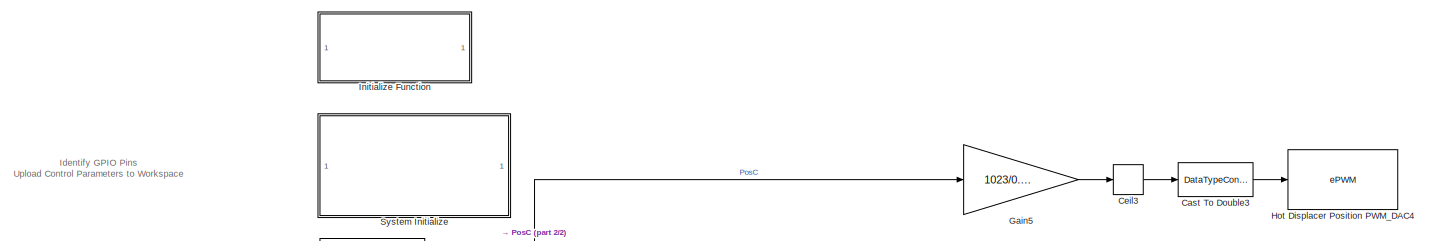
[diagram: root canvas - part 1/2, full width, top band]
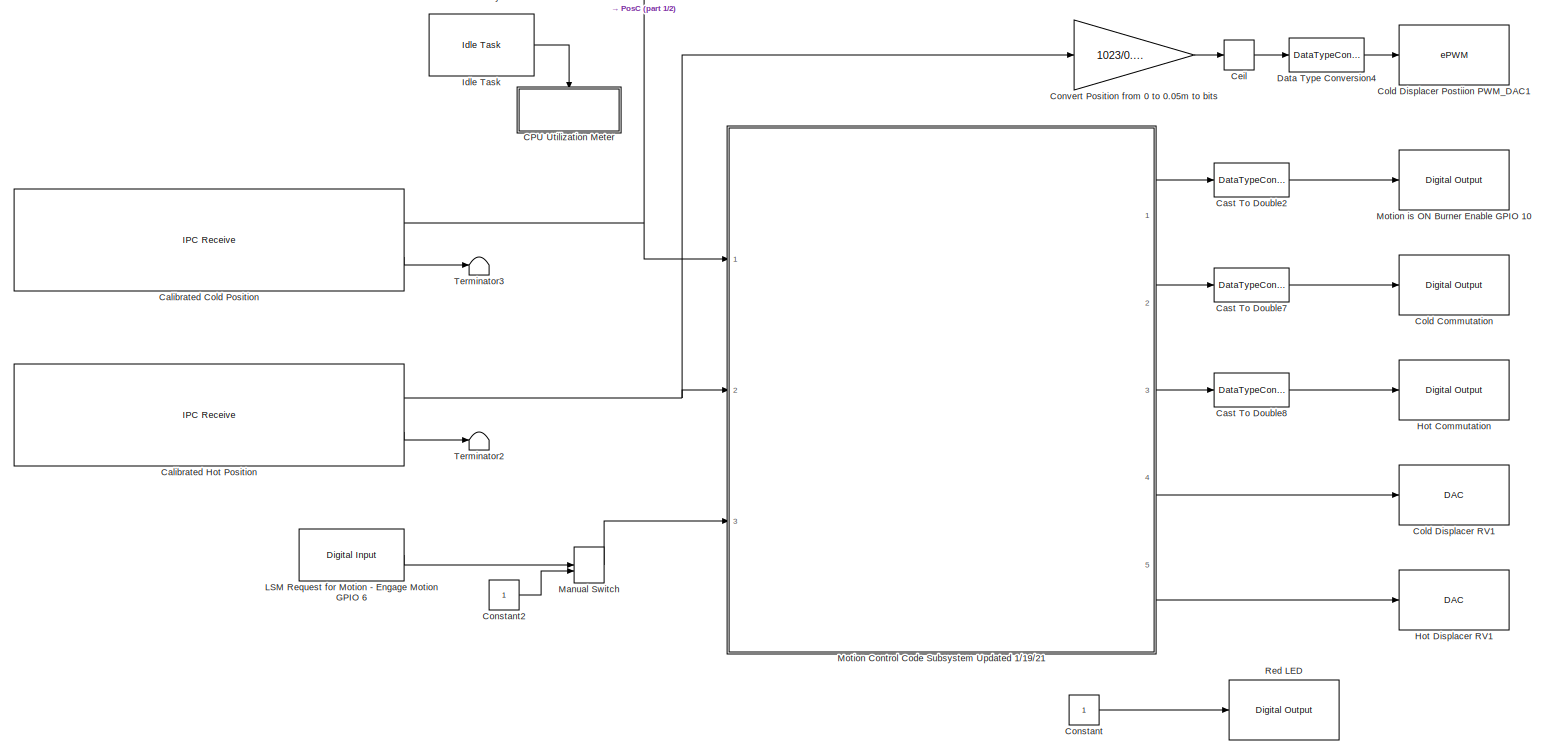
[diagram: root canvas - part 2/2, most of the canvas]
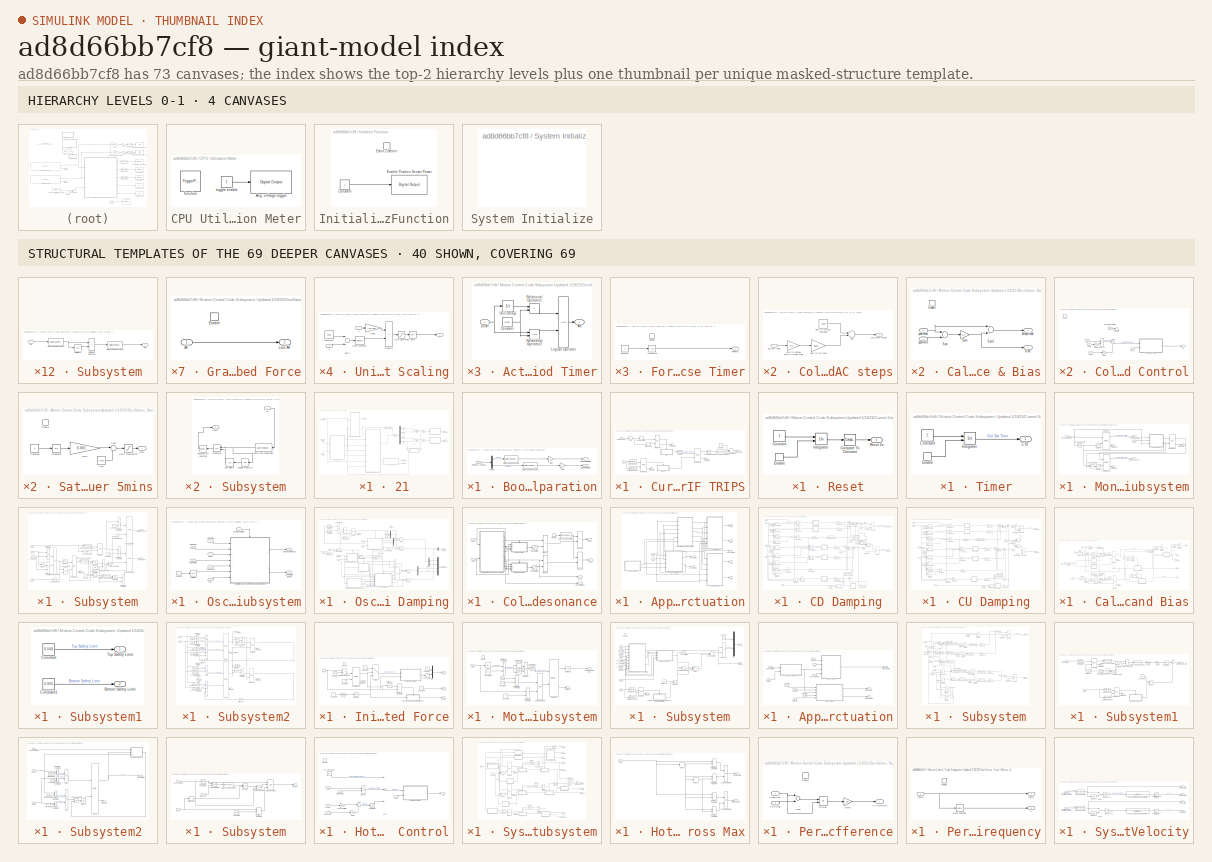
[diagram: thumbnail index - top-2 hierarchy levels (4 canvases) + 40 structural-template representatives of the remaining 69 canvases]
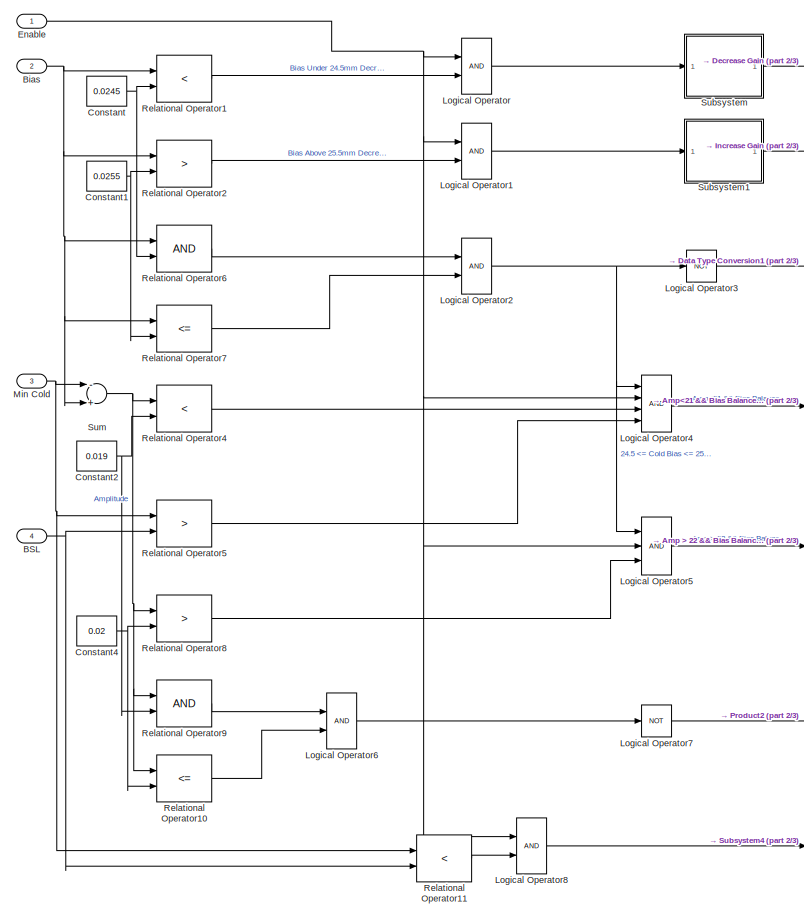
[diagram: Motion Control Code Subsystem Updated 1/19/21/Oscillation, Start Motion, 4 Phases Subsystem/Oscillations Subsystem Time pc No Cold Damping/Cold Resonance/Approximate Resonance Actuation/CD Damping - part 1/3, left side, full height]
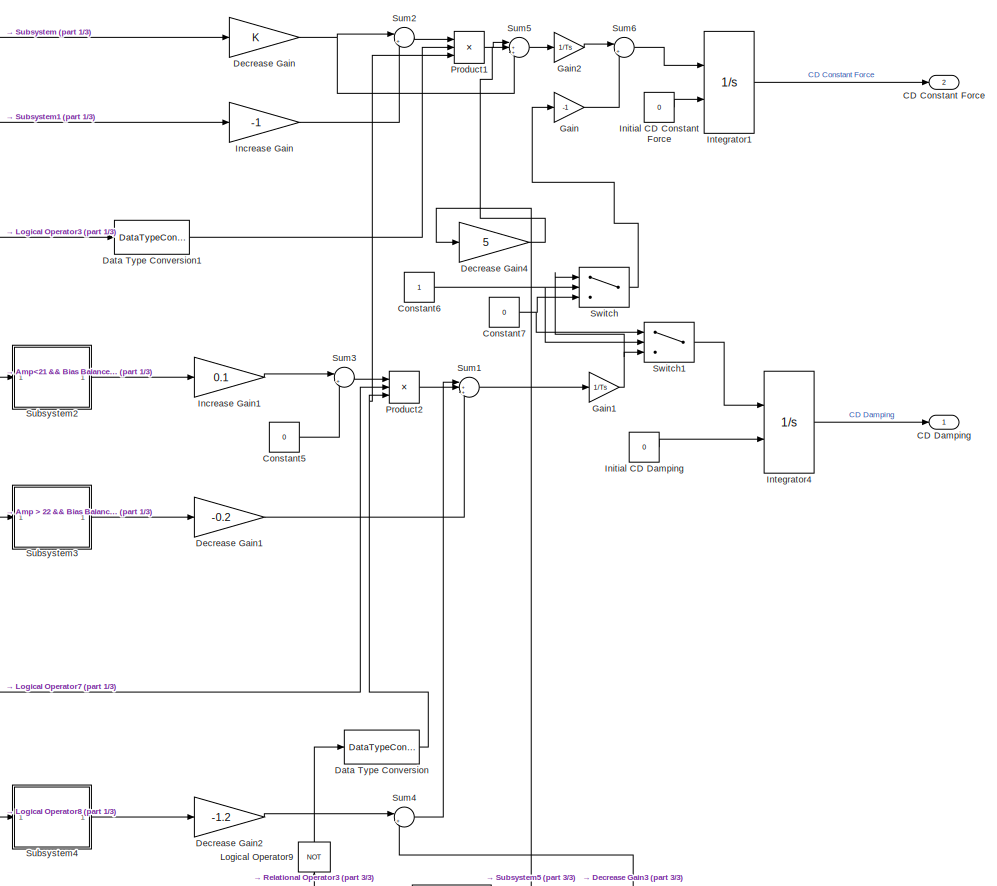
[diagram: Motion Control Code Subsystem Updated 1/19/21/Oscillation, Start Motion, 4 Phases Subsystem/Oscillations Subsystem Time pc No Cold Damping/Cold Resonance/Approximate Resonance Actuation/CD Damping - part 2/3, right side, full height]
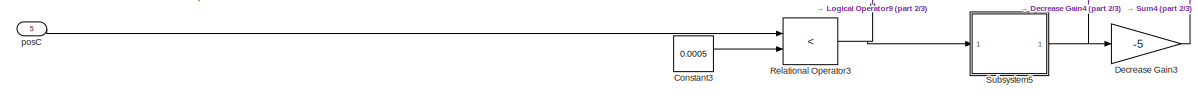
[diagram: Motion Control Code Subsystem Updated 1/19/21/Oscillation, Start Motion, 4 Phases Subsystem/Oscillations Subsystem Time pc No Cold Damping/Cold Resonance/Approximate Resonance Actuation/CD Damping - part 3/3, bottom center region]
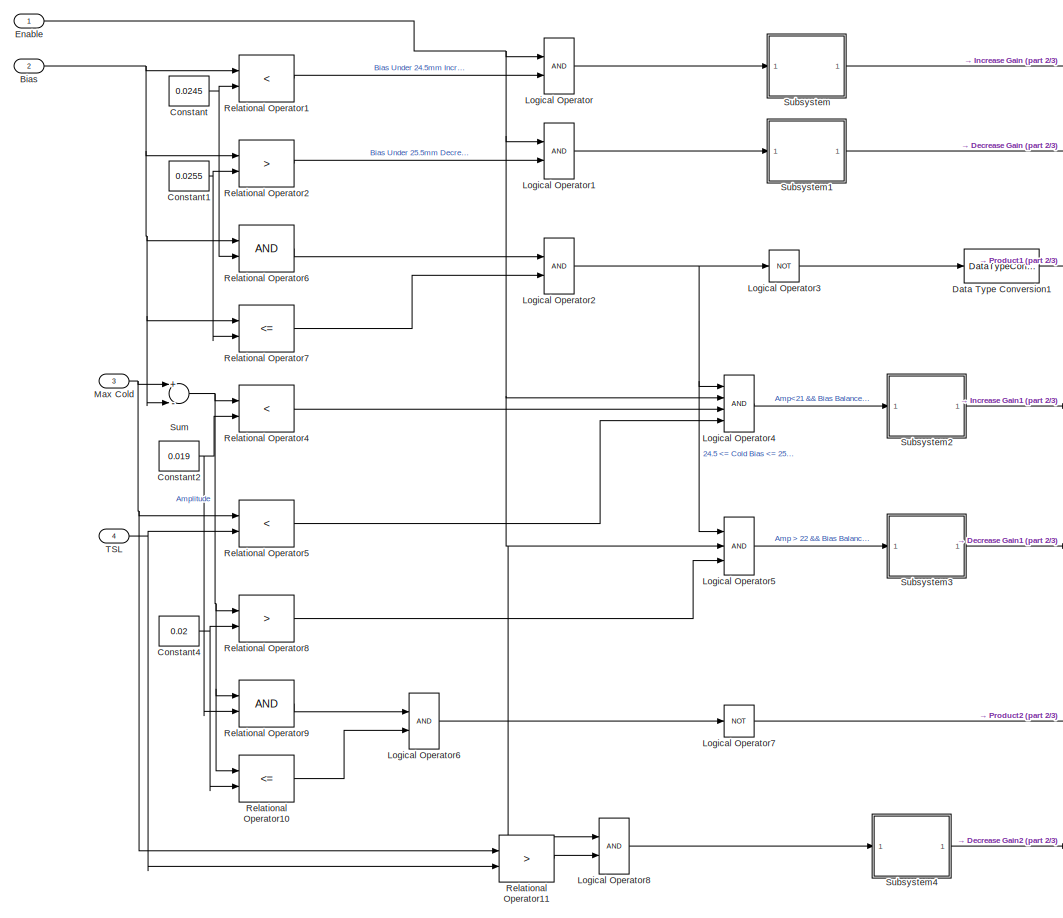
[diagram: Motion Control Code Subsystem Updated 1/19/21/Oscillation, Start Motion, 4 Phases Subsystem/Oscillations Subsystem Time pc No Cold Damping/Cold Resonance/Approximate Resonance Actuation/CU Damping - part 1/3, left side, full height]
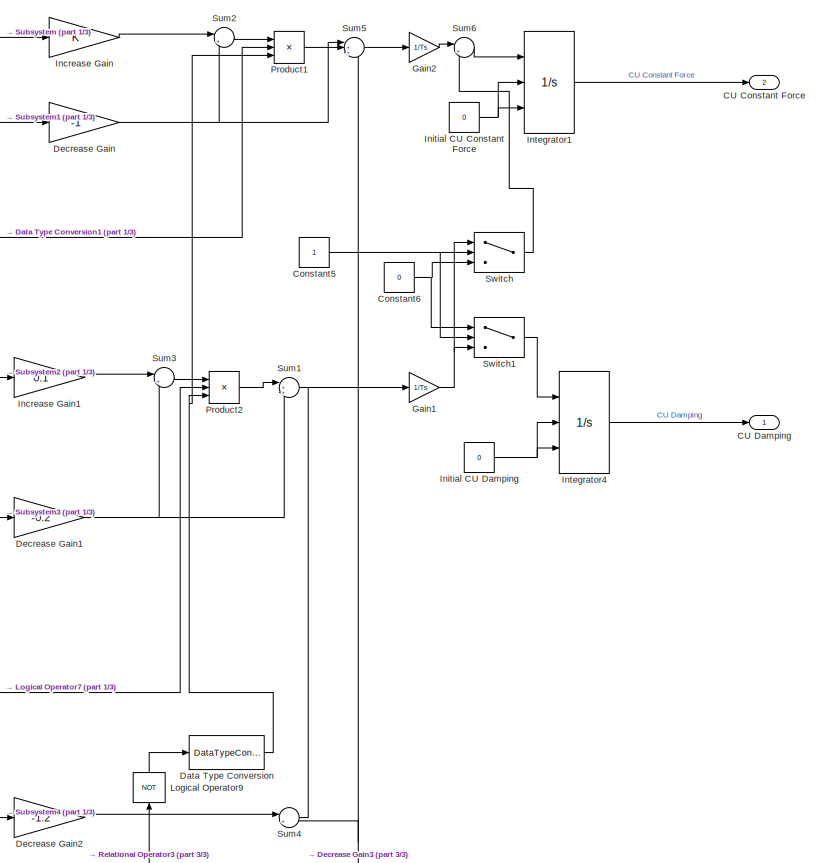
[diagram: Motion Control Code Subsystem Updated 1/19/21/Oscillation, Start Motion, 4 Phases Subsystem/Oscillations Subsystem Time pc No Cold Damping/Cold Resonance/Approximate Resonance Actuation/CU Damping - part 2/3, right side, full height]
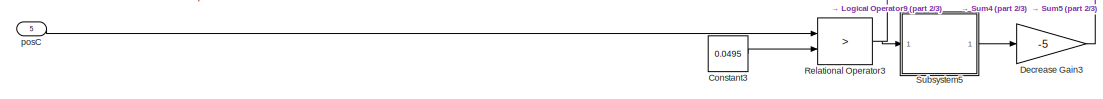
[diagram: Motion Control Code Subsystem Updated 1/19/21/Oscillation, Start Motion, 4 Phases Subsystem/Oscillations Subsystem Time pc No Cold Damping/Cold Resonance/Approximate Resonance Actuation/CU Damping - part 3/3, bottom center region]
MODEL slx_ad8d66bb7cf8
KIND model
CONFIG AbsTol = auto
CONFIG EnableMultiTasking = on
CONFIG FixedStep = Ts
CONFIG MaxStep = auto
CONFIG MinStep = auto
CONFIG PostLoadFcn = , if any(exist('dsrtsu_mdlpostloadfcn', 'file') == [2, 3, 6]), try dsrtsu_mdlpostloadfcn('Execute', bdroot); catch fprintf('Error in PostLoadFcn (dsrtsu_mdlpostloadfcn) for model "%s":\n %s\n', bdroot, lasterr); end, end, \n
CONFIG RelTol = 1e-3
CONFIG SampleTimeConstraint = Unconstrained
CONFIG Solver = ode1
CONFIG SolverName = ode1
CONFIG StartTime = 0.0
CONFIG StopTime = Inf
BLOCK [SubSystem] CPU Utilization Meter
  Ports = [0, 0, 0, 1]
  RequestExecContextInheritance = off
  TreatAsAtomicUnit = on
BLOCK [Reference] CPU Utilization Meter/Avg. voltage toggle  REF=c2837xDlib/Digital Output
  Ports = [1]
  SourceBlock = c2837xDlib/Digital Output
  SourceProductBaseCode = TIC2000
  SourceProductName = Embedded Coder Support Package for Texas Instruments C2000 Processors
  SourceType = F2837x GPIO Digital Output
  UserDataPersistent = on
BLOCK [TriggerPort] CPU Utilization Meter/function
  Ports = []
  StatesWhenEnabling = held
  TriggerType = function-call
  VariantControl = Variant
BLOCK [Constant] CPU Utilization Meter/toggle enable
BLOCK [Reference] Calibrated Cold Position   REF=c2837xDlib/IPC Receive
  Ports = [0, 2]
  SourceBlock = c2837xDlib/IPC Receive
  SourceProductBaseCode = TIC2000
  SourceProductName = Embedded Coder Support Package for Texas Instruments C2000 Processors
  SourceType = F2837xD IPC Receive
BLOCK [Reference] Calibrated Hot Position  REF=c2837xDlib/IPC Receive
  Ports = [0, 2]
  SourceBlock = c2837xDlib/IPC Receive
  SourceProductBaseCode = TIC2000
  SourceProductName = Embedded Coder Support Package for Texas Instruments C2000 Processors
  SourceType = F2837xD IPC Receive
BLOCK [DataTypeConversion] Cast To Double2
  OutDataTypeStr = double
  RndMeth = Floor
  SaturateOnIntegerOverflow = off
BLOCK [DataTypeConversion] Cast To Double3
  OutDataTypeStr = uint16
  RndMeth = Floor
  SaturateOnIntegerOverflow = off
BLOCK [DataTypeConversion] Cast To Double7
  OutDataTypeStr = double
  RndMeth = Floor
  SaturateOnIntegerOverflow = off
BLOCK [DataTypeConversion] Cast To Double8
  OutDataTypeStr = double
  RndMeth = Floor
  SaturateOnIntegerOverflow = off
BLOCK [Rounding] Ceil
  Operator = ceil
BLOCK [Rounding] Ceil3
  Operator = ceil
BLOCK [Reference] Cold Commutation  REF=c2837xDlib/Digital Output
  Ports = [1]
  SourceBlock = c2837xDlib/Digital Output
  SourceProductBaseCode = TIC2000
  SourceProductName = Embedded Coder Support Package for Texas Instruments C2000 Processors
  SourceType = F2837x GPIO Digital Output
  UserDataPersistent = on
BLOCK [Reference] Cold Displacer Postiion PWM_DAC1  REF=c2802xlib/ePWM
  Ports = [1]
  SourceBlock = c2802xlib/ePWM
  SourceProductBaseCode = TIC2000
  SourceProductName = Embedded Coder Support Package for Texas Instruments C2000 Processors
  SourceType = C2802x/03x/05x/06x/M3x/37x/07x/004x ePWM
  UserDataPersistent = on
BLOCK [Reference] Cold Displacer RV1  REF=c2837xDlib/DAC
  Ports = [1]
  SourceBlock = c2837xDlib/DAC
  SourceProductBaseCode = TIC2000
  SourceProductName = Embedded Coder Support Package for Texas Instruments C2000 Processors
  SourceType = codertarget.tic2000.blocks.DACWrite
BLOCK [Constant] Constant
  OutDataTypeStr = boolean
BLOCK [Constant] Constant2
  OutDataTypeStr = boolean
BLOCK [Gain] Convert Position from 0 to 0.05m to bits
  Gain = 1023/0.05
  OutDataTypeStr = Inherit: Inherit via internal rule
  ParamDataTypeStr = Inherit: Inherit via internal rule
  SaturateOnIntegerOverflow = off
BLOCK [DataTypeConversion] Data Type Conversion4
  OutDataTypeStr = uint16
  RndMeth = Floor
  SaturateOnIntegerOverflow = off
BLOCK [Gain] Gain5
  Gain = 1023/0.05
  OutDataTypeStr = Inherit: Inherit via internal rule
  ParamDataTypeStr = Inherit: Inherit via internal rule
  SaturateOnIntegerOverflow = off
BLOCK [Reference] Hot Commutation  REF=c2837xDlib/Digital Output
  Ports = [1]
  SourceBlock = c2837xDlib/Digital Output
  SourceProductBaseCode = TIC2000
  SourceProductName = Embedded Coder Support Package for Texas Instruments C2000 Processors
  SourceType = F2837x GPIO Digital Output
  UserDataPersistent = on
BLOCK [Reference] Hot Displacer Position PWM_DAC4  REF=c2802xlib/ePWM
  Ports = [1]
  SourceBlock = c2802xlib/ePWM
  SourceProductBaseCode = TIC2000
  SourceProductName = Embedded Coder Support Package for Texas Instruments C2000 Processors
  SourceType = C2802x/03x/05x/06x/M3x/37x/07x/004x ePWM
  UserDataPersistent = on
BLOCK [Reference] Hot Displacer RV1  REF=c2837xDlib/DAC
  Ports = [1]
  SourceBlock = c2837xDlib/DAC
  SourceProductBaseCode = TIC2000
  SourceProductName = Embedded Coder Support Package for Texas Instruments C2000 Processors
  SourceType = codertarget.tic2000.blocks.DACWrite
BLOCK [Reference] Idle Task  REF=idelinklib_common/Idle Task
  Ports = [0, 1]
  SourceBlock = idelinklib_common/Idle Task
  SourceProductBaseCode = ME
  SourceProductName = MATLAB Coder
  SourceType = Idle Task
BLOCK [SubSystem] Initialize Function
  Ports = []
  RequestExecContextInheritance = off
  TreatAsAtomicUnit = on
BLOCK [Constant] Initialize Function/Constant
  OutDataTypeStr = boolean
BLOCK [Reference] Initialize Function/Enable Position Sensor Power  REF=c2837xDlib/Digital Output
  Ports = [1]
  SourceBlock = c2837xDlib/Digital Output
  SourceProductBaseCode = TIC2000
  SourceProductName = Embedded Coder Support Package for Texas Instruments C2000 Processors
  SourceType = F2837x GPIO Digital Output
  UserDataPersistent = on
BLOCK [EventListener] Initialize Function/Event Listener
  DisableCoverage = on
  EventName = reset
BLOCK [Reference] LSM Request for Motion - Engage Motion GPIO 6  REF=c2837xDlib/Digital Input
  Ports = [0, 1]
  SourceBlock = c2837xDlib/Digital Input
  SourceProductBaseCode = TIC2000
  SourceProductName = Embedded Coder Support Package for Texas Instruments C2000 Processors
  SourceType = F2837x GPIO Digital Input
  UserDataPersistent = on
BLOCK [ManualSwitch] Manual Switch
BLOCK [SubSystem] Motion Control Code Subsystem Updated 1//19//21
  Ports = [3, 5]
  RequestExecContextInheritance = off
BLOCK [SubSystem] Motion Control Code Subsystem Updated 1//19//21/Boolean Separation
  Ports = [1, 2]
  RequestExecContextInheritance = off
BLOCK [Inport] Motion Control Code Subsystem Updated 1//19//21/Boolean Separation/Boolean 1-2 Muxed
  IconDisplay = Port number
BLOCK [Outport] Motion Control Code Subsystem Updated 1//19//21/Boolean Separation/Cold Commutation
  IconDisplay = Port number
BLOCK [DataTypeConversion] Motion Control Code Subsystem Updated 1//19//21/Boolean Separation/Data Type Conversion
  OutDataTypeStr = double
  RndMeth = Floor
  SaturateOnIntegerOverflow = off
BLOCK [DataTypeConversion] Motion Control Code Subsystem Updated 1//19//21/Boolean Separation/Data Type Conversion1
  OutDataTypeStr = double
  RndMeth = Floor
  SaturateOnIntegerOverflow = off
BLOCK [Demux] Motion Control Code Subsystem Updated 1//19//21/Boolean Separation/Demux
  DisplayOption = bar
  Outputs = 2
  Ports = [1, 2]
BLOCK [Gain] Motion Control Code Subsystem Updated 1//19//21/Boolean Separation/Gain
  Gain = 5
  OutDataTypeStr = Inherit: Inherit via internal rule
  ParamDataTypeStr = Inherit: Inherit via internal rule
  SaturateOnIntegerOverflow = off
BLOCK [Gain] Motion Control Code Subsystem Updated 1//19//21/Boolean Separation/Gain1
  Gain = 5
  OutDataTypeStr = Inherit: Inherit via internal rule
  ParamDataTypeStr = Inherit: Inherit via internal rule
  SaturateOnIntegerOverflow = off
BLOCK [Outport] Motion Control Code Subsystem Updated 1//19//21/Boolean Separation/Hot Commutation
  IconDisplay = Port number
  Port = 2
BLOCK [Inport] Motion Control Code Subsystem Updated 1//19//21/Calibrated Cold Position (m)
  IconDisplay = Port number
BLOCK [Inport] Motion Control Code Subsystem Updated 1//19//21/Calibrated Hot Position (m)
  IconDisplay = Port number
  Port = 2
BLOCK [Outport] Motion Control Code Subsystem Updated 1//19//21/Cold Commutation
  IconDisplay = Port number
  Port = 2
BLOCK [Outport] Motion Control Code Subsystem Updated 1//19//21/Cold Displacer Control DAC Voltage
  IconDisplay = Port number
  Port = 4
BLOCK [SubSystem] Motion Control Code Subsystem Updated 1//19//21/Cold amps to TI DAC steps
  Ports = [1, 1]
  RequestExecContextInheritance = off
BLOCK [Sum] Motion Control Code Subsystem Updated 1//19//21/Cold amps to TI DAC steps/Add
  InputSameDT = off
  OutDataTypeStr = Inherit: Inherit via internal rule
  Ports = [2, 1]
  SaturateOnIntegerOverflow = off
BLOCK [Gain] Motion Control Code Subsystem Updated 1//19//21/Cold amps to TI DAC steps/Amps to Voltage Servo Conversion Gain
  Gain = 1/6
  OutDataTypeStr = Inherit: Inherit via internal rule
  ParamDataTypeStr = Inherit: Inherit via internal rule
  SaturateOnIntegerOverflow = off
BLOCK [Inport] Motion Control Code Subsystem Updated 1//19//21/Cold amps to TI DAC steps/Current Input
  IconDisplay = Port number
BLOCK [Outport] Motion Control Code Subsystem Updated 1//19//21/Cold amps to TI DAC steps/DAC steps output    
  IconDisplay = Port number
BLOCK [Constant] Motion Control Code Subsystem Updated 1//19//21/Cold amps to TI DAC steps/Shift 0 A to DAC midrange
  Value = 2098
BLOCK [Gain] Motion Control Code Subsystem Updated 1//19//21/Cold amps to TI DAC steps/Volts to DAC steps
  Gain = 208.7
  OutDataTypeStr = Inherit: Inherit via internal rule
  ParamDataTypeStr = Inherit: Inherit via internal rule
  SaturateOnIntegerOverflow = off
BLOCK [SubSystem] Motion Control Code Subsystem Updated 1//19//21/Current Saturation Trigger HARD RESET IF TRIPS
  Ports = [2, 1]
  RequestExecContextInheritance = off
BLOCK [HitCross] Motion Control Code Subsystem Updated 1//19//21/Current Saturation Trigger HARD RESET IF TRIPS/39p5Amps
  HitCrossingDirection = falling
  HitCrossingOffset = 39.5
  Ports = [1, 1]
BLOCK [HitCross] Motion Control Code Subsystem Updated 1//19//21/Current Saturation Trigger HARD RESET IF TRIPS/39p99Amps
  HitCrossingDirection = rising
  HitCrossingOffset = 39.99
  Ports = [1, 1]
BLOCK [Abs] Motion Control Code Subsystem Updated 1//19//21/Current Saturation Trigger HARD RESET IF TRIPS/Abs
  SaturateOnIntegerOverflow = off
BLOCK [Constant] Motion Control Code Subsystem Updated 1//19//21/Current Saturation Trigger HARD RESET IF TRIPS/Constant
  OutDataTypeStr = double
BLOCK [DataTypeConversion] Motion Control Code Subsystem Updated 1//19//21/Current Saturation Trigger HARD RESET IF TRIPS/Data Type Conversion1
  OutDataTypeStr = double
  RndMeth = Floor
  SaturateOnIntegerOverflow = off
BLOCK [Reference] Motion Control Code Subsystem Updated 1//19//21/Current Saturation Trigger HARD RESET IF TRIPS/Detect Decrease  REF=simulink/Logic and Bit
Operations/Detect
Decrease
  Ports = [1, 1]
  SourceBlock = simulink/Logic and Bit\nOperations/Detect\nDecrease
  SourceProductBaseCode = SL
  SourceProductName = Simulink
  SourceType = Detect Decrease
BLOCK [Reference] Motion Control Code Subsystem Updated 1//19//21/Current Saturation Trigger HARD RESET IF TRIPS/Detect Increase  REF=simulink/Logic and Bit
Operations/Detect
Increase
  Ports = [1, 1]
  SourceBlock = simulink/Logic and Bit\nOperations/Detect\nIncrease
  SourceProductBaseCode = SL
  SourceProductName = Simulink
  SourceType = Detect Increase
BLOCK [Inport] Motion Control Code Subsystem Updated 1//19//21/Current Saturation Trigger HARD RESET IF TRIPS/Hot Down Coil
  IconDisplay = Port number
BLOCK [Logic] Motion Control Code Subsystem Updated 1//19//21/Current Saturation Trigger HARD RESET IF TRIPS/Logical Operator8
  AllPortsSameDT = off
  Operator = NOT
  OutDataTypeStr = boolean
  Ports = [1, 1]
BLOCK [ManualSwitch] Motion Control Code Subsystem Updated 1//19//21/Current Saturation Trigger HARD RESET IF TRIPS/Manual Switch
  CurrentSetting = 0
BLOCK [Outport] Motion Control Code Subsystem Updated 1//19//21/Current Saturation Trigger HARD RESET IF TRIPS/Out 0 to 1 DBL
  IconDisplay = Port number
BLOCK [Inport] Motion Control Code Subsystem Updated 1//19//21/Current Saturation Trigger HARD RESET IF TRIPS/R4M
  IconDisplay = Port number
  Port = 2
BLOCK [SubSystem] Motion Control Code Subsystem Updated 1//19//21/Current Saturation Trigger HARD RESET IF TRIPS/Reset
  Ports = [0, 1, 1]
  RequestExecContextInheritance = off
BLOCK [Reference] Motion Control Code Subsystem Updated 1//19//21/Current Saturation Trigger HARD RESET IF TRIPS/Reset/Compare To Constant  REF=simulink/Logic and Bit
Operations/Compare
To Constant
  Ports = [1, 1]
  SourceBlock = simulink/Logic and Bit\nOperations/Compare\nTo Constant
  SourceProductBaseCode = SL
  SourceProductName = Simulink
  SourceType = Compare To Constant
BLOCK [Constant] Motion Control Code Subsystem Updated 1//19//21/Current Saturation Trigger HARD RESET IF TRIPS/Reset/Constant
BLOCK [EnablePort] Motion Control Code Subsystem Updated 1//19//21/Current Saturation Trigger HARD RESET IF TRIPS/Reset/Enable
  Ports = [0, 1]
  ShowOutputPort = on
  StatesWhenEnabling = reset
BLOCK [Integrator] Motion Control Code Subsystem Updated 1//19//21/Current Saturation Trigger HARD RESET IF TRIPS/Reset/Integrator
  ExternalReset = rising
  LimitOutput = on
  Ports = [2, 1]
  UpperSaturationLimit = 5
BLOCK [Outport] Motion Control Code Subsystem Updated 1//19//21/Current Saturation Trigger HARD RESET IF TRIPS/Reset/Reset 2s
  IconDisplay = Port number
BLOCK [Reference] Motion Control Code Subsystem Updated 1//19//21/Current Saturation Trigger HARD RESET IF TRIPS/S-R Flip-Flop  REF=simulink_extras/Flip Flops/S-R
Flip-Flop
  Ports = [2, 2]
  SourceBlock = simulink_extras/Flip Flops/S-R\nFlip-Flop
  SourceProductBaseCode = SL
  SourceProductName = Simulink
  SourceType = SRFlipFlop
BLOCK [Reference] Motion Control Code Subsystem Updated 1//19//21/Current Saturation Trigger HARD RESET IF TRIPS/S-R Flip-Flop1  REF=simulink_extras/Flip Flops/S-R
Flip-Flop
  Ports = [2, 2]
  SourceBlock = simulink_extras/Flip Flops/S-R\nFlip-Flop
  SourceProductBaseCode = SL
  SourceProductName = Simulink
  SourceType = SRFlipFlop
BLOCK [Reference] Motion Control Code Subsystem Updated 1//19//21/Current Saturation Trigger HARD RESET IF TRIPS/S-R Flip-Flop2  REF=simulink_extras/Flip Flops/S-R
Flip-Flop
  Ports = [2, 2]
  SourceBlock = simulink_extras/Flip Flops/S-R\nFlip-Flop
  SourceProductBaseCode = SL
  SourceProductName = Simulink
  SourceType = SRFlipFlop
BLOCK [Reference] Motion Control Code Subsystem Updated 1//19//21/Current Saturation Trigger HARD RESET IF TRIPS/Sat Limit  REF=simulink/Logic and Bit
Operations/Compare
To Constant
  Ports = [1, 1]
  SourceBlock = simulink/Logic and Bit\nOperations/Compare\nTo Constant
  SourceProductBaseCode = SL
  SourceProductName = Simulink
  SourceType = Compare To Constant
BLOCK [Terminator] Motion Control Code Subsystem Updated 1//19//21/Current Saturation Trigger HARD RESET IF TRIPS/Terminator
BLOCK [Terminator] Motion Control Code Subsystem Updated 1//19//21/Current Saturation Trigger HARD RESET IF TRIPS/Terminator1
BLOCK [Terminator] Motion Control Code Subsystem Updated 1//19//21/Current Saturation Trigger HARD RESET IF TRIPS/Terminator2
BLOCK [SubSystem] Motion Control Code Subsystem Updated 1//19//21/Current Saturation Trigger HARD RESET IF TRIPS/Timer
  Ports = [0, 1, 1]
  RequestExecContextInheritance = off
BLOCK [Outport] Motion Control Code Subsystem Updated 1//19//21/Current Saturation Trigger HARD RESET IF TRIPS/Timer/CST
  IconDisplay = Port number
BLOCK [Constant] Motion Control Code Subsystem Updated 1//19//21/Current Saturation Trigger HARD RESET IF TRIPS/Timer/Constant
BLOCK [EnablePort] Motion Control Code Subsystem Updated 1//19//21/Current Saturation Trigger HARD RESET IF TRIPS/Timer/Enable
  Ports = [0, 1]
  ShowOutputPort = on
  StatesWhenEnabling = reset
BLOCK [Integrator] Motion Control Code Subsystem Updated 1//19//21/Current Saturation Trigger HARD RESET IF TRIPS/Timer/Integrator
  ExternalReset = rising
  LimitOutput = on
  Ports = [2, 1]
  UpperSaturationLimit = 2
BLOCK [DataTypeConversion] Motion Control Code Subsystem Updated 1//19//21/Data Type Conversion
  OutDataTypeStr = double
  RndMeth = Floor
  SaturateOnIntegerOverflow = off
BLOCK [Demux] Motion Control Code Subsystem Updated 1//19//21/Demux1
  DisplayOption = bar
  Ports = [1, 4]
BLOCK [Gain] Motion Control Code Subsystem Updated 1//19//21/Gain
  Gain = CUP
  OutDataTypeStr = Inherit: Inherit via internal rule
  ParamDataTypeStr = Inherit: Inherit via internal rule
  SaturateOnIntegerOverflow = off
BLOCK [Gain] Motion Control Code Subsystem Updated 1//19//21/Gain1
  Gain = CDP
  OutDataTypeStr = Inherit: Inherit via internal rule
  ParamDataTypeStr = Inherit: Inherit via internal rule
  SaturateOnIntegerOverflow = off
BLOCK [Gain] Motion Control Code Subsystem Updated 1//19//21/Gain2
  Gain = HUP
  OutDataTypeStr = Inherit: Inherit via internal rule
  ParamDataTypeStr = Inherit: Inherit via internal rule
  SaturateOnIntegerOverflow = off
BLOCK [Gain] Motion Control Code Subsystem Updated 1//19//21/Gain3
  Gain = HDP
  OutDataTypeStr = Inherit: Inherit via internal rule
  ParamDataTypeStr = Inherit: Inherit via internal rule
  SaturateOnIntegerOverflow = off
BLOCK [Outport] Motion Control Code Subsystem Updated 1//19//21/Hot Commutation
  IconDisplay = Port number
  Port = 3
BLOCK [Outport] Motion Control Code Subsystem Updated 1//19//21/Hot Displacer Control DAC Voltage
  IconDisplay = Port number
  Port = 5
BLOCK [SubSystem] Motion Control Code Subsystem Updated 1//19//21/Hot amps to TI DAC steps1
  Ports = [1, 1]
  RequestExecContextInheritance = off
BLOCK [Sum] Motion Control Code Subsystem Updated 1//19//21/Hot amps to TI DAC steps1/Add
  InputSameDT = off
  OutDataTypeStr = Inherit: Inherit via internal rule
  Ports = [2, 1]
  SaturateOnIntegerOverflow = off
BLOCK [Gain] Motion Control Code Subsystem Updated 1//19//21/Hot amps to TI DAC steps1/Amps to Volts Servo Conversion Gain
  Gain = 1/6
  OutDataTypeStr = Inherit: Inherit via internal rule
  ParamDataTypeStr = Inherit: Inherit via internal rule
  SaturateOnIntegerOverflow = off
BLOCK [Inport] Motion Control Code Subsystem Updated 1//19//21/Hot amps to TI DAC steps1/Current Input
  IconDisplay = Port number
BLOCK [Outport] Motion Control Code Subsystem Updated 1//19//21/Hot amps to TI DAC steps1/DAC steps output
  IconDisplay = Port number
BLOCK [Constant] Motion Control Code Subsystem Updated 1//19//21/Hot amps to TI DAC steps1/Shift 0 A to DAC midrange
  Value = 2099
BLOCK [Gain] Motion Control Code Subsystem Updated 1//19//21/Hot amps to TI DAC steps1/Volts to DAC steps
  Gain = 210
  OutDataTypeStr = Inherit: Inherit via internal rule
  ParamDataTypeStr = Inherit: Inherit via internal rule
  SaturateOnIntegerOverflow = off
BLOCK [SubSystem] Motion Control Code Subsystem Updated 1//19//21/Monitoring, Control, and Detection Subsystem
  Ports = [2, 2]
  RequestExecContextInheritance = off
BLOCK [Outport] Motion Control Code Subsystem Updated 1//19//21/Monitoring, Control, and Detection Subsystem/Enable Oscillation
  IconDisplay = Port number
  Port = 2
BLOCK [Logic] Motion Control Code Subsystem Updated 1//19//21/Monitoring, Control, and Detection Subsystem/Logical Operator2
  AllPortsSameDT = off
  Operator = NOT
  OutDataTypeStr = boolean
  Ports = [1, 1]
BLOCK [Logic] Motion Control Code Subsystem Updated 1//19//21/Monitoring, Control, and Detection Subsystem/Logical Operator5
  AllPortsSameDT = off
  Operator = OR
  OutDataTypeStr = boolean
  Ports = [2, 1]
BLOCK [Outport] Motion Control Code Subsystem Updated 1//19//21/Monitoring, Control, and Detection Subsystem/Motion Success
  IconDisplay = Port number
BLOCK [Inport] Motion Control Code Subsystem Updated 1//19//21/Monitoring, Control, and Detection Subsystem/Request for Motion
  IconDisplay = Port number
BLOCK [Reference] Motion Control Code Subsystem Updated 1//19//21/Monitoring, Control, and Detection Subsystem/S-R Flip-Flop  REF=simulink_extras/Flip Flops/S-R
Flip-Flop
  Ports = [2, 2]
  SourceBlock = simulink_extras/Flip Flops/S-R\nFlip-Flop
  SourceProductBaseCode = SL
  SourceProductName = Simulink
  SourceType = SRFlipFlop
BLOCK [Reference] Motion Control Code Subsystem Updated 1//19//21/Monitoring, Control, and Detection Subsystem/S-R Flip-Flop1  REF=simulink_extras/Flip Flops/S-R
Flip-Flop
  Ports = [2, 2]
  SourceBlock = simulink_extras/Flip Flops/S-R\nFlip-Flop
  SourceProductBaseCode = SL
  SourceProductName = Simulink
  SourceType = SRFlipFlop
BLOCK [Reference] Motion Control Code Subsystem Updated 1//19//21/Monitoring, Control, and Detection Subsystem/S-R Flip-Flop2  REF=simulink_extras/Flip Flops/S-R
Flip-Flop
  Ports = [2, 2]
  SourceBlock = simulink_extras/Flip Flops/S-R\nFlip-Flop
  SourceProductBaseCode = SL
  SourceProductName = Simulink
  SourceType = SRFlipFlop
BLOCK [SubSystem] Motion Control Code Subsystem Updated 1//19//21/Monitoring, Control, and Detection Subsystem/Subsystem
  Ports = [3, 2]
  RequestExecContextInheritance = off
BLOCK [Constant] Motion Control Code Subsystem Updated 1//19//21/Monitoring, Control, and Detection Subsystem/Subsystem/Constant
  Value = 0
BLOCK [Constant] Motion Control Code Subsystem Updated 1//19//21/Monitoring, Control, and Detection Subsystem/Subsystem/Constant1
  Value = 0.5
BLOCK [Constant] Motion Control Code Subsystem Updated 1//19//21/Monitoring, Control, and Detection Subsystem/Subsystem/Constant2
  Value = 5
BLOCK [Constant] Motion Control Code Subsystem Updated 1//19//21/Monitoring, Control, and Detection Subsystem/Subsystem/Constant3
  Value = 0.025
BLOCK [Constant] Motion Control Code Subsystem Updated 1//19//21/Monitoring, Control, and Detection Subsystem/Subsystem/Constant4
  Value = 4
BLOCK [DataTypeConversion] Motion Control Code Subsystem Updated 1//19//21/Monitoring, Control, and Detection Subsystem/Subsystem/Data Type Conversion1
  OutDataTypeStr = double
  RndMeth = Floor
  SaturateOnIntegerOverflow = off
BLOCK [DataTypeConversion] Motion Control Code Subsystem Updated 1//19//21/Monitoring, Control, and Detection Subsystem/Subsystem/Data Type Conversion2
  OutDataTypeStr = double
  RndMeth = Floor
  SaturateOnIntegerOverflow = off
BLOCK [DataTypeConversion] Motion Control Code Subsystem Updated 1//19//21/Monitoring, Control, and Detection Subsystem/Subsystem/Data Type Conversion3
  OutDataTypeStr = double
  RndMeth = Floor
  SaturateOnIntegerOverflow = off
BLOCK [Inport] Motion Control Code Subsystem Updated 1//19//21/Monitoring, Control, and Detection Subsystem/Subsystem/En Osc
  IconDisplay = Port number
  Port = 3
BLOCK [Integrator] Motion Control Code Subsystem Updated 1//19//21/Monitoring, Control, and Detection Subsystem/Subsystem/Integrator1
  ExternalReset = rising
  LimitOutput = on
  LowerSaturationLimit = 0
  Ports = [2, 1]
  UpperSaturationLimit = 10
BLOCK [Integrator] Motion Control Code Subsystem Updated 1//19//21/Monitoring, Control, and Detection Subsystem/Subsystem/Integrator2
  ExternalReset = level hold
  LimitOutput = on
  LowerSaturationLimit = 0
  Ports = [2, 1]
  UpperSaturationLimit = 20
BLOCK [Integrator] Motion Control Code Subsystem Updated 1//19//21/Monitoring, Control, and Detection Subsystem/Subsystem/Integrator3
  ExternalReset = rising
  LimitOutput = on
  LowerSaturationLimit = 0
  Ports = [2, 1]
  UpperSaturationLimit = 10
BLOCK [Logic] Motion Control Code Subsystem Updated 1//19//21/Monitoring, Control, and Detection Subsystem/Subsystem/Logical Operator
  AllPortsSameDT = off
  Operator = NOT
  OutDataTypeStr = boolean
  Ports = [1, 1]
BLOCK [Logic] Motion Control Code Subsystem Updated 1//19//21/Monitoring, Control, and Detection Subsystem/Subsystem/Logical Operator1
  AllPortsSameDT = off
  Operator = OR
  OutDataTypeStr = boolean
  Ports = [2, 1]
BLOCK [Logic] Motion Control Code Subsystem Updated 1//19//21/Monitoring, Control, and Detection Subsystem/Subsystem/Logical Operator2
  AllPortsSameDT = off
  OutDataTypeStr = boolean
  Ports = [2, 1]
BLOCK [Logic] Motion Control Code Subsystem Updated 1//19//21/Monitoring, Control, and Detection Subsystem/Subsystem/Logical Operator3
  AllPortsSameDT = off
  OutDataTypeStr = boolean
  Ports = [2, 1]
BLOCK [Logic] Motion Control Code Subsystem Updated 1//19//21/Monitoring, Control, and Detection Subsystem/Subsystem/Logical Operator4
  AllPortsSameDT = off
  Operator = NOT
  OutDataTypeStr = boolean
  Ports = [1, 1]
BLOCK [Logic] Motion Control Code Subsystem Updated 1//19//21/Monitoring, Control, and Detection Subsystem/Subsystem/Logical Operator5
  AllPortsSameDT = off
  OutDataTypeStr = boolean
  Ports = [2, 1]
BLOCK [Logic] Motion Control Code Subsystem Updated 1//19//21/Monitoring, Control, and Detection Subsystem/Subsystem/Logical Operator6
  AllPortsSameDT = off
  Operator = NOT
  OutDataTypeStr = boolean
  Ports = [1, 1]
BLOCK [Logic] Motion Control Code Subsystem Updated 1//19//21/Monitoring, Control, and Detection Subsystem/Subsystem/Logical Operator7
  AllPortsSameDT = off
  Operator = OR
  OutDataTypeStr = boolean
  Ports = [2, 1]
BLOCK [Outport] Motion Control Code Subsystem Updated 1//19//21/Monitoring, Control, and Detection Subsystem/Subsystem/Motion Failure
  IconDisplay = Port number
BLOCK [Outport] Motion Control Code Subsystem Updated 1//19//21/Monitoring, Control, and Detection Subsystem/Subsystem/Motion Success
  IconDisplay = Port number
  Port = 2
BLOCK [Inport] Motion Control Code Subsystem Updated 1//19//21/Monitoring, Control, and Detection Subsystem/Subsystem/Power
  IconDisplay = Port number
BLOCK [RelationalOperator] Motion Control Code Subsystem Updated 1//19//21/Monitoring, Control, and Detection Subsystem/Subsystem/Relational Operator
  InputSameDT = off
  Operator = >
  OutDataTypeStr = boolean
  Ports = [2, 1]
  RndMeth = Simplest
BLOCK [RelationalOperator] Motion Control Code Subsystem Updated 1//19//21/Monitoring, Control, and Detection Subsystem/Subsystem/Relational Operator1
  InputSameDT = off
  Operator = >
  OutDataTypeStr = boolean
  Ports = [2, 1]
  RndMeth = Simplest
BLOCK [RelationalOperator] Motion Control Code Subsystem Updated 1//19//21/Monitoring, Control, and Detection Subsystem/Subsystem/Relational Operator2
  InputSameDT = off
  Operator = <
  OutDataTypeStr = boolean
  Ports = [2, 1]
  RndMeth = Simplest
BLOCK [RelationalOperator] Motion Control Code Subsystem Updated 1//19//21/Monitoring, Control, and Detection Subsystem/Subsystem/Relational Operator3
  InputSameDT = off
  Operator = >
  OutDataTypeStr = boolean
  Ports = [2, 1]
  RndMeth = Simplest
BLOCK [RelationalOperator] Motion Control Code Subsystem Updated 1//19//21/Monitoring, Control, and Detection Subsystem/Subsystem/Relational Operator4
  InputSameDT = off
  OutDataTypeStr = boolean
  Ports = [2, 1]
  RndMeth = Simplest
BLOCK [RelationalOperator] Motion Control Code Subsystem Updated 1//19//21/Monitoring, Control, and Detection Subsystem/Subsystem/Relational Operator5
  InputSameDT = off
  Operator = ==
  OutDataTypeStr = boolean
  Ports = [2, 1]
  RndMeth = Simplest
BLOCK [RelationalOperator] Motion Control Code Subsystem Updated 1//19//21/Monitoring, Control, and Detection Subsystem/Subsystem/Relational Operator6
  InputSameDT = off
  Operator = >
  OutDataTypeStr = boolean
  Ports = [2, 1]
  RndMeth = Simplest
BLOCK [Reference] Motion Control Code Subsystem Updated 1//19//21/Monitoring, Control, and Detection Subsystem/Subsystem/S-R Flip-Flop2  REF=simulink_extras/Flip Flops/S-R
Flip-Flop
  Ports = [2, 2]
  SourceBlock = simulink_extras/Flip Flops/S-R\nFlip-Flop
  SourceProductBaseCode = SL
  SourceProductName = Simulink
  SourceType = SRFlipFlop
BLOCK [Terminator] Motion Control Code Subsystem Updated 1//19//21/Monitoring, Control, and Detection Subsystem/Subsystem/Terminator1
BLOCK [UnitDelay] Motion Control Code Subsystem Updated 1//19//21/Monitoring, Control, and Detection Subsystem/Subsystem/Unit Delay2
  HasFrameUpgradeWarning = on
  SampleTime = -1
BLOCK [UnitDelay] Motion Control Code Subsystem Updated 1//19//21/Monitoring, Control, and Detection Subsystem/Subsystem/Unit Delay4
  HasFrameUpgradeWarning = on
  SampleTime = -1
BLOCK [Inport] Motion Control Code Subsystem Updated 1//19//21/Monitoring, Control, and Detection Subsystem/Subsystem/posH
  IconDisplay = Port number
  Port = 2
BLOCK [Terminator] Motion Control Code Subsystem Updated 1//19//21/Monitoring, Control, and Detection Subsystem/Terminator1
BLOCK [Terminator] Motion Control Code Subsystem Updated 1//19//21/Monitoring, Control, and Detection Subsystem/Terminator3
BLOCK [Terminator] Motion Control Code Subsystem Updated 1//19//21/Monitoring, Control, and Detection Subsystem/Terminator5
BLOCK [UnitDelay] Motion Control Code Subsystem Updated 1//19//21/Monitoring, Control, and Detection Subsystem/Unit Delay
  HasFrameUpgradeWarning = on
  SampleTime = -1
BLOCK [UnitDelay] Motion Control Code Subsystem Updated 1//19//21/Monitoring, Control, and Detection Subsystem/Unit Delay1
  HasFrameUpgradeWarning = on
  SampleTime = -1
BLOCK [Inport] Motion Control Code Subsystem Updated 1//19//21/Monitoring, Control, and Detection Subsystem/posH
  IconDisplay = Port number
  Port = 2
BLOCK [Outport] Motion Control Code Subsystem Updated 1//19//21/Motion OK
  IconDisplay = Port number
BLOCK [SubSystem] Motion Control Code Subsystem Updated 1//19//21/Oscillation, Start Motion, 4 Phases Subsystem
  Ports = [7, 2]
  RequestExecContextInheritance = off
BLOCK [Inport] Motion Control Code Subsystem Updated 1//19//21/Oscillation, Start Motion, 4 Phases Subsystem/Cold Position
  IconDisplay = Port number
  Port = 2
BLOCK [Inport] Motion Control Code Subsystem Updated 1//19//21/Oscillation, Start Motion, 4 Phases Subsystem/Cold Velocity
  IconDisplay = Port number
  Port = 3
BLOCK [Outport] Motion Control Code Subsystem Updated 1//19//21/Oscillation, Start Motion, 4 Phases Subsystem/Commutation Signals
  IconDisplay = Port number
  Port = 2
BLOCK [Constant] Motion Control Code Subsystem Updated 1//19//21/Oscillation, Start Motion, 4 Phases Subsystem/Constant
  OutDataTypeStr = boolean
  Value = 0
BLOCK [Outport] Motion Control Code Subsystem Updated 1//19//21/Oscillation, Start Motion, 4 Phases Subsystem/Control Commands 
  IconDisplay = Port number
BLOCK [Inport] Motion Control Code Subsystem Updated 1//19//21/Oscillation, Start Motion, 4 Phases Subsystem/Enable Oscillation 
  IconDisplay = Port number
BLOCK [Inport] Motion Control Code Subsystem Updated 1//19//21/Oscillation, Start Motion, 4 Phases Subsystem/Hot Position
  IconDisplay = Port number
  Port = 4
BLOCK [Inport] Motion Control Code Subsystem Updated 1//19//21/Oscillation, Start Motion, 4 Phases Subsystem/Hot Velocity
  IconDisplay = Port number
  Port = 5
BLOCK [SubSystem] Motion Control Code Subsystem Updated 1//19//21/Oscillation, Start Motion, 4 Phases Subsystem/Oscillations Subsystem Time pc No Cold Damping
  Ports = [7, 2, 1]
  RequestExecContextInheritance = off
BLOCK [Constant] Motion Control Code Subsystem Updated 1//19//21/Oscillation, Start Motion, 4 Phases Subsystem/Oscillations Subsystem Time pc No Cold Damping/Cold Commutation
  OutDataTypeStr = boolean
  Value = 0
BLOCK [SubSystem] Motion Control Code Subsystem Updated 1//19//21/Oscillation, Start Motion, 4 Phases Subsystem/Oscillations Subsystem Time pc No Cold Damping/Cold Resonance
  Ports = [2, 4, 1]
  RequestExecContextInheritance = off
BLOCK [SubSystem] Motion Control Code Subsystem Updated 1//19//21/Oscillation, Start Motion, 4 Phases Subsystem/Oscillations Subsystem Time pc No Cold Damping/Cold Resonance/Approximate Resonance Actuation
  Ports = [2, 7]
  RequestExecContextInheritance = off
BLOCK [Outport] Motion Control Code Subsystem Updated 1//19//21/Oscillation, Start Motion, 4 Phases Subsystem/Oscillations Subsystem Time pc No Cold Damping/Cold Resonance/Approximate Resonance Actuation/CD Activation
  IconDisplay = Port number
  Port = 2
BLOCK [SubSystem] Motion Control Code Subsystem Updated 1//19//21/Oscillation, Start Motion, 4 Phases Subsystem/Oscillations Subsystem Time pc No Cold Damping/Cold Resonance/Approximate Resonance Actuation/CD Damping
  Ports = [5, 2]
  RequestExecContextInheritance = off
BLOCK [Inport] Motion Control Code Subsystem Updated 1//19//21/Oscillation, Start Motion, 4 Phases Subsystem/Oscillations Subsystem Time pc No Cold Damping/Cold Resonance/Approximate Resonance Actuation/CD Damping/BSL
  IconDisplay = Port number
  Port = 4
BLOCK [Inport] Motion Control Code Subsystem Updated 1//19//21/Oscillation, Start Motion, 4 Phases Subsystem/Oscillations Subsystem Time pc No Cold Damping/Cold Resonance/Approximate Resonance Actuation/CD Damping/Bias
  IconDisplay = Port number
  Port = 2
BLOCK [Outport] Motion Control Code Subsystem Updated 1//19//21/Oscillation, Start Motion, 4 Phases Subsystem/Oscillations Subsystem Time pc No Cold Damping/Cold Resonance/Approximate Resonance Actuation/CD Damping/CD Constant Force
  IconDisplay = Port number
  Port = 2
BLOCK [Outport] Motion Control Code Subsystem Updated 1//19//21/Oscillation, Start Motion, 4 Phases Subsystem/Oscillations Subsystem Time pc No Cold Damping/Cold Resonance/Approximate Resonance Actuation/CD Damping/CD Damping
  IconDisplay = Port number
BLOCK [Constant] Motion Control Code Subsystem Updated 1//19//21/Oscillation, Start Motion, 4 Phases Subsystem/Oscillations Subsystem Time pc No Cold Damping/Cold Resonance/Approximate Resonance Actuation/CD Damping/Constant
  Value = 0.0245
BLOCK [Constant] Motion Control Code Subsystem Updated 1//19//21/Oscillation, Start Motion, 4 Phases Subsystem/Oscillations Subsystem Time pc No Cold Damping/Cold Resonance/Approximate Resonance Actuation/CD Damping/Constant1
  Value = 0.0255
BLOCK [Constant] Motion Control Code Subsystem Updated 1//19//21/Oscillation, Start Motion, 4 Phases Subsystem/Oscillations Subsystem Time pc No Cold Damping/Cold Resonance/Approximate Resonance Actuation/CD Damping/Constant2
  Value = 0.019
BLOCK [Constant] Motion Control Code Subsystem Updated 1//19//21/Oscillation, Start Motion, 4 Phases Subsystem/Oscillations Subsystem Time pc No Cold Damping/Cold Resonance/Approximate Resonance Actuation/CD Damping/Constant3
  Value = 0.0005
BLOCK [Constant] Motion Control Code Subsystem Updated 1//19//21/Oscillation, Start Motion, 4 Phases Subsystem/Oscillations Subsystem Time pc No Cold Damping/Cold Resonance/Approximate Resonance Actuation/CD Damping/Constant4
  Value = 0.02
BLOCK [Constant] Motion Control Code Subsystem Updated 1//19//21/Oscillation, Start Motion, 4 Phases Subsystem/Oscillations Subsystem Time pc No Cold Damping/Cold Resonance/Approximate Resonance Actuation/CD Damping/Constant5
  Value = 0
BLOCK [Constant] Motion Control Code Subsystem Updated 1//19//21/Oscillation, Start Motion, 4 Phases Subsystem/Oscillations Subsystem Time pc No Cold Damping/Cold Resonance/Approximate Resonance Actuation/CD Damping/Constant6
BLOCK [Constant] Motion Control Code Subsystem Updated 1//19//21/Oscillation, Start Motion, 4 Phases Subsystem/Oscillations Subsystem Time pc No Cold Damping/Cold Resonance/Approximate Resonance Actuation/CD Damping/Constant7
  Value = 0
BLOCK [DataTypeConversion] Motion Control Code Subsystem Updated 1//19//21/Oscillation, Start Motion, 4 Phases Subsystem/Oscillations Subsystem Time pc No Cold Damping/Cold Resonance/Approximate Resonance Actuation/CD Damping/Data Type Conversion
  OutDataTypeStr = double
  RndMeth = Floor
  SaturateOnIntegerOverflow = off
BLOCK [DataTypeConversion] Motion Control Code Subsystem Updated 1//19//21/Oscillation, Start Motion, 4 Phases Subsystem/Oscillations Subsystem Time pc No Cold Damping/Cold Resonance/Approximate Resonance Actuation/CD Damping/Data Type Conversion1
  OutDataTypeStr = double
  RndMeth = Floor
  SaturateOnIntegerOverflow = off
BLOCK [Gain] Motion Control Code Subsystem Updated 1//19//21/Oscillation, Start Motion, 4 Phases Subsystem/Oscillations Subsystem Time pc No Cold Damping/Cold Resonance/Approximate Resonance Actuation/CD Damping/Decrease Gain
  OutDataTypeStr = double
  ParamDataTypeStr = Inherit: Inherit via internal rule
  SaturateOnIntegerOverflow = off
BLOCK [Gain] Motion Control Code Subsystem Updated 1//19//21/Oscillation, Start Motion, 4 Phases Subsystem/Oscillations Subsystem Time pc No Cold Damping/Cold Resonance/Approximate Resonance Actuation/CD Damping/Decrease Gain1
  Gain = -0.2
  OutDataTypeStr = double
  ParamDataTypeStr = Inherit: Inherit via internal rule
  SaturateOnIntegerOverflow = off
BLOCK [Gain] Motion Control Code Subsystem Updated 1//19//21/Oscillation, Start Motion, 4 Phases Subsystem/Oscillations Subsystem Time pc No Cold Damping/Cold Resonance/Approximate Resonance Actuation/CD Damping/Decrease Gain2
  Gain = -1.2
  OutDataTypeStr = double
  ParamDataTypeStr = Inherit: Inherit via internal rule
  SaturateOnIntegerOverflow = off
BLOCK [Gain] Motion Control Code Subsystem Updated 1//19//21/Oscillation, Start Motion, 4 Phases Subsystem/Oscillations Subsystem Time pc No Cold Damping/Cold Resonance/Approximate Resonance Actuation/CD Damping/Decrease Gain3
  Gain = -5
  OutDataTypeStr = double
  ParamDataTypeStr = Inherit: Inherit via internal rule
  SaturateOnIntegerOverflow = off
BLOCK [Gain] Motion Control Code Subsystem Updated 1//19//21/Oscillation, Start Motion, 4 Phases Subsystem/Oscillations Subsystem Time pc No Cold Damping/Cold Resonance/Approximate Resonance Actuation/CD Damping/Decrease Gain4
  Gain = 5
  OutDataTypeStr = double
  ParamDataTypeStr = Inherit: Inherit via internal rule
  SaturateOnIntegerOverflow = off
BLOCK [Inport] Motion Control Code Subsystem Updated 1//19//21/Oscillation, Start Motion, 4 Phases Subsystem/Oscillations Subsystem Time pc No Cold Damping/Cold Resonance/Approximate Resonance Actuation/CD Damping/Enable
  IconDisplay = Port number
BLOCK [Gain] Motion Control Code Subsystem Updated 1//19//21/Oscillation, Start Motion, 4 Phases Subsystem/Oscillations Subsystem Time pc No Cold Damping/Cold Resonance/Approximate Resonance Actuation/CD Damping/Gain
  Gain = -1
  OutDataTypeStr = Inherit: Inherit via internal rule
  ParamDataTypeStr = Inherit: Inherit via internal rule
  SaturateOnIntegerOverflow = off
BLOCK [Gain] Motion Control Code Subsystem Updated 1//19//21/Oscillation, Start Motion, 4 Phases Subsystem/Oscillations Subsystem Time pc No Cold Damping/Cold Resonance/Approximate Resonance Actuation/CD Damping/Gain1
  Gain = 1/Ts
  OutDataTypeStr = Inherit: Inherit via internal rule
  ParamDataTypeStr = Inherit: Inherit via internal rule
  SaturateOnIntegerOverflow = off
BLOCK [Gain] Motion Control Code Subsystem Updated 1//19//21/Oscillation, Start Motion, 4 Phases Subsystem/Oscillations Subsystem Time pc No Cold Damping/Cold Resonance/Approximate Resonance Actuation/CD Damping/Gain2
  Gain = 1/Ts
  OutDataTypeStr = Inherit: Inherit via internal rule
  ParamDataTypeStr = Inherit: Inherit via internal rule
  SaturateOnIntegerOverflow = off
BLOCK [Gain] Motion Control Code Subsystem Updated 1//19//21/Oscillation, Start Motion, 4 Phases Subsystem/Oscillations Subsystem Time pc No Cold Damping/Cold Resonance/Approximate Resonance Actuation/CD Damping/Increase Gain
  Gain = -1
  OutDataTypeStr = double
  ParamDataTypeStr = Inherit: Inherit via internal rule
  SaturateOnIntegerOverflow = off
BLOCK [Gain] Motion Control Code Subsystem Updated 1//19//21/Oscillation, Start Motion, 4 Phases Subsystem/Oscillations Subsystem Time pc No Cold Damping/Cold Resonance/Approximate Resonance Actuation/CD Damping/Increase Gain1
  Gain = 0.1
  OutDataTypeStr = double
  ParamDataTypeStr = Inherit: Inherit via internal rule
  SaturateOnIntegerOverflow = off
BLOCK [Constant] Motion Control Code Subsystem Updated 1//19//21/Oscillation, Start Motion, 4 Phases Subsystem/Oscillations Subsystem Time pc No Cold Damping/Cold Resonance/Approximate Resonance Actuation/CD Damping/Initial CD Constant Force
  OutDataTypeStr = double
  Value = 0
BLOCK [Constant] Motion Control Code Subsystem Updated 1//19//21/Oscillation, Start Motion, 4 Phases Subsystem/Oscillations Subsystem Time pc No Cold Damping/Cold Resonance/Approximate Resonance Actuation/CD Damping/Initial CD Damping
  OutDataTypeStr = double
  Value = 0
BLOCK [Integrator] Motion Control Code Subsystem Updated 1//19//21/Oscillation, Start Motion, 4 Phases Subsystem/Oscillations Subsystem Time pc No Cold Damping/Cold Resonance/Approximate Resonance Actuation/CD Damping/Integrator1
  InitialConditionSource = external
  LimitOutput = on
  LowerSaturationLimit = -2000
  Ports = [2, 1]
  UpperSaturationLimit = 200
BLOCK [Integrator] Motion Control Code Subsystem Updated 1//19//21/Oscillation, Start Motion, 4 Phases Subsystem/Oscillations Subsystem Time pc No Cold Damping/Cold Resonance/Approximate Resonance Actuation/CD Damping/Integrator4
  InitialConditionSource = external
  LimitOutput = on
  LowerSaturationLimit = 0
  Ports = [2, 1]
  UpperSaturationLimit = 2000
BLOCK [Logic] Motion Control Code Subsystem Updated 1//19//21/Oscillation, Start Motion, 4 Phases Subsystem/Oscillations Subsystem Time pc No Cold Damping/Cold Resonance/Approximate Resonance Actuation/CD Damping/Logical Operator
  AllPortsSameDT = off
  OutDataTypeStr = boolean
  Ports = [2, 1]
BLOCK [Logic] Motion Control Code Subsystem Updated 1//19//21/Oscillation, Start Motion, 4 Phases Subsystem/Oscillations Subsystem Time pc No Cold Damping/Cold Resonance/Approximate Resonance Actuation/CD Damping/Logical Operator1
  AllPortsSameDT = off
  OutDataTypeStr = boolean
  Ports = [2, 1]
BLOCK [Logic] Motion Control Code Subsystem Updated 1//19//21/Oscillation, Start Motion, 4 Phases Subsystem/Oscillations Subsystem Time pc No Cold Damping/Cold Resonance/Approximate Resonance Actuation/CD Damping/Logical Operator2
  AllPortsSameDT = off
  OutDataTypeStr = boolean
  Ports = [2, 1]
BLOCK [Logic] Motion Control Code Subsystem Updated 1//19//21/Oscillation, Start Motion, 4 Phases Subsystem/Oscillations Subsystem Time pc No Cold Damping/Cold Resonance/Approximate Resonance Actuation/CD Damping/Logical Operator3
  AllPortsSameDT = off
  Operator = NOT
  OutDataTypeStr = boolean
  Ports = [1, 1]
BLOCK [Logic] Motion Control Code Subsystem Updated 1//19//21/Oscillation, Start Motion, 4 Phases Subsystem/Oscillations Subsystem Time pc No Cold Damping/Cold Resonance/Approximate Resonance Actuation/CD Damping/Logical Operator4
  AllPortsSameDT = off
  Inputs = 4
  OutDataTypeStr = boolean
  Ports = [4, 1]
BLOCK [Logic] Motion Control Code Subsystem Updated 1//19//21/Oscillation, Start Motion, 4 Phases Subsystem/Oscillations Subsystem Time pc No Cold Damping/Cold Resonance/Approximate Resonance Actuation/CD Damping/Logical Operator5
  AllPortsSameDT = off
  Inputs = 3
  OutDataTypeStr = boolean
  Ports = [3, 1]
BLOCK [Logic] Motion Control Code Subsystem Updated 1//19//21/Oscillation, Start Motion, 4 Phases Subsystem/Oscillations Subsystem Time pc No Cold Damping/Cold Resonance/Approximate Resonance Actuation/CD Damping/Logical Operator6
  AllPortsSameDT = off
  OutDataTypeStr = boolean
  Ports = [2, 1]
BLOCK [Logic] Motion Control Code Subsystem Updated 1//19//21/Oscillation, Start Motion, 4 Phases Subsystem/Oscillations Subsystem Time pc No Cold Damping/Cold Resonance/Approximate Resonance Actuation/CD Damping/Logical Operator7
  AllPortsSameDT = off
  Operator = NOT
  OutDataTypeStr = boolean
  Ports = [1, 1]
BLOCK [Logic] Motion Control Code Subsystem Updated 1//19//21/Oscillation, Start Motion, 4 Phases Subsystem/Oscillations Subsystem Time pc No Cold Damping/Cold Resonance/Approximate Resonance Actuation/CD Damping/Logical Operator8
  AllPortsSameDT = off
  OutDataTypeStr = boolean
  Ports = [2, 1]
BLOCK [Logic] Motion Control Code Subsystem Updated 1//19//21/Oscillation, Start Motion, 4 Phases Subsystem/Oscillations Subsystem Time pc No Cold Damping/Cold Resonance/Approximate Resonance Actuation/CD Damping/Logical Operator9
  AllPortsSameDT = off
  Operator = NOT
  OutDataTypeStr = boolean
  Ports = [1, 1]
BLOCK [Inport] Motion Control Code Subsystem Updated 1//19//21/Oscillation, Start Motion, 4 Phases Subsystem/Oscillations Subsystem Time pc No Cold Damping/Cold Resonance/Approximate Resonance Actuation/CD Damping/Min Cold
  IconDisplay = Port number
  Port = 3
BLOCK [Product] Motion Control Code Subsystem Updated 1//19//21/Oscillation, Start Motion, 4 Phases Subsystem/Oscillations Subsystem Time pc No Cold Damping/Cold Resonance/Approximate Resonance Actuation/CD Damping/Product1
  InputSameDT = off
  Inputs = 3
  OutDataTypeStr = Inherit: Inherit via internal rule
  Ports = [3, 1]
  RndMeth = Floor
  SaturateOnIntegerOverflow = off
BLOCK [Product] Motion Control Code Subsystem Updated 1//19//21/Oscillation, Start Motion, 4 Phases Subsystem/Oscillations Subsystem Time pc No Cold Damping/Cold Resonance/Approximate Resonance Actuation/CD Damping/Product2
  InputSameDT = off
  Inputs = 3
  OutDataTypeStr = Inherit: Inherit via internal rule
  Ports = [3, 1]
  RndMeth = Floor
  SaturateOnIntegerOverflow = off
BLOCK [RelationalOperator] Motion Control Code Subsystem Updated 1//19//21/Oscillation, Start Motion, 4 Phases Subsystem/Oscillations Subsystem Time pc No Cold Damping/Cold Resonance/Approximate Resonance Actuation/CD Damping/Relational Operator1
  InputSameDT = off
  Operator = <
  OutDataTypeStr = boolean
  Ports = [2, 1]
  RndMeth = Simplest
BLOCK [RelationalOperator] Motion Control Code Subsystem Updated 1//19//21/Oscillation, Start Motion, 4 Phases Subsystem/Oscillations Subsystem Time pc No Cold Damping/Cold Resonance/Approximate Resonance Actuation/CD Damping/Relational Operator10
  InputSameDT = off
  Operator = <=
  OutDataTypeStr = boolean
  Ports = [2, 1]
  RndMeth = Simplest
BLOCK [RelationalOperator] Motion Control Code Subsystem Updated 1//19//21/Oscillation, Start Motion, 4 Phases Subsystem/Oscillations Subsystem Time pc No Cold Damping/Cold Resonance/Approximate Resonance Actuation/CD Damping/Relational Operator11
  InputSameDT = off
  Operator = <
  OutDataTypeStr = boolean
  Ports = [2, 1]
  RndMeth = Simplest
BLOCK [RelationalOperator] Motion Control Code Subsystem Updated 1//19//21/Oscillation, Start Motion, 4 Phases Subsystem/Oscillations Subsystem Time pc No Cold Damping/Cold Resonance/Approximate Resonance Actuation/CD Damping/Relational Operator2
  InputSameDT = off
  Operator = >
  OutDataTypeStr = boolean
  Ports = [2, 1]
  RndMeth = Simplest
BLOCK [RelationalOperator] Motion Control Code Subsystem Updated 1//19//21/Oscillation, Start Motion, 4 Phases Subsystem/Oscillations Subsystem Time pc No Cold Damping/Cold Resonance/Approximate Resonance Actuation/CD Damping/Relational Operator3
  InputSameDT = off
  Operator = <
  OutDataTypeStr = boolean
  Ports = [2, 1]
  RndMeth = Simplest
BLOCK [RelationalOperator] Motion Control Code Subsystem Updated 1//19//21/Oscillation, Start Motion, 4 Phases Subsystem/Oscillations Subsystem Time pc No Cold Damping/Cold Resonance/Approximate Resonance Actuation/CD Damping/Relational Operator4
  InputSameDT = off
  Operator = <
  OutDataTypeStr = boolean
  Ports = [2, 1]
  RndMeth = Simplest
BLOCK [RelationalOperator] Motion Control Code Subsystem Updated 1//19//21/Oscillation, Start Motion, 4 Phases Subsystem/Oscillations Subsystem Time pc No Cold Damping/Cold Resonance/Approximate Resonance Actuation/CD Damping/Relational Operator5
  InputSameDT = off
  Operator = >
  OutDataTypeStr = boolean
  Ports = [2, 1]
  RndMeth = Simplest
BLOCK [RelationalOperator] Motion Control Code Subsystem Updated 1//19//21/Oscillation, Start Motion, 4 Phases Subsystem/Oscillations Subsystem Time pc No Cold Damping/Cold Resonance/Approximate Resonance Actuation/CD Damping/Relational Operator6
  InputSameDT = off
  OutDataTypeStr = boolean
  Ports = [2, 1]
  RndMeth = Simplest
BLOCK [RelationalOperator] Motion Control Code Subsystem Updated 1//19//21/Oscillation, Start Motion, 4 Phases Subsystem/Oscillations Subsystem Time pc No Cold Damping/Cold Resonance/Approximate Resonance Actuation/CD Damping/Relational Operator7
  InputSameDT = off
  Operator = <=
  OutDataTypeStr = boolean
  Ports = [2, 1]
  RndMeth = Simplest
BLOCK [RelationalOperator] Motion Control Code Subsystem Updated 1//19//21/Oscillation, Start Motion, 4 Phases Subsystem/Oscillations Subsystem Time pc No Cold Damping/Cold Resonance/Approximate Resonance Actuation/CD Damping/Relational Operator8
  InputSameDT = off
  Operator = >
  OutDataTypeStr = boolean
  Ports = [2, 1]
  RndMeth = Simplest
BLOCK [RelationalOperator] Motion Control Code Subsystem Updated 1//19//21/Oscillation, Start Motion, 4 Phases Subsystem/Oscillations Subsystem Time pc No Cold Damping/Cold Resonance/Approximate Resonance Actuation/CD Damping/Relational Operator9
  InputSameDT = off
  OutDataTypeStr = boolean
  Ports = [2, 1]
  RndMeth = Simplest
BLOCK [SubSystem] Motion Control Code Subsystem Updated 1//19//21/Oscillation, Start Motion, 4 Phases Subsystem/Oscillations Subsystem Time pc No Cold Damping/Cold Resonance/Approximate Resonance Actuation/CD Damping/Subsystem
  Ports = [1, 1]
  RequestExecContextInheritance = off
BLOCK [DataTypeConversion] Motion Control Code Subsystem Updated 1//19//21/Oscillation, Start Motion, 4 Phases Subsystem/Oscillations Subsystem Time pc No Cold Damping/Cold Resonance/Approximate Resonance Actuation/CD Damping/Subsystem/Data Type Conversion1
  OutDataTypeStr = double
  RndMeth = Floor
  SaturateOnIntegerOverflow = off
BLOCK [DataTypeConversion] Motion Control Code Subsystem Updated 1//19//21/Oscillation, Start Motion, 4 Phases Subsystem/Oscillations Subsystem Time pc No Cold Damping/Cold Resonance/Approximate Resonance Actuation/CD Damping/Subsystem/Data Type Conversion2
  OutDataTypeStr = double
  RndMeth = Floor
  SaturateOnIntegerOverflow = off
BLOCK [Inport] Motion Control Code Subsystem Updated 1//19//21/Oscillation, Start Motion, 4 Phases Subsystem/Oscillations Subsystem Time pc No Cold Damping/Cold Resonance/Approximate Resonance Actuation/CD Damping/Subsystem/In1
  IconDisplay = Port number
BLOCK [Outport] Motion Control Code Subsystem Updated 1//19//21/Oscillation, Start Motion, 4 Phases Subsystem/Oscillations Subsystem Time pc No Cold Damping/Cold Resonance/Approximate Resonance Actuation/CD Damping/Subsystem/Out1
  IconDisplay = Port number
BLOCK [RelationalOperator] Motion Control Code Subsystem Updated 1//19//21/Oscillation, Start Motion, 4 Phases Subsystem/Oscillations Subsystem Time pc No Cold Damping/Cold Resonance/Approximate Resonance Actuation/CD Damping/Subsystem/Relational Operator4
  InputSameDT = off
  Operator = >
  OutDataTypeStr = boolean
  Ports = [2, 1]
  RndMeth = Simplest
BLOCK [UnitDelay] Motion Control Code Subsystem Updated 1//19//21/Oscillation, Start Motion, 4 Phases Subsystem/Oscillations Subsystem Time pc No Cold Damping/Cold Resonance/Approximate Resonance Actuation/CD Damping/Subsystem/Unit Delay2
  HasFrameUpgradeWarning = on
  SampleTime = -1
BLOCK [SubSystem] Motion Control Code Subsystem Updated 1//19//21/Oscillation, Start Motion, 4 Phases Subsystem/Oscillations Subsystem Time pc No Cold Damping/Cold Resonance/Approximate Resonance Actuation/CD Damping/Subsystem1
  Ports = [1, 1]
  RequestExecContextInheritance = off
BLOCK [DataTypeConversion] Motion Control Code Subsystem Updated 1//19//21/Oscillation, Start Motion, 4 Phases Subsystem/Oscillations Subsystem Time pc No Cold Damping/Cold Resonance/Approximate Resonance Actuation/CD Damping/Subsystem1/Data Type Conversion3
  OutDataTypeStr = double
  RndMeth = Floor
  SaturateOnIntegerOverflow = off
BLOCK [DataTypeConversion] Motion Control Code Subsystem Updated 1//19//21/Oscillation, Start Motion, 4 Phases Subsystem/Oscillations Subsystem Time pc No Cold Damping/Cold Resonance/Approximate Resonance Actuation/CD Damping/Subsystem1/Data Type Conversion4
  OutDataTypeStr = double
  RndMeth = Floor
  SaturateOnIntegerOverflow = off
BLOCK [Inport] Motion Control Code Subsystem Updated 1//19//21/Oscillation, Start Motion, 4 Phases Subsystem/Oscillations Subsystem Time pc No Cold Damping/Cold Resonance/Approximate Resonance Actuation/CD Damping/Subsystem1/In1
  IconDisplay = Port number
BLOCK [Outport] Motion Control Code Subsystem Updated 1//19//21/Oscillation, Start Motion, 4 Phases Subsystem/Oscillations Subsystem Time pc No Cold Damping/Cold Resonance/Approximate Resonance Actuation/CD Damping/Subsystem1/Out1
  IconDisplay = Port number
BLOCK [RelationalOperator] Motion Control Code Subsystem Updated 1//19//21/Oscillation, Start Motion, 4 Phases Subsystem/Oscillations Subsystem Time pc No Cold Damping/Cold Resonance/Approximate Resonance Actuation/CD Damping/Subsystem1/Relational Operator5
  InputSameDT = off
  Operator = >
  OutDataTypeStr = boolean
  Ports = [2, 1]
  RndMeth = Simplest
BLOCK [UnitDelay] Motion Control Code Subsystem Updated 1//19//21/Oscillation, Start Motion, 4 Phases Subsystem/Oscillations Subsystem Time pc No Cold Damping/Cold Resonance/Approximate Resonance Actuation/CD Damping/Subsystem1/Unit Delay1
  HasFrameUpgradeWarning = on
  SampleTime = -1
BLOCK [SubSystem] Motion Control Code Subsystem Updated 1//19//21/Oscillation, Start Motion, 4 Phases Subsystem/Oscillations Subsystem Time pc No Cold Damping/Cold Resonance/Approximate Resonance Actuation/CD Damping/Subsystem2
  Ports = [1, 1]
  RequestExecContextInheritance = off
BLOCK [DataTypeConversion] Motion Control Code Subsystem Updated 1//19//21/Oscillation, Start Motion, 4 Phases Subsystem/Oscillations Subsystem Time pc No Cold Damping/Cold Resonance/Approximate Resonance Actuation/CD Damping/Subsystem2/Data Type Conversion3
  OutDataTypeStr = double
  RndMeth = Floor
  SaturateOnIntegerOverflow = off
BLOCK [DataTypeConversion] Motion Control Code Subsystem Updated 1//19//21/Oscillation, Start Motion, 4 Phases Subsystem/Oscillations Subsystem Time pc No Cold Damping/Cold Resonance/Approximate Resonance Actuation/CD Damping/Subsystem2/Data Type Conversion4
  OutDataTypeStr = double
  RndMeth = Floor
  SaturateOnIntegerOverflow = off
BLOCK [Inport] Motion Control Code Subsystem Updated 1//19//21/Oscillation, Start Motion, 4 Phases Subsystem/Oscillations Subsystem Time pc No Cold Damping/Cold Resonance/Approximate Resonance Actuation/CD Damping/Subsystem2/In1
  IconDisplay = Port number
BLOCK [Outport] Motion Control Code Subsystem Updated 1//19//21/Oscillation, Start Motion, 4 Phases Subsystem/Oscillations Subsystem Time pc No Cold Damping/Cold Resonance/Approximate Resonance Actuation/CD Damping/Subsystem2/Out1
  IconDisplay = Port number
BLOCK [RelationalOperator] Motion Control Code Subsystem Updated 1//19//21/Oscillation, Start Motion, 4 Phases Subsystem/Oscillations Subsystem Time pc No Cold Damping/Cold Resonance/Approximate Resonance Actuation/CD Damping/Subsystem2/Relational Operator5
  InputSameDT = off
  Operator = >
  OutDataTypeStr = boolean
  Ports = [2, 1]
  RndMeth = Simplest
BLOCK [UnitDelay] Motion Control Code Subsystem Updated 1//19//21/Oscillation, Start Motion, 4 Phases Subsystem/Oscillations Subsystem Time pc No Cold Damping/Cold Resonance/Approximate Resonance Actuation/CD Damping/Subsystem2/Unit Delay1
  HasFrameUpgradeWarning = on
  SampleTime = -1
BLOCK [SubSystem] Motion Control Code Subsystem Updated 1//19//21/Oscillation, Start Motion, 4 Phases Subsystem/Oscillations Subsystem Time pc No Cold Damping/Cold Resonance/Approximate Resonance Actuation/CD Damping/Subsystem3
  Ports = [1, 1]
  RequestExecContextInheritance = off
BLOCK [DataTypeConversion] Motion Control Code Subsystem Updated 1//19//21/Oscillation, Start Motion, 4 Phases Subsystem/Oscillations Subsystem Time pc No Cold Damping/Cold Resonance/Approximate Resonance Actuation/CD Damping/Subsystem3/Data Type Conversion3
  OutDataTypeStr = double
  RndMeth = Floor
  SaturateOnIntegerOverflow = off
BLOCK [DataTypeConversion] Motion Control Code Subsystem Updated 1//19//21/Oscillation, Start Motion, 4 Phases Subsystem/Oscillations Subsystem Time pc No Cold Damping/Cold Resonance/Approximate Resonance Actuation/CD Damping/Subsystem3/Data Type Conversion4
  OutDataTypeStr = double
  RndMeth = Floor
  SaturateOnIntegerOverflow = off
BLOCK [Inport] Motion Control Code Subsystem Updated 1//19//21/Oscillation, Start Motion, 4 Phases Subsystem/Oscillations Subsystem Time pc No Cold Damping/Cold Resonance/Approximate Resonance Actuation/CD Damping/Subsystem3/In1
  IconDisplay = Port number
BLOCK [Outport] Motion Control Code Subsystem Updated 1//19//21/Oscillation, Start Motion, 4 Phases Subsystem/Oscillations Subsystem Time pc No Cold Damping/Cold Resonance/Approximate Resonance Actuation/CD Damping/Subsystem3/Out1
  IconDisplay = Port number
BLOCK [RelationalOperator] Motion Control Code Subsystem Updated 1//19//21/Oscillation, Start Motion, 4 Phases Subsystem/Oscillations Subsystem Time pc No Cold Damping/Cold Resonance/Approximate Resonance Actuation/CD Damping/Subsystem3/Relational Operator5
  InputSameDT = off
  Operator = >
  OutDataTypeStr = boolean
  Ports = [2, 1]
  RndMeth = Simplest
BLOCK [UnitDelay] Motion Control Code Subsystem Updated 1//19//21/Oscillation, Start Motion, 4 Phases Subsystem/Oscillations Subsystem Time pc No Cold Damping/Cold Resonance/Approximate Resonance Actuation/CD Damping/Subsystem3/Unit Delay1
  HasFrameUpgradeWarning = on
  SampleTime = -1
BLOCK [SubSystem] Motion Control Code Subsystem Updated 1//19//21/Oscillation, Start Motion, 4 Phases Subsystem/Oscillations Subsystem Time pc No Cold Damping/Cold Resonance/Approximate Resonance Actuation/CD Damping/Subsystem4
  Ports = [1, 1]
  RequestExecContextInheritance = off
BLOCK [DataTypeConversion] Motion Control Code Subsystem Updated 1//19//21/Oscillation, Start Motion, 4 Phases Subsystem/Oscillations Subsystem Time pc No Cold Damping/Cold Resonance/Approximate Resonance Actuation/CD Damping/Subsystem4/Data Type Conversion3
  OutDataTypeStr = double
  RndMeth = Floor
  SaturateOnIntegerOverflow = off
BLOCK [DataTypeConversion] Motion Control Code Subsystem Updated 1//19//21/Oscillation, Start Motion, 4 Phases Subsystem/Oscillations Subsystem Time pc No Cold Damping/Cold Resonance/Approximate Resonance Actuation/CD Damping/Subsystem4/Data Type Conversion4
  OutDataTypeStr = double
  RndMeth = Floor
  SaturateOnIntegerOverflow = off
BLOCK [Inport] Motion Control Code Subsystem Updated 1//19//21/Oscillation, Start Motion, 4 Phases Subsystem/Oscillations Subsystem Time pc No Cold Damping/Cold Resonance/Approximate Resonance Actuation/CD Damping/Subsystem4/In1
  IconDisplay = Port number
BLOCK [Outport] Motion Control Code Subsystem Updated 1//19//21/Oscillation, Start Motion, 4 Phases Subsystem/Oscillations Subsystem Time pc No Cold Damping/Cold Resonance/Approximate Resonance Actuation/CD Damping/Subsystem4/Out1
  IconDisplay = Port number
BLOCK [RelationalOperator] Motion Control Code Subsystem Updated 1//19//21/Oscillation, Start Motion, 4 Phases Subsystem/Oscillations Subsystem Time pc No Cold Damping/Cold Resonance/Approximate Resonance Actuation/CD Damping/Subsystem4/Relational Operator5
  InputSameDT = off
  Operator = >
  OutDataTypeStr = boolean
  Ports = [2, 1]
  RndMeth = Simplest
BLOCK [UnitDelay] Motion Control Code Subsystem Updated 1//19//21/Oscillation, Start Motion, 4 Phases Subsystem/Oscillations Subsystem Time pc No Cold Damping/Cold Resonance/Approximate Resonance Actuation/CD Damping/Subsystem4/Unit Delay1
  HasFrameUpgradeWarning = on
  SampleTime = -1
BLOCK [SubSystem] Motion Control Code Subsystem Updated 1//19//21/Oscillation, Start Motion, 4 Phases Subsystem/Oscillations Subsystem Time pc No Cold Damping/Cold Resonance/Approximate Resonance Actuation/CD Damping/Subsystem5
  Ports = [1, 1]
  RequestExecContextInheritance = off
BLOCK [DataTypeConversion] Motion Control Code Subsystem Updated 1//19//21/Oscillation, Start Motion, 4 Phases Subsystem/Oscillations Subsystem Time pc No Cold Damping/Cold Resonance/Approximate Resonance Actuation/CD Damping/Subsystem5/Data Type Conversion3
  OutDataTypeStr = double
  RndMeth = Floor
  SaturateOnIntegerOverflow = off
BLOCK [DataTypeConversion] Motion Control Code Subsystem Updated 1//19//21/Oscillation, Start Motion, 4 Phases Subsystem/Oscillations Subsystem Time pc No Cold Damping/Cold Resonance/Approximate Resonance Actuation/CD Damping/Subsystem5/Data Type Conversion4
  OutDataTypeStr = double
  RndMeth = Floor
  SaturateOnIntegerOverflow = off
BLOCK [Inport] Motion Control Code Subsystem Updated 1//19//21/Oscillation, Start Motion, 4 Phases Subsystem/Oscillations Subsystem Time pc No Cold Damping/Cold Resonance/Approximate Resonance Actuation/CD Damping/Subsystem5/In1
  IconDisplay = Port number
BLOCK [Outport] Motion Control Code Subsystem Updated 1//19//21/Oscillation, Start Motion, 4 Phases Subsystem/Oscillations Subsystem Time pc No Cold Damping/Cold Resonance/Approximate Resonance Actuation/CD Damping/Subsystem5/Out1
  IconDisplay = Port number
BLOCK [RelationalOperator] Motion Control Code Subsystem Updated 1//19//21/Oscillation, Start Motion, 4 Phases Subsystem/Oscillations Subsystem Time pc No Cold Damping/Cold Resonance/Approximate Resonance Actuation/CD Damping/Subsystem5/Relational Operator5
  InputSameDT = off
  Operator = >
  OutDataTypeStr = boolean
  Ports = [2, 1]
  RndMeth = Simplest
BLOCK [UnitDelay] Motion Control Code Subsystem Updated 1//19//21/Oscillation, Start Motion, 4 Phases Subsystem/Oscillations Subsystem Time pc No Cold Damping/Cold Resonance/Approximate Resonance Actuation/CD Damping/Subsystem5/Unit Delay1
  HasFrameUpgradeWarning = on
  SampleTime = -1
BLOCK [Sum] Motion Control Code Subsystem Updated 1//19//21/Oscillation, Start Motion, 4 Phases Subsystem/Oscillations Subsystem Time pc No Cold Damping/Cold Resonance/Approximate Resonance Actuation/CD Damping/Sum
  InputSameDT = off
  Inputs = -+
  OutDataTypeStr = Inherit: Inherit via internal rule
  Ports = [2, 1]
  SaturateOnIntegerOverflow = off
BLOCK [Sum] Motion Control Code Subsystem Updated 1//19//21/Oscillation, Start Motion, 4 Phases Subsystem/Oscillations Subsystem Time pc No Cold Damping/Cold Resonance/Approximate Resonance Actuation/CD Damping/Sum1
  IconShape = round
  InputSameDT = off
  Inputs = |+++
  OutDataTypeStr = Inherit: Inherit via internal rule
  Ports = [3, 1]
  SaturateOnIntegerOverflow = off
BLOCK [Sum] Motion Control Code Subsystem Updated 1//19//21/Oscillation, Start Motion, 4 Phases Subsystem/Oscillations Subsystem Time pc No Cold Damping/Cold Resonance/Approximate Resonance Actuation/CD Damping/Sum2
  IconShape = round
  InputSameDT = off
  Inputs = |++
  OutDataTypeStr = Inherit: Inherit via internal rule
  Ports = [2, 1]
  SaturateOnIntegerOverflow = off
BLOCK [Sum] Motion Control Code Subsystem Updated 1//19//21/Oscillation, Start Motion, 4 Phases Subsystem/Oscillations Subsystem Time pc No Cold Damping/Cold Resonance/Approximate Resonance Actuation/CD Damping/Sum3
  IconShape = round
  InputSameDT = off
  Inputs = |++
  OutDataTypeStr = Inherit: Inherit via internal rule
  Ports = [2, 1]
  SaturateOnIntegerOverflow = off
BLOCK [Sum] Motion Control Code Subsystem Updated 1//19//21/Oscillation, Start Motion, 4 Phases Subsystem/Oscillations Subsystem Time pc No Cold Damping/Cold Resonance/Approximate Resonance Actuation/CD Damping/Sum4
  IconShape = round
  InputSameDT = off
  Inputs = |++
  OutDataTypeStr = Inherit: Inherit via internal rule
  Ports = [2, 1]
  SaturateOnIntegerOverflow = off
BLOCK [Sum] Motion Control Code Subsystem Updated 1//19//21/Oscillation, Start Motion, 4 Phases Subsystem/Oscillations Subsystem Time pc No Cold Damping/Cold Resonance/Approximate Resonance Actuation/CD Damping/Sum5
  IconShape = round
  InputSameDT = off
  Inputs = |+++
  OutDataTypeStr = Inherit: Inherit via internal rule
  Ports = [3, 1]
  SaturateOnIntegerOverflow = off
BLOCK [Sum] Motion Control Code Subsystem Updated 1//19//21/Oscillation, Start Motion, 4 Phases Subsystem/Oscillations Subsystem Time pc No Cold Damping/Cold Resonance/Approximate Resonance Actuation/CD Damping/Sum6
  IconShape = round
  InputSameDT = off
  Inputs = |++
  OutDataTypeStr = Inherit: Inherit via internal rule
  Ports = [2, 1]
  SaturateOnIntegerOverflow = off
BLOCK [Switch] Motion Control Code Subsystem Updated 1//19//21/Oscillation, Start Motion, 4 Phases Subsystem/Oscillations Subsystem Time pc No Cold Damping/Cold Resonance/Approximate Resonance Actuation/CD Damping/Switch
  Criteria = u2 > Threshold
  InputSameDT = off
  SaturateOnIntegerOverflow = off
  Threshold = 0.5
BLOCK [Switch] Motion Control Code Subsystem Updated 1//19//21/Oscillation, Start Motion, 4 Phases Subsystem/Oscillations Subsystem Time pc No Cold Damping/Cold Resonance/Approximate Resonance Actuation/CD Damping/Switch1
  Criteria = u2 > Threshold
  InputSameDT = off
  SaturateOnIntegerOverflow = off
  Threshold = 0.5
BLOCK [Inport] Motion Control Code Subsystem Updated 1//19//21/Oscillation, Start Motion, 4 Phases Subsystem/Oscillations Subsystem Time pc No Cold Damping/Cold Resonance/Approximate Resonance Actuation/CD Damping/posC
  IconDisplay = Port number
  Port = 5
BLOCK [Outport] Motion Control Code Subsystem Updated 1//19//21/Oscillation, Start Motion, 4 Phases Subsystem/Oscillations Subsystem Time pc No Cold Damping/Cold Resonance/Approximate Resonance Actuation/CDCF
  IconDisplay = Port number
  Port = 6
BLOCK [Outport] Motion Control Code Subsystem Updated 1//19//21/Oscillation, Start Motion, 4 Phases Subsystem/Oscillations Subsystem Time pc No Cold Damping/Cold Resonance/Approximate Resonance Actuation/CDD
  IconDisplay = Port number
  Port = 5
BLOCK [Outport] Motion Control Code Subsystem Updated 1//19//21/Oscillation, Start Motion, 4 Phases Subsystem/Oscillations Subsystem Time pc No Cold Damping/Cold Resonance/Approximate Resonance Actuation/CU Activation
  IconDisplay = Port number
BLOCK [SubSystem] Motion Control Code Subsystem Updated 1//19//21/Oscillation, Start Motion, 4 Phases Subsystem/Oscillations Subsystem Time pc No Cold Damping/Cold Resonance/Approximate Resonance Actuation/CU Damping
  Ports = [5, 2]
  RequestExecContextInheritance = off
BLOCK [Inport] Motion Control Code Subsystem Updated 1//19//21/Oscillation, Start Motion, 4 Phases Subsystem/Oscillations Subsystem Time pc No Cold Damping/Cold Resonance/Approximate Resonance Actuation/CU Damping/Bias
  IconDisplay = Port number
  Port = 2
BLOCK [Outport] Motion Control Code Subsystem Updated 1//19//21/Oscillation, Start Motion, 4 Phases Subsystem/Oscillations Subsystem Time pc No Cold Damping/Cold Resonance/Approximate Resonance Actuation/CU Damping/CU Constant Force
  IconDisplay = Port number
  Port = 2
BLOCK [Outport] Motion Control Code Subsystem Updated 1//19//21/Oscillation, Start Motion, 4 Phases Subsystem/Oscillations Subsystem Time pc No Cold Damping/Cold Resonance/Approximate Resonance Actuation/CU Damping/CU Damping
  IconDisplay = Port number
BLOCK [Constant] Motion Control Code Subsystem Updated 1//19//21/Oscillation, Start Motion, 4 Phases Subsystem/Oscillations Subsystem Time pc No Cold Damping/Cold Resonance/Approximate Resonance Actuation/CU Damping/Constant
  Value = 0.0245
BLOCK [Constant] Motion Control Code Subsystem Updated 1//19//21/Oscillation, Start Motion, 4 Phases Subsystem/Oscillations Subsystem Time pc No Cold Damping/Cold Resonance/Approximate Resonance Actuation/CU Damping/Constant1
  Value = 0.0255
BLOCK [Constant] Motion Control Code Subsystem Updated 1//19//21/Oscillation, Start Motion, 4 Phases Subsystem/Oscillations Subsystem Time pc No Cold Damping/Cold Resonance/Approximate Resonance Actuation/CU Damping/Constant2
  Value = 0.019
BLOCK [Constant] Motion Control Code Subsystem Updated 1//19//21/Oscillation, Start Motion, 4 Phases Subsystem/Oscillations Subsystem Time pc No Cold Damping/Cold Resonance/Approximate Resonance Actuation/CU Damping/Constant3
  Value = 0.0495
BLOCK [Constant] Motion Control Code Subsystem Updated 1//19//21/Oscillation, Start Motion, 4 Phases Subsystem/Oscillations Subsystem Time pc No Cold Damping/Cold Resonance/Approximate Resonance Actuation/CU Damping/Constant4
  Value = 0.02
BLOCK [Constant] Motion Control Code Subsystem Updated 1//19//21/Oscillation, Start Motion, 4 Phases Subsystem/Oscillations Subsystem Time pc No Cold Damping/Cold Resonance/Approximate Resonance Actuation/CU Damping/Constant5
BLOCK [Constant] Motion Control Code Subsystem Updated 1//19//21/Oscillation, Start Motion, 4 Phases Subsystem/Oscillations Subsystem Time pc No Cold Damping/Cold Resonance/Approximate Resonance Actuation/CU Damping/Constant6
  Value = 0
BLOCK [DataTypeConversion] Motion Control Code Subsystem Updated 1//19//21/Oscillation, Start Motion, 4 Phases Subsystem/Oscillations Subsystem Time pc No Cold Damping/Cold Resonance/Approximate Resonance Actuation/CU Damping/Data Type Conversion
  OutDataTypeStr = double
  RndMeth = Floor
  SaturateOnIntegerOverflow = off
BLOCK [DataTypeConversion] Motion Control Code Subsystem Updated 1//19//21/Oscillation, Start Motion, 4 Phases Subsystem/Oscillations Subsystem Time pc No Cold Damping/Cold Resonance/Approximate Resonance Actuation/CU Damping/Data Type Conversion1
  OutDataTypeStr = double
  RndMeth = Floor
  SaturateOnIntegerOverflow = off
BLOCK [Gain] Motion Control Code Subsystem Updated 1//19//21/Oscillation, Start Motion, 4 Phases Subsystem/Oscillations Subsystem Time pc No Cold Damping/Cold Resonance/Approximate Resonance Actuation/CU Damping/Decrease Gain
  Gain = -1
  OutDataTypeStr = double
  ParamDataTypeStr = Inherit: Inherit via internal rule
  SaturateOnIntegerOverflow = off
BLOCK [Gain] Motion Control Code Subsystem Updated 1//19//21/Oscillation, Start Motion, 4 Phases Subsystem/Oscillations Subsystem Time pc No Cold Damping/Cold Resonance/Approximate Resonance Actuation/CU Damping/Decrease Gain1
  Gain = -0.2
  OutDataTypeStr = double
  ParamDataTypeStr = Inherit: Inherit via internal rule
  SaturateOnIntegerOverflow = off
BLOCK [Gain] Motion Control Code Subsystem Updated 1//19//21/Oscillation, Start Motion, 4 Phases Subsystem/Oscillations Subsystem Time pc No Cold Damping/Cold Resonance/Approximate Resonance Actuation/CU Damping/Decrease Gain2
  Gain = -1.2
  OutDataTypeStr = double
  ParamDataTypeStr = Inherit: Inherit via internal rule
  SaturateOnIntegerOverflow = off
BLOCK [Gain] Motion Control Code Subsystem Updated 1//19//21/Oscillation, Start Motion, 4 Phases Subsystem/Oscillations Subsystem Time pc No Cold Damping/Cold Resonance/Approximate Resonance Actuation/CU Damping/Decrease Gain3
  Gain = -5
  OutDataTypeStr = double
  ParamDataTypeStr = Inherit: Inherit via internal rule
  SaturateOnIntegerOverflow = off
BLOCK [Inport] Motion Control Code Subsystem Updated 1//19//21/Oscillation, Start Motion, 4 Phases Subsystem/Oscillations Subsystem Time pc No Cold Damping/Cold Resonance/Approximate Resonance Actuation/CU Damping/Enable
  IconDisplay = Port number
BLOCK [Gain] Motion Control Code Subsystem Updated 1//19//21/Oscillation, Start Motion, 4 Phases Subsystem/Oscillations Subsystem Time pc No Cold Damping/Cold Resonance/Approximate Resonance Actuation/CU Damping/Gain1
  Gain = 1/Ts
  OutDataTypeStr = Inherit: Inherit via internal rule
  ParamDataTypeStr = Inherit: Inherit via internal rule
  SaturateOnIntegerOverflow = off
BLOCK [Gain] Motion Control Code Subsystem Updated 1//19//21/Oscillation, Start Motion, 4 Phases Subsystem/Oscillations Subsystem Time pc No Cold Damping/Cold Resonance/Approximate Resonance Actuation/CU Damping/Gain2
  Gain = 1/Ts
  OutDataTypeStr = Inherit: Inherit via internal rule
  ParamDataTypeStr = Inherit: Inherit via internal rule
  SaturateOnIntegerOverflow = off
BLOCK [Gain] Motion Control Code Subsystem Updated 1//19//21/Oscillation, Start Motion, 4 Phases Subsystem/Oscillations Subsystem Time pc No Cold Damping/Cold Resonance/Approximate Resonance Actuation/CU Damping/Increase Gain
  OutDataTypeStr = double
  ParamDataTypeStr = Inherit: Inherit via internal rule
  SaturateOnIntegerOverflow = off
BLOCK [Gain] Motion Control Code Subsystem Updated 1//19//21/Oscillation, Start Motion, 4 Phases Subsystem/Oscillations Subsystem Time pc No Cold Damping/Cold Resonance/Approximate Resonance Actuation/CU Damping/Increase Gain1
  Gain = 0.1
  OutDataTypeStr = double
  ParamDataTypeStr = Inherit: Inherit via internal rule
  SaturateOnIntegerOverflow = off
BLOCK [Constant] Motion Control Code Subsystem Updated 1//19//21/Oscillation, Start Motion, 4 Phases Subsystem/Oscillations Subsystem Time pc No Cold Damping/Cold Resonance/Approximate Resonance Actuation/CU Damping/Initial CU Constant Force
  OutDataTypeStr = double
  Value = 0
BLOCK [Constant] Motion Control Code Subsystem Updated 1//19//21/Oscillation, Start Motion, 4 Phases Subsystem/Oscillations Subsystem Time pc No Cold Damping/Cold Resonance/Approximate Resonance Actuation/CU Damping/Initial CU Damping
  OutDataTypeStr = double
  Value = 0
BLOCK [Integrator] Motion Control Code Subsystem Updated 1//19//21/Oscillation, Start Motion, 4 Phases Subsystem/Oscillations Subsystem Time pc No Cold Damping/Cold Resonance/Approximate Resonance Actuation/CU Damping/Integrator1
  ExternalReset = rising
  InitialConditionSource = external
  LimitOutput = on
  LowerSaturationLimit = 0
  Ports = [3, 1]
  UpperSaturationLimit = 2000
BLOCK [Integrator] Motion Control Code Subsystem Updated 1//19//21/Oscillation, Start Motion, 4 Phases Subsystem/Oscillations Subsystem Time pc No Cold Damping/Cold Resonance/Approximate Resonance Actuation/CU Damping/Integrator4
  ExternalReset = falling
  InitialConditionSource = external
  LimitOutput = on
  LowerSaturationLimit = 0
  Ports = [3, 1]
  UpperSaturationLimit = 2000
BLOCK [Logic] Motion Control Code Subsystem Updated 1//19//21/Oscillation, Start Motion, 4 Phases Subsystem/Oscillations Subsystem Time pc No Cold Damping/Cold Resonance/Approximate Resonance Actuation/CU Damping/Logical Operator
  AllPortsSameDT = off
  OutDataTypeStr = boolean
  Ports = [2, 1]
BLOCK [Logic] Motion Control Code Subsystem Updated 1//19//21/Oscillation, Start Motion, 4 Phases Subsystem/Oscillations Subsystem Time pc No Cold Damping/Cold Resonance/Approximate Resonance Actuation/CU Damping/Logical Operator1
  AllPortsSameDT = off
  OutDataTypeStr = boolean
  Ports = [2, 1]
BLOCK [Logic] Motion Control Code Subsystem Updated 1//19//21/Oscillation, Start Motion, 4 Phases Subsystem/Oscillations Subsystem Time pc No Cold Damping/Cold Resonance/Approximate Resonance Actuation/CU Damping/Logical Operator2
  AllPortsSameDT = off
  OutDataTypeStr = boolean
  Ports = [2, 1]
BLOCK [Logic] Motion Control Code Subsystem Updated 1//19//21/Oscillation, Start Motion, 4 Phases Subsystem/Oscillations Subsystem Time pc No Cold Damping/Cold Resonance/Approximate Resonance Actuation/CU Damping/Logical Operator3
  AllPortsSameDT = off
  Operator = NOT
  OutDataTypeStr = boolean
  Ports = [1, 1]
BLOCK [Logic] Motion Control Code Subsystem Updated 1//19//21/Oscillation, Start Motion, 4 Phases Subsystem/Oscillations Subsystem Time pc No Cold Damping/Cold Resonance/Approximate Resonance Actuation/CU Damping/Logical Operator4
  AllPortsSameDT = off
  Inputs = 4
  OutDataTypeStr = boolean
  Ports = [4, 1]
BLOCK [Logic] Motion Control Code Subsystem Updated 1//19//21/Oscillation, Start Motion, 4 Phases Subsystem/Oscillations Subsystem Time pc No Cold Damping/Cold Resonance/Approximate Resonance Actuation/CU Damping/Logical Operator5
  AllPortsSameDT = off
  Inputs = 3
  OutDataTypeStr = boolean
  Ports = [3, 1]
BLOCK [Logic] Motion Control Code Subsystem Updated 1//19//21/Oscillation, Start Motion, 4 Phases Subsystem/Oscillations Subsystem Time pc No Cold Damping/Cold Resonance/Approximate Resonance Actuation/CU Damping/Logical Operator6
  AllPortsSameDT = off
  OutDataTypeStr = boolean
  Ports = [2, 1]
BLOCK [Logic] Motion Control Code Subsystem Updated 1//19//21/Oscillation, Start Motion, 4 Phases Subsystem/Oscillations Subsystem Time pc No Cold Damping/Cold Resonance/Approximate Resonance Actuation/CU Damping/Logical Operator7
  AllPortsSameDT = off
  Operator = NOT
  OutDataTypeStr = boolean
  Ports = [1, 1]
BLOCK [Logic] Motion Control Code Subsystem Updated 1//19//21/Oscillation, Start Motion, 4 Phases Subsystem/Oscillations Subsystem Time pc No Cold Damping/Cold Resonance/Approximate Resonance Actuation/CU Damping/Logical Operator8
  AllPortsSameDT = off
  OutDataTypeStr = boolean
  Ports = [2, 1]
BLOCK [Logic] Motion Control Code Subsystem Updated 1//19//21/Oscillation, Start Motion, 4 Phases Subsystem/Oscillations Subsystem Time pc No Cold Damping/Cold Resonance/Approximate Resonance Actuation/CU Damping/Logical Operator9
  AllPortsSameDT = off
  Operator = NOT
  OutDataTypeStr = boolean
  Ports = [1, 1]
BLOCK [Inport] Motion Control Code Subsystem Updated 1//19//21/Oscillation, Start Motion, 4 Phases Subsystem/Oscillations Subsystem Time pc No Cold Damping/Cold Resonance/Approximate Resonance Actuation/CU Damping/Max Cold
  IconDisplay = Port number
  Port = 3
BLOCK [Product] Motion Control Code Subsystem Updated 1//19//21/Oscillation, Start Motion, 4 Phases Subsystem/Oscillations Subsystem Time pc No Cold Damping/Cold Resonance/Approximate Resonance Actuation/CU Damping/Product1
  InputSameDT = off
  Inputs = 3
  OutDataTypeStr = Inherit: Inherit via internal rule
  Ports = [3, 1]
  RndMeth = Floor
  SaturateOnIntegerOverflow = off
BLOCK [Product] Motion Control Code Subsystem Updated 1//19//21/Oscillation, Start Motion, 4 Phases Subsystem/Oscillations Subsystem Time pc No Cold Damping/Cold Resonance/Approximate Resonance Actuation/CU Damping/Product2
  InputSameDT = off
  Inputs = 3
  OutDataTypeStr = Inherit: Inherit via internal rule
  Ports = [3, 1]
  RndMeth = Floor
  SaturateOnIntegerOverflow = off
BLOCK [RelationalOperator] Motion Control Code Subsystem Updated 1//19//21/Oscillation, Start Motion, 4 Phases Subsystem/Oscillations Subsystem Time pc No Cold Damping/Cold Resonance/Approximate Resonance Actuation/CU Damping/Relational Operator1
  InputSameDT = off
  Operator = <
  OutDataTypeStr = boolean
  Ports = [2, 1]
  RndMeth = Simplest
BLOCK [RelationalOperator] Motion Control Code Subsystem Updated 1//19//21/Oscillation, Start Motion, 4 Phases Subsystem/Oscillations Subsystem Time pc No Cold Damping/Cold Resonance/Approximate Resonance Actuation/CU Damping/Relational Operator10
  InputSameDT = off
  Operator = <=
  OutDataTypeStr = boolean
  Ports = [2, 1]
  RndMeth = Simplest
BLOCK [RelationalOperator] Motion Control Code Subsystem Updated 1//19//21/Oscillation, Start Motion, 4 Phases Subsystem/Oscillations Subsystem Time pc No Cold Damping/Cold Resonance/Approximate Resonance Actuation/CU Damping/Relational Operator11
  InputSameDT = off
  Operator = >
  OutDataTypeStr = boolean
  Ports = [2, 1]
  RndMeth = Simplest
BLOCK [RelationalOperator] Motion Control Code Subsystem Updated 1//19//21/Oscillation, Start Motion, 4 Phases Subsystem/Oscillations Subsystem Time pc No Cold Damping/Cold Resonance/Approximate Resonance Actuation/CU Damping/Relational Operator2
  InputSameDT = off
  Operator = >
  OutDataTypeStr = boolean
  Ports = [2, 1]
  RndMeth = Simplest
BLOCK [RelationalOperator] Motion Control Code Subsystem Updated 1//19//21/Oscillation, Start Motion, 4 Phases Subsystem/Oscillations Subsystem Time pc No Cold Damping/Cold Resonance/Approximate Resonance Actuation/CU Damping/Relational Operator3
  InputSameDT = off
  Operator = >
  OutDataTypeStr = boolean
  Ports = [2, 1]
  RndMeth = Simplest
BLOCK [RelationalOperator] Motion Control Code Subsystem Updated 1//19//21/Oscillation, Start Motion, 4 Phases Subsystem/Oscillations Subsystem Time pc No Cold Damping/Cold Resonance/Approximate Resonance Actuation/CU Damping/Relational Operator4
  InputSameDT = off
  Operator = <
  OutDataTypeStr = boolean
  Ports = [2, 1]
  RndMeth = Simplest
BLOCK [RelationalOperator] Motion Control Code Subsystem Updated 1//19//21/Oscillation, Start Motion, 4 Phases Subsystem/Oscillations Subsystem Time pc No Cold Damping/Cold Resonance/Approximate Resonance Actuation/CU Damping/Relational Operator5
  InputSameDT = off
  Operator = <
  OutDataTypeStr = boolean
  Ports = [2, 1]
  RndMeth = Simplest
BLOCK [RelationalOperator] Motion Control Code Subsystem Updated 1//19//21/Oscillation, Start Motion, 4 Phases Subsystem/Oscillations Subsystem Time pc No Cold Damping/Cold Resonance/Approximate Resonance Actuation/CU Damping/Relational Operator6
  InputSameDT = off
  OutDataTypeStr = boolean
  Ports = [2, 1]
  RndMeth = Simplest
BLOCK [RelationalOperator] Motion Control Code Subsystem Updated 1//19//21/Oscillation, Start Motion, 4 Phases Subsystem/Oscillations Subsystem Time pc No Cold Damping/Cold Resonance/Approximate Resonance Actuation/CU Damping/Relational Operator7
  InputSameDT = off
  Operator = <=
  OutDataTypeStr = boolean
  Ports = [2, 1]
  RndMeth = Simplest
BLOCK [RelationalOperator] Motion Control Code Subsystem Updated 1//19//21/Oscillation, Start Motion, 4 Phases Subsystem/Oscillations Subsystem Time pc No Cold Damping/Cold Resonance/Approximate Resonance Actuation/CU Damping/Relational Operator8
  InputSameDT = off
  Operator = >
  OutDataTypeStr = boolean
  Ports = [2, 1]
  RndMeth = Simplest
BLOCK [RelationalOperator] Motion Control Code Subsystem Updated 1//19//21/Oscillation, Start Motion, 4 Phases Subsystem/Oscillations Subsystem Time pc No Cold Damping/Cold Resonance/Approximate Resonance Actuation/CU Damping/Relational Operator9
  InputSameDT = off
  OutDataTypeStr = boolean
  Ports = [2, 1]
  RndMeth = Simplest
BLOCK [SubSystem] Motion Control Code Subsystem Updated 1//19//21/Oscillation, Start Motion, 4 Phases Subsystem/Oscillations Subsystem Time pc No Cold Damping/Cold Resonance/Approximate Resonance Actuation/CU Damping/Subsystem
  Ports = [1, 1]
  RequestExecContextInheritance = off
BLOCK [DataTypeConversion] Motion Control Code Subsystem Updated 1//19//21/Oscillation, Start Motion, 4 Phases Subsystem/Oscillations Subsystem Time pc No Cold Damping/Cold Resonance/Approximate Resonance Actuation/CU Damping/Subsystem/Data Type Conversion1
  OutDataTypeStr = double
  RndMeth = Floor
  SaturateOnIntegerOverflow = off
BLOCK [DataTypeConversion] Motion Control Code Subsystem Updated 1//19//21/Oscillation, Start Motion, 4 Phases Subsystem/Oscillations Subsystem Time pc No Cold Damping/Cold Resonance/Approximate Resonance Actuation/CU Damping/Subsystem/Data Type Conversion2
  OutDataTypeStr = double
  RndMeth = Floor
  SaturateOnIntegerOverflow = off
BLOCK [Inport] Motion Control Code Subsystem Updated 1//19//21/Oscillation, Start Motion, 4 Phases Subsystem/Oscillations Subsystem Time pc No Cold Damping/Cold Resonance/Approximate Resonance Actuation/CU Damping/Subsystem/In1
  IconDisplay = Port number
BLOCK [Outport] Motion Control Code Subsystem Updated 1//19//21/Oscillation, Start Motion, 4 Phases Subsystem/Oscillations Subsystem Time pc No Cold Damping/Cold Resonance/Approximate Resonance Actuation/CU Damping/Subsystem/Out1
  IconDisplay = Port number
BLOCK [RelationalOperator] Motion Control Code Subsystem Updated 1//19//21/Oscillation, Start Motion, 4 Phases Subsystem/Oscillations Subsystem Time pc No Cold Damping/Cold Resonance/Approximate Resonance Actuation/CU Damping/Subsystem/Relational Operator4
  InputSameDT = off
  Operator = >
  OutDataTypeStr = boolean
  Ports = [2, 1]
  RndMeth = Simplest
BLOCK [UnitDelay] Motion Control Code Subsystem Updated 1//19//21/Oscillation, Start Motion, 4 Phases Subsystem/Oscillations Subsystem Time pc No Cold Damping/Cold Resonance/Approximate Resonance Actuation/CU Damping/Subsystem/Unit Delay2
  HasFrameUpgradeWarning = on
  SampleTime = -1
BLOCK [SubSystem] Motion Control Code Subsystem Updated 1//19//21/Oscillation, Start Motion, 4 Phases Subsystem/Oscillations Subsystem Time pc No Cold Damping/Cold Resonance/Approximate Resonance Actuation/CU Damping/Subsystem1
  Ports = [1, 1]
  RequestExecContextInheritance = off
BLOCK [DataTypeConversion] Motion Control Code Subsystem Updated 1//19//21/Oscillation, Start Motion, 4 Phases Subsystem/Oscillations Subsystem Time pc No Cold Damping/Cold Resonance/Approximate Resonance Actuation/CU Damping/Subsystem1/Data Type Conversion3
  OutDataTypeStr = double
  RndMeth = Floor
  SaturateOnIntegerOverflow = off
BLOCK [DataTypeConversion] Motion Control Code Subsystem Updated 1//19//21/Oscillation, Start Motion, 4 Phases Subsystem/Oscillations Subsystem Time pc No Cold Damping/Cold Resonance/Approximate Resonance Actuation/CU Damping/Subsystem1/Data Type Conversion4
  OutDataTypeStr = double
  RndMeth = Floor
  SaturateOnIntegerOverflow = off
BLOCK [Inport] Motion Control Code Subsystem Updated 1//19//21/Oscillation, Start Motion, 4 Phases Subsystem/Oscillations Subsystem Time pc No Cold Damping/Cold Resonance/Approximate Resonance Actuation/CU Damping/Subsystem1/In1
  IconDisplay = Port number
BLOCK [Outport] Motion Control Code Subsystem Updated 1//19//21/Oscillation, Start Motion, 4 Phases Subsystem/Oscillations Subsystem Time pc No Cold Damping/Cold Resonance/Approximate Resonance Actuation/CU Damping/Subsystem1/Out1
  IconDisplay = Port number
BLOCK [RelationalOperator] Motion Control Code Subsystem Updated 1//19//21/Oscillation, Start Motion, 4 Phases Subsystem/Oscillations Subsystem Time pc No Cold Damping/Cold Resonance/Approximate Resonance Actuation/CU Damping/Subsystem1/Relational Operator5
  InputSameDT = off
  Operator = >
  OutDataTypeStr = boolean
  Ports = [2, 1]
  RndMeth = Simplest
BLOCK [UnitDelay] Motion Control Code Subsystem Updated 1//19//21/Oscillation, Start Motion, 4 Phases Subsystem/Oscillations Subsystem Time pc No Cold Damping/Cold Resonance/Approximate Resonance Actuation/CU Damping/Subsystem1/Unit Delay1
  HasFrameUpgradeWarning = on
  SampleTime = -1
BLOCK [SubSystem] Motion Control Code Subsystem Updated 1//19//21/Oscillation, Start Motion, 4 Phases Subsystem/Oscillations Subsystem Time pc No Cold Damping/Cold Resonance/Approximate Resonance Actuation/CU Damping/Subsystem2
  Ports = [1, 1]
  RequestExecContextInheritance = off
BLOCK [DataTypeConversion] Motion Control Code Subsystem Updated 1//19//21/Oscillation, Start Motion, 4 Phases Subsystem/Oscillations Subsystem Time pc No Cold Damping/Cold Resonance/Approximate Resonance Actuation/CU Damping/Subsystem2/Data Type Conversion3
  OutDataTypeStr = double
  RndMeth = Floor
  SaturateOnIntegerOverflow = off
BLOCK [DataTypeConversion] Motion Control Code Subsystem Updated 1//19//21/Oscillation, Start Motion, 4 Phases Subsystem/Oscillations Subsystem Time pc No Cold Damping/Cold Resonance/Approximate Resonance Actuation/CU Damping/Subsystem2/Data Type Conversion4
  OutDataTypeStr = double
  RndMeth = Floor
  SaturateOnIntegerOverflow = off
BLOCK [Inport] Motion Control Code Subsystem Updated 1//19//21/Oscillation, Start Motion, 4 Phases Subsystem/Oscillations Subsystem Time pc No Cold Damping/Cold Resonance/Approximate Resonance Actuation/CU Damping/Subsystem2/In1
  IconDisplay = Port number
BLOCK [Outport] Motion Control Code Subsystem Updated 1//19//21/Oscillation, Start Motion, 4 Phases Subsystem/Oscillations Subsystem Time pc No Cold Damping/Cold Resonance/Approximate Resonance Actuation/CU Damping/Subsystem2/Out1
  IconDisplay = Port number
BLOCK [RelationalOperator] Motion Control Code Subsystem Updated 1//19//21/Oscillation, Start Motion, 4 Phases Subsystem/Oscillations Subsystem Time pc No Cold Damping/Cold Resonance/Approximate Resonance Actuation/CU Damping/Subsystem2/Relational Operator5
  InputSameDT = off
  Operator = >
  OutDataTypeStr = boolean
  Ports = [2, 1]
  RndMeth = Simplest
BLOCK [UnitDelay] Motion Control Code Subsystem Updated 1//19//21/Oscillation, Start Motion, 4 Phases Subsystem/Oscillations Subsystem Time pc No Cold Damping/Cold Resonance/Approximate Resonance Actuation/CU Damping/Subsystem2/Unit Delay1
  HasFrameUpgradeWarning = on
  SampleTime = -1
BLOCK [SubSystem] Motion Control Code Subsystem Updated 1//19//21/Oscillation, Start Motion, 4 Phases Subsystem/Oscillations Subsystem Time pc No Cold Damping/Cold Resonance/Approximate Resonance Actuation/CU Damping/Subsystem3
  Ports = [1, 1]
  RequestExecContextInheritance = off
BLOCK [DataTypeConversion] Motion Control Code Subsystem Updated 1//19//21/Oscillation, Start Motion, 4 Phases Subsystem/Oscillations Subsystem Time pc No Cold Damping/Cold Resonance/Approximate Resonance Actuation/CU Damping/Subsystem3/Data Type Conversion3
  OutDataTypeStr = double
  RndMeth = Floor
  SaturateOnIntegerOverflow = off
BLOCK [DataTypeConversion] Motion Control Code Subsystem Updated 1//19//21/Oscillation, Start Motion, 4 Phases Subsystem/Oscillations Subsystem Time pc No Cold Damping/Cold Resonance/Approximate Resonance Actuation/CU Damping/Subsystem3/Data Type Conversion4
  OutDataTypeStr = double
  RndMeth = Floor
  SaturateOnIntegerOverflow = off
BLOCK [Inport] Motion Control Code Subsystem Updated 1//19//21/Oscillation, Start Motion, 4 Phases Subsystem/Oscillations Subsystem Time pc No Cold Damping/Cold Resonance/Approximate Resonance Actuation/CU Damping/Subsystem3/In1
  IconDisplay = Port number
BLOCK [Outport] Motion Control Code Subsystem Updated 1//19//21/Oscillation, Start Motion, 4 Phases Subsystem/Oscillations Subsystem Time pc No Cold Damping/Cold Resonance/Approximate Resonance Actuation/CU Damping/Subsystem3/Out1
  IconDisplay = Port number
BLOCK [RelationalOperator] Motion Control Code Subsystem Updated 1//19//21/Oscillation, Start Motion, 4 Phases Subsystem/Oscillations Subsystem Time pc No Cold Damping/Cold Resonance/Approximate Resonance Actuation/CU Damping/Subsystem3/Relational Operator5
  InputSameDT = off
  Operator = >
  OutDataTypeStr = boolean
  Ports = [2, 1]
  RndMeth = Simplest
BLOCK [UnitDelay] Motion Control Code Subsystem Updated 1//19//21/Oscillation, Start Motion, 4 Phases Subsystem/Oscillations Subsystem Time pc No Cold Damping/Cold Resonance/Approximate Resonance Actuation/CU Damping/Subsystem3/Unit Delay1
  HasFrameUpgradeWarning = on
  SampleTime = -1
BLOCK [SubSystem] Motion Control Code Subsystem Updated 1//19//21/Oscillation, Start Motion, 4 Phases Subsystem/Oscillations Subsystem Time pc No Cold Damping/Cold Resonance/Approximate Resonance Actuation/CU Damping/Subsystem4
  Ports = [1, 1]
  RequestExecContextInheritance = off
BLOCK [DataTypeConversion] Motion Control Code Subsystem Updated 1//19//21/Oscillation, Start Motion, 4 Phases Subsystem/Oscillations Subsystem Time pc No Cold Damping/Cold Resonance/Approximate Resonance Actuation/CU Damping/Subsystem4/Data Type Conversion3
  OutDataTypeStr = double
  RndMeth = Floor
  SaturateOnIntegerOverflow = off
BLOCK [DataTypeConversion] Motion Control Code Subsystem Updated 1//19//21/Oscillation, Start Motion, 4 Phases Subsystem/Oscillations Subsystem Time pc No Cold Damping/Cold Resonance/Approximate Resonance Actuation/CU Damping/Subsystem4/Data Type Conversion4
  OutDataTypeStr = double
  RndMeth = Floor
  SaturateOnIntegerOverflow = off
BLOCK [Inport] Motion Control Code Subsystem Updated 1//19//21/Oscillation, Start Motion, 4 Phases Subsystem/Oscillations Subsystem Time pc No Cold Damping/Cold Resonance/Approximate Resonance Actuation/CU Damping/Subsystem4/In1
  IconDisplay = Port number
BLOCK [Outport] Motion Control Code Subsystem Updated 1//19//21/Oscillation, Start Motion, 4 Phases Subsystem/Oscillations Subsystem Time pc No Cold Damping/Cold Resonance/Approximate Resonance Actuation/CU Damping/Subsystem4/Out1
  IconDisplay = Port number
BLOCK [RelationalOperator] Motion Control Code Subsystem Updated 1//19//21/Oscillation, Start Motion, 4 Phases Subsystem/Oscillations Subsystem Time pc No Cold Damping/Cold Resonance/Approximate Resonance Actuation/CU Damping/Subsystem4/Relational Operator5
  InputSameDT = off
  Operator = >
  OutDataTypeStr = boolean
  Ports = [2, 1]
  RndMeth = Simplest
BLOCK [UnitDelay] Motion Control Code Subsystem Updated 1//19//21/Oscillation, Start Motion, 4 Phases Subsystem/Oscillations Subsystem Time pc No Cold Damping/Cold Resonance/Approximate Resonance Actuation/CU Damping/Subsystem4/Unit Delay1
  HasFrameUpgradeWarning = on
  SampleTime = -1
BLOCK [SubSystem] Motion Control Code Subsystem Updated 1//19//21/Oscillation, Start Motion, 4 Phases Subsystem/Oscillations Subsystem Time pc No Cold Damping/Cold Resonance/Approximate Resonance Actuation/CU Damping/Subsystem5
  Ports = [1, 1]
  RequestExecContextInheritance = off
BLOCK [DataTypeConversion] Motion Control Code Subsystem Updated 1//19//21/Oscillation, Start Motion, 4 Phases Subsystem/Oscillations Subsystem Time pc No Cold Damping/Cold Resonance/Approximate Resonance Actuation/CU Damping/Subsystem5/Data Type Conversion3
  OutDataTypeStr = double
  RndMeth = Floor
  SaturateOnIntegerOverflow = off
BLOCK [DataTypeConversion] Motion Control Code Subsystem Updated 1//19//21/Oscillation, Start Motion, 4 Phases Subsystem/Oscillations Subsystem Time pc No Cold Damping/Cold Resonance/Approximate Resonance Actuation/CU Damping/Subsystem5/Data Type Conversion4
  OutDataTypeStr = double
  RndMeth = Floor
  SaturateOnIntegerOverflow = off
BLOCK [Inport] Motion Control Code Subsystem Updated 1//19//21/Oscillation, Start Motion, 4 Phases Subsystem/Oscillations Subsystem Time pc No Cold Damping/Cold Resonance/Approximate Resonance Actuation/CU Damping/Subsystem5/In1
  IconDisplay = Port number
BLOCK [Outport] Motion Control Code Subsystem Updated 1//19//21/Oscillation, Start Motion, 4 Phases Subsystem/Oscillations Subsystem Time pc No Cold Damping/Cold Resonance/Approximate Resonance Actuation/CU Damping/Subsystem5/Out1
  IconDisplay = Port number
BLOCK [RelationalOperator] Motion Control Code Subsystem Updated 1//19//21/Oscillation, Start Motion, 4 Phases Subsystem/Oscillations Subsystem Time pc No Cold Damping/Cold Resonance/Approximate Resonance Actuation/CU Damping/Subsystem5/Relational Operator5
  InputSameDT = off
  Operator = >
  OutDataTypeStr = boolean
  Ports = [2, 1]
  RndMeth = Simplest
BLOCK [UnitDelay] Motion Control Code Subsystem Updated 1//19//21/Oscillation, Start Motion, 4 Phases Subsystem/Oscillations Subsystem Time pc No Cold Damping/Cold Resonance/Approximate Resonance Actuation/CU Damping/Subsystem5/Unit Delay1
  HasFrameUpgradeWarning = on
  SampleTime = -1
BLOCK [Sum] Motion Control Code Subsystem Updated 1//19//21/Oscillation, Start Motion, 4 Phases Subsystem/Oscillations Subsystem Time pc No Cold Damping/Cold Resonance/Approximate Resonance Actuation/CU Damping/Sum
  InputSameDT = off
  Inputs = +-
  OutDataTypeStr = Inherit: Inherit via internal rule
  Ports = [2, 1]
  SaturateOnIntegerOverflow = off
BLOCK [Sum] Motion Control Code Subsystem Updated 1//19//21/Oscillation, Start Motion, 4 Phases Subsystem/Oscillations Subsystem Time pc No Cold Damping/Cold Resonance/Approximate Resonance Actuation/CU Damping/Sum1
  IconShape = round
  InputSameDT = off
  Inputs = |+++
  OutDataTypeStr = Inherit: Inherit via internal rule
  Ports = [3, 1]
  SaturateOnIntegerOverflow = off
BLOCK [Sum] Motion Control Code Subsystem Updated 1//19//21/Oscillation, Start Motion, 4 Phases Subsystem/Oscillations Subsystem Time pc No Cold Damping/Cold Resonance/Approximate Resonance Actuation/CU Damping/Sum2
  IconShape = round
  InputSameDT = off
  Inputs = |++
  OutDataTypeStr = Inherit: Inherit via internal rule
  Ports = [2, 1]
  SaturateOnIntegerOverflow = off
BLOCK [Sum] Motion Control Code Subsystem Updated 1//19//21/Oscillation, Start Motion, 4 Phases Subsystem/Oscillations Subsystem Time pc No Cold Damping/Cold Resonance/Approximate Resonance Actuation/CU Damping/Sum3
  IconShape = round
  InputSameDT = off
  Inputs = |++
  OutDataTypeStr = Inherit: Inherit via internal rule
  Ports = [2, 1]
  SaturateOnIntegerOverflow = off
BLOCK [Sum] Motion Control Code Subsystem Updated 1//19//21/Oscillation, Start Motion, 4 Phases Subsystem/Oscillations Subsystem Time pc No Cold Damping/Cold Resonance/Approximate Resonance Actuation/CU Damping/Sum4
  IconShape = round
  InputSameDT = off
  Inputs = |++
  OutDataTypeStr = Inherit: Inherit via internal rule
  Ports = [2, 1]
  SaturateOnIntegerOverflow = off
BLOCK [Sum] Motion Control Code Subsystem Updated 1//19//21/Oscillation, Start Motion, 4 Phases Subsystem/Oscillations Subsystem Time pc No Cold Damping/Cold Resonance/Approximate Resonance Actuation/CU Damping/Sum5
  IconShape = round
  InputSameDT = off
  Inputs = |+++
  OutDataTypeStr = Inherit: Inherit via internal rule
  Ports = [3, 1]
  SaturateOnIntegerOverflow = off
BLOCK [Sum] Motion Control Code Subsystem Updated 1//19//21/Oscillation, Start Motion, 4 Phases Subsystem/Oscillations Subsystem Time pc No Cold Damping/Cold Resonance/Approximate Resonance Actuation/CU Damping/Sum6
  IconShape = round
  InputSameDT = off
  Inputs = |++
  OutDataTypeStr = Inherit: Inherit via internal rule
  Ports = [2, 1]
  SaturateOnIntegerOverflow = off
BLOCK [Switch] Motion Control Code Subsystem Updated 1//19//21/Oscillation, Start Motion, 4 Phases Subsystem/Oscillations Subsystem Time pc No Cold Damping/Cold Resonance/Approximate Resonance Actuation/CU Damping/Switch
  Criteria = u2 > Threshold
  InputSameDT = off
  SaturateOnIntegerOverflow = off
  Threshold = 0.5
BLOCK [Switch] Motion Control Code Subsystem Updated 1//19//21/Oscillation, Start Motion, 4 Phases Subsystem/Oscillations Subsystem Time pc No Cold Damping/Cold Resonance/Approximate Resonance Actuation/CU Damping/Switch1
  Criteria = u2 > Threshold
  InputSameDT = off
  SaturateOnIntegerOverflow = off
  Threshold = 0.5
BLOCK [Inport] Motion Control Code Subsystem Updated 1//19//21/Oscillation, Start Motion, 4 Phases Subsystem/Oscillations Subsystem Time pc No Cold Damping/Cold Resonance/Approximate Resonance Actuation/CU Damping/TSL
  IconDisplay = Port number
  Port = 4
BLOCK [Inport] Motion Control Code Subsystem Updated 1//19//21/Oscillation, Start Motion, 4 Phases Subsystem/Oscillations Subsystem Time pc No Cold Damping/Cold Resonance/Approximate Resonance Actuation/CU Damping/posC
  IconDisplay = Port number
  Port = 5
BLOCK [Outport] Motion Control Code Subsystem Updated 1//19//21/Oscillation, Start Motion, 4 Phases Subsystem/Oscillations Subsystem Time pc No Cold Damping/Cold Resonance/Approximate Resonance Actuation/CUCF
  IconDisplay = Port number
  Port = 4
BLOCK [Outport] Motion Control Code Subsystem Updated 1//19//21/Oscillation, Start Motion, 4 Phases Subsystem/Oscillations Subsystem Time pc No Cold Damping/Cold Resonance/Approximate Resonance Actuation/CUD
  IconDisplay = Port number
  Port = 3
BLOCK [SubSystem] Motion Control Code Subsystem Updated 1//19//21/Oscillation, Start Motion, 4 Phases Subsystem/Oscillations Subsystem Time pc No Cold Damping/Cold Resonance/Approximate Resonance Actuation/Calculate Cold Amp and Bias
  Ports = [6, 5]
  RequestExecContextInheritance = off
BLOCK [Inport] Motion Control Code Subsystem Updated 1//19//21/Oscillation, Start Motion, 4 Phases Subsystem/Oscillations Subsystem Time pc No Cold Damping/Cold Resonance/Approximate Resonance Actuation/Calculate Cold Amp and Bias/BSL
  IconDisplay = Port number
  Port = 6
BLOCK [Outport] Motion Control Code Subsystem Updated 1//19//21/Oscillation, Start Motion, 4 Phases Subsystem/Oscillations Subsystem Time pc No Cold Damping/Cold Resonance/Approximate Resonance Actuation/Calculate Cold Amp and Bias/Bias
  IconDisplay = Port number
  Port = 2
BLOCK [Inport] Motion Control Code Subsystem Updated 1//19//21/Oscillation, Start Motion, 4 Phases Subsystem/Oscillations Subsystem Time pc No Cold Damping/Cold Resonance/Approximate Resonance Actuation/Calculate Cold Amp and Bias/CD Deact
  IconDisplay = Port number
  Port = 4
BLOCK [Inport] Motion Control Code Subsystem Updated 1//19//21/Oscillation, Start Motion, 4 Phases Subsystem/Oscillations Subsystem Time pc No Cold Damping/Cold Resonance/Approximate Resonance Actuation/Calculate Cold Amp and Bias/CU Deact
  IconDisplay = Port number
  Port = 3
BLOCK [Outport] Motion Control Code Subsystem Updated 1//19//21/Oscillation, Start Motion, 4 Phases Subsystem/Oscillations Subsystem Time pc No Cold Damping/Cold Resonance/Approximate Resonance Actuation/Calculate Cold Amp and Bias/Cold Amplitude
  IconDisplay = Port number
  Port = 5
BLOCK [Outport] Motion Control Code Subsystem Updated 1//19//21/Oscillation, Start Motion, 4 Phases Subsystem/Oscillations Subsystem Time pc No Cold Damping/Cold Resonance/Approximate Resonance Actuation/Calculate Cold Amp and Bias/Enable
  IconDisplay = Port number
BLOCK [SubSystem] Motion Control Code Subsystem Updated 1//19//21/Oscillation, Start Motion, 4 Phases Subsystem/Oscillations Subsystem Time pc No Cold Damping/Cold Resonance/Approximate Resonance Actuation/Calculate Cold Amp and Bias/Grab Max Position Option 1
  Ports = [1, 1, 1]
  RequestExecContextInheritance = off
BLOCK [EnablePort] Motion Control Code Subsystem Updated 1//19//21/Oscillation, Start Motion, 4 Phases Subsystem/Oscillations Subsystem Time pc No Cold Damping/Cold Resonance/Approximate Resonance Actuation/Calculate Cold Amp and Bias/Grab Max Position Option 1/Enable
  Ports = []
  StatesWhenEnabling = reset
BLOCK [Outport] Motion Control Code Subsystem Updated 1//19//21/Oscillation, Start Motion, 4 Phases Subsystem/Oscillations Subsystem Time pc No Cold Damping/Cold Resonance/Approximate Resonance Actuation/Calculate Cold Amp and Bias/Grab Max Position Option 1/Max Position
  IconDisplay = Port number
BLOCK [Inport] Motion Control Code Subsystem Updated 1//19//21/Oscillation, Start Motion, 4 Phases Subsystem/Oscillations Subsystem Time pc No Cold Damping/Cold Resonance/Approximate Resonance Actuation/Calculate Cold Amp and Bias/Grab Max Position Option 1/Position
  IconDisplay = Port number
BLOCK [SubSystem] Motion Control Code Subsystem Updated 1//19//21/Oscillation, Start Motion, 4 Phases Subsystem/Oscillations Subsystem Time pc No Cold Damping/Cold Resonance/Approximate Resonance Actuation/Calculate Cold Amp and Bias/Grab Max Position Option 2
  Ports = [1, 1, 1]
  RequestExecContextInheritance = off
BLOCK [EnablePort] Motion Control Code Subsystem Updated 1//19//21/Oscillation, Start Motion, 4 Phases Subsystem/Oscillations Subsystem Time pc No Cold Damping/Cold Resonance/Approximate Resonance Actuation/Calculate Cold Amp and Bias/Grab Max Position Option 2/Enable
  Ports = []
  StatesWhenEnabling = reset
BLOCK [Outport] Motion Control Code Subsystem Updated 1//19//21/Oscillation, Start Motion, 4 Phases Subsystem/Oscillations Subsystem Time pc No Cold Damping/Cold Resonance/Approximate Resonance Actuation/Calculate Cold Amp and Bias/Grab Max Position Option 2/Max Position
  IconDisplay = Port number
BLOCK [Inport] Motion Control Code Subsystem Updated 1//19//21/Oscillation, Start Motion, 4 Phases Subsystem/Oscillations Subsystem Time pc No Cold Damping/Cold Resonance/Approximate Resonance Actuation/Calculate Cold Amp and Bias/Grab Max Position Option 2/Position
  IconDisplay = Port number
BLOCK [Logic] Motion Control Code Subsystem Updated 1//19//21/Oscillation, Start Motion, 4 Phases Subsystem/Oscillations Subsystem Time pc No Cold Damping/Cold Resonance/Approximate Resonance Actuation/Calculate Cold Amp and Bias/Logical Operator
  AllPortsSameDT = off
  OutDataTypeStr = boolean
  Ports = [2, 1]
BLOCK [Logic] Motion Control Code Subsystem Updated 1//19//21/Oscillation, Start Motion, 4 Phases Subsystem/Oscillations Subsystem Time pc No Cold Damping/Cold Resonance/Approximate Resonance Actuation/Calculate Cold Amp and Bias/Logical Operator1
  AllPortsSameDT = off
  OutDataTypeStr = boolean
  Ports = [2, 1]
BLOCK [Logic] Motion Control Code Subsystem Updated 1//19//21/Oscillation, Start Motion, 4 Phases Subsystem/Oscillations Subsystem Time pc No Cold Damping/Cold Resonance/Approximate Resonance Actuation/Calculate Cold Amp and Bias/Logical Operator2
  AllPortsSameDT = off
  Operator = OR
  OutDataTypeStr = boolean
  Ports = [2, 1]
BLOCK [Logic] Motion Control Code Subsystem Updated 1//19//21/Oscillation, Start Motion, 4 Phases Subsystem/Oscillations Subsystem Time pc No Cold Damping/Cold Resonance/Approximate Resonance Actuation/Calculate Cold Amp and Bias/Logical Operator3
  AllPortsSameDT = off
  OutDataTypeStr = boolean
  Ports = [2, 1]
BLOCK [Logic] Motion Control Code Subsystem Updated 1//19//21/Oscillation, Start Motion, 4 Phases Subsystem/Oscillations Subsystem Time pc No Cold Damping/Cold Resonance/Approximate Resonance Actuation/Calculate Cold Amp and Bias/Logical Operator4
  AllPortsSameDT = off
  OutDataTypeStr = boolean
  Ports = [2, 1]
BLOCK [Logic] Motion Control Code Subsystem Updated 1//19//21/Oscillation, Start Motion, 4 Phases Subsystem/Oscillations Subsystem Time pc No Cold Damping/Cold Resonance/Approximate Resonance Actuation/Calculate Cold Amp and Bias/Logical Operator5
  AllPortsSameDT = off
  Operator = OR
  OutDataTypeStr = boolean
  Ports = [2, 1]
BLOCK [Logic] Motion Control Code Subsystem Updated 1//19//21/Oscillation, Start Motion, 4 Phases Subsystem/Oscillations Subsystem Time pc No Cold Damping/Cold Resonance/Approximate Resonance Actuation/Calculate Cold Amp and Bias/Logical Operator6
  AllPortsSameDT = off
  OutDataTypeStr = boolean
  Ports = [2, 1]
BLOCK [Outport] Motion Control Code Subsystem Updated 1//19//21/Oscillation, Start Motion, 4 Phases Subsystem/Oscillations Subsystem Time pc No Cold Damping/Cold Resonance/Approximate Resonance Actuation/Calculate Cold Amp and Bias/Max Cold
  IconDisplay = Port number
  Port = 3
BLOCK [Outport] Motion Control Code Subsystem Updated 1//19//21/Oscillation, Start Motion, 4 Phases Subsystem/Oscillations Subsystem Time pc No Cold Damping/Cold Resonance/Approximate Resonance Actuation/Calculate Cold Amp and Bias/Min Cold
  IconDisplay = Port number
  Port = 4
BLOCK [RelationalOperator] Motion Control Code Subsystem Updated 1//19//21/Oscillation, Start Motion, 4 Phases Subsystem/Oscillations Subsystem Time pc No Cold Damping/Cold Resonance/Approximate Resonance Actuation/Calculate Cold Amp and Bias/Relational Operator
  InputSameDT = off
  Operator = >
  OutDataTypeStr = boolean
  Ports = [2, 1]
  RndMeth = Simplest
BLOCK [RelationalOperator] Motion Control Code Subsystem Updated 1//19//21/Oscillation, Start Motion, 4 Phases Subsystem/Oscillations Subsystem Time pc No Cold Damping/Cold Resonance/Approximate Resonance Actuation/Calculate Cold Amp and Bias/Relational Operator1
  InputSameDT = off
  Operator = <
  OutDataTypeStr = boolean
  Ports = [2, 1]
  RndMeth = Simplest
BLOCK [RelationalOperator] Motion Control Code Subsystem Updated 1//19//21/Oscillation, Start Motion, 4 Phases Subsystem/Oscillations Subsystem Time pc No Cold Damping/Cold Resonance/Approximate Resonance Actuation/Calculate Cold Amp and Bias/Relational Operator2
  InputSameDT = off
  Operator = >
  OutDataTypeStr = boolean
  Ports = [2, 1]
  RndMeth = Simplest
BLOCK [RelationalOperator] Motion Control Code Subsystem Updated 1//19//21/Oscillation, Start Motion, 4 Phases Subsystem/Oscillations Subsystem Time pc No Cold Damping/Cold Resonance/Approximate Resonance Actuation/Calculate Cold Amp and Bias/Relational Operator3
  InputSameDT = off
  Operator = >
  OutDataTypeStr = boolean
  Ports = [2, 1]
  RndMeth = Simplest
BLOCK [RelationalOperator] Motion Control Code Subsystem Updated 1//19//21/Oscillation, Start Motion, 4 Phases Subsystem/Oscillations Subsystem Time pc No Cold Damping/Cold Resonance/Approximate Resonance Actuation/Calculate Cold Amp and Bias/Relational Operator4
  InputSameDT = off
  Operator = >
  OutDataTypeStr = boolean
  Ports = [2, 1]
  RndMeth = Simplest
BLOCK [RelationalOperator] Motion Control Code Subsystem Updated 1//19//21/Oscillation, Start Motion, 4 Phases Subsystem/Oscillations Subsystem Time pc No Cold Damping/Cold Resonance/Approximate Resonance Actuation/Calculate Cold Amp and Bias/Relational Operator5
  InputSameDT = off
  Operator = >
  OutDataTypeStr = boolean
  Ports = [2, 1]
  RndMeth = Simplest
BLOCK [RelationalOperator] Motion Control Code Subsystem Updated 1//19//21/Oscillation, Start Motion, 4 Phases Subsystem/Oscillations Subsystem Time pc No Cold Damping/Cold Resonance/Approximate Resonance Actuation/Calculate Cold Amp and Bias/Relational Operator6
  InputSameDT = off
  Operator = >
  OutDataTypeStr = boolean
  Ports = [2, 1]
  RndMeth = Simplest
BLOCK [RelationalOperator] Motion Control Code Subsystem Updated 1//19//21/Oscillation, Start Motion, 4 Phases Subsystem/Oscillations Subsystem Time pc No Cold Damping/Cold Resonance/Approximate Resonance Actuation/Calculate Cold Amp and Bias/Relational Operator7
  InputSameDT = off
  Operator = ~=
  OutDataTypeStr = boolean
  Ports = [2, 1]
  RndMeth = Simplest
BLOCK [Reference] Motion Control Code Subsystem Updated 1//19//21/Oscillation, Start Motion, 4 Phases Subsystem/Oscillations Subsystem Time pc No Cold Damping/Cold Resonance/Approximate Resonance Actuation/Calculate Cold Amp and Bias/S-R Flip-Flop  REF=simulink_extras/Flip Flops/S-R
Flip-Flop
  Ports = [2, 2]
  SourceBlock = simulink_extras/Flip Flops/S-R\nFlip-Flop
  SourceProductBaseCode = SL
  SourceProductName = Simulink
  SourceType = SRFlipFlop
BLOCK [Reference] Motion Control Code Subsystem Updated 1//19//21/Oscillation, Start Motion, 4 Phases Subsystem/Oscillations Subsystem Time pc No Cold Damping/Cold Resonance/Approximate Resonance Actuation/Calculate Cold Amp and Bias/S-R Flip-Flop1  REF=simulink_extras/Flip Flops/S-R
Flip-Flop
  Ports = [2, 2]
  SourceBlock = simulink_extras/Flip Flops/S-R\nFlip-Flop
  SourceProductBaseCode = SL
  SourceProductName = Simulink
  SourceType = SRFlipFlop
BLOCK [Reference] Motion Control Code Subsystem Updated 1//19//21/Oscillation, Start Motion, 4 Phases Subsystem/Oscillations Subsystem Time pc No Cold Damping/Cold Resonance/Approximate Resonance Actuation/Calculate Cold Amp and Bias/S-R Flip-Flop2  REF=simulink_extras/Flip Flops/S-R
Flip-Flop
  Ports = [2, 2]
  SourceBlock = simulink_extras/Flip Flops/S-R\nFlip-Flop
  SourceProductBaseCode = SL
  SourceProductName = Simulink
  SourceType = SRFlipFlop
BLOCK [Reference] Motion Control Code Subsystem Updated 1//19//21/Oscillation, Start Motion, 4 Phases Subsystem/Oscillations Subsystem Time pc No Cold Damping/Cold Resonance/Approximate Resonance Actuation/Calculate Cold Amp and Bias/S-R Flip-Flop3  REF=simulink_extras/Flip Flops/S-R
Flip-Flop
  Ports = [2, 2]
  SourceBlock = simulink_extras/Flip Flops/S-R\nFlip-Flop
  SourceProductBaseCode = SL
  SourceProductName = Simulink
  SourceType = SRFlipFlop
BLOCK [SubSystem] Motion Control Code Subsystem Updated 1//19//21/Oscillation, Start Motion, 4 Phases Subsystem/Oscillations Subsystem Time pc No Cold Damping/Cold Resonance/Approximate Resonance Actuation/Calculate Cold Amp and Bias/Subsystem
  Ports = [2, 2, 1]
  RequestExecContextInheritance = off
BLOCK [Outport] Motion Control Code Subsystem Updated 1//19//21/Oscillation, Start Motion, 4 Phases Subsystem/Oscillations Subsystem Time pc No Cold Damping/Cold Resonance/Approximate Resonance Actuation/Calculate Cold Amp and Bias/Subsystem/Bias
  IconDisplay = Port number
BLOCK [Outport] Motion Control Code Subsystem Updated 1//19//21/Oscillation, Start Motion, 4 Phases Subsystem/Oscillations Subsystem Time pc No Cold Damping/Cold Resonance/Approximate Resonance Actuation/Calculate Cold Amp and Bias/Subsystem/Cold Amplitude
  IconDisplay = Port number
  Port = 2
BLOCK [EnablePort] Motion Control Code Subsystem Updated 1//19//21/Oscillation, Start Motion, 4 Phases Subsystem/Oscillations Subsystem Time pc No Cold Damping/Cold Resonance/Approximate Resonance Actuation/Calculate Cold Amp and Bias/Subsystem/Enable
  Ports = []
BLOCK [Gain] Motion Control Code Subsystem Updated 1//19//21/Oscillation, Start Motion, 4 Phases Subsystem/Oscillations Subsystem Time pc No Cold Damping/Cold Resonance/Approximate Resonance Actuation/Calculate Cold Amp and Bias/Subsystem/Gain
  Gain = 1/2
  OutDataTypeStr = Inherit: Inherit via internal rule
  ParamDataTypeStr = Inherit: Inherit via internal rule
  SaturateOnIntegerOverflow = off
BLOCK [Inport] Motion Control Code Subsystem Updated 1//19//21/Oscillation, Start Motion, 4 Phases Subsystem/Oscillations Subsystem Time pc No Cold Damping/Cold Resonance/Approximate Resonance Actuation/Calculate Cold Amp and Bias/Subsystem/Max
  IconDisplay = Port number
BLOCK [Inport] Motion Control Code Subsystem Updated 1//19//21/Oscillation, Start Motion, 4 Phases Subsystem/Oscillations Subsystem Time pc No Cold Damping/Cold Resonance/Approximate Resonance Actuation/Calculate Cold Amp and Bias/Subsystem/Min
  IconDisplay = Port number
  Port = 2
BLOCK [Sum] Motion Control Code Subsystem Updated 1//19//21/Oscillation, Start Motion, 4 Phases Subsystem/Oscillations Subsystem Time pc No Cold Damping/Cold Resonance/Approximate Resonance Actuation/Calculate Cold Amp and Bias/Subsystem/Sum
  InputSameDT = off
  OutDataTypeStr = Inherit: Inherit via internal rule
  Ports = [2, 1]
  SaturateOnIntegerOverflow = off
BLOCK [Sum] Motion Control Code Subsystem Updated 1//19//21/Oscillation, Start Motion, 4 Phases Subsystem/Oscillations Subsystem Time pc No Cold Damping/Cold Resonance/Approximate Resonance Actuation/Calculate Cold Amp and Bias/Subsystem/Sum1
  InputSameDT = off
  Inputs = +-
  OutDataTypeStr = Inherit: Inherit via internal rule
  Ports = [2, 1]
  SaturateOnIntegerOverflow = off
BLOCK [SubSystem] Motion Control Code Subsystem Updated 1//19//21/Oscillation, Start Motion, 4 Phases Subsystem/Oscillations Subsystem Time pc No Cold Damping/Cold Resonance/Approximate Resonance Actuation/Calculate Cold Amp and Bias/Subsystem1
  Ports = [1, 1]
  RequestExecContextInheritance = off
BLOCK [Constant] Motion Control Code Subsystem Updated 1//19//21/Oscillation, Start Motion, 4 Phases Subsystem/Oscillations Subsystem Time pc No Cold Damping/Cold Resonance/Approximate Resonance Actuation/Calculate Cold Amp and Bias/Subsystem1/Constant1
  OutDataTypeStr = boolean
  Value = 0
BLOCK [Logic] Motion Control Code Subsystem Updated 1//19//21/Oscillation, Start Motion, 4 Phases Subsystem/Oscillations Subsystem Time pc No Cold Damping/Cold Resonance/Approximate Resonance Actuation/Calculate Cold Amp and Bias/Subsystem1/Logical Operator
  AllPortsSameDT = off
  OutDataTypeStr = boolean
  Ports = [2, 1]
BLOCK [RelationalOperator] Motion Control Code Subsystem Updated 1//19//21/Oscillation, Start Motion, 4 Phases Subsystem/Oscillations Subsystem Time pc No Cold Damping/Cold Resonance/Approximate Resonance Actuation/Calculate Cold Amp and Bias/Subsystem1/Relational Operator1
  InputSameDT = off
  Operator = >
  OutDataTypeStr = boolean
  Ports = [2, 1]
  RndMeth = Simplest
BLOCK [RelationalOperator] Motion Control Code Subsystem Updated 1//19//21/Oscillation, Start Motion, 4 Phases Subsystem/Oscillations Subsystem Time pc No Cold Damping/Cold Resonance/Approximate Resonance Actuation/Calculate Cold Amp and Bias/Subsystem1/Relational Operator2
  InputSameDT = off
  Operator = <=
  OutDataTypeStr = boolean
  Ports = [2, 1]
  RndMeth = Simplest
BLOCK [UnitDelay] Motion Control Code Subsystem Updated 1//19//21/Oscillation, Start Motion, 4 Phases Subsystem/Oscillations Subsystem Time pc No Cold Damping/Cold Resonance/Approximate Resonance Actuation/Calculate Cold Amp and Bias/Subsystem1/Unit Delay1
  HasFrameUpgradeWarning = on
  SampleTime = -1
BLOCK [Inport] Motion Control Code Subsystem Updated 1//19//21/Oscillation, Start Motion, 4 Phases Subsystem/Oscillations Subsystem Time pc No Cold Damping/Cold Resonance/Approximate Resonance Actuation/Calculate Cold Amp and Bias/Subsystem1/velC
  IconDisplay = Port number
BLOCK [Outport] Motion Control Code Subsystem Updated 1//19//21/Oscillation, Start Motion, 4 Phases Subsystem/Oscillations Subsystem Time pc No Cold Damping/Cold Resonance/Approximate Resonance Actuation/Calculate Cold Amp and Bias/Subsystem1/velC Cross
  IconDisplay = Port number
BLOCK [SubSystem] Motion Control Code Subsystem Updated 1//19//21/Oscillation, Start Motion, 4 Phases Subsystem/Oscillations Subsystem Time pc No Cold Damping/Cold Resonance/Approximate Resonance Actuation/Calculate Cold Amp and Bias/Subsystem2
  Ports = [1, 1]
  RequestExecContextInheritance = off
BLOCK [Constant] Motion Control Code Subsystem Updated 1//19//21/Oscillation, Start Motion, 4 Phases Subsystem/Oscillations Subsystem Time pc No Cold Damping/Cold Resonance/Approximate Resonance Actuation/Calculate Cold Amp and Bias/Subsystem2/Constant2
  OutDataTypeStr = boolean
  Value = 0
BLOCK [Logic] Motion Control Code Subsystem Updated 1//19//21/Oscillation, Start Motion, 4 Phases Subsystem/Oscillations Subsystem Time pc No Cold Damping/Cold Resonance/Approximate Resonance Actuation/Calculate Cold Amp and Bias/Subsystem2/Logical Operator2
  AllPortsSameDT = off
  OutDataTypeStr = boolean
  Ports = [2, 1]
BLOCK [RelationalOperator] Motion Control Code Subsystem Updated 1//19//21/Oscillation, Start Motion, 4 Phases Subsystem/Oscillations Subsystem Time pc No Cold Damping/Cold Resonance/Approximate Resonance Actuation/Calculate Cold Amp and Bias/Subsystem2/Relational Operator4
  InputSameDT = off
  Operator = <
  OutDataTypeStr = boolean
  Ports = [2, 1]
  RndMeth = Simplest
BLOCK [RelationalOperator] Motion Control Code Subsystem Updated 1//19//21/Oscillation, Start Motion, 4 Phases Subsystem/Oscillations Subsystem Time pc No Cold Damping/Cold Resonance/Approximate Resonance Actuation/Calculate Cold Amp and Bias/Subsystem2/Relational Operator5
  InputSameDT = off
  OutDataTypeStr = boolean
  Ports = [2, 1]
  RndMeth = Simplest
BLOCK [UnitDelay] Motion Control Code Subsystem Updated 1//19//21/Oscillation, Start Motion, 4 Phases Subsystem/Oscillations Subsystem Time pc No Cold Damping/Cold Resonance/Approximate Resonance Actuation/Calculate Cold Amp and Bias/Subsystem2/Unit Delay4
  HasFrameUpgradeWarning = on
  SampleTime = -1
BLOCK [Inport] Motion Control Code Subsystem Updated 1//19//21/Oscillation, Start Motion, 4 Phases Subsystem/Oscillations Subsystem Time pc No Cold Damping/Cold Resonance/Approximate Resonance Actuation/Calculate Cold Amp and Bias/Subsystem2/velC
  IconDisplay = Port number
BLOCK [Outport] Motion Control Code Subsystem Updated 1//19//21/Oscillation, Start Motion, 4 Phases Subsystem/Oscillations Subsystem Time pc No Cold Damping/Cold Resonance/Approximate Resonance Actuation/Calculate Cold Amp and Bias/Subsystem2/velC Cross
  IconDisplay = Port number
BLOCK [Inport] Motion Control Code Subsystem Updated 1//19//21/Oscillation, Start Motion, 4 Phases Subsystem/Oscillations Subsystem Time pc No Cold Damping/Cold Resonance/Approximate Resonance Actuation/Calculate Cold Amp and Bias/TSL
  IconDisplay = Port number
  Port = 5
BLOCK [Terminator] Motion Control Code Subsystem Updated 1//19//21/Oscillation, Start Motion, 4 Phases Subsystem/Oscillations Subsystem Time pc No Cold Damping/Cold Resonance/Approximate Resonance Actuation/Calculate Cold Amp and Bias/Terminator
BLOCK [Terminator] Motion Control Code Subsystem Updated 1//19//21/Oscillation, Start Motion, 4 Phases Subsystem/Oscillations Subsystem Time pc No Cold Damping/Cold Resonance/Approximate Resonance Actuation/Calculate Cold Amp and Bias/Terminator1
BLOCK [Terminator] Motion Control Code Subsystem Updated 1//19//21/Oscillation, Start Motion, 4 Phases Subsystem/Oscillations Subsystem Time pc No Cold Damping/Cold Resonance/Approximate Resonance Actuation/Calculate Cold Amp and Bias/Terminator2
BLOCK [Terminator] Motion Control Code Subsystem Updated 1//19//21/Oscillation, Start Motion, 4 Phases Subsystem/Oscillations Subsystem Time pc No Cold Damping/Cold Resonance/Approximate Resonance Actuation/Calculate Cold Amp and Bias/Terminator3
BLOCK [Terminator] Motion Control Code Subsystem Updated 1//19//21/Oscillation, Start Motion, 4 Phases Subsystem/Oscillations Subsystem Time pc No Cold Damping/Cold Resonance/Approximate Resonance Actuation/Calculate Cold Amp and Bias/Terminator5
BLOCK [TransferFcn] Motion Control Code Subsystem Updated 1//19//21/Oscillation, Start Motion, 4 Phases Subsystem/Oscillations Subsystem Time pc No Cold Damping/Cold Resonance/Approximate Resonance Actuation/Calculate Cold Amp and Bias/Transfer Fcn
  Denominator = [5e-4 1 ]
BLOCK [UnitDelay] Motion Control Code Subsystem Updated 1//19//21/Oscillation, Start Motion, 4 Phases Subsystem/Oscillations Subsystem Time pc No Cold Damping/Cold Resonance/Approximate Resonance Actuation/Calculate Cold Amp and Bias/Unit Delay
  HasFrameUpgradeWarning = on
  SampleTime = -1
BLOCK [UnitDelay] Motion Control Code Subsystem Updated 1//19//21/Oscillation, Start Motion, 4 Phases Subsystem/Oscillations Subsystem Time pc No Cold Damping/Cold Resonance/Approximate Resonance Actuation/Calculate Cold Amp and Bias/Unit Delay1
  HasFrameUpgradeWarning = on
  SampleTime = -1
BLOCK [UnitDelay] Motion Control Code Subsystem Updated 1//19//21/Oscillation, Start Motion, 4 Phases Subsystem/Oscillations Subsystem Time pc No Cold Damping/Cold Resonance/Approximate Resonance Actuation/Calculate Cold Amp and Bias/Unit Delay10
  HasFrameUpgradeWarning = on
  SampleTime = -1
BLOCK [UnitDelay] Motion Control Code Subsystem Updated 1//19//21/Oscillation, Start Motion, 4 Phases Subsystem/Oscillations Subsystem Time pc No Cold Damping/Cold Resonance/Approximate Resonance Actuation/Calculate Cold Amp and Bias/Unit Delay2
  HasFrameUpgradeWarning = on
  SampleTime = -1
BLOCK [UnitDelay] Motion Control Code Subsystem Updated 1//19//21/Oscillation, Start Motion, 4 Phases Subsystem/Oscillations Subsystem Time pc No Cold Damping/Cold Resonance/Approximate Resonance Actuation/Calculate Cold Amp and Bias/Unit Delay3
  HasFrameUpgradeWarning = on
  SampleTime = -1
BLOCK [UnitDelay] Motion Control Code Subsystem Updated 1//19//21/Oscillation, Start Motion, 4 Phases Subsystem/Oscillations Subsystem Time pc No Cold Damping/Cold Resonance/Approximate Resonance Actuation/Calculate Cold Amp and Bias/Unit Delay4
  HasFrameUpgradeWarning = on
  SampleTime = -1
BLOCK [UnitDelay] Motion Control Code Subsystem Updated 1//19//21/Oscillation, Start Motion, 4 Phases Subsystem/Oscillations Subsystem Time pc No Cold Damping/Cold Resonance/Approximate Resonance Actuation/Calculate Cold Amp and Bias/Unit Delay5
  HasFrameUpgradeWarning = on
  SampleTime = -1
BLOCK [UnitDelay] Motion Control Code Subsystem Updated 1//19//21/Oscillation, Start Motion, 4 Phases Subsystem/Oscillations Subsystem Time pc No Cold Damping/Cold Resonance/Approximate Resonance Actuation/Calculate Cold Amp and Bias/Unit Delay6
  HasFrameUpgradeWarning = on
  SampleTime = -1
BLOCK [UnitDelay] Motion Control Code Subsystem Updated 1//19//21/Oscillation, Start Motion, 4 Phases Subsystem/Oscillations Subsystem Time pc No Cold Damping/Cold Resonance/Approximate Resonance Actuation/Calculate Cold Amp and Bias/Unit Delay8
  HasFrameUpgradeWarning = on
  SampleTime = -1
BLOCK [UnitDelay] Motion Control Code Subsystem Updated 1//19//21/Oscillation, Start Motion, 4 Phases Subsystem/Oscillations Subsystem Time pc No Cold Damping/Cold Resonance/Approximate Resonance Actuation/Calculate Cold Amp and Bias/Unit Delay9
  HasFrameUpgradeWarning = on
  SampleTime = -1
BLOCK [Inport] Motion Control Code Subsystem Updated 1//19//21/Oscillation, Start Motion, 4 Phases Subsystem/Oscillations Subsystem Time pc No Cold Damping/Cold Resonance/Approximate Resonance Actuation/Calculate Cold Amp and Bias/posC
  IconDisplay = Port number
BLOCK [Inport] Motion Control Code Subsystem Updated 1//19//21/Oscillation, Start Motion, 4 Phases Subsystem/Oscillations Subsystem Time pc No Cold Damping/Cold Resonance/Approximate Resonance Actuation/Calculate Cold Amp and Bias/velC
  IconDisplay = Port number
  Port = 2
BLOCK [Outport] Motion Control Code Subsystem Updated 1//19//21/Oscillation, Start Motion, 4 Phases Subsystem/Oscillations Subsystem Time pc No Cold Damping/Cold Resonance/Approximate Resonance Actuation/Cold Amplitude
  IconDisplay = Port number
  Port = 7
BLOCK [Inport] Motion Control Code Subsystem Updated 1//19//21/Oscillation, Start Motion, 4 Phases Subsystem/Oscillations Subsystem Time pc No Cold Damping/Cold Resonance/Approximate Resonance Actuation/PosC
  IconDisplay = Port number
BLOCK [SubSystem] Motion Control Code Subsystem Updated 1//19//21/Oscillation, Start Motion, 4 Phases Subsystem/Oscillations Subsystem Time pc No Cold Damping/Cold Resonance/Approximate Resonance Actuation/Subsystem1
  Ports = [0, 2]
  RequestExecContextInheritance = off
BLOCK [Outport] Motion Control Code Subsystem Updated 1//19//21/Oscillation, Start Motion, 4 Phases Subsystem/Oscillations Subsystem Time pc No Cold Damping/Cold Resonance/Approximate Resonance Actuation/Subsystem1/Bottom Safety Limit
  IconDisplay = Port number
  Port = 2
BLOCK [Constant] Motion Control Code Subsystem Updated 1//19//21/Oscillation, Start Motion, 4 Phases Subsystem/Oscillations Subsystem Time pc No Cold Damping/Cold Resonance/Approximate Resonance Actuation/Subsystem1/Constant
  Value = 0.048
BLOCK [Constant] Motion Control Code Subsystem Updated 1//19//21/Oscillation, Start Motion, 4 Phases Subsystem/Oscillations Subsystem Time pc No Cold Damping/Cold Resonance/Approximate Resonance Actuation/Subsystem1/Constant1
  Value = 0.002
BLOCK [Outport] Motion Control Code Subsystem Updated 1//19//21/Oscillation, Start Motion, 4 Phases Subsystem/Oscillations Subsystem Time pc No Cold Damping/Cold Resonance/Approximate Resonance Actuation/Subsystem1/Top Safety Limit
  IconDisplay = Port number
BLOCK [SubSystem] Motion Control Code Subsystem Updated 1//19//21/Oscillation, Start Motion, 4 Phases Subsystem/Oscillations Subsystem Time pc No Cold Damping/Cold Resonance/Approximate Resonance Actuation/Subsystem2
  Ports = [4, 2]
  RequestExecContextInheritance = off
BLOCK [Logic] Motion Control Code Subsystem Updated 1//19//21/Oscillation, Start Motion, 4 Phases Subsystem/Oscillations Subsystem Time pc No Cold Damping/Cold Resonance/Approximate Resonance Actuation/Subsystem2/AND
  AllPortsSameDT = off
  OutDataTypeStr = boolean
  Ports = [2, 1]
BLOCK [Logic] Motion Control Code Subsystem Updated 1//19//21/Oscillation, Start Motion, 4 Phases Subsystem/Oscillations Subsystem Time pc No Cold Damping/Cold Resonance/Approximate Resonance Actuation/Subsystem2/AND1
  AllPortsSameDT = off
  OutDataTypeStr = boolean
  Ports = [2, 1]
BLOCK [Inport] Motion Control Code Subsystem Updated 1//19//21/Oscillation, Start Motion, 4 Phases Subsystem/Oscillations Subsystem Time pc No Cold Damping/Cold Resonance/Approximate Resonance Actuation/Subsystem2/Bot Safety Limit
  IconDisplay = Port number
  Port = 4
BLOCK [Outport] Motion Control Code Subsystem Updated 1//19//21/Oscillation, Start Motion, 4 Phases Subsystem/Oscillations Subsystem Time pc No Cold Damping/Cold Resonance/Approximate Resonance Actuation/Subsystem2/CD Activation
  IconDisplay = Port number
  Port = 2
BLOCK [Outport] Motion Control Code Subsystem Updated 1//19//21/Oscillation, Start Motion, 4 Phases Subsystem/Oscillations Subsystem Time pc No Cold Damping/Cold Resonance/Approximate Resonance Actuation/Subsystem2/CU Activation
  IconDisplay = Port number
BLOCK [Constant] Motion Control Code Subsystem Updated 1//19//21/Oscillation, Start Motion, 4 Phases Subsystem/Oscillations Subsystem Time pc No Cold Damping/Cold Resonance/Approximate Resonance Actuation/Subsystem2/Constant
  Value = 0.025
BLOCK [Constant] Motion Control Code Subsystem Updated 1//19//21/Oscillation, Start Motion, 4 Phases Subsystem/Oscillations Subsystem Time pc No Cold Damping/Cold Resonance/Approximate Resonance Actuation/Subsystem2/Constant1
  Value = 0
BLOCK [Constant] Motion Control Code Subsystem Updated 1//19//21/Oscillation, Start Motion, 4 Phases Subsystem/Oscillations Subsystem Time pc No Cold Damping/Cold Resonance/Approximate Resonance Actuation/Subsystem2/Constant2
  Value = 0
BLOCK [Constant] Motion Control Code Subsystem Updated 1//19//21/Oscillation, Start Motion, 4 Phases Subsystem/Oscillations Subsystem Time pc No Cold Damping/Cold Resonance/Approximate Resonance Actuation/Subsystem2/Constant3
  Value = 0
BLOCK [Constant] Motion Control Code Subsystem Updated 1//19//21/Oscillation, Start Motion, 4 Phases Subsystem/Oscillations Subsystem Time pc No Cold Damping/Cold Resonance/Approximate Resonance Actuation/Subsystem2/Constant4
  Value = 0.025
BLOCK [Constant] Motion Control Code Subsystem Updated 1//19//21/Oscillation, Start Motion, 4 Phases Subsystem/Oscillations Subsystem Time pc No Cold Damping/Cold Resonance/Approximate Resonance Actuation/Subsystem2/Constant5
  Value = 0
BLOCK [Reference] Motion Control Code Subsystem Updated 1//19//21/Oscillation, Start Motion, 4 Phases Subsystem/Oscillations Subsystem Time pc No Cold Damping/Cold Resonance/Approximate Resonance Actuation/Subsystem2/HD Act  REF=simulink_extras/Flip Flops/S-R
Flip-Flop
  Ports = [2, 2]
  SourceBlock = simulink_extras/Flip Flops/S-R\nFlip-Flop
  SourceProductBaseCode = SL
  SourceProductName = Simulink
  SourceType = SRFlipFlop
BLOCK [Reference] Motion Control Code Subsystem Updated 1//19//21/Oscillation, Start Motion, 4 Phases Subsystem/Oscillations Subsystem Time pc No Cold Damping/Cold Resonance/Approximate Resonance Actuation/Subsystem2/HU Act  REF=simulink_extras/Flip Flops/S-R
Flip-Flop
  Ports = [2, 2]
  SourceBlock = simulink_extras/Flip Flops/S-R\nFlip-Flop
  SourceProductBaseCode = SL
  SourceProductName = Simulink
  SourceType = SRFlipFlop
BLOCK [Logic] Motion Control Code Subsystem Updated 1//19//21/Oscillation, Start Motion, 4 Phases Subsystem/Oscillations Subsystem Time pc No Cold Damping/Cold Resonance/Approximate Resonance Actuation/Subsystem2/OR
  AllPortsSameDT = off
  Inputs = 3
  Operator = OR
  OutDataTypeStr = boolean
  Ports = [3, 1]
BLOCK [Logic] Motion Control Code Subsystem Updated 1//19//21/Oscillation, Start Motion, 4 Phases Subsystem/Oscillations Subsystem Time pc No Cold Damping/Cold Resonance/Approximate Resonance Actuation/Subsystem2/OR1
  AllPortsSameDT = off
  Inputs = 3
  Operator = OR
  OutDataTypeStr = boolean
  Ports = [3, 1]
BLOCK [Inport] Motion Control Code Subsystem Updated 1//19//21/Oscillation, Start Motion, 4 Phases Subsystem/Oscillations Subsystem Time pc No Cold Damping/Cold Resonance/Approximate Resonance Actuation/Subsystem2/PosC
  IconDisplay = Port number
BLOCK [RelationalOperator] Motion Control Code Subsystem Updated 1//19//21/Oscillation, Start Motion, 4 Phases Subsystem/Oscillations Subsystem Time pc No Cold Damping/Cold Resonance/Approximate Resonance Actuation/Subsystem2/Relational Operator
  InputSameDT = off
  Operator = >
  OutDataTypeStr = boolean
  Ports = [2, 1]
  RndMeth = Simplest
BLOCK [RelationalOperator] Motion Control Code Subsystem Updated 1//19//21/Oscillation, Start Motion, 4 Phases Subsystem/Oscillations Subsystem Time pc No Cold Damping/Cold Resonance/Approximate Resonance Actuation/Subsystem2/Relational Operator1
  InputSameDT = off
  Operator = >
  OutDataTypeStr = boolean
  Ports = [2, 1]
  RndMeth = Simplest
BLOCK [RelationalOperator] Motion Control Code Subsystem Updated 1//19//21/Oscillation, Start Motion, 4 Phases Subsystem/Oscillations Subsystem Time pc No Cold Damping/Cold Resonance/Approximate Resonance Actuation/Subsystem2/Relational Operator2
  InputSameDT = off
  Operator = >
  OutDataTypeStr = boolean
  Ports = [2, 1]
  RndMeth = Simplest
BLOCK [RelationalOperator] Motion Control Code Subsystem Updated 1//19//21/Oscillation, Start Motion, 4 Phases Subsystem/Oscillations Subsystem Time pc No Cold Damping/Cold Resonance/Approximate Resonance Actuation/Subsystem2/Relational Operator3
  InputSameDT = off
  OutDataTypeStr = boolean
  Ports = [2, 1]
  RndMeth = Simplest
BLOCK [RelationalOperator] Motion Control Code Subsystem Updated 1//19//21/Oscillation, Start Motion, 4 Phases Subsystem/Oscillations Subsystem Time pc No Cold Damping/Cold Resonance/Approximate Resonance Actuation/Subsystem2/Relational Operator4
  InputSameDT = off
  Operator = <
  OutDataTypeStr = boolean
  Ports = [2, 1]
  RndMeth = Simplest
BLOCK [RelationalOperator] Motion Control Code Subsystem Updated 1//19//21/Oscillation, Start Motion, 4 Phases Subsystem/Oscillations Subsystem Time pc No Cold Damping/Cold Resonance/Approximate Resonance Actuation/Subsystem2/Relational Operator5
  InputSameDT = off
  Operator = <=
  OutDataTypeStr = boolean
  Ports = [2, 1]
  RndMeth = Simplest
BLOCK [RelationalOperator] Motion Control Code Subsystem Updated 1//19//21/Oscillation, Start Motion, 4 Phases Subsystem/Oscillations Subsystem Time pc No Cold Damping/Cold Resonance/Approximate Resonance Actuation/Subsystem2/Relational Operator6
  InputSameDT = off
  Operator = >
  OutDataTypeStr = boolean
  Ports = [2, 1]
  RndMeth = Simplest
BLOCK [RelationalOperator] Motion Control Code Subsystem Updated 1//19//21/Oscillation, Start Motion, 4 Phases Subsystem/Oscillations Subsystem Time pc No Cold Damping/Cold Resonance/Approximate Resonance Actuation/Subsystem2/Relational Operator7
  InputSameDT = off
  Operator = >
  OutDataTypeStr = boolean
  Ports = [2, 1]
  RndMeth = Simplest
BLOCK [RelationalOperator] Motion Control Code Subsystem Updated 1//19//21/Oscillation, Start Motion, 4 Phases Subsystem/Oscillations Subsystem Time pc No Cold Damping/Cold Resonance/Approximate Resonance Actuation/Subsystem2/Relational Operator8
  InputSameDT = off
  Operator = <=
  OutDataTypeStr = boolean
  Ports = [2, 1]
  RndMeth = Simplest
BLOCK [RelationalOperator] Motion Control Code Subsystem Updated 1//19//21/Oscillation, Start Motion, 4 Phases Subsystem/Oscillations Subsystem Time pc No Cold Damping/Cold Resonance/Approximate Resonance Actuation/Subsystem2/Relational Operator9
  InputSameDT = off
  Operator = <
  OutDataTypeStr = boolean
  Ports = [2, 1]
  RndMeth = Simplest
BLOCK [Reference] Motion Control Code Subsystem Updated 1//19//21/Oscillation, Start Motion, 4 Phases Subsystem/Oscillations Subsystem Time pc No Cold Damping/Cold Resonance/Approximate Resonance Actuation/Subsystem2/S-R Flip-Flop  REF=simulink_extras/Flip Flops/S-R
Flip-Flop
  Ports = [2, 2]
  SourceBlock = simulink_extras/Flip Flops/S-R\nFlip-Flop
  SourceProductBaseCode = SL
  SourceProductName = Simulink
  SourceType = SRFlipFlop
BLOCK [Reference] Motion Control Code Subsystem Updated 1//19//21/Oscillation, Start Motion, 4 Phases Subsystem/Oscillations Subsystem Time pc No Cold Damping/Cold Resonance/Approximate Resonance Actuation/Subsystem2/S-R Flip-Flop1  REF=simulink_extras/Flip Flops/S-R
Flip-Flop
  Ports = [2, 2]
  SourceBlock = simulink_extras/Flip Flops/S-R\nFlip-Flop
  SourceProductBaseCode = SL
  SourceProductName = Simulink
  SourceType = SRFlipFlop
BLOCK [Terminator] Motion Control Code Subsystem Updated 1//19//21/Oscillation, Start Motion, 4 Phases Subsystem/Oscillations Subsystem Time pc No Cold Damping/Cold Resonance/Approximate Resonance Actuation/Subsystem2/Terminator
BLOCK [Terminator] Motion Control Code Subsystem Updated 1//19//21/Oscillation, Start Motion, 4 Phases Subsystem/Oscillations Subsystem Time pc No Cold Damping/Cold Resonance/Approximate Resonance Actuation/Subsystem2/Terminator1
BLOCK [Terminator] Motion Control Code Subsystem Updated 1//19//21/Oscillation, Start Motion, 4 Phases Subsystem/Oscillations Subsystem Time pc No Cold Damping/Cold Resonance/Approximate Resonance Actuation/Subsystem2/Terminator2
BLOCK [Terminator] Motion Control Code Subsystem Updated 1//19//21/Oscillation, Start Motion, 4 Phases Subsystem/Oscillations Subsystem Time pc No Cold Damping/Cold Resonance/Approximate Resonance Actuation/Subsystem2/Terminator3
BLOCK [Inport] Motion Control Code Subsystem Updated 1//19//21/Oscillation, Start Motion, 4 Phases Subsystem/Oscillations Subsystem Time pc No Cold Damping/Cold Resonance/Approximate Resonance Actuation/Subsystem2/Top Safety Limit
  IconDisplay = Port number
  Port = 3
BLOCK [UnitDelay] Motion Control Code Subsystem Updated 1//19//21/Oscillation, Start Motion, 4 Phases Subsystem/Oscillations Subsystem Time pc No Cold Damping/Cold Resonance/Approximate Resonance Actuation/Subsystem2/Unit Delay
  HasFrameUpgradeWarning = on
  SampleTime = -1
BLOCK [UnitDelay] Motion Control Code Subsystem Updated 1//19//21/Oscillation, Start Motion, 4 Phases Subsystem/Oscillations Subsystem Time pc No Cold Damping/Cold Resonance/Approximate Resonance Actuation/Subsystem2/Unit Delay1
  HasFrameUpgradeWarning = on
  SampleTime = -1
BLOCK [UnitDelay] Motion Control Code Subsystem Updated 1//19//21/Oscillation, Start Motion, 4 Phases Subsystem/Oscillations Subsystem Time pc No Cold Damping/Cold Resonance/Approximate Resonance Actuation/Subsystem2/Unit Delay2
  HasFrameUpgradeWarning = on
  SampleTime = -1
BLOCK [UnitDelay] Motion Control Code Subsystem Updated 1//19//21/Oscillation, Start Motion, 4 Phases Subsystem/Oscillations Subsystem Time pc No Cold Damping/Cold Resonance/Approximate Resonance Actuation/Subsystem2/Unit Delay3
  HasFrameUpgradeWarning = on
  SampleTime = -1
BLOCK [Inport] Motion Control Code Subsystem Updated 1//19//21/Oscillation, Start Motion, 4 Phases Subsystem/Oscillations Subsystem Time pc No Cold Damping/Cold Resonance/Approximate Resonance Actuation/Subsystem2/VelC
  IconDisplay = Port number
  Port = 2
BLOCK [Inport] Motion Control Code Subsystem Updated 1//19//21/Oscillation, Start Motion, 4 Phases Subsystem/Oscillations Subsystem Time pc No Cold Damping/Cold Resonance/Approximate Resonance Actuation/VelC
  IconDisplay = Port number
  Port = 2
BLOCK [Outport] Motion Control Code Subsystem Updated 1//19//21/Oscillation, Start Motion, 4 Phases Subsystem/Oscillations Subsystem Time pc No Cold Damping/Cold Resonance/BCSU
  IconDisplay = Port number
  Port = 2
BLOCK [Outport] Motion Control Code Subsystem Updated 1//19//21/Oscillation, Start Motion, 4 Phases Subsystem/Oscillations Subsystem Time pc No Cold Damping/Cold Resonance/Ccom
  IconDisplay = Port number
  Port = 3
BLOCK [Outport] Motion Control Code Subsystem Updated 1//19//21/Oscillation, Start Motion, 4 Phases Subsystem/Oscillations Subsystem Time pc No Cold Damping/Cold Resonance/Cold Amplitude
  IconDisplay = Port number
  Port = 4
BLOCK [SubSystem] Motion Control Code Subsystem Updated 1//19//21/Oscillation, Start Motion, 4 Phases Subsystem/Oscillations Subsystem Time pc No Cold Damping/Cold Resonance/Cold Down Control
  Ports = [4, 1, 1]
  RequestExecContextInheritance = off
  TreatAsAtomicUnit = on
BLOCK [Inport] Motion Control Code Subsystem Updated 1//19//21/Oscillation, Start Motion, 4 Phases Subsystem/Oscillations Subsystem Time pc No Cold Damping/Cold Resonance/Cold Down Control/CDCF
  IconDisplay = Port number
  Port = 4
BLOCK [Inport] Motion Control Code Subsystem Updated 1//19//21/Oscillation, Start Motion, 4 Phases Subsystem/Oscillations Subsystem Time pc No Cold Damping/Cold Resonance/Cold Down Control/CDD
  IconDisplay = Port number
  Port = 3
BLOCK [Constant] Motion Control Code Subsystem Updated 1//19//21/Oscillation, Start Motion, 4 Phases Subsystem/Oscillations Subsystem Time pc No Cold Damping/Cold Resonance/Cold Down Control/Damping Coefficient
  Value = 100
BLOCK [EnablePort] Motion Control Code Subsystem Updated 1//19//21/Oscillation, Start Motion, 4 Phases Subsystem/Oscillations Subsystem Time pc No Cold Damping/Cold Resonance/Cold Down Control/Enable
  Ports = []
  StatesWhenEnabling = reset
BLOCK [Gain] Motion Control Code Subsystem Updated 1//19//21/Oscillation, Start Motion, 4 Phases Subsystem/Oscillations Subsystem Time pc No Cold Damping/Cold Resonance/Cold Down Control/Gain
  OutDataTypeStr = Inherit: Inherit via internal rule
  ParamDataTypeStr = Inherit: Inherit via internal rule
  SaturateOnIntegerOverflow = off
BLOCK [Gain] Motion Control Code Subsystem Updated 1//19//21/Oscillation, Start Motion, 4 Phases Subsystem/Oscillations Subsystem Time pc No Cold Damping/Cold Resonance/Cold Down Control/Gain1
  Gain = 0
  OutDataTypeStr = Inherit: Inherit via internal rule
  ParamDataTypeStr = Inherit: Inherit via internal rule
  SaturateOnIntegerOverflow = off
BLOCK [Outport] Motion Control Code Subsystem Updated 1//19//21/Oscillation, Start Motion, 4 Phases Subsystem/Oscillations Subsystem Time pc No Cold Damping/Cold Resonance/Cold Down Control/IBC
  IconDisplay = Port number
BLOCK [Inport] Motion Control Code Subsystem Updated 1//19//21/Oscillation, Start Motion, 4 Phases Subsystem/Oscillations Subsystem Time pc No Cold Damping/Cold Resonance/Cold Down Control/PosC
  IconDisplay = Port number
  Port = 2
BLOCK [Product] Motion Control Code Subsystem Updated 1//19//21/Oscillation, Start Motion, 4 Phases Subsystem/Oscillations Subsystem Time pc No Cold Damping/Cold Resonance/Cold Down Control/Product
  InputSameDT = off
  OutDataTypeStr = Inherit: Inherit via internal rule
  Ports = [2, 1]
  RndMeth = Floor
  SaturateOnIntegerOverflow = off
BLOCK [Sum] Motion Control Code Subsystem Updated 1//19//21/Oscillation, Start Motion, 4 Phases Subsystem/Oscillations Subsystem Time pc No Cold Damping/Cold Resonance/Cold Down Control/Sum
  IconShape = round
  InputSameDT = off
  Inputs = |++
  OutDataTypeStr = Inherit: Inherit via internal rule
  Ports = [2, 1]
  SaturateOnIntegerOverflow = off
BLOCK [Terminator] Motion Control Code Subsystem Updated 1//19//21/Oscillation, Start Motion, 4 Phases Subsystem/Oscillations Subsystem Time pc No Cold Damping/Cold Resonance/Cold Down Control/Terminator
BLOCK [SubSystem] Motion Control Code Subsystem Updated 1//19//21/Oscillation, Start Motion, 4 Phases Subsystem/Oscillations Subsystem Time pc No Cold Damping/Cold Resonance/Cold Down Control/Unity Gain Scaling
  Ports = [2, 1]
  RequestExecContextInheritance = off
BLOCK [Constant] Motion Control Code Subsystem Updated 1//19//21/Oscillation, Start Motion, 4 Phases Subsystem/Oscillations Subsystem Time pc No Cold Damping/Cold Resonance/Cold Down Control/Unity Gain Scaling/Constant6
  Value = K2m
BLOCK [Gain] Motion Control Code Subsystem Updated 1//19//21/Oscillation, Start Motion, 4 Phases Subsystem/Oscillations Subsystem Time pc No Cold Damping/Cold Resonance/Cold Down Control/Unity Gain Scaling/Gain1
  Gain = -1/K1m
  OutDataTypeStr = Inherit: Inherit via internal rule
  ParamDataTypeStr = Inherit: Inherit via internal rule
  SaturateOnIntegerOverflow = off
BLOCK [Saturate] Motion Control Code Subsystem Updated 1//19//21/Oscillation, Start Motion, 4 Phases Subsystem/Oscillations Subsystem Time pc No Cold Damping/Cold Resonance/Cold Down Control/Unity Gain Scaling/IBC^2 Saturation
  InputPortMap = u0
  LowerLimit = 0
  Ports = [1, 1]
  UpperLimit = 1600
BLOCK [Math] Motion Control Code Subsystem Updated 1//19//21/Oscillation, Start Motion, 4 Phases Subsystem/Oscillations Subsystem Time pc No Cold Damping/Cold Resonance/Cold Down Control/Unity Gain Scaling/Math Function4
  Operator = square
  Ports = [1, 1]
BLOCK [Product] Motion Control Code Subsystem Updated 1//19//21/Oscillation, Start Motion, 4 Phases Subsystem/Oscillations Subsystem Time pc No Cold Damping/Cold Resonance/Cold Down Control/Unity Gain Scaling/Product1
  InputSameDT = off
  OutDataTypeStr = Inherit: Inherit via internal rule
  Ports = [2, 1]
  RndMeth = Floor
  SaturateOnIntegerOverflow = off
BLOCK [Sqrt] Motion Control Code Subsystem Updated 1//19//21/Oscillation, Start Motion, 4 Phases Subsystem/Oscillations Subsystem Time pc No Cold Damping/Cold Resonance/Cold Down Control/Unity Gain Scaling/Sqrt
BLOCK [Sum] Motion Control Code Subsystem Updated 1//19//21/Oscillation, Start Motion, 4 Phases Subsystem/Oscillations Subsystem Time pc No Cold Damping/Cold Resonance/Cold Down Control/Unity Gain Scaling/Sum3
  InputSameDT = off
  OutDataTypeStr = Inherit: Inherit via internal rule
  Ports = [2, 1]
  SaturateOnIntegerOverflow = off
BLOCK [Outport] Motion Control Code Subsystem Updated 1//19//21/Oscillation, Start Motion, 4 Phases Subsystem/Oscillations Subsystem Time pc No Cold Damping/Cold Resonance/Cold Down Control/Unity Gain Scaling/i
  IconDisplay = Port number
BLOCK [Inport] Motion Control Code Subsystem Updated 1//19//21/Oscillation, Start Motion, 4 Phases Subsystem/Oscillations Subsystem Time pc No Cold Damping/Cold Resonance/Cold Down Control/Unity Gain Scaling/u
  IconDisplay = Port number
BLOCK [Inport] Motion Control Code Subsystem Updated 1//19//21/Oscillation, Start Motion, 4 Phases Subsystem/Oscillations Subsystem Time pc No Cold Damping/Cold Resonance/Cold Down Control/Unity Gain Scaling/x
  IconDisplay = Port number
  Port = 2
BLOCK [Inport] Motion Control Code Subsystem Updated 1//19//21/Oscillation, Start Motion, 4 Phases Subsystem/Oscillations Subsystem Time pc No Cold Damping/Cold Resonance/Cold Down Control/VelC
  IconDisplay = Port number
BLOCK [SubSystem] Motion Control Code Subsystem Updated 1//19//21/Oscillation, Start Motion, 4 Phases Subsystem/Oscillations Subsystem Time pc No Cold Damping/Cold Resonance/Cold Up Control
  Ports = [4, 1, 1]
  RequestExecContextInheritance = off
  TreatAsAtomicUnit = on
BLOCK [SubSystem] Motion Control Code Subsystem Updated 1//19//21/Oscillation, Start Motion, 4 Phases Subsystem/Oscillations Subsystem Time pc No Cold Damping/Cold Resonance/Cold Up Control/Acceleration to Current
  Ports = [2, 1]
  RequestExecContextInheritance = off
BLOCK [Constant] Motion Control Code Subsystem Updated 1//19//21/Oscillation, Start Motion, 4 Phases Subsystem/Oscillations Subsystem Time pc No Cold Damping/Cold Resonance/Cold Up Control/Acceleration to Current/Constant6
  Value = K2m+0.05
BLOCK [Gain] Motion Control Code Subsystem Updated 1//19//21/Oscillation, Start Motion, 4 Phases Subsystem/Oscillations Subsystem Time pc No Cold Damping/Cold Resonance/Cold Up Control/Acceleration to Current/Gain1
  Gain = 1/K1m
  OutDataTypeStr = Inherit: Inherit via internal rule
  ParamDataTypeStr = Inherit: Inherit via internal rule
  SaturateOnIntegerOverflow = off
BLOCK [Outport] Motion Control Code Subsystem Updated 1//19//21/Oscillation, Start Motion, 4 Phases Subsystem/Oscillations Subsystem Time pc No Cold Damping/Cold Resonance/Cold Up Control/Acceleration to Current/I
  IconDisplay = Port number
BLOCK [Saturate] Motion Control Code Subsystem Updated 1//19//21/Oscillation, Start Motion, 4 Phases Subsystem/Oscillations Subsystem Time pc No Cold Damping/Cold Resonance/Cold Up Control/Acceleration to Current/IRC^2 Saturation
  InputPortMap = u0
  LowerLimit = 0
  Ports = [1, 1]
  UpperLimit = 1600
BLOCK [Math] Motion Control Code Subsystem Updated 1//19//21/Oscillation, Start Motion, 4 Phases Subsystem/Oscillations Subsystem Time pc No Cold Damping/Cold Resonance/Cold Up Control/Acceleration to Current/Math Function4
  Operator = square
  Ports = [1, 1]
BLOCK [Product] Motion Control Code Subsystem Updated 1//19//21/Oscillation, Start Motion, 4 Phases Subsystem/Oscillations Subsystem Time pc No Cold Damping/Cold Resonance/Cold Up Control/Acceleration to Current/Product1
  InputSameDT = off
  OutDataTypeStr = Inherit: Inherit via internal rule
  Ports = [2, 1]
  RndMeth = Floor
  SaturateOnIntegerOverflow = off
BLOCK [Sqrt] Motion Control Code Subsystem Updated 1//19//21/Oscillation, Start Motion, 4 Phases Subsystem/Oscillations Subsystem Time pc No Cold Damping/Cold Resonance/Cold Up Control/Acceleration to Current/Sqrt
BLOCK [Sum] Motion Control Code Subsystem Updated 1//19//21/Oscillation, Start Motion, 4 Phases Subsystem/Oscillations Subsystem Time pc No Cold Damping/Cold Resonance/Cold Up Control/Acceleration to Current/Sum3
  InputSameDT = off
  Inputs = +-
  OutDataTypeStr = Inherit: Inherit via internal rule
  Ports = [2, 1]
  SaturateOnIntegerOverflow = off
BLOCK [Inport] Motion Control Code Subsystem Updated 1//19//21/Oscillation, Start Motion, 4 Phases Subsystem/Oscillations Subsystem Time pc No Cold Damping/Cold Resonance/Cold Up Control/Acceleration to Current/U
  IconDisplay = Port number
BLOCK [Inport] Motion Control Code Subsystem Updated 1//19//21/Oscillation, Start Motion, 4 Phases Subsystem/Oscillations Subsystem Time pc No Cold Damping/Cold Resonance/Cold Up Control/Acceleration to Current/X
  IconDisplay = Port number
  Port = 2
BLOCK [Inport] Motion Control Code Subsystem Updated 1//19//21/Oscillation, Start Motion, 4 Phases Subsystem/Oscillations Subsystem Time pc No Cold Damping/Cold Resonance/Cold Up Control/CUCF
  IconDisplay = Port number
  Port = 4
BLOCK [Inport] Motion Control Code Subsystem Updated 1//19//21/Oscillation, Start Motion, 4 Phases Subsystem/Oscillations Subsystem Time pc No Cold Damping/Cold Resonance/Cold Up Control/CUD
  IconDisplay = Port number
  Port = 3
BLOCK [Constant] Motion Control Code Subsystem Updated 1//19//21/Oscillation, Start Motion, 4 Phases Subsystem/Oscillations Subsystem Time pc No Cold Damping/Cold Resonance/Cold Up Control/Damping Coefficient
  Value = 250
BLOCK [EnablePort] Motion Control Code Subsystem Updated 1//19//21/Oscillation, Start Motion, 4 Phases Subsystem/Oscillations Subsystem Time pc No Cold Damping/Cold Resonance/Cold Up Control/Enable
  Ports = []
  StatesWhenEnabling = reset
BLOCK [Gain] Motion Control Code Subsystem Updated 1//19//21/Oscillation, Start Motion, 4 Phases Subsystem/Oscillations Subsystem Time pc No Cold Damping/Cold Resonance/Cold Up Control/Gain
  OutDataTypeStr = Inherit: Inherit via internal rule
  ParamDataTypeStr = Inherit: Inherit via internal rule
  SaturateOnIntegerOverflow = off
BLOCK [Gain] Motion Control Code Subsystem Updated 1//19//21/Oscillation, Start Motion, 4 Phases Subsystem/Oscillations Subsystem Time pc No Cold Damping/Cold Resonance/Cold Up Control/Gain1
  Gain = 0
  OutDataTypeStr = Inherit: Inherit via internal rule
  ParamDataTypeStr = Inherit: Inherit via internal rule
  SaturateOnIntegerOverflow = off
BLOCK [Outport] Motion Control Code Subsystem Updated 1//19//21/Oscillation, Start Motion, 4 Phases Subsystem/Oscillations Subsystem Time pc No Cold Damping/Cold Resonance/Cold Up Control/IRC
  IconDisplay = Port number
BLOCK [Inport] Motion Control Code Subsystem Updated 1//19//21/Oscillation, Start Motion, 4 Phases Subsystem/Oscillations Subsystem Time pc No Cold Damping/Cold Resonance/Cold Up Control/PosC
  IconDisplay = Port number
  Port = 2
BLOCK [Product] Motion Control Code Subsystem Updated 1//19//21/Oscillation, Start Motion, 4 Phases Subsystem/Oscillations Subsystem Time pc No Cold Damping/Cold Resonance/Cold Up Control/Product
  InputSameDT = off
  OutDataTypeStr = Inherit: Inherit via internal rule
  Ports = [2, 1]
  RndMeth = Floor
  SaturateOnIntegerOverflow = off
BLOCK [Sum] Motion Control Code Subsystem Updated 1//19//21/Oscillation, Start Motion, 4 Phases Subsystem/Oscillations Subsystem Time pc No Cold Damping/Cold Resonance/Cold Up Control/Sum
  IconShape = round
  InputSameDT = off
  Inputs = |++
  OutDataTypeStr = Inherit: Inherit via internal rule
  Ports = [2, 1]
  SaturateOnIntegerOverflow = off
BLOCK [Terminator] Motion Control Code Subsystem Updated 1//19//21/Oscillation, Start Motion, 4 Phases Subsystem/Oscillations Subsystem Time pc No Cold Damping/Cold Resonance/Cold Up Control/Terminator
BLOCK [Inport] Motion Control Code Subsystem Updated 1//19//21/Oscillation, Start Motion, 4 Phases Subsystem/Oscillations Subsystem Time pc No Cold Damping/Cold Resonance/Cold Up Control/VelC
  IconDisplay = Port number
BLOCK [DataTypeConversion] Motion Control Code Subsystem Updated 1//19//21/Oscillation, Start Motion, 4 Phases Subsystem/Oscillations Subsystem Time pc No Cold Damping/Cold Resonance/Data Type Conversion
  OutDataTypeStr = double
  RndMeth = Floor
  SaturateOnIntegerOverflow = off
BLOCK [EnablePort] Motion Control Code Subsystem Updated 1//19//21/Oscillation, Start Motion, 4 Phases Subsystem/Oscillations Subsystem Time pc No Cold Damping/Cold Resonance/Enable
  Ports = [0, 1]
  ShowOutputPort = on
BLOCK [Saturate] Motion Control Code Subsystem Updated 1//19//21/Oscillation, Start Motion, 4 Phases Subsystem/Oscillations Subsystem Time pc No Cold Damping/Cold Resonance/IBC Saturation
  InputPortMap = u0
  LowerLimit = 0
  Ports = [1, 1]
  UpperLimit = 35
BLOCK [Saturate] Motion Control Code Subsystem Updated 1//19//21/Oscillation, Start Motion, 4 Phases Subsystem/Oscillations Subsystem Time pc No Cold Damping/Cold Resonance/IRC Saturation
  InputPortMap = u0
  LowerLimit = 0
  Ports = [1, 1]
  UpperLimit = 35
BLOCK [Inport] Motion Control Code Subsystem Updated 1//19//21/Oscillation, Start Motion, 4 Phases Subsystem/Oscillations Subsystem Time pc No Cold Damping/Cold Resonance/PosC
  IconDisplay = Port number
BLOCK [Product] Motion Control Code Subsystem Updated 1//19//21/Oscillation, Start Motion, 4 Phases Subsystem/Oscillations Subsystem Time pc No Cold Damping/Cold Resonance/Product
  InputSameDT = off
  OutDataTypeStr = Inherit: Inherit via internal rule
  Ports = [2, 1]
  RndMeth = Floor
  SaturateOnIntegerOverflow = off
BLOCK [Product] Motion Control Code Subsystem Updated 1//19//21/Oscillation, Start Motion, 4 Phases Subsystem/Oscillations Subsystem Time pc No Cold Damping/Cold Resonance/Product1
  InputSameDT = off
  OutDataTypeStr = Inherit: Inherit via internal rule
  Ports = [2, 1]
  RndMeth = Floor
  SaturateOnIntegerOverflow = off
BLOCK [Product] Motion Control Code Subsystem Updated 1//19//21/Oscillation, Start Motion, 4 Phases Subsystem/Oscillations Subsystem Time pc No Cold Damping/Cold Resonance/Product2
  InputSameDT = off
  OutDataTypeStr = Inherit: Inherit via internal rule
  Ports = [2, 1]
  RndMeth = Floor
  SaturateOnIntegerOverflow = off
BLOCK [Product] Motion Control Code Subsystem Updated 1//19//21/Oscillation, Start Motion, 4 Phases Subsystem/Oscillations Subsystem Time pc No Cold Damping/Cold Resonance/Product3
  InputSameDT = off
  OutDataTypeStr = Inherit: Inherit via internal rule
  Ports = [2, 1]
  RndMeth = Floor
  SaturateOnIntegerOverflow = off
BLOCK [Outport] Motion Control Code Subsystem Updated 1//19//21/Oscillation, Start Motion, 4 Phases Subsystem/Oscillations Subsystem Time pc No Cold Damping/Cold Resonance/TCSU
  IconDisplay = Port number
BLOCK [Inport] Motion Control Code Subsystem Updated 1//19//21/Oscillation, Start Motion, 4 Phases Subsystem/Oscillations Subsystem Time pc No Cold Damping/Cold Resonance/VelC
  IconDisplay = Port number
  Port = 2
BLOCK [Outport] Motion Control Code Subsystem Updated 1//19//21/Oscillation, Start Motion, 4 Phases Subsystem/Oscillations Subsystem Time pc No Cold Damping/Commutation Signals
  IconDisplay = Port number
  Port = 2
BLOCK [Reference] Motion Control Code Subsystem Updated 1//19//21/Oscillation, Start Motion, 4 Phases Subsystem/Oscillations Subsystem Time pc No Cold Damping/Compare To Constant  REF=simulink/Logic and Bit
Operations/Compare
To Constant
  Ports = [1, 1]
  SourceBlock = simulink/Logic and Bit\nOperations/Compare\nTo Constant
  SourceProductBaseCode = SL
  SourceProductName = Simulink
  SourceType = Compare To Constant
BLOCK [Reference] Motion Control Code Subsystem Updated 1//19//21/Oscillation, Start Motion, 4 Phases Subsystem/Oscillations Subsystem Time pc No Cold Damping/Compare To Constant1  REF=simulink/Logic and Bit
Operations/Compare
To Constant
  Ports = [1, 1]
  SourceBlock = simulink/Logic and Bit\nOperations/Compare\nTo Constant
  SourceProductBaseCode = SL
  SourceProductName = Simulink
  SourceType = Compare To Constant
BLOCK [Outport] Motion Control Code Subsystem Updated 1//19//21/Oscillation, Start Motion, 4 Phases Subsystem/Oscillations Subsystem Time pc No Cold Damping/Control Commands
  IconDisplay = Port number
BLOCK [Demux] Motion Control Code Subsystem Updated 1//19//21/Oscillation, Start Motion, 4 Phases Subsystem/Oscillations Subsystem Time pc No Cold Damping/Demux
  DisplayOption = bar
  Outputs = 2
  Ports = [1, 2]
BLOCK [Demux] Motion Control Code Subsystem Updated 1//19//21/Oscillation, Start Motion, 4 Phases Subsystem/Oscillations Subsystem Time pc No Cold Damping/Demux1
  DisplayOption = bar
  Outputs = 2
  Ports = [1, 2]
BLOCK [EnablePort] Motion Control Code Subsystem Updated 1//19//21/Oscillation, Start Motion, 4 Phases Subsystem/Oscillations Subsystem Time pc No Cold Damping/Enable
  Ports = []
  StatesWhenEnabling = reset
BLOCK [Inport] Motion Control Code Subsystem Updated 1//19//21/Oscillation, Start Motion, 4 Phases Subsystem/Oscillations Subsystem Time pc No Cold Damping/Enable 4 Phases
  IconDisplay = Port number
  Port = 6
BLOCK [Inport] Motion Control Code Subsystem Updated 1//19//21/Oscillation, Start Motion, 4 Phases Subsystem/Oscillations Subsystem Time pc No Cold Damping/Hot Position
  IconDisplay = Port number
BLOCK [SubSystem] Motion Control Code Subsystem Updated 1//19//21/Oscillation, Start Motion, 4 Phases Subsystem/Oscillations Subsystem Time pc No Cold Damping/Initial Applied Force
  Ports = [1, 3, 1]
  RequestExecContextInheritance = off
BLOCK [Constant] Motion Control Code Subsystem Updated 1//19//21/Oscillation, Start Motion, 4 Phases Subsystem/Oscillations Subsystem Time pc No Cold Damping/Initial Applied Force/Constant
  Value = 0
BLOCK [Constant] Motion Control Code Subsystem Updated 1//19//21/Oscillation, Start Motion, 4 Phases Subsystem/Oscillations Subsystem Time pc No Cold Damping/Initial Applied Force/Constant1
  Value = 0.005
BLOCK [Constant] Motion Control Code Subsystem Updated 1//19//21/Oscillation, Start Motion, 4 Phases Subsystem/Oscillations Subsystem Time pc No Cold Damping/Initial Applied Force/Constant2
  OutDataTypeStr = boolean
  Value = 0
BLOCK [Constant] Motion Control Code Subsystem Updated 1//19//21/Oscillation, Start Motion, 4 Phases Subsystem/Oscillations Subsystem Time pc No Cold Damping/Initial Applied Force/Constant3
  Value = 0
BLOCK [Constant] Motion Control Code Subsystem Updated 1//19//21/Oscillation, Start Motion, 4 Phases Subsystem/Oscillations Subsystem Time pc No Cold Damping/Initial Applied Force/Constant4
BLOCK [Constant] Motion Control Code Subsystem Updated 1//19//21/Oscillation, Start Motion, 4 Phases Subsystem/Oscillations Subsystem Time pc No Cold Damping/Initial Applied Force/Constant5
  OutDataTypeStr = boolean
BLOCK [EnablePort] Motion Control Code Subsystem Updated 1//19//21/Oscillation, Start Motion, 4 Phases Subsystem/Oscillations Subsystem Time pc No Cold Damping/Initial Applied Force/Enable
  Ports = []
  StatesWhenEnabling = reset
BLOCK [SubSystem] Motion Control Code Subsystem Updated 1//19//21/Oscillation, Start Motion, 4 Phases Subsystem/Oscillations Subsystem Time pc No Cold Damping/Initial Applied Force/Grab and Hold Last Applied Force
  Ports = [1, 1, 1]
  RequestExecContextInheritance = off
BLOCK [Inport] Motion Control Code Subsystem Updated 1//19//21/Oscillation, Start Motion, 4 Phases Subsystem/Oscillations Subsystem Time pc No Cold Damping/Initial Applied Force/Grab and Hold Last Applied Force/AF
  IconDisplay = Port number
BLOCK [EnablePort] Motion Control Code Subsystem Updated 1//19//21/Oscillation, Start Motion, 4 Phases Subsystem/Oscillations Subsystem Time pc No Cold Damping/Initial Applied Force/Grab and Hold Last Applied Force/Enable
  Ports = []
  StatesWhenEnabling = reset
BLOCK [Outport] Motion Control Code Subsystem Updated 1//19//21/Oscillation, Start Motion, 4 Phases Subsystem/Oscillations Subsystem Time pc No Cold Damping/Initial Applied Force/Grab and Hold Last Applied Force/Last AF
  IconDisplay = Port number
BLOCK [Outport] Motion Control Code Subsystem Updated 1//19//21/Oscillation, Start Motion, 4 Phases Subsystem/Oscillations Subsystem Time pc No Cold Damping/Initial Applied Force/HSUC
  IconDisplay = Port number
BLOCK [Outport] Motion Control Code Subsystem Updated 1//19//21/Oscillation, Start Motion, 4 Phases Subsystem/Oscillations Subsystem Time pc No Cold Damping/Initial Applied Force/Hcom
  IconDisplay = Port number
  Port = 2
BLOCK [Saturate] Motion Control Code Subsystem Updated 1//19//21/Oscillation, Start Motion, 4 Phases Subsystem/Oscillations Subsystem Time pc No Cold Damping/Initial Applied Force/IYC Saturation
  InputPortMap = u0
  LowerLimit = 0
  Ports = [1, 1]
  UpperLimit = 40
BLOCK [Integrator] Motion Control Code Subsystem Updated 1//19//21/Oscillation, Start Motion, 4 Phases Subsystem/Oscillations Subsystem Time pc No Cold Damping/Initial Applied Force/Integrator
  Ports = [1, 1]
BLOCK [Outport] Motion Control Code Subsystem Updated 1//19//21/Oscillation, Start Motion, 4 Phases Subsystem/Oscillations Subsystem Time pc No Cold Damping/Initial Applied Force/Last AF
  IconDisplay = Port number
  Port = 3
BLOCK [Mux] Motion Control Code Subsystem Updated 1//19//21/Oscillation, Start Motion, 4 Phases Subsystem/Oscillations Subsystem Time pc No Cold Damping/Initial Applied Force/Mux
  DisplayOption = bar
  Inputs = 2
  Ports = [2, 1]
BLOCK [Gain] Motion Control Code Subsystem Updated 1//19//21/Oscillation, Start Motion, 4 Phases Subsystem/Oscillations Subsystem Time pc No Cold Damping/Initial Applied Force/N//s
  Gain = -5000
  OutDataTypeStr = Inherit: Inherit via internal rule
  ParamDataTypeStr = Inherit: Inherit via internal rule
  SaturateOnIntegerOverflow = off
BLOCK [RelationalOperator] Motion Control Code Subsystem Updated 1//19//21/Oscillation, Start Motion, 4 Phases Subsystem/Oscillations Subsystem Time pc No Cold Damping/Initial Applied Force/Relational Operator
  InputSameDT = off
  Operator = <
  OutDataTypeStr = boolean
  Ports = [2, 1]
  RndMeth = Simplest
BLOCK [RelationalOperator] Motion Control Code Subsystem Updated 1//19//21/Oscillation, Start Motion, 4 Phases Subsystem/Oscillations Subsystem Time pc No Cold Damping/Initial Applied Force/Relational Operator1
  InputSameDT = off
  Operator = <
  OutDataTypeStr = boolean
  Ports = [2, 1]
  RndMeth = Simplest
BLOCK [Reference] Motion Control Code Subsystem Updated 1//19//21/Oscillation, Start Motion, 4 Phases Subsystem/Oscillations Subsystem Time pc No Cold Damping/Initial Applied Force/S-R Flip-Flop  REF=simulink_extras/Flip Flops/S-R
Flip-Flop
  Ports = [2, 2]
  SourceBlock = simulink_extras/Flip Flops/S-R\nFlip-Flop
  SourceProductBaseCode = SL
  SourceProductName = Simulink
  SourceType = SRFlipFlop
BLOCK [Switch] Motion Control Code Subsystem Updated 1//19//21/Oscillation, Start Motion, 4 Phases Subsystem/Oscillations Subsystem Time pc No Cold Damping/Initial Applied Force/Switch
  Criteria = u2 > Threshold
  InputSameDT = off
  SaturateOnIntegerOverflow = off
  Threshold = 0.5
BLOCK [Terminator] Motion Control Code Subsystem Updated 1//19//21/Oscillation, Start Motion, 4 Phases Subsystem/Oscillations Subsystem Time pc No Cold Damping/Initial Applied Force/Terminator
BLOCK [UnitDelay] Motion Control Code Subsystem Updated 1//19//21/Oscillation, Start Motion, 4 Phases Subsystem/Oscillations Subsystem Time pc No Cold Damping/Initial Applied Force/Unit Delay1
  HasFrameUpgradeWarning = on
  SampleTime = -1
BLOCK [SubSystem] Motion Control Code Subsystem Updated 1//19//21/Oscillation, Start Motion, 4 Phases Subsystem/Oscillations Subsystem Time pc No Cold Damping/Initial Applied Force/Unity Gain Scaling
  Ports = [2, 1]
  RequestExecContextInheritance = off
BLOCK [Constant] Motion Control Code Subsystem Updated 1//19//21/Oscillation, Start Motion, 4 Phases Subsystem/Oscillations Subsystem Time pc No Cold Damping/Initial Applied Force/Unity Gain Scaling/Constant6
  Value = K2m
BLOCK [Gain] Motion Control Code Subsystem Updated 1//19//21/Oscillation, Start Motion, 4 Phases Subsystem/Oscillations Subsystem Time pc No Cold Damping/Initial Applied Force/Unity Gain Scaling/Gain1
  Gain = -1/K1m
  OutDataTypeStr = Inherit: Inherit via internal rule
  ParamDataTypeStr = Inherit: Inherit via internal rule
  SaturateOnIntegerOverflow = off
BLOCK [Saturate] Motion Control Code Subsystem Updated 1//19//21/Oscillation, Start Motion, 4 Phases Subsystem/Oscillations Subsystem Time pc No Cold Damping/Initial Applied Force/Unity Gain Scaling/IYC^2 Saturation
  InputPortMap = u0
  LowerLimit = 0
  Ports = [1, 1]
  UpperLimit = 3600
BLOCK [Math] Motion Control Code Subsystem Updated 1//19//21/Oscillation, Start Motion, 4 Phases Subsystem/Oscillations Subsystem Time pc No Cold Damping/Initial Applied Force/Unity Gain Scaling/Math Function4
  Operator = square
  Ports = [1, 1]
BLOCK [Product] Motion Control Code Subsystem Updated 1//19//21/Oscillation, Start Motion, 4 Phases Subsystem/Oscillations Subsystem Time pc No Cold Damping/Initial Applied Force/Unity Gain Scaling/Product1
  InputSameDT = off
  OutDataTypeStr = Inherit: Inherit via internal rule
  Ports = [2, 1]
  RndMeth = Floor
  SaturateOnIntegerOverflow = off
BLOCK [Sqrt] Motion Control Code Subsystem Updated 1//19//21/Oscillation, Start Motion, 4 Phases Subsystem/Oscillations Subsystem Time pc No Cold Damping/Initial Applied Force/Unity Gain Scaling/Sqrt
BLOCK [Sum] Motion Control Code Subsystem Updated 1//19//21/Oscillation, Start Motion, 4 Phases Subsystem/Oscillations Subsystem Time pc No Cold Damping/Initial Applied Force/Unity Gain Scaling/Sum3
  InputSameDT = off
  OutDataTypeStr = Inherit: Inherit via internal rule
  Ports = [2, 1]
  SaturateOnIntegerOverflow = off
BLOCK [Outport] Motion Control Code Subsystem Updated 1//19//21/Oscillation, Start Motion, 4 Phases Subsystem/Oscillations Subsystem Time pc No Cold Damping/Initial Applied Force/Unity Gain Scaling/i
  IconDisplay = Port number
BLOCK [Inport] Motion Control Code Subsystem Updated 1//19//21/Oscillation, Start Motion, 4 Phases Subsystem/Oscillations Subsystem Time pc No Cold Damping/Initial Applied Force/Unity Gain Scaling/u
  IconDisplay = Port number
BLOCK [Inport] Motion Control Code Subsystem Updated 1//19//21/Oscillation, Start Motion, 4 Phases Subsystem/Oscillations Subsystem Time pc No Cold Damping/Initial Applied Force/Unity Gain Scaling/x
  IconDisplay = Port number
  Port = 2
BLOCK [Inport] Motion Control Code Subsystem Updated 1//19//21/Oscillation, Start Motion, 4 Phases Subsystem/Oscillations Subsystem Time pc No Cold Damping/Initial Applied Force/posH
  IconDisplay = Port number
BLOCK [Constant] Motion Control Code Subsystem Updated 1//19//21/Oscillation, Start Motion, 4 Phases Subsystem/Oscillations Subsystem Time pc No Cold Damping/Keep Cold Down
  Value = 0
BLOCK [Logic] Motion Control Code Subsystem Updated 1//19//21/Oscillation, Start Motion, 4 Phases Subsystem/Oscillations Subsystem Time pc No Cold Damping/Logical Operator
  AllPortsSameDT = off
  Operator = NOT
  OutDataTypeStr = boolean
  Ports = [1, 1]
BLOCK [Logic] Motion Control Code Subsystem Updated 1//19//21/Oscillation, Start Motion, 4 Phases Subsystem/Oscillations Subsystem Time pc No Cold Damping/Logical Operator1
  AllPortsSameDT = off
  OutDataTypeStr = boolean
  Ports = [2, 1]
BLOCK [Logic] Motion Control Code Subsystem Updated 1//19//21/Oscillation, Start Motion, 4 Phases Subsystem/Oscillations Subsystem Time pc No Cold Damping/Logical Operator2
  AllPortsSameDT = off
  OutDataTypeStr = boolean
  Ports = [2, 1]
BLOCK [Logic] Motion Control Code Subsystem Updated 1//19//21/Oscillation, Start Motion, 4 Phases Subsystem/Oscillations Subsystem Time pc No Cold Damping/Logical Operator3
  AllPortsSameDT = off
  OutDataTypeStr = boolean
  Ports = [2, 1]
BLOCK [Logic] Motion Control Code Subsystem Updated 1//19//21/Oscillation, Start Motion, 4 Phases Subsystem/Oscillations Subsystem Time pc No Cold Damping/Logical Operator4
  AllPortsSameDT = off
  Operator = OR
  OutDataTypeStr = boolean
  Ports = [2, 1]
BLOCK [Logic] Motion Control Code Subsystem Updated 1//19//21/Oscillation, Start Motion, 4 Phases Subsystem/Oscillations Subsystem Time pc No Cold Damping/Logical Operator5
  AllPortsSameDT = off
  Operator = NOT
  OutDataTypeStr = boolean
  Ports = [1, 1]
BLOCK [Logic] Motion Control Code Subsystem Updated 1//19//21/Oscillation, Start Motion, 4 Phases Subsystem/Oscillations Subsystem Time pc No Cold Damping/Logical Operator6
  AllPortsSameDT = off
  OutDataTypeStr = boolean
  Ports = [2, 1]
BLOCK [Logic] Motion Control Code Subsystem Updated 1//19//21/Oscillation, Start Motion, 4 Phases Subsystem/Oscillations Subsystem Time pc No Cold Damping/Logical Operator7
  AllPortsSameDT = off
  Operator = NOT
  OutDataTypeStr = boolean
  Ports = [1, 1]
BLOCK [SubSystem] Motion Control Code Subsystem Updated 1//19//21/Oscillation, Start Motion, 4 Phases Subsystem/Oscillations Subsystem Time pc No Cold Damping/Motion Stop Detection Subsystem
  Ports = [2, 1, 1]
  RequestExecContextInheritance = off
BLOCK [Abs] Motion Control Code Subsystem Updated 1//19//21/Oscillation, Start Motion, 4 Phases Subsystem/Oscillations Subsystem Time pc No Cold Damping/Motion Stop Detection Subsystem/Abs
  SaturateOnIntegerOverflow = off
BLOCK [Reference] Motion Control Code Subsystem Updated 1//19//21/Oscillation, Start Motion, 4 Phases Subsystem/Oscillations Subsystem Time pc No Cold Damping/Motion Stop Detection Subsystem/Compare To Constant  REF=simulink/Logic and Bit
Operations/Compare
To Constant
  Ports = [1, 1]
  SourceBlock = simulink/Logic and Bit\nOperations/Compare\nTo Constant
  SourceProductBaseCode = SL
  SourceProductName = Simulink
  SourceType = Compare To Constant
BLOCK [Constant] Motion Control Code Subsystem Updated 1//19//21/Oscillation, Start Motion, 4 Phases Subsystem/Oscillations Subsystem Time pc No Cold Damping/Motion Stop Detection Subsystem/Constant10
  Value = 0.01
BLOCK [Constant] Motion Control Code Subsystem Updated 1//19//21/Oscillation, Start Motion, 4 Phases Subsystem/Oscillations Subsystem Time pc No Cold Damping/Motion Stop Detection Subsystem/Constant2
  Value = 0.015
BLOCK [Constant] Motion Control Code Subsystem Updated 1//19//21/Oscillation, Start Motion, 4 Phases Subsystem/Oscillations Subsystem Time pc No Cold Damping/Motion Stop Detection Subsystem/Constant3
  Value = 0
BLOCK [DataTypeConversion] Motion Control Code Subsystem Updated 1//19//21/Oscillation, Start Motion, 4 Phases Subsystem/Oscillations Subsystem Time pc No Cold Damping/Motion Stop Detection Subsystem/Data Type Conversion
  OutDataTypeStr = double
  RndMeth = Floor
  SaturateOnIntegerOverflow = off
BLOCK [EnablePort] Motion Control Code Subsystem Updated 1//19//21/Oscillation, Start Motion, 4 Phases Subsystem/Oscillations Subsystem Time pc No Cold Damping/Motion Stop Detection Subsystem/Enable
  Ports = []
  StatesWhenEnabling = reset
BLOCK [Outport] Motion Control Code Subsystem Updated 1//19//21/Oscillation, Start Motion, 4 Phases Subsystem/Oscillations Subsystem Time pc No Cold Damping/Motion Stop Detection Subsystem/Enable Applied Force
  IconDisplay = Port number
BLOCK [Integrator] Motion Control Code Subsystem Updated 1//19//21/Oscillation, Start Motion, 4 Phases Subsystem/Oscillations Subsystem Time pc No Cold Damping/Motion Stop Detection Subsystem/Integrator2
  ExternalReset = level
  Ports = [2, 1]
BLOCK [Logic] Motion Control Code Subsystem Updated 1//19//21/Oscillation, Start Motion, 4 Phases Subsystem/Oscillations Subsystem Time pc No Cold Damping/Motion Stop Detection Subsystem/Logical Operator
  AllPortsSameDT = off
  Operator = NOT
  OutDataTypeStr = boolean
  Ports = [1, 1]
BLOCK [Logic] Motion Control Code Subsystem Updated 1//19//21/Oscillation, Start Motion, 4 Phases Subsystem/Oscillations Subsystem Time pc No Cold Damping/Motion Stop Detection Subsystem/Logical Operator1
  AllPortsSameDT = off
  OutDataTypeStr = boolean
  Ports = [2, 1]
BLOCK [RelationalOperator] Motion Control Code Subsystem Updated 1//19//21/Oscillation, Start Motion, 4 Phases Subsystem/Oscillations Subsystem Time pc No Cold Damping/Motion Stop Detection Subsystem/Relational Operator1
  InputSameDT = off
  Operator = <
  OutDataTypeStr = boolean
  Ports = [2, 1]
  RndMeth = Simplest
BLOCK [RelationalOperator] Motion Control Code Subsystem Updated 1//19//21/Oscillation, Start Motion, 4 Phases Subsystem/Oscillations Subsystem Time pc No Cold Damping/Motion Stop Detection Subsystem/Relational Operator13
  InputSameDT = off
  Operator = <
  OutDataTypeStr = boolean
  Ports = [2, 1]
  RndMeth = Simplest
BLOCK [RelationalOperator] Motion Control Code Subsystem Updated 1//19//21/Oscillation, Start Motion, 4 Phases Subsystem/Oscillations Subsystem Time pc No Cold Damping/Motion Stop Detection Subsystem/Relational Operator2
  InputSameDT = off
  Operator = >
  OutDataTypeStr = boolean
  Ports = [2, 1]
  RndMeth = Simplest
BLOCK [Reference] Motion Control Code Subsystem Updated 1//19//21/Oscillation, Start Motion, 4 Phases Subsystem/Oscillations Subsystem Time pc No Cold Damping/Motion Stop Detection Subsystem/S-R Flip-Flop  REF=simulink_extras/Flip Flops/S-R
Flip-Flop
  Ports = [2, 2]
  SourceBlock = simulink_extras/Flip Flops/S-R\nFlip-Flop
  SourceProductBaseCode = SL
  SourceProductName = Simulink
  SourceType = SRFlipFlop
BLOCK [Terminator] Motion Control Code Subsystem Updated 1//19//21/Oscillation, Start Motion, 4 Phases Subsystem/Oscillations Subsystem Time pc No Cold Damping/Motion Stop Detection Subsystem/Terminator
BLOCK [UnitDelay] Motion Control Code Subsystem Updated 1//19//21/Oscillation, Start Motion, 4 Phases Subsystem/Oscillations Subsystem Time pc No Cold Damping/Motion Stop Detection Subsystem/Unit Delay
  HasFrameUpgradeWarning = on
  SampleTime = -1
BLOCK [Inport] Motion Control Code Subsystem Updated 1//19//21/Oscillation, Start Motion, 4 Phases Subsystem/Oscillations Subsystem Time pc No Cold Damping/Motion Stop Detection Subsystem/posH
  IconDisplay = Port number
BLOCK [Inport] Motion Control Code Subsystem Updated 1//19//21/Oscillation, Start Motion, 4 Phases Subsystem/Oscillations Subsystem Time pc No Cold Damping/Motion Stop Detection Subsystem/velH
  IconDisplay = Port number
  Port = 2
BLOCK [Mux] Motion Control Code Subsystem Updated 1//19//21/Oscillation, Start Motion, 4 Phases Subsystem/Oscillations Subsystem Time pc No Cold Damping/Mux
  DisplayOption = bar
  Inputs = 2
  Ports = [2, 1]
BLOCK [Mux] Motion Control Code Subsystem Updated 1//19//21/Oscillation, Start Motion, 4 Phases Subsystem/Oscillations Subsystem Time pc No Cold Damping/Mux3
  DisplayOption = bar
  Ports = [4, 1]
BLOCK [Mux] Motion Control Code Subsystem Updated 1//19//21/Oscillation, Start Motion, 4 Phases Subsystem/Oscillations Subsystem Time pc No Cold Damping/Mux5
  DisplayOption = bar
  Inputs = 2
  Ports = [2, 1]
BLOCK [Mux] Motion Control Code Subsystem Updated 1//19//21/Oscillation, Start Motion, 4 Phases Subsystem/Oscillations Subsystem Time pc No Cold Damping/Mux6
  DisplayOption = bar
  Inputs = 2
  Ports = [2, 1]
BLOCK [Constant] Motion Control Code Subsystem Updated 1//19//21/Oscillation, Start Motion, 4 Phases Subsystem/Oscillations Subsystem Time pc No Cold Damping/No Current Up
  Value = 0
BLOCK [Inport] Motion Control Code Subsystem Updated 1//19//21/Oscillation, Start Motion, 4 Phases Subsystem/Oscillations Subsystem Time pc No Cold Damping/On//Off
  IconDisplay = Port number
  Port = 3
BLOCK [Inport] Motion Control Code Subsystem Updated 1//19//21/Oscillation, Start Motion, 4 Phases Subsystem/Oscillations Subsystem Time pc No Cold Damping/Posc
  IconDisplay = Port number
  Port = 4
BLOCK [Product] Motion Control Code Subsystem Updated 1//19//21/Oscillation, Start Motion, 4 Phases Subsystem/Oscillations Subsystem Time pc No Cold Damping/Product
  InputSameDT = off
  OutDataTypeStr = Inherit: Inherit via internal rule
  Ports = [2, 1]
  RndMeth = Floor
  SaturateOnIntegerOverflow = off
BLOCK [Product] Motion Control Code Subsystem Updated 1//19//21/Oscillation, Start Motion, 4 Phases Subsystem/Oscillations Subsystem Time pc No Cold Damping/Product1
  InputSameDT = off
  OutDataTypeStr = Inherit: Inherit via internal rule
  Ports = [2, 1]
  RndMeth = Floor
  SaturateOnIntegerOverflow = off
BLOCK [Inport] Motion Control Code Subsystem Updated 1//19//21/Oscillation, Start Motion, 4 Phases Subsystem/Oscillations Subsystem Time pc No Cold Damping/R4M
  IconDisplay = Port number
  Port = 7
BLOCK [Reference] Motion Control Code Subsystem Updated 1//19//21/Oscillation, Start Motion, 4 Phases Subsystem/Oscillations Subsystem Time pc No Cold Damping/S-R Flip-Flop  REF=simulink_extras/Flip Flops/S-R
Flip-Flop
  Ports = [2, 2]
  SourceBlock = simulink_extras/Flip Flops/S-R\nFlip-Flop
  SourceProductBaseCode = SL
  SourceProductName = Simulink
  SourceType = SRFlipFlop
BLOCK [SubSystem] Motion Control Code Subsystem Updated 1//19//21/Oscillation, Start Motion, 4 Phases Subsystem/Oscillations Subsystem Time pc No Cold Damping/Subsystem
  Ports = [10, 2, 1]
  RequestExecContextInheritance = off
BLOCK [Inport] Motion Control Code Subsystem Updated 1//19//21/Oscillation, Start Motion, 4 Phases Subsystem/Oscillations Subsystem Time pc No Cold Damping/Subsystem/Adaptive
  IconDisplay = Port number
  Port = 5
BLOCK [SubSystem] Motion Control Code Subsystem Updated 1//19//21/Oscillation, Start Motion, 4 Phases Subsystem/Oscillations Subsystem Time pc No Cold Damping/Subsystem/Approximate Resonance Actuation
  Ports = [9, 3]
  RequestExecContextInheritance = off
BLOCK [Inport] Motion Control Code Subsystem Updated 1//19//21/Oscillation, Start Motion, 4 Phases Subsystem/Oscillations Subsystem Time pc No Cold Damping/Subsystem/Approximate Resonance Actuation/Adaptive
  IconDisplay = Port number
  Port = 3
BLOCK [Inport] Motion Control Code Subsystem Updated 1//19//21/Oscillation, Start Motion, 4 Phases Subsystem/Oscillations Subsystem Time pc No Cold Damping/Subsystem/Approximate Resonance Actuation/Cold Amplitude
  IconDisplay = Port number
  Port = 5
BLOCK [Outport] Motion Control Code Subsystem Updated 1//19//21/Oscillation, Start Motion, 4 Phases Subsystem/Oscillations Subsystem Time pc No Cold Damping/Subsystem/Approximate Resonance Actuation/HD Activation
  IconDisplay = Port number
BLOCK [Outport] Motion Control Code Subsystem Updated 1//19//21/Oscillation, Start Motion, 4 Phases Subsystem/Oscillations Subsystem Time pc No Cold Damping/Subsystem/Approximate Resonance Actuation/HD Counter 
  IconDisplay = Port number
  Port = 2
BLOCK [Outport] Motion Control Code Subsystem Updated 1//19//21/Oscillation, Start Motion, 4 Phases Subsystem/Oscillations Subsystem Time pc No Cold Damping/Subsystem/Approximate Resonance Actuation/HD Damping
  IconDisplay = Port number
  Port = 3
BLOCK [Inport] Motion Control Code Subsystem Updated 1//19//21/Oscillation, Start Motion, 4 Phases Subsystem/Oscillations Subsystem Time pc No Cold Damping/Subsystem/Approximate Resonance Actuation/PosH
  IconDisplay = Port number
BLOCK [Inport] Motion Control Code Subsystem Updated 1//19//21/Oscillation, Start Motion, 4 Phases Subsystem/Oscillations Subsystem Time pc No Cold Damping/Subsystem/Approximate Resonance Actuation/R4M
  IconDisplay = Port number
  Port = 9
BLOCK [SubSystem] Motion Control Code Subsystem Updated 1//19//21/Oscillation, Start Motion, 4 Phases Subsystem/Oscillations Subsystem Time pc No Cold Damping/Subsystem/Approximate Resonance Actuation/Subsystem
  Ports = [5, 2]
  RequestExecContextInheritance = off
BLOCK [Inport] Motion Control Code Subsystem Updated 1//19//21/Oscillation, Start Motion, 4 Phases Subsystem/Oscillations Subsystem Time pc No Cold Damping/Subsystem/Approximate Resonance Actuation/Subsystem/Adaptive
  IconDisplay = Port number
  Port = 2
BLOCK [Inport] Motion Control Code Subsystem Updated 1//19//21/Oscillation, Start Motion, 4 Phases Subsystem/Oscillations Subsystem Time pc No Cold Damping/Subsystem/Approximate Resonance Actuation/Subsystem/BSL
  IconDisplay = Port number
  Port = 3
BLOCK [Constant] Motion Control Code Subsystem Updated 1//19//21/Oscillation, Start Motion, 4 Phases Subsystem/Oscillations Subsystem Time pc No Cold Damping/Subsystem/Approximate Resonance Actuation/Subsystem/Constant
  Value = 0.0005
BLOCK [Constant] Motion Control Code Subsystem Updated 1//19//21/Oscillation, Start Motion, 4 Phases Subsystem/Oscillations Subsystem Time pc No Cold Damping/Subsystem/Approximate Resonance Actuation/Subsystem/Constant1
  Value = 0.0005
BLOCK [Constant] Motion Control Code Subsystem Updated 1//19//21/Oscillation, Start Motion, 4 Phases Subsystem/Oscillations Subsystem Time pc No Cold Damping/Subsystem/Approximate Resonance Actuation/Subsystem/Constant3
  Value = 0.016
BLOCK [DataTypeConversion] Motion Control Code Subsystem Updated 1//19//21/Oscillation, Start Motion, 4 Phases Subsystem/Oscillations Subsystem Time pc No Cold Damping/Subsystem/Approximate Resonance Actuation/Subsystem/Data Type Conversion1
  OutDataTypeStr = double
  RndMeth = Floor
  SaturateOnIntegerOverflow = off
BLOCK [DataTypeConversion] Motion Control Code Subsystem Updated 1//19//21/Oscillation, Start Motion, 4 Phases Subsystem/Oscillations Subsystem Time pc No Cold Damping/Subsystem/Approximate Resonance Actuation/Subsystem/Data Type Conversion2
  OutDataTypeStr = double
  RndMeth = Floor
  SaturateOnIntegerOverflow = off
BLOCK [DataTypeConversion] Motion Control Code Subsystem Updated 1//19//21/Oscillation, Start Motion, 4 Phases Subsystem/Oscillations Subsystem Time pc No Cold Damping/Subsystem/Approximate Resonance Actuation/Subsystem/Data Type Conversion3
  OutDataTypeStr = double
  RndMeth = Floor
  SaturateOnIntegerOverflow = off
BLOCK [DataTypeConversion] Motion Control Code Subsystem Updated 1//19//21/Oscillation, Start Motion, 4 Phases Subsystem/Oscillations Subsystem Time pc No Cold Damping/Subsystem/Approximate Resonance Actuation/Subsystem/Data Type Conversion4
  OutDataTypeStr = double
  RndMeth = Floor
  SaturateOnIntegerOverflow = off
BLOCK [DataTypeConversion] Motion Control Code Subsystem Updated 1//19//21/Oscillation, Start Motion, 4 Phases Subsystem/Oscillations Subsystem Time pc No Cold Damping/Subsystem/Approximate Resonance Actuation/Subsystem/Data Type Conversion5
  OutDataTypeStr = double
  RndMeth = Floor
  SaturateOnIntegerOverflow = off
BLOCK [DataTypeConversion] Motion Control Code Subsystem Updated 1//19//21/Oscillation, Start Motion, 4 Phases Subsystem/Oscillations Subsystem Time pc No Cold Damping/Subsystem/Approximate Resonance Actuation/Subsystem/Data Type Conversion6
  OutDataTypeStr = double
  RndMeth = Floor
  SaturateOnIntegerOverflow = off
BLOCK [DataTypeConversion] Motion Control Code Subsystem Updated 1//19//21/Oscillation, Start Motion, 4 Phases Subsystem/Oscillations Subsystem Time pc No Cold Damping/Subsystem/Approximate Resonance Actuation/Subsystem/Data Type Conversion7
  OutDataTypeStr = double
  RndMeth = Floor
  SaturateOnIntegerOverflow = off
BLOCK [DataTypeConversion] Motion Control Code Subsystem Updated 1//19//21/Oscillation, Start Motion, 4 Phases Subsystem/Oscillations Subsystem Time pc No Cold Damping/Subsystem/Approximate Resonance Actuation/Subsystem/Data Type Conversion8
  OutDataTypeStr = double
  RndMeth = Floor
  SaturateOnIntegerOverflow = off
BLOCK [Gain] Motion Control Code Subsystem Updated 1//19//21/Oscillation, Start Motion, 4 Phases Subsystem/Oscillations Subsystem Time pc No Cold Damping/Subsystem/Approximate Resonance Actuation/Subsystem/Decrease Gain
  Gain = -6
  OutDataTypeStr = double
  ParamDataTypeStr = Inherit: Inherit via internal rule
  SaturateOnIntegerOverflow = off
BLOCK [Gain] Motion Control Code Subsystem Updated 1//19//21/Oscillation, Start Motion, 4 Phases Subsystem/Oscillations Subsystem Time pc No Cold Damping/Subsystem/Approximate Resonance Actuation/Subsystem/Decrease Gain1
  Gain = 1.1
  OutDataTypeStr = double
  ParamDataTypeStr = Inherit: Inherit via internal rule
  SaturateOnIntegerOverflow = off
BLOCK [Gain] Motion Control Code Subsystem Updated 1//19//21/Oscillation, Start Motion, 4 Phases Subsystem/Oscillations Subsystem Time pc No Cold Damping/Subsystem/Approximate Resonance Actuation/Subsystem/Gain
  Gain = -1
  OutDataTypeStr = Inherit: Inherit via internal rule
  ParamDataTypeStr = Inherit: Inherit via internal rule
  SaturateOnIntegerOverflow = off
BLOCK [Gain] Motion Control Code Subsystem Updated 1//19//21/Oscillation, Start Motion, 4 Phases Subsystem/Oscillations Subsystem Time pc No Cold Damping/Subsystem/Approximate Resonance Actuation/Subsystem/Gain2
  Gain = 1/Ts
  OutDataTypeStr = Inherit: Inherit via internal rule
  ParamDataTypeStr = Inherit: Inherit via internal rule
  SaturateOnIntegerOverflow = off
BLOCK [Gain] Motion Control Code Subsystem Updated 1//19//21/Oscillation, Start Motion, 4 Phases Subsystem/Oscillations Subsystem Time pc No Cold Damping/Subsystem/Approximate Resonance Actuation/Subsystem/Gain4
  Gain = 1/Ts
  OutDataTypeStr = Inherit: Inherit via internal rule
  ParamDataTypeStr = Inherit: Inherit via internal rule
  SaturateOnIntegerOverflow = off
BLOCK [Outport] Motion Control Code Subsystem Updated 1//19//21/Oscillation, Start Motion, 4 Phases Subsystem/Oscillations Subsystem Time pc No Cold Damping/Subsystem/Approximate Resonance Actuation/Subsystem/HD Counter 
  IconDisplay = Port number
BLOCK [Outport] Motion Control Code Subsystem Updated 1//19//21/Oscillation, Start Motion, 4 Phases Subsystem/Oscillations Subsystem Time pc No Cold Damping/Subsystem/Approximate Resonance Actuation/Subsystem/HD Damping
  IconDisplay = Port number
  Port = 2
BLOCK [Gain] Motion Control Code Subsystem Updated 1//19//21/Oscillation, Start Motion, 4 Phases Subsystem/Oscillations Subsystem Time pc No Cold Damping/Subsystem/Approximate Resonance Actuation/Subsystem/Increase Gain
  Gain = 5
  OutDataTypeStr = double
  ParamDataTypeStr = Inherit: Inherit via internal rule
  SaturateOnIntegerOverflow = off
BLOCK [Gain] Motion Control Code Subsystem Updated 1//19//21/Oscillation, Start Motion, 4 Phases Subsystem/Oscillations Subsystem Time pc No Cold Damping/Subsystem/Approximate Resonance Actuation/Subsystem/Increase Gain1
  Gain = -1
  OutDataTypeStr = double
  ParamDataTypeStr = Inherit: Inherit via internal rule
  SaturateOnIntegerOverflow = off
BLOCK [Constant] Motion Control Code Subsystem Updated 1//19//21/Oscillation, Start Motion, 4 Phases Subsystem/Oscillations Subsystem Time pc No Cold Damping/Subsystem/Approximate Resonance Actuation/Subsystem/Initial CU Damping
  OutDataTypeStr = double
  Value = 0
BLOCK [Constant] Motion Control Code Subsystem Updated 1//19//21/Oscillation, Start Motion, 4 Phases Subsystem/Oscillations Subsystem Time pc No Cold Damping/Subsystem/Approximate Resonance Actuation/Subsystem/Initial HD Constant Force
  OutDataTypeStr = double
  Value = 0
BLOCK [Integrator] Motion Control Code Subsystem Updated 1//19//21/Oscillation, Start Motion, 4 Phases Subsystem/Oscillations Subsystem Time pc No Cold Damping/Subsystem/Approximate Resonance Actuation/Subsystem/Integrator2
  InitialConditionSource = external
  LimitOutput = on
  LowerSaturationLimit = -2000
  Ports = [2, 1]
  UpperSaturationLimit = 2000
BLOCK [Integrator] Motion Control Code Subsystem Updated 1//19//21/Oscillation, Start Motion, 4 Phases Subsystem/Oscillations Subsystem Time pc No Cold Damping/Subsystem/Approximate Resonance Actuation/Subsystem/Integrator4
  ExternalReset = either
  InitialConditionSource = external
  LimitOutput = on
  LowerSaturationLimit = 0
  Ports = [3, 1]
  UpperSaturationLimit = 2000
BLOCK [Logic] Motion Control Code Subsystem Updated 1//19//21/Oscillation, Start Motion, 4 Phases Subsystem/Oscillations Subsystem Time pc No Cold Damping/Subsystem/Approximate Resonance Actuation/Subsystem/Logical Operator
  AllPortsSameDT = off
  OutDataTypeStr = boolean
  Ports = [2, 1]
BLOCK [Logic] Motion Control Code Subsystem Updated 1//19//21/Oscillation, Start Motion, 4 Phases Subsystem/Oscillations Subsystem Time pc No Cold Damping/Subsystem/Approximate Resonance Actuation/Subsystem/Logical Operator1
  AllPortsSameDT = off
  OutDataTypeStr = boolean
  Ports = [2, 1]
BLOCK [Logic] Motion Control Code Subsystem Updated 1//19//21/Oscillation, Start Motion, 4 Phases Subsystem/Oscillations Subsystem Time pc No Cold Damping/Subsystem/Approximate Resonance Actuation/Subsystem/Logical Operator2
  AllPortsSameDT = off
  Inputs = 3
  OutDataTypeStr = boolean
  Ports = [3, 1]
BLOCK [Logic] Motion Control Code Subsystem Updated 1//19//21/Oscillation, Start Motion, 4 Phases Subsystem/Oscillations Subsystem Time pc No Cold Damping/Subsystem/Approximate Resonance Actuation/Subsystem/Logical Operator3
  AllPortsSameDT = off
  OutDataTypeStr = boolean
  Ports = [2, 1]
BLOCK [Logic] Motion Control Code Subsystem Updated 1//19//21/Oscillation, Start Motion, 4 Phases Subsystem/Oscillations Subsystem Time pc No Cold Damping/Subsystem/Approximate Resonance Actuation/Subsystem/Logical Operator4
  AllPortsSameDT = off
  Operator = OR
  OutDataTypeStr = boolean
  Ports = [2, 1]
BLOCK [Logic] Motion Control Code Subsystem Updated 1//19//21/Oscillation, Start Motion, 4 Phases Subsystem/Oscillations Subsystem Time pc No Cold Damping/Subsystem/Approximate Resonance Actuation/Subsystem/Logical Operator5
  AllPortsSameDT = off
  OutDataTypeStr = boolean
  Ports = [2, 1]
BLOCK [Logic] Motion Control Code Subsystem Updated 1//19//21/Oscillation, Start Motion, 4 Phases Subsystem/Oscillations Subsystem Time pc No Cold Damping/Subsystem/Approximate Resonance Actuation/Subsystem/Logical Operator6
  AllPortsSameDT = off
  OutDataTypeStr = boolean
  Ports = [2, 1]
BLOCK [Logic] Motion Control Code Subsystem Updated 1//19//21/Oscillation, Start Motion, 4 Phases Subsystem/Oscillations Subsystem Time pc No Cold Damping/Subsystem/Approximate Resonance Actuation/Subsystem/Logical Operator7
  AllPortsSameDT = off
  Operator = OR
  OutDataTypeStr = boolean
  Ports = [2, 1]
BLOCK [RelationalOperator] Motion Control Code Subsystem Updated 1//19//21/Oscillation, Start Motion, 4 Phases Subsystem/Oscillations Subsystem Time pc No Cold Damping/Subsystem/Approximate Resonance Actuation/Subsystem/Relational Operator
  InputSameDT = off
  Operator = >
  OutDataTypeStr = boolean
  Ports = [2, 1]
  RndMeth = Simplest
BLOCK [RelationalOperator] Motion Control Code Subsystem Updated 1//19//21/Oscillation, Start Motion, 4 Phases Subsystem/Oscillations Subsystem Time pc No Cold Damping/Subsystem/Approximate Resonance Actuation/Subsystem/Relational Operator1
  InputSameDT = off
  Operator = >
  OutDataTypeStr = boolean
  Ports = [2, 1]
  RndMeth = Simplest
BLOCK [RelationalOperator] Motion Control Code Subsystem Updated 1//19//21/Oscillation, Start Motion, 4 Phases Subsystem/Oscillations Subsystem Time pc No Cold Damping/Subsystem/Approximate Resonance Actuation/Subsystem/Relational Operator10
  InputSameDT = off
  Operator = >
  OutDataTypeStr = boolean
  Ports = [2, 1]
  RndMeth = Simplest
BLOCK [RelationalOperator] Motion Control Code Subsystem Updated 1//19//21/Oscillation, Start Motion, 4 Phases Subsystem/Oscillations Subsystem Time pc No Cold Damping/Subsystem/Approximate Resonance Actuation/Subsystem/Relational Operator11
  InputSameDT = off
  Operator = <
  OutDataTypeStr = boolean
  Ports = [2, 1]
  RndMeth = Simplest
BLOCK [RelationalOperator] Motion Control Code Subsystem Updated 1//19//21/Oscillation, Start Motion, 4 Phases Subsystem/Oscillations Subsystem Time pc No Cold Damping/Subsystem/Approximate Resonance Actuation/Subsystem/Relational Operator2
  InputSameDT = off
  Operator = <
  OutDataTypeStr = boolean
  Ports = [2, 1]
  RndMeth = Simplest
BLOCK [RelationalOperator] Motion Control Code Subsystem Updated 1//19//21/Oscillation, Start Motion, 4 Phases Subsystem/Oscillations Subsystem Time pc No Cold Damping/Subsystem/Approximate Resonance Actuation/Subsystem/Relational Operator3
  InputSameDT = off
  Operator = >
  OutDataTypeStr = boolean
  Ports = [2, 1]
  RndMeth = Simplest
BLOCK [RelationalOperator] Motion Control Code Subsystem Updated 1//19//21/Oscillation, Start Motion, 4 Phases Subsystem/Oscillations Subsystem Time pc No Cold Damping/Subsystem/Approximate Resonance Actuation/Subsystem/Relational Operator4
  InputSameDT = off
  Operator = >
  OutDataTypeStr = boolean
  Ports = [2, 1]
  RndMeth = Simplest
BLOCK [RelationalOperator] Motion Control Code Subsystem Updated 1//19//21/Oscillation, Start Motion, 4 Phases Subsystem/Oscillations Subsystem Time pc No Cold Damping/Subsystem/Approximate Resonance Actuation/Subsystem/Relational Operator5
  InputSameDT = off
  Operator = <=
  OutDataTypeStr = boolean
  Ports = [2, 1]
  RndMeth = Simplest
BLOCK [RelationalOperator] Motion Control Code Subsystem Updated 1//19//21/Oscillation, Start Motion, 4 Phases Subsystem/Oscillations Subsystem Time pc No Cold Damping/Subsystem/Approximate Resonance Actuation/Subsystem/Relational Operator6
  InputSameDT = off
  Operator = <
  OutDataTypeStr = boolean
  Ports = [2, 1]
  RndMeth = Simplest
BLOCK [RelationalOperator] Motion Control Code Subsystem Updated 1//19//21/Oscillation, Start Motion, 4 Phases Subsystem/Oscillations Subsystem Time pc No Cold Damping/Subsystem/Approximate Resonance Actuation/Subsystem/Relational Operator7
  InputSameDT = off
  OutDataTypeStr = boolean
  Ports = [2, 1]
  RndMeth = Simplest
BLOCK [RelationalOperator] Motion Control Code Subsystem Updated 1//19//21/Oscillation, Start Motion, 4 Phases Subsystem/Oscillations Subsystem Time pc No Cold Damping/Subsystem/Approximate Resonance Actuation/Subsystem/Relational Operator8
  InputSameDT = off
  Operator = >
  OutDataTypeStr = boolean
  Ports = [2, 1]
  RndMeth = Simplest
BLOCK [RelationalOperator] Motion Control Code Subsystem Updated 1//19//21/Oscillation, Start Motion, 4 Phases Subsystem/Oscillations Subsystem Time pc No Cold Damping/Subsystem/Approximate Resonance Actuation/Subsystem/Relational Operator9
  InputSameDT = off
  Operator = >
  OutDataTypeStr = boolean
  Ports = [2, 1]
  RndMeth = Simplest
BLOCK [Sum] Motion Control Code Subsystem Updated 1//19//21/Oscillation, Start Motion, 4 Phases Subsystem/Oscillations Subsystem Time pc No Cold Damping/Subsystem/Approximate Resonance Actuation/Subsystem/Sum
  InputSameDT = off
  Inputs = +-
  OutDataTypeStr = Inherit: Inherit via internal rule
  Ports = [2, 1]
  SaturateOnIntegerOverflow = off
BLOCK [Sum] Motion Control Code Subsystem Updated 1//19//21/Oscillation, Start Motion, 4 Phases Subsystem/Oscillations Subsystem Time pc No Cold Damping/Subsystem/Approximate Resonance Actuation/Subsystem/Sum1
  IconShape = round
  InputSameDT = off
  Inputs = |++
  OutDataTypeStr = Inherit: Inherit via internal rule
  Ports = [2, 1]
  SaturateOnIntegerOverflow = off
BLOCK [Sum] Motion Control Code Subsystem Updated 1//19//21/Oscillation, Start Motion, 4 Phases Subsystem/Oscillations Subsystem Time pc No Cold Damping/Subsystem/Approximate Resonance Actuation/Subsystem/Sum2
  IconShape = round
  InputSameDT = off
  OutDataTypeStr = Inherit: Inherit via internal rule
  Ports = [2, 1]
  SaturateOnIntegerOverflow = off
BLOCK [Inport] Motion Control Code Subsystem Updated 1//19//21/Oscillation, Start Motion, 4 Phases Subsystem/Oscillations Subsystem Time pc No Cold Damping/Subsystem/Approximate Resonance Actuation/Subsystem/Time Diff
  IconDisplay = Port number
  Port = 5
BLOCK [Inport] Motion Control Code Subsystem Updated 1//19//21/Oscillation, Start Motion, 4 Phases Subsystem/Oscillations Subsystem Time pc No Cold Damping/Subsystem/Approximate Resonance Actuation/Subsystem/Time Diff Act
  IconDisplay = Port number
  Port = 4
BLOCK [UnitDelay] Motion Control Code Subsystem Updated 1//19//21/Oscillation, Start Motion, 4 Phases Subsystem/Oscillations Subsystem Time pc No Cold Damping/Subsystem/Approximate Resonance Actuation/Subsystem/Unit Delay1
  HasFrameUpgradeWarning = on
  SampleTime = -1
BLOCK [UnitDelay] Motion Control Code Subsystem Updated 1//19//21/Oscillation, Start Motion, 4 Phases Subsystem/Oscillations Subsystem Time pc No Cold Damping/Subsystem/Approximate Resonance Actuation/Subsystem/Unit Delay2
  HasFrameUpgradeWarning = on
  SampleTime = -1
BLOCK [UnitDelay] Motion Control Code Subsystem Updated 1//19//21/Oscillation, Start Motion, 4 Phases Subsystem/Oscillations Subsystem Time pc No Cold Damping/Subsystem/Approximate Resonance Actuation/Subsystem/Unit Delay3
  HasFrameUpgradeWarning = on
  SampleTime = -1
BLOCK [UnitDelay] Motion Control Code Subsystem Updated 1//19//21/Oscillation, Start Motion, 4 Phases Subsystem/Oscillations Subsystem Time pc No Cold Damping/Subsystem/Approximate Resonance Actuation/Subsystem/Unit Delay7
  HasFrameUpgradeWarning = on
  SampleTime = -1
BLOCK [Constant] Motion Control Code Subsystem Updated 1//19//21/Oscillation, Start Motion, 4 Phases Subsystem/Oscillations Subsystem Time pc No Cold Damping/Subsystem/Approximate Resonance Actuation/Subsystem/pc Difference Up vs Down
  Value = 12
BLOCK [Inport] Motion Control Code Subsystem Updated 1//19//21/Oscillation, Start Motion, 4 Phases Subsystem/Oscillations Subsystem Time pc No Cold Damping/Subsystem/Approximate Resonance Actuation/Subsystem/posHmin
  IconDisplay = Port number
BLOCK [SubSystem] Motion Control Code Subsystem Updated 1//19//21/Oscillation, Start Motion, 4 Phases Subsystem/Oscillations Subsystem Time pc No Cold Damping/Subsystem/Approximate Resonance Actuation/Subsystem1
  Ports = [2, 1]
  RequestExecContextInheritance = off
BLOCK [Outport] Motion Control Code Subsystem Updated 1//19//21/Oscillation, Start Motion, 4 Phases Subsystem/Oscillations Subsystem Time pc No Cold Damping/Subsystem/Approximate Resonance Actuation/Subsystem1/Bottom Safety Limit
  IconDisplay = Port number
BLOCK [Inport] Motion Control Code Subsystem Updated 1//19//21/Oscillation, Start Motion, 4 Phases Subsystem/Oscillations Subsystem Time pc No Cold Damping/Subsystem/Approximate Resonance Actuation/Subsystem1/Cold Amplitude
  IconDisplay = Port number
BLOCK [Reference] Motion Control Code Subsystem Updated 1//19//21/Oscillation, Start Motion, 4 Phases Subsystem/Oscillations Subsystem Time pc No Cold Damping/Subsystem/Approximate Resonance Actuation/Subsystem1/Compare To Constant  REF=simulink/Logic and Bit
Operations/Compare
To Constant
  Ports = [1, 1]
  SourceBlock = simulink/Logic and Bit\nOperations/Compare\nTo Constant
  SourceProductBaseCode = SL
  SourceProductName = Simulink
  SourceType = Compare To Constant
BLOCK [Reference] Motion Control Code Subsystem Updated 1//19//21/Oscillation, Start Motion, 4 Phases Subsystem/Oscillations Subsystem Time pc No Cold Damping/Subsystem/Approximate Resonance Actuation/Subsystem1/Compare To Constant1  REF=simulink/Logic and Bit
Operations/Compare
To Constant
  Ports = [1, 1]
  SourceBlock = simulink/Logic and Bit\nOperations/Compare\nTo Constant
  SourceProductBaseCode = SL
  SourceProductName = Simulink
  SourceType = Compare To Constant
BLOCK [Constant] Motion Control Code Subsystem Updated 1//19//21/Oscillation, Start Motion, 4 Phases Subsystem/Oscillations Subsystem Time pc No Cold Damping/Subsystem/Approximate Resonance Actuation/Subsystem1/Constant1
  Value = 0.01
BLOCK [DataTypeConversion] Motion Control Code Subsystem Updated 1//19//21/Oscillation, Start Motion, 4 Phases Subsystem/Oscillations Subsystem Time pc No Cold Damping/Subsystem/Approximate Resonance Actuation/Subsystem1/Data Type Conversion
  OutDataTypeStr = double
  RndMeth = Floor
  SaturateOnIntegerOverflow = off
BLOCK [DataTypeConversion] Motion Control Code Subsystem Updated 1//19//21/Oscillation, Start Motion, 4 Phases Subsystem/Oscillations Subsystem Time pc No Cold Damping/Subsystem/Approximate Resonance Actuation/Subsystem1/Data Type Conversion1
  OutDataTypeStr = double
  RndMeth = Floor
  SaturateOnIntegerOverflow = off
BLOCK [Reference] Motion Control Code Subsystem Updated 1//19//21/Oscillation, Start Motion, 4 Phases Subsystem/Oscillations Subsystem Time pc No Cold Damping/Subsystem/Approximate Resonance Actuation/Subsystem1/Detect Decrease  REF=simulink/Logic and Bit
Operations/Detect
Decrease
  Ports = [1, 1]
  SourceBlock = simulink/Logic and Bit\nOperations/Detect\nDecrease
  SourceProductBaseCode = SL
  SourceProductName = Simulink
  SourceType = Detect Decrease
BLOCK [Reference] Motion Control Code Subsystem Updated 1//19//21/Oscillation, Start Motion, 4 Phases Subsystem/Oscillations Subsystem Time pc No Cold Damping/Subsystem/Approximate Resonance Actuation/Subsystem1/Detect Increase  REF=simulink/Logic and Bit
Operations/Detect
Increase
  Ports = [1, 1]
  SourceBlock = simulink/Logic and Bit\nOperations/Detect\nIncrease
  SourceProductBaseCode = SL
  SourceProductName = Simulink
  SourceType = Detect Increase
BLOCK [SubSystem] Motion Control Code Subsystem Updated 1//19//21/Oscillation, Start Motion, 4 Phases Subsystem/Oscillations Subsystem Time pc No Cold Damping/Subsystem/Approximate Resonance Actuation/Subsystem1/From 1 to 0p5 in 10s
  Ports = [0, 1, 1]
  RequestExecContextInheritance = off
BLOCK [Constant] Motion Control Code Subsystem Updated 1//19//21/Oscillation, Start Motion, 4 Phases Subsystem/Oscillations Subsystem Time pc No Cold Damping/Subsystem/Approximate Resonance Actuation/Subsystem1/From 1 to 0p5 in 10s/Constant
BLOCK [EnablePort] Motion Control Code Subsystem Updated 1//19//21/Oscillation, Start Motion, 4 Phases Subsystem/Oscillations Subsystem Time pc No Cold Damping/Subsystem/Approximate Resonance Actuation/Subsystem1/From 1 to 0p5 in 10s/Enable
  Ports = []
  StatesWhenEnabling = reset
BLOCK [Gain] Motion Control Code Subsystem Updated 1//19//21/Oscillation, Start Motion, 4 Phases Subsystem/Oscillations Subsystem Time pc No Cold Damping/Subsystem/Approximate Resonance Actuation/Subsystem1/From 1 to 0p5 in 10s/Gain
  Gain = -0.05
  OutDataTypeStr = Inherit: Inherit via internal rule
  ParamDataTypeStr = Inherit: Inherit via internal rule
  SaturateOnIntegerOverflow = off
BLOCK [Integrator] Motion Control Code Subsystem Updated 1//19//21/Oscillation, Start Motion, 4 Phases Subsystem/Oscillations Subsystem Time pc No Cold Damping/Subsystem/Approximate Resonance Actuation/Subsystem1/From 1 to 0p5 in 10s/Integrator
  LimitOutput = on
  LowerSaturationLimit = 0
  Ports = [1, 1]
  UpperSaturationLimit = 20
BLOCK [Saturate] Motion Control Code Subsystem Updated 1//19//21/Oscillation, Start Motion, 4 Phases Subsystem/Oscillations Subsystem Time pc No Cold Damping/Subsystem/Approximate Resonance Actuation/Subsystem1/From 1 to 0p5 in 10s/Limit Saturation
  InputPortMap = u0
  LowerLimit = 0.5
  Ports = [1, 1]
  UpperLimit = 1
BLOCK [Outport] Motion Control Code Subsystem Updated 1//19//21/Oscillation, Start Motion, 4 Phases Subsystem/Oscillations Subsystem Time pc No Cold Damping/Subsystem/Approximate Resonance Actuation/Subsystem1/From 1 to 0p5 in 10s/Out1
  IconDisplay = Port number
BLOCK [Sum] Motion Control Code Subsystem Updated 1//19//21/Oscillation, Start Motion, 4 Phases Subsystem/Oscillations Subsystem Time pc No Cold Damping/Subsystem/Approximate Resonance Actuation/Subsystem1/From 1 to 0p5 in 10s/Sum
  IconShape = round
  InputSameDT = off
  Inputs = |++
  OutDataTypeStr = Inherit: Inherit via internal rule
  Ports = [2, 1]
  SaturateOnIntegerOverflow = off
BLOCK [Constant] Motion Control Code Subsystem Updated 1//19//21/Oscillation, Start Motion, 4 Phases Subsystem/Oscillations Subsystem Time pc No Cold Damping/Subsystem/Approximate Resonance Actuation/Subsystem1/From 1 to 0p5 in 10s/Unit
BLOCK [Gain] Motion Control Code Subsystem Updated 1//19//21/Oscillation, Start Motion, 4 Phases Subsystem/Oscillations Subsystem Time pc No Cold Damping/Subsystem/Approximate Resonance Actuation/Subsystem1/Gain
  Gain = 0.001
  OutDataTypeStr = Inherit: Inherit via internal rule
  ParamDataTypeStr = Inherit: Inherit via internal rule
  SaturateOnIntegerOverflow = off
BLOCK [Gain] Motion Control Code Subsystem Updated 1//19//21/Oscillation, Start Motion, 4 Phases Subsystem/Oscillations Subsystem Time pc No Cold Damping/Subsystem/Approximate Resonance Actuation/Subsystem1/Gain1
  Gain = 1/Ts
  OutDataTypeStr = Inherit: Inherit via internal rule
  ParamDataTypeStr = Inherit: Inherit via internal rule
  SaturateOnIntegerOverflow = off
BLOCK [Integrator] Motion Control Code Subsystem Updated 1//19//21/Oscillation, Start Motion, 4 Phases Subsystem/Oscillations Subsystem Time pc No Cold Damping/Subsystem/Approximate Resonance Actuation/Subsystem1/Integrator
  ExternalReset = rising
  Ports = [2, 1]
BLOCK [Integrator] Motion Control Code Subsystem Updated 1//19//21/Oscillation, Start Motion, 4 Phases Subsystem/Oscillations Subsystem Time pc No Cold Damping/Subsystem/Approximate Resonance Actuation/Subsystem1/Integrator1
  LimitOutput = on
  LowerSaturationLimit = 0
  Ports = [1, 1]
  UpperSaturationLimit = 0.006
BLOCK [Logic] Motion Control Code Subsystem Updated 1//19//21/Oscillation, Start Motion, 4 Phases Subsystem/Oscillations Subsystem Time pc No Cold Damping/Subsystem/Approximate Resonance Actuation/Subsystem1/Logical Operator
  AllPortsSameDT = off
  Operator = NOT
  OutDataTypeStr = boolean
  Ports = [1, 1]
BLOCK [Product] Motion Control Code Subsystem Updated 1//19//21/Oscillation, Start Motion, 4 Phases Subsystem/Oscillations Subsystem Time pc No Cold Damping/Subsystem/Approximate Resonance Actuation/Subsystem1/Product
  InputSameDT = off
  OutDataTypeStr = Inherit: Inherit via internal rule
  Ports = [2, 1]
  RndMeth = Floor
  SaturateOnIntegerOverflow = off
BLOCK [Inport] Motion Control Code Subsystem Updated 1//19//21/Oscillation, Start Motion, 4 Phases Subsystem/Oscillations Subsystem Time pc No Cold Damping/Subsystem/Approximate Resonance Actuation/Subsystem1/R4M
  IconDisplay = Port number
  Port = 2
BLOCK [RelationalOperator] Motion Control Code Subsystem Updated 1//19//21/Oscillation, Start Motion, 4 Phases Subsystem/Oscillations Subsystem Time pc No Cold Damping/Subsystem/Approximate Resonance Actuation/Subsystem1/Relational Operator
  InputSameDT = off
  Operator = >
  OutDataTypeStr = boolean
  Ports = [2, 1]
  RndMeth = Simplest
BLOCK [Reference] Motion Control Code Subsystem Updated 1//19//21/Oscillation, Start Motion, 4 Phases Subsystem/Oscillations Subsystem Time pc No Cold Damping/Subsystem/Approximate Resonance Actuation/Subsystem1/S-R Flip-Flop  REF=simulink_extras/Flip Flops/S-R
Flip-Flop
  Ports = [2, 2]
  SourceBlock = simulink_extras/Flip Flops/S-R\nFlip-Flop
  SourceProductBaseCode = SL
  SourceProductName = Simulink
  SourceType = SRFlipFlop
BLOCK [Reference] Motion Control Code Subsystem Updated 1//19//21/Oscillation, Start Motion, 4 Phases Subsystem/Oscillations Subsystem Time pc No Cold Damping/Subsystem/Approximate Resonance Actuation/Subsystem1/S-R Flip-Flop1  REF=simulink_extras/Flip Flops/S-R
Flip-Flop
  Ports = [2, 2]
  SourceBlock = simulink_extras/Flip Flops/S-R\nFlip-Flop
  SourceProductBaseCode = SL
  SourceProductName = Simulink
  SourceType = SRFlipFlop
BLOCK [Sum] Motion Control Code Subsystem Updated 1//19//21/Oscillation, Start Motion, 4 Phases Subsystem/Oscillations Subsystem Time pc No Cold Damping/Subsystem/Approximate Resonance Actuation/Subsystem1/Sum
  IconShape = round
  InputSameDT = off
  Inputs = |++
  OutDataTypeStr = Inherit: Inherit via internal rule
  Ports = [2, 1]
  SaturateOnIntegerOverflow = off
BLOCK [Terminator] Motion Control Code Subsystem Updated 1//19//21/Oscillation, Start Motion, 4 Phases Subsystem/Oscillations Subsystem Time pc No Cold Damping/Subsystem/Approximate Resonance Actuation/Subsystem1/Terminator
BLOCK [Terminator] Motion Control Code Subsystem Updated 1//19//21/Oscillation, Start Motion, 4 Phases Subsystem/Oscillations Subsystem Time pc No Cold Damping/Subsystem/Approximate Resonance Actuation/Subsystem1/Terminator1
BLOCK [UnitDelay] Motion Control Code Subsystem Updated 1//19//21/Oscillation, Start Motion, 4 Phases Subsystem/Oscillations Subsystem Time pc No Cold Damping/Subsystem/Approximate Resonance Actuation/Subsystem1/Unit Delay
  HasFrameUpgradeWarning = on
  SampleTime = -1
BLOCK [UnitDelay] Motion Control Code Subsystem Updated 1//19//21/Oscillation, Start Motion, 4 Phases Subsystem/Oscillations Subsystem Time pc No Cold Damping/Subsystem/Approximate Resonance Actuation/Subsystem1/Unit Delay1
  HasFrameUpgradeWarning = on
  SampleTime = -1
BLOCK [SubSystem] Motion Control Code Subsystem Updated 1//19//21/Oscillation, Start Motion, 4 Phases Subsystem/Oscillations Subsystem Time pc No Cold Damping/Subsystem/Approximate Resonance Actuation/Subsystem2
  Ports = [4, 1]
  RequestExecContextInheritance = off
BLOCK [Logic] Motion Control Code Subsystem Updated 1//19//21/Oscillation, Start Motion, 4 Phases Subsystem/Oscillations Subsystem Time pc No Cold Damping/Subsystem/Approximate Resonance Actuation/Subsystem2/AND1
  AllPortsSameDT = off
  OutDataTypeStr = boolean
  Ports = [2, 1]
BLOCK [Inport] Motion Control Code Subsystem Updated 1//19//21/Oscillation, Start Motion, 4 Phases Subsystem/Oscillations Subsystem Time pc No Cold Damping/Subsystem/Approximate Resonance Actuation/Subsystem2/Bot Safety Limit
  IconDisplay = Port number
  Port = 3
BLOCK [Constant] Motion Control Code Subsystem Updated 1//19//21/Oscillation, Start Motion, 4 Phases Subsystem/Oscillations Subsystem Time pc No Cold Damping/Subsystem/Approximate Resonance Actuation/Subsystem2/Constant3
  Value = 0
BLOCK [Constant] Motion Control Code Subsystem Updated 1//19//21/Oscillation, Start Motion, 4 Phases Subsystem/Oscillations Subsystem Time pc No Cold Damping/Subsystem/Approximate Resonance Actuation/Subsystem2/Constant5
  Value = 0
BLOCK [Reference] Motion Control Code Subsystem Updated 1//19//21/Oscillation, Start Motion, 4 Phases Subsystem/Oscillations Subsystem Time pc No Cold Damping/Subsystem/Approximate Resonance Actuation/Subsystem2/HD Act  REF=simulink_extras/Flip Flops/S-R
Flip-Flop
  Ports = [2, 2]
  SourceBlock = simulink_extras/Flip Flops/S-R\nFlip-Flop
  SourceProductBaseCode = SL
  SourceProductName = Simulink
  SourceType = SRFlipFlop
BLOCK [Outport] Motion Control Code Subsystem Updated 1//19//21/Oscillation, Start Motion, 4 Phases Subsystem/Oscillations Subsystem Time pc No Cold Damping/Subsystem/Approximate Resonance Actuation/Subsystem2/HD Activation
  IconDisplay = Port number
BLOCK [Logic] Motion Control Code Subsystem Updated 1//19//21/Oscillation, Start Motion, 4 Phases Subsystem/Oscillations Subsystem Time pc No Cold Damping/Subsystem/Approximate Resonance Actuation/Subsystem2/Logical Operator1
  AllPortsSameDT = off
  Operator = OR
  OutDataTypeStr = boolean
  Ports = [2, 1]
BLOCK [Logic] Motion Control Code Subsystem Updated 1//19//21/Oscillation, Start Motion, 4 Phases Subsystem/Oscillations Subsystem Time pc No Cold Damping/Subsystem/Approximate Resonance Actuation/Subsystem2/OR1
  AllPortsSameDT = off
  Operator = OR
  OutDataTypeStr = boolean
  Ports = [2, 1]
BLOCK [Inport] Motion Control Code Subsystem Updated 1//19//21/Oscillation, Start Motion, 4 Phases Subsystem/Oscillations Subsystem Time pc No Cold Damping/Subsystem/Approximate Resonance Actuation/Subsystem2/PosH
  IconDisplay = Port number
BLOCK [RelationalOperator] Motion Control Code Subsystem Updated 1//19//21/Oscillation, Start Motion, 4 Phases Subsystem/Oscillations Subsystem Time pc No Cold Damping/Subsystem/Approximate Resonance Actuation/Subsystem2/Relational Operator5
  InputSameDT = off
  Operator = <=
  OutDataTypeStr = boolean
  Ports = [2, 1]
  RndMeth = Simplest
BLOCK [RelationalOperator] Motion Control Code Subsystem Updated 1//19//21/Oscillation, Start Motion, 4 Phases Subsystem/Oscillations Subsystem Time pc No Cold Damping/Subsystem/Approximate Resonance Actuation/Subsystem2/Relational Operator6
  InputSameDT = off
  Operator = >
  OutDataTypeStr = boolean
  Ports = [2, 1]
  RndMeth = Simplest
BLOCK [RelationalOperator] Motion Control Code Subsystem Updated 1//19//21/Oscillation, Start Motion, 4 Phases Subsystem/Oscillations Subsystem Time pc No Cold Damping/Subsystem/Approximate Resonance Actuation/Subsystem2/Relational Operator8
  InputSameDT = off
  Operator = <
  OutDataTypeStr = boolean
  Ports = [2, 1]
  RndMeth = Simplest
BLOCK [RelationalOperator] Motion Control Code Subsystem Updated 1//19//21/Oscillation, Start Motion, 4 Phases Subsystem/Oscillations Subsystem Time pc No Cold Damping/Subsystem/Approximate Resonance Actuation/Subsystem2/Relational Operator9
  InputSameDT = off
  Operator = <
  OutDataTypeStr = boolean
  Ports = [2, 1]
  RndMeth = Simplest
BLOCK [Constant] Motion Control Code Subsystem Updated 1//19//21/Oscillation, Start Motion, 4 Phases Subsystem/Oscillations Subsystem Time pc No Cold Damping/Subsystem/Approximate Resonance Actuation/Subsystem2/Start Hot Down
  Value = 0.035
BLOCK [SubSystem] Motion Control Code Subsystem Updated 1//19//21/Oscillation, Start Motion, 4 Phases Subsystem/Oscillations Subsystem Time pc No Cold Damping/Subsystem/Approximate Resonance Actuation/Subsystem2/Subsystem
  Ports = [3, 1]
  RequestExecContextInheritance = off
BLOCK [Reference] Motion Control Code Subsystem Updated 1//19//21/Oscillation, Start Motion, 4 Phases Subsystem/Oscillations Subsystem Time pc No Cold Damping/Subsystem/Approximate Resonance Actuation/Subsystem2/Subsystem/Compare To Constant  REF=simulink/Logic and Bit
Operations/Compare
To Constant
  Ports = [1, 1]
  SourceBlock = simulink/Logic and Bit\nOperations/Compare\nTo Constant
  SourceProductBaseCode = SL
  SourceProductName = Simulink
  SourceType = Compare To Constant
BLOCK [Constant] Motion Control Code Subsystem Updated 1//19//21/Oscillation, Start Motion, 4 Phases Subsystem/Oscillations Subsystem Time pc No Cold Damping/Subsystem/Approximate Resonance Actuation/Subsystem2/Subsystem/Constant1
  Value = 0.018
BLOCK [DataTypeConversion] Motion Control Code Subsystem Updated 1//19//21/Oscillation, Start Motion, 4 Phases Subsystem/Oscillations Subsystem Time pc No Cold Damping/Subsystem/Approximate Resonance Actuation/Subsystem2/Subsystem/Data Type Conversion
  OutDataTypeStr = double
  RndMeth = Floor
  SaturateOnIntegerOverflow = off
BLOCK [HitCross] Motion Control Code Subsystem Updated 1//19//21/Oscillation, Start Motion, 4 Phases Subsystem/Oscillations Subsystem Time pc No Cold Damping/Subsystem/Approximate Resonance Actuation/Subsystem2/Subsystem/Hit Crossing
  HitCrossingDirection = rising
  HitCrossingOffset = 0.025
  Ports = [1, 1]
BLOCK [Integrator] Motion Control Code Subsystem Updated 1//19//21/Oscillation, Start Motion, 4 Phases Subsystem/Oscillations Subsystem Time pc No Cold Damping/Subsystem/Approximate Resonance Actuation/Subsystem2/Subsystem/Integrator
  ExternalReset = rising
  Ports = [2, 1]
BLOCK [Logic] Motion Control Code Subsystem Updated 1//19//21/Oscillation, Start Motion, 4 Phases Subsystem/Oscillations Subsystem Time pc No Cold Damping/Subsystem/Approximate Resonance Actuation/Subsystem2/Subsystem/Logical Operator
  AllPortsSameDT = off
  OutDataTypeStr = boolean
  Ports = [2, 1]
BLOCK [Logic] Motion Control Code Subsystem Updated 1//19//21/Oscillation, Start Motion, 4 Phases Subsystem/Oscillations Subsystem Time pc No Cold Damping/Subsystem/Approximate Resonance Actuation/Subsystem2/Subsystem/Logical Operator2
  AllPortsSameDT = off
  Inputs = 3
  OutDataTypeStr = boolean
  Ports = [3, 1]
BLOCK [Inport] Motion Control Code Subsystem Updated 1//19//21/Oscillation, Start Motion, 4 Phases Subsystem/Oscillations Subsystem Time pc No Cold Damping/Subsystem/Approximate Resonance Actuation/Subsystem2/Subsystem/Q Boolean
  IconDisplay = Port number
  Port = 2
BLOCK [RelationalOperator] Motion Control Code Subsystem Updated 1//19//21/Oscillation, Start Motion, 4 Phases Subsystem/Oscillations Subsystem Time pc No Cold Damping/Subsystem/Approximate Resonance Actuation/Subsystem2/Subsystem/Relational Operator
  InputSameDT = off
  OutDataTypeStr = boolean
  Ports = [2, 1]
  RndMeth = Simplest
BLOCK [RelationalOperator] Motion Control Code Subsystem Updated 1//19//21/Oscillation, Start Motion, 4 Phases Subsystem/Oscillations Subsystem Time pc No Cold Damping/Subsystem/Approximate Resonance Actuation/Subsystem2/Subsystem/Relational Operator1
  InputSameDT = off
  Operator = <
  OutDataTypeStr = boolean
  Ports = [2, 1]
  RndMeth = Simplest
BLOCK [Outport] Motion Control Code Subsystem Updated 1//19//21/Oscillation, Start Motion, 4 Phases Subsystem/Oscillations Subsystem Time pc No Cold Damping/Subsystem/Approximate Resonance Actuation/Subsystem2/Subsystem/Reset
  IconDisplay = Port number
BLOCK [Inport] Motion Control Code Subsystem Updated 1//19//21/Oscillation, Start Motion, 4 Phases Subsystem/Oscillations Subsystem Time pc No Cold Damping/Subsystem/Approximate Resonance Actuation/Subsystem2/Subsystem/posH
  IconDisplay = Port number
  Port = 3
BLOCK [Inport] Motion Control Code Subsystem Updated 1//19//21/Oscillation, Start Motion, 4 Phases Subsystem/Oscillations Subsystem Time pc No Cold Damping/Subsystem/Approximate Resonance Actuation/Subsystem2/Subsystem/posHFRTime
  IconDisplay = Port number
BLOCK [Terminator] Motion Control Code Subsystem Updated 1//19//21/Oscillation, Start Motion, 4 Phases Subsystem/Oscillations Subsystem Time pc No Cold Damping/Subsystem/Approximate Resonance Actuation/Subsystem2/Terminator
BLOCK [UnitDelay] Motion Control Code Subsystem Updated 1//19//21/Oscillation, Start Motion, 4 Phases Subsystem/Oscillations Subsystem Time pc No Cold Damping/Subsystem/Approximate Resonance Actuation/Subsystem2/Unit Delay
  HasFrameUpgradeWarning = on
  SampleTime = -1
BLOCK [Inport] Motion Control Code Subsystem Updated 1//19//21/Oscillation, Start Motion, 4 Phases Subsystem/Oscillations Subsystem Time pc No Cold Damping/Subsystem/Approximate Resonance Actuation/Subsystem2/VelH
  IconDisplay = Port number
  Port = 2
BLOCK [Inport] Motion Control Code Subsystem Updated 1//19//21/Oscillation, Start Motion, 4 Phases Subsystem/Oscillations Subsystem Time pc No Cold Damping/Subsystem/Approximate Resonance Actuation/Subsystem2/posHFRTime
  IconDisplay = Port number
  Port = 4
BLOCK [Inport] Motion Control Code Subsystem Updated 1//19//21/Oscillation, Start Motion, 4 Phases Subsystem/Oscillations Subsystem Time pc No Cold Damping/Subsystem/Approximate Resonance Actuation/Time Diff
  IconDisplay = Port number
  Port = 8
BLOCK [Inport] Motion Control Code Subsystem Updated 1//19//21/Oscillation, Start Motion, 4 Phases Subsystem/Oscillations Subsystem Time pc No Cold Damping/Subsystem/Approximate Resonance Actuation/Time Diff Act
  IconDisplay = Port number
  Port = 7
BLOCK [Inport] Motion Control Code Subsystem Updated 1//19//21/Oscillation, Start Motion, 4 Phases Subsystem/Oscillations Subsystem Time pc No Cold Damping/Subsystem/Approximate Resonance Actuation/VelH
  IconDisplay = Port number
  Port = 4
BLOCK [Inport] Motion Control Code Subsystem Updated 1//19//21/Oscillation, Start Motion, 4 Phases Subsystem/Oscillations Subsystem Time pc No Cold Damping/Subsystem/Approximate Resonance Actuation/posHFRTime
  IconDisplay = Port number
  Port = 6
BLOCK [Inport] Motion Control Code Subsystem Updated 1//19//21/Oscillation, Start Motion, 4 Phases Subsystem/Oscillations Subsystem Time pc No Cold Damping/Subsystem/Approximate Resonance Actuation/posHmin
  IconDisplay = Port number
  Port = 2
BLOCK [Inport] Motion Control Code Subsystem Updated 1//19//21/Oscillation, Start Motion, 4 Phases Subsystem/Oscillations Subsystem Time pc No Cold Damping/Subsystem/Cold Amplitude
  IconDisplay = Port number
  Port = 4
BLOCK [Constant] Motion Control Code Subsystem Updated 1//19//21/Oscillation, Start Motion, 4 Phases Subsystem/Oscillations Subsystem Time pc No Cold Damping/Subsystem/Constant
  Value = 0
BLOCK [Reference] Motion Control Code Subsystem Updated 1//19//21/Oscillation, Start Motion, 4 Phases Subsystem/Oscillations Subsystem Time pc No Cold Damping/Subsystem/Detect Decrease  REF=simulink/Logic and Bit
Operations/Detect
Decrease
  Ports = [1, 1]
  SourceBlock = simulink/Logic and Bit\nOperations/Detect\nDecrease
  SourceProductBaseCode = SL
  SourceProductName = Simulink
  SourceType = Detect Decrease
BLOCK [Reference] Motion Control Code Subsystem Updated 1//19//21/Oscillation, Start Motion, 4 Phases Subsystem/Oscillations Subsystem Time pc No Cold Damping/Subsystem/Detect Increase  REF=simulink/Logic and Bit
Operations/Detect
Increase
  Ports = [1, 1]
  SourceBlock = simulink/Logic and Bit\nOperations/Detect\nIncrease
  SourceProductBaseCode = SL
  SourceProductName = Simulink
  SourceType = Detect Increase
BLOCK [EnablePort] Motion Control Code Subsystem Updated 1//19//21/Oscillation, Start Motion, 4 Phases Subsystem/Oscillations Subsystem Time pc No Cold Damping/Subsystem/Enable
  Ports = []
  StatesWhenEnabling = reset
BLOCK [Outport] Motion Control Code Subsystem Updated 1//19//21/Oscillation, Start Motion, 4 Phases Subsystem/Oscillations Subsystem Time pc No Cold Damping/Subsystem/HSUR
  IconDisplay = Port number
BLOCK [Outport] Motion Control Code Subsystem Updated 1//19//21/Oscillation, Start Motion, 4 Phases Subsystem/Oscillations Subsystem Time pc No Cold Damping/Subsystem/Hcom
  IconDisplay = Port number
  Port = 2
BLOCK [SubSystem] Motion Control Code Subsystem Updated 1//19//21/Oscillation, Start Motion, 4 Phases Subsystem/Oscillations Subsystem Time pc No Cold Damping/Subsystem/Hot Down Control
  Ports = [5, 1, 1]
  RequestExecContextInheritance = off
  TreatAsAtomicUnit = on
BLOCK [EnablePort] Motion Control Code Subsystem Updated 1//19//21/Oscillation, Start Motion, 4 Phases Subsystem/Oscillations Subsystem Time pc No Cold Damping/Subsystem/Hot Down Control/Enable
  Ports = []
  StatesWhenEnabling = reset
BLOCK [Constant] Motion Control Code Subsystem Updated 1//19//21/Oscillation, Start Motion, 4 Phases Subsystem/Oscillations Subsystem Time pc No Cold Damping/Subsystem/Hot Down Control/FF_Hot_Down
  Value = -50
BLOCK [Gain] Motion Control Code Subsystem Updated 1//19//21/Oscillation, Start Motion, 4 Phases Subsystem/Oscillations Subsystem Time pc No Cold Damping/Subsystem/Hot Down Control/Gain1
  OutDataTypeStr = Inherit: Inherit via internal rule
  ParamDataTypeStr = Inherit: Inherit via internal rule
  SaturateOnIntegerOverflow = off
BLOCK [Inport] Motion Control Code Subsystem Updated 1//19//21/Oscillation, Start Motion, 4 Phases Subsystem/Oscillations Subsystem Time pc No Cold Damping/Subsystem/Hot Down Control/HD Counter
  IconDisplay = Port number
BLOCK [Inport] Motion Control Code Subsystem Updated 1//19//21/Oscillation, Start Motion, 4 Phases Subsystem/Oscillations Subsystem Time pc No Cold Damping/Subsystem/Hot Down Control/HD Damping
  IconDisplay = Port number
  Port = 2
BLOCK [Inport] Motion Control Code Subsystem Updated 1//19//21/Oscillation, Start Motion, 4 Phases Subsystem/Oscillations Subsystem Time pc No Cold Damping/Subsystem/Hot Down Control/Last AF
  IconDisplay = Port number
  Port = 5
BLOCK [Gain] Motion Control Code Subsystem Updated 1//19//21/Oscillation, Start Motion, 4 Phases Subsystem/Oscillations Subsystem Time pc No Cold Damping/Subsystem/Hot Down Control/Last AF Multiplier
  Gain = 0.3
  OutDataTypeStr = Inherit: Inherit via internal rule
  ParamDataTypeStr = Inherit: Inherit via internal rule
  SaturateOnIntegerOverflow = off
BLOCK [Inport] Motion Control Code Subsystem Updated 1//19//21/Oscillation, Start Motion, 4 Phases Subsystem/Oscillations Subsystem Time pc No Cold Damping/Subsystem/Hot Down Control/PosH
  IconDisplay = Port number
  Port = 4
BLOCK [Product] Motion Control Code Subsystem Updated 1//19//21/Oscillation, Start Motion, 4 Phases Subsystem/Oscillations Subsystem Time pc No Cold Damping/Subsystem/Hot Down Control/Product
  InputSameDT = off
  OutDataTypeStr = Inherit: Inherit via internal rule
  Ports = [2, 1]
  RndMeth = Floor
  SaturateOnIntegerOverflow = off
BLOCK [Saturate] Motion Control Code Subsystem Updated 1//19//21/Oscillation, Start Motion, 4 Phases Subsystem/Oscillations Subsystem Time pc No Cold Damping/Subsystem/Hot Down Control/Saturation1
  InputPortMap = u0
  LowerLimit = -10000
  Ports = [1, 1]
  UpperLimit = 200
BLOCK [Sum] Motion Control Code Subsystem Updated 1//19//21/Oscillation, Start Motion, 4 Phases Subsystem/Oscillations Subsystem Time pc No Cold Damping/Subsystem/Hot Down Control/Sum
  InputSameDT = off
  Inputs = +++
  OutDataTypeStr = Inherit: Inherit via internal rule
  Ports = [3, 1]
  SaturateOnIntegerOverflow = off
BLOCK [Sum] Motion Control Code Subsystem Updated 1//19//21/Oscillation, Start Motion, 4 Phases Subsystem/Oscillations Subsystem Time pc No Cold Damping/Subsystem/Hot Down Control/Sum1
  IconShape = round
  InputSameDT = off
  Inputs = |++
  OutDataTypeStr = Inherit: Inherit via internal rule
  Ports = [2, 1]
  SaturateOnIntegerOverflow = off
BLOCK [SubSystem] Motion Control Code Subsystem Updated 1//19//21/Oscillation, Start Motion, 4 Phases Subsystem/Oscillations Subsystem Time pc No Cold Damping/Subsystem/Hot Down Control/Unity Gain Scaling
  Ports = [2, 1]
  RequestExecContextInheritance = off
BLOCK [Constant] Motion Control Code Subsystem Updated 1//19//21/Oscillation, Start Motion, 4 Phases Subsystem/Oscillations Subsystem Time pc No Cold Damping/Subsystem/Hot Down Control/Unity Gain Scaling/Constant6
  Value = K2m
BLOCK [Gain] Motion Control Code Subsystem Updated 1//19//21/Oscillation, Start Motion, 4 Phases Subsystem/Oscillations Subsystem Time pc No Cold Damping/Subsystem/Hot Down Control/Unity Gain Scaling/Gain1
  Gain = -1/K1m
  OutDataTypeStr = Inherit: Inherit via internal rule
  ParamDataTypeStr = Inherit: Inherit via internal rule
  SaturateOnIntegerOverflow = off
BLOCK [Saturate] Motion Control Code Subsystem Updated 1//19//21/Oscillation, Start Motion, 4 Phases Subsystem/Oscillations Subsystem Time pc No Cold Damping/Subsystem/Hot Down Control/Unity Gain Scaling/IYC Saturation
  InputPortMap = u0
  LowerLimit = 0
  Ports = [1, 1]
  UpperLimit = 3600
BLOCK [Math] Motion Control Code Subsystem Updated 1//19//21/Oscillation, Start Motion, 4 Phases Subsystem/Oscillations Subsystem Time pc No Cold Damping/Subsystem/Hot Down Control/Unity Gain Scaling/Math Function4
  Operator = square
  Ports = [1, 1]
BLOCK [Product] Motion Control Code Subsystem Updated 1//19//21/Oscillation, Start Motion, 4 Phases Subsystem/Oscillations Subsystem Time pc No Cold Damping/Subsystem/Hot Down Control/Unity Gain Scaling/Product1
  InputSameDT = off
  OutDataTypeStr = Inherit: Inherit via internal rule
  Ports = [2, 1]
  RndMeth = Floor
  SaturateOnIntegerOverflow = off
BLOCK [Sqrt] Motion Control Code Subsystem Updated 1//19//21/Oscillation, Start Motion, 4 Phases Subsystem/Oscillations Subsystem Time pc No Cold Damping/Subsystem/Hot Down Control/Unity Gain Scaling/Sqrt
BLOCK [Sum] Motion Control Code Subsystem Updated 1//19//21/Oscillation, Start Motion, 4 Phases Subsystem/Oscillations Subsystem Time pc No Cold Damping/Subsystem/Hot Down Control/Unity Gain Scaling/Sum3
  InputSameDT = off
  OutDataTypeStr = Inherit: Inherit via internal rule
  Ports = [2, 1]
  SaturateOnIntegerOverflow = off
BLOCK [Outport] Motion Control Code Subsystem Updated 1//19//21/Oscillation, Start Motion, 4 Phases Subsystem/Oscillations Subsystem Time pc No Cold Damping/Subsystem/Hot Down Control/Unity Gain Scaling/i
  IconDisplay = Port number
BLOCK [Inport] Motion Control Code Subsystem Updated 1//19//21/Oscillation, Start Motion, 4 Phases Subsystem/Oscillations Subsystem Time pc No Cold Damping/Subsystem/Hot Down Control/Unity Gain Scaling/u
  IconDisplay = Port number
BLOCK [Inport] Motion Control Code Subsystem Updated 1//19//21/Oscillation, Start Motion, 4 Phases Subsystem/Oscillations Subsystem Time pc No Cold Damping/Subsystem/Hot Down Control/Unity Gain Scaling/x
  IconDisplay = Port number
  Port = 2
BLOCK [Inport] Motion Control Code Subsystem Updated 1//19//21/Oscillation, Start Motion, 4 Phases Subsystem/Oscillations Subsystem Time pc No Cold Damping/Subsystem/Hot Down Control/VelH
  IconDisplay = Port number
  Port = 3
BLOCK [Outport] Motion Control Code Subsystem Updated 1//19//21/Oscillation, Start Motion, 4 Phases Subsystem/Oscillations Subsystem Time pc No Cold Damping/Subsystem/Hot Down Control/YC
  IconDisplay = Port number
BLOCK [Saturate] Motion Control Code Subsystem Updated 1//19//21/Oscillation, Start Motion, 4 Phases Subsystem/Oscillations Subsystem Time pc No Cold Damping/Subsystem/IYC Saturation
  InputPortMap = u0
  LowerLimit = 0
  Ports = [1, 1]
  UpperLimit = 40
BLOCK [Inport] Motion Control Code Subsystem Updated 1//19//21/Oscillation, Start Motion, 4 Phases Subsystem/Oscillations Subsystem Time pc No Cold Damping/Subsystem/Last AF
  IconDisplay = Port number
  Port = 3
BLOCK [ManualSwitch] Motion Control Code Subsystem Updated 1//19//21/Oscillation, Start Motion, 4 Phases Subsystem/Oscillations Subsystem Time pc No Cold Damping/Subsystem/Manual Switch
  CurrentSetting = 0
BLOCK [Mux] Motion Control Code Subsystem Updated 1//19//21/Oscillation, Start Motion, 4 Phases Subsystem/Oscillations Subsystem Time pc No Cold Damping/Subsystem/Mux
  DisplayOption = bar
  Inputs = 2
  Ports = [2, 1]
BLOCK [Inport] Motion Control Code Subsystem Updated 1//19//21/Oscillation, Start Motion, 4 Phases Subsystem/Oscillations Subsystem Time pc No Cold Damping/Subsystem/PosH
  IconDisplay = Port number
BLOCK [Product] Motion Control Code Subsystem Updated 1//19//21/Oscillation, Start Motion, 4 Phases Subsystem/Oscillations Subsystem Time pc No Cold Damping/Subsystem/Product
  InputSameDT = off
  OutDataTypeStr = Inherit: Inherit via internal rule
  Ports = [2, 1]
  RndMeth = Floor
  SaturateOnIntegerOverflow = off
BLOCK [Product] Motion Control Code Subsystem Updated 1//19//21/Oscillation, Start Motion, 4 Phases Subsystem/Oscillations Subsystem Time pc No Cold Damping/Subsystem/Product1
  InputSameDT = off
  OutDataTypeStr = Inherit: Inherit via internal rule
  Ports = [2, 1]
  RndMeth = Floor
  SaturateOnIntegerOverflow = off
BLOCK [Inport] Motion Control Code Subsystem Updated 1//19//21/Oscillation, Start Motion, 4 Phases Subsystem/Oscillations Subsystem Time pc No Cold Damping/Subsystem/RFM
  IconDisplay = Port number
  Port = 10
BLOCK [RelationalOperator] Motion Control Code Subsystem Updated 1//19//21/Oscillation, Start Motion, 4 Phases Subsystem/Oscillations Subsystem Time pc No Cold Damping/Subsystem/Relational Operator
  InputSameDT = off
  Operator = <
  OutDataTypeStr = boolean
  Ports = [2, 1]
  RndMeth = Simplest
BLOCK [Reference] Motion Control Code Subsystem Updated 1//19//21/Oscillation, Start Motion, 4 Phases Subsystem/Oscillations Subsystem Time pc No Cold Damping/Subsystem/S-R Flip-Flop  REF=simulink_extras/Flip Flops/S-R
Flip-Flop
  Ports = [2, 2]
  SourceBlock = simulink_extras/Flip Flops/S-R\nFlip-Flop
  SourceProductBaseCode = SL
  SourceProductName = Simulink
  SourceType = SRFlipFlop
BLOCK [SubSystem] Motion Control Code Subsystem Updated 1//19//21/Oscillation, Start Motion, 4 Phases Subsystem/Oscillations Subsystem Time pc No Cold Damping/Subsystem/Saturation Modulation Increase from 0.875 to 1 in under 5mins
  Ports = [0, 1, 1]
  RequestExecContextInheritance = off
BLOCK [Constant] Motion Control Code Subsystem Updated 1//19//21/Oscillation, Start Motion, 4 Phases Subsystem/Oscillations Subsystem Time pc No Cold Damping/Subsystem/Saturation Modulation Increase from 0.875 to 1 in under 5mins/Constant
BLOCK [EnablePort] Motion Control Code Subsystem Updated 1//19//21/Oscillation, Start Motion, 4 Phases Subsystem/Oscillations Subsystem Time pc No Cold Damping/Subsystem/Saturation Modulation Increase from 0.875 to 1 in under 5mins/Enable
  Ports = []
  StatesWhenEnabling = reset
BLOCK [Gain] Motion Control Code Subsystem Updated 1//19//21/Oscillation, Start Motion, 4 Phases Subsystem/Oscillations Subsystem Time pc No Cold Damping/Subsystem/Saturation Modulation Increase from 0.875 to 1 in under 5mins/Gain
  Gain = 0.001
  OutDataTypeStr = Inherit: Inherit via internal rule
  ParamDataTypeStr = Inherit: Inherit via internal rule
  SaturateOnIntegerOverflow = off
BLOCK [Integrator] Motion Control Code Subsystem Updated 1//19//21/Oscillation, Start Motion, 4 Phases Subsystem/Oscillations Subsystem Time pc No Cold Damping/Subsystem/Saturation Modulation Increase from 0.875 to 1 in under 5mins/Integrator
  LimitOutput = on
  LowerSaturationLimit = 0
  Ports = [1, 1]
  UpperSaturationLimit = 300
BLOCK [Saturate] Motion Control Code Subsystem Updated 1//19//21/Oscillation, Start Motion, 4 Phases Subsystem/Oscillations Subsystem Time pc No Cold Damping/Subsystem/Saturation Modulation Increase from 0.875 to 1 in under 5mins/Limit Saturation
  InputPortMap = u0
  LowerLimit = 0.875
  Ports = [1, 1]
  UpperLimit = 1
BLOCK [Outport] Motion Control Code Subsystem Updated 1//19//21/Oscillation, Start Motion, 4 Phases Subsystem/Oscillations Subsystem Time pc No Cold Damping/Subsystem/Saturation Modulation Increase from 0.875 to 1 in under 5mins/Out1
  IconDisplay = Port number
BLOCK [Sum] Motion Control Code Subsystem Updated 1//19//21/Oscillation, Start Motion, 4 Phases Subsystem/Oscillations Subsystem Time pc No Cold Damping/Subsystem/Saturation Modulation Increase from 0.875 to 1 in under 5mins/Sum
  IconShape = round
  InputSameDT = off
  Inputs = |++
  OutDataTypeStr = Inherit: Inherit via internal rule
  Ports = [2, 1]
  SaturateOnIntegerOverflow = off
BLOCK [Constant] Motion Control Code Subsystem Updated 1//19//21/Oscillation, Start Motion, 4 Phases Subsystem/Oscillations Subsystem Time pc No Cold Damping/Subsystem/Saturation Modulation Increase from 0.875 to 1 in under 5mins/Unit
  Value = 0.875
BLOCK [Constant] Motion Control Code Subsystem Updated 1//19//21/Oscillation, Start Motion, 4 Phases Subsystem/Oscillations Subsystem Time pc No Cold Damping/Subsystem/Start Up Sat
  Value = 40
BLOCK [Switch] Motion Control Code Subsystem Updated 1//19//21/Oscillation, Start Motion, 4 Phases Subsystem/Oscillations Subsystem Time pc No Cold Damping/Subsystem/Switch
  Criteria = u2 > Threshold
  InputSameDT = off
  SaturateOnIntegerOverflow = off
  Threshold = 0.5
BLOCK [Terminator] Motion Control Code Subsystem Updated 1//19//21/Oscillation, Start Motion, 4 Phases Subsystem/Oscillations Subsystem Time pc No Cold Damping/Subsystem/Terminator
BLOCK [Inport] Motion Control Code Subsystem Updated 1//19//21/Oscillation, Start Motion, 4 Phases Subsystem/Oscillations Subsystem Time pc No Cold Damping/Subsystem/Time Diff
  IconDisplay = Port number
  Port = 9
BLOCK [Inport] Motion Control Code Subsystem Updated 1//19//21/Oscillation, Start Motion, 4 Phases Subsystem/Oscillations Subsystem Time pc No Cold Damping/Subsystem/Time Diff Act
  IconDisplay = Port number
  Port = 8
BLOCK [Inport] Motion Control Code Subsystem Updated 1//19//21/Oscillation, Start Motion, 4 Phases Subsystem/Oscillations Subsystem Time pc No Cold Damping/Subsystem/VelH
  IconDisplay = Port number
  Port = 2
BLOCK [Inport] Motion Control Code Subsystem Updated 1//19//21/Oscillation, Start Motion, 4 Phases Subsystem/Oscillations Subsystem Time pc No Cold Damping/Subsystem/posHFRTime
  IconDisplay = Port number
  Port = 6
BLOCK [Inport] Motion Control Code Subsystem Updated 1//19//21/Oscillation, Start Motion, 4 Phases Subsystem/Oscillations Subsystem Time pc No Cold Damping/Subsystem/posHmin
  IconDisplay = Port number
  Port = 7
BLOCK [Switch] Motion Control Code Subsystem Updated 1//19//21/Oscillation, Start Motion, 4 Phases Subsystem/Oscillations Subsystem Time pc No Cold Damping/Switch
  Criteria = u2 > Threshold
  InputSameDT = off
  SaturateOnIntegerOverflow = off
  Threshold = 0.5
BLOCK [Switch] Motion Control Code Subsystem Updated 1//19//21/Oscillation, Start Motion, 4 Phases Subsystem/Oscillations Subsystem Time pc No Cold Damping/Switch1
  Criteria = u2 > Threshold
  InputSameDT = off
  SaturateOnIntegerOverflow = off
  Threshold = 0.5
BLOCK [Switch] Motion Control Code Subsystem Updated 1//19//21/Oscillation, Start Motion, 4 Phases Subsystem/Oscillations Subsystem Time pc No Cold Damping/Switch2
  Criteria = u2 > Threshold
  InputSameDT = off
  SaturateOnIntegerOverflow = off
  Threshold = 0.5
BLOCK [Switch] Motion Control Code Subsystem Updated 1//19//21/Oscillation, Start Motion, 4 Phases Subsystem/Oscillations Subsystem Time pc No Cold Damping/Switch3
  Criteria = u2 > Threshold
  InputSameDT = off
  SaturateOnIntegerOverflow = off
  Threshold = 0.5
BLOCK [SubSystem] Motion Control Code Subsystem Updated 1//19//21/Oscillation, Start Motion, 4 Phases Subsystem/Oscillations Subsystem Time pc No Cold Damping/System Identification & Measurement Subsystem
  Ports = [1, 5]
  RequestExecContextInheritance = off
BLOCK [Outport] Motion Control Code Subsystem Updated 1//19//21/Oscillation, Start Motion, 4 Phases Subsystem/Oscillations Subsystem Time pc No Cold Damping/System Identification & Measurement Subsystem/% Time Diff
  IconDisplay = Port number
  Port = 5
BLOCK [SubSystem] Motion Control Code Subsystem Updated 1//19//21/Oscillation, Start Motion, 4 Phases Subsystem/Oscillations Subsystem Time pc No Cold Damping/System Identification & Measurement Subsystem/Activate Hot Period Timer
  Ports = [1, 1]
  RequestExecContextInheritance = off
BLOCK [Outport] Motion Control Code Subsystem Updated 1//19//21/Oscillation, Start Motion, 4 Phases Subsystem/Oscillations Subsystem Time pc No Cold Damping/System Identification & Measurement Subsystem/Activate Hot Period Timer/Act
  IconDisplay = Port number
BLOCK [Constant] Motion Control Code Subsystem Updated 1//19//21/Oscillation, Start Motion, 4 Phases Subsystem/Oscillations Subsystem Time pc No Cold Damping/System Identification & Measurement Subsystem/Activate Hot Period Timer/Constant
  Value = 0.025
BLOCK [Logic] Motion Control Code Subsystem Updated 1//19//21/Oscillation, Start Motion, 4 Phases Subsystem/Oscillations Subsystem Time pc No Cold Damping/System Identification & Measurement Subsystem/Activate Hot Period Timer/Logical Operator
  AllPortsSameDT = off
  OutDataTypeStr = boolean
  Ports = [2, 1]
BLOCK [RelationalOperator] Motion Control Code Subsystem Updated 1//19//21/Oscillation, Start Motion, 4 Phases Subsystem/Oscillations Subsystem Time pc No Cold Damping/System Identification & Measurement Subsystem/Activate Hot Period Timer/Relational Operator1
  InputSameDT = off
  Operator = <
  OutDataTypeStr = boolean
  Ports = [2, 1]
  RndMeth = Simplest
BLOCK [RelationalOperator] Motion Control Code Subsystem Updated 1//19//21/Oscillation, Start Motion, 4 Phases Subsystem/Oscillations Subsystem Time pc No Cold Damping/System Identification & Measurement Subsystem/Activate Hot Period Timer/Relational Operator2
  InputSameDT = off
  OutDataTypeStr = boolean
  Ports = [2, 1]
  RndMeth = Simplest
BLOCK [UnitDelay] Motion Control Code Subsystem Updated 1//19//21/Oscillation, Start Motion, 4 Phases Subsystem/Oscillations Subsystem Time pc No Cold Damping/System Identification & Measurement Subsystem/Activate Hot Period Timer/Unit Delay1
  HasFrameUpgradeWarning = on
  SampleTime = -1
BLOCK [Inport] Motion Control Code Subsystem Updated 1//19//21/Oscillation, Start Motion, 4 Phases Subsystem/Oscillations Subsystem Time pc No Cold Damping/System Identification & Measurement Subsystem/Activate Hot Period Timer/posH
  IconDisplay = Port number
BLOCK [Outport] Motion Control Code Subsystem Updated 1//19//21/Oscillation, Start Motion, 4 Phases Subsystem/Oscillations Subsystem Time pc No Cold Damping/System Identification & Measurement Subsystem/Adaptive
  IconDisplay = Port number
BLOCK [SubSystem] Motion Control Code Subsystem Updated 1//19//21/Oscillation, Start Motion, 4 Phases Subsystem/Oscillations Subsystem Time pc No Cold Damping/System Identification & Measurement Subsystem/Calculate Amplitude & Bias
  Ports = [2, 2, 1]
  RequestExecContextInheritance = off
BLOCK [Outport] Motion Control Code Subsystem Updated 1//19//21/Oscillation, Start Motion, 4 Phases Subsystem/Oscillations Subsystem Time pc No Cold Damping/System Identification & Measurement Subsystem/Calculate Amplitude & Bias/Amplitude
  IconDisplay = Port number
BLOCK [Outport] Motion Control Code Subsystem Updated 1//19//21/Oscillation, Start Motion, 4 Phases Subsystem/Oscillations Subsystem Time pc No Cold Damping/System Identification & Measurement Subsystem/Calculate Amplitude & Bias/Bias
  IconDisplay = Port number
  Port = 2
BLOCK [EnablePort] Motion Control Code Subsystem Updated 1//19//21/Oscillation, Start Motion, 4 Phases Subsystem/Oscillations Subsystem Time pc No Cold Damping/System Identification & Measurement Subsystem/Calculate Amplitude & Bias/Enable
  Ports = []
  StatesWhenEnabling = reset
BLOCK [Gain] Motion Control Code Subsystem Updated 1//19//21/Oscillation, Start Motion, 4 Phases Subsystem/Oscillations Subsystem Time pc No Cold Damping/System Identification & Measurement Subsystem/Calculate Amplitude & Bias/Gain
  Gain = 1/2
  OutDataTypeStr = Inherit: Inherit via internal rule
  ParamDataTypeStr = Inherit: Inherit via internal rule
  SaturateOnIntegerOverflow = off
BLOCK [Sum] Motion Control Code Subsystem Updated 1//19//21/Oscillation, Start Motion, 4 Phases Subsystem/Oscillations Subsystem Time pc No Cold Damping/System Identification & Measurement Subsystem/Calculate Amplitude & Bias/Sum
  InputSameDT = off
  OutDataTypeStr = Inherit: Inherit via internal rule
  Ports = [2, 1]
  SaturateOnIntegerOverflow = off
BLOCK [Sum] Motion Control Code Subsystem Updated 1//19//21/Oscillation, Start Motion, 4 Phases Subsystem/Oscillations Subsystem Time pc No Cold Damping/System Identification & Measurement Subsystem/Calculate Amplitude & Bias/Sum1
  InputSameDT = off
  Inputs = +-
  OutDataTypeStr = Inherit: Inherit via internal rule
  Ports = [2, 1]
  SaturateOnIntegerOverflow = off
BLOCK [Inport] Motion Control Code Subsystem Updated 1//19//21/Oscillation, Start Motion, 4 Phases Subsystem/Oscillations Subsystem Time pc No Cold Damping/System Identification & Measurement Subsystem/Calculate Amplitude & Bias/posHmax
  IconDisplay = Port number
BLOCK [Inport] Motion Control Code Subsystem Updated 1//19//21/Oscillation, Start Motion, 4 Phases Subsystem/Oscillations Subsystem Time pc No Cold Damping/System Identification & Measurement Subsystem/Calculate Amplitude & Bias/posHmin
  IconDisplay = Port number
  Port = 2
BLOCK [Reference] Motion Control Code Subsystem Updated 1//19//21/Oscillation, Start Motion, 4 Phases Subsystem/Oscillations Subsystem Time pc No Cold Damping/System Identification & Measurement Subsystem/Compare To Constant  REF=simulink/Logic and Bit
Operations/Compare
To Constant
  Ports = [1, 1]
  SourceBlock = simulink/Logic and Bit\nOperations/Compare\nTo Constant
  SourceProductBaseCode = SL
  SourceProductName = Simulink
  SourceType = Compare To Constant
BLOCK [Constant] Motion Control Code Subsystem Updated 1//19//21/Oscillation, Start Motion, 4 Phases Subsystem/Oscillations Subsystem Time pc No Cold Damping/System Identification & Measurement Subsystem/Constant
  OutDataTypeStr = boolean
  Value = 0
BLOCK [SubSystem] Motion Control Code Subsystem Updated 1//19//21/Oscillation, Start Motion, 4 Phases Subsystem/Oscillations Subsystem Time pc No Cold Damping/System Identification & Measurement Subsystem/Forced Response Time
  Ports = [1, 1, 1]
  RequestExecContextInheritance = off
BLOCK [EnablePort] Motion Control Code Subsystem Updated 1//19//21/Oscillation, Start Motion, 4 Phases Subsystem/Oscillations Subsystem Time pc No Cold Damping/System Identification & Measurement Subsystem/Forced Response Time/Enable
  Ports = []
  StatesWhenEnabling = reset
BLOCK [Outport] Motion Control Code Subsystem Updated 1//19//21/Oscillation, Start Motion, 4 Phases Subsystem/Oscillations Subsystem Time pc No Cold Damping/System Identification & Measurement Subsystem/Forced Response Time/FRTime
  IconDisplay = Port number
BLOCK [Inport] Motion Control Code Subsystem Updated 1//19//21/Oscillation, Start Motion, 4 Phases Subsystem/Oscillations Subsystem Time pc No Cold Damping/System Identification & Measurement Subsystem/Forced Response Time/FRTimer
  IconDisplay = Port number
BLOCK [SubSystem] Motion Control Code Subsystem Updated 1//19//21/Oscillation, Start Motion, 4 Phases Subsystem/Oscillations Subsystem Time pc No Cold Damping/System Identification & Measurement Subsystem/Forced Response Timer
  Ports = [0, 1, 1]
  RequestExecContextInheritance = off
BLOCK [Constant] Motion Control Code Subsystem Updated 1//19//21/Oscillation, Start Motion, 4 Phases Subsystem/Oscillations Subsystem Time pc No Cold Damping/System Identification & Measurement Subsystem/Forced Response Timer/Constant
BLOCK [EnablePort] Motion Control Code Subsystem Updated 1//19//21/Oscillation, Start Motion, 4 Phases Subsystem/Oscillations Subsystem Time pc No Cold Damping/System Identification & Measurement Subsystem/Forced Response Timer/Enable
  Ports = []
  StatesWhenEnabling = reset
BLOCK [Outport] Motion Control Code Subsystem Updated 1//19//21/Oscillation, Start Motion, 4 Phases Subsystem/Oscillations Subsystem Time pc No Cold Damping/System Identification & Measurement Subsystem/Forced Response Timer/FRTimer
  IconDisplay = Port number
BLOCK [Integrator] Motion Control Code Subsystem Updated 1//19//21/Oscillation, Start Motion, 4 Phases Subsystem/Oscillations Subsystem Time pc No Cold Damping/System Identification & Measurement Subsystem/Forced Response Timer/Integrator
  Ports = [1, 1]
BLOCK [Terminator] Motion Control Code Subsystem Updated 1//19//21/Oscillation, Start Motion, 4 Phases Subsystem/Oscillations Subsystem Time pc No Cold Damping/System Identification & Measurement Subsystem/Forced Time
BLOCK [SubSystem] Motion Control Code Subsystem Updated 1//19//21/Oscillation, Start Motion, 4 Phases Subsystem/Oscillations Subsystem Time pc No Cold Damping/System Identification & Measurement Subsystem/Free Response Time
  Ports = [1, 1, 1]
  RequestExecContextInheritance = off
BLOCK [EnablePort] Motion Control Code Subsystem Updated 1//19//21/Oscillation, Start Motion, 4 Phases Subsystem/Oscillations Subsystem Time pc No Cold Damping/System Identification & Measurement Subsystem/Free Response Time/Enable
  Ports = []
  StatesWhenEnabling = reset
BLOCK [Outport] Motion Control Code Subsystem Updated 1//19//21/Oscillation, Start Motion, 4 Phases Subsystem/Oscillations Subsystem Time pc No Cold Damping/System Identification & Measurement Subsystem/Free Response Time/FRTime
  IconDisplay = Port number
BLOCK [Inport] Motion Control Code Subsystem Updated 1//19//21/Oscillation, Start Motion, 4 Phases Subsystem/Oscillations Subsystem Time pc No Cold Damping/System Identification & Measurement Subsystem/Free Response Time/FRTimer
  IconDisplay = Port number
BLOCK [SubSystem] Motion Control Code Subsystem Updated 1//19//21/Oscillation, Start Motion, 4 Phases Subsystem/Oscillations Subsystem Time pc No Cold Damping/System Identification & Measurement Subsystem/Free Response Timer
  Ports = [0, 1, 1]
  RequestExecContextInheritance = off
BLOCK [Constant] Motion Control Code Subsystem Updated 1//19//21/Oscillation, Start Motion, 4 Phases Subsystem/Oscillations Subsystem Time pc No Cold Damping/System Identification & Measurement Subsystem/Free Response Timer/Constant
BLOCK [EnablePort] Motion Control Code Subsystem Updated 1//19//21/Oscillation, Start Motion, 4 Phases Subsystem/Oscillations Subsystem Time pc No Cold Damping/System Identification & Measurement Subsystem/Free Response Timer/Enable
  Ports = []
  StatesWhenEnabling = reset
BLOCK [Outport] Motion Control Code Subsystem Updated 1//19//21/Oscillation, Start Motion, 4 Phases Subsystem/Oscillations Subsystem Time pc No Cold Damping/System Identification & Measurement Subsystem/Free Response Timer/FRTimer
  IconDisplay = Port number
BLOCK [Integrator] Motion Control Code Subsystem Updated 1//19//21/Oscillation, Start Motion, 4 Phases Subsystem/Oscillations Subsystem Time pc No Cold Damping/System Identification & Measurement Subsystem/Free Response Timer/Integrator
  Ports = [1, 1]
BLOCK [SubSystem] Motion Control Code Subsystem Updated 1//19//21/Oscillation, Start Motion, 4 Phases Subsystem/Oscillations Subsystem Time pc No Cold Damping/System Identification & Measurement Subsystem/Hot - to + Cross Min Hot + to - Cross Max
  Ports = [1, 2]
  RequestExecContextInheritance = off
BLOCK [Outport] Motion Control Code Subsystem Updated 1//19//21/Oscillation, Start Motion, 4 Phases Subsystem/Oscillations Subsystem Time pc No Cold Damping/System Identification & Measurement Subsystem/Hot - to + Cross Min Hot + to - Cross Max/+ to - Cross Max
  IconDisplay = Port number
  Port = 2
BLOCK [Outport] Motion Control Code Subsystem Updated 1//19//21/Oscillation, Start Motion, 4 Phases Subsystem/Oscillations Subsystem Time pc No Cold Damping/System Identification & Measurement Subsystem/Hot - to + Cross Min Hot + to - Cross Max/- to + Cross Min
  IconDisplay = Port number
BLOCK [Delay] Motion Control Code Subsystem Updated 1//19//21/Oscillation, Start Motion, 4 Phases Subsystem/Oscillations Subsystem Time pc No Cold Damping/System Identification & Measurement Subsystem/Hot - to + Cross Min Hot + to - Cross Max/Delay
  DelayLength = 12
  InputPortMap = u0
  Ports = [1, 1]
BLOCK [Delay] Motion Control Code Subsystem Updated 1//19//21/Oscillation, Start Motion, 4 Phases Subsystem/Oscillations Subsystem Time pc No Cold Damping/System Identification & Measurement Subsystem/Hot - to + Cross Min Hot + to - Cross Max/Delay1
  DelayLength = 12
  InputPortMap = u0
  Ports = [1, 1]
BLOCK [Logic] Motion Control Code Subsystem Updated 1//19//21/Oscillation, Start Motion, 4 Phases Subsystem/Oscillations Subsystem Time pc No Cold Damping/System Identification & Measurement Subsystem/Hot - to + Cross Min Hot + to - Cross Max/Logical Operator1
  AllPortsSameDT = off
  OutDataTypeStr = boolean
  Ports = [2, 1]
BLOCK [Logic] Motion Control Code Subsystem Updated 1//19//21/Oscillation, Start Motion, 4 Phases Subsystem/Oscillations Subsystem Time pc No Cold Damping/System Identification & Measurement Subsystem/Hot - to + Cross Min Hot + to - Cross Max/Logical Operator2
  AllPortsSameDT = off
  OutDataTypeStr = boolean
  Ports = [2, 1]
BLOCK [Inport] Motion Control Code Subsystem Updated 1//19//21/Oscillation, Start Motion, 4 Phases Subsystem/Oscillations Subsystem Time pc No Cold Damping/System Identification & Measurement Subsystem/Hot - to + Cross Min Hot + to - Cross Max/PosH
  IconDisplay = Port number
BLOCK [RelationalOperator] Motion Control Code Subsystem Updated 1//19//21/Oscillation, Start Motion, 4 Phases Subsystem/Oscillations Subsystem Time pc No Cold Damping/System Identification & Measurement Subsystem/Hot - to + Cross Min Hot + to - Cross Max/Relational Operator1
  InputSameDT = off
  Operator = <
  OutDataTypeStr = boolean
  Ports = [2, 1]
  RndMeth = Simplest
BLOCK [RelationalOperator] Motion Control Code Subsystem Updated 1//19//21/Oscillation, Start Motion, 4 Phases Subsystem/Oscillations Subsystem Time pc No Cold Damping/System Identification & Measurement Subsystem/Hot - to + Cross Min Hot + to - Cross Max/Relational Operator2
  InputSameDT = off
  Operator = >
  OutDataTypeStr = boolean
  Ports = [2, 1]
  RndMeth = Simplest
BLOCK [RelationalOperator] Motion Control Code Subsystem Updated 1//19//21/Oscillation, Start Motion, 4 Phases Subsystem/Oscillations Subsystem Time pc No Cold Damping/System Identification & Measurement Subsystem/Hot - to + Cross Min Hot + to - Cross Max/Relational Operator3
  InputSameDT = off
  Operator = >
  OutDataTypeStr = boolean
  Ports = [2, 1]
  RndMeth = Simplest
BLOCK [RelationalOperator] Motion Control Code Subsystem Updated 1//19//21/Oscillation, Start Motion, 4 Phases Subsystem/Oscillations Subsystem Time pc No Cold Damping/System Identification & Measurement Subsystem/Hot - to + Cross Min Hot + to - Cross Max/Relational Operator4
  InputSameDT = off
  Operator = <
  OutDataTypeStr = boolean
  Ports = [2, 1]
  RndMeth = Simplest
BLOCK [Logic] Motion Control Code Subsystem Updated 1//19//21/Oscillation, Start Motion, 4 Phases Subsystem/Oscillations Subsystem Time pc No Cold Damping/System Identification & Measurement Subsystem/Logical Operator
  AllPortsSameDT = off
  OutDataTypeStr = boolean
  Ports = [2, 1]
BLOCK [SubSystem] Motion Control Code Subsystem Updated 1//19//21/Oscillation, Start Motion, 4 Phases Subsystem/Oscillations Subsystem Time pc No Cold Damping/System Identification & Measurement Subsystem/Max Hot
  Ports = [1, 1, 1]
  RequestExecContextInheritance = off
BLOCK [EnablePort] Motion Control Code Subsystem Updated 1//19//21/Oscillation, Start Motion, 4 Phases Subsystem/Oscillations Subsystem Time pc No Cold Damping/System Identification & Measurement Subsystem/Max Hot/Enable
  Ports = []
  StatesWhenEnabling = reset
BLOCK [Inport] Motion Control Code Subsystem Updated 1//19//21/Oscillation, Start Motion, 4 Phases Subsystem/Oscillations Subsystem Time pc No Cold Damping/System Identification & Measurement Subsystem/Max Hot/posH
  IconDisplay = Port number
BLOCK [Outport] Motion Control Code Subsystem Updated 1//19//21/Oscillation, Start Motion, 4 Phases Subsystem/Oscillations Subsystem Time pc No Cold Damping/System Identification & Measurement Subsystem/Max Hot/posHmax
  IconDisplay = Port number
BLOCK [SubSystem] Motion Control Code Subsystem Updated 1//19//21/Oscillation, Start Motion, 4 Phases Subsystem/Oscillations Subsystem Time pc No Cold Damping/System Identification & Measurement Subsystem/Minimum Hot
  Ports = [1, 1, 1]
  RequestExecContextInheritance = off
BLOCK [EnablePort] Motion Control Code Subsystem Updated 1//19//21/Oscillation, Start Motion, 4 Phases Subsystem/Oscillations Subsystem Time pc No Cold Damping/System Identification & Measurement Subsystem/Minimum Hot/Enable
  Ports = []
  StatesWhenEnabling = reset
BLOCK [Inport] Motion Control Code Subsystem Updated 1//19//21/Oscillation, Start Motion, 4 Phases Subsystem/Oscillations Subsystem Time pc No Cold Damping/System Identification & Measurement Subsystem/Minimum Hot/posH
  IconDisplay = Port number
BLOCK [Outport] Motion Control Code Subsystem Updated 1//19//21/Oscillation, Start Motion, 4 Phases Subsystem/Oscillations Subsystem Time pc No Cold Damping/System Identification & Measurement Subsystem/Minimum Hot/posHmin
  IconDisplay = Port number
BLOCK [SubSystem] Motion Control Code Subsystem Updated 1//19//21/Oscillation, Start Motion, 4 Phases Subsystem/Oscillations Subsystem Time pc No Cold Damping/System Identification & Measurement Subsystem/Percent Time Difference
  Ports = [2, 1, 1]
  RequestExecContextInheritance = off
BLOCK [Outport] Motion Control Code Subsystem Updated 1//19//21/Oscillation, Start Motion, 4 Phases Subsystem/Oscillations Subsystem Time pc No Cold Damping/System Identification & Measurement Subsystem/Percent Time Difference/% Time Diff
  IconDisplay = Port number
BLOCK [Product] Motion Control Code Subsystem Updated 1//19//21/Oscillation, Start Motion, 4 Phases Subsystem/Oscillations Subsystem Time pc No Cold Damping/System Identification & Measurement Subsystem/Percent Time Difference/Divide
  InputSameDT = off
  Inputs = */
  OutDataTypeStr = Inherit: Inherit via internal rule
  Ports = [2, 1]
  RndMeth = Floor
  SaturateOnIntegerOverflow = off
BLOCK [EnablePort] Motion Control Code Subsystem Updated 1//19//21/Oscillation, Start Motion, 4 Phases Subsystem/Oscillations Subsystem Time pc No Cold Damping/System Identification & Measurement Subsystem/Percent Time Difference/Enable
  Ports = []
  StatesWhenEnabling = reset
BLOCK [Inport] Motion Control Code Subsystem Updated 1//19//21/Oscillation, Start Motion, 4 Phases Subsystem/Oscillations Subsystem Time pc No Cold Damping/System Identification & Measurement Subsystem/Percent Time Difference/FRTimer
  IconDisplay = Port number
  Port = 2
BLOCK [Inport] Motion Control Code Subsystem Updated 1//19//21/Oscillation, Start Motion, 4 Phases Subsystem/Oscillations Subsystem Time pc No Cold Damping/System Identification & Measurement Subsystem/Percent Time Difference/FreeTime
  IconDisplay = Port number
BLOCK [Gain] Motion Control Code Subsystem Updated 1//19//21/Oscillation, Start Motion, 4 Phases Subsystem/Oscillations Subsystem Time pc No Cold Damping/System Identification & Measurement Subsystem/Percent Time Difference/Gain
  Gain = 100
  OutDataTypeStr = Inherit: Inherit via internal rule
  ParamDataTypeStr = Inherit: Inherit via internal rule
  SaturateOnIntegerOverflow = off
BLOCK [Sum] Motion Control Code Subsystem Updated 1//19//21/Oscillation, Start Motion, 4 Phases Subsystem/Oscillations Subsystem Time pc No Cold Damping/System Identification & Measurement Subsystem/Percent Time Difference/Sum
  InputSameDT = off
  Inputs = +-
  OutDataTypeStr = Inherit: Inherit via internal rule
  Ports = [2, 1]
  SaturateOnIntegerOverflow = off
BLOCK [SubSystem] Motion Control Code Subsystem Updated 1//19//21/Oscillation, Start Motion, 4 Phases Subsystem/Oscillations Subsystem Time pc No Cold Damping/System Identification & Measurement Subsystem/Period Time Frequency
  Ports = [1, 2, 1]
  RequestExecContextInheritance = off
BLOCK [EnablePort] Motion Control Code Subsystem Updated 1//19//21/Oscillation, Start Motion, 4 Phases Subsystem/Oscillations Subsystem Time pc No Cold Damping/System Identification & Measurement Subsystem/Period Time Frequency/Enable
  Ports = []
  StatesWhenEnabling = reset
BLOCK [Outport] Motion Control Code Subsystem Updated 1//19//21/Oscillation, Start Motion, 4 Phases Subsystem/Oscillations Subsystem Time pc No Cold Damping/System Identification & Measurement Subsystem/Period Time Frequency/F
  IconDisplay = Port number
  Port = 2
BLOCK [Math] Motion Control Code Subsystem Updated 1//19//21/Oscillation, Start Motion, 4 Phases Subsystem/Oscillations Subsystem Time pc No Cold Damping/System Identification & Measurement Subsystem/Period Time Frequency/Math Function
  Operator = reciprocal
  Ports = [1, 1]
BLOCK [Outport] Motion Control Code Subsystem Updated 1//19//21/Oscillation, Start Motion, 4 Phases Subsystem/Oscillations Subsystem Time pc No Cold Damping/System Identification & Measurement Subsystem/Period Time Frequency/PTime
  IconDisplay = Port number
BLOCK [Inport] Motion Control Code Subsystem Updated 1//19//21/Oscillation, Start Motion, 4 Phases Subsystem/Oscillations Subsystem Time pc No Cold Damping/System Identification & Measurement Subsystem/Period Time Frequency/PTimer
  IconDisplay = Port number
BLOCK [SubSystem] Motion Control Code Subsystem Updated 1//19//21/Oscillation, Start Motion, 4 Phases Subsystem/Oscillations Subsystem Time pc No Cold Damping/System Identification & Measurement Subsystem/Period Timer
  Ports = [0, 1, 1]
  RequestExecContextInheritance = off
BLOCK [Constant] Motion Control Code Subsystem Updated 1//19//21/Oscillation, Start Motion, 4 Phases Subsystem/Oscillations Subsystem Time pc No Cold Damping/System Identification & Measurement Subsystem/Period Timer/Constant
BLOCK [EnablePort] Motion Control Code Subsystem Updated 1//19//21/Oscillation, Start Motion, 4 Phases Subsystem/Oscillations Subsystem Time pc No Cold Damping/System Identification & Measurement Subsystem/Period Timer/Enable
  Ports = []
  StatesWhenEnabling = reset
BLOCK [Integrator] Motion Control Code Subsystem Updated 1//19//21/Oscillation, Start Motion, 4 Phases Subsystem/Oscillations Subsystem Time pc No Cold Damping/System Identification & Measurement Subsystem/Period Timer/Integrator
  Ports = [1, 1]
BLOCK [Outport] Motion Control Code Subsystem Updated 1//19//21/Oscillation, Start Motion, 4 Phases Subsystem/Oscillations Subsystem Time pc No Cold Damping/System Identification & Measurement Subsystem/Period Timer/PTimer
  IconDisplay = Port number
BLOCK [RelationalOperator] Motion Control Code Subsystem Updated 1//19//21/Oscillation, Start Motion, 4 Phases Subsystem/Oscillations Subsystem Time pc No Cold Damping/System Identification & Measurement Subsystem/Relational Operator
  InputSameDT = off
  Operator = >
  OutDataTypeStr = boolean
  Ports = [2, 1]
  RndMeth = Simplest
BLOCK [RelationalOperator] Motion Control Code Subsystem Updated 1//19//21/Oscillation, Start Motion, 4 Phases Subsystem/Oscillations Subsystem Time pc No Cold Damping/System Identification & Measurement Subsystem/Relational Operator1
  InputSameDT = off
  Operator = >
  OutDataTypeStr = boolean
  Ports = [2, 1]
  RndMeth = Simplest
BLOCK [RelationalOperator] Motion Control Code Subsystem Updated 1//19//21/Oscillation, Start Motion, 4 Phases Subsystem/Oscillations Subsystem Time pc No Cold Damping/System Identification & Measurement Subsystem/Relational Operator2
  InputSameDT = off
  Operator = >
  OutDataTypeStr = boolean
  Ports = [2, 1]
  RndMeth = Simplest
BLOCK [Reference] Motion Control Code Subsystem Updated 1//19//21/Oscillation, Start Motion, 4 Phases Subsystem/Oscillations Subsystem Time pc No Cold Damping/System Identification & Measurement Subsystem/S-R Flip-Flop  REF=simulink_extras/Flip Flops/S-R
Flip-Flop
  Ports = [2, 2]
  SourceBlock = simulink_extras/Flip Flops/S-R\nFlip-Flop
  SourceProductBaseCode = SL
  SourceProductName = Simulink
  SourceType = SRFlipFlop
BLOCK [Reference] Motion Control Code Subsystem Updated 1//19//21/Oscillation, Start Motion, 4 Phases Subsystem/Oscillations Subsystem Time pc No Cold Damping/System Identification & Measurement Subsystem/S-R Flip-Flop1  REF=simulink_extras/Flip Flops/S-R
Flip-Flop
  Ports = [2, 2]
  SourceBlock = simulink_extras/Flip Flops/S-R\nFlip-Flop
  SourceProductBaseCode = SL
  SourceProductName = Simulink
  SourceType = SRFlipFlop
BLOCK [Reference] Motion Control Code Subsystem Updated 1//19//21/Oscillation, Start Motion, 4 Phases Subsystem/Oscillations Subsystem Time pc No Cold Damping/System Identification & Measurement Subsystem/S-R Flip-Flop3  REF=simulink_extras/Flip Flops/S-R
Flip-Flop
  Ports = [2, 2]
  SourceBlock = simulink_extras/Flip Flops/S-R\nFlip-Flop
  SourceProductBaseCode = SL
  SourceProductName = Simulink
  SourceType = SRFlipFlop
BLOCK [SubSystem] Motion Control Code Subsystem Updated 1//19//21/Oscillation, Start Motion, 4 Phases Subsystem/Oscillations Subsystem Time pc No Cold Damping/System Identification & Measurement Subsystem/Subsystem
  Ports = [1, 1]
  RequestExecContextInheritance = off
BLOCK [Reference] Motion Control Code Subsystem Updated 1//19//21/Oscillation, Start Motion, 4 Phases Subsystem/Oscillations Subsystem Time pc No Cold Damping/System Identification & Measurement Subsystem/Subsystem/Compare To Constant  REF=simulink/Logic and Bit
Operations/Compare
To Constant
  Ports = [1, 1]
  SourceBlock = simulink/Logic and Bit\nOperations/Compare\nTo Constant
  SourceProductBaseCode = SL
  SourceProductName = Simulink
  SourceType = Compare To Constant
BLOCK [DataTypeConversion] Motion Control Code Subsystem Updated 1//19//21/Oscillation, Start Motion, 4 Phases Subsystem/Oscillations Subsystem Time pc No Cold Damping/System Identification & Measurement Subsystem/Subsystem/Data Type Conversion
  OutDataTypeStr = double
  RndMeth = Floor
  SaturateOnIntegerOverflow = off
BLOCK [Inport] Motion Control Code Subsystem Updated 1//19//21/Oscillation, Start Motion, 4 Phases Subsystem/Oscillations Subsystem Time pc No Cold Damping/System Identification & Measurement Subsystem/Subsystem/In1
  IconDisplay = Port number
BLOCK [Integrator] Motion Control Code Subsystem Updated 1//19//21/Oscillation, Start Motion, 4 Phases Subsystem/Oscillations Subsystem Time pc No Cold Damping/System Identification & Measurement Subsystem/Subsystem/Integrator
  ExternalReset = rising
  Ports = [2, 1]
BLOCK [Logic] Motion Control Code Subsystem Updated 1//19//21/Oscillation, Start Motion, 4 Phases Subsystem/Oscillations Subsystem Time pc No Cold Damping/System Identification & Measurement Subsystem/Subsystem/Logical Operator
  AllPortsSameDT = off
  Operator = NOT
  OutDataTypeStr = boolean
  Ports = [1, 1]
BLOCK [Outport] Motion Control Code Subsystem Updated 1//19//21/Oscillation, Start Motion, 4 Phases Subsystem/Oscillations Subsystem Time pc No Cold Damping/System Identification & Measurement Subsystem/Subsystem/Out1
  IconDisplay = Port number
BLOCK [UnitDelay] Motion Control Code Subsystem Updated 1//19//21/Oscillation, Start Motion, 4 Phases Subsystem/Oscillations Subsystem Time pc No Cold Damping/System Identification & Measurement Subsystem/Subsystem/Unit Delay4
  HasFrameUpgradeWarning = on
  SampleTime = -1
BLOCK [SubSystem] Motion Control Code Subsystem Updated 1//19//21/Oscillation, Start Motion, 4 Phases Subsystem/Oscillations Subsystem Time pc No Cold Damping/System Identification & Measurement Subsystem/Subsystem1
  Ports = [1, 1]
  RequestExecContextInheritance = off
BLOCK [Reference] Motion Control Code Subsystem Updated 1//19//21/Oscillation, Start Motion, 4 Phases Subsystem/Oscillations Subsystem Time pc No Cold Damping/System Identification & Measurement Subsystem/Subsystem1/Compare To Constant  REF=simulink/Logic and Bit
Operations/Compare
To Constant
  Ports = [1, 1]
  SourceBlock = simulink/Logic and Bit\nOperations/Compare\nTo Constant
  SourceProductBaseCode = SL
  SourceProductName = Simulink
  SourceType = Compare To Constant
BLOCK [DataTypeConversion] Motion Control Code Subsystem Updated 1//19//21/Oscillation, Start Motion, 4 Phases Subsystem/Oscillations Subsystem Time pc No Cold Damping/System Identification & Measurement Subsystem/Subsystem1/Data Type Conversion
  OutDataTypeStr = double
  RndMeth = Floor
  SaturateOnIntegerOverflow = off
BLOCK [Inport] Motion Control Code Subsystem Updated 1//19//21/Oscillation, Start Motion, 4 Phases Subsystem/Oscillations Subsystem Time pc No Cold Damping/System Identification & Measurement Subsystem/Subsystem1/In1
  IconDisplay = Port number
BLOCK [Integrator] Motion Control Code Subsystem Updated 1//19//21/Oscillation, Start Motion, 4 Phases Subsystem/Oscillations Subsystem Time pc No Cold Damping/System Identification & Measurement Subsystem/Subsystem1/Integrator
  ExternalReset = rising
  Ports = [2, 1]
BLOCK [Logic] Motion Control Code Subsystem Updated 1//19//21/Oscillation, Start Motion, 4 Phases Subsystem/Oscillations Subsystem Time pc No Cold Damping/System Identification & Measurement Subsystem/Subsystem1/Logical Operator
  AllPortsSameDT = off
  Operator = NOT
  OutDataTypeStr = boolean
  Ports = [1, 1]
BLOCK [Outport] Motion Control Code Subsystem Updated 1//19//21/Oscillation, Start Motion, 4 Phases Subsystem/Oscillations Subsystem Time pc No Cold Damping/System Identification & Measurement Subsystem/Subsystem1/Out1
  IconDisplay = Port number
BLOCK [UnitDelay] Motion Control Code Subsystem Updated 1//19//21/Oscillation, Start Motion, 4 Phases Subsystem/Oscillations Subsystem Time pc No Cold Damping/System Identification & Measurement Subsystem/Subsystem1/Unit Delay4
  HasFrameUpgradeWarning = on
  SampleTime = -1
BLOCK [Switch] Motion Control Code Subsystem Updated 1//19//21/Oscillation, Start Motion, 4 Phases Subsystem/Oscillations Subsystem Time pc No Cold Damping/System Identification & Measurement Subsystem/Switch
  Criteria = u2 > Threshold
  InputSameDT = off
  SaturateOnIntegerOverflow = off
  Threshold = 0.5
BLOCK [Switch] Motion Control Code Subsystem Updated 1//19//21/Oscillation, Start Motion, 4 Phases Subsystem/Oscillations Subsystem Time pc No Cold Damping/System Identification & Measurement Subsystem/Switch1
  Criteria = u2 > Threshold
  InputSameDT = off
  SaturateOnIntegerOverflow = off
  Threshold = 0.5
BLOCK [Terminator] Motion Control Code Subsystem Updated 1//19//21/Oscillation, Start Motion, 4 Phases Subsystem/Oscillations Subsystem Time pc No Cold Damping/System Identification & Measurement Subsystem/Terminator
BLOCK [Terminator] Motion Control Code Subsystem Updated 1//19//21/Oscillation, Start Motion, 4 Phases Subsystem/Oscillations Subsystem Time pc No Cold Damping/System Identification & Measurement Subsystem/Terminator1
BLOCK [Terminator] Motion Control Code Subsystem Updated 1//19//21/Oscillation, Start Motion, 4 Phases Subsystem/Oscillations Subsystem Time pc No Cold Damping/System Identification & Measurement Subsystem/Terminator2
BLOCK [Outport] Motion Control Code Subsystem Updated 1//19//21/Oscillation, Start Motion, 4 Phases Subsystem/Oscillations Subsystem Time pc No Cold Damping/System Identification & Measurement Subsystem/Time Diff Act
  IconDisplay = Port number
  Port = 4
BLOCK [UnitDelay] Motion Control Code Subsystem Updated 1//19//21/Oscillation, Start Motion, 4 Phases Subsystem/Oscillations Subsystem Time pc No Cold Damping/System Identification & Measurement Subsystem/Unit Delay
  HasFrameUpgradeWarning = on
  SampleTime = -1
BLOCK [UnitDelay] Motion Control Code Subsystem Updated 1//19//21/Oscillation, Start Motion, 4 Phases Subsystem/Oscillations Subsystem Time pc No Cold Damping/System Identification & Measurement Subsystem/Unit Delay1
  HasFrameUpgradeWarning = on
  SampleTime = -1
BLOCK [UnitDelay] Motion Control Code Subsystem Updated 1//19//21/Oscillation, Start Motion, 4 Phases Subsystem/Oscillations Subsystem Time pc No Cold Damping/System Identification & Measurement Subsystem/Unit Delay2
  HasFrameUpgradeWarning = on
  SampleTime = -1
BLOCK [UnitDelay] Motion Control Code Subsystem Updated 1//19//21/Oscillation, Start Motion, 4 Phases Subsystem/Oscillations Subsystem Time pc No Cold Damping/System Identification & Measurement Subsystem/Unit Delay3
  HasFrameUpgradeWarning = on
  SampleTime = -1
BLOCK [UnitDelay] Motion Control Code Subsystem Updated 1//19//21/Oscillation, Start Motion, 4 Phases Subsystem/Oscillations Subsystem Time pc No Cold Damping/System Identification & Measurement Subsystem/Unit Delay4
  HasFrameUpgradeWarning = on
  SampleTime = -1
BLOCK [UnitDelay] Motion Control Code Subsystem Updated 1//19//21/Oscillation, Start Motion, 4 Phases Subsystem/Oscillations Subsystem Time pc No Cold Damping/System Identification & Measurement Subsystem/Unit Delay5
  HasFrameUpgradeWarning = on
  SampleTime = -1
BLOCK [UnitDelay] Motion Control Code Subsystem Updated 1//19//21/Oscillation, Start Motion, 4 Phases Subsystem/Oscillations Subsystem Time pc No Cold Damping/System Identification & Measurement Subsystem/Unit Delay6
  HasFrameUpgradeWarning = on
  SampleTime = -1
BLOCK [Inport] Motion Control Code Subsystem Updated 1//19//21/Oscillation, Start Motion, 4 Phases Subsystem/Oscillations Subsystem Time pc No Cold Damping/System Identification & Measurement Subsystem/posH
  IconDisplay = Port number
BLOCK [Terminator] Motion Control Code Subsystem Updated 1//19//21/Oscillation, Start Motion, 4 Phases Subsystem/Oscillations Subsystem Time pc No Cold Damping/System Identification & Measurement Subsystem/posH Frequency
BLOCK [Terminator] Motion Control Code Subsystem Updated 1//19//21/Oscillation, Start Motion, 4 Phases Subsystem/Oscillations Subsystem Time pc No Cold Damping/System Identification & Measurement Subsystem/posH Period
BLOCK [Terminator] Motion Control Code Subsystem Updated 1//19//21/Oscillation, Start Motion, 4 Phases Subsystem/Oscillations Subsystem Time pc No Cold Damping/System Identification & Measurement Subsystem/posHBias
BLOCK [Outport] Motion Control Code Subsystem Updated 1//19//21/Oscillation, Start Motion, 4 Phases Subsystem/Oscillations Subsystem Time pc No Cold Damping/System Identification & Measurement Subsystem/posHFRTime
  IconDisplay = Port number
  Port = 2
BLOCK [Terminator] Motion Control Code Subsystem Updated 1//19//21/Oscillation, Start Motion, 4 Phases Subsystem/Oscillations Subsystem Time pc No Cold Damping/System Identification & Measurement Subsystem/posHamp
BLOCK [Outport] Motion Control Code Subsystem Updated 1//19//21/Oscillation, Start Motion, 4 Phases Subsystem/Oscillations Subsystem Time pc No Cold Damping/System Identification & Measurement Subsystem/posHmin
  IconDisplay = Port number
  Port = 3
BLOCK [Terminator] Motion Control Code Subsystem Updated 1//19//21/Oscillation, Start Motion, 4 Phases Subsystem/Oscillations Subsystem Time pc No Cold Damping/Terminator
BLOCK [Inport] Motion Control Code Subsystem Updated 1//19//21/Oscillation, Start Motion, 4 Phases Subsystem/Oscillations Subsystem Time pc No Cold Damping/VelC
  IconDisplay = Port number
  Port = 5
BLOCK [Inport] Motion Control Code Subsystem Updated 1//19//21/Oscillation, Start Motion, 4 Phases Subsystem/Oscillations Subsystem Time pc No Cold Damping/VelH
  IconDisplay = Port number
  Port = 2
BLOCK [Inport] Motion Control Code Subsystem Updated 1//19//21/Oscillation, Start Motion, 4 Phases Subsystem/Power
  IconDisplay = Port number
  Port = 6
BLOCK [Inport] Motion Control Code Subsystem Updated 1//19//21/Oscillation, Start Motion, 4 Phases Subsystem/R4M
  IconDisplay = Port number
  Port = 7
BLOCK [UnitDelay] Motion Control Code Subsystem Updated 1//19//21/Oscillation, Start Motion, 4 Phases Subsystem/Unit Delay
  HasFrameUpgradeWarning = on
  SampleTime = -1
BLOCK [Product] Motion Control Code Subsystem Updated 1//19//21/Product
  InputSameDT = off
  OutDataTypeStr = Inherit: Inherit via internal rule
  Ports = [2, 1]
  RndMeth = Floor
  SaturateOnIntegerOverflow = off
BLOCK [Product] Motion Control Code Subsystem Updated 1//19//21/Product1
  InputSameDT = off
  OutDataTypeStr = Inherit: Inherit via internal rule
  Ports = [2, 1]
  RndMeth = Floor
  SaturateOnIntegerOverflow = off
BLOCK [Product] Motion Control Code Subsystem Updated 1//19//21/Product2
  InputSameDT = off
  OutDataTypeStr = Inherit: Inherit via internal rule
  Ports = [2, 1]
  RndMeth = Floor
  SaturateOnIntegerOverflow = off
BLOCK [Inport] Motion Control Code Subsystem Updated 1//19//21/Request for Motion Engage Motion
  IconDisplay = Port number
  Port = 3
BLOCK [Saturate] Motion Control Code Subsystem Updated 1//19//21/SaturationGC Current
  InputPortMap = u0
  LowerLimit = -40
  Ports = [1, 1]
  UpperLimit = 40
BLOCK [Saturate] Motion Control Code Subsystem Updated 1//19//21/SaturationRC Current
  InputPortMap = u0
  LowerLimit = -40
  Ports = [1, 1]
  UpperLimit = 40
BLOCK [Sum] Motion Control Code Subsystem Updated 1//19//21/Sum1
  InputSameDT = off
  OutDataTypeStr = Inherit: Inherit via internal rule
  Ports = [2, 1]
  SaturateOnIntegerOverflow = off
BLOCK [Sum] Motion Control Code Subsystem Updated 1//19//21/Sum2
  InputSameDT = off
  OutDataTypeStr = Inherit: Inherit via internal rule
  Ports = [2, 1]
  SaturateOnIntegerOverflow = off
BLOCK [SubSystem] Motion Control Code Subsystem Updated 1//19//21/System Inputs: Position, Velocity
  Ports = [2, 4]
  RequestExecContextInheritance = off
BLOCK [Inport] Motion Control Code Subsystem Updated 1//19//21/System Inputs: Position, Velocity/Calibrated Cold Position from Other CPU
  IconDisplay = Port number
BLOCK [Inport] Motion Control Code Subsystem Updated 1//19//21/System Inputs: Position, Velocity/Calibrated Hot Position from Other CPU
  IconDisplay = Port number
  Port = 2
BLOCK [DataTypeConversion] Motion Control Code Subsystem Updated 1//19//21/System Inputs: Position, Velocity/Cast To Double3
  OutDataTypeStr = double
  RndMeth = Floor
  SaturateOnIntegerOverflow = off
BLOCK [DataTypeConversion] Motion Control Code Subsystem Updated 1//19//21/System Inputs: Position, Velocity/Cast To Double4
  OutDataTypeStr = double
  RndMeth = Floor
  SaturateOnIntegerOverflow = off
BLOCK [Outport] Motion Control Code Subsystem Updated 1//19//21/System Inputs: Position, Velocity/Cold Position
  IconDisplay = Port number
BLOCK [Outport] Motion Control Code Subsystem Updated 1//19//21/System Inputs: Position, Velocity/Cold Velocity
  IconDisplay = Port number
  Port = 2
BLOCK [Gain] Motion Control Code Subsystem Updated 1//19//21/System Inputs: Position, Velocity/Divide by Ts
  Gain = 1/Ts
  OutDataTypeStr = Inherit: Inherit via internal rule
  ParamDataTypeStr = Inherit: Inherit via internal rule
  SaturateOnIntegerOverflow = off
BLOCK [Gain] Motion Control Code Subsystem Updated 1//19//21/System Inputs: Position, Velocity/Divide by Ts1
  Gain = 1/Ts
  OutDataTypeStr = Inherit: Inherit via internal rule
  ParamDataTypeStr = Inherit: Inherit via internal rule
  SaturateOnIntegerOverflow = off
BLOCK [Outport] Motion Control Code Subsystem Updated 1//19//21/System Inputs: Position, Velocity/Hot Position
  IconDisplay = Port number
  Port = 3
BLOCK [Outport] Motion Control Code Subsystem Updated 1//19//21/System Inputs: Position, Velocity/Hot Velocity
  IconDisplay = Port number
  Port = 4
BLOCK [Saturate] Motion Control Code Subsystem Updated 1//19//21/System Inputs: Position, Velocity/Saturation Cold Velocity
  InputPortMap = u0
  LowerLimit = -2.2
  Ports = [1, 1]
  UpperLimit = 2.2
BLOCK [Saturate] Motion Control Code Subsystem Updated 1//19//21/System Inputs: Position, Velocity/Saturation Hot Velocity
  InputPortMap = u0
  LowerLimit = -2.2
  Ports = [1, 1]
  UpperLimit = 2.2
BLOCK [TransferFcn] Motion Control Code Subsystem Updated 1//19//21/System Inputs: Position, Velocity/Second Order Cold Velocity Filter
  Denominator = [9e-8 6e-4 1 ]
BLOCK [TransferFcn] Motion Control Code Subsystem Updated 1//19//21/System Inputs: Position, Velocity/Second Order Hot Velocity Filter
  Denominator = [9e-8 6e-4 1 ]
BLOCK [Sum] Motion Control Code Subsystem Updated 1//19//21/System Inputs: Position, Velocity/Sum2
  InputSameDT = off
  Inputs = +-
  OutDataTypeStr = Inherit: Inherit via internal rule
  Ports = [2, 1]
  SaturateOnIntegerOverflow = off
BLOCK [Sum] Motion Control Code Subsystem Updated 1//19//21/System Inputs: Position, Velocity/Sum3
  InputSameDT = off
  Inputs = +-
  OutDataTypeStr = Inherit: Inherit via internal rule
  Ports = [2, 1]
  SaturateOnIntegerOverflow = off
BLOCK [UnitDelay] Motion Control Code Subsystem Updated 1//19//21/System Inputs: Position, Velocity/Unit Delay
  HasFrameUpgradeWarning = on
  SampleTime = -1
BLOCK [UnitDelay] Motion Control Code Subsystem Updated 1//19//21/System Inputs: Position, Velocity/Unit Delay1
  HasFrameUpgradeWarning = on
  SampleTime = -1
BLOCK [Reference] Motion is ON Burner Enable GPIO 10  REF=c2837xDlib/Digital Output
  Ports = [1]
  SourceBlock = c2837xDlib/Digital Output
  SourceProductBaseCode = TIC2000
  SourceProductName = Embedded Coder Support Package for Texas Instruments C2000 Processors
  SourceType = F2837x GPIO Digital Output
  UserDataPersistent = on
BLOCK [Reference] Red LED  REF=c2837xDlib/Digital Output
  Ports = [1]
  SourceBlock = c2837xDlib/Digital Output
  SourceProductBaseCode = TIC2000
  SourceProductName = Embedded Coder Support Package for Texas Instruments C2000 Processors
  SourceType = F2837x GPIO Digital Output
  UserDataPersistent = on
BLOCK [SubSystem] System Initialize
  Commented = on
  CopyFcn = cccopyfcn(gcb)
  OpenFcn = ccopenfcn('System Initialize Function')
  Ports = []
  RequestExecContextInheritance = off
BLOCK [Terminator] Terminator2
BLOCK [Terminator] Terminator3
ANNOTATION (root): Identify GPIO Pins Upload Control Parameters to Workspace
LINE CPU Utilization Meter/toggle enable:1 -> CPU Utilization Meter/Avg. voltage toggle:1
NET Calibrated Cold Position :1 -> Gain5:1, Motion Control Code Subsystem Updated 1//19//21:1
LINE Calibrated Cold Position :2 -> Terminator3:1
NET Calibrated Hot Position:1 -> Convert Position from 0 to 0.05m to bits:1, Motion Control Code Subsystem Updated 1//19//21:2
LINE Calibrated Hot Position:2 -> Terminator2:1
LINE Cast To Double2:1 -> Motion is ON Burner Enable GPIO 10:1
LINE Cast To Double3:1 -> Hot Displacer Position PWM_DAC4:1
LINE Cast To Double7:1 -> Cold Commutation:1
LINE Cast To Double8:1 -> Hot Commutation:1
LINE Ceil3:1 -> Cast To Double3:1
LINE Ceil:1 -> Data Type Conversion4:1
LINE Constant2:1 -> Manual Switch:2
LINE Constant:1 -> Red LED:1
LINE Convert Position from 0 to 0.05m to bits:1 -> Ceil:1
LINE Data Type Conversion4:1 -> Cold Displacer Postiion PWM_DAC1:1
LINE Gain5:1 -> Ceil3:1
LINE Idle Task:1 -> CPU Utilization Meter:trigger
LINE Initialize Function/Constant:1 -> Initialize Function/Enable Position Sensor Power:1
LINE LSM Request for Motion - Engage Motion GPIO 6:1 -> Manual Switch:1
LINE Manual Switch:1 -> Motion Control Code Subsystem Updated 1//19//21:3
LINE Motion Control Code Subsystem Updated 1//19//21/Boolean Separation/Boolean 1-2 Muxed:1 -> Motion Control Code Subsystem Updated 1//19//21/Boolean Separation/Demux:1
LINE Motion Control Code Subsystem Updated 1//19//21/Boolean Separation/Data Type Conversion1:1 -> Motion Control Code Subsystem Updated 1//19//21/Boolean Separation/Gain1:1
LINE Motion Control Code Subsystem Updated 1//19//21/Boolean Separation/Data Type Conversion:1 -> Motion Control Code Subsystem Updated 1//19//21/Boolean Separation/Gain:1
LINE Motion Control Code Subsystem Updated 1//19//21/Boolean Separation/Demux:1 -> Motion Control Code Subsystem Updated 1//19//21/Boolean Separation/Data Type Conversion:1
LINE Motion Control Code Subsystem Updated 1//19//21/Boolean Separation/Demux:2 -> Motion Control Code Subsystem Updated 1//19//21/Boolean Separation/Data Type Conversion1:1
LINE Motion Control Code Subsystem Updated 1//19//21/Boolean Separation/Gain1:1 -> Motion Control Code Subsystem Updated 1//19//21/Boolean Separation/Hot Commutation:1
LINE Motion Control Code Subsystem Updated 1//19//21/Boolean Separation/Gain:1 -> Motion Control Code Subsystem Updated 1//19//21/Boolean Separation/Cold Commutation:1
LINE Motion Control Code Subsystem Updated 1//19//21/Boolean Separation:1 -> Motion Control Code Subsystem Updated 1//19//21/Cold Commutation:1
LINE Motion Control Code Subsystem Updated 1//19//21/Boolean Separation:2 -> Motion Control Code Subsystem Updated 1//19//21/Hot Commutation:1
LINE Motion Control Code Subsystem Updated 1//19//21/Calibrated Cold Position (m):1 -> Motion Control Code Subsystem Updated 1//19//21/System Inputs: Position, Velocity:1
LINE Motion Control Code Subsystem Updated 1//19//21/Calibrated Hot Position (m):1 -> Motion Control Code Subsystem Updated 1//19//21/System Inputs: Position, Velocity:2
LINE Motion Control Code Subsystem Updated 1//19//21/Cold amps to TI DAC steps/Add:1 -> Motion Control Code Subsystem Updated 1//19//21/Cold amps to TI DAC steps/DAC steps output    :1
LINE Motion Control Code Subsystem Updated 1//19//21/Cold amps to TI DAC steps/Amps to Voltage Servo Conversion Gain:1 -> Motion Control Code Subsystem Updated 1//19//21/Cold amps to TI DAC steps/Volts to DAC steps:1
LINE Motion Control Code Subsystem Updated 1//19//21/Cold amps to TI DAC steps/Current Input:1 -> Motion Control Code Subsystem Updated 1//19//21/Cold amps to TI DAC steps/Amps to Voltage Servo Conversion Gain:1
LINE Motion Control Code Subsystem Updated 1//19//21/Cold amps to TI DAC steps/Shift 0 A to DAC midrange:1 -> Motion Control Code Subsystem Updated 1//19//21/Cold amps to TI DAC steps/Add:1
LINE Motion Control Code Subsystem Updated 1//19//21/Cold amps to TI DAC steps/Volts to DAC steps:1 -> Motion Control Code Subsystem Updated 1//19//21/Cold amps to TI DAC steps/Add:2
LINE Motion Control Code Subsystem Updated 1//19//21/Cold amps to TI DAC steps:1 -> Motion Control Code Subsystem Updated 1//19//21/Cold Displacer Control DAC Voltage:1
LINE Motion Control Code Subsystem Updated 1//19//21/Current Saturation Trigger HARD RESET IF TRIPS/39p5Amps:1 -> Motion Control Code Subsystem Updated 1//19//21/Current Saturation Trigger HARD RESET IF TRIPS/S-R Flip-Flop:2
LINE Motion Control Code Subsystem Updated 1//19//21/Current Saturation Trigger HARD RESET IF TRIPS/39p99Amps:1 -> Motion Control Code Subsystem Updated 1//19//21/Current Saturation Trigger HARD RESET IF TRIPS/S-R Flip-Flop:1
NET Motion Control Code Subsystem Updated 1//19//21/Current Saturation Trigger HARD RESET IF TRIPS/Abs:1 -> Motion Control Code Subsystem Updated 1//19//21/Current Saturation Trigger HARD RESET IF TRIPS/39p5Amps:1, Motion Control Code Subsystem Updated 1//19//21/Current Saturation Trigger HARD RESET IF TRIPS/39p99Amps:1
LINE Motion Control Code Subsystem Updated 1//19//21/Current Saturation Trigger HARD RESET IF TRIPS/Constant:1 -> Motion Control Code Subsystem Updated 1//19//21/Current Saturation Trigger HARD RESET IF TRIPS/Manual Switch:1
LINE Motion Control Code Subsystem Updated 1//19//21/Current Saturation Trigger HARD RESET IF TRIPS/Data Type Conversion1:1 -> Motion Control Code Subsystem Updated 1//19//21/Current Saturation Trigger HARD RESET IF TRIPS/Manual Switch:2
LINE Motion Control Code Subsystem Updated 1//19//21/Current Saturation Trigger HARD RESET IF TRIPS/Detect Decrease:1 -> Motion Control Code Subsystem Updated 1//19//21/Current Saturation Trigger HARD RESET IF TRIPS/S-R Flip-Flop2:2
LINE Motion Control Code Subsystem Updated 1//19//21/Current Saturation Trigger HARD RESET IF TRIPS/Detect Increase:1 -> Motion Control Code Subsystem Updated 1//19//21/Current Saturation Trigger HARD RESET IF TRIPS/S-R Flip-Flop2:1
LINE Motion Control Code Subsystem Updated 1//19//21/Current Saturation Trigger HARD RESET IF TRIPS/Hot Down Coil:1 -> Motion Control Code Subsystem Updated 1//19//21/Current Saturation Trigger HARD RESET IF TRIPS/Abs:1
LINE Motion Control Code Subsystem Updated 1//19//21/Current Saturation Trigger HARD RESET IF TRIPS/Logical Operator8:1 -> Motion Control Code Subsystem Updated 1//19//21/Current Saturation Trigger HARD RESET IF TRIPS/Data Type Conversion1:1
LINE Motion Control Code Subsystem Updated 1//19//21/Current Saturation Trigger HARD RESET IF TRIPS/Manual Switch:1 -> Motion Control Code Subsystem Updated 1//19//21/Current Saturation Trigger HARD RESET IF TRIPS/Out 0 to 1 DBL:1
NET Motion Control Code Subsystem Updated 1//19//21/Current Saturation Trigger HARD RESET IF TRIPS/R4M:1 -> Motion Control Code Subsystem Updated 1//19//21/Current Saturation Trigger HARD RESET IF TRIPS/Detect Decrease:1, Motion Control Code Subsystem Updated 1//19//21/Current Saturation Trigger HARD RESET IF TRIPS/Detect Increase:1
LINE Motion Control Code Subsystem Updated 1//19//21/Current Saturation Trigger HARD RESET IF TRIPS/Reset/Compare To Constant:1 -> Motion Control Code Subsystem Updated 1//19//21/Current Saturation Trigger HARD RESET IF TRIPS/Reset/Reset 2s:1
LINE Motion Control Code Subsystem Updated 1//19//21/Current Saturation Trigger HARD RESET IF TRIPS/Reset/Constant:1 -> Motion Control Code Subsystem Updated 1//19//21/Current Saturation Trigger HARD RESET IF TRIPS/Reset/Integrator:1
LINE Motion Control Code Subsystem Updated 1//19//21/Current Saturation Trigger HARD RESET IF TRIPS/Reset/Enable:1 -> Motion Control Code Subsystem Updated 1//19//21/Current Saturation Trigger HARD RESET IF TRIPS/Reset/Integrator:2
LINE Motion Control Code Subsystem Updated 1//19//21/Current Saturation Trigger HARD RESET IF TRIPS/Reset/Integrator:1 -> Motion Control Code Subsystem Updated 1//19//21/Current Saturation Trigger HARD RESET IF TRIPS/Reset/Compare To Constant:1
LINE Motion Control Code Subsystem Updated 1//19//21/Current Saturation Trigger HARD RESET IF TRIPS/Reset:1 -> Motion Control Code Subsystem Updated 1//19//21/Current Saturation Trigger HARD RESET IF TRIPS/S-R Flip-Flop1:2
LINE Motion Control Code Subsystem Updated 1//19//21/Current Saturation Trigger HARD RESET IF TRIPS/S-R Flip-Flop1:1 -> Motion Control Code Subsystem Updated 1//19//21/Current Saturation Trigger HARD RESET IF TRIPS/Logical Operator8:1
LINE Motion Control Code Subsystem Updated 1//19//21/Current Saturation Trigger HARD RESET IF TRIPS/S-R Flip-Flop1:2 -> Motion Control Code Subsystem Updated 1//19//21/Current Saturation Trigger HARD RESET IF TRIPS/Terminator2:1
LINE Motion Control Code Subsystem Updated 1//19//21/Current Saturation Trigger HARD RESET IF TRIPS/S-R Flip-Flop2:1 -> Motion Control Code Subsystem Updated 1//19//21/Current Saturation Trigger HARD RESET IF TRIPS/Reset:enable
LINE Motion Control Code Subsystem Updated 1//19//21/Current Saturation Trigger HARD RESET IF TRIPS/S-R Flip-Flop2:2 -> Motion Control Code Subsystem Updated 1//19//21/Current Saturation Trigger HARD RESET IF TRIPS/Terminator:1
LINE Motion Control Code Subsystem Updated 1//19//21/Current Saturation Trigger HARD RESET IF TRIPS/S-R Flip-Flop:1 -> Motion Control Code Subsystem Updated 1//19//21/Current Saturation Trigger HARD RESET IF TRIPS/Timer:enable
LINE Motion Control Code Subsystem Updated 1//19//21/Current Saturation Trigger HARD RESET IF TRIPS/S-R Flip-Flop:2 -> Motion Control Code Subsystem Updated 1//19//21/Current Saturation Trigger HARD RESET IF TRIPS/Terminator1:1
LINE Motion Control Code Subsystem Updated 1//19//21/Current Saturation Trigger HARD RESET IF TRIPS/Sat Limit:1 -> Motion Control Code Subsystem Updated 1//19//21/Current Saturation Trigger HARD RESET IF TRIPS/S-R Flip-Flop1:1
LINE Motion Control Code Subsystem Updated 1//19//21/Current Saturation Trigger HARD RESET IF TRIPS/Timer/Constant:1 -> Motion Control Code Subsystem Updated 1//19//21/Current Saturation Trigger HARD RESET IF TRIPS/Timer/Integrator:1
LINE Motion Control Code Subsystem Updated 1//19//21/Current Saturation Trigger HARD RESET IF TRIPS/Timer/Enable:1 -> Motion Control Code Subsystem Updated 1//19//21/Current Saturation Trigger HARD RESET IF TRIPS/Timer/Integrator:2
LINE Motion Control Code Subsystem Updated 1//19//21/Current Saturation Trigger HARD RESET IF TRIPS/Timer/Integrator:1 -> Motion Control Code Subsystem Updated 1//19//21/Current Saturation Trigger HARD RESET IF TRIPS/Timer/CST:1
LINE Motion Control Code Subsystem Updated 1//19//21/Current Saturation Trigger HARD RESET IF TRIPS/Timer:1 -> Motion Control Code Subsystem Updated 1//19//21/Current Saturation Trigger HARD RESET IF TRIPS/Sat Limit:1
NET Motion Control Code Subsystem Updated 1//19//21/Current Saturation Trigger HARD RESET IF TRIPS:1 -> Motion Control Code Subsystem Updated 1//19//21/Product2:2, Motion Control Code Subsystem Updated 1//19//21/Product:2
LINE Motion Control Code Subsystem Updated 1//19//21/Data Type Conversion:1 -> Motion Control Code Subsystem Updated 1//19//21/Product1:1
LINE Motion Control Code Subsystem Updated 1//19//21/Demux1:1 -> Motion Control Code Subsystem Updated 1//19//21/Gain:1
LINE Motion Control Code Subsystem Updated 1//19//21/Demux1:2 -> Motion Control Code Subsystem Updated 1//19//21/Gain1:1
LINE Motion Control Code Subsystem Updated 1//19//21/Demux1:3 -> Motion Control Code Subsystem Updated 1//19//21/Gain2:1
LINE Motion Control Code Subsystem Updated 1//19//21/Demux1:4 -> Motion Control Code Subsystem Updated 1//19//21/Gain3:1
LINE Motion Control Code Subsystem Updated 1//19//21/Gain1:1 -> Motion Control Code Subsystem Updated 1//19//21/Sum2:2
LINE Motion Control Code Subsystem Updated 1//19//21/Gain2:1 -> Motion Control Code Subsystem Updated 1//19//21/Sum1:1
NET Motion Control Code Subsystem Updated 1//19//21/Gain3:1 -> Motion Control Code Subsystem Updated 1//19//21/Current Saturation Trigger HARD RESET IF TRIPS:1, Motion Control Code Subsystem Updated 1//19//21/Sum1:2
LINE Motion Control Code Subsystem Updated 1//19//21/Gain:1 -> Motion Control Code Subsystem Updated 1//19//21/Sum2:1
LINE Motion Control Code Subsystem Updated 1//19//21/Hot amps to TI DAC steps1/Add:1 -> Motion Control Code Subsystem Updated 1//19//21/Hot amps to TI DAC steps1/DAC steps output:1
LINE Motion Control Code Subsystem Updated 1//19//21/Hot amps to TI DAC steps1/Amps to Volts Servo Conversion Gain:1 -> Motion Control Code Subsystem Updated 1//19//21/Hot amps to TI DAC steps1/Volts to DAC steps:1
LINE Motion Control Code Subsystem Updated 1//19//21/Hot amps to TI DAC steps1/Current Input:1 -> Motion Control Code Subsystem Updated 1//19//21/Hot amps to TI DAC steps1/Amps to Volts Servo Conversion Gain:1
LINE Motion Control Code Subsystem Updated 1//19//21/Hot amps to TI DAC steps1/Shift 0 A to DAC midrange:1 -> Motion Control Code Subsystem Updated 1//19//21/Hot amps to TI DAC steps1/Add:1
LINE Motion Control Code Subsystem Updated 1//19//21/Hot amps to TI DAC steps1/Volts to DAC steps:1 -> Motion Control Code Subsystem Updated 1//19//21/Hot amps to TI DAC steps1/Add:2
LINE Motion Control Code Subsystem Updated 1//19//21/Hot amps to TI DAC steps1:1 -> Motion Control Code Subsystem Updated 1//19//21/Hot Displacer Control DAC Voltage:1
NET Motion Control Code Subsystem Updated 1//19//21/Monitoring, Control, and Detection Subsystem/Logical Operator2:1 -> Motion Control Code Subsystem Updated 1//19//21/Monitoring, Control, and Detection Subsystem/Logical Operator5:1, Motion Control Code Subsystem Updated 1//19//21/Monitoring, Control, and Detection Subsystem/S-R Flip-Flop2:2, Motion Control Code Subsystem Updated 1//19//21/Monitoring, Control, and Detection Subsystem/Unit Delay:1
LINE Motion Control Code Subsystem Updated 1//19//21/Monitoring, Control, and Detection Subsystem/Logical Operator5:1 -> Motion Control Code Subsystem Updated 1//19//21/Monitoring, Control, and Detection Subsystem/Unit Delay1:1
NET Motion Control Code Subsystem Updated 1//19//21/Monitoring, Control, and Detection Subsystem/Request for Motion:1 -> Motion Control Code Subsystem Updated 1//19//21/Monitoring, Control, and Detection Subsystem/Logical Operator2:1, Motion Control Code Subsystem Updated 1//19//21/Monitoring, Control, and Detection Subsystem/S-R Flip-Flop:1, Motion Control Code Subsystem Updated 1//19//21/Monitoring, Control, and Detection Subsystem/Subsystem:1, Motion Control Code Subsystem Updated 1//19//21/Monitoring, Control, and Detection Subsystem/Subsystem:3
LINE Motion Control Code Subsystem Updated 1//19//21/Monitoring, Control, and Detection Subsystem/S-R Flip-Flop1:1 -> Motion Control Code Subsystem Updated 1//19//21/Monitoring, Control, and Detection Subsystem/Motion Success:1
LINE Motion Control Code Subsystem Updated 1//19//21/Monitoring, Control, and Detection Subsystem/S-R Flip-Flop1:2 -> Motion Control Code Subsystem Updated 1//19//21/Monitoring, Control, and Detection Subsystem/Terminator3:1
LINE Motion Control Code Subsystem Updated 1//19//21/Monitoring, Control, and Detection Subsystem/S-R Flip-Flop2:1 -> Motion Control Code Subsystem Updated 1//19//21/Monitoring, Control, and Detection Subsystem/Logical Operator5:2
LINE Motion Control Code Subsystem Updated 1//19//21/Monitoring, Control, and Detection Subsystem/S-R Flip-Flop2:2 -> Motion Control Code Subsystem Updated 1//19//21/Monitoring, Control, and Detection Subsystem/Terminator1:1
LINE Motion Control Code Subsystem Updated 1//19//21/Monitoring, Control, and Detection Subsystem/S-R Flip-Flop:1 -> Motion Control Code Subsystem Updated 1//19//21/Monitoring, Control, and Detection Subsystem/Enable Oscillation:1
LINE Motion Control Code Subsystem Updated 1//19//21/Monitoring, Control, and Detection Subsystem/S-R Flip-Flop:2 -> Motion Control Code Subsystem Updated 1//19//21/Monitoring, Control, and Detection Subsystem/Terminator5:1
NET Motion Control Code Subsystem Updated 1//19//21/Monitoring, Control, and Detection Subsystem/Subsystem/Constant1:1 -> Motion Control Code Subsystem Updated 1//19//21/Monitoring, Control, and Detection Subsystem/Subsystem/Relational Operator6:2, Motion Control Code Subsystem Updated 1//19//21/Monitoring, Control, and Detection Subsystem/Subsystem/Relational Operator:2
LINE Motion Control Code Subsystem Updated 1//19//21/Monitoring, Control, and Detection Subsystem/Subsystem/Constant2:1 -> Motion Control Code Subsystem Updated 1//19//21/Monitoring, Control, and Detection Subsystem/Subsystem/Relational Operator1:2
NET Motion Control Code Subsystem Updated 1//19//21/Monitoring, Control, and Detection Subsystem/Subsystem/Constant3:1 -> Motion Control Code Subsystem Updated 1//19//21/Monitoring, Control, and Detection Subsystem/Subsystem/Relational Operator2:2, Motion Control Code Subsystem Updated 1//19//21/Monitoring, Control, and Detection Subsystem/Subsystem/Relational Operator4:2
LINE Motion Control Code Subsystem Updated 1//19//21/Monitoring, Control, and Detection Subsystem/Subsystem/Constant4:1 -> Motion Control Code Subsystem Updated 1//19//21/Monitoring, Control, and Detection Subsystem/Subsystem/Relational Operator3:2
LINE Motion Control Code Subsystem Updated 1//19//21/Monitoring, Control, and Detection Subsystem/Subsystem/Constant:1 -> Motion Control Code Subsystem Updated 1//19//21/Monitoring, Control, and Detection Subsystem/Subsystem/Relational Operator5:2
LINE Motion Control Code Subsystem Updated 1//19//21/Monitoring, Control, and Detection Subsystem/Subsystem/Data Type Conversion1:1 -> Motion Control Code Subsystem Updated 1//19//21/Monitoring, Control, and Detection Subsystem/Subsystem/Integrator2:1
NET Motion Control Code Subsystem Updated 1//19//21/Monitoring, Control, and Detection Subsystem/Subsystem/Data Type Conversion2:1 -> Motion Control Code Subsystem Updated 1//19//21/Monitoring, Control, and Detection Subsystem/Subsystem/Integrator1:1, Motion Control Code Subsystem Updated 1//19//21/Monitoring, Control, and Detection Subsystem/Subsystem/Relational Operator5:1
LINE Motion Control Code Subsystem Updated 1//19//21/Monitoring, Control, and Detection Subsystem/Subsystem/Data Type Conversion3:1 -> Motion Control Code Subsystem Updated 1//19//21/Monitoring, Control, and Detection Subsystem/Subsystem/Integrator3:1
LINE Motion Control Code Subsystem Updated 1//19//21/Monitoring, Control, and Detection Subsystem/Subsystem/En Osc:1 -> Motion Control Code Subsystem Updated 1//19//21/Monitoring, Control, and Detection Subsystem/Subsystem/Logical Operator4:1
LINE Motion Control Code Subsystem Updated 1//19//21/Monitoring, Control, and Detection Subsystem/Subsystem/Integrator1:1 -> Motion Control Code Subsystem Updated 1//19//21/Monitoring, Control, and Detection Subsystem/Subsystem/Relational Operator:1
NET Motion Control Code Subsystem Updated 1//19//21/Monitoring, Control, and Detection Subsystem/Subsystem/Integrator2:1 -> Motion Control Code Subsystem Updated 1//19//21/Monitoring, Control, and Detection Subsystem/Subsystem/Relational Operator1:1, Motion Control Code Subsystem Updated 1//19//21/Monitoring, Control, and Detection Subsystem/Subsystem/Relational Operator3:1
LINE Motion Control Code Subsystem Updated 1//19//21/Monitoring, Control, and Detection Subsystem/Subsystem/Integrator3:1 -> Motion Control Code Subsystem Updated 1//19//21/Monitoring, Control, and Detection Subsystem/Subsystem/Relational Operator6:1
NET Motion Control Code Subsystem Updated 1//19//21/Monitoring, Control, and Detection Subsystem/Subsystem/Logical Operator1:1 -> Motion Control Code Subsystem Updated 1//19//21/Monitoring, Control, and Detection Subsystem/Subsystem/Integrator1:2, Motion Control Code Subsystem Updated 1//19//21/Monitoring, Control, and Detection Subsystem/Subsystem/Integrator3:2, Motion Control Code Subsystem Updated 1//19//21/Monitoring, Control, and Detection Subsystem/Subsystem/S-R Flip-Flop2:2
LINE Motion Control Code Subsystem Updated 1//19//21/Monitoring, Control, and Detection Subsystem/Subsystem/Logical Operator2:1 -> Motion Control Code Subsystem Updated 1//19//21/Monitoring, Control, and Detection Subsystem/Subsystem/Motion Failure:1
NET Motion Control Code Subsystem Updated 1//19//21/Monitoring, Control, and Detection Subsystem/Subsystem/Logical Operator3:1 -> Motion Control Code Subsystem Updated 1//19//21/Monitoring, Control, and Detection Subsystem/Subsystem/Logical Operator1:1, Motion Control Code Subsystem Updated 1//19//21/Monitoring, Control, and Detection Subsystem/Subsystem/Unit Delay2:1
LINE Motion Control Code Subsystem Updated 1//19//21/Monitoring, Control, and Detection Subsystem/Subsystem/Logical Operator4:1 -> Motion Control Code Subsystem Updated 1//19//21/Monitoring, Control, and Detection Subsystem/Subsystem/Logical Operator1:2
LINE Motion Control Code Subsystem Updated 1//19//21/Monitoring, Control, and Detection Subsystem/Subsystem/Logical Operator5:1 -> Motion Control Code Subsystem Updated 1//19//21/Monitoring, Control, and Detection Subsystem/Subsystem/Motion Success:1
LINE Motion Control Code Subsystem Updated 1//19//21/Monitoring, Control, and Detection Subsystem/Subsystem/Logical Operator6:1 -> Motion Control Code Subsystem Updated 1//19//21/Monitoring, Control, and Detection Subsystem/Subsystem/Logical Operator5:2
NET Motion Control Code Subsystem Updated 1//19//21/Monitoring, Control, and Detection Subsystem/Subsystem/Logical Operator7:1 -> Motion Control Code Subsystem Updated 1//19//21/Monitoring, Control, and Detection Subsystem/Subsystem/Logical Operator2:2, Motion Control Code Subsystem Updated 1//19//21/Monitoring, Control, and Detection Subsystem/Subsystem/Logical Operator6:1
LINE Motion Control Code Subsystem Updated 1//19//21/Monitoring, Control, and Detection Subsystem/Subsystem/Logical Operator:1 -> Motion Control Code Subsystem Updated 1//19//21/Monitoring, Control, and Detection Subsystem/Subsystem/Integrator2:2
NET Motion Control Code Subsystem Updated 1//19//21/Monitoring, Control, and Detection Subsystem/Subsystem/Power:1 -> Motion Control Code Subsystem Updated 1//19//21/Monitoring, Control, and Detection Subsystem/Subsystem/Data Type Conversion1:1, Motion Control Code Subsystem Updated 1//19//21/Monitoring, Control, and Detection Subsystem/Subsystem/Logical Operator:1
LINE Motion Control Code Subsystem Updated 1//19//21/Monitoring, Control, and Detection Subsystem/Subsystem/Relational Operator1:1 -> Motion Control Code Subsystem Updated 1//19//21/Monitoring, Control, and Detection Subsystem/Subsystem/Logical Operator5:1
LINE Motion Control Code Subsystem Updated 1//19//21/Monitoring, Control, and Detection Subsystem/Subsystem/Relational Operator2:1 -> Motion Control Code Subsystem Updated 1//19//21/Monitoring, Control, and Detection Subsystem/Subsystem/Logical Operator3:2
LINE Motion Control Code Subsystem Updated 1//19//21/Monitoring, Control, and Detection Subsystem/Subsystem/Relational Operator3:1 -> Motion Control Code Subsystem Updated 1//19//21/Monitoring, Control, and Detection Subsystem/Subsystem/Logical Operator2:1
LINE Motion Control Code Subsystem Updated 1//19//21/Monitoring, Control, and Detection Subsystem/Subsystem/Relational Operator4:1 -> Motion Control Code Subsystem Updated 1//19//21/Monitoring, Control, and Detection Subsystem/Subsystem/Logical Operator3:1
LINE Motion Control Code Subsystem Updated 1//19//21/Monitoring, Control, and Detection Subsystem/Subsystem/Relational Operator5:1 -> Motion Control Code Subsystem Updated 1//19//21/Monitoring, Control, and Detection Subsystem/Subsystem/Data Type Conversion3:1
LINE Motion Control Code Subsystem Updated 1//19//21/Monitoring, Control, and Detection Subsystem/Subsystem/Relational Operator6:1 -> Motion Control Code Subsystem Updated 1//19//21/Monitoring, Control, and Detection Subsystem/Subsystem/Logical Operator7:2
LINE Motion Control Code Subsystem Updated 1//19//21/Monitoring, Control, and Detection Subsystem/Subsystem/Relational Operator:1 -> Motion Control Code Subsystem Updated 1//19//21/Monitoring, Control, and Detection Subsystem/Subsystem/Logical Operator7:1
LINE Motion Control Code Subsystem Updated 1//19//21/Monitoring, Control, and Detection Subsystem/Subsystem/S-R Flip-Flop2:1 -> Motion Control Code Subsystem Updated 1//19//21/Monitoring, Control, and Detection Subsystem/Subsystem/Data Type Conversion2:1
LINE Motion Control Code Subsystem Updated 1//19//21/Monitoring, Control, and Detection Subsystem/Subsystem/S-R Flip-Flop2:2 -> Motion Control Code Subsystem Updated 1//19//21/Monitoring, Control, and Detection Subsystem/Subsystem/Terminator1:1
LINE Motion Control Code Subsystem Updated 1//19//21/Monitoring, Control, and Detection Subsystem/Subsystem/Unit Delay2:1 -> Motion Control Code Subsystem Updated 1//19//21/Monitoring, Control, and Detection Subsystem/Subsystem/S-R Flip-Flop2:1
LINE Motion Control Code Subsystem Updated 1//19//21/Monitoring, Control, and Detection Subsystem/Subsystem/Unit Delay4:1 -> Motion Control Code Subsystem Updated 1//19//21/Monitoring, Control, and Detection Subsystem/Subsystem/Relational Operator2:1
NET Motion Control Code Subsystem Updated 1//19//21/Monitoring, Control, and Detection Subsystem/Subsystem/posH:1 -> Motion Control Code Subsystem Updated 1//19//21/Monitoring, Control, and Detection Subsystem/Subsystem/Relational Operator4:1, Motion Control Code Subsystem Updated 1//19//21/Monitoring, Control, and Detection Subsystem/Subsystem/Unit Delay4:1
LINE Motion Control Code Subsystem Updated 1//19//21/Monitoring, Control, and Detection Subsystem/Subsystem:1 -> Motion Control Code Subsystem Updated 1//19//21/Monitoring, Control, and Detection Subsystem/S-R Flip-Flop2:1
LINE Motion Control Code Subsystem Updated 1//19//21/Monitoring, Control, and Detection Subsystem/Subsystem:2 -> Motion Control Code Subsystem Updated 1//19//21/Monitoring, Control, and Detection Subsystem/S-R Flip-Flop1:1
LINE Motion Control Code Subsystem Updated 1//19//21/Monitoring, Control, and Detection Subsystem/Unit Delay1:1 -> Motion Control Code Subsystem Updated 1//19//21/Monitoring, Control, and Detection Subsystem/S-R Flip-Flop1:2
LINE Motion Control Code Subsystem Updated 1//19//21/Monitoring, Control, and Detection Subsystem/Unit Delay:1 -> Motion Control Code Subsystem Updated 1//19//21/Monitoring, Control, and Detection Subsystem/S-R Flip-Flop:2
LINE Motion Control Code Subsystem Updated 1//19//21/Monitoring, Control, and Detection Subsystem/posH:1 -> Motion Control Code Subsystem Updated 1//19//21/Monitoring, Control, and Detection Subsystem/Subsystem:2
LINE Motion Control Code Subsystem Updated 1//19//21/Monitoring, Control, and Detection Subsystem:1 -> Motion Control Code Subsystem Updated 1//19//21/Motion OK:1
NET Motion Control Code Subsystem Updated 1//19//21/Monitoring, Control, and Detection Subsystem:2 -> Motion Control Code Subsystem Updated 1//19//21/Data Type Conversion:1, Motion Control Code Subsystem Updated 1//19//21/Oscillation, Start Motion, 4 Phases Subsystem:1
LINE Motion Control Code Subsystem Updated 1//19//21/Oscillation, Start Motion, 4 Phases Subsystem/Cold Position:1 -> Motion Control Code Subsystem Updated 1//19//21/Oscillation, Start Motion, 4 Phases Subsystem/Oscillations Subsystem Time pc No Cold Damping:4
LINE Motion Control Code Subsystem Updated 1//19//21/Oscillation, Start Motion, 4 Phases Subsystem/Cold Velocity:1 -> Motion Control Code Subsystem Updated 1//19//21/Oscillation, Start Motion, 4 Phases Subsystem/Oscillations Subsystem Time pc No Cold Damping:5
LINE Motion Control Code Subsystem Updated 1//19//21/Oscillation, Start Motion, 4 Phases Subsystem/Constant:1 -> Motion Control Code Subsystem Updated 1//19//21/Oscillation, Start Motion, 4 Phases Subsystem/Unit Delay:1
LINE Motion Control Code Subsystem Updated 1//19//21/Oscillation, Start Motion, 4 Phases Subsystem/Enable Oscillation :1 -> Motion Control Code Subsystem Updated 1//19//21/Oscillation, Start Motion, 4 Phases Subsystem/Oscillations Subsystem Time pc No Cold Damping:enable
LINE Motion Control Code Subsystem Updated 1//19//21/Oscillation, Start Motion, 4 Phases Subsystem/Hot Position:1 -> Motion Control Code Subsystem Updated 1//19//21/Oscillation, Start Motion, 4 Phases Subsystem/Oscillations Subsystem Time pc No Cold Damping:1
LINE Motion Control Code Subsystem Updated 1//19//21/Oscillation, Start Motion, 4 Phases Subsystem/Hot Velocity:1 -> Motion Control Code Subsystem Updated 1//19//21/Oscillation, Start Motion, 4 Phases Subsystem/Oscillations Subsystem Time pc No Cold Damping:2
LINE Motion Control Code Subsystem Updated 1//19//21/Oscillation, Start Motion, 4 Phases Subsystem/Oscillations Subsystem Time pc No Cold Damping/Cold Commutation:1 -> Motion Control Code Subsystem Updated 1//19//21/Oscillation, Start Motion, 4 Phases Subsystem/Oscillations Subsystem Time pc No Cold Damping/Switch3:3
NET Motion Control Code Subsystem Updated 1//19//21/Oscillation, Start Motion, 4 Phases Subsystem/Oscillations Subsystem Time pc No Cold Damping/Cold Resonance/Approximate Resonance Actuation/CD Damping/BSL:1 -> Motion Control Code Subsystem Updated 1//19//21/Oscillation, Start Motion, 4 Phases Subsystem/Oscillations Subsystem Time pc No Cold Damping/Cold Resonance/Approximate Resonance Actuation/CD Damping/Relational Operator11:2, Motion Control Code Subsystem Updated 1//19//21/Oscillation, Start Motion, 4 Phases Subsystem/Oscillations Subsystem Time pc No Cold Damping/Cold Resonance/Approximate Resonance Actuation/CD Damping/Relational Operator5:2
NET Motion Control Code Subsystem Updated 1//19//21/Oscillation, Start Motion, 4 Phases Subsystem/Oscillations Subsystem Time pc No Cold Damping/Cold Resonance/Approximate Resonance Actuation/CD Damping/Bias:1 -> Motion Control Code Subsystem Updated 1//19//21/Oscillation, Start Motion, 4 Phases Subsystem/Oscillations Subsystem Time pc No Cold Damping/Cold Resonance/Approximate Resonance Actuation/CD Damping/Relational Operator1:1, Motion Control Code Subsystem Updated 1//19//21/Oscillation, Start Motion, 4 Phases Subsystem/Oscillations Subsystem Time pc No Cold Damping/Cold Resonance/Approximate Resonance Actuation/CD Damping/Relational Operator2:1, Motion Control Code Subsystem Updated 1//19//21/Oscillation, Start Motion, 4 Phases Subsystem/Oscillations Subsystem Time pc No Cold Damping/Cold Resonance/Approximate Resonance Actuation/CD Damping/Relational Operator6:1, Motion Control Code Subsystem Updated 1//19//21/Oscillation, Start Motion, 4 Phases Subsystem/Oscillations Subsystem Time pc No Cold Damping/Cold Resonance/Approximate Resonance Actuation/CD Damping/Relational Operator7:1, Motion Control Code Subsystem Updated 1//19//21/Oscillation, Start Motion, 4 Phases Subsystem/Oscillations Subsystem Time pc No Cold Damping/Cold Resonance/Approximate Resonance Actuation/CD Damping/Sum:2
NET Motion Control Code Subsystem Updated 1//19//21/Oscillation, Start Motion, 4 Phases Subsystem/Oscillations Subsystem Time pc No Cold Damping/Cold Resonance/Approximate Resonance Actuation/CD Damping/Constant1:1 -> Motion Control Code Subsystem Updated 1//19//21/Oscillation, Start Motion, 4 Phases Subsystem/Oscillations Subsystem Time pc No Cold Damping/Cold Resonance/Approximate Resonance Actuation/CD Damping/Relational Operator2:2, Motion Control Code Subsystem Updated 1//19//21/Oscillation, Start Motion, 4 Phases Subsystem/Oscillations Subsystem Time pc No Cold Damping/Cold Resonance/Approximate Resonance Actuation/CD Damping/Relational Operator7:2
NET Motion Control Code Subsystem Updated 1//19//21/Oscillation, Start Motion, 4 Phases Subsystem/Oscillations Subsystem Time pc No Cold Damping/Cold Resonance/Approximate Resonance Actuation/CD Damping/Constant2:1 -> Motion Control Code Subsystem Updated 1//19//21/Oscillation, Start Motion, 4 Phases Subsystem/Oscillations Subsystem Time pc No Cold Damping/Cold Resonance/Approximate Resonance Actuation/CD Damping/Relational Operator4:2, Motion Control Code Subsystem Updated 1//19//21/Oscillation, Start Motion, 4 Phases Subsystem/Oscillations Subsystem Time pc No Cold Damping/Cold Resonance/Approximate Resonance Actuation/CD Damping/Relational Operator9:2
LINE Motion Control Code Subsystem Updated 1//19//21/Oscillation, Start Motion, 4 Phases Subsystem/Oscillations Subsystem Time pc No Cold Damping/Cold Resonance/Approximate Resonance Actuation/CD Damping/Constant3:1 -> Motion Control Code Subsystem Updated 1//19//21/Oscillation, Start Motion, 4 Phases Subsystem/Oscillations Subsystem Time pc No Cold Damping/Cold Resonance/Approximate Resonance Actuation/CD Damping/Relational Operator3:2
NET Motion Control Code Subsystem Updated 1//19//21/Oscillation, Start Motion, 4 Phases Subsystem/Oscillations Subsystem Time pc No Cold Damping/Cold Resonance/Approximate Resonance Actuation/CD Damping/Constant4:1 -> Motion Control Code Subsystem Updated 1//19//21/Oscillation, Start Motion, 4 Phases Subsystem/Oscillations Subsystem Time pc No Cold Damping/Cold Resonance/Approximate Resonance Actuation/CD Damping/Relational Operator10:2, Motion Control Code Subsystem Updated 1//19//21/Oscillation, Start Motion, 4 Phases Subsystem/Oscillations Subsystem Time pc No Cold Damping/Cold Resonance/Approximate Resonance Actuation/CD Damping/Relational Operator8:2
LINE Motion Control Code Subsystem Updated 1//19//21/Oscillation, Start Motion, 4 Phases Subsystem/Oscillations Subsystem Time pc No Cold Damping/Cold Resonance/Approximate Resonance Actuation/CD Damping/Constant5:1 -> Motion Control Code Subsystem Updated 1//19//21/Oscillation, Start Motion, 4 Phases Subsystem/Oscillations Subsystem Time pc No Cold Damping/Cold Resonance/Approximate Resonance Actuation/CD Damping/Sum3:2
NET Motion Control Code Subsystem Updated 1//19//21/Oscillation, Start Motion, 4 Phases Subsystem/Oscillations Subsystem Time pc No Cold Damping/Cold Resonance/Approximate Resonance Actuation/CD Damping/Constant6:1 -> Motion Control Code Subsystem Updated 1//19//21/Oscillation, Start Motion, 4 Phases Subsystem/Oscillations Subsystem Time pc No Cold Damping/Cold Resonance/Approximate Resonance Actuation/CD Damping/Switch1:2, Motion Control Code Subsystem Updated 1//19//21/Oscillation, Start Motion, 4 Phases Subsystem/Oscillations Subsystem Time pc No Cold Damping/Cold Resonance/Approximate Resonance Actuation/CD Damping/Switch:2
NET Motion Control Code Subsystem Updated 1//19//21/Oscillation, Start Motion, 4 Phases Subsystem/Oscillations Subsystem Time pc No Cold Damping/Cold Resonance/Approximate Resonance Actuation/CD Damping/Constant7:1 -> Motion Control Code Subsystem Updated 1//19//21/Oscillation, Start Motion, 4 Phases Subsystem/Oscillations Subsystem Time pc No Cold Damping/Cold Resonance/Approximate Resonance Actuation/CD Damping/Switch1:1, Motion Control Code Subsystem Updated 1//19//21/Oscillation, Start Motion, 4 Phases Subsystem/Oscillations Subsystem Time pc No Cold Damping/Cold Resonance/Approximate Resonance Actuation/CD Damping/Switch:3
NET Motion Control Code Subsystem Updated 1//19//21/Oscillation, Start Motion, 4 Phases Subsystem/Oscillations Subsystem Time pc No Cold Damping/Cold Resonance/Approximate Resonance Actuation/CD Damping/Constant:1 -> Motion Control Code Subsystem Updated 1//19//21/Oscillation, Start Motion, 4 Phases Subsystem/Oscillations Subsystem Time pc No Cold Damping/Cold Resonance/Approximate Resonance Actuation/CD Damping/Relational Operator1:2, Motion Control Code Subsystem Updated 1//19//21/Oscillation, Start Motion, 4 Phases Subsystem/Oscillations Subsystem Time pc No Cold Damping/Cold Resonance/Approximate Resonance Actuation/CD Damping/Relational Operator6:2
LINE Motion Control Code Subsystem Updated 1//19//21/Oscillation, Start Motion, 4 Phases Subsystem/Oscillations Subsystem Time pc No Cold Damping/Cold Resonance/Approximate Resonance Actuation/CD Damping/Data Type Conversion1:1 -> Motion Control Code Subsystem Updated 1//19//21/Oscillation, Start Motion, 4 Phases Subsystem/Oscillations Subsystem Time pc No Cold Damping/Cold Resonance/Approximate Resonance Actuation/CD Damping/Product1:2
NET Motion Control Code Subsystem Updated 1//19//21/Oscillation, Start Motion, 4 Phases Subsystem/Oscillations Subsystem Time pc No Cold Damping/Cold Resonance/Approximate Resonance Actuation/CD Damping/Data Type Conversion:1 -> Motion Control Code Subsystem Updated 1//19//21/Oscillation, Start Motion, 4 Phases Subsystem/Oscillations Subsystem Time pc No Cold Damping/Cold Resonance/Approximate Resonance Actuation/CD Damping/Product1:3, Motion Control Code Subsystem Updated 1//19//21/Oscillation, Start Motion, 4 Phases Subsystem/Oscillations Subsystem Time pc No Cold Damping/Cold Resonance/Approximate Resonance Actuation/CD Damping/Product2:3
LINE Motion Control Code Subsystem Updated 1//19//21/Oscillation, Start Motion, 4 Phases Subsystem/Oscillations Subsystem Time pc No Cold Damping/Cold Resonance/Approximate Resonance Actuation/CD Damping/Decrease Gain1:1 -> Motion Control Code Subsystem Updated 1//19//21/Oscillation, Start Motion, 4 Phases Subsystem/Oscillations Subsystem Time pc No Cold Damping/Cold Resonance/Approximate Resonance Actuation/CD Damping/Sum1:3
LINE Motion Control Code Subsystem Updated 1//19//21/Oscillation, Start Motion, 4 Phases Subsystem/Oscillations Subsystem Time pc No Cold Damping/Cold Resonance/Approximate Resonance Actuation/CD Damping/Decrease Gain2:1 -> Motion Control Code Subsystem Updated 1//19//21/Oscillation, Start Motion, 4 Phases Subsystem/Oscillations Subsystem Time pc No Cold Damping/Cold Resonance/Approximate Resonance Actuation/CD Damping/Sum4:1
LINE Motion Control Code Subsystem Updated 1//19//21/Oscillation, Start Motion, 4 Phases Subsystem/Oscillations Subsystem Time pc No Cold Damping/Cold Resonance/Approximate Resonance Actuation/CD Damping/Decrease Gain3:1 -> Motion Control Code Subsystem Updated 1//19//21/Oscillation, Start Motion, 4 Phases Subsystem/Oscillations Subsystem Time pc No Cold Damping/Cold Resonance/Approximate Resonance Actuation/CD Damping/Sum4:2
LINE Motion Control Code Subsystem Updated 1//19//21/Oscillation, Start Motion, 4 Phases Subsystem/Oscillations Subsystem Time pc No Cold Damping/Cold Resonance/Approximate Resonance Actuation/CD Damping/Decrease Gain4:1 -> Motion Control Code Subsystem Updated 1//19//21/Oscillation, Start Motion, 4 Phases Subsystem/Oscillations Subsystem Time pc No Cold Damping/Cold Resonance/Approximate Resonance Actuation/CD Damping/Sum5:2
NET Motion Control Code Subsystem Updated 1//19//21/Oscillation, Start Motion, 4 Phases Subsystem/Oscillations Subsystem Time pc No Cold Damping/Cold Resonance/Approximate Resonance Actuation/CD Damping/Decrease Gain:1 -> Motion Control Code Subsystem Updated 1//19//21/Oscillation, Start Motion, 4 Phases Subsystem/Oscillations Subsystem Time pc No Cold Damping/Cold Resonance/Approximate Resonance Actuation/CD Damping/Sum2:1, Motion Control Code Subsystem Updated 1//19//21/Oscillation, Start Motion, 4 Phases Subsystem/Oscillations Subsystem Time pc No Cold Damping/Cold Resonance/Approximate Resonance Actuation/CD Damping/Sum5:3
NET Motion Control Code Subsystem Updated 1//19//21/Oscillation, Start Motion, 4 Phases Subsystem/Oscillations Subsystem Time pc No Cold Damping/Cold Resonance/Approximate Resonance Actuation/CD Damping/Enable:1 -> Motion Control Code Subsystem Updated 1//19//21/Oscillation, Start Motion, 4 Phases Subsystem/Oscillations Subsystem Time pc No Cold Damping/Cold Resonance/Approximate Resonance Actuation/CD Damping/Logical Operator1:1, Motion Control Code Subsystem Updated 1//19//21/Oscillation, Start Motion, 4 Phases Subsystem/Oscillations Subsystem Time pc No Cold Damping/Cold Resonance/Approximate Resonance Actuation/CD Damping/Logical Operator4:2, Motion Control Code Subsystem Updated 1//19//21/Oscillation, Start Motion, 4 Phases Subsystem/Oscillations Subsystem Time pc No Cold Damping/Cold Resonance/Approximate Resonance Actuation/CD Damping/Logical Operator5:2, Motion Control Code Subsystem Updated 1//19//21/Oscillation, Start Motion, 4 Phases Subsystem/Oscillations Subsystem Time pc No Cold Damping/Cold Resonance/Approximate Resonance Actuation/CD Damping/Logical Operator8:1, Motion Control Code Subsystem Updated 1//19//21/Oscillation, Start Motion, 4 Phases Subsystem/Oscillations Subsystem Time pc No Cold Damping/Cold Resonance/Approximate Resonance Actuation/CD Damping/Logical Operator:1
NET Motion Control Code Subsystem Updated 1//19//21/Oscillation, Start Motion, 4 Phases Subsystem/Oscillations Subsystem Time pc No Cold Damping/Cold Resonance/Approximate Resonance Actuation/CD Damping/Gain1:1 -> Motion Control Code Subsystem Updated 1//19//21/Oscillation, Start Motion, 4 Phases Subsystem/Oscillations Subsystem Time pc No Cold Damping/Cold Resonance/Approximate Resonance Actuation/CD Damping/Switch1:3, Motion Control Code Subsystem Updated 1//19//21/Oscillation, Start Motion, 4 Phases Subsystem/Oscillations Subsystem Time pc No Cold Damping/Cold Resonance/Approximate Resonance Actuation/CD Damping/Switch:1
LINE Motion Control Code Subsystem Updated 1//19//21/Oscillation, Start Motion, 4 Phases Subsystem/Oscillations Subsystem Time pc No Cold Damping/Cold Resonance/Approximate Resonance Actuation/CD Damping/Gain2:1 -> Motion Control Code Subsystem Updated 1//19//21/Oscillation, Start Motion, 4 Phases Subsystem/Oscillations Subsystem Time pc No Cold Damping/Cold Resonance/Approximate Resonance Actuation/CD Damping/Sum6:1
LINE Motion Control Code Subsystem Updated 1//19//21/Oscillation, Start Motion, 4 Phases Subsystem/Oscillations Subsystem Time pc No Cold Damping/Cold Resonance/Approximate Resonance Actuation/CD Damping/Gain:1 -> Motion Control Code Subsystem Updated 1//19//21/Oscillation, Start Motion, 4 Phases Subsystem/Oscillations Subsystem Time pc No Cold Damping/Cold Resonance/Approximate Resonance Actuation/CD Damping/Sum6:2
LINE Motion Control Code Subsystem Updated 1//19//21/Oscillation, Start Motion, 4 Phases Subsystem/Oscillations Subsystem Time pc No Cold Damping/Cold Resonance/Approximate Resonance Actuation/CD Damping/Increase Gain1:1 -> Motion Control Code Subsystem Updated 1//19//21/Oscillation, Start Motion, 4 Phases Subsystem/Oscillations Subsystem Time pc No Cold Damping/Cold Resonance/Approximate Resonance Actuation/CD Damping/Sum3:1
LINE Motion Control Code Subsystem Updated 1//19//21/Oscillation, Start Motion, 4 Phases Subsystem/Oscillations Subsystem Time pc No Cold Damping/Cold Resonance/Approximate Resonance Actuation/CD Damping/Increase Gain:1 -> Motion Control Code Subsystem Updated 1//19//21/Oscillation, Start Motion, 4 Phases Subsystem/Oscillations Subsystem Time pc No Cold Damping/Cold Resonance/Approximate Resonance Actuation/CD Damping/Sum2:2
LINE Motion Control Code Subsystem Updated 1//19//21/Oscillation, Start Motion, 4 Phases Subsystem/Oscillations Subsystem Time pc No Cold Damping/Cold Resonance/Approximate Resonance Actuation/CD Damping/Initial CD Constant Force:1 -> Motion Control Code Subsystem Updated 1//19//21/Oscillation, Start Motion, 4 Phases Subsystem/Oscillations Subsystem Time pc No Cold Damping/Cold Resonance/Approximate Resonance Actuation/CD Damping/Integrator1:2
LINE Motion Control Code Subsystem Updated 1//19//21/Oscillation, Start Motion, 4 Phases Subsystem/Oscillations Subsystem Time pc No Cold Damping/Cold Resonance/Approximate Resonance Actuation/CD Damping/Initial CD Damping:1 -> Motion Control Code Subsystem Updated 1//19//21/Oscillation, Start Motion, 4 Phases Subsystem/Oscillations Subsystem Time pc No Cold Damping/Cold Resonance/Approximate Resonance Actuation/CD Damping/Integrator4:2
LINE Motion Control Code Subsystem Updated 1//19//21/Oscillation, Start Motion, 4 Phases Subsystem/Oscillations Subsystem Time pc No Cold Damping/Cold Resonance/Approximate Resonance Actuation/CD Damping/Integrator1:1 -> Motion Control Code Subsystem Updated 1//19//21/Oscillation, Start Motion, 4 Phases Subsystem/Oscillations Subsystem Time pc No Cold Damping/Cold Resonance/Approximate Resonance Actuation/CD Damping/CD Constant Force:1
LINE Motion Control Code Subsystem Updated 1//19//21/Oscillation, Start Motion, 4 Phases Subsystem/Oscillations Subsystem Time pc No Cold Damping/Cold Resonance/Approximate Resonance Actuation/CD Damping/Integrator4:1 -> Motion Control Code Subsystem Updated 1//19//21/Oscillation, Start Motion, 4 Phases Subsystem/Oscillations Subsystem Time pc No Cold Damping/Cold Resonance/Approximate Resonance Actuation/CD Damping/CD Damping:1
LINE Motion Control Code Subsystem Updated 1//19//21/Oscillation, Start Motion, 4 Phases Subsystem/Oscillations Subsystem Time pc No Cold Damping/Cold Resonance/Approximate Resonance Actuation/CD Damping/Logical Operator1:1 -> Motion Control Code Subsystem Updated 1//19//21/Oscillation, Start Motion, 4 Phases Subsystem/Oscillations Subsystem Time pc No Cold Damping/Cold Resonance/Approximate Resonance Actuation/CD Damping/Subsystem1:1
NET Motion Control Code Subsystem Updated 1//19//21/Oscillation, Start Motion, 4 Phases Subsystem/Oscillations Subsystem Time pc No Cold Damping/Cold Resonance/Approximate Resonance Actuation/CD Damping/Logical Operator2:1 -> Motion Control Code Subsystem Updated 1//19//21/Oscillation, Start Motion, 4 Phases Subsystem/Oscillations Subsystem Time pc No Cold Damping/Cold Resonance/Approximate Resonance Actuation/CD Damping/Logical Operator3:1, Motion Control Code Subsystem Updated 1//19//21/Oscillation, Start Motion, 4 Phases Subsystem/Oscillations Subsystem Time pc No Cold Damping/Cold Resonance/Approximate Resonance Actuation/CD Damping/Logical Operator4:1, Motion Control Code Subsystem Updated 1//19//21/Oscillation, Start Motion, 4 Phases Subsystem/Oscillations Subsystem Time pc No Cold Damping/Cold Resonance/Approximate Resonance Actuation/CD Damping/Logical Operator5:1
LINE Motion Control Code Subsystem Updated 1//19//21/Oscillation, Start Motion, 4 Phases Subsystem/Oscillations Subsystem Time pc No Cold Damping/Cold Resonance/Approximate Resonance Actuation/CD Damping/Logical Operator3:1 -> Motion Control Code Subsystem Updated 1//19//21/Oscillation, Start Motion, 4 Phases Subsystem/Oscillations Subsystem Time pc No Cold Damping/Cold Resonance/Approximate Resonance Actuation/CD Damping/Data Type Conversion1:1
LINE Motion Control Code Subsystem Updated 1//19//21/Oscillation, Start Motion, 4 Phases Subsystem/Oscillations Subsystem Time pc No Cold Damping/Cold Resonance/Approximate Resonance Actuation/CD Damping/Logical Operator4:1 -> Motion Control Code Subsystem Updated 1//19//21/Oscillation, Start Motion, 4 Phases Subsystem/Oscillations Subsystem Time pc No Cold Damping/Cold Resonance/Approximate Resonance Actuation/CD Damping/Subsystem2:1
LINE Motion Control Code Subsystem Updated 1//19//21/Oscillation, Start Motion, 4 Phases Subsystem/Oscillations Subsystem Time pc No Cold Damping/Cold Resonance/Approximate Resonance Actuation/CD Damping/Logical Operator5:1 -> Motion Control Code Subsystem Updated 1//19//21/Oscillation, Start Motion, 4 Phases Subsystem/Oscillations Subsystem Time pc No Cold Damping/Cold Resonance/Approximate Resonance Actuation/CD Damping/Subsystem3:1
LINE Motion Control Code Subsystem Updated 1//19//21/Oscillation, Start Motion, 4 Phases Subsystem/Oscillations Subsystem Time pc No Cold Damping/Cold Resonance/Approximate Resonance Actuation/CD Damping/Logical Operator6:1 -> Motion Control Code Subsystem Updated 1//19//21/Oscillation, Start Motion, 4 Phases Subsystem/Oscillations Subsystem Time pc No Cold Damping/Cold Resonance/Approximate Resonance Actuation/CD Damping/Logical Operator7:1
LINE Motion Control Code Subsystem Updated 1//19//21/Oscillation, Start Motion, 4 Phases Subsystem/Oscillations Subsystem Time pc No Cold Damping/Cold Resonance/Approximate Resonance Actuation/CD Damping/Logical Operator7:1 -> Motion Control Code Subsystem Updated 1//19//21/Oscillation, Start Motion, 4 Phases Subsystem/Oscillations Subsystem Time pc No Cold Damping/Cold Resonance/Approximate Resonance Actuation/CD Damping/Product2:2
LINE Motion Control Code Subsystem Updated 1//19//21/Oscillation, Start Motion, 4 Phases Subsystem/Oscillations Subsystem Time pc No Cold Damping/Cold Resonance/Approximate Resonance Actuation/CD Damping/Logical Operator8:1 -> Motion Control Code Subsystem Updated 1//19//21/Oscillation, Start Motion, 4 Phases Subsystem/Oscillations Subsystem Time pc No Cold Damping/Cold Resonance/Approximate Resonance Actuation/CD Damping/Subsystem4:1
LINE Motion Control Code Subsystem Updated 1//19//21/Oscillation, Start Motion, 4 Phases Subsystem/Oscillations Subsystem Time pc No Cold Damping/Cold Resonance/Approximate Resonance Actuation/CD Damping/Logical Operator9:1 -> Motion Control Code Subsystem Updated 1//19//21/Oscillation, Start Motion, 4 Phases Subsystem/Oscillations Subsystem Time pc No Cold Damping/Cold Resonance/Approximate Resonance Actuation/CD Damping/Data Type Conversion:1
LINE Motion Control Code Subsystem Updated 1//19//21/Oscillation, Start Motion, 4 Phases Subsystem/Oscillations Subsystem Time pc No Cold Damping/Cold Resonance/Approximate Resonance Actuation/CD Damping/Logical Operator:1 -> Motion Control Code Subsystem Updated 1//19//21/Oscillation, Start Motion, 4 Phases Subsystem/Oscillations Subsystem Time pc No Cold Damping/Cold Resonance/Approximate Resonance Actuation/CD Damping/Subsystem:1
NET Motion Control Code Subsystem Updated 1//19//21/Oscillation, Start Motion, 4 Phases Subsystem/Oscillations Subsystem Time pc No Cold Damping/Cold Resonance/Approximate Resonance Actuation/CD Damping/Min Cold:1 -> Motion Control Code Subsystem Updated 1//19//21/Oscillation, Start Motion, 4 Phases Subsystem/Oscillations Subsystem Time pc No Cold Damping/Cold Resonance/Approximate Resonance Actuation/CD Damping/Relational Operator11:1, Motion Control Code Subsystem Updated 1//19//21/Oscillation, Start Motion, 4 Phases Subsystem/Oscillations Subsystem Time pc No Cold Damping/Cold Resonance/Approximate Resonance Actuation/CD Damping/Relational Operator5:1, Motion Control Code Subsystem Updated 1//19//21/Oscillation, Start Motion, 4 Phases Subsystem/Oscillations Subsystem Time pc No Cold Damping/Cold Resonance/Approximate Resonance Actuation/CD Damping/Sum:1
LINE Motion Control Code Subsystem Updated 1//19//21/Oscillation, Start Motion, 4 Phases Subsystem/Oscillations Subsystem Time pc No Cold Damping/Cold Resonance/Approximate Resonance Actuation/CD Damping/Product1:1 -> Motion Control Code Subsystem Updated 1//19//21/Oscillation, Start Motion, 4 Phases Subsystem/Oscillations Subsystem Time pc No Cold Damping/Cold Resonance/Approximate Resonance Actuation/CD Damping/Sum5:1
LINE Motion Control Code Subsystem Updated 1//19//21/Oscillation, Start Motion, 4 Phases Subsystem/Oscillations Subsystem Time pc No Cold Damping/Cold Resonance/Approximate Resonance Actuation/CD Damping/Product2:1 -> Motion Control Code Subsystem Updated 1//19//21/Oscillation, Start Motion, 4 Phases Subsystem/Oscillations Subsystem Time pc No Cold Damping/Cold Resonance/Approximate Resonance Actuation/CD Damping/Sum1:1
LINE Motion Control Code Subsystem Updated 1//19//21/Oscillation, Start Motion, 4 Phases Subsystem/Oscillations Subsystem Time pc No Cold Damping/Cold Resonance/Approximate Resonance Actuation/CD Damping/Relational Operator10:1 -> Motion Control Code Subsystem Updated 1//19//21/Oscillation, Start Motion, 4 Phases Subsystem/Oscillations Subsystem Time pc No Cold Damping/Cold Resonance/Approximate Resonance Actuation/CD Damping/Logical Operator6:2
LINE Motion Control Code Subsystem Updated 1//19//21/Oscillation, Start Motion, 4 Phases Subsystem/Oscillations Subsystem Time pc No Cold Damping/Cold Resonance/Approximate Resonance Actuation/CD Damping/Relational Operator11:1 -> Motion Control Code Subsystem Updated 1//19//21/Oscillation, Start Motion, 4 Phases Subsystem/Oscillations Subsystem Time pc No Cold Damping/Cold Resonance/Approximate Resonance Actuation/CD Damping/Logical Operator8:2
LINE Motion Control Code Subsystem Updated 1//19//21/Oscillation, Start Motion, 4 Phases Subsystem/Oscillations Subsystem Time pc No Cold Damping/Cold Resonance/Approximate Resonance Actuation/CD Damping/Relational Operator1:1 -> Motion Control Code Subsystem Updated 1//19//21/Oscillation, Start Motion, 4 Phases Subsystem/Oscillations Subsystem Time pc No Cold Damping/Cold Resonance/Approximate Resonance Actuation/CD Damping/Logical Operator:2
LINE Motion Control Code Subsystem Updated 1//19//21/Oscillation, Start Motion, 4 Phases Subsystem/Oscillations Subsystem Time pc No Cold Damping/Cold Resonance/Approximate Resonance Actuation/CD Damping/Relational Operator2:1 -> Motion Control Code Subsystem Updated 1//19//21/Oscillation, Start Motion, 4 Phases Subsystem/Oscillations Subsystem Time pc No Cold Damping/Cold Resonance/Approximate Resonance Actuation/CD Damping/Logical Operator1:2
NET Motion Control Code Subsystem Updated 1//19//21/Oscillation, Start Motion, 4 Phases Subsystem/Oscillations Subsystem Time pc No Cold Damping/Cold Resonance/Approximate Resonance Actuation/CD Damping/Relational Operator3:1 -> Motion Control Code Subsystem Updated 1//19//21/Oscillation, Start Motion, 4 Phases Subsystem/Oscillations Subsystem Time pc No Cold Damping/Cold Resonance/Approximate Resonance Actuation/CD Damping/Logical Operator9:1, Motion Control Code Subsystem Updated 1//19//21/Oscillation, Start Motion, 4 Phases Subsystem/Oscillations Subsystem Time pc No Cold Damping/Cold Resonance/Approximate Resonance Actuation/CD Damping/Subsystem5:1
LINE Motion Control Code Subsystem Updated 1//19//21/Oscillation, Start Motion, 4 Phases Subsystem/Oscillations Subsystem Time pc No Cold Damping/Cold Resonance/Approximate Resonance Actuation/CD Damping/Relational Operator4:1 -> Motion Control Code Subsystem Updated 1//19//21/Oscillation, Start Motion, 4 Phases Subsystem/Oscillations Subsystem Time pc No Cold Damping/Cold Resonance/Approximate Resonance Actuation/CD Damping/Logical Operator4:3
LINE Motion Control Code Subsystem Updated 1//19//21/Oscillation, Start Motion, 4 Phases Subsystem/Oscillations Subsystem Time pc No Cold Damping/Cold Resonance/Approximate Resonance Actuation/CD Damping/Relational Operator5:1 -> Motion Control Code Subsystem Updated 1//19//21/Oscillation, Start Motion, 4 Phases Subsystem/Oscillations Subsystem Time pc No Cold Damping/Cold Resonance/Approximate Resonance Actuation/CD Damping/Logical Operator4:4
LINE Motion Control Code Subsystem Updated 1//19//21/Oscillation, Start Motion, 4 Phases Subsystem/Oscillations Subsystem Time pc No Cold Damping/Cold Resonance/Approximate Resonance Actuation/CD Damping/Relational Operator6:1 -> Motion Control Code Subsystem Updated 1//19//21/Oscillation, Start Motion, 4 Phases Subsystem/Oscillations Subsystem Time pc No Cold Damping/Cold Resonance/Approximate Resonance Actuation/CD Damping/Logical Operator2:1
LINE Motion Control Code Subsystem Updated 1//19//21/Oscillation, Start Motion, 4 Phases Subsystem/Oscillations Subsystem Time pc No Cold Damping/Cold Resonance/Approximate Resonance Actuation/CD Damping/Relational Operator7:1 -> Motion Control Code Subsystem Updated 1//19//21/Oscillation, Start Motion, 4 Phases Subsystem/Oscillations Subsystem Time pc No Cold Damping/Cold Resonance/Approximate Resonance Actuation/CD Damping/Logical Operator2:2
LINE Motion Control Code Subsystem Updated 1//19//21/Oscillation, Start Motion, 4 Phases Subsystem/Oscillations Subsystem Time pc No Cold Damping/Cold Resonance/Approximate Resonance Actuation/CD Damping/Relational Operator8:1 -> Motion Control Code Subsystem Updated 1//19//21/Oscillation, Start Motion, 4 Phases Subsystem/Oscillations Subsystem Time pc No Cold Damping/Cold Resonance/Approximate Resonance Actuation/CD Damping/Logical Operator5:3
LINE Motion Control Code Subsystem Updated 1//19//21/Oscillation, Start Motion, 4 Phases Subsystem/Oscillations Subsystem Time pc No Cold Damping/Cold Resonance/Approximate Resonance Actuation/CD Damping/Relational Operator9:1 -> Motion Control Code Subsystem Updated 1//19//21/Oscillation, Start Motion, 4 Phases Subsystem/Oscillations Subsystem Time pc No Cold Damping/Cold Resonance/Approximate Resonance Actuation/CD Damping/Logical Operator6:1
NET Motion Control Code Subsystem Updated 1//19//21/Oscillation, Start Motion, 4 Phases Subsystem/Oscillations Subsystem Time pc No Cold Damping/Cold Resonance/Approximate Resonance Actuation/CD Damping/Subsystem/Data Type Conversion1:1 -> Motion Control Code Subsystem Updated 1//19//21/Oscillation, Start Motion, 4 Phases Subsystem/Oscillations Subsystem Time pc No Cold Damping/Cold Resonance/Approximate Resonance Actuation/CD Damping/Subsystem/Relational Operator4:1, Motion Control Code Subsystem Updated 1//19//21/Oscillation, Start Motion, 4 Phases Subsystem/Oscillations Subsystem Time pc No Cold Damping/Cold Resonance/Approximate Resonance Actuation/CD Damping/Subsystem/Unit Delay2:1
LINE Motion Control Code Subsystem Updated 1//19//21/Oscillation, Start Motion, 4 Phases Subsystem/Oscillations Subsystem Time pc No Cold Damping/Cold Resonance/Approximate Resonance Actuation/CD Damping/Subsystem/Data Type Conversion2:1 -> Motion Control Code Subsystem Updated 1//19//21/Oscillation, Start Motion, 4 Phases Subsystem/Oscillations Subsystem Time pc No Cold Damping/Cold Resonance/Approximate Resonance Actuation/CD Damping/Subsystem/Out1:1
LINE Motion Control Code Subsystem Updated 1//19//21/Oscillation, Start Motion, 4 Phases Subsystem/Oscillations Subsystem Time pc No Cold Damping/Cold Resonance/Approximate Resonance Actuation/CD Damping/Subsystem/In1:1 -> Motion Control Code Subsystem Updated 1//19//21/Oscillation, Start Motion, 4 Phases Subsystem/Oscillations Subsystem Time pc No Cold Damping/Cold Resonance/Approximate Resonance Actuation/CD Damping/Subsystem/Data Type Conversion1:1
LINE Motion Control Code Subsystem Updated 1//19//21/Oscillation, Start Motion, 4 Phases Subsystem/Oscillations Subsystem Time pc No Cold Damping/Cold Resonance/Approximate Resonance Actuation/CD Damping/Subsystem/Relational Operator4:1 -> Motion Control Code Subsystem Updated 1//19//21/Oscillation, Start Motion, 4 Phases Subsystem/Oscillations Subsystem Time pc No Cold Damping/Cold Resonance/Approximate Resonance Actuation/CD Damping/Subsystem/Data Type Conversion2:1
LINE Motion Control Code Subsystem Updated 1//19//21/Oscillation, Start Motion, 4 Phases Subsystem/Oscillations Subsystem Time pc No Cold Damping/Cold Resonance/Approximate Resonance Actuation/CD Damping/Subsystem/Unit Delay2:1 -> Motion Control Code Subsystem Updated 1//19//21/Oscillation, Start Motion, 4 Phases Subsystem/Oscillations Subsystem Time pc No Cold Damping/Cold Resonance/Approximate Resonance Actuation/CD Damping/Subsystem/Relational Operator4:2
NET Motion Control Code Subsystem Updated 1//19//21/Oscillation, Start Motion, 4 Phases Subsystem/Oscillations Subsystem Time pc No Cold Damping/Cold Resonance/Approximate Resonance Actuation/CD Damping/Subsystem1/Data Type Conversion3:1 -> Motion Control Code Subsystem Updated 1//19//21/Oscillation, Start Motion, 4 Phases Subsystem/Oscillations Subsystem Time pc No Cold Damping/Cold Resonance/Approximate Resonance Actuation/CD Damping/Subsystem1/Relational Operator5:1, Motion Control Code Subsystem Updated 1//19//21/Oscillation, Start Motion, 4 Phases Subsystem/Oscillations Subsystem Time pc No Cold Damping/Cold Resonance/Approximate Resonance Actuation/CD Damping/Subsystem1/Unit Delay1:1
LINE Motion Control Code Subsystem Updated 1//19//21/Oscillation, Start Motion, 4 Phases Subsystem/Oscillations Subsystem Time pc No Cold Damping/Cold Resonance/Approximate Resonance Actuation/CD Damping/Subsystem1/Data Type Conversion4:1 -> Motion Control Code Subsystem Updated 1//19//21/Oscillation, Start Motion, 4 Phases Subsystem/Oscillations Subsystem Time pc No Cold Damping/Cold Resonance/Approximate Resonance Actuation/CD Damping/Subsystem1/Out1:1
LINE Motion Control Code Subsystem Updated 1//19//21/Oscillation, Start Motion, 4 Phases Subsystem/Oscillations Subsystem Time pc No Cold Damping/Cold Resonance/Approximate Resonance Actuation/CD Damping/Subsystem1/In1:1 -> Motion Control Code Subsystem Updated 1//19//21/Oscillation, Start Motion, 4 Phases Subsystem/Oscillations Subsystem Time pc No Cold Damping/Cold Resonance/Approximate Resonance Actuation/CD Damping/Subsystem1/Data Type Conversion3:1
LINE Motion Control Code Subsystem Updated 1//19//21/Oscillation, Start Motion, 4 Phases Subsystem/Oscillations Subsystem Time pc No Cold Damping/Cold Resonance/Approximate Resonance Actuation/CD Damping/Subsystem1/Relational Operator5:1 -> Motion Control Code Subsystem Updated 1//19//21/Oscillation, Start Motion, 4 Phases Subsystem/Oscillations Subsystem Time pc No Cold Damping/Cold Resonance/Approximate Resonance Actuation/CD Damping/Subsystem1/Data Type Conversion4:1
LINE Motion Control Code Subsystem Updated 1//19//21/Oscillation, Start Motion, 4 Phases Subsystem/Oscillations Subsystem Time pc No Cold Damping/Cold Resonance/Approximate Resonance Actuation/CD Damping/Subsystem1/Unit Delay1:1 -> Motion Control Code Subsystem Updated 1//19//21/Oscillation, Start Motion, 4 Phases Subsystem/Oscillations Subsystem Time pc No Cold Damping/Cold Resonance/Approximate Resonance Actuation/CD Damping/Subsystem1/Relational Operator5:2
LINE Motion Control Code Subsystem Updated 1//19//21/Oscillation, Start Motion, 4 Phases Subsystem/Oscillations Subsystem Time pc No Cold Damping/Cold Resonance/Approximate Resonance Actuation/CD Damping/Subsystem1:1 -> Motion Control Code Subsystem Updated 1//19//21/Oscillation, Start Motion, 4 Phases Subsystem/Oscillations Subsystem Time pc No Cold Damping/Cold Resonance/Approximate Resonance Actuation/CD Damping/Increase Gain:1
NET Motion Control Code Subsystem Updated 1//19//21/Oscillation, Start Motion, 4 Phases Subsystem/Oscillations Subsystem Time pc No Cold Damping/Cold Resonance/Approximate Resonance Actuation/CD Damping/Subsystem2/Data Type Conversion3:1 -> Motion Control Code Subsystem Updated 1//19//21/Oscillation, Start Motion, 4 Phases Subsystem/Oscillations Subsystem Time pc No Cold Damping/Cold Resonance/Approximate Resonance Actuation/CD Damping/Subsystem2/Relational Operator5:1, Motion Control Code Subsystem Updated 1//19//21/Oscillation, Start Motion, 4 Phases Subsystem/Oscillations Subsystem Time pc No Cold Damping/Cold Resonance/Approximate Resonance Actuation/CD Damping/Subsystem2/Unit Delay1:1
LINE Motion Control Code Subsystem Updated 1//19//21/Oscillation, Start Motion, 4 Phases Subsystem/Oscillations Subsystem Time pc No Cold Damping/Cold Resonance/Approximate Resonance Actuation/CD Damping/Subsystem2/Data Type Conversion4:1 -> Motion Control Code Subsystem Updated 1//19//21/Oscillation, Start Motion, 4 Phases Subsystem/Oscillations Subsystem Time pc No Cold Damping/Cold Resonance/Approximate Resonance Actuation/CD Damping/Subsystem2/Out1:1
LINE Motion Control Code Subsystem Updated 1//19//21/Oscillation, Start Motion, 4 Phases Subsystem/Oscillations Subsystem Time pc No Cold Damping/Cold Resonance/Approximate Resonance Actuation/CD Damping/Subsystem2/In1:1 -> Motion Control Code Subsystem Updated 1//19//21/Oscillation, Start Motion, 4 Phases Subsystem/Oscillations Subsystem Time pc No Cold Damping/Cold Resonance/Approximate Resonance Actuation/CD Damping/Subsystem2/Data Type Conversion3:1
LINE Motion Control Code Subsystem Updated 1//19//21/Oscillation, Start Motion, 4 Phases Subsystem/Oscillations Subsystem Time pc No Cold Damping/Cold Resonance/Approximate Resonance Actuation/CD Damping/Subsystem2/Relational Operator5:1 -> Motion Control Code Subsystem Updated 1//19//21/Oscillation, Start Motion, 4 Phases Subsystem/Oscillations Subsystem Time pc No Cold Damping/Cold Resonance/Approximate Resonance Actuation/CD Damping/Subsystem2/Data Type Conversion4:1
LINE Motion Control Code Subsystem Updated 1//19//21/Oscillation, Start Motion, 4 Phases Subsystem/Oscillations Subsystem Time pc No Cold Damping/Cold Resonance/Approximate Resonance Actuation/CD Damping/Subsystem2/Unit Delay1:1 -> Motion Control Code Subsystem Updated 1//19//21/Oscillation, Start Motion, 4 Phases Subsystem/Oscillations Subsystem Time pc No Cold Damping/Cold Resonance/Approximate Resonance Actuation/CD Damping/Subsystem2/Relational Operator5:2
LINE Motion Control Code Subsystem Updated 1//19//21/Oscillation, Start Motion, 4 Phases Subsystem/Oscillations Subsystem Time pc No Cold Damping/Cold Resonance/Approximate Resonance Actuation/CD Damping/Subsystem2:1 -> Motion Control Code Subsystem Updated 1//19//21/Oscillation, Start Motion, 4 Phases Subsystem/Oscillations Subsystem Time pc No Cold Damping/Cold Resonance/Approximate Resonance Actuation/CD Damping/Increase Gain1:1
NET Motion Control Code Subsystem Updated 1//19//21/Oscillation, Start Motion, 4 Phases Subsystem/Oscillations Subsystem Time pc No Cold Damping/Cold Resonance/Approximate Resonance Actuation/CD Damping/Subsystem3/Data Type Conversion3:1 -> Motion Control Code Subsystem Updated 1//19//21/Oscillation, Start Motion, 4 Phases Subsystem/Oscillations Subsystem Time pc No Cold Damping/Cold Resonance/Approximate Resonance Actuation/CD Damping/Subsystem3/Relational Operator5:1, Motion Control Code Subsystem Updated 1//19//21/Oscillation, Start Motion, 4 Phases Subsystem/Oscillations Subsystem Time pc No Cold Damping/Cold Resonance/Approximate Resonance Actuation/CD Damping/Subsystem3/Unit Delay1:1
LINE Motion Control Code Subsystem Updated 1//19//21/Oscillation, Start Motion, 4 Phases Subsystem/Oscillations Subsystem Time pc No Cold Damping/Cold Resonance/Approximate Resonance Actuation/CD Damping/Subsystem3/Data Type Conversion4:1 -> Motion Control Code Subsystem Updated 1//19//21/Oscillation, Start Motion, 4 Phases Subsystem/Oscillations Subsystem Time pc No Cold Damping/Cold Resonance/Approximate Resonance Actuation/CD Damping/Subsystem3/Out1:1
LINE Motion Control Code Subsystem Updated 1//19//21/Oscillation, Start Motion, 4 Phases Subsystem/Oscillations Subsystem Time pc No Cold Damping/Cold Resonance/Approximate Resonance Actuation/CD Damping/Subsystem3/In1:1 -> Motion Control Code Subsystem Updated 1//19//21/Oscillation, Start Motion, 4 Phases Subsystem/Oscillations Subsystem Time pc No Cold Damping/Cold Resonance/Approximate Resonance Actuation/CD Damping/Subsystem3/Data Type Conversion3:1
LINE Motion Control Code Subsystem Updated 1//19//21/Oscillation, Start Motion, 4 Phases Subsystem/Oscillations Subsystem Time pc No Cold Damping/Cold Resonance/Approximate Resonance Actuation/CD Damping/Subsystem3/Relational Operator5:1 -> Motion Control Code Subsystem Updated 1//19//21/Oscillation, Start Motion, 4 Phases Subsystem/Oscillations Subsystem Time pc No Cold Damping/Cold Resonance/Approximate Resonance Actuation/CD Damping/Subsystem3/Data Type Conversion4:1
LINE Motion Control Code Subsystem Updated 1//19//21/Oscillation, Start Motion, 4 Phases Subsystem/Oscillations Subsystem Time pc No Cold Damping/Cold Resonance/Approximate Resonance Actuation/CD Damping/Subsystem3/Unit Delay1:1 -> Motion Control Code Subsystem Updated 1//19//21/Oscillation, Start Motion, 4 Phases Subsystem/Oscillations Subsystem Time pc No Cold Damping/Cold Resonance/Approximate Resonance Actuation/CD Damping/Subsystem3/Relational Operator5:2
LINE Motion Control Code Subsystem Updated 1//19//21/Oscillation, Start Motion, 4 Phases Subsystem/Oscillations Subsystem Time pc No Cold Damping/Cold Resonance/Approximate Resonance Actuation/CD Damping/Subsystem3:1 -> Motion Control Code Subsystem Updated 1//19//21/Oscillation, Start Motion, 4 Phases Subsystem/Oscillations Subsystem Time pc No Cold Damping/Cold Resonance/Approximate Resonance Actuation/CD Damping/Decrease Gain1:1
NET Motion Control Code Subsystem Updated 1//19//21/Oscillation, Start Motion, 4 Phases Subsystem/Oscillations Subsystem Time pc No Cold Damping/Cold Resonance/Approximate Resonance Actuation/CD Damping/Subsystem4/Data Type Conversion3:1 -> Motion Control Code Subsystem Updated 1//19//21/Oscillation, Start Motion, 4 Phases Subsystem/Oscillations Subsystem Time pc No Cold Damping/Cold Resonance/Approximate Resonance Actuation/CD Damping/Subsystem4/Relational Operator5:1, Motion Control Code Subsystem Updated 1//19//21/Oscillation, Start Motion, 4 Phases Subsystem/Oscillations Subsystem Time pc No Cold Damping/Cold Resonance/Approximate Resonance Actuation/CD Damping/Subsystem4/Unit Delay1:1
LINE Motion Control Code Subsystem Updated 1//19//21/Oscillation, Start Motion, 4 Phases Subsystem/Oscillations Subsystem Time pc No Cold Damping/Cold Resonance/Approximate Resonance Actuation/CD Damping/Subsystem4/Data Type Conversion4:1 -> Motion Control Code Subsystem Updated 1//19//21/Oscillation, Start Motion, 4 Phases Subsystem/Oscillations Subsystem Time pc No Cold Damping/Cold Resonance/Approximate Resonance Actuation/CD Damping/Subsystem4/Out1:1
LINE Motion Control Code Subsystem Updated 1//19//21/Oscillation, Start Motion, 4 Phases Subsystem/Oscillations Subsystem Time pc No Cold Damping/Cold Resonance/Approximate Resonance Actuation/CD Damping/Subsystem4/In1:1 -> Motion Control Code Subsystem Updated 1//19//21/Oscillation, Start Motion, 4 Phases Subsystem/Oscillations Subsystem Time pc No Cold Damping/Cold Resonance/Approximate Resonance Actuation/CD Damping/Subsystem4/Data Type Conversion3:1
LINE Motion Control Code Subsystem Updated 1//19//21/Oscillation, Start Motion, 4 Phases Subsystem/Oscillations Subsystem Time pc No Cold Damping/Cold Resonance/Approximate Resonance Actuation/CD Damping/Subsystem4/Relational Operator5:1 -> Motion Control Code Subsystem Updated 1//19//21/Oscillation, Start Motion, 4 Phases Subsystem/Oscillations Subsystem Time pc No Cold Damping/Cold Resonance/Approximate Resonance Actuation/CD Damping/Subsystem4/Data Type Conversion4:1
LINE Motion Control Code Subsystem Updated 1//19//21/Oscillation, Start Motion, 4 Phases Subsystem/Oscillations Subsystem Time pc No Cold Damping/Cold Resonance/Approximate Resonance Actuation/CD Damping/Subsystem4/Unit Delay1:1 -> Motion Control Code Subsystem Updated 1//19//21/Oscillation, Start Motion, 4 Phases Subsystem/Oscillations Subsystem Time pc No Cold Damping/Cold Resonance/Approximate Resonance Actuation/CD Damping/Subsystem4/Relational Operator5:2
LINE Motion Control Code Subsystem Updated 1//19//21/Oscillation, Start Motion, 4 Phases Subsystem/Oscillations Subsystem Time pc No Cold Damping/Cold Resonance/Approximate Resonance Actuation/CD Damping/Subsystem4:1 -> Motion Control Code Subsystem Updated 1//19//21/Oscillation, Start Motion, 4 Phases Subsystem/Oscillations Subsystem Time pc No Cold Damping/Cold Resonance/Approximate Resonance Actuation/CD Damping/Decrease Gain2:1
NET Motion Control Code Subsystem Updated 1//19//21/Oscillation, Start Motion, 4 Phases Subsystem/Oscillations Subsystem Time pc No Cold Damping/Cold Resonance/Approximate Resonance Actuation/CD Damping/Subsystem5/Data Type Conversion3:1 -> Motion Control Code Subsystem Updated 1//19//21/Oscillation, Start Motion, 4 Phases Subsystem/Oscillations Subsystem Time pc No Cold Damping/Cold Resonance/Approximate Resonance Actuation/CD Damping/Subsystem5/Relational Operator5:1, Motion Control Code Subsystem Updated 1//19//21/Oscillation, Start Motion, 4 Phases Subsystem/Oscillations Subsystem Time pc No Cold Damping/Cold Resonance/Approximate Resonance Actuation/CD Damping/Subsystem5/Unit Delay1:1
LINE Motion Control Code Subsystem Updated 1//19//21/Oscillation, Start Motion, 4 Phases Subsystem/Oscillations Subsystem Time pc No Cold Damping/Cold Resonance/Approximate Resonance Actuation/CD Damping/Subsystem5/Data Type Conversion4:1 -> Motion Control Code Subsystem Updated 1//19//21/Oscillation, Start Motion, 4 Phases Subsystem/Oscillations Subsystem Time pc No Cold Damping/Cold Resonance/Approximate Resonance Actuation/CD Damping/Subsystem5/Out1:1
LINE Motion Control Code Subsystem Updated 1//19//21/Oscillation, Start Motion, 4 Phases Subsystem/Oscillations Subsystem Time pc No Cold Damping/Cold Resonance/Approximate Resonance Actuation/CD Damping/Subsystem5/In1:1 -> Motion Control Code Subsystem Updated 1//19//21/Oscillation, Start Motion, 4 Phases Subsystem/Oscillations Subsystem Time pc No Cold Damping/Cold Resonance/Approximate Resonance Actuation/CD Damping/Subsystem5/Data Type Conversion3:1
LINE Motion Control Code Subsystem Updated 1//19//21/Oscillation, Start Motion, 4 Phases Subsystem/Oscillations Subsystem Time pc No Cold Damping/Cold Resonance/Approximate Resonance Actuation/CD Damping/Subsystem5/Relational Operator5:1 -> Motion Control Code Subsystem Updated 1//19//21/Oscillation, Start Motion, 4 Phases Subsystem/Oscillations Subsystem Time pc No Cold Damping/Cold Resonance/Approximate Resonance Actuation/CD Damping/Subsystem5/Data Type Conversion4:1
LINE Motion Control Code Subsystem Updated 1//19//21/Oscillation, Start Motion, 4 Phases Subsystem/Oscillations Subsystem Time pc No Cold Damping/Cold Resonance/Approximate Resonance Actuation/CD Damping/Subsystem5/Unit Delay1:1 -> Motion Control Code Subsystem Updated 1//19//21/Oscillation, Start Motion, 4 Phases Subsystem/Oscillations Subsystem Time pc No Cold Damping/Cold Resonance/Approximate Resonance Actuation/CD Damping/Subsystem5/Relational Operator5:2
NET Motion Control Code Subsystem Updated 1//19//21/Oscillation, Start Motion, 4 Phases Subsystem/Oscillations Subsystem Time pc No Cold Damping/Cold Resonance/Approximate Resonance Actuation/CD Damping/Subsystem5:1 -> Motion Control Code Subsystem Updated 1//19//21/Oscillation, Start Motion, 4 Phases Subsystem/Oscillations Subsystem Time pc No Cold Damping/Cold Resonance/Approximate Resonance Actuation/CD Damping/Decrease Gain3:1, Motion Control Code Subsystem Updated 1//19//21/Oscillation, Start Motion, 4 Phases Subsystem/Oscillations Subsystem Time pc No Cold Damping/Cold Resonance/Approximate Resonance Actuation/CD Damping/Decrease Gain4:1
LINE Motion Control Code Subsystem Updated 1//19//21/Oscillation, Start Motion, 4 Phases Subsystem/Oscillations Subsystem Time pc No Cold Damping/Cold Resonance/Approximate Resonance Actuation/CD Damping/Subsystem:1 -> Motion Control Code Subsystem Updated 1//19//21/Oscillation, Start Motion, 4 Phases Subsystem/Oscillations Subsystem Time pc No Cold Damping/Cold Resonance/Approximate Resonance Actuation/CD Damping/Decrease Gain:1
LINE Motion Control Code Subsystem Updated 1//19//21/Oscillation, Start Motion, 4 Phases Subsystem/Oscillations Subsystem Time pc No Cold Damping/Cold Resonance/Approximate Resonance Actuation/CD Damping/Sum1:1 -> Motion Control Code Subsystem Updated 1//19//21/Oscillation, Start Motion, 4 Phases Subsystem/Oscillations Subsystem Time pc No Cold Damping/Cold Resonance/Approximate Resonance Actuation/CD Damping/Gain1:1
LINE Motion Control Code Subsystem Updated 1//19//21/Oscillation, Start Motion, 4 Phases Subsystem/Oscillations Subsystem Time pc No Cold Damping/Cold Resonance/Approximate Resonance Actuation/CD Damping/Sum2:1 -> Motion Control Code Subsystem Updated 1//19//21/Oscillation, Start Motion, 4 Phases Subsystem/Oscillations Subsystem Time pc No Cold Damping/Cold Resonance/Approximate Resonance Actuation/CD Damping/Product1:1
LINE Motion Control Code Subsystem Updated 1//19//21/Oscillation, Start Motion, 4 Phases Subsystem/Oscillations Subsystem Time pc No Cold Damping/Cold Resonance/Approximate Resonance Actuation/CD Damping/Sum3:1 -> Motion Control Code Subsystem Updated 1//19//21/Oscillation, Start Motion, 4 Phases Subsystem/Oscillations Subsystem Time pc No Cold Damping/Cold Resonance/Approximate Resonance Actuation/CD Damping/Product2:1
LINE Motion Control Code Subsystem Updated 1//19//21/Oscillation, Start Motion, 4 Phases Subsystem/Oscillations Subsystem Time pc No Cold Damping/Cold Resonance/Approximate Resonance Actuation/CD Damping/Sum4:1 -> Motion Control Code Subsystem Updated 1//19//21/Oscillation, Start Motion, 4 Phases Subsystem/Oscillations Subsystem Time pc No Cold Damping/Cold Resonance/Approximate Resonance Actuation/CD Damping/Sum1:2
LINE Motion Control Code Subsystem Updated 1//19//21/Oscillation, Start Motion, 4 Phases Subsystem/Oscillations Subsystem Time pc No Cold Damping/Cold Resonance/Approximate Resonance Actuation/CD Damping/Sum5:1 -> Motion Control Code Subsystem Updated 1//19//21/Oscillation, Start Motion, 4 Phases Subsystem/Oscillations Subsystem Time pc No Cold Damping/Cold Resonance/Approximate Resonance Actuation/CD Damping/Gain2:1
LINE Motion Control Code Subsystem Updated 1//19//21/Oscillation, Start Motion, 4 Phases Subsystem/Oscillations Subsystem Time pc No Cold Damping/Cold Resonance/Approximate Resonance Actuation/CD Damping/Sum6:1 -> Motion Control Code Subsystem Updated 1//19//21/Oscillation, Start Motion, 4 Phases Subsystem/Oscillations Subsystem Time pc No Cold Damping/Cold Resonance/Approximate Resonance Actuation/CD Damping/Integrator1:1
NET Motion Control Code Subsystem Updated 1//19//21/Oscillation, Start Motion, 4 Phases Subsystem/Oscillations Subsystem Time pc No Cold Damping/Cold Resonance/Approximate Resonance Actuation/CD Damping/Sum:1 -> Motion Control Code Subsystem Updated 1//19//21/Oscillation, Start Motion, 4 Phases Subsystem/Oscillations Subsystem Time pc No Cold Damping/Cold Resonance/Approximate Resonance Actuation/CD Damping/Relational Operator10:1, Motion Control Code Subsystem Updated 1//19//21/Oscillation, Start Motion, 4 Phases Subsystem/Oscillations Subsystem Time pc No Cold Damping/Cold Resonance/Approximate Resonance Actuation/CD Damping/Relational Operator4:1, Motion Control Code Subsystem Updated 1//19//21/Oscillation, Start Motion, 4 Phases Subsystem/Oscillations Subsystem Time pc No Cold Damping/Cold Resonance/Approximate Resonance Actuation/CD Damping/Relational Operator8:1, Motion Control Code Subsystem Updated 1//19//21/Oscillation, Start Motion, 4 Phases Subsystem/Oscillations Subsystem Time pc No Cold Damping/Cold Resonance/Approximate Resonance Actuation/CD Damping/Relational Operator9:1
LINE Motion Control Code Subsystem Updated 1//19//21/Oscillation, Start Motion, 4 Phases Subsystem/Oscillations Subsystem Time pc No Cold Damping/Cold Resonance/Approximate Resonance Actuation/CD Damping/Switch1:1 -> Motion Control Code Subsystem Updated 1//19//21/Oscillation, Start Motion, 4 Phases Subsystem/Oscillations Subsystem Time pc No Cold Damping/Cold Resonance/Approximate Resonance Actuation/CD Damping/Integrator4:1
LINE Motion Control Code Subsystem Updated 1//19//21/Oscillation, Start Motion, 4 Phases Subsystem/Oscillations Subsystem Time pc No Cold Damping/Cold Resonance/Approximate Resonance Actuation/CD Damping/Switch:1 -> Motion Control Code Subsystem Updated 1//19//21/Oscillation, Start Motion, 4 Phases Subsystem/Oscillations Subsystem Time pc No Cold Damping/Cold Resonance/Approximate Resonance Actuation/CD Damping/Gain:1
LINE Motion Control Code Subsystem Updated 1//19//21/Oscillation, Start Motion, 4 Phases Subsystem/Oscillations Subsystem Time pc No Cold Damping/Cold Resonance/Approximate Resonance Actuation/CD Damping/posC:1 -> Motion Control Code Subsystem Updated 1//19//21/Oscillation, Start Motion, 4 Phases Subsystem/Oscillations Subsystem Time pc No Cold Damping/Cold Resonance/Approximate Resonance Actuation/CD Damping/Relational Operator3:1
LINE Motion Control Code Subsystem Updated 1//19//21/Oscillation, Start Motion, 4 Phases Subsystem/Oscillations Subsystem Time pc No Cold Damping/Cold Resonance/Approximate Resonance Actuation/CD Damping:1 -> Motion Control Code Subsystem Updated 1//19//21/Oscillation, Start Motion, 4 Phases Subsystem/Oscillations Subsystem Time pc No Cold Damping/Cold Resonance/Approximate Resonance Actuation/CDD:1
LINE Motion Control Code Subsystem Updated 1//19//21/Oscillation, Start Motion, 4 Phases Subsystem/Oscillations Subsystem Time pc No Cold Damping/Cold Resonance/Approximate Resonance Actuation/CD Damping:2 -> Motion Control Code Subsystem Updated 1//19//21/Oscillation, Start Motion, 4 Phases Subsystem/Oscillations Subsystem Time pc No Cold Damping/Cold Resonance/Approximate Resonance Actuation/CDCF:1
NET Motion Control Code Subsystem Updated 1//19//21/Oscillation, Start Motion, 4 Phases Subsystem/Oscillations Subsystem Time pc No Cold Damping/Cold Resonance/Approximate Resonance Actuation/CU Damping/Bias:1 -> Motion Control Code Subsystem Updated 1//19//21/Oscillation, Start Motion, 4 Phases Subsystem/Oscillations Subsystem Time pc No Cold Damping/Cold Resonance/Approximate Resonance Actuation/CU Damping/Relational Operator1:1, Motion Control Code Subsystem Updated 1//19//21/Oscillation, Start Motion, 4 Phases Subsystem/Oscillations Subsystem Time pc No Cold Damping/Cold Resonance/Approximate Resonance Actuation/CU Damping/Relational Operator2:1, Motion Control Code Subsystem Updated 1//19//21/Oscillation, Start Motion, 4 Phases Subsystem/Oscillations Subsystem Time pc No Cold Damping/Cold Resonance/Approximate Resonance Actuation/CU Damping/Relational Operator6:1, Motion Control Code Subsystem Updated 1//19//21/Oscillation, Start Motion, 4 Phases Subsystem/Oscillations Subsystem Time pc No Cold Damping/Cold Resonance/Approximate Resonance Actuation/CU Damping/Relational Operator7:1, Motion Control Code Subsystem Updated 1//19//21/Oscillation, Start Motion, 4 Phases Subsystem/Oscillations Subsystem Time pc No Cold Damping/Cold Resonance/Approximate Resonance Actuation/CU Damping/Sum:2
NET Motion Control Code Subsystem Updated 1//19//21/Oscillation, Start Motion, 4 Phases Subsystem/Oscillations Subsystem Time pc No Cold Damping/Cold Resonance/Approximate Resonance Actuation/CU Damping/Constant1:1 -> Motion Control Code Subsystem Updated 1//19//21/Oscillation, Start Motion, 4 Phases Subsystem/Oscillations Subsystem Time pc No Cold Damping/Cold Resonance/Approximate Resonance Actuation/CU Damping/Relational Operator2:2, Motion Control Code Subsystem Updated 1//19//21/Oscillation, Start Motion, 4 Phases Subsystem/Oscillations Subsystem Time pc No Cold Damping/Cold Resonance/Approximate Resonance Actuation/CU Damping/Relational Operator7:2
NET Motion Control Code Subsystem Updated 1//19//21/Oscillation, Start Motion, 4 Phases Subsystem/Oscillations Subsystem Time pc No Cold Damping/Cold Resonance/Approximate Resonance Actuation/CU Damping/Constant2:1 -> Motion Control Code Subsystem Updated 1//19//21/Oscillation, Start Motion, 4 Phases Subsystem/Oscillations Subsystem Time pc No Cold Damping/Cold Resonance/Approximate Resonance Actuation/CU Damping/Relational Operator4:2, Motion Control Code Subsystem Updated 1//19//21/Oscillation, Start Motion, 4 Phases Subsystem/Oscillations Subsystem Time pc No Cold Damping/Cold Resonance/Approximate Resonance Actuation/CU Damping/Relational Operator9:2
LINE Motion Control Code Subsystem Updated 1//19//21/Oscillation, Start Motion, 4 Phases Subsystem/Oscillations Subsystem Time pc No Cold Damping/Cold Resonance/Approximate Resonance Actuation/CU Damping/Constant3:1 -> Motion Control Code Subsystem Updated 1//19//21/Oscillation, Start Motion, 4 Phases Subsystem/Oscillations Subsystem Time pc No Cold Damping/Cold Resonance/Approximate Resonance Actuation/CU Damping/Relational Operator3:2
NET Motion Control Code Subsystem Updated 1//19//21/Oscillation, Start Motion, 4 Phases Subsystem/Oscillations Subsystem Time pc No Cold Damping/Cold Resonance/Approximate Resonance Actuation/CU Damping/Constant4:1 -> Motion Control Code Subsystem Updated 1//19//21/Oscillation, Start Motion, 4 Phases Subsystem/Oscillations Subsystem Time pc No Cold Damping/Cold Resonance/Approximate Resonance Actuation/CU Damping/Relational Operator10:2, Motion Control Code Subsystem Updated 1//19//21/Oscillation, Start Motion, 4 Phases Subsystem/Oscillations Subsystem Time pc No Cold Damping/Cold Resonance/Approximate Resonance Actuation/CU Damping/Relational Operator8:2
NET Motion Control Code Subsystem Updated 1//19//21/Oscillation, Start Motion, 4 Phases Subsystem/Oscillations Subsystem Time pc No Cold Damping/Cold Resonance/Approximate Resonance Actuation/CU Damping/Constant5:1 -> Motion Control Code Subsystem Updated 1//19//21/Oscillation, Start Motion, 4 Phases Subsystem/Oscillations Subsystem Time pc No Cold Damping/Cold Resonance/Approximate Resonance Actuation/CU Damping/Switch1:2, Motion Control Code Subsystem Updated 1//19//21/Oscillation, Start Motion, 4 Phases Subsystem/Oscillations Subsystem Time pc No Cold Damping/Cold Resonance/Approximate Resonance Actuation/CU Damping/Switch:2
NET Motion Control Code Subsystem Updated 1//19//21/Oscillation, Start Motion, 4 Phases Subsystem/Oscillations Subsystem Time pc No Cold Damping/Cold Resonance/Approximate Resonance Actuation/CU Damping/Constant6:1 -> Motion Control Code Subsystem Updated 1//19//21/Oscillation, Start Motion, 4 Phases Subsystem/Oscillations Subsystem Time pc No Cold Damping/Cold Resonance/Approximate Resonance Actuation/CU Damping/Switch1:1, Motion Control Code Subsystem Updated 1//19//21/Oscillation, Start Motion, 4 Phases Subsystem/Oscillations Subsystem Time pc No Cold Damping/Cold Resonance/Approximate Resonance Actuation/CU Damping/Switch:3
NET Motion Control Code Subsystem Updated 1//19//21/Oscillation, Start Motion, 4 Phases Subsystem/Oscillations Subsystem Time pc No Cold Damping/Cold Resonance/Approximate Resonance Actuation/CU Damping/Constant:1 -> Motion Control Code Subsystem Updated 1//19//21/Oscillation, Start Motion, 4 Phases Subsystem/Oscillations Subsystem Time pc No Cold Damping/Cold Resonance/Approximate Resonance Actuation/CU Damping/Relational Operator1:2, Motion Control Code Subsystem Updated 1//19//21/Oscillation, Start Motion, 4 Phases Subsystem/Oscillations Subsystem Time pc No Cold Damping/Cold Resonance/Approximate Resonance Actuation/CU Damping/Relational Operator6:2
LINE Motion Control Code Subsystem Updated 1//19//21/Oscillation, Start Motion, 4 Phases Subsystem/Oscillations Subsystem Time pc No Cold Damping/Cold Resonance/Approximate Resonance Actuation/CU Damping/Data Type Conversion1:1 -> Motion Control Code Subsystem Updated 1//19//21/Oscillation, Start Motion, 4 Phases Subsystem/Oscillations Subsystem Time pc No Cold Damping/Cold Resonance/Approximate Resonance Actuation/CU Damping/Product1:2
NET Motion Control Code Subsystem Updated 1//19//21/Oscillation, Start Motion, 4 Phases Subsystem/Oscillations Subsystem Time pc No Cold Damping/Cold Resonance/Approximate Resonance Actuation/CU Damping/Data Type Conversion:1 -> Motion Control Code Subsystem Updated 1//19//21/Oscillation, Start Motion, 4 Phases Subsystem/Oscillations Subsystem Time pc No Cold Damping/Cold Resonance/Approximate Resonance Actuation/CU Damping/Product1:3, Motion Control Code Subsystem Updated 1//19//21/Oscillation, Start Motion, 4 Phases Subsystem/Oscillations Subsystem Time pc No Cold Damping/Cold Resonance/Approximate Resonance Actuation/CU Damping/Product2:3
NET Motion Control Code Subsystem Updated 1//19//21/Oscillation, Start Motion, 4 Phases Subsystem/Oscillations Subsystem Time pc No Cold Damping/Cold Resonance/Approximate Resonance Actuation/CU Damping/Decrease Gain1:1 -> Motion Control Code Subsystem Updated 1//19//21/Oscillation, Start Motion, 4 Phases Subsystem/Oscillations Subsystem Time pc No Cold Damping/Cold Resonance/Approximate Resonance Actuation/CU Damping/Sum1:3, Motion Control Code Subsystem Updated 1//19//21/Oscillation, Start Motion, 4 Phases Subsystem/Oscillations Subsystem Time pc No Cold Damping/Cold Resonance/Approximate Resonance Actuation/CU Damping/Sum3:2
LINE Motion Control Code Subsystem Updated 1//19//21/Oscillation, Start Motion, 4 Phases Subsystem/Oscillations Subsystem Time pc No Cold Damping/Cold Resonance/Approximate Resonance Actuation/CU Damping/Decrease Gain2:1 -> Motion Control Code Subsystem Updated 1//19//21/Oscillation, Start Motion, 4 Phases Subsystem/Oscillations Subsystem Time pc No Cold Damping/Cold Resonance/Approximate Resonance Actuation/CU Damping/Sum4:1
NET Motion Control Code Subsystem Updated 1//19//21/Oscillation, Start Motion, 4 Phases Subsystem/Oscillations Subsystem Time pc No Cold Damping/Cold Resonance/Approximate Resonance Actuation/CU Damping/Decrease Gain3:1 -> Motion Control Code Subsystem Updated 1//19//21/Oscillation, Start Motion, 4 Phases Subsystem/Oscillations Subsystem Time pc No Cold Damping/Cold Resonance/Approximate Resonance Actuation/CU Damping/Sum4:2, Motion Control Code Subsystem Updated 1//19//21/Oscillation, Start Motion, 4 Phases Subsystem/Oscillations Subsystem Time pc No Cold Damping/Cold Resonance/Approximate Resonance Actuation/CU Damping/Sum5:3
NET Motion Control Code Subsystem Updated 1//19//21/Oscillation, Start Motion, 4 Phases Subsystem/Oscillations Subsystem Time pc No Cold Damping/Cold Resonance/Approximate Resonance Actuation/CU Damping/Decrease Gain:1 -> Motion Control Code Subsystem Updated 1//19//21/Oscillation, Start Motion, 4 Phases Subsystem/Oscillations Subsystem Time pc No Cold Damping/Cold Resonance/Approximate Resonance Actuation/CU Damping/Sum2:2, Motion Control Code Subsystem Updated 1//19//21/Oscillation, Start Motion, 4 Phases Subsystem/Oscillations Subsystem Time pc No Cold Damping/Cold Resonance/Approximate Resonance Actuation/CU Damping/Sum5:2
NET Motion Control Code Subsystem Updated 1//19//21/Oscillation, Start Motion, 4 Phases Subsystem/Oscillations Subsystem Time pc No Cold Damping/Cold Resonance/Approximate Resonance Actuation/CU Damping/Enable:1 -> Motion Control Code Subsystem Updated 1//19//21/Oscillation, Start Motion, 4 Phases Subsystem/Oscillations Subsystem Time pc No Cold Damping/Cold Resonance/Approximate Resonance Actuation/CU Damping/Logical Operator1:1, Motion Control Code Subsystem Updated 1//19//21/Oscillation, Start Motion, 4 Phases Subsystem/Oscillations Subsystem Time pc No Cold Damping/Cold Resonance/Approximate Resonance Actuation/CU Damping/Logical Operator4:2, Motion Control Code Subsystem Updated 1//19//21/Oscillation, Start Motion, 4 Phases Subsystem/Oscillations Subsystem Time pc No Cold Damping/Cold Resonance/Approximate Resonance Actuation/CU Damping/Logical Operator5:2, Motion Control Code Subsystem Updated 1//19//21/Oscillation, Start Motion, 4 Phases Subsystem/Oscillations Subsystem Time pc No Cold Damping/Cold Resonance/Approximate Resonance Actuation/CU Damping/Logical Operator8:1, Motion Control Code Subsystem Updated 1//19//21/Oscillation, Start Motion, 4 Phases Subsystem/Oscillations Subsystem Time pc No Cold Damping/Cold Resonance/Approximate Resonance Actuation/CU Damping/Logical Operator:1
NET Motion Control Code Subsystem Updated 1//19//21/Oscillation, Start Motion, 4 Phases Subsystem/Oscillations Subsystem Time pc No Cold Damping/Cold Resonance/Approximate Resonance Actuation/CU Damping/Gain1:1 -> Motion Control Code Subsystem Updated 1//19//21/Oscillation, Start Motion, 4 Phases Subsystem/Oscillations Subsystem Time pc No Cold Damping/Cold Resonance/Approximate Resonance Actuation/CU Damping/Switch1:3, Motion Control Code Subsystem Updated 1//19//21/Oscillation, Start Motion, 4 Phases Subsystem/Oscillations Subsystem Time pc No Cold Damping/Cold Resonance/Approximate Resonance Actuation/CU Damping/Switch:1
LINE Motion Control Code Subsystem Updated 1//19//21/Oscillation, Start Motion, 4 Phases Subsystem/Oscillations Subsystem Time pc No Cold Damping/Cold Resonance/Approximate Resonance Actuation/CU Damping/Gain2:1 -> Motion Control Code Subsystem Updated 1//19//21/Oscillation, Start Motion, 4 Phases Subsystem/Oscillations Subsystem Time pc No Cold Damping/Cold Resonance/Approximate Resonance Actuation/CU Damping/Sum6:1
LINE Motion Control Code Subsystem Updated 1//19//21/Oscillation, Start Motion, 4 Phases Subsystem/Oscillations Subsystem Time pc No Cold Damping/Cold Resonance/Approximate Resonance Actuation/CU Damping/Increase Gain1:1 -> Motion Control Code Subsystem Updated 1//19//21/Oscillation, Start Motion, 4 Phases Subsystem/Oscillations Subsystem Time pc No Cold Damping/Cold Resonance/Approximate Resonance Actuation/CU Damping/Sum3:1
LINE Motion Control Code Subsystem Updated 1//19//21/Oscillation, Start Motion, 4 Phases Subsystem/Oscillations Subsystem Time pc No Cold Damping/Cold Resonance/Approximate Resonance Actuation/CU Damping/Increase Gain:1 -> Motion Control Code Subsystem Updated 1//19//21/Oscillation, Start Motion, 4 Phases Subsystem/Oscillations Subsystem Time pc No Cold Damping/Cold Resonance/Approximate Resonance Actuation/CU Damping/Sum2:1
NET Motion Control Code Subsystem Updated 1//19//21/Oscillation, Start Motion, 4 Phases Subsystem/Oscillations Subsystem Time pc No Cold Damping/Cold Resonance/Approximate Resonance Actuation/CU Damping/Initial CU Constant Force:1 -> Motion Control Code Subsystem Updated 1//19//21/Oscillation, Start Motion, 4 Phases Subsystem/Oscillations Subsystem Time pc No Cold Damping/Cold Resonance/Approximate Resonance Actuation/CU Damping/Integrator1:2, Motion Control Code Subsystem Updated 1//19//21/Oscillation, Start Motion, 4 Phases Subsystem/Oscillations Subsystem Time pc No Cold Damping/Cold Resonance/Approximate Resonance Actuation/CU Damping/Integrator1:3
NET Motion Control Code Subsystem Updated 1//19//21/Oscillation, Start Motion, 4 Phases Subsystem/Oscillations Subsystem Time pc No Cold Damping/Cold Resonance/Approximate Resonance Actuation/CU Damping/Initial CU Damping:1 -> Motion Control Code Subsystem Updated 1//19//21/Oscillation, Start Motion, 4 Phases Subsystem/Oscillations Subsystem Time pc No Cold Damping/Cold Resonance/Approximate Resonance Actuation/CU Damping/Integrator4:2, Motion Control Code Subsystem Updated 1//19//21/Oscillation, Start Motion, 4 Phases Subsystem/Oscillations Subsystem Time pc No Cold Damping/Cold Resonance/Approximate Resonance Actuation/CU Damping/Integrator4:3
LINE Motion Control Code Subsystem Updated 1//19//21/Oscillation, Start Motion, 4 Phases Subsystem/Oscillations Subsystem Time pc No Cold Damping/Cold Resonance/Approximate Resonance Actuation/CU Damping/Integrator1:1 -> Motion Control Code Subsystem Updated 1//19//21/Oscillation, Start Motion, 4 Phases Subsystem/Oscillations Subsystem Time pc No Cold Damping/Cold Resonance/Approximate Resonance Actuation/CU Damping/CU Constant Force:1
LINE Motion Control Code Subsystem Updated 1//19//21/Oscillation, Start Motion, 4 Phases Subsystem/Oscillations Subsystem Time pc No Cold Damping/Cold Resonance/Approximate Resonance Actuation/CU Damping/Integrator4:1 -> Motion Control Code Subsystem Updated 1//19//21/Oscillation, Start Motion, 4 Phases Subsystem/Oscillations Subsystem Time pc No Cold Damping/Cold Resonance/Approximate Resonance Actuation/CU Damping/CU Damping:1
LINE Motion Control Code Subsystem Updated 1//19//21/Oscillation, Start Motion, 4 Phases Subsystem/Oscillations Subsystem Time pc No Cold Damping/Cold Resonance/Approximate Resonance Actuation/CU Damping/Logical Operator1:1 -> Motion Control Code Subsystem Updated 1//19//21/Oscillation, Start Motion, 4 Phases Subsystem/Oscillations Subsystem Time pc No Cold Damping/Cold Resonance/Approximate Resonance Actuation/CU Damping/Subsystem1:1
NET Motion Control Code Subsystem Updated 1//19//21/Oscillation, Start Motion, 4 Phases Subsystem/Oscillations Subsystem Time pc No Cold Damping/Cold Resonance/Approximate Resonance Actuation/CU Damping/Logical Operator2:1 -> Motion Control Code Subsystem Updated 1//19//21/Oscillation, Start Motion, 4 Phases Subsystem/Oscillations Subsystem Time pc No Cold Damping/Cold Resonance/Approximate Resonance Actuation/CU Damping/Logical Operator3:1, Motion Control Code Subsystem Updated 1//19//21/Oscillation, Start Motion, 4 Phases Subsystem/Oscillations Subsystem Time pc No Cold Damping/Cold Resonance/Approximate Resonance Actuation/CU Damping/Logical Operator4:1, Motion Control Code Subsystem Updated 1//19//21/Oscillation, Start Motion, 4 Phases Subsystem/Oscillations Subsystem Time pc No Cold Damping/Cold Resonance/Approximate Resonance Actuation/CU Damping/Logical Operator5:1
LINE Motion Control Code Subsystem Updated 1//19//21/Oscillation, Start Motion, 4 Phases Subsystem/Oscillations Subsystem Time pc No Cold Damping/Cold Resonance/Approximate Resonance Actuation/CU Damping/Logical Operator3:1 -> Motion Control Code Subsystem Updated 1//19//21/Oscillation, Start Motion, 4 Phases Subsystem/Oscillations Subsystem Time pc No Cold Damping/Cold Resonance/Approximate Resonance Actuation/CU Damping/Data Type Conversion1:1
LINE Motion Control Code Subsystem Updated 1//19//21/Oscillation, Start Motion, 4 Phases Subsystem/Oscillations Subsystem Time pc No Cold Damping/Cold Resonance/Approximate Resonance Actuation/CU Damping/Logical Operator4:1 -> Motion Control Code Subsystem Updated 1//19//21/Oscillation, Start Motion, 4 Phases Subsystem/Oscillations Subsystem Time pc No Cold Damping/Cold Resonance/Approximate Resonance Actuation/CU Damping/Subsystem2:1
LINE Motion Control Code Subsystem Updated 1//19//21/Oscillation, Start Motion, 4 Phases Subsystem/Oscillations Subsystem Time pc No Cold Damping/Cold Resonance/Approximate Resonance Actuation/CU Damping/Logical Operator5:1 -> Motion Control Code Subsystem Updated 1//19//21/Oscillation, Start Motion, 4 Phases Subsystem/Oscillations Subsystem Time pc No Cold Damping/Cold Resonance/Approximate Resonance Actuation/CU Damping/Subsystem3:1
LINE Motion Control Code Subsystem Updated 1//19//21/Oscillation, Start Motion, 4 Phases Subsystem/Oscillations Subsystem Time pc No Cold Damping/Cold Resonance/Approximate Resonance Actuation/CU Damping/Logical Operator6:1 -> Motion Control Code Subsystem Updated 1//19//21/Oscillation, Start Motion, 4 Phases Subsystem/Oscillations Subsystem Time pc No Cold Damping/Cold Resonance/Approximate Resonance Actuation/CU Damping/Logical Operator7:1
LINE Motion Control Code Subsystem Updated 1//19//21/Oscillation, Start Motion, 4 Phases Subsystem/Oscillations Subsystem Time pc No Cold Damping/Cold Resonance/Approximate Resonance Actuation/CU Damping/Logical Operator7:1 -> Motion Control Code Subsystem Updated 1//19//21/Oscillation, Start Motion, 4 Phases Subsystem/Oscillations Subsystem Time pc No Cold Damping/Cold Resonance/Approximate Resonance Actuation/CU Damping/Product2:2
LINE Motion Control Code Subsystem Updated 1//19//21/Oscillation, Start Motion, 4 Phases Subsystem/Oscillations Subsystem Time pc No Cold Damping/Cold Resonance/Approximate Resonance Actuation/CU Damping/Logical Operator8:1 -> Motion Control Code Subsystem Updated 1//19//21/Oscillation, Start Motion, 4 Phases Subsystem/Oscillations Subsystem Time pc No Cold Damping/Cold Resonance/Approximate Resonance Actuation/CU Damping/Subsystem4:1
LINE Motion Control Code Subsystem Updated 1//19//21/Oscillation, Start Motion, 4 Phases Subsystem/Oscillations Subsystem Time pc No Cold Damping/Cold Resonance/Approximate Resonance Actuation/CU Damping/Logical Operator9:1 -> Motion Control Code Subsystem Updated 1//19//21/Oscillation, Start Motion, 4 Phases Subsystem/Oscillations Subsystem Time pc No Cold Damping/Cold Resonance/Approximate Resonance Actuation/CU Damping/Data Type Conversion:1
LINE Motion Control Code Subsystem Updated 1//19//21/Oscillation, Start Motion, 4 Phases Subsystem/Oscillations Subsystem Time pc No Cold Damping/Cold Resonance/Approximate Resonance Actuation/CU Damping/Logical Operator:1 -> Motion Control Code Subsystem Updated 1//19//21/Oscillation, Start Motion, 4 Phases Subsystem/Oscillations Subsystem Time pc No Cold Damping/Cold Resonance/Approximate Resonance Actuation/CU Damping/Subsystem:1
NET Motion Control Code Subsystem Updated 1//19//21/Oscillation, Start Motion, 4 Phases Subsystem/Oscillations Subsystem Time pc No Cold Damping/Cold Resonance/Approximate Resonance Actuation/CU Damping/Max Cold:1 -> Motion Control Code Subsystem Updated 1//19//21/Oscillation, Start Motion, 4 Phases Subsystem/Oscillations Subsystem Time pc No Cold Damping/Cold Resonance/Approximate Resonance Actuation/CU Damping/Relational Operator11:1, Motion Control Code Subsystem Updated 1//19//21/Oscillation, Start Motion, 4 Phases Subsystem/Oscillations Subsystem Time pc No Cold Damping/Cold Resonance/Approximate Resonance Actuation/CU Damping/Relational Operator5:1, Motion Control Code Subsystem Updated 1//19//21/Oscillation, Start Motion, 4 Phases Subsystem/Oscillations Subsystem Time pc No Cold Damping/Cold Resonance/Approximate Resonance Actuation/CU Damping/Sum:1
LINE Motion Control Code Subsystem Updated 1//19//21/Oscillation, Start Motion, 4 Phases Subsystem/Oscillations Subsystem Time pc No Cold Damping/Cold Resonance/Approximate Resonance Actuation/CU Damping/Product1:1 -> Motion Control Code Subsystem Updated 1//19//21/Oscillation, Start Motion, 4 Phases Subsystem/Oscillations Subsystem Time pc No Cold Damping/Cold Resonance/Approximate Resonance Actuation/CU Damping/Sum5:1
LINE Motion Control Code Subsystem Updated 1//19//21/Oscillation, Start Motion, 4 Phases Subsystem/Oscillations Subsystem Time pc No Cold Damping/Cold Resonance/Approximate Resonance Actuation/CU Damping/Product2:1 -> Motion Control Code Subsystem Updated 1//19//21/Oscillation, Start Motion, 4 Phases Subsystem/Oscillations Subsystem Time pc No Cold Damping/Cold Resonance/Approximate Resonance Actuation/CU Damping/Sum1:1
LINE Motion Control Code Subsystem Updated 1//19//21/Oscillation, Start Motion, 4 Phases Subsystem/Oscillations Subsystem Time pc No Cold Damping/Cold Resonance/Approximate Resonance Actuation/CU Damping/Relational Operator10:1 -> Motion Control Code Subsystem Updated 1//19//21/Oscillation, Start Motion, 4 Phases Subsystem/Oscillations Subsystem Time pc No Cold Damping/Cold Resonance/Approximate Resonance Actuation/CU Damping/Logical Operator6:2
LINE Motion Control Code Subsystem Updated 1//19//21/Oscillation, Start Motion, 4 Phases Subsystem/Oscillations Subsystem Time pc No Cold Damping/Cold Resonance/Approximate Resonance Actuation/CU Damping/Relational Operator11:1 -> Motion Control Code Subsystem Updated 1//19//21/Oscillation, Start Motion, 4 Phases Subsystem/Oscillations Subsystem Time pc No Cold Damping/Cold Resonance/Approximate Resonance Actuation/CU Damping/Logical Operator8:2
LINE Motion Control Code Subsystem Updated 1//19//21/Oscillation, Start Motion, 4 Phases Subsystem/Oscillations Subsystem Time pc No Cold Damping/Cold Resonance/Approximate Resonance Actuation/CU Damping/Relational Operator1:1 -> Motion Control Code Subsystem Updated 1//19//21/Oscillation, Start Motion, 4 Phases Subsystem/Oscillations Subsystem Time pc No Cold Damping/Cold Resonance/Approximate Resonance Actuation/CU Damping/Logical Operator:2
LINE Motion Control Code Subsystem Updated 1//19//21/Oscillation, Start Motion, 4 Phases Subsystem/Oscillations Subsystem Time pc No Cold Damping/Cold Resonance/Approximate Resonance Actuation/CU Damping/Relational Operator2:1 -> Motion Control Code Subsystem Updated 1//19//21/Oscillation, Start Motion, 4 Phases Subsystem/Oscillations Subsystem Time pc No Cold Damping/Cold Resonance/Approximate Resonance Actuation/CU Damping/Logical Operator1:2
NET Motion Control Code Subsystem Updated 1//19//21/Oscillation, Start Motion, 4 Phases Subsystem/Oscillations Subsystem Time pc No Cold Damping/Cold Resonance/Approximate Resonance Actuation/CU Damping/Relational Operator3:1 -> Motion Control Code Subsystem Updated 1//19//21/Oscillation, Start Motion, 4 Phases Subsystem/Oscillations Subsystem Time pc No Cold Damping/Cold Resonance/Approximate Resonance Actuation/CU Damping/Logical Operator9:1, Motion Control Code Subsystem Updated 1//19//21/Oscillation, Start Motion, 4 Phases Subsystem/Oscillations Subsystem Time pc No Cold Damping/Cold Resonance/Approximate Resonance Actuation/CU Damping/Subsystem5:1
LINE Motion Control Code Subsystem Updated 1//19//21/Oscillation, Start Motion, 4 Phases Subsystem/Oscillations Subsystem Time pc No Cold Damping/Cold Resonance/Approximate Resonance Actuation/CU Damping/Relational Operator4:1 -> Motion Control Code Subsystem Updated 1//19//21/Oscillation, Start Motion, 4 Phases Subsystem/Oscillations Subsystem Time pc No Cold Damping/Cold Resonance/Approximate Resonance Actuation/CU Damping/Logical Operator4:3
LINE Motion Control Code Subsystem Updated 1//19//21/Oscillation, Start Motion, 4 Phases Subsystem/Oscillations Subsystem Time pc No Cold Damping/Cold Resonance/Approximate Resonance Actuation/CU Damping/Relational Operator5:1 -> Motion Control Code Subsystem Updated 1//19//21/Oscillation, Start Motion, 4 Phases Subsystem/Oscillations Subsystem Time pc No Cold Damping/Cold Resonance/Approximate Resonance Actuation/CU Damping/Logical Operator4:4
LINE Motion Control Code Subsystem Updated 1//19//21/Oscillation, Start Motion, 4 Phases Subsystem/Oscillations Subsystem Time pc No Cold Damping/Cold Resonance/Approximate Resonance Actuation/CU Damping/Relational Operator6:1 -> Motion Control Code Subsystem Updated 1//19//21/Oscillation, Start Motion, 4 Phases Subsystem/Oscillations Subsystem Time pc No Cold Damping/Cold Resonance/Approximate Resonance Actuation/CU Damping/Logical Operator2:1
LINE Motion Control Code Subsystem Updated 1//19//21/Oscillation, Start Motion, 4 Phases Subsystem/Oscillations Subsystem Time pc No Cold Damping/Cold Resonance/Approximate Resonance Actuation/CU Damping/Relational Operator7:1 -> Motion Control Code Subsystem Updated 1//19//21/Oscillation, Start Motion, 4 Phases Subsystem/Oscillations Subsystem Time pc No Cold Damping/Cold Resonance/Approximate Resonance Actuation/CU Damping/Logical Operator2:2
LINE Motion Control Code Subsystem Updated 1//19//21/Oscillation, Start Motion, 4 Phases Subsystem/Oscillations Subsystem Time pc No Cold Damping/Cold Resonance/Approximate Resonance Actuation/CU Damping/Relational Operator8:1 -> Motion Control Code Subsystem Updated 1//19//21/Oscillation, Start Motion, 4 Phases Subsystem/Oscillations Subsystem Time pc No Cold Damping/Cold Resonance/Approximate Resonance Actuation/CU Damping/Logical Operator5:3
LINE Motion Control Code Subsystem Updated 1//19//21/Oscillation, Start Motion, 4 Phases Subsystem/Oscillations Subsystem Time pc No Cold Damping/Cold Resonance/Approximate Resonance Actuation/CU Damping/Relational Operator9:1 -> Motion Control Code Subsystem Updated 1//19//21/Oscillation, Start Motion, 4 Phases Subsystem/Oscillations Subsystem Time pc No Cold Damping/Cold Resonance/Approximate Resonance Actuation/CU Damping/Logical Operator6:1
NET Motion Control Code Subsystem Updated 1//19//21/Oscillation, Start Motion, 4 Phases Subsystem/Oscillations Subsystem Time pc No Cold Damping/Cold Resonance/Approximate Resonance Actuation/CU Damping/Subsystem/Data Type Conversion1:1 -> Motion Control Code Subsystem Updated 1//19//21/Oscillation, Start Motion, 4 Phases Subsystem/Oscillations Subsystem Time pc No Cold Damping/Cold Resonance/Approximate Resonance Actuation/CU Damping/Subsystem/Relational Operator4:1, Motion Control Code Subsystem Updated 1//19//21/Oscillation, Start Motion, 4 Phases Subsystem/Oscillations Subsystem Time pc No Cold Damping/Cold Resonance/Approximate Resonance Actuation/CU Damping/Subsystem/Unit Delay2:1
LINE Motion Control Code Subsystem Updated 1//19//21/Oscillation, Start Motion, 4 Phases Subsystem/Oscillations Subsystem Time pc No Cold Damping/Cold Resonance/Approximate Resonance Actuation/CU Damping/Subsystem/Data Type Conversion2:1 -> Motion Control Code Subsystem Updated 1//19//21/Oscillation, Start Motion, 4 Phases Subsystem/Oscillations Subsystem Time pc No Cold Damping/Cold Resonance/Approximate Resonance Actuation/CU Damping/Subsystem/Out1:1
LINE Motion Control Code Subsystem Updated 1//19//21/Oscillation, Start Motion, 4 Phases Subsystem/Oscillations Subsystem Time pc No Cold Damping/Cold Resonance/Approximate Resonance Actuation/CU Damping/Subsystem/In1:1 -> Motion Control Code Subsystem Updated 1//19//21/Oscillation, Start Motion, 4 Phases Subsystem/Oscillations Subsystem Time pc No Cold Damping/Cold Resonance/Approximate Resonance Actuation/CU Damping/Subsystem/Data Type Conversion1:1
LINE Motion Control Code Subsystem Updated 1//19//21/Oscillation, Start Motion, 4 Phases Subsystem/Oscillations Subsystem Time pc No Cold Damping/Cold Resonance/Approximate Resonance Actuation/CU Damping/Subsystem/Relational Operator4:1 -> Motion Control Code Subsystem Updated 1//19//21/Oscillation, Start Motion, 4 Phases Subsystem/Oscillations Subsystem Time pc No Cold Damping/Cold Resonance/Approximate Resonance Actuation/CU Damping/Subsystem/Data Type Conversion2:1
LINE Motion Control Code Subsystem Updated 1//19//21/Oscillation, Start Motion, 4 Phases Subsystem/Oscillations Subsystem Time pc No Cold Damping/Cold Resonance/Approximate Resonance Actuation/CU Damping/Subsystem/Unit Delay2:1 -> Motion Control Code Subsystem Updated 1//19//21/Oscillation, Start Motion, 4 Phases Subsystem/Oscillations Subsystem Time pc No Cold Damping/Cold Resonance/Approximate Resonance Actuation/CU Damping/Subsystem/Relational Operator4:2
NET Motion Control Code Subsystem Updated 1//19//21/Oscillation, Start Motion, 4 Phases Subsystem/Oscillations Subsystem Time pc No Cold Damping/Cold Resonance/Approximate Resonance Actuation/CU Damping/Subsystem1/Data Type Conversion3:1 -> Motion Control Code Subsystem Updated 1//19//21/Oscillation, Start Motion, 4 Phases Subsystem/Oscillations Subsystem Time pc No Cold Damping/Cold Resonance/Approximate Resonance Actuation/CU Damping/Subsystem1/Relational Operator5:1, Motion Control Code Subsystem Updated 1//19//21/Oscillation, Start Motion, 4 Phases Subsystem/Oscillations Subsystem Time pc No Cold Damping/Cold Resonance/Approximate Resonance Actuation/CU Damping/Subsystem1/Unit Delay1:1
LINE Motion Control Code Subsystem Updated 1//19//21/Oscillation, Start Motion, 4 Phases Subsystem/Oscillations Subsystem Time pc No Cold Damping/Cold Resonance/Approximate Resonance Actuation/CU Damping/Subsystem1/Data Type Conversion4:1 -> Motion Control Code Subsystem Updated 1//19//21/Oscillation, Start Motion, 4 Phases Subsystem/Oscillations Subsystem Time pc No Cold Damping/Cold Resonance/Approximate Resonance Actuation/CU Damping/Subsystem1/Out1:1
LINE Motion Control Code Subsystem Updated 1//19//21/Oscillation, Start Motion, 4 Phases Subsystem/Oscillations Subsystem Time pc No Cold Damping/Cold Resonance/Approximate Resonance Actuation/CU Damping/Subsystem1/In1:1 -> Motion Control Code Subsystem Updated 1//19//21/Oscillation, Start Motion, 4 Phases Subsystem/Oscillations Subsystem Time pc No Cold Damping/Cold Resonance/Approximate Resonance Actuation/CU Damping/Subsystem1/Data Type Conversion3:1
LINE Motion Control Code Subsystem Updated 1//19//21/Oscillation, Start Motion, 4 Phases Subsystem/Oscillations Subsystem Time pc No Cold Damping/Cold Resonance/Approximate Resonance Actuation/CU Damping/Subsystem1/Relational Operator5:1 -> Motion Control Code Subsystem Updated 1//19//21/Oscillation, Start Motion, 4 Phases Subsystem/Oscillations Subsystem Time pc No Cold Damping/Cold Resonance/Approximate Resonance Actuation/CU Damping/Subsystem1/Data Type Conversion4:1
LINE Motion Control Code Subsystem Updated 1//19//21/Oscillation, Start Motion, 4 Phases Subsystem/Oscillations Subsystem Time pc No Cold Damping/Cold Resonance/Approximate Resonance Actuation/CU Damping/Subsystem1/Unit Delay1:1 -> Motion Control Code Subsystem Updated 1//19//21/Oscillation, Start Motion, 4 Phases Subsystem/Oscillations Subsystem Time pc No Cold Damping/Cold Resonance/Approximate Resonance Actuation/CU Damping/Subsystem1/Relational Operator5:2
LINE Motion Control Code Subsystem Updated 1//19//21/Oscillation, Start Motion, 4 Phases Subsystem/Oscillations Subsystem Time pc No Cold Damping/Cold Resonance/Approximate Resonance Actuation/CU Damping/Subsystem1:1 -> Motion Control Code Subsystem Updated 1//19//21/Oscillation, Start Motion, 4 Phases Subsystem/Oscillations Subsystem Time pc No Cold Damping/Cold Resonance/Approximate Resonance Actuation/CU Damping/Decrease Gain:1
NET Motion Control Code Subsystem Updated 1//19//21/Oscillation, Start Motion, 4 Phases Subsystem/Oscillations Subsystem Time pc No Cold Damping/Cold Resonance/Approximate Resonance Actuation/CU Damping/Subsystem2/Data Type Conversion3:1 -> Motion Control Code Subsystem Updated 1//19//21/Oscillation, Start Motion, 4 Phases Subsystem/Oscillations Subsystem Time pc No Cold Damping/Cold Resonance/Approximate Resonance Actuation/CU Damping/Subsystem2/Relational Operator5:1, Motion Control Code Subsystem Updated 1//19//21/Oscillation, Start Motion, 4 Phases Subsystem/Oscillations Subsystem Time pc No Cold Damping/Cold Resonance/Approximate Resonance Actuation/CU Damping/Subsystem2/Unit Delay1:1
LINE Motion Control Code Subsystem Updated 1//19//21/Oscillation, Start Motion, 4 Phases Subsystem/Oscillations Subsystem Time pc No Cold Damping/Cold Resonance/Approximate Resonance Actuation/CU Damping/Subsystem2/Data Type Conversion4:1 -> Motion Control Code Subsystem Updated 1//19//21/Oscillation, Start Motion, 4 Phases Subsystem/Oscillations Subsystem Time pc No Cold Damping/Cold Resonance/Approximate Resonance Actuation/CU Damping/Subsystem2/Out1:1
LINE Motion Control Code Subsystem Updated 1//19//21/Oscillation, Start Motion, 4 Phases Subsystem/Oscillations Subsystem Time pc No Cold Damping/Cold Resonance/Approximate Resonance Actuation/CU Damping/Subsystem2/In1:1 -> Motion Control Code Subsystem Updated 1//19//21/Oscillation, Start Motion, 4 Phases Subsystem/Oscillations Subsystem Time pc No Cold Damping/Cold Resonance/Approximate Resonance Actuation/CU Damping/Subsystem2/Data Type Conversion3:1
LINE Motion Control Code Subsystem Updated 1//19//21/Oscillation, Start Motion, 4 Phases Subsystem/Oscillations Subsystem Time pc No Cold Damping/Cold Resonance/Approximate Resonance Actuation/CU Damping/Subsystem2/Relational Operator5:1 -> Motion Control Code Subsystem Updated 1//19//21/Oscillation, Start Motion, 4 Phases Subsystem/Oscillations Subsystem Time pc No Cold Damping/Cold Resonance/Approximate Resonance Actuation/CU Damping/Subsystem2/Data Type Conversion4:1
LINE Motion Control Code Subsystem Updated 1//19//21/Oscillation, Start Motion, 4 Phases Subsystem/Oscillations Subsystem Time pc No Cold Damping/Cold Resonance/Approximate Resonance Actuation/CU Damping/Subsystem2/Unit Delay1:1 -> Motion Control Code Subsystem Updated 1//19//21/Oscillation, Start Motion, 4 Phases Subsystem/Oscillations Subsystem Time pc No Cold Damping/Cold Resonance/Approximate Resonance Actuation/CU Damping/Subsystem2/Relational Operator5:2
LINE Motion Control Code Subsystem Updated 1//19//21/Oscillation, Start Motion, 4 Phases Subsystem/Oscillations Subsystem Time pc No Cold Damping/Cold Resonance/Approximate Resonance Actuation/CU Damping/Subsystem2:1 -> Motion Control Code Subsystem Updated 1//19//21/Oscillation, Start Motion, 4 Phases Subsystem/Oscillations Subsystem Time pc No Cold Damping/Cold Resonance/Approximate Resonance Actuation/CU Damping/Increase Gain1:1
NET Motion Control Code Subsystem Updated 1//19//21/Oscillation, Start Motion, 4 Phases Subsystem/Oscillations Subsystem Time pc No Cold Damping/Cold Resonance/Approximate Resonance Actuation/CU Damping/Subsystem3/Data Type Conversion3:1 -> Motion Control Code Subsystem Updated 1//19//21/Oscillation, Start Motion, 4 Phases Subsystem/Oscillations Subsystem Time pc No Cold Damping/Cold Resonance/Approximate Resonance Actuation/CU Damping/Subsystem3/Relational Operator5:1, Motion Control Code Subsystem Updated 1//19//21/Oscillation, Start Motion, 4 Phases Subsystem/Oscillations Subsystem Time pc No Cold Damping/Cold Resonance/Approximate Resonance Actuation/CU Damping/Subsystem3/Unit Delay1:1
LINE Motion Control Code Subsystem Updated 1//19//21/Oscillation, Start Motion, 4 Phases Subsystem/Oscillations Subsystem Time pc No Cold Damping/Cold Resonance/Approximate Resonance Actuation/CU Damping/Subsystem3/Data Type Conversion4:1 -> Motion Control Code Subsystem Updated 1//19//21/Oscillation, Start Motion, 4 Phases Subsystem/Oscillations Subsystem Time pc No Cold Damping/Cold Resonance/Approximate Resonance Actuation/CU Damping/Subsystem3/Out1:1
LINE Motion Control Code Subsystem Updated 1//19//21/Oscillation, Start Motion, 4 Phases Subsystem/Oscillations Subsystem Time pc No Cold Damping/Cold Resonance/Approximate Resonance Actuation/CU Damping/Subsystem3/In1:1 -> Motion Control Code Subsystem Updated 1//19//21/Oscillation, Start Motion, 4 Phases Subsystem/Oscillations Subsystem Time pc No Cold Damping/Cold Resonance/Approximate Resonance Actuation/CU Damping/Subsystem3/Data Type Conversion3:1
LINE Motion Control Code Subsystem Updated 1//19//21/Oscillation, Start Motion, 4 Phases Subsystem/Oscillations Subsystem Time pc No Cold Damping/Cold Resonance/Approximate Resonance Actuation/CU Damping/Subsystem3/Relational Operator5:1 -> Motion Control Code Subsystem Updated 1//19//21/Oscillation, Start Motion, 4 Phases Subsystem/Oscillations Subsystem Time pc No Cold Damping/Cold Resonance/Approximate Resonance Actuation/CU Damping/Subsystem3/Data Type Conversion4:1
LINE Motion Control Code Subsystem Updated 1//19//21/Oscillation, Start Motion, 4 Phases Subsystem/Oscillations Subsystem Time pc No Cold Damping/Cold Resonance/Approximate Resonance Actuation/CU Damping/Subsystem3/Unit Delay1:1 -> Motion Control Code Subsystem Updated 1//19//21/Oscillation, Start Motion, 4 Phases Subsystem/Oscillations Subsystem Time pc No Cold Damping/Cold Resonance/Approximate Resonance Actuation/CU Damping/Subsystem3/Relational Operator5:2
LINE Motion Control Code Subsystem Updated 1//19//21/Oscillation, Start Motion, 4 Phases Subsystem/Oscillations Subsystem Time pc No Cold Damping/Cold Resonance/Approximate Resonance Actuation/CU Damping/Subsystem3:1 -> Motion Control Code Subsystem Updated 1//19//21/Oscillation, Start Motion, 4 Phases Subsystem/Oscillations Subsystem Time pc No Cold Damping/Cold Resonance/Approximate Resonance Actuation/CU Damping/Decrease Gain1:1
NET Motion Control Code Subsystem Updated 1//19//21/Oscillation, Start Motion, 4 Phases Subsystem/Oscillations Subsystem Time pc No Cold Damping/Cold Resonance/Approximate Resonance Actuation/CU Damping/Subsystem4/Data Type Conversion3:1 -> Motion Control Code Subsystem Updated 1//19//21/Oscillation, Start Motion, 4 Phases Subsystem/Oscillations Subsystem Time pc No Cold Damping/Cold Resonance/Approximate Resonance Actuation/CU Damping/Subsystem4/Relational Operator5:1, Motion Control Code Subsystem Updated 1//19//21/Oscillation, Start Motion, 4 Phases Subsystem/Oscillations Subsystem Time pc No Cold Damping/Cold Resonance/Approximate Resonance Actuation/CU Damping/Subsystem4/Unit Delay1:1
LINE Motion Control Code Subsystem Updated 1//19//21/Oscillation, Start Motion, 4 Phases Subsystem/Oscillations Subsystem Time pc No Cold Damping/Cold Resonance/Approximate Resonance Actuation/CU Damping/Subsystem4/Data Type Conversion4:1 -> Motion Control Code Subsystem Updated 1//19//21/Oscillation, Start Motion, 4 Phases Subsystem/Oscillations Subsystem Time pc No Cold Damping/Cold Resonance/Approximate Resonance Actuation/CU Damping/Subsystem4/Out1:1
LINE Motion Control Code Subsystem Updated 1//19//21/Oscillation, Start Motion, 4 Phases Subsystem/Oscillations Subsystem Time pc No Cold Damping/Cold Resonance/Approximate Resonance Actuation/CU Damping/Subsystem4/In1:1 -> Motion Control Code Subsystem Updated 1//19//21/Oscillation, Start Motion, 4 Phases Subsystem/Oscillations Subsystem Time pc No Cold Damping/Cold Resonance/Approximate Resonance Actuation/CU Damping/Subsystem4/Data Type Conversion3:1
LINE Motion Control Code Subsystem Updated 1//19//21/Oscillation, Start Motion, 4 Phases Subsystem/Oscillations Subsystem Time pc No Cold Damping/Cold Resonance/Approximate Resonance Actuation/CU Damping/Subsystem4/Relational Operator5:1 -> Motion Control Code Subsystem Updated 1//19//21/Oscillation, Start Motion, 4 Phases Subsystem/Oscillations Subsystem Time pc No Cold Damping/Cold Resonance/Approximate Resonance Actuation/CU Damping/Subsystem4/Data Type Conversion4:1
LINE Motion Control Code Subsystem Updated 1//19//21/Oscillation, Start Motion, 4 Phases Subsystem/Oscillations Subsystem Time pc No Cold Damping/Cold Resonance/Approximate Resonance Actuation/CU Damping/Subsystem4/Unit Delay1:1 -> Motion Control Code Subsystem Updated 1//19//21/Oscillation, Start Motion, 4 Phases Subsystem/Oscillations Subsystem Time pc No Cold Damping/Cold Resonance/Approximate Resonance Actuation/CU Damping/Subsystem4/Relational Operator5:2
LINE Motion Control Code Subsystem Updated 1//19//21/Oscillation, Start Motion, 4 Phases Subsystem/Oscillations Subsystem Time pc No Cold Damping/Cold Resonance/Approximate Resonance Actuation/CU Damping/Subsystem4:1 -> Motion Control Code Subsystem Updated 1//19//21/Oscillation, Start Motion, 4 Phases Subsystem/Oscillations Subsystem Time pc No Cold Damping/Cold Resonance/Approximate Resonance Actuation/CU Damping/Decrease Gain2:1
NET Motion Control Code Subsystem Updated 1//19//21/Oscillation, Start Motion, 4 Phases Subsystem/Oscillations Subsystem Time pc No Cold Damping/Cold Resonance/Approximate Resonance Actuation/CU Damping/Subsystem5/Data Type Conversion3:1 -> Motion Control Code Subsystem Updated 1//19//21/Oscillation, Start Motion, 4 Phases Subsystem/Oscillations Subsystem Time pc No Cold Damping/Cold Resonance/Approximate Resonance Actuation/CU Damping/Subsystem5/Relational Operator5:1, Motion Control Code Subsystem Updated 1//19//21/Oscillation, Start Motion, 4 Phases Subsystem/Oscillations Subsystem Time pc No Cold Damping/Cold Resonance/Approximate Resonance Actuation/CU Damping/Subsystem5/Unit Delay1:1
LINE Motion Control Code Subsystem Updated 1//19//21/Oscillation, Start Motion, 4 Phases Subsystem/Oscillations Subsystem Time pc No Cold Damping/Cold Resonance/Approximate Resonance Actuation/CU Damping/Subsystem5/Data Type Conversion4:1 -> Motion Control Code Subsystem Updated 1//19//21/Oscillation, Start Motion, 4 Phases Subsystem/Oscillations Subsystem Time pc No Cold Damping/Cold Resonance/Approximate Resonance Actuation/CU Damping/Subsystem5/Out1:1
LINE Motion Control Code Subsystem Updated 1//19//21/Oscillation, Start Motion, 4 Phases Subsystem/Oscillations Subsystem Time pc No Cold Damping/Cold Resonance/Approximate Resonance Actuation/CU Damping/Subsystem5/In1:1 -> Motion Control Code Subsystem Updated 1//19//21/Oscillation, Start Motion, 4 Phases Subsystem/Oscillations Subsystem Time pc No Cold Damping/Cold Resonance/Approximate Resonance Actuation/CU Damping/Subsystem5/Data Type Conversion3:1
LINE Motion Control Code Subsystem Updated 1//19//21/Oscillation, Start Motion, 4 Phases Subsystem/Oscillations Subsystem Time pc No Cold Damping/Cold Resonance/Approximate Resonance Actuation/CU Damping/Subsystem5/Relational Operator5:1 -> Motion Control Code Subsystem Updated 1//19//21/Oscillation, Start Motion, 4 Phases Subsystem/Oscillations Subsystem Time pc No Cold Damping/Cold Resonance/Approximate Resonance Actuation/CU Damping/Subsystem5/Data Type Conversion4:1
LINE Motion Control Code Subsystem Updated 1//19//21/Oscillation, Start Motion, 4 Phases Subsystem/Oscillations Subsystem Time pc No Cold Damping/Cold Resonance/Approximate Resonance Actuation/CU Damping/Subsystem5/Unit Delay1:1 -> Motion Control Code Subsystem Updated 1//19//21/Oscillation, Start Motion, 4 Phases Subsystem/Oscillations Subsystem Time pc No Cold Damping/Cold Resonance/Approximate Resonance Actuation/CU Damping/Subsystem5/Relational Operator5:2
LINE Motion Control Code Subsystem Updated 1//19//21/Oscillation, Start Motion, 4 Phases Subsystem/Oscillations Subsystem Time pc No Cold Damping/Cold Resonance/Approximate Resonance Actuation/CU Damping/Subsystem5:1 -> Motion Control Code Subsystem Updated 1//19//21/Oscillation, Start Motion, 4 Phases Subsystem/Oscillations Subsystem Time pc No Cold Damping/Cold Resonance/Approximate Resonance Actuation/CU Damping/Decrease Gain3:1
LINE Motion Control Code Subsystem Updated 1//19//21/Oscillation, Start Motion, 4 Phases Subsystem/Oscillations Subsystem Time pc No Cold Damping/Cold Resonance/Approximate Resonance Actuation/CU Damping/Subsystem:1 -> Motion Control Code Subsystem Updated 1//19//21/Oscillation, Start Motion, 4 Phases Subsystem/Oscillations Subsystem Time pc No Cold Damping/Cold Resonance/Approximate Resonance Actuation/CU Damping/Increase Gain:1
LINE Motion Control Code Subsystem Updated 1//19//21/Oscillation, Start Motion, 4 Phases Subsystem/Oscillations Subsystem Time pc No Cold Damping/Cold Resonance/Approximate Resonance Actuation/CU Damping/Sum1:1 -> Motion Control Code Subsystem Updated 1//19//21/Oscillation, Start Motion, 4 Phases Subsystem/Oscillations Subsystem Time pc No Cold Damping/Cold Resonance/Approximate Resonance Actuation/CU Damping/Gain1:1
LINE Motion Control Code Subsystem Updated 1//19//21/Oscillation, Start Motion, 4 Phases Subsystem/Oscillations Subsystem Time pc No Cold Damping/Cold Resonance/Approximate Resonance Actuation/CU Damping/Sum2:1 -> Motion Control Code Subsystem Updated 1//19//21/Oscillation, Start Motion, 4 Phases Subsystem/Oscillations Subsystem Time pc No Cold Damping/Cold Resonance/Approximate Resonance Actuation/CU Damping/Product1:1
LINE Motion Control Code Subsystem Updated 1//19//21/Oscillation, Start Motion, 4 Phases Subsystem/Oscillations Subsystem Time pc No Cold Damping/Cold Resonance/Approximate Resonance Actuation/CU Damping/Sum3:1 -> Motion Control Code Subsystem Updated 1//19//21/Oscillation, Start Motion, 4 Phases Subsystem/Oscillations Subsystem Time pc No Cold Damping/Cold Resonance/Approximate Resonance Actuation/CU Damping/Product2:1
LINE Motion Control Code Subsystem Updated 1//19//21/Oscillation, Start Motion, 4 Phases Subsystem/Oscillations Subsystem Time pc No Cold Damping/Cold Resonance/Approximate Resonance Actuation/CU Damping/Sum4:1 -> Motion Control Code Subsystem Updated 1//19//21/Oscillation, Start Motion, 4 Phases Subsystem/Oscillations Subsystem Time pc No Cold Damping/Cold Resonance/Approximate Resonance Actuation/CU Damping/Sum1:2
LINE Motion Control Code Subsystem Updated 1//19//21/Oscillation, Start Motion, 4 Phases Subsystem/Oscillations Subsystem Time pc No Cold Damping/Cold Resonance/Approximate Resonance Actuation/CU Damping/Sum5:1 -> Motion Control Code Subsystem Updated 1//19//21/Oscillation, Start Motion, 4 Phases Subsystem/Oscillations Subsystem Time pc No Cold Damping/Cold Resonance/Approximate Resonance Actuation/CU Damping/Gain2:1
LINE Motion Control Code Subsystem Updated 1//19//21/Oscillation, Start Motion, 4 Phases Subsystem/Oscillations Subsystem Time pc No Cold Damping/Cold Resonance/Approximate Resonance Actuation/CU Damping/Sum6:1 -> Motion Control Code Subsystem Updated 1//19//21/Oscillation, Start Motion, 4 Phases Subsystem/Oscillations Subsystem Time pc No Cold Damping/Cold Resonance/Approximate Resonance Actuation/CU Damping/Integrator1:1
NET Motion Control Code Subsystem Updated 1//19//21/Oscillation, Start Motion, 4 Phases Subsystem/Oscillations Subsystem Time pc No Cold Damping/Cold Resonance/Approximate Resonance Actuation/CU Damping/Sum:1 -> Motion Control Code Subsystem Updated 1//19//21/Oscillation, Start Motion, 4 Phases Subsystem/Oscillations Subsystem Time pc No Cold Damping/Cold Resonance/Approximate Resonance Actuation/CU Damping/Relational Operator10:1, Motion Control Code Subsystem Updated 1//19//21/Oscillation, Start Motion, 4 Phases Subsystem/Oscillations Subsystem Time pc No Cold Damping/Cold Resonance/Approximate Resonance Actuation/CU Damping/Relational Operator4:1, Motion Control Code Subsystem Updated 1//19//21/Oscillation, Start Motion, 4 Phases Subsystem/Oscillations Subsystem Time pc No Cold Damping/Cold Resonance/Approximate Resonance Actuation/CU Damping/Relational Operator8:1, Motion Control Code Subsystem Updated 1//19//21/Oscillation, Start Motion, 4 Phases Subsystem/Oscillations Subsystem Time pc No Cold Damping/Cold Resonance/Approximate Resonance Actuation/CU Damping/Relational Operator9:1
LINE Motion Control Code Subsystem Updated 1//19//21/Oscillation, Start Motion, 4 Phases Subsystem/Oscillations Subsystem Time pc No Cold Damping/Cold Resonance/Approximate Resonance Actuation/CU Damping/Switch1:1 -> Motion Control Code Subsystem Updated 1//19//21/Oscillation, Start Motion, 4 Phases Subsystem/Oscillations Subsystem Time pc No Cold Damping/Cold Resonance/Approximate Resonance Actuation/CU Damping/Integrator4:1
LINE Motion Control Code Subsystem Updated 1//19//21/Oscillation, Start Motion, 4 Phases Subsystem/Oscillations Subsystem Time pc No Cold Damping/Cold Resonance/Approximate Resonance Actuation/CU Damping/Switch:1 -> Motion Control Code Subsystem Updated 1//19//21/Oscillation, Start Motion, 4 Phases Subsystem/Oscillations Subsystem Time pc No Cold Damping/Cold Resonance/Approximate Resonance Actuation/CU Damping/Sum6:2
NET Motion Control Code Subsystem Updated 1//19//21/Oscillation, Start Motion, 4 Phases Subsystem/Oscillations Subsystem Time pc No Cold Damping/Cold Resonance/Approximate Resonance Actuation/CU Damping/TSL:1 -> Motion Control Code Subsystem Updated 1//19//21/Oscillation, Start Motion, 4 Phases Subsystem/Oscillations Subsystem Time pc No Cold Damping/Cold Resonance/Approximate Resonance Actuation/CU Damping/Relational Operator11:2, Motion Control Code Subsystem Updated 1//19//21/Oscillation, Start Motion, 4 Phases Subsystem/Oscillations Subsystem Time pc No Cold Damping/Cold Resonance/Approximate Resonance Actuation/CU Damping/Relational Operator5:2
LINE Motion Control Code Subsystem Updated 1//19//21/Oscillation, Start Motion, 4 Phases Subsystem/Oscillations Subsystem Time pc No Cold Damping/Cold Resonance/Approximate Resonance Actuation/CU Damping/posC:1 -> Motion Control Code Subsystem Updated 1//19//21/Oscillation, Start Motion, 4 Phases Subsystem/Oscillations Subsystem Time pc No Cold Damping/Cold Resonance/Approximate Resonance Actuation/CU Damping/Relational Operator3:1
LINE Motion Control Code Subsystem Updated 1//19//21/Oscillation, Start Motion, 4 Phases Subsystem/Oscillations Subsystem Time pc No Cold Damping/Cold Resonance/Approximate Resonance Actuation/CU Damping:1 -> Motion Control Code Subsystem Updated 1//19//21/Oscillation, Start Motion, 4 Phases Subsystem/Oscillations Subsystem Time pc No Cold Damping/Cold Resonance/Approximate Resonance Actuation/CUD:1
LINE Motion Control Code Subsystem Updated 1//19//21/Oscillation, Start Motion, 4 Phases Subsystem/Oscillations Subsystem Time pc No Cold Damping/Cold Resonance/Approximate Resonance Actuation/CU Damping:2 -> Motion Control Code Subsystem Updated 1//19//21/Oscillation, Start Motion, 4 Phases Subsystem/Oscillations Subsystem Time pc No Cold Damping/Cold Resonance/Approximate Resonance Actuation/CUCF:1
LINE Motion Control Code Subsystem Updated 1//19//21/Oscillation, Start Motion, 4 Phases Subsystem/Oscillations Subsystem Time pc No Cold Damping/Cold Resonance/Approximate Resonance Actuation/Calculate Cold Amp and Bias/BSL:1 -> Motion Control Code Subsystem Updated 1//19//21/Oscillation, Start Motion, 4 Phases Subsystem/Oscillations Subsystem Time pc No Cold Damping/Cold Resonance/Approximate Resonance Actuation/Calculate Cold Amp and Bias/Relational Operator2:2
NET Motion Control Code Subsystem Updated 1//19//21/Oscillation, Start Motion, 4 Phases Subsystem/Oscillations Subsystem Time pc No Cold Damping/Cold Resonance/Approximate Resonance Actuation/Calculate Cold Amp and Bias/CD Deact:1 -> Motion Control Code Subsystem Updated 1//19//21/Oscillation, Start Motion, 4 Phases Subsystem/Oscillations Subsystem Time pc No Cold Damping/Cold Resonance/Approximate Resonance Actuation/Calculate Cold Amp and Bias/Relational Operator3:2, Motion Control Code Subsystem Updated 1//19//21/Oscillation, Start Motion, 4 Phases Subsystem/Oscillations Subsystem Time pc No Cold Damping/Cold Resonance/Approximate Resonance Actuation/Calculate Cold Amp and Bias/Unit Delay3:1
NET Motion Control Code Subsystem Updated 1//19//21/Oscillation, Start Motion, 4 Phases Subsystem/Oscillations Subsystem Time pc No Cold Damping/Cold Resonance/Approximate Resonance Actuation/Calculate Cold Amp and Bias/CU Deact:1 -> Motion Control Code Subsystem Updated 1//19//21/Oscillation, Start Motion, 4 Phases Subsystem/Oscillations Subsystem Time pc No Cold Damping/Cold Resonance/Approximate Resonance Actuation/Calculate Cold Amp and Bias/Relational Operator:2, Motion Control Code Subsystem Updated 1//19//21/Oscillation, Start Motion, 4 Phases Subsystem/Oscillations Subsystem Time pc No Cold Damping/Cold Resonance/Approximate Resonance Actuation/Calculate Cold Amp and Bias/Unit Delay:1
LINE Motion Control Code Subsystem Updated 1//19//21/Oscillation, Start Motion, 4 Phases Subsystem/Oscillations Subsystem Time pc No Cold Damping/Cold Resonance/Approximate Resonance Actuation/Calculate Cold Amp and Bias/Grab Max Position Option 1/Position:1 -> Motion Control Code Subsystem Updated 1//19//21/Oscillation, Start Motion, 4 Phases Subsystem/Oscillations Subsystem Time pc No Cold Damping/Cold Resonance/Approximate Resonance Actuation/Calculate Cold Amp and Bias/Grab Max Position Option 1/Max Position:1
NET Motion Control Code Subsystem Updated 1//19//21/Oscillation, Start Motion, 4 Phases Subsystem/Oscillations Subsystem Time pc No Cold Damping/Cold Resonance/Approximate Resonance Actuation/Calculate Cold Amp and Bias/Grab Max Position Option 1:1 -> Motion Control Code Subsystem Updated 1//19//21/Oscillation, Start Motion, 4 Phases Subsystem/Oscillations Subsystem Time pc No Cold Damping/Cold Resonance/Approximate Resonance Actuation/Calculate Cold Amp and Bias/Min Cold:1, Motion Control Code Subsystem Updated 1//19//21/Oscillation, Start Motion, 4 Phases Subsystem/Oscillations Subsystem Time pc No Cold Damping/Cold Resonance/Approximate Resonance Actuation/Calculate Cold Amp and Bias/Subsystem:2
LINE Motion Control Code Subsystem Updated 1//19//21/Oscillation, Start Motion, 4 Phases Subsystem/Oscillations Subsystem Time pc No Cold Damping/Cold Resonance/Approximate Resonance Actuation/Calculate Cold Amp and Bias/Grab Max Position Option 2/Position:1 -> Motion Control Code Subsystem Updated 1//19//21/Oscillation, Start Motion, 4 Phases Subsystem/Oscillations Subsystem Time pc No Cold Damping/Cold Resonance/Approximate Resonance Actuation/Calculate Cold Amp and Bias/Grab Max Position Option 2/Max Position:1
NET Motion Control Code Subsystem Updated 1//19//21/Oscillation, Start Motion, 4 Phases Subsystem/Oscillations Subsystem Time pc No Cold Damping/Cold Resonance/Approximate Resonance Actuation/Calculate Cold Amp and Bias/Grab Max Position Option 2:1 -> Motion Control Code Subsystem Updated 1//19//21/Oscillation, Start Motion, 4 Phases Subsystem/Oscillations Subsystem Time pc No Cold Damping/Cold Resonance/Approximate Resonance Actuation/Calculate Cold Amp and Bias/Max Cold:1, Motion Control Code Subsystem Updated 1//19//21/Oscillation, Start Motion, 4 Phases Subsystem/Oscillations Subsystem Time pc No Cold Damping/Cold Resonance/Approximate Resonance Actuation/Calculate Cold Amp and Bias/Subsystem:1
LINE Motion Control Code Subsystem Updated 1//19//21/Oscillation, Start Motion, 4 Phases Subsystem/Oscillations Subsystem Time pc No Cold Damping/Cold Resonance/Approximate Resonance Actuation/Calculate Cold Amp and Bias/Logical Operator1:1 -> Motion Control Code Subsystem Updated 1//19//21/Oscillation, Start Motion, 4 Phases Subsystem/Oscillations Subsystem Time pc No Cold Damping/Cold Resonance/Approximate Resonance Actuation/Calculate Cold Amp and Bias/Logical Operator5:2
LINE Motion Control Code Subsystem Updated 1//19//21/Oscillation, Start Motion, 4 Phases Subsystem/Oscillations Subsystem Time pc No Cold Damping/Cold Resonance/Approximate Resonance Actuation/Calculate Cold Amp and Bias/Logical Operator2:1 -> Motion Control Code Subsystem Updated 1//19//21/Oscillation, Start Motion, 4 Phases Subsystem/Oscillations Subsystem Time pc No Cold Damping/Cold Resonance/Approximate Resonance Actuation/Calculate Cold Amp and Bias/Unit Delay1:1
LINE Motion Control Code Subsystem Updated 1//19//21/Oscillation, Start Motion, 4 Phases Subsystem/Oscillations Subsystem Time pc No Cold Damping/Cold Resonance/Approximate Resonance Actuation/Calculate Cold Amp and Bias/Logical Operator3:1 -> Motion Control Code Subsystem Updated 1//19//21/Oscillation, Start Motion, 4 Phases Subsystem/Oscillations Subsystem Time pc No Cold Damping/Cold Resonance/Approximate Resonance Actuation/Calculate Cold Amp and Bias/Logical Operator2:1
LINE Motion Control Code Subsystem Updated 1//19//21/Oscillation, Start Motion, 4 Phases Subsystem/Oscillations Subsystem Time pc No Cold Damping/Cold Resonance/Approximate Resonance Actuation/Calculate Cold Amp and Bias/Logical Operator4:1 -> Motion Control Code Subsystem Updated 1//19//21/Oscillation, Start Motion, 4 Phases Subsystem/Oscillations Subsystem Time pc No Cold Damping/Cold Resonance/Approximate Resonance Actuation/Calculate Cold Amp and Bias/Terminator2:1
LINE Motion Control Code Subsystem Updated 1//19//21/Oscillation, Start Motion, 4 Phases Subsystem/Oscillations Subsystem Time pc No Cold Damping/Cold Resonance/Approximate Resonance Actuation/Calculate Cold Amp and Bias/Logical Operator5:1 -> Motion Control Code Subsystem Updated 1//19//21/Oscillation, Start Motion, 4 Phases Subsystem/Oscillations Subsystem Time pc No Cold Damping/Cold Resonance/Approximate Resonance Actuation/Calculate Cold Amp and Bias/Unit Delay4:1
LINE Motion Control Code Subsystem Updated 1//19//21/Oscillation, Start Motion, 4 Phases Subsystem/Oscillations Subsystem Time pc No Cold Damping/Cold Resonance/Approximate Resonance Actuation/Calculate Cold Amp and Bias/Logical Operator6:1 -> Motion Control Code Subsystem Updated 1//19//21/Oscillation, Start Motion, 4 Phases Subsystem/Oscillations Subsystem Time pc No Cold Damping/Cold Resonance/Approximate Resonance Actuation/Calculate Cold Amp and Bias/Logical Operator5:1
LINE Motion Control Code Subsystem Updated 1//19//21/Oscillation, Start Motion, 4 Phases Subsystem/Oscillations Subsystem Time pc No Cold Damping/Cold Resonance/Approximate Resonance Actuation/Calculate Cold Amp and Bias/Logical Operator:1 -> Motion Control Code Subsystem Updated 1//19//21/Oscillation, Start Motion, 4 Phases Subsystem/Oscillations Subsystem Time pc No Cold Damping/Cold Resonance/Approximate Resonance Actuation/Calculate Cold Amp and Bias/Logical Operator2:2
LINE Motion Control Code Subsystem Updated 1//19//21/Oscillation, Start Motion, 4 Phases Subsystem/Oscillations Subsystem Time pc No Cold Damping/Cold Resonance/Approximate Resonance Actuation/Calculate Cold Amp and Bias/Relational Operator1:1 -> Motion Control Code Subsystem Updated 1//19//21/Oscillation, Start Motion, 4 Phases Subsystem/Oscillations Subsystem Time pc No Cold Damping/Cold Resonance/Approximate Resonance Actuation/Calculate Cold Amp and Bias/Logical Operator3:1
LINE Motion Control Code Subsystem Updated 1//19//21/Oscillation, Start Motion, 4 Phases Subsystem/Oscillations Subsystem Time pc No Cold Damping/Cold Resonance/Approximate Resonance Actuation/Calculate Cold Amp and Bias/Relational Operator2:1 -> Motion Control Code Subsystem Updated 1//19//21/Oscillation, Start Motion, 4 Phases Subsystem/Oscillations Subsystem Time pc No Cold Damping/Cold Resonance/Approximate Resonance Actuation/Calculate Cold Amp and Bias/Logical Operator6:1
NET Motion Control Code Subsystem Updated 1//19//21/Oscillation, Start Motion, 4 Phases Subsystem/Oscillations Subsystem Time pc No Cold Damping/Cold Resonance/Approximate Resonance Actuation/Calculate Cold Amp and Bias/Relational Operator3:1 -> Motion Control Code Subsystem Updated 1//19//21/Oscillation, Start Motion, 4 Phases Subsystem/Oscillations Subsystem Time pc No Cold Damping/Cold Resonance/Approximate Resonance Actuation/Calculate Cold Amp and Bias/S-R Flip-Flop2:2, Motion Control Code Subsystem Updated 1//19//21/Oscillation, Start Motion, 4 Phases Subsystem/Oscillations Subsystem Time pc No Cold Damping/Cold Resonance/Approximate Resonance Actuation/Calculate Cold Amp and Bias/S-R Flip-Flop3:2, Motion Control Code Subsystem Updated 1//19//21/Oscillation, Start Motion, 4 Phases Subsystem/Oscillations Subsystem Time pc No Cold Damping/Cold Resonance/Approximate Resonance Actuation/Calculate Cold Amp and Bias/Unit Delay5:1
LINE Motion Control Code Subsystem Updated 1//19//21/Oscillation, Start Motion, 4 Phases Subsystem/Oscillations Subsystem Time pc No Cold Damping/Cold Resonance/Approximate Resonance Actuation/Calculate Cold Amp and Bias/Relational Operator4:1 -> Motion Control Code Subsystem Updated 1//19//21/Oscillation, Start Motion, 4 Phases Subsystem/Oscillations Subsystem Time pc No Cold Damping/Cold Resonance/Approximate Resonance Actuation/Calculate Cold Amp and Bias/Grab Max Position Option 2:enable
LINE Motion Control Code Subsystem Updated 1//19//21/Oscillation, Start Motion, 4 Phases Subsystem/Oscillations Subsystem Time pc No Cold Damping/Cold Resonance/Approximate Resonance Actuation/Calculate Cold Amp and Bias/Relational Operator5:1 -> Motion Control Code Subsystem Updated 1//19//21/Oscillation, Start Motion, 4 Phases Subsystem/Oscillations Subsystem Time pc No Cold Damping/Cold Resonance/Approximate Resonance Actuation/Calculate Cold Amp and Bias/Grab Max Position Option 1:enable
LINE Motion Control Code Subsystem Updated 1//19//21/Oscillation, Start Motion, 4 Phases Subsystem/Oscillations Subsystem Time pc No Cold Damping/Cold Resonance/Approximate Resonance Actuation/Calculate Cold Amp and Bias/Relational Operator6:1 -> Motion Control Code Subsystem Updated 1//19//21/Oscillation, Start Motion, 4 Phases Subsystem/Oscillations Subsystem Time pc No Cold Damping/Cold Resonance/Approximate Resonance Actuation/Calculate Cold Amp and Bias/Subsystem:enable
LINE Motion Control Code Subsystem Updated 1//19//21/Oscillation, Start Motion, 4 Phases Subsystem/Oscillations Subsystem Time pc No Cold Damping/Cold Resonance/Approximate Resonance Actuation/Calculate Cold Amp and Bias/Relational Operator7:1 -> Motion Control Code Subsystem Updated 1//19//21/Oscillation, Start Motion, 4 Phases Subsystem/Oscillations Subsystem Time pc No Cold Damping/Cold Resonance/Approximate Resonance Actuation/Calculate Cold Amp and Bias/Enable:1
NET Motion Control Code Subsystem Updated 1//19//21/Oscillation, Start Motion, 4 Phases Subsystem/Oscillations Subsystem Time pc No Cold Damping/Cold Resonance/Approximate Resonance Actuation/Calculate Cold Amp and Bias/Relational Operator:1 -> Motion Control Code Subsystem Updated 1//19//21/Oscillation, Start Motion, 4 Phases Subsystem/Oscillations Subsystem Time pc No Cold Damping/Cold Resonance/Approximate Resonance Actuation/Calculate Cold Amp and Bias/S-R Flip-Flop1:2, Motion Control Code Subsystem Updated 1//19//21/Oscillation, Start Motion, 4 Phases Subsystem/Oscillations Subsystem Time pc No Cold Damping/Cold Resonance/Approximate Resonance Actuation/Calculate Cold Amp and Bias/S-R Flip-Flop:2, Motion Control Code Subsystem Updated 1//19//21/Oscillation, Start Motion, 4 Phases Subsystem/Oscillations Subsystem Time pc No Cold Damping/Cold Resonance/Approximate Resonance Actuation/Calculate Cold Amp and Bias/Unit Delay2:1
NET Motion Control Code Subsystem Updated 1//19//21/Oscillation, Start Motion, 4 Phases Subsystem/Oscillations Subsystem Time pc No Cold Damping/Cold Resonance/Approximate Resonance Actuation/Calculate Cold Amp and Bias/S-R Flip-Flop1:1 -> Motion Control Code Subsystem Updated 1//19//21/Oscillation, Start Motion, 4 Phases Subsystem/Oscillations Subsystem Time pc No Cold Damping/Cold Resonance/Approximate Resonance Actuation/Calculate Cold Amp and Bias/Logical Operator4:1, Motion Control Code Subsystem Updated 1//19//21/Oscillation, Start Motion, 4 Phases Subsystem/Oscillations Subsystem Time pc No Cold Damping/Cold Resonance/Approximate Resonance Actuation/Calculate Cold Amp and Bias/Relational Operator4:1, Motion Control Code Subsystem Updated 1//19//21/Oscillation, Start Motion, 4 Phases Subsystem/Oscillations Subsystem Time pc No Cold Damping/Cold Resonance/Approximate Resonance Actuation/Calculate Cold Amp and Bias/Relational Operator6:1, Motion Control Code Subsystem Updated 1//19//21/Oscillation, Start Motion, 4 Phases Subsystem/Oscillations Subsystem Time pc No Cold Damping/Cold Resonance/Approximate Resonance Actuation/Calculate Cold Amp and Bias/Unit Delay6:1, Motion Control Code Subsystem Updated 1//19//21/Oscillation, Start Motion, 4 Phases Subsystem/Oscillations Subsystem Time pc No Cold Damping/Cold Resonance/Approximate Resonance Actuation/Calculate Cold Amp and Bias/Unit Delay8:1
LINE Motion Control Code Subsystem Updated 1//19//21/Oscillation, Start Motion, 4 Phases Subsystem/Oscillations Subsystem Time pc No Cold Damping/Cold Resonance/Approximate Resonance Actuation/Calculate Cold Amp and Bias/S-R Flip-Flop1:2 -> Motion Control Code Subsystem Updated 1//19//21/Oscillation, Start Motion, 4 Phases Subsystem/Oscillations Subsystem Time pc No Cold Damping/Cold Resonance/Approximate Resonance Actuation/Calculate Cold Amp and Bias/Terminator1:1
NET Motion Control Code Subsystem Updated 1//19//21/Oscillation, Start Motion, 4 Phases Subsystem/Oscillations Subsystem Time pc No Cold Damping/Cold Resonance/Approximate Resonance Actuation/Calculate Cold Amp and Bias/S-R Flip-Flop2:1 -> Motion Control Code Subsystem Updated 1//19//21/Oscillation, Start Motion, 4 Phases Subsystem/Oscillations Subsystem Time pc No Cold Damping/Cold Resonance/Approximate Resonance Actuation/Calculate Cold Amp and Bias/Logical Operator1:2, Motion Control Code Subsystem Updated 1//19//21/Oscillation, Start Motion, 4 Phases Subsystem/Oscillations Subsystem Time pc No Cold Damping/Cold Resonance/Approximate Resonance Actuation/Calculate Cold Amp and Bias/Logical Operator6:2
LINE Motion Control Code Subsystem Updated 1//19//21/Oscillation, Start Motion, 4 Phases Subsystem/Oscillations Subsystem Time pc No Cold Damping/Cold Resonance/Approximate Resonance Actuation/Calculate Cold Amp and Bias/S-R Flip-Flop2:2 -> Motion Control Code Subsystem Updated 1//19//21/Oscillation, Start Motion, 4 Phases Subsystem/Oscillations Subsystem Time pc No Cold Damping/Cold Resonance/Approximate Resonance Actuation/Calculate Cold Amp and Bias/Terminator3:1
NET Motion Control Code Subsystem Updated 1//19//21/Oscillation, Start Motion, 4 Phases Subsystem/Oscillations Subsystem Time pc No Cold Damping/Cold Resonance/Approximate Resonance Actuation/Calculate Cold Amp and Bias/S-R Flip-Flop3:1 -> Motion Control Code Subsystem Updated 1//19//21/Oscillation, Start Motion, 4 Phases Subsystem/Oscillations Subsystem Time pc No Cold Damping/Cold Resonance/Approximate Resonance Actuation/Calculate Cold Amp and Bias/Logical Operator4:2, Motion Control Code Subsystem Updated 1//19//21/Oscillation, Start Motion, 4 Phases Subsystem/Oscillations Subsystem Time pc No Cold Damping/Cold Resonance/Approximate Resonance Actuation/Calculate Cold Amp and Bias/Relational Operator5:1, Motion Control Code Subsystem Updated 1//19//21/Oscillation, Start Motion, 4 Phases Subsystem/Oscillations Subsystem Time pc No Cold Damping/Cold Resonance/Approximate Resonance Actuation/Calculate Cold Amp and Bias/Unit Delay9:1
LINE Motion Control Code Subsystem Updated 1//19//21/Oscillation, Start Motion, 4 Phases Subsystem/Oscillations Subsystem Time pc No Cold Damping/Cold Resonance/Approximate Resonance Actuation/Calculate Cold Amp and Bias/S-R Flip-Flop3:2 -> Motion Control Code Subsystem Updated 1//19//21/Oscillation, Start Motion, 4 Phases Subsystem/Oscillations Subsystem Time pc No Cold Damping/Cold Resonance/Approximate Resonance Actuation/Calculate Cold Amp and Bias/Terminator5:1
NET Motion Control Code Subsystem Updated 1//19//21/Oscillation, Start Motion, 4 Phases Subsystem/Oscillations Subsystem Time pc No Cold Damping/Cold Resonance/Approximate Resonance Actuation/Calculate Cold Amp and Bias/S-R Flip-Flop:1 -> Motion Control Code Subsystem Updated 1//19//21/Oscillation, Start Motion, 4 Phases Subsystem/Oscillations Subsystem Time pc No Cold Damping/Cold Resonance/Approximate Resonance Actuation/Calculate Cold Amp and Bias/Logical Operator3:2, Motion Control Code Subsystem Updated 1//19//21/Oscillation, Start Motion, 4 Phases Subsystem/Oscillations Subsystem Time pc No Cold Damping/Cold Resonance/Approximate Resonance Actuation/Calculate Cold Amp and Bias/Logical Operator:1
LINE Motion Control Code Subsystem Updated 1//19//21/Oscillation, Start Motion, 4 Phases Subsystem/Oscillations Subsystem Time pc No Cold Damping/Cold Resonance/Approximate Resonance Actuation/Calculate Cold Amp and Bias/S-R Flip-Flop:2 -> Motion Control Code Subsystem Updated 1//19//21/Oscillation, Start Motion, 4 Phases Subsystem/Oscillations Subsystem Time pc No Cold Damping/Cold Resonance/Approximate Resonance Actuation/Calculate Cold Amp and Bias/Terminator:1
NET Motion Control Code Subsystem Updated 1//19//21/Oscillation, Start Motion, 4 Phases Subsystem/Oscillations Subsystem Time pc No Cold Damping/Cold Resonance/Approximate Resonance Actuation/Calculate Cold Amp and Bias/Subsystem/Gain:1 -> Motion Control Code Subsystem Updated 1//19//21/Oscillation, Start Motion, 4 Phases Subsystem/Oscillations Subsystem Time pc No Cold Damping/Cold Resonance/Approximate Resonance Actuation/Calculate Cold Amp and Bias/Subsystem/Bias:1, Motion Control Code Subsystem Updated 1//19//21/Oscillation, Start Motion, 4 Phases Subsystem/Oscillations Subsystem Time pc No Cold Damping/Cold Resonance/Approximate Resonance Actuation/Calculate Cold Amp and Bias/Subsystem/Sum1:2
NET Motion Control Code Subsystem Updated 1//19//21/Oscillation, Start Motion, 4 Phases Subsystem/Oscillations Subsystem Time pc No Cold Damping/Cold Resonance/Approximate Resonance Actuation/Calculate Cold Amp and Bias/Subsystem/Max:1 -> Motion Control Code Subsystem Updated 1//19//21/Oscillation, Start Motion, 4 Phases Subsystem/Oscillations Subsystem Time pc No Cold Damping/Cold Resonance/Approximate Resonance Actuation/Calculate Cold Amp and Bias/Subsystem/Sum1:1, Motion Control Code Subsystem Updated 1//19//21/Oscillation, Start Motion, 4 Phases Subsystem/Oscillations Subsystem Time pc No Cold Damping/Cold Resonance/Approximate Resonance Actuation/Calculate Cold Amp and Bias/Subsystem/Sum:1
LINE Motion Control Code Subsystem Updated 1//19//21/Oscillation, Start Motion, 4 Phases Subsystem/Oscillations Subsystem Time pc No Cold Damping/Cold Resonance/Approximate Resonance Actuation/Calculate Cold Amp and Bias/Subsystem/Min:1 -> Motion Control Code Subsystem Updated 1//19//21/Oscillation, Start Motion, 4 Phases Subsystem/Oscillations Subsystem Time pc No Cold Damping/Cold Resonance/Approximate Resonance Actuation/Calculate Cold Amp and Bias/Subsystem/Sum:2
LINE Motion Control Code Subsystem Updated 1//19//21/Oscillation, Start Motion, 4 Phases Subsystem/Oscillations Subsystem Time pc No Cold Damping/Cold Resonance/Approximate Resonance Actuation/Calculate Cold Amp and Bias/Subsystem/Sum1:1 -> Motion Control Code Subsystem Updated 1//19//21/Oscillation, Start Motion, 4 Phases Subsystem/Oscillations Subsystem Time pc No Cold Damping/Cold Resonance/Approximate Resonance Actuation/Calculate Cold Amp and Bias/Subsystem/Cold Amplitude:1
LINE Motion Control Code Subsystem Updated 1//19//21/Oscillation, Start Motion, 4 Phases Subsystem/Oscillations Subsystem Time pc No Cold Damping/Cold Resonance/Approximate Resonance Actuation/Calculate Cold Amp and Bias/Subsystem/Sum:1 -> Motion Control Code Subsystem Updated 1//19//21/Oscillation, Start Motion, 4 Phases Subsystem/Oscillations Subsystem Time pc No Cold Damping/Cold Resonance/Approximate Resonance Actuation/Calculate Cold Amp and Bias/Subsystem/Gain:1
NET Motion Control Code Subsystem Updated 1//19//21/Oscillation, Start Motion, 4 Phases Subsystem/Oscillations Subsystem Time pc No Cold Damping/Cold Resonance/Approximate Resonance Actuation/Calculate Cold Amp and Bias/Subsystem1/Constant1:1 -> Motion Control Code Subsystem Updated 1//19//21/Oscillation, Start Motion, 4 Phases Subsystem/Oscillations Subsystem Time pc No Cold Damping/Cold Resonance/Approximate Resonance Actuation/Calculate Cold Amp and Bias/Subsystem1/Relational Operator1:2, Motion Control Code Subsystem Updated 1//19//21/Oscillation, Start Motion, 4 Phases Subsystem/Oscillations Subsystem Time pc No Cold Damping/Cold Resonance/Approximate Resonance Actuation/Calculate Cold Amp and Bias/Subsystem1/Relational Operator2:2
LINE Motion Control Code Subsystem Updated 1//19//21/Oscillation, Start Motion, 4 Phases Subsystem/Oscillations Subsystem Time pc No Cold Damping/Cold Resonance/Approximate Resonance Actuation/Calculate Cold Amp and Bias/Subsystem1/Logical Operator:1 -> Motion Control Code Subsystem Updated 1//19//21/Oscillation, Start Motion, 4 Phases Subsystem/Oscillations Subsystem Time pc No Cold Damping/Cold Resonance/Approximate Resonance Actuation/Calculate Cold Amp and Bias/Subsystem1/velC Cross:1
LINE Motion Control Code Subsystem Updated 1//19//21/Oscillation, Start Motion, 4 Phases Subsystem/Oscillations Subsystem Time pc No Cold Damping/Cold Resonance/Approximate Resonance Actuation/Calculate Cold Amp and Bias/Subsystem1/Relational Operator1:1 -> Motion Control Code Subsystem Updated 1//19//21/Oscillation, Start Motion, 4 Phases Subsystem/Oscillations Subsystem Time pc No Cold Damping/Cold Resonance/Approximate Resonance Actuation/Calculate Cold Amp and Bias/Subsystem1/Logical Operator:1
LINE Motion Control Code Subsystem Updated 1//19//21/Oscillation, Start Motion, 4 Phases Subsystem/Oscillations Subsystem Time pc No Cold Damping/Cold Resonance/Approximate Resonance Actuation/Calculate Cold Amp and Bias/Subsystem1/Relational Operator2:1 -> Motion Control Code Subsystem Updated 1//19//21/Oscillation, Start Motion, 4 Phases Subsystem/Oscillations Subsystem Time pc No Cold Damping/Cold Resonance/Approximate Resonance Actuation/Calculate Cold Amp and Bias/Subsystem1/Logical Operator:2
LINE Motion Control Code Subsystem Updated 1//19//21/Oscillation, Start Motion, 4 Phases Subsystem/Oscillations Subsystem Time pc No Cold Damping/Cold Resonance/Approximate Resonance Actuation/Calculate Cold Amp and Bias/Subsystem1/Unit Delay1:1 -> Motion Control Code Subsystem Updated 1//19//21/Oscillation, Start Motion, 4 Phases Subsystem/Oscillations Subsystem Time pc No Cold Damping/Cold Resonance/Approximate Resonance Actuation/Calculate Cold Amp and Bias/Subsystem1/Relational Operator1:1
NET Motion Control Code Subsystem Updated 1//19//21/Oscillation, Start Motion, 4 Phases Subsystem/Oscillations Subsystem Time pc No Cold Damping/Cold Resonance/Approximate Resonance Actuation/Calculate Cold Amp and Bias/Subsystem1/velC:1 -> Motion Control Code Subsystem Updated 1//19//21/Oscillation, Start Motion, 4 Phases Subsystem/Oscillations Subsystem Time pc No Cold Damping/Cold Resonance/Approximate Resonance Actuation/Calculate Cold Amp and Bias/Subsystem1/Relational Operator2:1, Motion Control Code Subsystem Updated 1//19//21/Oscillation, Start Motion, 4 Phases Subsystem/Oscillations Subsystem Time pc No Cold Damping/Cold Resonance/Approximate Resonance Actuation/Calculate Cold Amp and Bias/Subsystem1/Unit Delay1:1
LINE Motion Control Code Subsystem Updated 1//19//21/Oscillation, Start Motion, 4 Phases Subsystem/Oscillations Subsystem Time pc No Cold Damping/Cold Resonance/Approximate Resonance Actuation/Calculate Cold Amp and Bias/Subsystem1:1 -> Motion Control Code Subsystem Updated 1//19//21/Oscillation, Start Motion, 4 Phases Subsystem/Oscillations Subsystem Time pc No Cold Damping/Cold Resonance/Approximate Resonance Actuation/Calculate Cold Amp and Bias/Logical Operator:2
NET Motion Control Code Subsystem Updated 1//19//21/Oscillation, Start Motion, 4 Phases Subsystem/Oscillations Subsystem Time pc No Cold Damping/Cold Resonance/Approximate Resonance Actuation/Calculate Cold Amp and Bias/Subsystem2/Constant2:1 -> Motion Control Code Subsystem Updated 1//19//21/Oscillation, Start Motion, 4 Phases Subsystem/Oscillations Subsystem Time pc No Cold Damping/Cold Resonance/Approximate Resonance Actuation/Calculate Cold Amp and Bias/Subsystem2/Relational Operator4:2, Motion Control Code Subsystem Updated 1//19//21/Oscillation, Start Motion, 4 Phases Subsystem/Oscillations Subsystem Time pc No Cold Damping/Cold Resonance/Approximate Resonance Actuation/Calculate Cold Amp and Bias/Subsystem2/Relational Operator5:2
LINE Motion Control Code Subsystem Updated 1//19//21/Oscillation, Start Motion, 4 Phases Subsystem/Oscillations Subsystem Time pc No Cold Damping/Cold Resonance/Approximate Resonance Actuation/Calculate Cold Amp and Bias/Subsystem2/Logical Operator2:1 -> Motion Control Code Subsystem Updated 1//19//21/Oscillation, Start Motion, 4 Phases Subsystem/Oscillations Subsystem Time pc No Cold Damping/Cold Resonance/Approximate Resonance Actuation/Calculate Cold Amp and Bias/Subsystem2/velC Cross:1
LINE Motion Control Code Subsystem Updated 1//19//21/Oscillation, Start Motion, 4 Phases Subsystem/Oscillations Subsystem Time pc No Cold Damping/Cold Resonance/Approximate Resonance Actuation/Calculate Cold Amp and Bias/Subsystem2/Relational Operator4:1 -> Motion Control Code Subsystem Updated 1//19//21/Oscillation, Start Motion, 4 Phases Subsystem/Oscillations Subsystem Time pc No Cold Damping/Cold Resonance/Approximate Resonance Actuation/Calculate Cold Amp and Bias/Subsystem2/Logical Operator2:1
LINE Motion Control Code Subsystem Updated 1//19//21/Oscillation, Start Motion, 4 Phases Subsystem/Oscillations Subsystem Time pc No Cold Damping/Cold Resonance/Approximate Resonance Actuation/Calculate Cold Amp and Bias/Subsystem2/Relational Operator5:1 -> Motion Control Code Subsystem Updated 1//19//21/Oscillation, Start Motion, 4 Phases Subsystem/Oscillations Subsystem Time pc No Cold Damping/Cold Resonance/Approximate Resonance Actuation/Calculate Cold Amp and Bias/Subsystem2/Logical Operator2:2
LINE Motion Control Code Subsystem Updated 1//19//21/Oscillation, Start Motion, 4 Phases Subsystem/Oscillations Subsystem Time pc No Cold Damping/Cold Resonance/Approximate Resonance Actuation/Calculate Cold Amp and Bias/Subsystem2/Unit Delay4:1 -> Motion Control Code Subsystem Updated 1//19//21/Oscillation, Start Motion, 4 Phases Subsystem/Oscillations Subsystem Time pc No Cold Damping/Cold Resonance/Approximate Resonance Actuation/Calculate Cold Amp and Bias/Subsystem2/Relational Operator4:1
NET Motion Control Code Subsystem Updated 1//19//21/Oscillation, Start Motion, 4 Phases Subsystem/Oscillations Subsystem Time pc No Cold Damping/Cold Resonance/Approximate Resonance Actuation/Calculate Cold Amp and Bias/Subsystem2/velC:1 -> Motion Control Code Subsystem Updated 1//19//21/Oscillation, Start Motion, 4 Phases Subsystem/Oscillations Subsystem Time pc No Cold Damping/Cold Resonance/Approximate Resonance Actuation/Calculate Cold Amp and Bias/Subsystem2/Relational Operator5:1, Motion Control Code Subsystem Updated 1//19//21/Oscillation, Start Motion, 4 Phases Subsystem/Oscillations Subsystem Time pc No Cold Damping/Cold Resonance/Approximate Resonance Actuation/Calculate Cold Amp and Bias/Subsystem2/Unit Delay4:1
LINE Motion Control Code Subsystem Updated 1//19//21/Oscillation, Start Motion, 4 Phases Subsystem/Oscillations Subsystem Time pc No Cold Damping/Cold Resonance/Approximate Resonance Actuation/Calculate Cold Amp and Bias/Subsystem2:1 -> Motion Control Code Subsystem Updated 1//19//21/Oscillation, Start Motion, 4 Phases Subsystem/Oscillations Subsystem Time pc No Cold Damping/Cold Resonance/Approximate Resonance Actuation/Calculate Cold Amp and Bias/Logical Operator1:1
NET Motion Control Code Subsystem Updated 1//19//21/Oscillation, Start Motion, 4 Phases Subsystem/Oscillations Subsystem Time pc No Cold Damping/Cold Resonance/Approximate Resonance Actuation/Calculate Cold Amp and Bias/Subsystem:1 -> Motion Control Code Subsystem Updated 1//19//21/Oscillation, Start Motion, 4 Phases Subsystem/Oscillations Subsystem Time pc No Cold Damping/Cold Resonance/Approximate Resonance Actuation/Calculate Cold Amp and Bias/Bias:1, Motion Control Code Subsystem Updated 1//19//21/Oscillation, Start Motion, 4 Phases Subsystem/Oscillations Subsystem Time pc No Cold Damping/Cold Resonance/Approximate Resonance Actuation/Calculate Cold Amp and Bias/Relational Operator7:1, Motion Control Code Subsystem Updated 1//19//21/Oscillation, Start Motion, 4 Phases Subsystem/Oscillations Subsystem Time pc No Cold Damping/Cold Resonance/Approximate Resonance Actuation/Calculate Cold Amp and Bias/Unit Delay10:1
LINE Motion Control Code Subsystem Updated 1//19//21/Oscillation, Start Motion, 4 Phases Subsystem/Oscillations Subsystem Time pc No Cold Damping/Cold Resonance/Approximate Resonance Actuation/Calculate Cold Amp and Bias/Subsystem:2 -> Motion Control Code Subsystem Updated 1//19//21/Oscillation, Start Motion, 4 Phases Subsystem/Oscillations Subsystem Time pc No Cold Damping/Cold Resonance/Approximate Resonance Actuation/Calculate Cold Amp and Bias/Cold Amplitude:1
LINE Motion Control Code Subsystem Updated 1//19//21/Oscillation, Start Motion, 4 Phases Subsystem/Oscillations Subsystem Time pc No Cold Damping/Cold Resonance/Approximate Resonance Actuation/Calculate Cold Amp and Bias/TSL:1 -> Motion Control Code Subsystem Updated 1//19//21/Oscillation, Start Motion, 4 Phases Subsystem/Oscillations Subsystem Time pc No Cold Damping/Cold Resonance/Approximate Resonance Actuation/Calculate Cold Amp and Bias/Relational Operator1:2
NET Motion Control Code Subsystem Updated 1//19//21/Oscillation, Start Motion, 4 Phases Subsystem/Oscillations Subsystem Time pc No Cold Damping/Cold Resonance/Approximate Resonance Actuation/Calculate Cold Amp and Bias/Transfer Fcn:1 -> Motion Control Code Subsystem Updated 1//19//21/Oscillation, Start Motion, 4 Phases Subsystem/Oscillations Subsystem Time pc No Cold Damping/Cold Resonance/Approximate Resonance Actuation/Calculate Cold Amp and Bias/Subsystem1:1, Motion Control Code Subsystem Updated 1//19//21/Oscillation, Start Motion, 4 Phases Subsystem/Oscillations Subsystem Time pc No Cold Damping/Cold Resonance/Approximate Resonance Actuation/Calculate Cold Amp and Bias/Subsystem2:1
LINE Motion Control Code Subsystem Updated 1//19//21/Oscillation, Start Motion, 4 Phases Subsystem/Oscillations Subsystem Time pc No Cold Damping/Cold Resonance/Approximate Resonance Actuation/Calculate Cold Amp and Bias/Unit Delay10:1 -> Motion Control Code Subsystem Updated 1//19//21/Oscillation, Start Motion, 4 Phases Subsystem/Oscillations Subsystem Time pc No Cold Damping/Cold Resonance/Approximate Resonance Actuation/Calculate Cold Amp and Bias/Relational Operator7:2
LINE Motion Control Code Subsystem Updated 1//19//21/Oscillation, Start Motion, 4 Phases Subsystem/Oscillations Subsystem Time pc No Cold Damping/Cold Resonance/Approximate Resonance Actuation/Calculate Cold Amp and Bias/Unit Delay1:1 -> Motion Control Code Subsystem Updated 1//19//21/Oscillation, Start Motion, 4 Phases Subsystem/Oscillations Subsystem Time pc No Cold Damping/Cold Resonance/Approximate Resonance Actuation/Calculate Cold Amp and Bias/S-R Flip-Flop1:1
LINE Motion Control Code Subsystem Updated 1//19//21/Oscillation, Start Motion, 4 Phases Subsystem/Oscillations Subsystem Time pc No Cold Damping/Cold Resonance/Approximate Resonance Actuation/Calculate Cold Amp and Bias/Unit Delay2:1 -> Motion Control Code Subsystem Updated 1//19//21/Oscillation, Start Motion, 4 Phases Subsystem/Oscillations Subsystem Time pc No Cold Damping/Cold Resonance/Approximate Resonance Actuation/Calculate Cold Amp and Bias/S-R Flip-Flop:1
LINE Motion Control Code Subsystem Updated 1//19//21/Oscillation, Start Motion, 4 Phases Subsystem/Oscillations Subsystem Time pc No Cold Damping/Cold Resonance/Approximate Resonance Actuation/Calculate Cold Amp and Bias/Unit Delay3:1 -> Motion Control Code Subsystem Updated 1//19//21/Oscillation, Start Motion, 4 Phases Subsystem/Oscillations Subsystem Time pc No Cold Damping/Cold Resonance/Approximate Resonance Actuation/Calculate Cold Amp and Bias/Relational Operator3:1
LINE Motion Control Code Subsystem Updated 1//19//21/Oscillation, Start Motion, 4 Phases Subsystem/Oscillations Subsystem Time pc No Cold Damping/Cold Resonance/Approximate Resonance Actuation/Calculate Cold Amp and Bias/Unit Delay4:1 -> Motion Control Code Subsystem Updated 1//19//21/Oscillation, Start Motion, 4 Phases Subsystem/Oscillations Subsystem Time pc No Cold Damping/Cold Resonance/Approximate Resonance Actuation/Calculate Cold Amp and Bias/S-R Flip-Flop3:1
LINE Motion Control Code Subsystem Updated 1//19//21/Oscillation, Start Motion, 4 Phases Subsystem/Oscillations Subsystem Time pc No Cold Damping/Cold Resonance/Approximate Resonance Actuation/Calculate Cold Amp and Bias/Unit Delay5:1 -> Motion Control Code Subsystem Updated 1//19//21/Oscillation, Start Motion, 4 Phases Subsystem/Oscillations Subsystem Time pc No Cold Damping/Cold Resonance/Approximate Resonance Actuation/Calculate Cold Amp and Bias/S-R Flip-Flop2:1
LINE Motion Control Code Subsystem Updated 1//19//21/Oscillation, Start Motion, 4 Phases Subsystem/Oscillations Subsystem Time pc No Cold Damping/Cold Resonance/Approximate Resonance Actuation/Calculate Cold Amp and Bias/Unit Delay6:1 -> Motion Control Code Subsystem Updated 1//19//21/Oscillation, Start Motion, 4 Phases Subsystem/Oscillations Subsystem Time pc No Cold Damping/Cold Resonance/Approximate Resonance Actuation/Calculate Cold Amp and Bias/Relational Operator6:2
LINE Motion Control Code Subsystem Updated 1//19//21/Oscillation, Start Motion, 4 Phases Subsystem/Oscillations Subsystem Time pc No Cold Damping/Cold Resonance/Approximate Resonance Actuation/Calculate Cold Amp and Bias/Unit Delay8:1 -> Motion Control Code Subsystem Updated 1//19//21/Oscillation, Start Motion, 4 Phases Subsystem/Oscillations Subsystem Time pc No Cold Damping/Cold Resonance/Approximate Resonance Actuation/Calculate Cold Amp and Bias/Relational Operator4:2
LINE Motion Control Code Subsystem Updated 1//19//21/Oscillation, Start Motion, 4 Phases Subsystem/Oscillations Subsystem Time pc No Cold Damping/Cold Resonance/Approximate Resonance Actuation/Calculate Cold Amp and Bias/Unit Delay9:1 -> Motion Control Code Subsystem Updated 1//19//21/Oscillation, Start Motion, 4 Phases Subsystem/Oscillations Subsystem Time pc No Cold Damping/Cold Resonance/Approximate Resonance Actuation/Calculate Cold Amp and Bias/Relational Operator5:2
LINE Motion Control Code Subsystem Updated 1//19//21/Oscillation, Start Motion, 4 Phases Subsystem/Oscillations Subsystem Time pc No Cold Damping/Cold Resonance/Approximate Resonance Actuation/Calculate Cold Amp and Bias/Unit Delay:1 -> Motion Control Code Subsystem Updated 1//19//21/Oscillation, Start Motion, 4 Phases Subsystem/Oscillations Subsystem Time pc No Cold Damping/Cold Resonance/Approximate Resonance Actuation/Calculate Cold Amp and Bias/Relational Operator:1
NET Motion Control Code Subsystem Updated 1//19//21/Oscillation, Start Motion, 4 Phases Subsystem/Oscillations Subsystem Time pc No Cold Damping/Cold Resonance/Approximate Resonance Actuation/Calculate Cold Amp and Bias/posC:1 -> Motion Control Code Subsystem Updated 1//19//21/Oscillation, Start Motion, 4 Phases Subsystem/Oscillations Subsystem Time pc No Cold Damping/Cold Resonance/Approximate Resonance Actuation/Calculate Cold Amp and Bias/Grab Max Position Option 1:1, Motion Control Code Subsystem Updated 1//19//21/Oscillation, Start Motion, 4 Phases Subsystem/Oscillations Subsystem Time pc No Cold Damping/Cold Resonance/Approximate Resonance Actuation/Calculate Cold Amp and Bias/Grab Max Position Option 2:1, Motion Control Code Subsystem Updated 1//19//21/Oscillation, Start Motion, 4 Phases Subsystem/Oscillations Subsystem Time pc No Cold Damping/Cold Resonance/Approximate Resonance Actuation/Calculate Cold Amp and Bias/Relational Operator1:1, Motion Control Code Subsystem Updated 1//19//21/Oscillation, Start Motion, 4 Phases Subsystem/Oscillations Subsystem Time pc No Cold Damping/Cold Resonance/Approximate Resonance Actuation/Calculate Cold Amp and Bias/Relational Operator2:1
LINE Motion Control Code Subsystem Updated 1//19//21/Oscillation, Start Motion, 4 Phases Subsystem/Oscillations Subsystem Time pc No Cold Damping/Cold Resonance/Approximate Resonance Actuation/Calculate Cold Amp and Bias/velC:1 -> Motion Control Code Subsystem Updated 1//19//21/Oscillation, Start Motion, 4 Phases Subsystem/Oscillations Subsystem Time pc No Cold Damping/Cold Resonance/Approximate Resonance Actuation/Calculate Cold Amp and Bias/Transfer Fcn:1
NET Motion Control Code Subsystem Updated 1//19//21/Oscillation, Start Motion, 4 Phases Subsystem/Oscillations Subsystem Time pc No Cold Damping/Cold Resonance/Approximate Resonance Actuation/Calculate Cold Amp and Bias:1 -> Motion Control Code Subsystem Updated 1//19//21/Oscillation, Start Motion, 4 Phases Subsystem/Oscillations Subsystem Time pc No Cold Damping/Cold Resonance/Approximate Resonance Actuation/CD Damping:1, Motion Control Code Subsystem Updated 1//19//21/Oscillation, Start Motion, 4 Phases Subsystem/Oscillations Subsystem Time pc No Cold Damping/Cold Resonance/Approximate Resonance Actuation/CU Damping:1
NET Motion Control Code Subsystem Updated 1//19//21/Oscillation, Start Motion, 4 Phases Subsystem/Oscillations Subsystem Time pc No Cold Damping/Cold Resonance/Approximate Resonance Actuation/Calculate Cold Amp and Bias:2 -> Motion Control Code Subsystem Updated 1//19//21/Oscillation, Start Motion, 4 Phases Subsystem/Oscillations Subsystem Time pc No Cold Damping/Cold Resonance/Approximate Resonance Actuation/CD Damping:2, Motion Control Code Subsystem Updated 1//19//21/Oscillation, Start Motion, 4 Phases Subsystem/Oscillations Subsystem Time pc No Cold Damping/Cold Resonance/Approximate Resonance Actuation/CU Damping:2
LINE Motion Control Code Subsystem Updated 1//19//21/Oscillation, Start Motion, 4 Phases Subsystem/Oscillations Subsystem Time pc No Cold Damping/Cold Resonance/Approximate Resonance Actuation/Calculate Cold Amp and Bias:3 -> Motion Control Code Subsystem Updated 1//19//21/Oscillation, Start Motion, 4 Phases Subsystem/Oscillations Subsystem Time pc No Cold Damping/Cold Resonance/Approximate Resonance Actuation/CU Damping:3
LINE Motion Control Code Subsystem Updated 1//19//21/Oscillation, Start Motion, 4 Phases Subsystem/Oscillations Subsystem Time pc No Cold Damping/Cold Resonance/Approximate Resonance Actuation/Calculate Cold Amp and Bias:4 -> Motion Control Code Subsystem Updated 1//19//21/Oscillation, Start Motion, 4 Phases Subsystem/Oscillations Subsystem Time pc No Cold Damping/Cold Resonance/Approximate Resonance Actuation/CD Damping:3
LINE Motion Control Code Subsystem Updated 1//19//21/Oscillation, Start Motion, 4 Phases Subsystem/Oscillations Subsystem Time pc No Cold Damping/Cold Resonance/Approximate Resonance Actuation/Calculate Cold Amp and Bias:5 -> Motion Control Code Subsystem Updated 1//19//21/Oscillation, Start Motion, 4 Phases Subsystem/Oscillations Subsystem Time pc No Cold Damping/Cold Resonance/Approximate Resonance Actuation/Cold Amplitude:1
NET Motion Control Code Subsystem Updated 1//19//21/Oscillation, Start Motion, 4 Phases Subsystem/Oscillations Subsystem Time pc No Cold Damping/Cold Resonance/Approximate Resonance Actuation/PosC:1 -> Motion Control Code Subsystem Updated 1//19//21/Oscillation, Start Motion, 4 Phases Subsystem/Oscillations Subsystem Time pc No Cold Damping/Cold Resonance/Approximate Resonance Actuation/CD Damping:5, Motion Control Code Subsystem Updated 1//19//21/Oscillation, Start Motion, 4 Phases Subsystem/Oscillations Subsystem Time pc No Cold Damping/Cold Resonance/Approximate Resonance Actuation/CU Damping:5, Motion Control Code Subsystem Updated 1//19//21/Oscillation, Start Motion, 4 Phases Subsystem/Oscillations Subsystem Time pc No Cold Damping/Cold Resonance/Approximate Resonance Actuation/Calculate Cold Amp and Bias:1, Motion Control Code Subsystem Updated 1//19//21/Oscillation, Start Motion, 4 Phases Subsystem/Oscillations Subsystem Time pc No Cold Damping/Cold Resonance/Approximate Resonance Actuation/Subsystem2:1
LINE Motion Control Code Subsystem Updated 1//19//21/Oscillation, Start Motion, 4 Phases Subsystem/Oscillations Subsystem Time pc No Cold Damping/Cold Resonance/Approximate Resonance Actuation/Subsystem1/Constant1:1 -> Motion Control Code Subsystem Updated 1//19//21/Oscillation, Start Motion, 4 Phases Subsystem/Oscillations Subsystem Time pc No Cold Damping/Cold Resonance/Approximate Resonance Actuation/Subsystem1/Bottom Safety Limit:1
LINE Motion Control Code Subsystem Updated 1//19//21/Oscillation, Start Motion, 4 Phases Subsystem/Oscillations Subsystem Time pc No Cold Damping/Cold Resonance/Approximate Resonance Actuation/Subsystem1/Constant:1 -> Motion Control Code Subsystem Updated 1//19//21/Oscillation, Start Motion, 4 Phases Subsystem/Oscillations Subsystem Time pc No Cold Damping/Cold Resonance/Approximate Resonance Actuation/Subsystem1/Top Safety Limit:1
NET Motion Control Code Subsystem Updated 1//19//21/Oscillation, Start Motion, 4 Phases Subsystem/Oscillations Subsystem Time pc No Cold Damping/Cold Resonance/Approximate Resonance Actuation/Subsystem1:1 -> Motion Control Code Subsystem Updated 1//19//21/Oscillation, Start Motion, 4 Phases Subsystem/Oscillations Subsystem Time pc No Cold Damping/Cold Resonance/Approximate Resonance Actuation/CU Damping:4, Motion Control Code Subsystem Updated 1//19//21/Oscillation, Start Motion, 4 Phases Subsystem/Oscillations Subsystem Time pc No Cold Damping/Cold Resonance/Approximate Resonance Actuation/Calculate Cold Amp and Bias:5, Motion Control Code Subsystem Updated 1//19//21/Oscillation, Start Motion, 4 Phases Subsystem/Oscillations Subsystem Time pc No Cold Damping/Cold Resonance/Approximate Resonance Actuation/Subsystem2:3
NET Motion Control Code Subsystem Updated 1//19//21/Oscillation, Start Motion, 4 Phases Subsystem/Oscillations Subsystem Time pc No Cold Damping/Cold Resonance/Approximate Resonance Actuation/Subsystem1:2 -> Motion Control Code Subsystem Updated 1//19//21/Oscillation, Start Motion, 4 Phases Subsystem/Oscillations Subsystem Time pc No Cold Damping/Cold Resonance/Approximate Resonance Actuation/CD Damping:4, Motion Control Code Subsystem Updated 1//19//21/Oscillation, Start Motion, 4 Phases Subsystem/Oscillations Subsystem Time pc No Cold Damping/Cold Resonance/Approximate Resonance Actuation/Calculate Cold Amp and Bias:6, Motion Control Code Subsystem Updated 1//19//21/Oscillation, Start Motion, 4 Phases Subsystem/Oscillations Subsystem Time pc No Cold Damping/Cold Resonance/Approximate Resonance Actuation/Subsystem2:4
LINE Motion Control Code Subsystem Updated 1//19//21/Oscillation, Start Motion, 4 Phases Subsystem/Oscillations Subsystem Time pc No Cold Damping/Cold Resonance/Approximate Resonance Actuation/Subsystem2/AND1:1 -> Motion Control Code Subsystem Updated 1//19//21/Oscillation, Start Motion, 4 Phases Subsystem/Oscillations Subsystem Time pc No Cold Damping/Cold Resonance/Approximate Resonance Actuation/Subsystem2/HD Act:1
LINE Motion Control Code Subsystem Updated 1//19//21/Oscillation, Start Motion, 4 Phases Subsystem/Oscillations Subsystem Time pc No Cold Damping/Cold Resonance/Approximate Resonance Actuation/Subsystem2/AND:1 -> Motion Control Code Subsystem Updated 1//19//21/Oscillation, Start Motion, 4 Phases Subsystem/Oscillations Subsystem Time pc No Cold Damping/Cold Resonance/Approximate Resonance Actuation/Subsystem2/HU Act:1
LINE Motion Control Code Subsystem Updated 1//19//21/Oscillation, Start Motion, 4 Phases Subsystem/Oscillations Subsystem Time pc No Cold Damping/Cold Resonance/Approximate Resonance Actuation/Subsystem2/Bot Safety Limit:1 -> Motion Control Code Subsystem Updated 1//19//21/Oscillation, Start Motion, 4 Phases Subsystem/Oscillations Subsystem Time pc No Cold Damping/Cold Resonance/Approximate Resonance Actuation/Subsystem2/Relational Operator5:2
LINE Motion Control Code Subsystem Updated 1//19//21/Oscillation, Start Motion, 4 Phases Subsystem/Oscillations Subsystem Time pc No Cold Damping/Cold Resonance/Approximate Resonance Actuation/Subsystem2/Constant1:1 -> Motion Control Code Subsystem Updated 1//19//21/Oscillation, Start Motion, 4 Phases Subsystem/Oscillations Subsystem Time pc No Cold Damping/Cold Resonance/Approximate Resonance Actuation/Subsystem2/Relational Operator2:2
LINE Motion Control Code Subsystem Updated 1//19//21/Oscillation, Start Motion, 4 Phases Subsystem/Oscillations Subsystem Time pc No Cold Damping/Cold Resonance/Approximate Resonance Actuation/Subsystem2/Constant2:1 -> Motion Control Code Subsystem Updated 1//19//21/Oscillation, Start Motion, 4 Phases Subsystem/Oscillations Subsystem Time pc No Cold Damping/Cold Resonance/Approximate Resonance Actuation/Subsystem2/Relational Operator4:2
LINE Motion Control Code Subsystem Updated 1//19//21/Oscillation, Start Motion, 4 Phases Subsystem/Oscillations Subsystem Time pc No Cold Damping/Cold Resonance/Approximate Resonance Actuation/Subsystem2/Constant3:1 -> Motion Control Code Subsystem Updated 1//19//21/Oscillation, Start Motion, 4 Phases Subsystem/Oscillations Subsystem Time pc No Cold Damping/Cold Resonance/Approximate Resonance Actuation/Subsystem2/Relational Operator6:2
LINE Motion Control Code Subsystem Updated 1//19//21/Oscillation, Start Motion, 4 Phases Subsystem/Oscillations Subsystem Time pc No Cold Damping/Cold Resonance/Approximate Resonance Actuation/Subsystem2/Constant4:1 -> Motion Control Code Subsystem Updated 1//19//21/Oscillation, Start Motion, 4 Phases Subsystem/Oscillations Subsystem Time pc No Cold Damping/Cold Resonance/Approximate Resonance Actuation/Subsystem2/Relational Operator8:2
LINE Motion Control Code Subsystem Updated 1//19//21/Oscillation, Start Motion, 4 Phases Subsystem/Oscillations Subsystem Time pc No Cold Damping/Cold Resonance/Approximate Resonance Actuation/Subsystem2/Constant5:1 -> Motion Control Code Subsystem Updated 1//19//21/Oscillation, Start Motion, 4 Phases Subsystem/Oscillations Subsystem Time pc No Cold Damping/Cold Resonance/Approximate Resonance Actuation/Subsystem2/Relational Operator9:2
LINE Motion Control Code Subsystem Updated 1//19//21/Oscillation, Start Motion, 4 Phases Subsystem/Oscillations Subsystem Time pc No Cold Damping/Cold Resonance/Approximate Resonance Actuation/Subsystem2/Constant:1 -> Motion Control Code Subsystem Updated 1//19//21/Oscillation, Start Motion, 4 Phases Subsystem/Oscillations Subsystem Time pc No Cold Damping/Cold Resonance/Approximate Resonance Actuation/Subsystem2/Relational Operator1:2
NET Motion Control Code Subsystem Updated 1//19//21/Oscillation, Start Motion, 4 Phases Subsystem/Oscillations Subsystem Time pc No Cold Damping/Cold Resonance/Approximate Resonance Actuation/Subsystem2/HD Act:1 -> Motion Control Code Subsystem Updated 1//19//21/Oscillation, Start Motion, 4 Phases Subsystem/Oscillations Subsystem Time pc No Cold Damping/Cold Resonance/Approximate Resonance Actuation/Subsystem2/CD Activation:1, Motion Control Code Subsystem Updated 1//19//21/Oscillation, Start Motion, 4 Phases Subsystem/Oscillations Subsystem Time pc No Cold Damping/Cold Resonance/Approximate Resonance Actuation/Subsystem2/Relational Operator7:2, Motion Control Code Subsystem Updated 1//19//21/Oscillation, Start Motion, 4 Phases Subsystem/Oscillations Subsystem Time pc No Cold Damping/Cold Resonance/Approximate Resonance Actuation/Subsystem2/S-R Flip-Flop:2, Motion Control Code Subsystem Updated 1//19//21/Oscillation, Start Motion, 4 Phases Subsystem/Oscillations Subsystem Time pc No Cold Damping/Cold Resonance/Approximate Resonance Actuation/Subsystem2/Unit Delay1:1
LINE Motion Control Code Subsystem Updated 1//19//21/Oscillation, Start Motion, 4 Phases Subsystem/Oscillations Subsystem Time pc No Cold Damping/Cold Resonance/Approximate Resonance Actuation/Subsystem2/HD Act:2 -> Motion Control Code Subsystem Updated 1//19//21/Oscillation, Start Motion, 4 Phases Subsystem/Oscillations Subsystem Time pc No Cold Damping/Cold Resonance/Approximate Resonance Actuation/Subsystem2/Terminator:1
NET Motion Control Code Subsystem Updated 1//19//21/Oscillation, Start Motion, 4 Phases Subsystem/Oscillations Subsystem Time pc No Cold Damping/Cold Resonance/Approximate Resonance Actuation/Subsystem2/HU Act:1 -> Motion Control Code Subsystem Updated 1//19//21/Oscillation, Start Motion, 4 Phases Subsystem/Oscillations Subsystem Time pc No Cold Damping/Cold Resonance/Approximate Resonance Actuation/Subsystem2/CU Activation:1, Motion Control Code Subsystem Updated 1//19//21/Oscillation, Start Motion, 4 Phases Subsystem/Oscillations Subsystem Time pc No Cold Damping/Cold Resonance/Approximate Resonance Actuation/Subsystem2/Relational Operator:2, Motion Control Code Subsystem Updated 1//19//21/Oscillation, Start Motion, 4 Phases Subsystem/Oscillations Subsystem Time pc No Cold Damping/Cold Resonance/Approximate Resonance Actuation/Subsystem2/S-R Flip-Flop1:2, Motion Control Code Subsystem Updated 1//19//21/Oscillation, Start Motion, 4 Phases Subsystem/Oscillations Subsystem Time pc No Cold Damping/Cold Resonance/Approximate Resonance Actuation/Subsystem2/Unit Delay:1
LINE Motion Control Code Subsystem Updated 1//19//21/Oscillation, Start Motion, 4 Phases Subsystem/Oscillations Subsystem Time pc No Cold Damping/Cold Resonance/Approximate Resonance Actuation/Subsystem2/HU Act:2 -> Motion Control Code Subsystem Updated 1//19//21/Oscillation, Start Motion, 4 Phases Subsystem/Oscillations Subsystem Time pc No Cold Damping/Cold Resonance/Approximate Resonance Actuation/Subsystem2/Terminator3:1
LINE Motion Control Code Subsystem Updated 1//19//21/Oscillation, Start Motion, 4 Phases Subsystem/Oscillations Subsystem Time pc No Cold Damping/Cold Resonance/Approximate Resonance Actuation/Subsystem2/OR1:1 -> Motion Control Code Subsystem Updated 1//19//21/Oscillation, Start Motion, 4 Phases Subsystem/Oscillations Subsystem Time pc No Cold Damping/Cold Resonance/Approximate Resonance Actuation/Subsystem2/HD Act:2
LINE Motion Control Code Subsystem Updated 1//19//21/Oscillation, Start Motion, 4 Phases Subsystem/Oscillations Subsystem Time pc No Cold Damping/Cold Resonance/Approximate Resonance Actuation/Subsystem2/OR:1 -> Motion Control Code Subsystem Updated 1//19//21/Oscillation, Start Motion, 4 Phases Subsystem/Oscillations Subsystem Time pc No Cold Damping/Cold Resonance/Approximate Resonance Actuation/Subsystem2/HU Act:2
NET Motion Control Code Subsystem Updated 1//19//21/Oscillation, Start Motion, 4 Phases Subsystem/Oscillations Subsystem Time pc No Cold Damping/Cold Resonance/Approximate Resonance Actuation/Subsystem2/PosC:1 -> Motion Control Code Subsystem Updated 1//19//21/Oscillation, Start Motion, 4 Phases Subsystem/Oscillations Subsystem Time pc No Cold Damping/Cold Resonance/Approximate Resonance Actuation/Subsystem2/Relational Operator1:1, Motion Control Code Subsystem Updated 1//19//21/Oscillation, Start Motion, 4 Phases Subsystem/Oscillations Subsystem Time pc No Cold Damping/Cold Resonance/Approximate Resonance Actuation/Subsystem2/Relational Operator3:1, Motion Control Code Subsystem Updated 1//19//21/Oscillation, Start Motion, 4 Phases Subsystem/Oscillations Subsystem Time pc No Cold Damping/Cold Resonance/Approximate Resonance Actuation/Subsystem2/Relational Operator5:1, Motion Control Code Subsystem Updated 1//19//21/Oscillation, Start Motion, 4 Phases Subsystem/Oscillations Subsystem Time pc No Cold Damping/Cold Resonance/Approximate Resonance Actuation/Subsystem2/Relational Operator8:1
LINE Motion Control Code Subsystem Updated 1//19//21/Oscillation, Start Motion, 4 Phases Subsystem/Oscillations Subsystem Time pc No Cold Damping/Cold Resonance/Approximate Resonance Actuation/Subsystem2/Relational Operator1:1 -> Motion Control Code Subsystem Updated 1//19//21/Oscillation, Start Motion, 4 Phases Subsystem/Oscillations Subsystem Time pc No Cold Damping/Cold Resonance/Approximate Resonance Actuation/Subsystem2/AND:1
LINE Motion Control Code Subsystem Updated 1//19//21/Oscillation, Start Motion, 4 Phases Subsystem/Oscillations Subsystem Time pc No Cold Damping/Cold Resonance/Approximate Resonance Actuation/Subsystem2/Relational Operator2:1 -> Motion Control Code Subsystem Updated 1//19//21/Oscillation, Start Motion, 4 Phases Subsystem/Oscillations Subsystem Time pc No Cold Damping/Cold Resonance/Approximate Resonance Actuation/Subsystem2/AND:2
LINE Motion Control Code Subsystem Updated 1//19//21/Oscillation, Start Motion, 4 Phases Subsystem/Oscillations Subsystem Time pc No Cold Damping/Cold Resonance/Approximate Resonance Actuation/Subsystem2/Relational Operator3:1 -> Motion Control Code Subsystem Updated 1//19//21/Oscillation, Start Motion, 4 Phases Subsystem/Oscillations Subsystem Time pc No Cold Damping/Cold Resonance/Approximate Resonance Actuation/Subsystem2/OR:1
LINE Motion Control Code Subsystem Updated 1//19//21/Oscillation, Start Motion, 4 Phases Subsystem/Oscillations Subsystem Time pc No Cold Damping/Cold Resonance/Approximate Resonance Actuation/Subsystem2/Relational Operator4:1 -> Motion Control Code Subsystem Updated 1//19//21/Oscillation, Start Motion, 4 Phases Subsystem/Oscillations Subsystem Time pc No Cold Damping/Cold Resonance/Approximate Resonance Actuation/Subsystem2/OR:2
LINE Motion Control Code Subsystem Updated 1//19//21/Oscillation, Start Motion, 4 Phases Subsystem/Oscillations Subsystem Time pc No Cold Damping/Cold Resonance/Approximate Resonance Actuation/Subsystem2/Relational Operator5:1 -> Motion Control Code Subsystem Updated 1//19//21/Oscillation, Start Motion, 4 Phases Subsystem/Oscillations Subsystem Time pc No Cold Damping/Cold Resonance/Approximate Resonance Actuation/Subsystem2/OR1:1
LINE Motion Control Code Subsystem Updated 1//19//21/Oscillation, Start Motion, 4 Phases Subsystem/Oscillations Subsystem Time pc No Cold Damping/Cold Resonance/Approximate Resonance Actuation/Subsystem2/Relational Operator6:1 -> Motion Control Code Subsystem Updated 1//19//21/Oscillation, Start Motion, 4 Phases Subsystem/Oscillations Subsystem Time pc No Cold Damping/Cold Resonance/Approximate Resonance Actuation/Subsystem2/OR1:2
LINE Motion Control Code Subsystem Updated 1//19//21/Oscillation, Start Motion, 4 Phases Subsystem/Oscillations Subsystem Time pc No Cold Damping/Cold Resonance/Approximate Resonance Actuation/Subsystem2/Relational Operator7:1 -> Motion Control Code Subsystem Updated 1//19//21/Oscillation, Start Motion, 4 Phases Subsystem/Oscillations Subsystem Time pc No Cold Damping/Cold Resonance/Approximate Resonance Actuation/Subsystem2/S-R Flip-Flop1:1
LINE Motion Control Code Subsystem Updated 1//19//21/Oscillation, Start Motion, 4 Phases Subsystem/Oscillations Subsystem Time pc No Cold Damping/Cold Resonance/Approximate Resonance Actuation/Subsystem2/Relational Operator8:1 -> Motion Control Code Subsystem Updated 1//19//21/Oscillation, Start Motion, 4 Phases Subsystem/Oscillations Subsystem Time pc No Cold Damping/Cold Resonance/Approximate Resonance Actuation/Subsystem2/AND1:1
LINE Motion Control Code Subsystem Updated 1//19//21/Oscillation, Start Motion, 4 Phases Subsystem/Oscillations Subsystem Time pc No Cold Damping/Cold Resonance/Approximate Resonance Actuation/Subsystem2/Relational Operator9:1 -> Motion Control Code Subsystem Updated 1//19//21/Oscillation, Start Motion, 4 Phases Subsystem/Oscillations Subsystem Time pc No Cold Damping/Cold Resonance/Approximate Resonance Actuation/Subsystem2/AND1:2
LINE Motion Control Code Subsystem Updated 1//19//21/Oscillation, Start Motion, 4 Phases Subsystem/Oscillations Subsystem Time pc No Cold Damping/Cold Resonance/Approximate Resonance Actuation/Subsystem2/Relational Operator:1 -> Motion Control Code Subsystem Updated 1//19//21/Oscillation, Start Motion, 4 Phases Subsystem/Oscillations Subsystem Time pc No Cold Damping/Cold Resonance/Approximate Resonance Actuation/Subsystem2/S-R Flip-Flop:1
LINE Motion Control Code Subsystem Updated 1//19//21/Oscillation, Start Motion, 4 Phases Subsystem/Oscillations Subsystem Time pc No Cold Damping/Cold Resonance/Approximate Resonance Actuation/Subsystem2/S-R Flip-Flop1:1 -> Motion Control Code Subsystem Updated 1//19//21/Oscillation, Start Motion, 4 Phases Subsystem/Oscillations Subsystem Time pc No Cold Damping/Cold Resonance/Approximate Resonance Actuation/Subsystem2/Unit Delay3:1
LINE Motion Control Code Subsystem Updated 1//19//21/Oscillation, Start Motion, 4 Phases Subsystem/Oscillations Subsystem Time pc No Cold Damping/Cold Resonance/Approximate Resonance Actuation/Subsystem2/S-R Flip-Flop1:2 -> Motion Control Code Subsystem Updated 1//19//21/Oscillation, Start Motion, 4 Phases Subsystem/Oscillations Subsystem Time pc No Cold Damping/Cold Resonance/Approximate Resonance Actuation/Subsystem2/Terminator2:1
LINE Motion Control Code Subsystem Updated 1//19//21/Oscillation, Start Motion, 4 Phases Subsystem/Oscillations Subsystem Time pc No Cold Damping/Cold Resonance/Approximate Resonance Actuation/Subsystem2/S-R Flip-Flop:1 -> Motion Control Code Subsystem Updated 1//19//21/Oscillation, Start Motion, 4 Phases Subsystem/Oscillations Subsystem Time pc No Cold Damping/Cold Resonance/Approximate Resonance Actuation/Subsystem2/Unit Delay2:1
LINE Motion Control Code Subsystem Updated 1//19//21/Oscillation, Start Motion, 4 Phases Subsystem/Oscillations Subsystem Time pc No Cold Damping/Cold Resonance/Approximate Resonance Actuation/Subsystem2/S-R Flip-Flop:2 -> Motion Control Code Subsystem Updated 1//19//21/Oscillation, Start Motion, 4 Phases Subsystem/Oscillations Subsystem Time pc No Cold Damping/Cold Resonance/Approximate Resonance Actuation/Subsystem2/Terminator1:1
LINE Motion Control Code Subsystem Updated 1//19//21/Oscillation, Start Motion, 4 Phases Subsystem/Oscillations Subsystem Time pc No Cold Damping/Cold Resonance/Approximate Resonance Actuation/Subsystem2/Top Safety Limit:1 -> Motion Control Code Subsystem Updated 1//19//21/Oscillation, Start Motion, 4 Phases Subsystem/Oscillations Subsystem Time pc No Cold Damping/Cold Resonance/Approximate Resonance Actuation/Subsystem2/Relational Operator3:2
LINE Motion Control Code Subsystem Updated 1//19//21/Oscillation, Start Motion, 4 Phases Subsystem/Oscillations Subsystem Time pc No Cold Damping/Cold Resonance/Approximate Resonance Actuation/Subsystem2/Unit Delay1:1 -> Motion Control Code Subsystem Updated 1//19//21/Oscillation, Start Motion, 4 Phases Subsystem/Oscillations Subsystem Time pc No Cold Damping/Cold Resonance/Approximate Resonance Actuation/Subsystem2/Relational Operator7:1
LINE Motion Control Code Subsystem Updated 1//19//21/Oscillation, Start Motion, 4 Phases Subsystem/Oscillations Subsystem Time pc No Cold Damping/Cold Resonance/Approximate Resonance Actuation/Subsystem2/Unit Delay2:1 -> Motion Control Code Subsystem Updated 1//19//21/Oscillation, Start Motion, 4 Phases Subsystem/Oscillations Subsystem Time pc No Cold Damping/Cold Resonance/Approximate Resonance Actuation/Subsystem2/OR:3
LINE Motion Control Code Subsystem Updated 1//19//21/Oscillation, Start Motion, 4 Phases Subsystem/Oscillations Subsystem Time pc No Cold Damping/Cold Resonance/Approximate Resonance Actuation/Subsystem2/Unit Delay3:1 -> Motion Control Code Subsystem Updated 1//19//21/Oscillation, Start Motion, 4 Phases Subsystem/Oscillations Subsystem Time pc No Cold Damping/Cold Resonance/Approximate Resonance Actuation/Subsystem2/OR1:3
LINE Motion Control Code Subsystem Updated 1//19//21/Oscillation, Start Motion, 4 Phases Subsystem/Oscillations Subsystem Time pc No Cold Damping/Cold Resonance/Approximate Resonance Actuation/Subsystem2/Unit Delay:1 -> Motion Control Code Subsystem Updated 1//19//21/Oscillation, Start Motion, 4 Phases Subsystem/Oscillations Subsystem Time pc No Cold Damping/Cold Resonance/Approximate Resonance Actuation/Subsystem2/Relational Operator:1
NET Motion Control Code Subsystem Updated 1//19//21/Oscillation, Start Motion, 4 Phases Subsystem/Oscillations Subsystem Time pc No Cold Damping/Cold Resonance/Approximate Resonance Actuation/Subsystem2/VelC:1 -> Motion Control Code Subsystem Updated 1//19//21/Oscillation, Start Motion, 4 Phases Subsystem/Oscillations Subsystem Time pc No Cold Damping/Cold Resonance/Approximate Resonance Actuation/Subsystem2/Relational Operator2:1, Motion Control Code Subsystem Updated 1//19//21/Oscillation, Start Motion, 4 Phases Subsystem/Oscillations Subsystem Time pc No Cold Damping/Cold Resonance/Approximate Resonance Actuation/Subsystem2/Relational Operator4:1, Motion Control Code Subsystem Updated 1//19//21/Oscillation, Start Motion, 4 Phases Subsystem/Oscillations Subsystem Time pc No Cold Damping/Cold Resonance/Approximate Resonance Actuation/Subsystem2/Relational Operator6:1, Motion Control Code Subsystem Updated 1//19//21/Oscillation, Start Motion, 4 Phases Subsystem/Oscillations Subsystem Time pc No Cold Damping/Cold Resonance/Approximate Resonance Actuation/Subsystem2/Relational Operator9:1
NET Motion Control Code Subsystem Updated 1//19//21/Oscillation, Start Motion, 4 Phases Subsystem/Oscillations Subsystem Time pc No Cold Damping/Cold Resonance/Approximate Resonance Actuation/Subsystem2:1 -> Motion Control Code Subsystem Updated 1//19//21/Oscillation, Start Motion, 4 Phases Subsystem/Oscillations Subsystem Time pc No Cold Damping/Cold Resonance/Approximate Resonance Actuation/CU Activation:1, Motion Control Code Subsystem Updated 1//19//21/Oscillation, Start Motion, 4 Phases Subsystem/Oscillations Subsystem Time pc No Cold Damping/Cold Resonance/Approximate Resonance Actuation/Calculate Cold Amp and Bias:3
NET Motion Control Code Subsystem Updated 1//19//21/Oscillation, Start Motion, 4 Phases Subsystem/Oscillations Subsystem Time pc No Cold Damping/Cold Resonance/Approximate Resonance Actuation/Subsystem2:2 -> Motion Control Code Subsystem Updated 1//19//21/Oscillation, Start Motion, 4 Phases Subsystem/Oscillations Subsystem Time pc No Cold Damping/Cold Resonance/Approximate Resonance Actuation/CD Activation:1, Motion Control Code Subsystem Updated 1//19//21/Oscillation, Start Motion, 4 Phases Subsystem/Oscillations Subsystem Time pc No Cold Damping/Cold Resonance/Approximate Resonance Actuation/Calculate Cold Amp and Bias:4
NET Motion Control Code Subsystem Updated 1//19//21/Oscillation, Start Motion, 4 Phases Subsystem/Oscillations Subsystem Time pc No Cold Damping/Cold Resonance/Approximate Resonance Actuation/VelC:1 -> Motion Control Code Subsystem Updated 1//19//21/Oscillation, Start Motion, 4 Phases Subsystem/Oscillations Subsystem Time pc No Cold Damping/Cold Resonance/Approximate Resonance Actuation/Calculate Cold Amp and Bias:2, Motion Control Code Subsystem Updated 1//19//21/Oscillation, Start Motion, 4 Phases Subsystem/Oscillations Subsystem Time pc No Cold Damping/Cold Resonance/Approximate Resonance Actuation/Subsystem2:2
NET Motion Control Code Subsystem Updated 1//19//21/Oscillation, Start Motion, 4 Phases Subsystem/Oscillations Subsystem Time pc No Cold Damping/Cold Resonance/Approximate Resonance Actuation:1 -> Motion Control Code Subsystem Updated 1//19//21/Oscillation, Start Motion, 4 Phases Subsystem/Oscillations Subsystem Time pc No Cold Damping/Cold Resonance/Cold Up Control:enable, Motion Control Code Subsystem Updated 1//19//21/Oscillation, Start Motion, 4 Phases Subsystem/Oscillations Subsystem Time pc No Cold Damping/Cold Resonance/Product1:1
NET Motion Control Code Subsystem Updated 1//19//21/Oscillation, Start Motion, 4 Phases Subsystem/Oscillations Subsystem Time pc No Cold Damping/Cold Resonance/Approximate Resonance Actuation:2 -> Motion Control Code Subsystem Updated 1//19//21/Oscillation, Start Motion, 4 Phases Subsystem/Oscillations Subsystem Time pc No Cold Damping/Cold Resonance/Ccom:1, Motion Control Code Subsystem Updated 1//19//21/Oscillation, Start Motion, 4 Phases Subsystem/Oscillations Subsystem Time pc No Cold Damping/Cold Resonance/Cold Down Control:enable, Motion Control Code Subsystem Updated 1//19//21/Oscillation, Start Motion, 4 Phases Subsystem/Oscillations Subsystem Time pc No Cold Damping/Cold Resonance/Product:1
LINE Motion Control Code Subsystem Updated 1//19//21/Oscillation, Start Motion, 4 Phases Subsystem/Oscillations Subsystem Time pc No Cold Damping/Cold Resonance/Approximate Resonance Actuation:3 -> Motion Control Code Subsystem Updated 1//19//21/Oscillation, Start Motion, 4 Phases Subsystem/Oscillations Subsystem Time pc No Cold Damping/Cold Resonance/Cold Up Control:3
LINE Motion Control Code Subsystem Updated 1//19//21/Oscillation, Start Motion, 4 Phases Subsystem/Oscillations Subsystem Time pc No Cold Damping/Cold Resonance/Approximate Resonance Actuation:4 -> Motion Control Code Subsystem Updated 1//19//21/Oscillation, Start Motion, 4 Phases Subsystem/Oscillations Subsystem Time pc No Cold Damping/Cold Resonance/Cold Up Control:4
LINE Motion Control Code Subsystem Updated 1//19//21/Oscillation, Start Motion, 4 Phases Subsystem/Oscillations Subsystem Time pc No Cold Damping/Cold Resonance/Approximate Resonance Actuation:5 -> Motion Control Code Subsystem Updated 1//19//21/Oscillation, Start Motion, 4 Phases Subsystem/Oscillations Subsystem Time pc No Cold Damping/Cold Resonance/Cold Down Control:3
LINE Motion Control Code Subsystem Updated 1//19//21/Oscillation, Start Motion, 4 Phases Subsystem/Oscillations Subsystem Time pc No Cold Damping/Cold Resonance/Approximate Resonance Actuation:6 -> Motion Control Code Subsystem Updated 1//19//21/Oscillation, Start Motion, 4 Phases Subsystem/Oscillations Subsystem Time pc No Cold Damping/Cold Resonance/Cold Down Control:4
LINE Motion Control Code Subsystem Updated 1//19//21/Oscillation, Start Motion, 4 Phases Subsystem/Oscillations Subsystem Time pc No Cold Damping/Cold Resonance/Approximate Resonance Actuation:7 -> Motion Control Code Subsystem Updated 1//19//21/Oscillation, Start Motion, 4 Phases Subsystem/Oscillations Subsystem Time pc No Cold Damping/Cold Resonance/Cold Amplitude:1
LINE Motion Control Code Subsystem Updated 1//19//21/Oscillation, Start Motion, 4 Phases Subsystem/Oscillations Subsystem Time pc No Cold Damping/Cold Resonance/Cold Down Control/CDCF:1 -> Motion Control Code Subsystem Updated 1//19//21/Oscillation, Start Motion, 4 Phases Subsystem/Oscillations Subsystem Time pc No Cold Damping/Cold Resonance/Cold Down Control/Gain:1
LINE Motion Control Code Subsystem Updated 1//19//21/Oscillation, Start Motion, 4 Phases Subsystem/Oscillations Subsystem Time pc No Cold Damping/Cold Resonance/Cold Down Control/CDD:1 -> Motion Control Code Subsystem Updated 1//19//21/Oscillation, Start Motion, 4 Phases Subsystem/Oscillations Subsystem Time pc No Cold Damping/Cold Resonance/Cold Down Control/Gain1:1
LINE Motion Control Code Subsystem Updated 1//19//21/Oscillation, Start Motion, 4 Phases Subsystem/Oscillations Subsystem Time pc No Cold Damping/Cold Resonance/Cold Down Control/Damping Coefficient:1 -> Motion Control Code Subsystem Updated 1//19//21/Oscillation, Start Motion, 4 Phases Subsystem/Oscillations Subsystem Time pc No Cold Damping/Cold Resonance/Cold Down Control/Terminator:1
LINE Motion Control Code Subsystem Updated 1//19//21/Oscillation, Start Motion, 4 Phases Subsystem/Oscillations Subsystem Time pc No Cold Damping/Cold Resonance/Cold Down Control/Gain1:1 -> Motion Control Code Subsystem Updated 1//19//21/Oscillation, Start Motion, 4 Phases Subsystem/Oscillations Subsystem Time pc No Cold Damping/Cold Resonance/Cold Down Control/Product:2
LINE Motion Control Code Subsystem Updated 1//19//21/Oscillation, Start Motion, 4 Phases Subsystem/Oscillations Subsystem Time pc No Cold Damping/Cold Resonance/Cold Down Control/Gain:1 -> Motion Control Code Subsystem Updated 1//19//21/Oscillation, Start Motion, 4 Phases Subsystem/Oscillations Subsystem Time pc No Cold Damping/Cold Resonance/Cold Down Control/Sum:2
LINE Motion Control Code Subsystem Updated 1//19//21/Oscillation, Start Motion, 4 Phases Subsystem/Oscillations Subsystem Time pc No Cold Damping/Cold Resonance/Cold Down Control/PosC:1 -> Motion Control Code Subsystem Updated 1//19//21/Oscillation, Start Motion, 4 Phases Subsystem/Oscillations Subsystem Time pc No Cold Damping/Cold Resonance/Cold Down Control/Unity Gain Scaling:2
LINE Motion Control Code Subsystem Updated 1//19//21/Oscillation, Start Motion, 4 Phases Subsystem/Oscillations Subsystem Time pc No Cold Damping/Cold Resonance/Cold Down Control/Product:1 -> Motion Control Code Subsystem Updated 1//19//21/Oscillation, Start Motion, 4 Phases Subsystem/Oscillations Subsystem Time pc No Cold Damping/Cold Resonance/Cold Down Control/Sum:1
LINE Motion Control Code Subsystem Updated 1//19//21/Oscillation, Start Motion, 4 Phases Subsystem/Oscillations Subsystem Time pc No Cold Damping/Cold Resonance/Cold Down Control/Sum:1 -> Motion Control Code Subsystem Updated 1//19//21/Oscillation, Start Motion, 4 Phases Subsystem/Oscillations Subsystem Time pc No Cold Damping/Cold Resonance/Cold Down Control/Unity Gain Scaling:1
LINE Motion Control Code Subsystem Updated 1//19//21/Oscillation, Start Motion, 4 Phases Subsystem/Oscillations Subsystem Time pc No Cold Damping/Cold Resonance/Cold Down Control/Unity Gain Scaling/Constant6:1 -> Motion Control Code Subsystem Updated 1//19//21/Oscillation, Start Motion, 4 Phases Subsystem/Oscillations Subsystem Time pc No Cold Damping/Cold Resonance/Cold Down Control/Unity Gain Scaling/Sum3:1
LINE Motion Control Code Subsystem Updated 1//19//21/Oscillation, Start Motion, 4 Phases Subsystem/Oscillations Subsystem Time pc No Cold Damping/Cold Resonance/Cold Down Control/Unity Gain Scaling/Gain1:1 -> Motion Control Code Subsystem Updated 1//19//21/Oscillation, Start Motion, 4 Phases Subsystem/Oscillations Subsystem Time pc No Cold Damping/Cold Resonance/Cold Down Control/Unity Gain Scaling/Product1:1
LINE Motion Control Code Subsystem Updated 1//19//21/Oscillation, Start Motion, 4 Phases Subsystem/Oscillations Subsystem Time pc No Cold Damping/Cold Resonance/Cold Down Control/Unity Gain Scaling/IBC^2 Saturation:1 -> Motion Control Code Subsystem Updated 1//19//21/Oscillation, Start Motion, 4 Phases Subsystem/Oscillations Subsystem Time pc No Cold Damping/Cold Resonance/Cold Down Control/Unity Gain Scaling/Sqrt:1
LINE Motion Control Code Subsystem Updated 1//19//21/Oscillation, Start Motion, 4 Phases Subsystem/Oscillations Subsystem Time pc No Cold Damping/Cold Resonance/Cold Down Control/Unity Gain Scaling/Math Function4:1 -> Motion Control Code Subsystem Updated 1//19//21/Oscillation, Start Motion, 4 Phases Subsystem/Oscillations Subsystem Time pc No Cold Damping/Cold Resonance/Cold Down Control/Unity Gain Scaling/Product1:2
LINE Motion Control Code Subsystem Updated 1//19//21/Oscillation, Start Motion, 4 Phases Subsystem/Oscillations Subsystem Time pc No Cold Damping/Cold Resonance/Cold Down Control/Unity Gain Scaling/Product1:1 -> Motion Control Code Subsystem Updated 1//19//21/Oscillation, Start Motion, 4 Phases Subsystem/Oscillations Subsystem Time pc No Cold Damping/Cold Resonance/Cold Down Control/Unity Gain Scaling/IBC^2 Saturation:1
LINE Motion Control Code Subsystem Updated 1//19//21/Oscillation, Start Motion, 4 Phases Subsystem/Oscillations Subsystem Time pc No Cold Damping/Cold Resonance/Cold Down Control/Unity Gain Scaling/Sqrt:1 -> Motion Control Code Subsystem Updated 1//19//21/Oscillation, Start Motion, 4 Phases Subsystem/Oscillations Subsystem Time pc No Cold Damping/Cold Resonance/Cold Down Control/Unity Gain Scaling/i:1
LINE Motion Control Code Subsystem Updated 1//19//21/Oscillation, Start Motion, 4 Phases Subsystem/Oscillations Subsystem Time pc No Cold Damping/Cold Resonance/Cold Down Control/Unity Gain Scaling/Sum3:1 -> Motion Control Code Subsystem Updated 1//19//21/Oscillation, Start Motion, 4 Phases Subsystem/Oscillations Subsystem Time pc No Cold Damping/Cold Resonance/Cold Down Control/Unity Gain Scaling/Math Function4:1
LINE Motion Control Code Subsystem Updated 1//19//21/Oscillation, Start Motion, 4 Phases Subsystem/Oscillations Subsystem Time pc No Cold Damping/Cold Resonance/Cold Down Control/Unity Gain Scaling/u:1 -> Motion Control Code Subsystem Updated 1//19//21/Oscillation, Start Motion, 4 Phases Subsystem/Oscillations Subsystem Time pc No Cold Damping/Cold Resonance/Cold Down Control/Unity Gain Scaling/Gain1:1
LINE Motion Control Code Subsystem Updated 1//19//21/Oscillation, Start Motion, 4 Phases Subsystem/Oscillations Subsystem Time pc No Cold Damping/Cold Resonance/Cold Down Control/Unity Gain Scaling/x:1 -> Motion Control Code Subsystem Updated 1//19//21/Oscillation, Start Motion, 4 Phases Subsystem/Oscillations Subsystem Time pc No Cold Damping/Cold Resonance/Cold Down Control/Unity Gain Scaling/Sum3:2
LINE Motion Control Code Subsystem Updated 1//19//21/Oscillation, Start Motion, 4 Phases Subsystem/Oscillations Subsystem Time pc No Cold Damping/Cold Resonance/Cold Down Control/Unity Gain Scaling:1 -> Motion Control Code Subsystem Updated 1//19//21/Oscillation, Start Motion, 4 Phases Subsystem/Oscillations Subsystem Time pc No Cold Damping/Cold Resonance/Cold Down Control/IBC:1
LINE Motion Control Code Subsystem Updated 1//19//21/Oscillation, Start Motion, 4 Phases Subsystem/Oscillations Subsystem Time pc No Cold Damping/Cold Resonance/Cold Down Control/VelC:1 -> Motion Control Code Subsystem Updated 1//19//21/Oscillation, Start Motion, 4 Phases Subsystem/Oscillations Subsystem Time pc No Cold Damping/Cold Resonance/Cold Down Control/Product:1
LINE Motion Control Code Subsystem Updated 1//19//21/Oscillation, Start Motion, 4 Phases Subsystem/Oscillations Subsystem Time pc No Cold Damping/Cold Resonance/Cold Down Control:1 -> Motion Control Code Subsystem Updated 1//19//21/Oscillation, Start Motion, 4 Phases Subsystem/Oscillations Subsystem Time pc No Cold Damping/Cold Resonance/IBC Saturation:1
LINE Motion Control Code Subsystem Updated 1//19//21/Oscillation, Start Motion, 4 Phases Subsystem/Oscillations Subsystem Time pc No Cold Damping/Cold Resonance/Cold Up Control/Acceleration to Current/Constant6:1 -> Motion Control Code Subsystem Updated 1//19//21/Oscillation, Start Motion, 4 Phases Subsystem/Oscillations Subsystem Time pc No Cold Damping/Cold Resonance/Cold Up Control/Acceleration to Current/Sum3:1
LINE Motion Control Code Subsystem Updated 1//19//21/Oscillation, Start Motion, 4 Phases Subsystem/Oscillations Subsystem Time pc No Cold Damping/Cold Resonance/Cold Up Control/Acceleration to Current/Gain1:1 -> Motion Control Code Subsystem Updated 1//19//21/Oscillation, Start Motion, 4 Phases Subsystem/Oscillations Subsystem Time pc No Cold Damping/Cold Resonance/Cold Up Control/Acceleration to Current/Product1:1
LINE Motion Control Code Subsystem Updated 1//19//21/Oscillation, Start Motion, 4 Phases Subsystem/Oscillations Subsystem Time pc No Cold Damping/Cold Resonance/Cold Up Control/Acceleration to Current/IRC^2 Saturation:1 -> Motion Control Code Subsystem Updated 1//19//21/Oscillation, Start Motion, 4 Phases Subsystem/Oscillations Subsystem Time pc No Cold Damping/Cold Resonance/Cold Up Control/Acceleration to Current/Sqrt:1
LINE Motion Control Code Subsystem Updated 1//19//21/Oscillation, Start Motion, 4 Phases Subsystem/Oscillations Subsystem Time pc No Cold Damping/Cold Resonance/Cold Up Control/Acceleration to Current/Math Function4:1 -> Motion Control Code Subsystem Updated 1//19//21/Oscillation, Start Motion, 4 Phases Subsystem/Oscillations Subsystem Time pc No Cold Damping/Cold Resonance/Cold Up Control/Acceleration to Current/Product1:2
LINE Motion Control Code Subsystem Updated 1//19//21/Oscillation, Start Motion, 4 Phases Subsystem/Oscillations Subsystem Time pc No Cold Damping/Cold Resonance/Cold Up Control/Acceleration to Current/Product1:1 -> Motion Control Code Subsystem Updated 1//19//21/Oscillation, Start Motion, 4 Phases Subsystem/Oscillations Subsystem Time pc No Cold Damping/Cold Resonance/Cold Up Control/Acceleration to Current/IRC^2 Saturation:1
LINE Motion Control Code Subsystem Updated 1//19//21/Oscillation, Start Motion, 4 Phases Subsystem/Oscillations Subsystem Time pc No Cold Damping/Cold Resonance/Cold Up Control/Acceleration to Current/Sqrt:1 -> Motion Control Code Subsystem Updated 1//19//21/Oscillation, Start Motion, 4 Phases Subsystem/Oscillations Subsystem Time pc No Cold Damping/Cold Resonance/Cold Up Control/Acceleration to Current/I:1
LINE Motion Control Code Subsystem Updated 1//19//21/Oscillation, Start Motion, 4 Phases Subsystem/Oscillations Subsystem Time pc No Cold Damping/Cold Resonance/Cold Up Control/Acceleration to Current/Sum3:1 -> Motion Control Code Subsystem Updated 1//19//21/Oscillation, Start Motion, 4 Phases Subsystem/Oscillations Subsystem Time pc No Cold Damping/Cold Resonance/Cold Up Control/Acceleration to Current/Math Function4:1
LINE Motion Control Code Subsystem Updated 1//19//21/Oscillation, Start Motion, 4 Phases Subsystem/Oscillations Subsystem Time pc No Cold Damping/Cold Resonance/Cold Up Control/Acceleration to Current/U:1 -> Motion Control Code Subsystem Updated 1//19//21/Oscillation, Start Motion, 4 Phases Subsystem/Oscillations Subsystem Time pc No Cold Damping/Cold Resonance/Cold Up Control/Acceleration to Current/Gain1:1
LINE Motion Control Code Subsystem Updated 1//19//21/Oscillation, Start Motion, 4 Phases Subsystem/Oscillations Subsystem Time pc No Cold Damping/Cold Resonance/Cold Up Control/Acceleration to Current/X:1 -> Motion Control Code Subsystem Updated 1//19//21/Oscillation, Start Motion, 4 Phases Subsystem/Oscillations Subsystem Time pc No Cold Damping/Cold Resonance/Cold Up Control/Acceleration to Current/Sum3:2
LINE Motion Control Code Subsystem Updated 1//19//21/Oscillation, Start Motion, 4 Phases Subsystem/Oscillations Subsystem Time pc No Cold Damping/Cold Resonance/Cold Up Control/Acceleration to Current:1 -> Motion Control Code Subsystem Updated 1//19//21/Oscillation, Start Motion, 4 Phases Subsystem/Oscillations Subsystem Time pc No Cold Damping/Cold Resonance/Cold Up Control/IRC:1
LINE Motion Control Code Subsystem Updated 1//19//21/Oscillation, Start Motion, 4 Phases Subsystem/Oscillations Subsystem Time pc No Cold Damping/Cold Resonance/Cold Up Control/CUCF:1 -> Motion Control Code Subsystem Updated 1//19//21/Oscillation, Start Motion, 4 Phases Subsystem/Oscillations Subsystem Time pc No Cold Damping/Cold Resonance/Cold Up Control/Gain:1
LINE Motion Control Code Subsystem Updated 1//19//21/Oscillation, Start Motion, 4 Phases Subsystem/Oscillations Subsystem Time pc No Cold Damping/Cold Resonance/Cold Up Control/CUD:1 -> Motion Control Code Subsystem Updated 1//19//21/Oscillation, Start Motion, 4 Phases Subsystem/Oscillations Subsystem Time pc No Cold Damping/Cold Resonance/Cold Up Control/Gain1:1
LINE Motion Control Code Subsystem Updated 1//19//21/Oscillation, Start Motion, 4 Phases Subsystem/Oscillations Subsystem Time pc No Cold Damping/Cold Resonance/Cold Up Control/Damping Coefficient:1 -> Motion Control Code Subsystem Updated 1//19//21/Oscillation, Start Motion, 4 Phases Subsystem/Oscillations Subsystem Time pc No Cold Damping/Cold Resonance/Cold Up Control/Terminator:1
LINE Motion Control Code Subsystem Updated 1//19//21/Oscillation, Start Motion, 4 Phases Subsystem/Oscillations Subsystem Time pc No Cold Damping/Cold Resonance/Cold Up Control/Gain1:1 -> Motion Control Code Subsystem Updated 1//19//21/Oscillation, Start Motion, 4 Phases Subsystem/Oscillations Subsystem Time pc No Cold Damping/Cold Resonance/Cold Up Control/Product:2
LINE Motion Control Code Subsystem Updated 1//19//21/Oscillation, Start Motion, 4 Phases Subsystem/Oscillations Subsystem Time pc No Cold Damping/Cold Resonance/Cold Up Control/Gain:1 -> Motion Control Code Subsystem Updated 1//19//21/Oscillation, Start Motion, 4 Phases Subsystem/Oscillations Subsystem Time pc No Cold Damping/Cold Resonance/Cold Up Control/Sum:2
LINE Motion Control Code Subsystem Updated 1//19//21/Oscillation, Start Motion, 4 Phases Subsystem/Oscillations Subsystem Time pc No Cold Damping/Cold Resonance/Cold Up Control/PosC:1 -> Motion Control Code Subsystem Updated 1//19//21/Oscillation, Start Motion, 4 Phases Subsystem/Oscillations Subsystem Time pc No Cold Damping/Cold Resonance/Cold Up Control/Acceleration to Current:2
LINE Motion Control Code Subsystem Updated 1//19//21/Oscillation, Start Motion, 4 Phases Subsystem/Oscillations Subsystem Time pc No Cold Damping/Cold Resonance/Cold Up Control/Product:1 -> Motion Control Code Subsystem Updated 1//19//21/Oscillation, Start Motion, 4 Phases Subsystem/Oscillations Subsystem Time pc No Cold Damping/Cold Resonance/Cold Up Control/Sum:1
LINE Motion Control Code Subsystem Updated 1//19//21/Oscillation, Start Motion, 4 Phases Subsystem/Oscillations Subsystem Time pc No Cold Damping/Cold Resonance/Cold Up Control/Sum:1 -> Motion Control Code Subsystem Updated 1//19//21/Oscillation, Start Motion, 4 Phases Subsystem/Oscillations Subsystem Time pc No Cold Damping/Cold Resonance/Cold Up Control/Acceleration to Current:1
LINE Motion Control Code Subsystem Updated 1//19//21/Oscillation, Start Motion, 4 Phases Subsystem/Oscillations Subsystem Time pc No Cold Damping/Cold Resonance/Cold Up Control/VelC:1 -> Motion Control Code Subsystem Updated 1//19//21/Oscillation, Start Motion, 4 Phases Subsystem/Oscillations Subsystem Time pc No Cold Damping/Cold Resonance/Cold Up Control/Product:1
LINE Motion Control Code Subsystem Updated 1//19//21/Oscillation, Start Motion, 4 Phases Subsystem/Oscillations Subsystem Time pc No Cold Damping/Cold Resonance/Cold Up Control:1 -> Motion Control Code Subsystem Updated 1//19//21/Oscillation, Start Motion, 4 Phases Subsystem/Oscillations Subsystem Time pc No Cold Damping/Cold Resonance/IRC Saturation:1
NET Motion Control Code Subsystem Updated 1//19//21/Oscillation, Start Motion, 4 Phases Subsystem/Oscillations Subsystem Time pc No Cold Damping/Cold Resonance/Data Type Conversion:1 -> Motion Control Code Subsystem Updated 1//19//21/Oscillation, Start Motion, 4 Phases Subsystem/Oscillations Subsystem Time pc No Cold Damping/Cold Resonance/Product2:1, Motion Control Code Subsystem Updated 1//19//21/Oscillation, Start Motion, 4 Phases Subsystem/Oscillations Subsystem Time pc No Cold Damping/Cold Resonance/Product3:1
LINE Motion Control Code Subsystem Updated 1//19//21/Oscillation, Start Motion, 4 Phases Subsystem/Oscillations Subsystem Time pc No Cold Damping/Cold Resonance/Enable:1 -> Motion Control Code Subsystem Updated 1//19//21/Oscillation, Start Motion, 4 Phases Subsystem/Oscillations Subsystem Time pc No Cold Damping/Cold Resonance/Data Type Conversion:1
LINE Motion Control Code Subsystem Updated 1//19//21/Oscillation, Start Motion, 4 Phases Subsystem/Oscillations Subsystem Time pc No Cold Damping/Cold Resonance/IBC Saturation:1 -> Motion Control Code Subsystem Updated 1//19//21/Oscillation, Start Motion, 4 Phases Subsystem/Oscillations Subsystem Time pc No Cold Damping/Cold Resonance/Product:2
LINE Motion Control Code Subsystem Updated 1//19//21/Oscillation, Start Motion, 4 Phases Subsystem/Oscillations Subsystem Time pc No Cold Damping/Cold Resonance/IRC Saturation:1 -> Motion Control Code Subsystem Updated 1//19//21/Oscillation, Start Motion, 4 Phases Subsystem/Oscillations Subsystem Time pc No Cold Damping/Cold Resonance/Product1:2
NET Motion Control Code Subsystem Updated 1//19//21/Oscillation, Start Motion, 4 Phases Subsystem/Oscillations Subsystem Time pc No Cold Damping/Cold Resonance/PosC:1 -> Motion Control Code Subsystem Updated 1//19//21/Oscillation, Start Motion, 4 Phases Subsystem/Oscillations Subsystem Time pc No Cold Damping/Cold Resonance/Approximate Resonance Actuation:1, Motion Control Code Subsystem Updated 1//19//21/Oscillation, Start Motion, 4 Phases Subsystem/Oscillations Subsystem Time pc No Cold Damping/Cold Resonance/Cold Down Control:2, Motion Control Code Subsystem Updated 1//19//21/Oscillation, Start Motion, 4 Phases Subsystem/Oscillations Subsystem Time pc No Cold Damping/Cold Resonance/Cold Up Control:2
LINE Motion Control Code Subsystem Updated 1//19//21/Oscillation, Start Motion, 4 Phases Subsystem/Oscillations Subsystem Time pc No Cold Damping/Cold Resonance/Product1:1 -> Motion Control Code Subsystem Updated 1//19//21/Oscillation, Start Motion, 4 Phases Subsystem/Oscillations Subsystem Time pc No Cold Damping/Cold Resonance/Product2:2
LINE Motion Control Code Subsystem Updated 1//19//21/Oscillation, Start Motion, 4 Phases Subsystem/Oscillations Subsystem Time pc No Cold Damping/Cold Resonance/Product2:1 -> Motion Control Code Subsystem Updated 1//19//21/Oscillation, Start Motion, 4 Phases Subsystem/Oscillations Subsystem Time pc No Cold Damping/Cold Resonance/TCSU:1
LINE Motion Control Code Subsystem Updated 1//19//21/Oscillation, Start Motion, 4 Phases Subsystem/Oscillations Subsystem Time pc No Cold Damping/Cold Resonance/Product3:1 -> Motion Control Code Subsystem Updated 1//19//21/Oscillation, Start Motion, 4 Phases Subsystem/Oscillations Subsystem Time pc No Cold Damping/Cold Resonance/BCSU:1
LINE Motion Control Code Subsystem Updated 1//19//21/Oscillation, Start Motion, 4 Phases Subsystem/Oscillations Subsystem Time pc No Cold Damping/Cold Resonance/Product:1 -> Motion Control Code Subsystem Updated 1//19//21/Oscillation, Start Motion, 4 Phases Subsystem/Oscillations Subsystem Time pc No Cold Damping/Cold Resonance/Product3:2
NET Motion Control Code Subsystem Updated 1//19//21/Oscillation, Start Motion, 4 Phases Subsystem/Oscillations Subsystem Time pc No Cold Damping/Cold Resonance/VelC:1 -> Motion Control Code Subsystem Updated 1//19//21/Oscillation, Start Motion, 4 Phases Subsystem/Oscillations Subsystem Time pc No Cold Damping/Cold Resonance/Approximate Resonance Actuation:2, Motion Control Code Subsystem Updated 1//19//21/Oscillation, Start Motion, 4 Phases Subsystem/Oscillations Subsystem Time pc No Cold Damping/Cold Resonance/Cold Down Control:1, Motion Control Code Subsystem Updated 1//19//21/Oscillation, Start Motion, 4 Phases Subsystem/Oscillations Subsystem Time pc No Cold Damping/Cold Resonance/Cold Up Control:1
LINE Motion Control Code Subsystem Updated 1//19//21/Oscillation, Start Motion, 4 Phases Subsystem/Oscillations Subsystem Time pc No Cold Damping/Cold Resonance:1 -> Motion Control Code Subsystem Updated 1//19//21/Oscillation, Start Motion, 4 Phases Subsystem/Oscillations Subsystem Time pc No Cold Damping/Mux6:1
LINE Motion Control Code Subsystem Updated 1//19//21/Oscillation, Start Motion, 4 Phases Subsystem/Oscillations Subsystem Time pc No Cold Damping/Cold Resonance:2 -> Motion Control Code Subsystem Updated 1//19//21/Oscillation, Start Motion, 4 Phases Subsystem/Oscillations Subsystem Time pc No Cold Damping/Mux6:2
LINE Motion Control Code Subsystem Updated 1//19//21/Oscillation, Start Motion, 4 Phases Subsystem/Oscillations Subsystem Time pc No Cold Damping/Cold Resonance:3 -> Motion Control Code Subsystem Updated 1//19//21/Oscillation, Start Motion, 4 Phases Subsystem/Oscillations Subsystem Time pc No Cold Damping/Switch3:1
LINE Motion Control Code Subsystem Updated 1//19//21/Oscillation, Start Motion, 4 Phases Subsystem/Oscillations Subsystem Time pc No Cold Damping/Cold Resonance:4 -> Motion Control Code Subsystem Updated 1//19//21/Oscillation, Start Motion, 4 Phases Subsystem/Oscillations Subsystem Time pc No Cold Damping/Subsystem:4
LINE Motion Control Code Subsystem Updated 1//19//21/Oscillation, Start Motion, 4 Phases Subsystem/Oscillations Subsystem Time pc No Cold Damping/Compare To Constant1:1 -> Motion Control Code Subsystem Updated 1//19//21/Oscillation, Start Motion, 4 Phases Subsystem/Oscillations Subsystem Time pc No Cold Damping/Logical Operator4:2
LINE Motion Control Code Subsystem Updated 1//19//21/Oscillation, Start Motion, 4 Phases Subsystem/Oscillations Subsystem Time pc No Cold Damping/Compare To Constant:1 -> Motion Control Code Subsystem Updated 1//19//21/Oscillation, Start Motion, 4 Phases Subsystem/Oscillations Subsystem Time pc No Cold Damping/Logical Operator4:1
LINE Motion Control Code Subsystem Updated 1//19//21/Oscillation, Start Motion, 4 Phases Subsystem/Oscillations Subsystem Time pc No Cold Damping/Demux1:1 -> Motion Control Code Subsystem Updated 1//19//21/Oscillation, Start Motion, 4 Phases Subsystem/Oscillations Subsystem Time pc No Cold Damping/Mux3:1
LINE Motion Control Code Subsystem Updated 1//19//21/Oscillation, Start Motion, 4 Phases Subsystem/Oscillations Subsystem Time pc No Cold Damping/Demux1:2 -> Motion Control Code Subsystem Updated 1//19//21/Oscillation, Start Motion, 4 Phases Subsystem/Oscillations Subsystem Time pc No Cold Damping/Mux3:2
LINE Motion Control Code Subsystem Updated 1//19//21/Oscillation, Start Motion, 4 Phases Subsystem/Oscillations Subsystem Time pc No Cold Damping/Demux:1 -> Motion Control Code Subsystem Updated 1//19//21/Oscillation, Start Motion, 4 Phases Subsystem/Oscillations Subsystem Time pc No Cold Damping/Mux3:3
LINE Motion Control Code Subsystem Updated 1//19//21/Oscillation, Start Motion, 4 Phases Subsystem/Oscillations Subsystem Time pc No Cold Damping/Demux:2 -> Motion Control Code Subsystem Updated 1//19//21/Oscillation, Start Motion, 4 Phases Subsystem/Oscillations Subsystem Time pc No Cold Damping/Mux3:4
LINE Motion Control Code Subsystem Updated 1//19//21/Oscillation, Start Motion, 4 Phases Subsystem/Oscillations Subsystem Time pc No Cold Damping/Enable 4 Phases:1 -> Motion Control Code Subsystem Updated 1//19//21/Oscillation, Start Motion, 4 Phases Subsystem/Oscillations Subsystem Time pc No Cold Damping/Logical Operator7:1
NET Motion Control Code Subsystem Updated 1//19//21/Oscillation, Start Motion, 4 Phases Subsystem/Oscillations Subsystem Time pc No Cold Damping/Hot Position:1 -> Motion Control Code Subsystem Updated 1//19//21/Oscillation, Start Motion, 4 Phases Subsystem/Oscillations Subsystem Time pc No Cold Damping/Initial Applied Force:1, Motion Control Code Subsystem Updated 1//19//21/Oscillation, Start Motion, 4 Phases Subsystem/Oscillations Subsystem Time pc No Cold Damping/Motion Stop Detection Subsystem:1, Motion Control Code Subsystem Updated 1//19//21/Oscillation, Start Motion, 4 Phases Subsystem/Oscillations Subsystem Time pc No Cold Damping/Subsystem:1, Motion Control Code Subsystem Updated 1//19//21/Oscillation, Start Motion, 4 Phases Subsystem/Oscillations Subsystem Time pc No Cold Damping/System Identification & Measurement Subsystem:1
LINE Motion Control Code Subsystem Updated 1//19//21/Oscillation, Start Motion, 4 Phases Subsystem/Oscillations Subsystem Time pc No Cold Damping/Initial Applied Force/Constant1:1 -> Motion Control Code Subsystem Updated 1//19//21/Oscillation, Start Motion, 4 Phases Subsystem/Oscillations Subsystem Time pc No Cold Damping/Initial Applied Force/Relational Operator:2
LINE Motion Control Code Subsystem Updated 1//19//21/Oscillation, Start Motion, 4 Phases Subsystem/Oscillations Subsystem Time pc No Cold Damping/Initial Applied Force/Constant2:1 -> Motion Control Code Subsystem Updated 1//19//21/Oscillation, Start Motion, 4 Phases Subsystem/Oscillations Subsystem Time pc No Cold Damping/Initial Applied Force/S-R Flip-Flop:2
LINE Motion Control Code Subsystem Updated 1//19//21/Oscillation, Start Motion, 4 Phases Subsystem/Oscillations Subsystem Time pc No Cold Damping/Initial Applied Force/Constant3:1 -> Motion Control Code Subsystem Updated 1//19//21/Oscillation, Start Motion, 4 Phases Subsystem/Oscillations Subsystem Time pc No Cold Damping/Initial Applied Force/Switch:1
LINE Motion Control Code Subsystem Updated 1//19//21/Oscillation, Start Motion, 4 Phases Subsystem/Oscillations Subsystem Time pc No Cold Damping/Initial Applied Force/Constant4:1 -> Motion Control Code Subsystem Updated 1//19//21/Oscillation, Start Motion, 4 Phases Subsystem/Oscillations Subsystem Time pc No Cold Damping/Initial Applied Force/N//s:1
LINE Motion Control Code Subsystem Updated 1//19//21/Oscillation, Start Motion, 4 Phases Subsystem/Oscillations Subsystem Time pc No Cold Damping/Initial Applied Force/Constant5:1 -> Motion Control Code Subsystem Updated 1//19//21/Oscillation, Start Motion, 4 Phases Subsystem/Oscillations Subsystem Time pc No Cold Damping/Initial Applied Force/Hcom:1
LINE Motion Control Code Subsystem Updated 1//19//21/Oscillation, Start Motion, 4 Phases Subsystem/Oscillations Subsystem Time pc No Cold Damping/Initial Applied Force/Constant:1 -> Motion Control Code Subsystem Updated 1//19//21/Oscillation, Start Motion, 4 Phases Subsystem/Oscillations Subsystem Time pc No Cold Damping/Initial Applied Force/Mux:1
LINE Motion Control Code Subsystem Updated 1//19//21/Oscillation, Start Motion, 4 Phases Subsystem/Oscillations Subsystem Time pc No Cold Damping/Initial Applied Force/Grab and Hold Last Applied Force/AF:1 -> Motion Control Code Subsystem Updated 1//19//21/Oscillation, Start Motion, 4 Phases Subsystem/Oscillations Subsystem Time pc No Cold Damping/Initial Applied Force/Grab and Hold Last Applied Force/Last AF:1
LINE Motion Control Code Subsystem Updated 1//19//21/Oscillation, Start Motion, 4 Phases Subsystem/Oscillations Subsystem Time pc No Cold Damping/Initial Applied Force/Grab and Hold Last Applied Force:1 -> Motion Control Code Subsystem Updated 1//19//21/Oscillation, Start Motion, 4 Phases Subsystem/Oscillations Subsystem Time pc No Cold Damping/Initial Applied Force/Last AF:1
LINE Motion Control Code Subsystem Updated 1//19//21/Oscillation, Start Motion, 4 Phases Subsystem/Oscillations Subsystem Time pc No Cold Damping/Initial Applied Force/IYC Saturation:1 -> Motion Control Code Subsystem Updated 1//19//21/Oscillation, Start Motion, 4 Phases Subsystem/Oscillations Subsystem Time pc No Cold Damping/Initial Applied Force/Mux:2
NET Motion Control Code Subsystem Updated 1//19//21/Oscillation, Start Motion, 4 Phases Subsystem/Oscillations Subsystem Time pc No Cold Damping/Initial Applied Force/Integrator:1 -> Motion Control Code Subsystem Updated 1//19//21/Oscillation, Start Motion, 4 Phases Subsystem/Oscillations Subsystem Time pc No Cold Damping/Initial Applied Force/Grab and Hold Last Applied Force:1, Motion Control Code Subsystem Updated 1//19//21/Oscillation, Start Motion, 4 Phases Subsystem/Oscillations Subsystem Time pc No Cold Damping/Initial Applied Force/Switch:3
LINE Motion Control Code Subsystem Updated 1//19//21/Oscillation, Start Motion, 4 Phases Subsystem/Oscillations Subsystem Time pc No Cold Damping/Initial Applied Force/Mux:1 -> Motion Control Code Subsystem Updated 1//19//21/Oscillation, Start Motion, 4 Phases Subsystem/Oscillations Subsystem Time pc No Cold Damping/Initial Applied Force/HSUC:1
LINE Motion Control Code Subsystem Updated 1//19//21/Oscillation, Start Motion, 4 Phases Subsystem/Oscillations Subsystem Time pc No Cold Damping/Initial Applied Force/N//s:1 -> Motion Control Code Subsystem Updated 1//19//21/Oscillation, Start Motion, 4 Phases Subsystem/Oscillations Subsystem Time pc No Cold Damping/Initial Applied Force/Integrator:1
LINE Motion Control Code Subsystem Updated 1//19//21/Oscillation, Start Motion, 4 Phases Subsystem/Oscillations Subsystem Time pc No Cold Damping/Initial Applied Force/Relational Operator1:1 -> Motion Control Code Subsystem Updated 1//19//21/Oscillation, Start Motion, 4 Phases Subsystem/Oscillations Subsystem Time pc No Cold Damping/Initial Applied Force/Grab and Hold Last Applied Force:enable
LINE Motion Control Code Subsystem Updated 1//19//21/Oscillation, Start Motion, 4 Phases Subsystem/Oscillations Subsystem Time pc No Cold Damping/Initial Applied Force/Relational Operator:1 -> Motion Control Code Subsystem Updated 1//19//21/Oscillation, Start Motion, 4 Phases Subsystem/Oscillations Subsystem Time pc No Cold Damping/Initial Applied Force/S-R Flip-Flop:1
NET Motion Control Code Subsystem Updated 1//19//21/Oscillation, Start Motion, 4 Phases Subsystem/Oscillations Subsystem Time pc No Cold Damping/Initial Applied Force/S-R Flip-Flop:1 -> Motion Control Code Subsystem Updated 1//19//21/Oscillation, Start Motion, 4 Phases Subsystem/Oscillations Subsystem Time pc No Cold Damping/Initial Applied Force/Relational Operator1:2, Motion Control Code Subsystem Updated 1//19//21/Oscillation, Start Motion, 4 Phases Subsystem/Oscillations Subsystem Time pc No Cold Damping/Initial Applied Force/Switch:2, Motion Control Code Subsystem Updated 1//19//21/Oscillation, Start Motion, 4 Phases Subsystem/Oscillations Subsystem Time pc No Cold Damping/Initial Applied Force/Unit Delay1:1
LINE Motion Control Code Subsystem Updated 1//19//21/Oscillation, Start Motion, 4 Phases Subsystem/Oscillations Subsystem Time pc No Cold Damping/Initial Applied Force/S-R Flip-Flop:2 -> Motion Control Code Subsystem Updated 1//19//21/Oscillation, Start Motion, 4 Phases Subsystem/Oscillations Subsystem Time pc No Cold Damping/Initial Applied Force/Terminator:1
LINE Motion Control Code Subsystem Updated 1//19//21/Oscillation, Start Motion, 4 Phases Subsystem/Oscillations Subsystem Time pc No Cold Damping/Initial Applied Force/Switch:1 -> Motion Control Code Subsystem Updated 1//19//21/Oscillation, Start Motion, 4 Phases Subsystem/Oscillations Subsystem Time pc No Cold Damping/Initial Applied Force/Unity Gain Scaling:1
LINE Motion Control Code Subsystem Updated 1//19//21/Oscillation, Start Motion, 4 Phases Subsystem/Oscillations Subsystem Time pc No Cold Damping/Initial Applied Force/Unit Delay1:1 -> Motion Control Code Subsystem Updated 1//19//21/Oscillation, Start Motion, 4 Phases Subsystem/Oscillations Subsystem Time pc No Cold Damping/Initial Applied Force/Relational Operator1:1
LINE Motion Control Code Subsystem Updated 1//19//21/Oscillation, Start Motion, 4 Phases Subsystem/Oscillations Subsystem Time pc No Cold Damping/Initial Applied Force/Unity Gain Scaling/Constant6:1 -> Motion Control Code Subsystem Updated 1//19//21/Oscillation, Start Motion, 4 Phases Subsystem/Oscillations Subsystem Time pc No Cold Damping/Initial Applied Force/Unity Gain Scaling/Sum3:1
LINE Motion Control Code Subsystem Updated 1//19//21/Oscillation, Start Motion, 4 Phases Subsystem/Oscillations Subsystem Time pc No Cold Damping/Initial Applied Force/Unity Gain Scaling/Gain1:1 -> Motion Control Code Subsystem Updated 1//19//21/Oscillation, Start Motion, 4 Phases Subsystem/Oscillations Subsystem Time pc No Cold Damping/Initial Applied Force/Unity Gain Scaling/Product1:1
LINE Motion Control Code Subsystem Updated 1//19//21/Oscillation, Start Motion, 4 Phases Subsystem/Oscillations Subsystem Time pc No Cold Damping/Initial Applied Force/Unity Gain Scaling/IYC^2 Saturation:1 -> Motion Control Code Subsystem Updated 1//19//21/Oscillation, Start Motion, 4 Phases Subsystem/Oscillations Subsystem Time pc No Cold Damping/Initial Applied Force/Unity Gain Scaling/Sqrt:1
LINE Motion Control Code Subsystem Updated 1//19//21/Oscillation, Start Motion, 4 Phases Subsystem/Oscillations Subsystem Time pc No Cold Damping/Initial Applied Force/Unity Gain Scaling/Math Function4:1 -> Motion Control Code Subsystem Updated 1//19//21/Oscillation, Start Motion, 4 Phases Subsystem/Oscillations Subsystem Time pc No Cold Damping/Initial Applied Force/Unity Gain Scaling/Product1:2
LINE Motion Control Code Subsystem Updated 1//19//21/Oscillation, Start Motion, 4 Phases Subsystem/Oscillations Subsystem Time pc No Cold Damping/Initial Applied Force/Unity Gain Scaling/Product1:1 -> Motion Control Code Subsystem Updated 1//19//21/Oscillation, Start Motion, 4 Phases Subsystem/Oscillations Subsystem Time pc No Cold Damping/Initial Applied Force/Unity Gain Scaling/IYC^2 Saturation:1
LINE Motion Control Code Subsystem Updated 1//19//21/Oscillation, Start Motion, 4 Phases Subsystem/Oscillations Subsystem Time pc No Cold Damping/Initial Applied Force/Unity Gain Scaling/Sqrt:1 -> Motion Control Code Subsystem Updated 1//19//21/Oscillation, Start Motion, 4 Phases Subsystem/Oscillations Subsystem Time pc No Cold Damping/Initial Applied Force/Unity Gain Scaling/i:1
LINE Motion Control Code Subsystem Updated 1//19//21/Oscillation, Start Motion, 4 Phases Subsystem/Oscillations Subsystem Time pc No Cold Damping/Initial Applied Force/Unity Gain Scaling/Sum3:1 -> Motion Control Code Subsystem Updated 1//19//21/Oscillation, Start Motion, 4 Phases Subsystem/Oscillations Subsystem Time pc No Cold Damping/Initial Applied Force/Unity Gain Scaling/Math Function4:1
LINE Motion Control Code Subsystem Updated 1//19//21/Oscillation, Start Motion, 4 Phases Subsystem/Oscillations Subsystem Time pc No Cold Damping/Initial Applied Force/Unity Gain Scaling/u:1 -> Motion Control Code Subsystem Updated 1//19//21/Oscillation, Start Motion, 4 Phases Subsystem/Oscillations Subsystem Time pc No Cold Damping/Initial Applied Force/Unity Gain Scaling/Gain1:1
LINE Motion Control Code Subsystem Updated 1//19//21/Oscillation, Start Motion, 4 Phases Subsystem/Oscillations Subsystem Time pc No Cold Damping/Initial Applied Force/Unity Gain Scaling/x:1 -> Motion Control Code Subsystem Updated 1//19//21/Oscillation, Start Motion, 4 Phases Subsystem/Oscillations Subsystem Time pc No Cold Damping/Initial Applied Force/Unity Gain Scaling/Sum3:2
LINE Motion Control Code Subsystem Updated 1//19//21/Oscillation, Start Motion, 4 Phases Subsystem/Oscillations Subsystem Time pc No Cold Damping/Initial Applied Force/Unity Gain Scaling:1 -> Motion Control Code Subsystem Updated 1//19//21/Oscillation, Start Motion, 4 Phases Subsystem/Oscillations Subsystem Time pc No Cold Damping/Initial Applied Force/IYC Saturation:1
NET Motion Control Code Subsystem Updated 1//19//21/Oscillation, Start Motion, 4 Phases Subsystem/Oscillations Subsystem Time pc No Cold Damping/Initial Applied Force/posH:1 -> Motion Control Code Subsystem Updated 1//19//21/Oscillation, Start Motion, 4 Phases Subsystem/Oscillations Subsystem Time pc No Cold Damping/Initial Applied Force/Relational Operator:1, Motion Control Code Subsystem Updated 1//19//21/Oscillation, Start Motion, 4 Phases Subsystem/Oscillations Subsystem Time pc No Cold Damping/Initial Applied Force/Unity Gain Scaling:2
LINE Motion Control Code Subsystem Updated 1//19//21/Oscillation, Start Motion, 4 Phases Subsystem/Oscillations Subsystem Time pc No Cold Damping/Initial Applied Force:1 -> Motion Control Code Subsystem Updated 1//19//21/Oscillation, Start Motion, 4 Phases Subsystem/Oscillations Subsystem Time pc No Cold Damping/Product1:2
LINE Motion Control Code Subsystem Updated 1//19//21/Oscillation, Start Motion, 4 Phases Subsystem/Oscillations Subsystem Time pc No Cold Damping/Initial Applied Force:2 -> Motion Control Code Subsystem Updated 1//19//21/Oscillation, Start Motion, 4 Phases Subsystem/Oscillations Subsystem Time pc No Cold Damping/Switch1:1
LINE Motion Control Code Subsystem Updated 1//19//21/Oscillation, Start Motion, 4 Phases Subsystem/Oscillations Subsystem Time pc No Cold Damping/Initial Applied Force:3 -> Motion Control Code Subsystem Updated 1//19//21/Oscillation, Start Motion, 4 Phases Subsystem/Oscillations Subsystem Time pc No Cold Damping/Subsystem:3
LINE Motion Control Code Subsystem Updated 1//19//21/Oscillation, Start Motion, 4 Phases Subsystem/Oscillations Subsystem Time pc No Cold Damping/Keep Cold Down:1 -> Motion Control Code Subsystem Updated 1//19//21/Oscillation, Start Motion, 4 Phases Subsystem/Oscillations Subsystem Time pc No Cold Damping/Mux5:2
NET Motion Control Code Subsystem Updated 1//19//21/Oscillation, Start Motion, 4 Phases Subsystem/Oscillations Subsystem Time pc No Cold Damping/Logical Operator1:1 -> Motion Control Code Subsystem Updated 1//19//21/Oscillation, Start Motion, 4 Phases Subsystem/Oscillations Subsystem Time pc No Cold Damping/Initial Applied Force:enable, Motion Control Code Subsystem Updated 1//19//21/Oscillation, Start Motion, 4 Phases Subsystem/Oscillations Subsystem Time pc No Cold Damping/Logical Operator:1, Motion Control Code Subsystem Updated 1//19//21/Oscillation, Start Motion, 4 Phases Subsystem/Oscillations Subsystem Time pc No Cold Damping/Product1:1, Motion Control Code Subsystem Updated 1//19//21/Oscillation, Start Motion, 4 Phases Subsystem/Oscillations Subsystem Time pc No Cold Damping/Switch1:2, Motion Control Code Subsystem Updated 1//19//21/Oscillation, Start Motion, 4 Phases Subsystem/Oscillations Subsystem Time pc No Cold Damping/Switch:2
NET Motion Control Code Subsystem Updated 1//19//21/Oscillation, Start Motion, 4 Phases Subsystem/Oscillations Subsystem Time pc No Cold Damping/Logical Operator2:1 -> Motion Control Code Subsystem Updated 1//19//21/Oscillation, Start Motion, 4 Phases Subsystem/Oscillations Subsystem Time pc No Cold Damping/Product:1, Motion Control Code Subsystem Updated 1//19//21/Oscillation, Start Motion, 4 Phases Subsystem/Oscillations Subsystem Time pc No Cold Damping/Subsystem:enable
LINE Motion Control Code Subsystem Updated 1//19//21/Oscillation, Start Motion, 4 Phases Subsystem/Oscillations Subsystem Time pc No Cold Damping/Logical Operator3:1 -> Motion Control Code Subsystem Updated 1//19//21/Oscillation, Start Motion, 4 Phases Subsystem/Oscillations Subsystem Time pc No Cold Damping/S-R Flip-Flop:1
LINE Motion Control Code Subsystem Updated 1//19//21/Oscillation, Start Motion, 4 Phases Subsystem/Oscillations Subsystem Time pc No Cold Damping/Logical Operator4:1 -> Motion Control Code Subsystem Updated 1//19//21/Oscillation, Start Motion, 4 Phases Subsystem/Oscillations Subsystem Time pc No Cold Damping/Logical Operator3:1
LINE Motion Control Code Subsystem Updated 1//19//21/Oscillation, Start Motion, 4 Phases Subsystem/Oscillations Subsystem Time pc No Cold Damping/Logical Operator5:1 -> Motion Control Code Subsystem Updated 1//19//21/Oscillation, Start Motion, 4 Phases Subsystem/Oscillations Subsystem Time pc No Cold Damping/S-R Flip-Flop:2
NET Motion Control Code Subsystem Updated 1//19//21/Oscillation, Start Motion, 4 Phases Subsystem/Oscillations Subsystem Time pc No Cold Damping/Logical Operator6:1 -> Motion Control Code Subsystem Updated 1//19//21/Oscillation, Start Motion, 4 Phases Subsystem/Oscillations Subsystem Time pc No Cold Damping/Logical Operator1:1, Motion Control Code Subsystem Updated 1//19//21/Oscillation, Start Motion, 4 Phases Subsystem/Oscillations Subsystem Time pc No Cold Damping/Logical Operator2:1, Motion Control Code Subsystem Updated 1//19//21/Oscillation, Start Motion, 4 Phases Subsystem/Oscillations Subsystem Time pc No Cold Damping/Logical Operator3:2, Motion Control Code Subsystem Updated 1//19//21/Oscillation, Start Motion, 4 Phases Subsystem/Oscillations Subsystem Time pc No Cold Damping/Logical Operator5:1, Motion Control Code Subsystem Updated 1//19//21/Oscillation, Start Motion, 4 Phases Subsystem/Oscillations Subsystem Time pc No Cold Damping/Motion Stop Detection Subsystem:enable
LINE Motion Control Code Subsystem Updated 1//19//21/Oscillation, Start Motion, 4 Phases Subsystem/Oscillations Subsystem Time pc No Cold Damping/Logical Operator7:1 -> Motion Control Code Subsystem Updated 1//19//21/Oscillation, Start Motion, 4 Phases Subsystem/Oscillations Subsystem Time pc No Cold Damping/Logical Operator6:2
LINE Motion Control Code Subsystem Updated 1//19//21/Oscillation, Start Motion, 4 Phases Subsystem/Oscillations Subsystem Time pc No Cold Damping/Logical Operator:1 -> Motion Control Code Subsystem Updated 1//19//21/Oscillation, Start Motion, 4 Phases Subsystem/Oscillations Subsystem Time pc No Cold Damping/Logical Operator2:2
LINE Motion Control Code Subsystem Updated 1//19//21/Oscillation, Start Motion, 4 Phases Subsystem/Oscillations Subsystem Time pc No Cold Damping/Motion Stop Detection Subsystem/Abs:1 -> Motion Control Code Subsystem Updated 1//19//21/Oscillation, Start Motion, 4 Phases Subsystem/Oscillations Subsystem Time pc No Cold Damping/Motion Stop Detection Subsystem/Relational Operator13:1
LINE Motion Control Code Subsystem Updated 1//19//21/Oscillation, Start Motion, 4 Phases Subsystem/Oscillations Subsystem Time pc No Cold Damping/Motion Stop Detection Subsystem/Compare To Constant:1 -> Motion Control Code Subsystem Updated 1//19//21/Oscillation, Start Motion, 4 Phases Subsystem/Oscillations Subsystem Time pc No Cold Damping/Motion Stop Detection Subsystem/S-R Flip-Flop:1
LINE Motion Control Code Subsystem Updated 1//19//21/Oscillation, Start Motion, 4 Phases Subsystem/Oscillations Subsystem Time pc No Cold Damping/Motion Stop Detection Subsystem/Constant10:1 -> Motion Control Code Subsystem Updated 1//19//21/Oscillation, Start Motion, 4 Phases Subsystem/Oscillations Subsystem Time pc No Cold Damping/Motion Stop Detection Subsystem/Relational Operator13:2
LINE Motion Control Code Subsystem Updated 1//19//21/Oscillation, Start Motion, 4 Phases Subsystem/Oscillations Subsystem Time pc No Cold Damping/Motion Stop Detection Subsystem/Constant2:1 -> Motion Control Code Subsystem Updated 1//19//21/Oscillation, Start Motion, 4 Phases Subsystem/Oscillations Subsystem Time pc No Cold Damping/Motion Stop Detection Subsystem/Relational Operator1:2
LINE Motion Control Code Subsystem Updated 1//19//21/Oscillation, Start Motion, 4 Phases Subsystem/Oscillations Subsystem Time pc No Cold Damping/Motion Stop Detection Subsystem/Constant3:1 -> Motion Control Code Subsystem Updated 1//19//21/Oscillation, Start Motion, 4 Phases Subsystem/Oscillations Subsystem Time pc No Cold Damping/Motion Stop Detection Subsystem/Relational Operator2:2
LINE Motion Control Code Subsystem Updated 1//19//21/Oscillation, Start Motion, 4 Phases Subsystem/Oscillations Subsystem Time pc No Cold Damping/Motion Stop Detection Subsystem/Data Type Conversion:1 -> Motion Control Code Subsystem Updated 1//19//21/Oscillation, Start Motion, 4 Phases Subsystem/Oscillations Subsystem Time pc No Cold Damping/Motion Stop Detection Subsystem/Integrator2:1
LINE Motion Control Code Subsystem Updated 1//19//21/Oscillation, Start Motion, 4 Phases Subsystem/Oscillations Subsystem Time pc No Cold Damping/Motion Stop Detection Subsystem/Integrator2:1 -> Motion Control Code Subsystem Updated 1//19//21/Oscillation, Start Motion, 4 Phases Subsystem/Oscillations Subsystem Time pc No Cold Damping/Motion Stop Detection Subsystem/Compare To Constant:1
LINE Motion Control Code Subsystem Updated 1//19//21/Oscillation, Start Motion, 4 Phases Subsystem/Oscillations Subsystem Time pc No Cold Damping/Motion Stop Detection Subsystem/Logical Operator1:1 -> Motion Control Code Subsystem Updated 1//19//21/Oscillation, Start Motion, 4 Phases Subsystem/Oscillations Subsystem Time pc No Cold Damping/Motion Stop Detection Subsystem/S-R Flip-Flop:2
LINE Motion Control Code Subsystem Updated 1//19//21/Oscillation, Start Motion, 4 Phases Subsystem/Oscillations Subsystem Time pc No Cold Damping/Motion Stop Detection Subsystem/Logical Operator:1 -> Motion Control Code Subsystem Updated 1//19//21/Oscillation, Start Motion, 4 Phases Subsystem/Oscillations Subsystem Time pc No Cold Damping/Motion Stop Detection Subsystem/Integrator2:2
NET Motion Control Code Subsystem Updated 1//19//21/Oscillation, Start Motion, 4 Phases Subsystem/Oscillations Subsystem Time pc No Cold Damping/Motion Stop Detection Subsystem/Relational Operator13:1 -> Motion Control Code Subsystem Updated 1//19//21/Oscillation, Start Motion, 4 Phases Subsystem/Oscillations Subsystem Time pc No Cold Damping/Motion Stop Detection Subsystem/Data Type Conversion:1, Motion Control Code Subsystem Updated 1//19//21/Oscillation, Start Motion, 4 Phases Subsystem/Oscillations Subsystem Time pc No Cold Damping/Motion Stop Detection Subsystem/Logical Operator:1
LINE Motion Control Code Subsystem Updated 1//19//21/Oscillation, Start Motion, 4 Phases Subsystem/Oscillations Subsystem Time pc No Cold Damping/Motion Stop Detection Subsystem/Relational Operator1:1 -> Motion Control Code Subsystem Updated 1//19//21/Oscillation, Start Motion, 4 Phases Subsystem/Oscillations Subsystem Time pc No Cold Damping/Motion Stop Detection Subsystem/Logical Operator1:1
LINE Motion Control Code Subsystem Updated 1//19//21/Oscillation, Start Motion, 4 Phases Subsystem/Oscillations Subsystem Time pc No Cold Damping/Motion Stop Detection Subsystem/Relational Operator2:1 -> Motion Control Code Subsystem Updated 1//19//21/Oscillation, Start Motion, 4 Phases Subsystem/Oscillations Subsystem Time pc No Cold Damping/Motion Stop Detection Subsystem/Logical Operator1:2
LINE Motion Control Code Subsystem Updated 1//19//21/Oscillation, Start Motion, 4 Phases Subsystem/Oscillations Subsystem Time pc No Cold Damping/Motion Stop Detection Subsystem/S-R Flip-Flop:1 -> Motion Control Code Subsystem Updated 1//19//21/Oscillation, Start Motion, 4 Phases Subsystem/Oscillations Subsystem Time pc No Cold Damping/Motion Stop Detection Subsystem/Unit Delay:1
LINE Motion Control Code Subsystem Updated 1//19//21/Oscillation, Start Motion, 4 Phases Subsystem/Oscillations Subsystem Time pc No Cold Damping/Motion Stop Detection Subsystem/S-R Flip-Flop:2 -> Motion Control Code Subsystem Updated 1//19//21/Oscillation, Start Motion, 4 Phases Subsystem/Oscillations Subsystem Time pc No Cold Damping/Motion Stop Detection Subsystem/Terminator:1
LINE Motion Control Code Subsystem Updated 1//19//21/Oscillation, Start Motion, 4 Phases Subsystem/Oscillations Subsystem Time pc No Cold Damping/Motion Stop Detection Subsystem/Unit Delay:1 -> Motion Control Code Subsystem Updated 1//19//21/Oscillation, Start Motion, 4 Phases Subsystem/Oscillations Subsystem Time pc No Cold Damping/Motion Stop Detection Subsystem/Enable Applied Force:1
LINE Motion Control Code Subsystem Updated 1//19//21/Oscillation, Start Motion, 4 Phases Subsystem/Oscillations Subsystem Time pc No Cold Damping/Motion Stop Detection Subsystem/posH:1 -> Motion Control Code Subsystem Updated 1//19//21/Oscillation, Start Motion, 4 Phases Subsystem/Oscillations Subsystem Time pc No Cold Damping/Motion Stop Detection Subsystem/Relational Operator1:1
NET Motion Control Code Subsystem Updated 1//19//21/Oscillation, Start Motion, 4 Phases Subsystem/Oscillations Subsystem Time pc No Cold Damping/Motion Stop Detection Subsystem/velH:1 -> Motion Control Code Subsystem Updated 1//19//21/Oscillation, Start Motion, 4 Phases Subsystem/Oscillations Subsystem Time pc No Cold Damping/Motion Stop Detection Subsystem/Abs:1, Motion Control Code Subsystem Updated 1//19//21/Oscillation, Start Motion, 4 Phases Subsystem/Oscillations Subsystem Time pc No Cold Damping/Motion Stop Detection Subsystem/Relational Operator2:1
LINE Motion Control Code Subsystem Updated 1//19//21/Oscillation, Start Motion, 4 Phases Subsystem/Oscillations Subsystem Time pc No Cold Damping/Motion Stop Detection Subsystem:1 -> Motion Control Code Subsystem Updated 1//19//21/Oscillation, Start Motion, 4 Phases Subsystem/Oscillations Subsystem Time pc No Cold Damping/Logical Operator1:2
LINE Motion Control Code Subsystem Updated 1//19//21/Oscillation, Start Motion, 4 Phases Subsystem/Oscillations Subsystem Time pc No Cold Damping/Mux3:1 -> Motion Control Code Subsystem Updated 1//19//21/Oscillation, Start Motion, 4 Phases Subsystem/Oscillations Subsystem Time pc No Cold Damping/Control Commands:1
LINE Motion Control Code Subsystem Updated 1//19//21/Oscillation, Start Motion, 4 Phases Subsystem/Oscillations Subsystem Time pc No Cold Damping/Mux5:1 -> Motion Control Code Subsystem Updated 1//19//21/Oscillation, Start Motion, 4 Phases Subsystem/Oscillations Subsystem Time pc No Cold Damping/Switch2:3
LINE Motion Control Code Subsystem Updated 1//19//21/Oscillation, Start Motion, 4 Phases Subsystem/Oscillations Subsystem Time pc No Cold Damping/Mux6:1 -> Motion Control Code Subsystem Updated 1//19//21/Oscillation, Start Motion, 4 Phases Subsystem/Oscillations Subsystem Time pc No Cold Damping/Switch2:1
LINE Motion Control Code Subsystem Updated 1//19//21/Oscillation, Start Motion, 4 Phases Subsystem/Oscillations Subsystem Time pc No Cold Damping/Mux:1 -> Motion Control Code Subsystem Updated 1//19//21/Oscillation, Start Motion, 4 Phases Subsystem/Oscillations Subsystem Time pc No Cold Damping/Commutation Signals:1
LINE Motion Control Code Subsystem Updated 1//19//21/Oscillation, Start Motion, 4 Phases Subsystem/Oscillations Subsystem Time pc No Cold Damping/No Current Up:1 -> Motion Control Code Subsystem Updated 1//19//21/Oscillation, Start Motion, 4 Phases Subsystem/Oscillations Subsystem Time pc No Cold Damping/Mux5:1
LINE Motion Control Code Subsystem Updated 1//19//21/Oscillation, Start Motion, 4 Phases Subsystem/Oscillations Subsystem Time pc No Cold Damping/On//Off:1 -> Motion Control Code Subsystem Updated 1//19//21/Oscillation, Start Motion, 4 Phases Subsystem/Oscillations Subsystem Time pc No Cold Damping/Logical Operator6:1
NET Motion Control Code Subsystem Updated 1//19//21/Oscillation, Start Motion, 4 Phases Subsystem/Oscillations Subsystem Time pc No Cold Damping/Posc:1 -> Motion Control Code Subsystem Updated 1//19//21/Oscillation, Start Motion, 4 Phases Subsystem/Oscillations Subsystem Time pc No Cold Damping/Cold Resonance:1, Motion Control Code Subsystem Updated 1//19//21/Oscillation, Start Motion, 4 Phases Subsystem/Oscillations Subsystem Time pc No Cold Damping/Compare To Constant1:1, Motion Control Code Subsystem Updated 1//19//21/Oscillation, Start Motion, 4 Phases Subsystem/Oscillations Subsystem Time pc No Cold Damping/Compare To Constant:1
LINE Motion Control Code Subsystem Updated 1//19//21/Oscillation, Start Motion, 4 Phases Subsystem/Oscillations Subsystem Time pc No Cold Damping/Product1:1 -> Motion Control Code Subsystem Updated 1//19//21/Oscillation, Start Motion, 4 Phases Subsystem/Oscillations Subsystem Time pc No Cold Damping/Switch:1
LINE Motion Control Code Subsystem Updated 1//19//21/Oscillation, Start Motion, 4 Phases Subsystem/Oscillations Subsystem Time pc No Cold Damping/Product:1 -> Motion Control Code Subsystem Updated 1//19//21/Oscillation, Start Motion, 4 Phases Subsystem/Oscillations Subsystem Time pc No Cold Damping/Switch:3
LINE Motion Control Code Subsystem Updated 1//19//21/Oscillation, Start Motion, 4 Phases Subsystem/Oscillations Subsystem Time pc No Cold Damping/R4M:1 -> Motion Control Code Subsystem Updated 1//19//21/Oscillation, Start Motion, 4 Phases Subsystem/Oscillations Subsystem Time pc No Cold Damping/Subsystem:10
NET Motion Control Code Subsystem Updated 1//19//21/Oscillation, Start Motion, 4 Phases Subsystem/Oscillations Subsystem Time pc No Cold Damping/S-R Flip-Flop:1 -> Motion Control Code Subsystem Updated 1//19//21/Oscillation, Start Motion, 4 Phases Subsystem/Oscillations Subsystem Time pc No Cold Damping/Cold Resonance:enable, Motion Control Code Subsystem Updated 1//19//21/Oscillation, Start Motion, 4 Phases Subsystem/Oscillations Subsystem Time pc No Cold Damping/Switch2:2, Motion Control Code Subsystem Updated 1//19//21/Oscillation, Start Motion, 4 Phases Subsystem/Oscillations Subsystem Time pc No Cold Damping/Switch3:2
LINE Motion Control Code Subsystem Updated 1//19//21/Oscillation, Start Motion, 4 Phases Subsystem/Oscillations Subsystem Time pc No Cold Damping/S-R Flip-Flop:2 -> Motion Control Code Subsystem Updated 1//19//21/Oscillation, Start Motion, 4 Phases Subsystem/Oscillations Subsystem Time pc No Cold Damping/Terminator:1
LINE Motion Control Code Subsystem Updated 1//19//21/Oscillation, Start Motion, 4 Phases Subsystem/Oscillations Subsystem Time pc No Cold Damping/Subsystem/Adaptive:1 -> Motion Control Code Subsystem Updated 1//19//21/Oscillation, Start Motion, 4 Phases Subsystem/Oscillations Subsystem Time pc No Cold Damping/Subsystem/Approximate Resonance Actuation:3
LINE Motion Control Code Subsystem Updated 1//19//21/Oscillation, Start Motion, 4 Phases Subsystem/Oscillations Subsystem Time pc No Cold Damping/Subsystem/Approximate Resonance Actuation/Adaptive:1 -> Motion Control Code Subsystem Updated 1//19//21/Oscillation, Start Motion, 4 Phases Subsystem/Oscillations Subsystem Time pc No Cold Damping/Subsystem/Approximate Resonance Actuation/Subsystem:2
LINE Motion Control Code Subsystem Updated 1//19//21/Oscillation, Start Motion, 4 Phases Subsystem/Oscillations Subsystem Time pc No Cold Damping/Subsystem/Approximate Resonance Actuation/Cold Amplitude:1 -> Motion Control Code Subsystem Updated 1//19//21/Oscillation, Start Motion, 4 Phases Subsystem/Oscillations Subsystem Time pc No Cold Damping/Subsystem/Approximate Resonance Actuation/Subsystem1:1
LINE Motion Control Code Subsystem Updated 1//19//21/Oscillation, Start Motion, 4 Phases Subsystem/Oscillations Subsystem Time pc No Cold Damping/Subsystem/Approximate Resonance Actuation/PosH:1 -> Motion Control Code Subsystem Updated 1//19//21/Oscillation, Start Motion, 4 Phases Subsystem/Oscillations Subsystem Time pc No Cold Damping/Subsystem/Approximate Resonance Actuation/Subsystem2:1
LINE Motion Control Code Subsystem Updated 1//19//21/Oscillation, Start Motion, 4 Phases Subsystem/Oscillations Subsystem Time pc No Cold Damping/Subsystem/Approximate Resonance Actuation/R4M:1 -> Motion Control Code Subsystem Updated 1//19//21/Oscillation, Start Motion, 4 Phases Subsystem/Oscillations Subsystem Time pc No Cold Damping/Subsystem/Approximate Resonance Actuation/Subsystem1:2
NET Motion Control Code Subsystem Updated 1//19//21/Oscillation, Start Motion, 4 Phases Subsystem/Oscillations Subsystem Time pc No Cold Damping/Subsystem/Approximate Resonance Actuation/Subsystem/Adaptive:1 -> Motion Control Code Subsystem Updated 1//19//21/Oscillation, Start Motion, 4 Phases Subsystem/Oscillations Subsystem Time pc No Cold Damping/Subsystem/Approximate Resonance Actuation/Subsystem/Logical Operator2:2, Motion Control Code Subsystem Updated 1//19//21/Oscillation, Start Motion, 4 Phases Subsystem/Oscillations Subsystem Time pc No Cold Damping/Subsystem/Approximate Resonance Actuation/Subsystem/Logical Operator5:2, Motion Control Code Subsystem Updated 1//19//21/Oscillation, Start Motion, 4 Phases Subsystem/Oscillations Subsystem Time pc No Cold Damping/Subsystem/Approximate Resonance Actuation/Subsystem/Logical Operator:2
NET Motion Control Code Subsystem Updated 1//19//21/Oscillation, Start Motion, 4 Phases Subsystem/Oscillations Subsystem Time pc No Cold Damping/Subsystem/Approximate Resonance Actuation/Subsystem/BSL:1 -> Motion Control Code Subsystem Updated 1//19//21/Oscillation, Start Motion, 4 Phases Subsystem/Oscillations Subsystem Time pc No Cold Damping/Subsystem/Approximate Resonance Actuation/Subsystem/Relational Operator8:2, Motion Control Code Subsystem Updated 1//19//21/Oscillation, Start Motion, 4 Phases Subsystem/Oscillations Subsystem Time pc No Cold Damping/Subsystem/Approximate Resonance Actuation/Subsystem/Sum:1
LINE Motion Control Code Subsystem Updated 1//19//21/Oscillation, Start Motion, 4 Phases Subsystem/Oscillations Subsystem Time pc No Cold Damping/Subsystem/Approximate Resonance Actuation/Subsystem/Constant1:1 -> Motion Control Code Subsystem Updated 1//19//21/Oscillation, Start Motion, 4 Phases Subsystem/Oscillations Subsystem Time pc No Cold Damping/Subsystem/Approximate Resonance Actuation/Subsystem/Sum:2
LINE Motion Control Code Subsystem Updated 1//19//21/Oscillation, Start Motion, 4 Phases Subsystem/Oscillations Subsystem Time pc No Cold Damping/Subsystem/Approximate Resonance Actuation/Subsystem/Constant3:1 -> Motion Control Code Subsystem Updated 1//19//21/Oscillation, Start Motion, 4 Phases Subsystem/Oscillations Subsystem Time pc No Cold Damping/Subsystem/Approximate Resonance Actuation/Subsystem/Relational Operator4:2
LINE Motion Control Code Subsystem Updated 1//19//21/Oscillation, Start Motion, 4 Phases Subsystem/Oscillations Subsystem Time pc No Cold Damping/Subsystem/Approximate Resonance Actuation/Subsystem/Constant:1 -> Motion Control Code Subsystem Updated 1//19//21/Oscillation, Start Motion, 4 Phases Subsystem/Oscillations Subsystem Time pc No Cold Damping/Subsystem/Approximate Resonance Actuation/Subsystem/Relational Operator11:2
LINE Motion Control Code Subsystem Updated 1//19//21/Oscillation, Start Motion, 4 Phases Subsystem/Oscillations Subsystem Time pc No Cold Damping/Subsystem/Approximate Resonance Actuation/Subsystem/Data Type Conversion1:1 -> Motion Control Code Subsystem Updated 1//19//21/Oscillation, Start Motion, 4 Phases Subsystem/Oscillations Subsystem Time pc No Cold Damping/Subsystem/Approximate Resonance Actuation/Subsystem/Increase Gain1:1
LINE Motion Control Code Subsystem Updated 1//19//21/Oscillation, Start Motion, 4 Phases Subsystem/Oscillations Subsystem Time pc No Cold Damping/Subsystem/Approximate Resonance Actuation/Subsystem/Data Type Conversion2:1 -> Motion Control Code Subsystem Updated 1//19//21/Oscillation, Start Motion, 4 Phases Subsystem/Oscillations Subsystem Time pc No Cold Damping/Subsystem/Approximate Resonance Actuation/Subsystem/Increase Gain:1
LINE Motion Control Code Subsystem Updated 1//19//21/Oscillation, Start Motion, 4 Phases Subsystem/Oscillations Subsystem Time pc No Cold Damping/Subsystem/Approximate Resonance Actuation/Subsystem/Data Type Conversion3:1 -> Motion Control Code Subsystem Updated 1//19//21/Oscillation, Start Motion, 4 Phases Subsystem/Oscillations Subsystem Time pc No Cold Damping/Subsystem/Approximate Resonance Actuation/Subsystem/Decrease Gain:1
NET Motion Control Code Subsystem Updated 1//19//21/Oscillation, Start Motion, 4 Phases Subsystem/Oscillations Subsystem Time pc No Cold Damping/Subsystem/Approximate Resonance Actuation/Subsystem/Data Type Conversion4:1 -> Motion Control Code Subsystem Updated 1//19//21/Oscillation, Start Motion, 4 Phases Subsystem/Oscillations Subsystem Time pc No Cold Damping/Subsystem/Approximate Resonance Actuation/Subsystem/Relational Operator1:1, Motion Control Code Subsystem Updated 1//19//21/Oscillation, Start Motion, 4 Phases Subsystem/Oscillations Subsystem Time pc No Cold Damping/Subsystem/Approximate Resonance Actuation/Subsystem/Unit Delay2:1
LINE Motion Control Code Subsystem Updated 1//19//21/Oscillation, Start Motion, 4 Phases Subsystem/Oscillations Subsystem Time pc No Cold Damping/Subsystem/Approximate Resonance Actuation/Subsystem/Data Type Conversion5:1 -> Motion Control Code Subsystem Updated 1//19//21/Oscillation, Start Motion, 4 Phases Subsystem/Oscillations Subsystem Time pc No Cold Damping/Subsystem/Approximate Resonance Actuation/Subsystem/Decrease Gain1:1
NET Motion Control Code Subsystem Updated 1//19//21/Oscillation, Start Motion, 4 Phases Subsystem/Oscillations Subsystem Time pc No Cold Damping/Subsystem/Approximate Resonance Actuation/Subsystem/Data Type Conversion6:1 -> Motion Control Code Subsystem Updated 1//19//21/Oscillation, Start Motion, 4 Phases Subsystem/Oscillations Subsystem Time pc No Cold Damping/Subsystem/Approximate Resonance Actuation/Subsystem/Relational Operator9:1, Motion Control Code Subsystem Updated 1//19//21/Oscillation, Start Motion, 4 Phases Subsystem/Oscillations Subsystem Time pc No Cold Damping/Subsystem/Approximate Resonance Actuation/Subsystem/Unit Delay1:1
NET Motion Control Code Subsystem Updated 1//19//21/Oscillation, Start Motion, 4 Phases Subsystem/Oscillations Subsystem Time pc No Cold Damping/Subsystem/Approximate Resonance Actuation/Subsystem/Data Type Conversion7:1 -> Motion Control Code Subsystem Updated 1//19//21/Oscillation, Start Motion, 4 Phases Subsystem/Oscillations Subsystem Time pc No Cold Damping/Subsystem/Approximate Resonance Actuation/Subsystem/Relational Operator10:1, Motion Control Code Subsystem Updated 1//19//21/Oscillation, Start Motion, 4 Phases Subsystem/Oscillations Subsystem Time pc No Cold Damping/Subsystem/Approximate Resonance Actuation/Subsystem/Unit Delay7:1
NET Motion Control Code Subsystem Updated 1//19//21/Oscillation, Start Motion, 4 Phases Subsystem/Oscillations Subsystem Time pc No Cold Damping/Subsystem/Approximate Resonance Actuation/Subsystem/Data Type Conversion8:1 -> Motion Control Code Subsystem Updated 1//19//21/Oscillation, Start Motion, 4 Phases Subsystem/Oscillations Subsystem Time pc No Cold Damping/Subsystem/Approximate Resonance Actuation/Subsystem/Relational Operator3:1, Motion Control Code Subsystem Updated 1//19//21/Oscillation, Start Motion, 4 Phases Subsystem/Oscillations Subsystem Time pc No Cold Damping/Subsystem/Approximate Resonance Actuation/Subsystem/Unit Delay3:1
LINE Motion Control Code Subsystem Updated 1//19//21/Oscillation, Start Motion, 4 Phases Subsystem/Oscillations Subsystem Time pc No Cold Damping/Subsystem/Approximate Resonance Actuation/Subsystem/Decrease Gain1:1 -> Motion Control Code Subsystem Updated 1//19//21/Oscillation, Start Motion, 4 Phases Subsystem/Oscillations Subsystem Time pc No Cold Damping/Subsystem/Approximate Resonance Actuation/Subsystem/Sum2:2
LINE Motion Control Code Subsystem Updated 1//19//21/Oscillation, Start Motion, 4 Phases Subsystem/Oscillations Subsystem Time pc No Cold Damping/Subsystem/Approximate Resonance Actuation/Subsystem/Decrease Gain:1 -> Motion Control Code Subsystem Updated 1//19//21/Oscillation, Start Motion, 4 Phases Subsystem/Oscillations Subsystem Time pc No Cold Damping/Subsystem/Approximate Resonance Actuation/Subsystem/Sum1:2
LINE Motion Control Code Subsystem Updated 1//19//21/Oscillation, Start Motion, 4 Phases Subsystem/Oscillations Subsystem Time pc No Cold Damping/Subsystem/Approximate Resonance Actuation/Subsystem/Gain2:1 -> Motion Control Code Subsystem Updated 1//19//21/Oscillation, Start Motion, 4 Phases Subsystem/Oscillations Subsystem Time pc No Cold Damping/Subsystem/Approximate Resonance Actuation/Subsystem/Integrator2:1
LINE Motion Control Code Subsystem Updated 1//19//21/Oscillation, Start Motion, 4 Phases Subsystem/Oscillations Subsystem Time pc No Cold Damping/Subsystem/Approximate Resonance Actuation/Subsystem/Gain4:1 -> Motion Control Code Subsystem Updated 1//19//21/Oscillation, Start Motion, 4 Phases Subsystem/Oscillations Subsystem Time pc No Cold Damping/Subsystem/Approximate Resonance Actuation/Subsystem/Integrator4:1
NET Motion Control Code Subsystem Updated 1//19//21/Oscillation, Start Motion, 4 Phases Subsystem/Oscillations Subsystem Time pc No Cold Damping/Subsystem/Approximate Resonance Actuation/Subsystem/Gain:1 -> Motion Control Code Subsystem Updated 1//19//21/Oscillation, Start Motion, 4 Phases Subsystem/Oscillations Subsystem Time pc No Cold Damping/Subsystem/Approximate Resonance Actuation/Subsystem/Relational Operator2:2, Motion Control Code Subsystem Updated 1//19//21/Oscillation, Start Motion, 4 Phases Subsystem/Oscillations Subsystem Time pc No Cold Damping/Subsystem/Approximate Resonance Actuation/Subsystem/Relational Operator7:2
LINE Motion Control Code Subsystem Updated 1//19//21/Oscillation, Start Motion, 4 Phases Subsystem/Oscillations Subsystem Time pc No Cold Damping/Subsystem/Approximate Resonance Actuation/Subsystem/Increase Gain1:1 -> Motion Control Code Subsystem Updated 1//19//21/Oscillation, Start Motion, 4 Phases Subsystem/Oscillations Subsystem Time pc No Cold Damping/Subsystem/Approximate Resonance Actuation/Subsystem/Sum2:1
LINE Motion Control Code Subsystem Updated 1//19//21/Oscillation, Start Motion, 4 Phases Subsystem/Oscillations Subsystem Time pc No Cold Damping/Subsystem/Approximate Resonance Actuation/Subsystem/Increase Gain:1 -> Motion Control Code Subsystem Updated 1//19//21/Oscillation, Start Motion, 4 Phases Subsystem/Oscillations Subsystem Time pc No Cold Damping/Subsystem/Approximate Resonance Actuation/Subsystem/Sum1:1
LINE Motion Control Code Subsystem Updated 1//19//21/Oscillation, Start Motion, 4 Phases Subsystem/Oscillations Subsystem Time pc No Cold Damping/Subsystem/Approximate Resonance Actuation/Subsystem/Initial CU Damping:1 -> Motion Control Code Subsystem Updated 1//19//21/Oscillation, Start Motion, 4 Phases Subsystem/Oscillations Subsystem Time pc No Cold Damping/Subsystem/Approximate Resonance Actuation/Subsystem/Integrator4:3
LINE Motion Control Code Subsystem Updated 1//19//21/Oscillation, Start Motion, 4 Phases Subsystem/Oscillations Subsystem Time pc No Cold Damping/Subsystem/Approximate Resonance Actuation/Subsystem/Initial HD Constant Force:1 -> Motion Control Code Subsystem Updated 1//19//21/Oscillation, Start Motion, 4 Phases Subsystem/Oscillations Subsystem Time pc No Cold Damping/Subsystem/Approximate Resonance Actuation/Subsystem/Integrator2:2
LINE Motion Control Code Subsystem Updated 1//19//21/Oscillation, Start Motion, 4 Phases Subsystem/Oscillations Subsystem Time pc No Cold Damping/Subsystem/Approximate Resonance Actuation/Subsystem/Integrator2:1 -> Motion Control Code Subsystem Updated 1//19//21/Oscillation, Start Motion, 4 Phases Subsystem/Oscillations Subsystem Time pc No Cold Damping/Subsystem/Approximate Resonance Actuation/Subsystem/HD Counter :1
LINE Motion Control Code Subsystem Updated 1//19//21/Oscillation, Start Motion, 4 Phases Subsystem/Oscillations Subsystem Time pc No Cold Damping/Subsystem/Approximate Resonance Actuation/Subsystem/Integrator4:1 -> Motion Control Code Subsystem Updated 1//19//21/Oscillation, Start Motion, 4 Phases Subsystem/Oscillations Subsystem Time pc No Cold Damping/Subsystem/Approximate Resonance Actuation/Subsystem/HD Damping:1
LINE Motion Control Code Subsystem Updated 1//19//21/Oscillation, Start Motion, 4 Phases Subsystem/Oscillations Subsystem Time pc No Cold Damping/Subsystem/Approximate Resonance Actuation/Subsystem/Logical Operator1:1 -> Motion Control Code Subsystem Updated 1//19//21/Oscillation, Start Motion, 4 Phases Subsystem/Oscillations Subsystem Time pc No Cold Damping/Subsystem/Approximate Resonance Actuation/Subsystem/Logical Operator4:2
LINE Motion Control Code Subsystem Updated 1//19//21/Oscillation, Start Motion, 4 Phases Subsystem/Oscillations Subsystem Time pc No Cold Damping/Subsystem/Approximate Resonance Actuation/Subsystem/Logical Operator2:1 -> Motion Control Code Subsystem Updated 1//19//21/Oscillation, Start Motion, 4 Phases Subsystem/Oscillations Subsystem Time pc No Cold Damping/Subsystem/Approximate Resonance Actuation/Subsystem/Logical Operator7:1
LINE Motion Control Code Subsystem Updated 1//19//21/Oscillation, Start Motion, 4 Phases Subsystem/Oscillations Subsystem Time pc No Cold Damping/Subsystem/Approximate Resonance Actuation/Subsystem/Logical Operator3:1 -> Motion Control Code Subsystem Updated 1//19//21/Oscillation, Start Motion, 4 Phases Subsystem/Oscillations Subsystem Time pc No Cold Damping/Subsystem/Approximate Resonance Actuation/Subsystem/Data Type Conversion8:1
LINE Motion Control Code Subsystem Updated 1//19//21/Oscillation, Start Motion, 4 Phases Subsystem/Oscillations Subsystem Time pc No Cold Damping/Subsystem/Approximate Resonance Actuation/Subsystem/Logical Operator4:1 -> Motion Control Code Subsystem Updated 1//19//21/Oscillation, Start Motion, 4 Phases Subsystem/Oscillations Subsystem Time pc No Cold Damping/Subsystem/Approximate Resonance Actuation/Subsystem/Data Type Conversion4:1
NET Motion Control Code Subsystem Updated 1//19//21/Oscillation, Start Motion, 4 Phases Subsystem/Oscillations Subsystem Time pc No Cold Damping/Subsystem/Approximate Resonance Actuation/Subsystem/Logical Operator5:1 -> Motion Control Code Subsystem Updated 1//19//21/Oscillation, Start Motion, 4 Phases Subsystem/Oscillations Subsystem Time pc No Cold Damping/Subsystem/Approximate Resonance Actuation/Subsystem/Logical Operator4:1, Motion Control Code Subsystem Updated 1//19//21/Oscillation, Start Motion, 4 Phases Subsystem/Oscillations Subsystem Time pc No Cold Damping/Subsystem/Approximate Resonance Actuation/Subsystem/Logical Operator7:2
LINE Motion Control Code Subsystem Updated 1//19//21/Oscillation, Start Motion, 4 Phases Subsystem/Oscillations Subsystem Time pc No Cold Damping/Subsystem/Approximate Resonance Actuation/Subsystem/Logical Operator6:1 -> Motion Control Code Subsystem Updated 1//19//21/Oscillation, Start Motion, 4 Phases Subsystem/Oscillations Subsystem Time pc No Cold Damping/Subsystem/Approximate Resonance Actuation/Subsystem/Logical Operator2:3
LINE Motion Control Code Subsystem Updated 1//19//21/Oscillation, Start Motion, 4 Phases Subsystem/Oscillations Subsystem Time pc No Cold Damping/Subsystem/Approximate Resonance Actuation/Subsystem/Logical Operator7:1 -> Motion Control Code Subsystem Updated 1//19//21/Oscillation, Start Motion, 4 Phases Subsystem/Oscillations Subsystem Time pc No Cold Damping/Subsystem/Approximate Resonance Actuation/Subsystem/Data Type Conversion7:1
LINE Motion Control Code Subsystem Updated 1//19//21/Oscillation, Start Motion, 4 Phases Subsystem/Oscillations Subsystem Time pc No Cold Damping/Subsystem/Approximate Resonance Actuation/Subsystem/Logical Operator:1 -> Motion Control Code Subsystem Updated 1//19//21/Oscillation, Start Motion, 4 Phases Subsystem/Oscillations Subsystem Time pc No Cold Damping/Subsystem/Approximate Resonance Actuation/Subsystem/Data Type Conversion6:1
LINE Motion Control Code Subsystem Updated 1//19//21/Oscillation, Start Motion, 4 Phases Subsystem/Oscillations Subsystem Time pc No Cold Damping/Subsystem/Approximate Resonance Actuation/Subsystem/Relational Operator10:1 -> Motion Control Code Subsystem Updated 1//19//21/Oscillation, Start Motion, 4 Phases Subsystem/Oscillations Subsystem Time pc No Cold Damping/Subsystem/Approximate Resonance Actuation/Subsystem/Data Type Conversion2:1
LINE Motion Control Code Subsystem Updated 1//19//21/Oscillation, Start Motion, 4 Phases Subsystem/Oscillations Subsystem Time pc No Cold Damping/Subsystem/Approximate Resonance Actuation/Subsystem/Relational Operator11:1 -> Motion Control Code Subsystem Updated 1//19//21/Oscillation, Start Motion, 4 Phases Subsystem/Oscillations Subsystem Time pc No Cold Damping/Subsystem/Approximate Resonance Actuation/Subsystem/Integrator4:2
LINE Motion Control Code Subsystem Updated 1//19//21/Oscillation, Start Motion, 4 Phases Subsystem/Oscillations Subsystem Time pc No Cold Damping/Subsystem/Approximate Resonance Actuation/Subsystem/Relational Operator1:1 -> Motion Control Code Subsystem Updated 1//19//21/Oscillation, Start Motion, 4 Phases Subsystem/Oscillations Subsystem Time pc No Cold Damping/Subsystem/Approximate Resonance Actuation/Subsystem/Data Type Conversion1:1
LINE Motion Control Code Subsystem Updated 1//19//21/Oscillation, Start Motion, 4 Phases Subsystem/Oscillations Subsystem Time pc No Cold Damping/Subsystem/Approximate Resonance Actuation/Subsystem/Relational Operator2:1 -> Motion Control Code Subsystem Updated 1//19//21/Oscillation, Start Motion, 4 Phases Subsystem/Oscillations Subsystem Time pc No Cold Damping/Subsystem/Approximate Resonance Actuation/Subsystem/Logical Operator3:2
LINE Motion Control Code Subsystem Updated 1//19//21/Oscillation, Start Motion, 4 Phases Subsystem/Oscillations Subsystem Time pc No Cold Damping/Subsystem/Approximate Resonance Actuation/Subsystem/Relational Operator3:1 -> Motion Control Code Subsystem Updated 1//19//21/Oscillation, Start Motion, 4 Phases Subsystem/Oscillations Subsystem Time pc No Cold Damping/Subsystem/Approximate Resonance Actuation/Subsystem/Data Type Conversion5:1
LINE Motion Control Code Subsystem Updated 1//19//21/Oscillation, Start Motion, 4 Phases Subsystem/Oscillations Subsystem Time pc No Cold Damping/Subsystem/Approximate Resonance Actuation/Subsystem/Relational Operator4:1 -> Motion Control Code Subsystem Updated 1//19//21/Oscillation, Start Motion, 4 Phases Subsystem/Oscillations Subsystem Time pc No Cold Damping/Subsystem/Approximate Resonance Actuation/Subsystem/Logical Operator5:1
LINE Motion Control Code Subsystem Updated 1//19//21/Oscillation, Start Motion, 4 Phases Subsystem/Oscillations Subsystem Time pc No Cold Damping/Subsystem/Approximate Resonance Actuation/Subsystem/Relational Operator5:1 -> Motion Control Code Subsystem Updated 1//19//21/Oscillation, Start Motion, 4 Phases Subsystem/Oscillations Subsystem Time pc No Cold Damping/Subsystem/Approximate Resonance Actuation/Subsystem/Logical Operator6:1
LINE Motion Control Code Subsystem Updated 1//19//21/Oscillation, Start Motion, 4 Phases Subsystem/Oscillations Subsystem Time pc No Cold Damping/Subsystem/Approximate Resonance Actuation/Subsystem/Relational Operator6:1 -> Motion Control Code Subsystem Updated 1//19//21/Oscillation, Start Motion, 4 Phases Subsystem/Oscillations Subsystem Time pc No Cold Damping/Subsystem/Approximate Resonance Actuation/Subsystem/Logical Operator:1
LINE Motion Control Code Subsystem Updated 1//19//21/Oscillation, Start Motion, 4 Phases Subsystem/Oscillations Subsystem Time pc No Cold Damping/Subsystem/Approximate Resonance Actuation/Subsystem/Relational Operator7:1 -> Motion Control Code Subsystem Updated 1//19//21/Oscillation, Start Motion, 4 Phases Subsystem/Oscillations Subsystem Time pc No Cold Damping/Subsystem/Approximate Resonance Actuation/Subsystem/Logical Operator6:2
LINE Motion Control Code Subsystem Updated 1//19//21/Oscillation, Start Motion, 4 Phases Subsystem/Oscillations Subsystem Time pc No Cold Damping/Subsystem/Approximate Resonance Actuation/Subsystem/Relational Operator8:1 -> Motion Control Code Subsystem Updated 1//19//21/Oscillation, Start Motion, 4 Phases Subsystem/Oscillations Subsystem Time pc No Cold Damping/Subsystem/Approximate Resonance Actuation/Subsystem/Logical Operator2:1
LINE Motion Control Code Subsystem Updated 1//19//21/Oscillation, Start Motion, 4 Phases Subsystem/Oscillations Subsystem Time pc No Cold Damping/Subsystem/Approximate Resonance Actuation/Subsystem/Relational Operator9:1 -> Motion Control Code Subsystem Updated 1//19//21/Oscillation, Start Motion, 4 Phases Subsystem/Oscillations Subsystem Time pc No Cold Damping/Subsystem/Approximate Resonance Actuation/Subsystem/Data Type Conversion3:1
LINE Motion Control Code Subsystem Updated 1//19//21/Oscillation, Start Motion, 4 Phases Subsystem/Oscillations Subsystem Time pc No Cold Damping/Subsystem/Approximate Resonance Actuation/Subsystem/Relational Operator:1 -> Motion Control Code Subsystem Updated 1//19//21/Oscillation, Start Motion, 4 Phases Subsystem/Oscillations Subsystem Time pc No Cold Damping/Subsystem/Approximate Resonance Actuation/Subsystem/Logical Operator1:2
LINE Motion Control Code Subsystem Updated 1//19//21/Oscillation, Start Motion, 4 Phases Subsystem/Oscillations Subsystem Time pc No Cold Damping/Subsystem/Approximate Resonance Actuation/Subsystem/Sum1:1 -> Motion Control Code Subsystem Updated 1//19//21/Oscillation, Start Motion, 4 Phases Subsystem/Oscillations Subsystem Time pc No Cold Damping/Subsystem/Approximate Resonance Actuation/Subsystem/Gain4:1
LINE Motion Control Code Subsystem Updated 1//19//21/Oscillation, Start Motion, 4 Phases Subsystem/Oscillations Subsystem Time pc No Cold Damping/Subsystem/Approximate Resonance Actuation/Subsystem/Sum2:1 -> Motion Control Code Subsystem Updated 1//19//21/Oscillation, Start Motion, 4 Phases Subsystem/Oscillations Subsystem Time pc No Cold Damping/Subsystem/Approximate Resonance Actuation/Subsystem/Gain2:1
LINE Motion Control Code Subsystem Updated 1//19//21/Oscillation, Start Motion, 4 Phases Subsystem/Oscillations Subsystem Time pc No Cold Damping/Subsystem/Approximate Resonance Actuation/Subsystem/Sum:1 -> Motion Control Code Subsystem Updated 1//19//21/Oscillation, Start Motion, 4 Phases Subsystem/Oscillations Subsystem Time pc No Cold Damping/Subsystem/Approximate Resonance Actuation/Subsystem/Relational Operator6:2
NET Motion Control Code Subsystem Updated 1//19//21/Oscillation, Start Motion, 4 Phases Subsystem/Oscillations Subsystem Time pc No Cold Damping/Subsystem/Approximate Resonance Actuation/Subsystem/Time Diff Act:1 -> Motion Control Code Subsystem Updated 1//19//21/Oscillation, Start Motion, 4 Phases Subsystem/Oscillations Subsystem Time pc No Cold Damping/Subsystem/Approximate Resonance Actuation/Subsystem/Logical Operator1:1, Motion Control Code Subsystem Updated 1//19//21/Oscillation, Start Motion, 4 Phases Subsystem/Oscillations Subsystem Time pc No Cold Damping/Subsystem/Approximate Resonance Actuation/Subsystem/Logical Operator3:1
NET Motion Control Code Subsystem Updated 1//19//21/Oscillation, Start Motion, 4 Phases Subsystem/Oscillations Subsystem Time pc No Cold Damping/Subsystem/Approximate Resonance Actuation/Subsystem/Time Diff:1 -> Motion Control Code Subsystem Updated 1//19//21/Oscillation, Start Motion, 4 Phases Subsystem/Oscillations Subsystem Time pc No Cold Damping/Subsystem/Approximate Resonance Actuation/Subsystem/Relational Operator2:1, Motion Control Code Subsystem Updated 1//19//21/Oscillation, Start Motion, 4 Phases Subsystem/Oscillations Subsystem Time pc No Cold Damping/Subsystem/Approximate Resonance Actuation/Subsystem/Relational Operator5:1, Motion Control Code Subsystem Updated 1//19//21/Oscillation, Start Motion, 4 Phases Subsystem/Oscillations Subsystem Time pc No Cold Damping/Subsystem/Approximate Resonance Actuation/Subsystem/Relational Operator7:1, Motion Control Code Subsystem Updated 1//19//21/Oscillation, Start Motion, 4 Phases Subsystem/Oscillations Subsystem Time pc No Cold Damping/Subsystem/Approximate Resonance Actuation/Subsystem/Relational Operator:1
LINE Motion Control Code Subsystem Updated 1//19//21/Oscillation, Start Motion, 4 Phases Subsystem/Oscillations Subsystem Time pc No Cold Damping/Subsystem/Approximate Resonance Actuation/Subsystem/Unit Delay1:1 -> Motion Control Code Subsystem Updated 1//19//21/Oscillation, Start Motion, 4 Phases Subsystem/Oscillations Subsystem Time pc No Cold Damping/Subsystem/Approximate Resonance Actuation/Subsystem/Relational Operator9:2
LINE Motion Control Code Subsystem Updated 1//19//21/Oscillation, Start Motion, 4 Phases Subsystem/Oscillations Subsystem Time pc No Cold Damping/Subsystem/Approximate Resonance Actuation/Subsystem/Unit Delay2:1 -> Motion Control Code Subsystem Updated 1//19//21/Oscillation, Start Motion, 4 Phases Subsystem/Oscillations Subsystem Time pc No Cold Damping/Subsystem/Approximate Resonance Actuation/Subsystem/Relational Operator1:2
LINE Motion Control Code Subsystem Updated 1//19//21/Oscillation, Start Motion, 4 Phases Subsystem/Oscillations Subsystem Time pc No Cold Damping/Subsystem/Approximate Resonance Actuation/Subsystem/Unit Delay3:1 -> Motion Control Code Subsystem Updated 1//19//21/Oscillation, Start Motion, 4 Phases Subsystem/Oscillations Subsystem Time pc No Cold Damping/Subsystem/Approximate Resonance Actuation/Subsystem/Relational Operator3:2
LINE Motion Control Code Subsystem Updated 1//19//21/Oscillation, Start Motion, 4 Phases Subsystem/Oscillations Subsystem Time pc No Cold Damping/Subsystem/Approximate Resonance Actuation/Subsystem/Unit Delay7:1 -> Motion Control Code Subsystem Updated 1//19//21/Oscillation, Start Motion, 4 Phases Subsystem/Oscillations Subsystem Time pc No Cold Damping/Subsystem/Approximate Resonance Actuation/Subsystem/Relational Operator10:2
NET Motion Control Code Subsystem Updated 1//19//21/Oscillation, Start Motion, 4 Phases Subsystem/Oscillations Subsystem Time pc No Cold Damping/Subsystem/Approximate Resonance Actuation/Subsystem/pc Difference Up vs Down:1 -> Motion Control Code Subsystem Updated 1//19//21/Oscillation, Start Motion, 4 Phases Subsystem/Oscillations Subsystem Time pc No Cold Damping/Subsystem/Approximate Resonance Actuation/Subsystem/Gain:1, Motion Control Code Subsystem Updated 1//19//21/Oscillation, Start Motion, 4 Phases Subsystem/Oscillations Subsystem Time pc No Cold Damping/Subsystem/Approximate Resonance Actuation/Subsystem/Relational Operator5:2, Motion Control Code Subsystem Updated 1//19//21/Oscillation, Start Motion, 4 Phases Subsystem/Oscillations Subsystem Time pc No Cold Damping/Subsystem/Approximate Resonance Actuation/Subsystem/Relational Operator:2
NET Motion Control Code Subsystem Updated 1//19//21/Oscillation, Start Motion, 4 Phases Subsystem/Oscillations Subsystem Time pc No Cold Damping/Subsystem/Approximate Resonance Actuation/Subsystem/posHmin:1 -> Motion Control Code Subsystem Updated 1//19//21/Oscillation, Start Motion, 4 Phases Subsystem/Oscillations Subsystem Time pc No Cold Damping/Subsystem/Approximate Resonance Actuation/Subsystem/Relational Operator11:1, Motion Control Code Subsystem Updated 1//19//21/Oscillation, Start Motion, 4 Phases Subsystem/Oscillations Subsystem Time pc No Cold Damping/Subsystem/Approximate Resonance Actuation/Subsystem/Relational Operator4:1, Motion Control Code Subsystem Updated 1//19//21/Oscillation, Start Motion, 4 Phases Subsystem/Oscillations Subsystem Time pc No Cold Damping/Subsystem/Approximate Resonance Actuation/Subsystem/Relational Operator6:1, Motion Control Code Subsystem Updated 1//19//21/Oscillation, Start Motion, 4 Phases Subsystem/Oscillations Subsystem Time pc No Cold Damping/Subsystem/Approximate Resonance Actuation/Subsystem/Relational Operator8:1
LINE Motion Control Code Subsystem Updated 1//19//21/Oscillation, Start Motion, 4 Phases Subsystem/Oscillations Subsystem Time pc No Cold Damping/Subsystem/Approximate Resonance Actuation/Subsystem1/Cold Amplitude:1 -> Motion Control Code Subsystem Updated 1//19//21/Oscillation, Start Motion, 4 Phases Subsystem/Oscillations Subsystem Time pc No Cold Damping/Subsystem/Approximate Resonance Actuation/Subsystem1/Compare To Constant:1
LINE Motion Control Code Subsystem Updated 1//19//21/Oscillation, Start Motion, 4 Phases Subsystem/Oscillations Subsystem Time pc No Cold Damping/Subsystem/Approximate Resonance Actuation/Subsystem1/Compare To Constant1:1 -> Motion Control Code Subsystem Updated 1//19//21/Oscillation, Start Motion, 4 Phases Subsystem/Oscillations Subsystem Time pc No Cold Damping/Subsystem/Approximate Resonance Actuation/Subsystem1/Unit Delay1:1
LINE Motion Control Code Subsystem Updated 1//19//21/Oscillation, Start Motion, 4 Phases Subsystem/Oscillations Subsystem Time pc No Cold Damping/Subsystem/Approximate Resonance Actuation/Subsystem1/Compare To Constant:1 -> Motion Control Code Subsystem Updated 1//19//21/Oscillation, Start Motion, 4 Phases Subsystem/Oscillations Subsystem Time pc No Cold Damping/Subsystem/Approximate Resonance Actuation/Subsystem1/S-R Flip-Flop:1
LINE Motion Control Code Subsystem Updated 1//19//21/Oscillation, Start Motion, 4 Phases Subsystem/Oscillations Subsystem Time pc No Cold Damping/Subsystem/Approximate Resonance Actuation/Subsystem1/Constant1:1 -> Motion Control Code Subsystem Updated 1//19//21/Oscillation, Start Motion, 4 Phases Subsystem/Oscillations Subsystem Time pc No Cold Damping/Subsystem/Approximate Resonance Actuation/Subsystem1/Product:1
LINE Motion Control Code Subsystem Updated 1//19//21/Oscillation, Start Motion, 4 Phases Subsystem/Oscillations Subsystem Time pc No Cold Damping/Subsystem/Approximate Resonance Actuation/Subsystem1/Data Type Conversion1:1 -> Motion Control Code Subsystem Updated 1//19//21/Oscillation, Start Motion, 4 Phases Subsystem/Oscillations Subsystem Time pc No Cold Damping/Subsystem/Approximate Resonance Actuation/Subsystem1/Gain:1
NET Motion Control Code Subsystem Updated 1//19//21/Oscillation, Start Motion, 4 Phases Subsystem/Oscillations Subsystem Time pc No Cold Damping/Subsystem/Approximate Resonance Actuation/Subsystem1/Data Type Conversion:1 -> Motion Control Code Subsystem Updated 1//19//21/Oscillation, Start Motion, 4 Phases Subsystem/Oscillations Subsystem Time pc No Cold Damping/Subsystem/Approximate Resonance Actuation/Subsystem1/Integrator:1, Motion Control Code Subsystem Updated 1//19//21/Oscillation, Start Motion, 4 Phases Subsystem/Oscillations Subsystem Time pc No Cold Damping/Subsystem/Approximate Resonance Actuation/Subsystem1/Logical Operator:1, Motion Control Code Subsystem Updated 1//19//21/Oscillation, Start Motion, 4 Phases Subsystem/Oscillations Subsystem Time pc No Cold Damping/Subsystem/Approximate Resonance Actuation/Subsystem1/Relational Operator:1, Motion Control Code Subsystem Updated 1//19//21/Oscillation, Start Motion, 4 Phases Subsystem/Oscillations Subsystem Time pc No Cold Damping/Subsystem/Approximate Resonance Actuation/Subsystem1/Unit Delay:1
LINE Motion Control Code Subsystem Updated 1//19//21/Oscillation, Start Motion, 4 Phases Subsystem/Oscillations Subsystem Time pc No Cold Damping/Subsystem/Approximate Resonance Actuation/Subsystem1/Detect Decrease:1 -> Motion Control Code Subsystem Updated 1//19//21/Oscillation, Start Motion, 4 Phases Subsystem/Oscillations Subsystem Time pc No Cold Damping/Subsystem/Approximate Resonance Actuation/Subsystem1/S-R Flip-Flop1:2
LINE Motion Control Code Subsystem Updated 1//19//21/Oscillation, Start Motion, 4 Phases Subsystem/Oscillations Subsystem Time pc No Cold Damping/Subsystem/Approximate Resonance Actuation/Subsystem1/Detect Increase:1 -> Motion Control Code Subsystem Updated 1//19//21/Oscillation, Start Motion, 4 Phases Subsystem/Oscillations Subsystem Time pc No Cold Damping/Subsystem/Approximate Resonance Actuation/Subsystem1/S-R Flip-Flop1:1
LINE Motion Control Code Subsystem Updated 1//19//21/Oscillation, Start Motion, 4 Phases Subsystem/Oscillations Subsystem Time pc No Cold Damping/Subsystem/Approximate Resonance Actuation/Subsystem1/From 1 to 0p5 in 10s/Constant:1 -> Motion Control Code Subsystem Updated 1//19//21/Oscillation, Start Motion, 4 Phases Subsystem/Oscillations Subsystem Time pc No Cold Damping/Subsystem/Approximate Resonance Actuation/Subsystem1/From 1 to 0p5 in 10s/Integrator:1
LINE Motion Control Code Subsystem Updated 1//19//21/Oscillation, Start Motion, 4 Phases Subsystem/Oscillations Subsystem Time pc No Cold Damping/Subsystem/Approximate Resonance Actuation/Subsystem1/From 1 to 0p5 in 10s/Gain:1 -> Motion Control Code Subsystem Updated 1//19//21/Oscillation, Start Motion, 4 Phases Subsystem/Oscillations Subsystem Time pc No Cold Damping/Subsystem/Approximate Resonance Actuation/Subsystem1/From 1 to 0p5 in 10s/Sum:1
LINE Motion Control Code Subsystem Updated 1//19//21/Oscillation, Start Motion, 4 Phases Subsystem/Oscillations Subsystem Time pc No Cold Damping/Subsystem/Approximate Resonance Actuation/Subsystem1/From 1 to 0p5 in 10s/Integrator:1 -> Motion Control Code Subsystem Updated 1//19//21/Oscillation, Start Motion, 4 Phases Subsystem/Oscillations Subsystem Time pc No Cold Damping/Subsystem/Approximate Resonance Actuation/Subsystem1/From 1 to 0p5 in 10s/Gain:1
LINE Motion Control Code Subsystem Updated 1//19//21/Oscillation, Start Motion, 4 Phases Subsystem/Oscillations Subsystem Time pc No Cold Damping/Subsystem/Approximate Resonance Actuation/Subsystem1/From 1 to 0p5 in 10s/Limit Saturation:1 -> Motion Control Code Subsystem Updated 1//19//21/Oscillation, Start Motion, 4 Phases Subsystem/Oscillations Subsystem Time pc No Cold Damping/Subsystem/Approximate Resonance Actuation/Subsystem1/From 1 to 0p5 in 10s/Out1:1
LINE Motion Control Code Subsystem Updated 1//19//21/Oscillation, Start Motion, 4 Phases Subsystem/Oscillations Subsystem Time pc No Cold Damping/Subsystem/Approximate Resonance Actuation/Subsystem1/From 1 to 0p5 in 10s/Sum:1 -> Motion Control Code Subsystem Updated 1//19//21/Oscillation, Start Motion, 4 Phases Subsystem/Oscillations Subsystem Time pc No Cold Damping/Subsystem/Approximate Resonance Actuation/Subsystem1/From 1 to 0p5 in 10s/Limit Saturation:1
LINE Motion Control Code Subsystem Updated 1//19//21/Oscillation, Start Motion, 4 Phases Subsystem/Oscillations Subsystem Time pc No Cold Damping/Subsystem/Approximate Resonance Actuation/Subsystem1/From 1 to 0p5 in 10s/Unit:1 -> Motion Control Code Subsystem Updated 1//19//21/Oscillation, Start Motion, 4 Phases Subsystem/Oscillations Subsystem Time pc No Cold Damping/Subsystem/Approximate Resonance Actuation/Subsystem1/From 1 to 0p5 in 10s/Sum:2
LINE Motion Control Code Subsystem Updated 1//19//21/Oscillation, Start Motion, 4 Phases Subsystem/Oscillations Subsystem Time pc No Cold Damping/Subsystem/Approximate Resonance Actuation/Subsystem1/From 1 to 0p5 in 10s:1 -> Motion Control Code Subsystem Updated 1//19//21/Oscillation, Start Motion, 4 Phases Subsystem/Oscillations Subsystem Time pc No Cold Damping/Subsystem/Approximate Resonance Actuation/Subsystem1/Product:2
LINE Motion Control Code Subsystem Updated 1//19//21/Oscillation, Start Motion, 4 Phases Subsystem/Oscillations Subsystem Time pc No Cold Damping/Subsystem/Approximate Resonance Actuation/Subsystem1/Gain1:1 -> Motion Control Code Subsystem Updated 1//19//21/Oscillation, Start Motion, 4 Phases Subsystem/Oscillations Subsystem Time pc No Cold Damping/Subsystem/Approximate Resonance Actuation/Subsystem1/Integrator1:1
LINE Motion Control Code Subsystem Updated 1//19//21/Oscillation, Start Motion, 4 Phases Subsystem/Oscillations Subsystem Time pc No Cold Damping/Subsystem/Approximate Resonance Actuation/Subsystem1/Gain:1 -> Motion Control Code Subsystem Updated 1//19//21/Oscillation, Start Motion, 4 Phases Subsystem/Oscillations Subsystem Time pc No Cold Damping/Subsystem/Approximate Resonance Actuation/Subsystem1/Gain1:1
LINE Motion Control Code Subsystem Updated 1//19//21/Oscillation, Start Motion, 4 Phases Subsystem/Oscillations Subsystem Time pc No Cold Damping/Subsystem/Approximate Resonance Actuation/Subsystem1/Integrator1:1 -> Motion Control Code Subsystem Updated 1//19//21/Oscillation, Start Motion, 4 Phases Subsystem/Oscillations Subsystem Time pc No Cold Damping/Subsystem/Approximate Resonance Actuation/Subsystem1/Sum:1
LINE Motion Control Code Subsystem Updated 1//19//21/Oscillation, Start Motion, 4 Phases Subsystem/Oscillations Subsystem Time pc No Cold Damping/Subsystem/Approximate Resonance Actuation/Subsystem1/Integrator:1 -> Motion Control Code Subsystem Updated 1//19//21/Oscillation, Start Motion, 4 Phases Subsystem/Oscillations Subsystem Time pc No Cold Damping/Subsystem/Approximate Resonance Actuation/Subsystem1/Compare To Constant1:1
LINE Motion Control Code Subsystem Updated 1//19//21/Oscillation, Start Motion, 4 Phases Subsystem/Oscillations Subsystem Time pc No Cold Damping/Subsystem/Approximate Resonance Actuation/Subsystem1/Logical Operator:1 -> Motion Control Code Subsystem Updated 1//19//21/Oscillation, Start Motion, 4 Phases Subsystem/Oscillations Subsystem Time pc No Cold Damping/Subsystem/Approximate Resonance Actuation/Subsystem1/Integrator:2
LINE Motion Control Code Subsystem Updated 1//19//21/Oscillation, Start Motion, 4 Phases Subsystem/Oscillations Subsystem Time pc No Cold Damping/Subsystem/Approximate Resonance Actuation/Subsystem1/Product:1 -> Motion Control Code Subsystem Updated 1//19//21/Oscillation, Start Motion, 4 Phases Subsystem/Oscillations Subsystem Time pc No Cold Damping/Subsystem/Approximate Resonance Actuation/Subsystem1/Sum:2
NET Motion Control Code Subsystem Updated 1//19//21/Oscillation, Start Motion, 4 Phases Subsystem/Oscillations Subsystem Time pc No Cold Damping/Subsystem/Approximate Resonance Actuation/Subsystem1/R4M:1 -> Motion Control Code Subsystem Updated 1//19//21/Oscillation, Start Motion, 4 Phases Subsystem/Oscillations Subsystem Time pc No Cold Damping/Subsystem/Approximate Resonance Actuation/Subsystem1/Detect Decrease:1, Motion Control Code Subsystem Updated 1//19//21/Oscillation, Start Motion, 4 Phases Subsystem/Oscillations Subsystem Time pc No Cold Damping/Subsystem/Approximate Resonance Actuation/Subsystem1/Detect Increase:1
LINE Motion Control Code Subsystem Updated 1//19//21/Oscillation, Start Motion, 4 Phases Subsystem/Oscillations Subsystem Time pc No Cold Damping/Subsystem/Approximate Resonance Actuation/Subsystem1/Relational Operator:1 -> Motion Control Code Subsystem Updated 1//19//21/Oscillation, Start Motion, 4 Phases Subsystem/Oscillations Subsystem Time pc No Cold Damping/Subsystem/Approximate Resonance Actuation/Subsystem1/Data Type Conversion1:1
LINE Motion Control Code Subsystem Updated 1//19//21/Oscillation, Start Motion, 4 Phases Subsystem/Oscillations Subsystem Time pc No Cold Damping/Subsystem/Approximate Resonance Actuation/Subsystem1/S-R Flip-Flop1:1 -> Motion Control Code Subsystem Updated 1//19//21/Oscillation, Start Motion, 4 Phases Subsystem/Oscillations Subsystem Time pc No Cold Damping/Subsystem/Approximate Resonance Actuation/Subsystem1/From 1 to 0p5 in 10s:enable
LINE Motion Control Code Subsystem Updated 1//19//21/Oscillation, Start Motion, 4 Phases Subsystem/Oscillations Subsystem Time pc No Cold Damping/Subsystem/Approximate Resonance Actuation/Subsystem1/S-R Flip-Flop1:2 -> Motion Control Code Subsystem Updated 1//19//21/Oscillation, Start Motion, 4 Phases Subsystem/Oscillations Subsystem Time pc No Cold Damping/Subsystem/Approximate Resonance Actuation/Subsystem1/Terminator1:1
LINE Motion Control Code Subsystem Updated 1//19//21/Oscillation, Start Motion, 4 Phases Subsystem/Oscillations Subsystem Time pc No Cold Damping/Subsystem/Approximate Resonance Actuation/Subsystem1/S-R Flip-Flop:1 -> Motion Control Code Subsystem Updated 1//19//21/Oscillation, Start Motion, 4 Phases Subsystem/Oscillations Subsystem Time pc No Cold Damping/Subsystem/Approximate Resonance Actuation/Subsystem1/Data Type Conversion:1
LINE Motion Control Code Subsystem Updated 1//19//21/Oscillation, Start Motion, 4 Phases Subsystem/Oscillations Subsystem Time pc No Cold Damping/Subsystem/Approximate Resonance Actuation/Subsystem1/S-R Flip-Flop:2 -> Motion Control Code Subsystem Updated 1//19//21/Oscillation, Start Motion, 4 Phases Subsystem/Oscillations Subsystem Time pc No Cold Damping/Subsystem/Approximate Resonance Actuation/Subsystem1/Terminator:1
LINE Motion Control Code Subsystem Updated 1//19//21/Oscillation, Start Motion, 4 Phases Subsystem/Oscillations Subsystem Time pc No Cold Damping/Subsystem/Approximate Resonance Actuation/Subsystem1/Sum:1 -> Motion Control Code Subsystem Updated 1//19//21/Oscillation, Start Motion, 4 Phases Subsystem/Oscillations Subsystem Time pc No Cold Damping/Subsystem/Approximate Resonance Actuation/Subsystem1/Bottom Safety Limit:1
LINE Motion Control Code Subsystem Updated 1//19//21/Oscillation, Start Motion, 4 Phases Subsystem/Oscillations Subsystem Time pc No Cold Damping/Subsystem/Approximate Resonance Actuation/Subsystem1/Unit Delay1:1 -> Motion Control Code Subsystem Updated 1//19//21/Oscillation, Start Motion, 4 Phases Subsystem/Oscillations Subsystem Time pc No Cold Damping/Subsystem/Approximate Resonance Actuation/Subsystem1/S-R Flip-Flop:2
LINE Motion Control Code Subsystem Updated 1//19//21/Oscillation, Start Motion, 4 Phases Subsystem/Oscillations Subsystem Time pc No Cold Damping/Subsystem/Approximate Resonance Actuation/Subsystem1/Unit Delay:1 -> Motion Control Code Subsystem Updated 1//19//21/Oscillation, Start Motion, 4 Phases Subsystem/Oscillations Subsystem Time pc No Cold Damping/Subsystem/Approximate Resonance Actuation/Subsystem1/Relational Operator:2
NET Motion Control Code Subsystem Updated 1//19//21/Oscillation, Start Motion, 4 Phases Subsystem/Oscillations Subsystem Time pc No Cold Damping/Subsystem/Approximate Resonance Actuation/Subsystem1:1 -> Motion Control Code Subsystem Updated 1//19//21/Oscillation, Start Motion, 4 Phases Subsystem/Oscillations Subsystem Time pc No Cold Damping/Subsystem/Approximate Resonance Actuation/Subsystem2:3, Motion Control Code Subsystem Updated 1//19//21/Oscillation, Start Motion, 4 Phases Subsystem/Oscillations Subsystem Time pc No Cold Damping/Subsystem/Approximate Resonance Actuation/Subsystem:3
LINE Motion Control Code Subsystem Updated 1//19//21/Oscillation, Start Motion, 4 Phases Subsystem/Oscillations Subsystem Time pc No Cold Damping/Subsystem/Approximate Resonance Actuation/Subsystem2/AND1:1 -> Motion Control Code Subsystem Updated 1//19//21/Oscillation, Start Motion, 4 Phases Subsystem/Oscillations Subsystem Time pc No Cold Damping/Subsystem/Approximate Resonance Actuation/Subsystem2/HD Act:1
LINE Motion Control Code Subsystem Updated 1//19//21/Oscillation, Start Motion, 4 Phases Subsystem/Oscillations Subsystem Time pc No Cold Damping/Subsystem/Approximate Resonance Actuation/Subsystem2/Bot Safety Limit:1 -> Motion Control Code Subsystem Updated 1//19//21/Oscillation, Start Motion, 4 Phases Subsystem/Oscillations Subsystem Time pc No Cold Damping/Subsystem/Approximate Resonance Actuation/Subsystem2/Relational Operator5:2
LINE Motion Control Code Subsystem Updated 1//19//21/Oscillation, Start Motion, 4 Phases Subsystem/Oscillations Subsystem Time pc No Cold Damping/Subsystem/Approximate Resonance Actuation/Subsystem2/Constant3:1 -> Motion Control Code Subsystem Updated 1//19//21/Oscillation, Start Motion, 4 Phases Subsystem/Oscillations Subsystem Time pc No Cold Damping/Subsystem/Approximate Resonance Actuation/Subsystem2/Relational Operator6:2
LINE Motion Control Code Subsystem Updated 1//19//21/Oscillation, Start Motion, 4 Phases Subsystem/Oscillations Subsystem Time pc No Cold Damping/Subsystem/Approximate Resonance Actuation/Subsystem2/Constant5:1 -> Motion Control Code Subsystem Updated 1//19//21/Oscillation, Start Motion, 4 Phases Subsystem/Oscillations Subsystem Time pc No Cold Damping/Subsystem/Approximate Resonance Actuation/Subsystem2/Relational Operator9:2
NET Motion Control Code Subsystem Updated 1//19//21/Oscillation, Start Motion, 4 Phases Subsystem/Oscillations Subsystem Time pc No Cold Damping/Subsystem/Approximate Resonance Actuation/Subsystem2/HD Act:1 -> Motion Control Code Subsystem Updated 1//19//21/Oscillation, Start Motion, 4 Phases Subsystem/Oscillations Subsystem Time pc No Cold Damping/Subsystem/Approximate Resonance Actuation/Subsystem2/HD Activation:1, Motion Control Code Subsystem Updated 1//19//21/Oscillation, Start Motion, 4 Phases Subsystem/Oscillations Subsystem Time pc No Cold Damping/Subsystem/Approximate Resonance Actuation/Subsystem2/Subsystem:2
LINE Motion Control Code Subsystem Updated 1//19//21/Oscillation, Start Motion, 4 Phases Subsystem/Oscillations Subsystem Time pc No Cold Damping/Subsystem/Approximate Resonance Actuation/Subsystem2/HD Act:2 -> Motion Control Code Subsystem Updated 1//19//21/Oscillation, Start Motion, 4 Phases Subsystem/Oscillations Subsystem Time pc No Cold Damping/Subsystem/Approximate Resonance Actuation/Subsystem2/Terminator:1
LINE Motion Control Code Subsystem Updated 1//19//21/Oscillation, Start Motion, 4 Phases Subsystem/Oscillations Subsystem Time pc No Cold Damping/Subsystem/Approximate Resonance Actuation/Subsystem2/Logical Operator1:1 -> Motion Control Code Subsystem Updated 1//19//21/Oscillation, Start Motion, 4 Phases Subsystem/Oscillations Subsystem Time pc No Cold Damping/Subsystem/Approximate Resonance Actuation/Subsystem2/Unit Delay:1
LINE Motion Control Code Subsystem Updated 1//19//21/Oscillation, Start Motion, 4 Phases Subsystem/Oscillations Subsystem Time pc No Cold Damping/Subsystem/Approximate Resonance Actuation/Subsystem2/OR1:1 -> Motion Control Code Subsystem Updated 1//19//21/Oscillation, Start Motion, 4 Phases Subsystem/Oscillations Subsystem Time pc No Cold Damping/Subsystem/Approximate Resonance Actuation/Subsystem2/Logical Operator1:1
NET Motion Control Code Subsystem Updated 1//19//21/Oscillation, Start Motion, 4 Phases Subsystem/Oscillations Subsystem Time pc No Cold Damping/Subsystem/Approximate Resonance Actuation/Subsystem2/PosH:1 -> Motion Control Code Subsystem Updated 1//19//21/Oscillation, Start Motion, 4 Phases Subsystem/Oscillations Subsystem Time pc No Cold Damping/Subsystem/Approximate Resonance Actuation/Subsystem2/Relational Operator5:1, Motion Control Code Subsystem Updated 1//19//21/Oscillation, Start Motion, 4 Phases Subsystem/Oscillations Subsystem Time pc No Cold Damping/Subsystem/Approximate Resonance Actuation/Subsystem2/Relational Operator8:1, Motion Control Code Subsystem Updated 1//19//21/Oscillation, Start Motion, 4 Phases Subsystem/Oscillations Subsystem Time pc No Cold Damping/Subsystem/Approximate Resonance Actuation/Subsystem2/Subsystem:3
LINE Motion Control Code Subsystem Updated 1//19//21/Oscillation, Start Motion, 4 Phases Subsystem/Oscillations Subsystem Time pc No Cold Damping/Subsystem/Approximate Resonance Actuation/Subsystem2/Relational Operator5:1 -> Motion Control Code Subsystem Updated 1//19//21/Oscillation, Start Motion, 4 Phases Subsystem/Oscillations Subsystem Time pc No Cold Damping/Subsystem/Approximate Resonance Actuation/Subsystem2/OR1:1
LINE Motion Control Code Subsystem Updated 1//19//21/Oscillation, Start Motion, 4 Phases Subsystem/Oscillations Subsystem Time pc No Cold Damping/Subsystem/Approximate Resonance Actuation/Subsystem2/Relational Operator6:1 -> Motion Control Code Subsystem Updated 1//19//21/Oscillation, Start Motion, 4 Phases Subsystem/Oscillations Subsystem Time pc No Cold Damping/Subsystem/Approximate Resonance Actuation/Subsystem2/OR1:2
LINE Motion Control Code Subsystem Updated 1//19//21/Oscillation, Start Motion, 4 Phases Subsystem/Oscillations Subsystem Time pc No Cold Damping/Subsystem/Approximate Resonance Actuation/Subsystem2/Relational Operator8:1 -> Motion Control Code Subsystem Updated 1//19//21/Oscillation, Start Motion, 4 Phases Subsystem/Oscillations Subsystem Time pc No Cold Damping/Subsystem/Approximate Resonance Actuation/Subsystem2/AND1:1
LINE Motion Control Code Subsystem Updated 1//19//21/Oscillation, Start Motion, 4 Phases Subsystem/Oscillations Subsystem Time pc No Cold Damping/Subsystem/Approximate Resonance Actuation/Subsystem2/Relational Operator9:1 -> Motion Control Code Subsystem Updated 1//19//21/Oscillation, Start Motion, 4 Phases Subsystem/Oscillations Subsystem Time pc No Cold Damping/Subsystem/Approximate Resonance Actuation/Subsystem2/AND1:2
LINE Motion Control Code Subsystem Updated 1//19//21/Oscillation, Start Motion, 4 Phases Subsystem/Oscillations Subsystem Time pc No Cold Damping/Subsystem/Approximate Resonance Actuation/Subsystem2/Start Hot Down:1 -> Motion Control Code Subsystem Updated 1//19//21/Oscillation, Start Motion, 4 Phases Subsystem/Oscillations Subsystem Time pc No Cold Damping/Subsystem/Approximate Resonance Actuation/Subsystem2/Relational Operator8:2
NET Motion Control Code Subsystem Updated 1//19//21/Oscillation, Start Motion, 4 Phases Subsystem/Oscillations Subsystem Time pc No Cold Damping/Subsystem/Approximate Resonance Actuation/Subsystem2/Subsystem/Compare To Constant:1 -> Motion Control Code Subsystem Updated 1//19//21/Oscillation, Start Motion, 4 Phases Subsystem/Oscillations Subsystem Time pc No Cold Damping/Subsystem/Approximate Resonance Actuation/Subsystem2/Subsystem/Logical Operator2:1, Motion Control Code Subsystem Updated 1//19//21/Oscillation, Start Motion, 4 Phases Subsystem/Oscillations Subsystem Time pc No Cold Damping/Subsystem/Approximate Resonance Actuation/Subsystem2/Subsystem/Logical Operator:1
LINE Motion Control Code Subsystem Updated 1//19//21/Oscillation, Start Motion, 4 Phases Subsystem/Oscillations Subsystem Time pc No Cold Damping/Subsystem/Approximate Resonance Actuation/Subsystem2/Subsystem/Constant1:1 -> Motion Control Code Subsystem Updated 1//19//21/Oscillation, Start Motion, 4 Phases Subsystem/Oscillations Subsystem Time pc No Cold Damping/Subsystem/Approximate Resonance Actuation/Subsystem2/Subsystem/Relational Operator1:2
LINE Motion Control Code Subsystem Updated 1//19//21/Oscillation, Start Motion, 4 Phases Subsystem/Oscillations Subsystem Time pc No Cold Damping/Subsystem/Approximate Resonance Actuation/Subsystem2/Subsystem/Data Type Conversion:1 -> Motion Control Code Subsystem Updated 1//19//21/Oscillation, Start Motion, 4 Phases Subsystem/Oscillations Subsystem Time pc No Cold Damping/Subsystem/Approximate Resonance Actuation/Subsystem2/Subsystem/Integrator:1
LINE Motion Control Code Subsystem Updated 1//19//21/Oscillation, Start Motion, 4 Phases Subsystem/Oscillations Subsystem Time pc No Cold Damping/Subsystem/Approximate Resonance Actuation/Subsystem2/Subsystem/Hit Crossing:1 -> Motion Control Code Subsystem Updated 1//19//21/Oscillation, Start Motion, 4 Phases Subsystem/Oscillations Subsystem Time pc No Cold Damping/Subsystem/Approximate Resonance Actuation/Subsystem2/Subsystem/Integrator:2
LINE Motion Control Code Subsystem Updated 1//19//21/Oscillation, Start Motion, 4 Phases Subsystem/Oscillations Subsystem Time pc No Cold Damping/Subsystem/Approximate Resonance Actuation/Subsystem2/Subsystem/Integrator:1 -> Motion Control Code Subsystem Updated 1//19//21/Oscillation, Start Motion, 4 Phases Subsystem/Oscillations Subsystem Time pc No Cold Damping/Subsystem/Approximate Resonance Actuation/Subsystem2/Subsystem/Relational Operator:1
LINE Motion Control Code Subsystem Updated 1//19//21/Oscillation, Start Motion, 4 Phases Subsystem/Oscillations Subsystem Time pc No Cold Damping/Subsystem/Approximate Resonance Actuation/Subsystem2/Subsystem/Logical Operator2:1 -> Motion Control Code Subsystem Updated 1//19//21/Oscillation, Start Motion, 4 Phases Subsystem/Oscillations Subsystem Time pc No Cold Damping/Subsystem/Approximate Resonance Actuation/Subsystem2/Subsystem/Reset:1
LINE Motion Control Code Subsystem Updated 1//19//21/Oscillation, Start Motion, 4 Phases Subsystem/Oscillations Subsystem Time pc No Cold Damping/Subsystem/Approximate Resonance Actuation/Subsystem2/Subsystem/Logical Operator:1 -> Motion Control Code Subsystem Updated 1//19//21/Oscillation, Start Motion, 4 Phases Subsystem/Oscillations Subsystem Time pc No Cold Damping/Subsystem/Approximate Resonance Actuation/Subsystem2/Subsystem/Data Type Conversion:1
LINE Motion Control Code Subsystem Updated 1//19//21/Oscillation, Start Motion, 4 Phases Subsystem/Oscillations Subsystem Time pc No Cold Damping/Subsystem/Approximate Resonance Actuation/Subsystem2/Subsystem/Q Boolean:1 -> Motion Control Code Subsystem Updated 1//19//21/Oscillation, Start Motion, 4 Phases Subsystem/Oscillations Subsystem Time pc No Cold Damping/Subsystem/Approximate Resonance Actuation/Subsystem2/Subsystem/Logical Operator:2
LINE Motion Control Code Subsystem Updated 1//19//21/Oscillation, Start Motion, 4 Phases Subsystem/Oscillations Subsystem Time pc No Cold Damping/Subsystem/Approximate Resonance Actuation/Subsystem2/Subsystem/Relational Operator1:1 -> Motion Control Code Subsystem Updated 1//19//21/Oscillation, Start Motion, 4 Phases Subsystem/Oscillations Subsystem Time pc No Cold Damping/Subsystem/Approximate Resonance Actuation/Subsystem2/Subsystem/Logical Operator2:3
LINE Motion Control Code Subsystem Updated 1//19//21/Oscillation, Start Motion, 4 Phases Subsystem/Oscillations Subsystem Time pc No Cold Damping/Subsystem/Approximate Resonance Actuation/Subsystem2/Subsystem/Relational Operator:1 -> Motion Control Code Subsystem Updated 1//19//21/Oscillation, Start Motion, 4 Phases Subsystem/Oscillations Subsystem Time pc No Cold Damping/Subsystem/Approximate Resonance Actuation/Subsystem2/Subsystem/Logical Operator2:2
NET Motion Control Code Subsystem Updated 1//19//21/Oscillation, Start Motion, 4 Phases Subsystem/Oscillations Subsystem Time pc No Cold Damping/Subsystem/Approximate Resonance Actuation/Subsystem2/Subsystem/posH:1 -> Motion Control Code Subsystem Updated 1//19//21/Oscillation, Start Motion, 4 Phases Subsystem/Oscillations Subsystem Time pc No Cold Damping/Subsystem/Approximate Resonance Actuation/Subsystem2/Subsystem/Hit Crossing:1, Motion Control Code Subsystem Updated 1//19//21/Oscillation, Start Motion, 4 Phases Subsystem/Oscillations Subsystem Time pc No Cold Damping/Subsystem/Approximate Resonance Actuation/Subsystem2/Subsystem/Relational Operator1:1
NET Motion Control Code Subsystem Updated 1//19//21/Oscillation, Start Motion, 4 Phases Subsystem/Oscillations Subsystem Time pc No Cold Damping/Subsystem/Approximate Resonance Actuation/Subsystem2/Subsystem/posHFRTime:1 -> Motion Control Code Subsystem Updated 1//19//21/Oscillation, Start Motion, 4 Phases Subsystem/Oscillations Subsystem Time pc No Cold Damping/Subsystem/Approximate Resonance Actuation/Subsystem2/Subsystem/Compare To Constant:1, Motion Control Code Subsystem Updated 1//19//21/Oscillation, Start Motion, 4 Phases Subsystem/Oscillations Subsystem Time pc No Cold Damping/Subsystem/Approximate Resonance Actuation/Subsystem2/Subsystem/Relational Operator:2
LINE Motion Control Code Subsystem Updated 1//19//21/Oscillation, Start Motion, 4 Phases Subsystem/Oscillations Subsystem Time pc No Cold Damping/Subsystem/Approximate Resonance Actuation/Subsystem2/Subsystem:1 -> Motion Control Code Subsystem Updated 1//19//21/Oscillation, Start Motion, 4 Phases Subsystem/Oscillations Subsystem Time pc No Cold Damping/Subsystem/Approximate Resonance Actuation/Subsystem2/Logical Operator1:2
LINE Motion Control Code Subsystem Updated 1//19//21/Oscillation, Start Motion, 4 Phases Subsystem/Oscillations Subsystem Time pc No Cold Damping/Subsystem/Approximate Resonance Actuation/Subsystem2/Unit Delay:1 -> Motion Control Code Subsystem Updated 1//19//21/Oscillation, Start Motion, 4 Phases Subsystem/Oscillations Subsystem Time pc No Cold Damping/Subsystem/Approximate Resonance Actuation/Subsystem2/HD Act:2
NET Motion Control Code Subsystem Updated 1//19//21/Oscillation, Start Motion, 4 Phases Subsystem/Oscillations Subsystem Time pc No Cold Damping/Subsystem/Approximate Resonance Actuation/Subsystem2/VelH:1 -> Motion Control Code Subsystem Updated 1//19//21/Oscillation, Start Motion, 4 Phases Subsystem/Oscillations Subsystem Time pc No Cold Damping/Subsystem/Approximate Resonance Actuation/Subsystem2/Relational Operator6:1, Motion Control Code Subsystem Updated 1//19//21/Oscillation, Start Motion, 4 Phases Subsystem/Oscillations Subsystem Time pc No Cold Damping/Subsystem/Approximate Resonance Actuation/Subsystem2/Relational Operator9:1
LINE Motion Control Code Subsystem Updated 1//19//21/Oscillation, Start Motion, 4 Phases Subsystem/Oscillations Subsystem Time pc No Cold Damping/Subsystem/Approximate Resonance Actuation/Subsystem2/posHFRTime:1 -> Motion Control Code Subsystem Updated 1//19//21/Oscillation, Start Motion, 4 Phases Subsystem/Oscillations Subsystem Time pc No Cold Damping/Subsystem/Approximate Resonance Actuation/Subsystem2/Subsystem:1
LINE Motion Control Code Subsystem Updated 1//19//21/Oscillation, Start Motion, 4 Phases Subsystem/Oscillations Subsystem Time pc No Cold Damping/Subsystem/Approximate Resonance Actuation/Subsystem2:1 -> Motion Control Code Subsystem Updated 1//19//21/Oscillation, Start Motion, 4 Phases Subsystem/Oscillations Subsystem Time pc No Cold Damping/Subsystem/Approximate Resonance Actuation/HD Activation:1
LINE Motion Control Code Subsystem Updated 1//19//21/Oscillation, Start Motion, 4 Phases Subsystem/Oscillations Subsystem Time pc No Cold Damping/Subsystem/Approximate Resonance Actuation/Subsystem:1 -> Motion Control Code Subsystem Updated 1//19//21/Oscillation, Start Motion, 4 Phases Subsystem/Oscillations Subsystem Time pc No Cold Damping/Subsystem/Approximate Resonance Actuation/HD Counter :1
LINE Motion Control Code Subsystem Updated 1//19//21/Oscillation, Start Motion, 4 Phases Subsystem/Oscillations Subsystem Time pc No Cold Damping/Subsystem/Approximate Resonance Actuation/Subsystem:2 -> Motion Control Code Subsystem Updated 1//19//21/Oscillation, Start Motion, 4 Phases Subsystem/Oscillations Subsystem Time pc No Cold Damping/Subsystem/Approximate Resonance Actuation/HD Damping:1
LINE Motion Control Code Subsystem Updated 1//19//21/Oscillation, Start Motion, 4 Phases Subsystem/Oscillations Subsystem Time pc No Cold Damping/Subsystem/Approximate Resonance Actuation/Time Diff Act:1 -> Motion Control Code Subsystem Updated 1//19//21/Oscillation, Start Motion, 4 Phases Subsystem/Oscillations Subsystem Time pc No Cold Damping/Subsystem/Approximate Resonance Actuation/Subsystem:4
LINE Motion Control Code Subsystem Updated 1//19//21/Oscillation, Start Motion, 4 Phases Subsystem/Oscillations Subsystem Time pc No Cold Damping/Subsystem/Approximate Resonance Actuation/Time Diff:1 -> Motion Control Code Subsystem Updated 1//19//21/Oscillation, Start Motion, 4 Phases Subsystem/Oscillations Subsystem Time pc No Cold Damping/Subsystem/Approximate Resonance Actuation/Subsystem:5
LINE Motion Control Code Subsystem Updated 1//19//21/Oscillation, Start Motion, 4 Phases Subsystem/Oscillations Subsystem Time pc No Cold Damping/Subsystem/Approximate Resonance Actuation/VelH:1 -> Motion Control Code Subsystem Updated 1//19//21/Oscillation, Start Motion, 4 Phases Subsystem/Oscillations Subsystem Time pc No Cold Damping/Subsystem/Approximate Resonance Actuation/Subsystem2:2
LINE Motion Control Code Subsystem Updated 1//19//21/Oscillation, Start Motion, 4 Phases Subsystem/Oscillations Subsystem Time pc No Cold Damping/Subsystem/Approximate Resonance Actuation/posHFRTime:1 -> Motion Control Code Subsystem Updated 1//19//21/Oscillation, Start Motion, 4 Phases Subsystem/Oscillations Subsystem Time pc No Cold Damping/Subsystem/Approximate Resonance Actuation/Subsystem2:4
LINE Motion Control Code Subsystem Updated 1//19//21/Oscillation, Start Motion, 4 Phases Subsystem/Oscillations Subsystem Time pc No Cold Damping/Subsystem/Approximate Resonance Actuation/posHmin:1 -> Motion Control Code Subsystem Updated 1//19//21/Oscillation, Start Motion, 4 Phases Subsystem/Oscillations Subsystem Time pc No Cold Damping/Subsystem/Approximate Resonance Actuation/Subsystem:1
NET Motion Control Code Subsystem Updated 1//19//21/Oscillation, Start Motion, 4 Phases Subsystem/Oscillations Subsystem Time pc No Cold Damping/Subsystem/Approximate Resonance Actuation:1 -> Motion Control Code Subsystem Updated 1//19//21/Oscillation, Start Motion, 4 Phases Subsystem/Oscillations Subsystem Time pc No Cold Damping/Subsystem/Hcom:1, Motion Control Code Subsystem Updated 1//19//21/Oscillation, Start Motion, 4 Phases Subsystem/Oscillations Subsystem Time pc No Cold Damping/Subsystem/Hot Down Control:enable, Motion Control Code Subsystem Updated 1//19//21/Oscillation, Start Motion, 4 Phases Subsystem/Oscillations Subsystem Time pc No Cold Damping/Subsystem/Product:1
LINE Motion Control Code Subsystem Updated 1//19//21/Oscillation, Start Motion, 4 Phases Subsystem/Oscillations Subsystem Time pc No Cold Damping/Subsystem/Approximate Resonance Actuation:2 -> Motion Control Code Subsystem Updated 1//19//21/Oscillation, Start Motion, 4 Phases Subsystem/Oscillations Subsystem Time pc No Cold Damping/Subsystem/Hot Down Control:1
LINE Motion Control Code Subsystem Updated 1//19//21/Oscillation, Start Motion, 4 Phases Subsystem/Oscillations Subsystem Time pc No Cold Damping/Subsystem/Approximate Resonance Actuation:3 -> Motion Control Code Subsystem Updated 1//19//21/Oscillation, Start Motion, 4 Phases Subsystem/Oscillations Subsystem Time pc No Cold Damping/Subsystem/Hot Down Control:2
LINE Motion Control Code Subsystem Updated 1//19//21/Oscillation, Start Motion, 4 Phases Subsystem/Oscillations Subsystem Time pc No Cold Damping/Subsystem/Cold Amplitude:1 -> Motion Control Code Subsystem Updated 1//19//21/Oscillation, Start Motion, 4 Phases Subsystem/Oscillations Subsystem Time pc No Cold Damping/Subsystem/Approximate Resonance Actuation:5
LINE Motion Control Code Subsystem Updated 1//19//21/Oscillation, Start Motion, 4 Phases Subsystem/Oscillations Subsystem Time pc No Cold Damping/Subsystem/Constant:1 -> Motion Control Code Subsystem Updated 1//19//21/Oscillation, Start Motion, 4 Phases Subsystem/Oscillations Subsystem Time pc No Cold Damping/Subsystem/Mux:1
LINE Motion Control Code Subsystem Updated 1//19//21/Oscillation, Start Motion, 4 Phases Subsystem/Oscillations Subsystem Time pc No Cold Damping/Subsystem/Detect Decrease:1 -> Motion Control Code Subsystem Updated 1//19//21/Oscillation, Start Motion, 4 Phases Subsystem/Oscillations Subsystem Time pc No Cold Damping/Subsystem/S-R Flip-Flop:2
LINE Motion Control Code Subsystem Updated 1//19//21/Oscillation, Start Motion, 4 Phases Subsystem/Oscillations Subsystem Time pc No Cold Damping/Subsystem/Detect Increase:1 -> Motion Control Code Subsystem Updated 1//19//21/Oscillation, Start Motion, 4 Phases Subsystem/Oscillations Subsystem Time pc No Cold Damping/Subsystem/S-R Flip-Flop:1
LINE Motion Control Code Subsystem Updated 1//19//21/Oscillation, Start Motion, 4 Phases Subsystem/Oscillations Subsystem Time pc No Cold Damping/Subsystem/Hot Down Control/FF_Hot_Down:1 -> Motion Control Code Subsystem Updated 1//19//21/Oscillation, Start Motion, 4 Phases Subsystem/Oscillations Subsystem Time pc No Cold Damping/Subsystem/Hot Down Control/Sum:1
LINE Motion Control Code Subsystem Updated 1//19//21/Oscillation, Start Motion, 4 Phases Subsystem/Oscillations Subsystem Time pc No Cold Damping/Subsystem/Hot Down Control/Gain1:1 -> Motion Control Code Subsystem Updated 1//19//21/Oscillation, Start Motion, 4 Phases Subsystem/Oscillations Subsystem Time pc No Cold Damping/Subsystem/Hot Down Control/Sum1:2
LINE Motion Control Code Subsystem Updated 1//19//21/Oscillation, Start Motion, 4 Phases Subsystem/Oscillations Subsystem Time pc No Cold Damping/Subsystem/Hot Down Control/HD Counter:1 -> Motion Control Code Subsystem Updated 1//19//21/Oscillation, Start Motion, 4 Phases Subsystem/Oscillations Subsystem Time pc No Cold Damping/Subsystem/Hot Down Control/Gain1:1
LINE Motion Control Code Subsystem Updated 1//19//21/Oscillation, Start Motion, 4 Phases Subsystem/Oscillations Subsystem Time pc No Cold Damping/Subsystem/Hot Down Control/HD Damping:1 -> Motion Control Code Subsystem Updated 1//19//21/Oscillation, Start Motion, 4 Phases Subsystem/Oscillations Subsystem Time pc No Cold Damping/Subsystem/Hot Down Control/Product:2
LINE Motion Control Code Subsystem Updated 1//19//21/Oscillation, Start Motion, 4 Phases Subsystem/Oscillations Subsystem Time pc No Cold Damping/Subsystem/Hot Down Control/Last AF Multiplier:1 -> Motion Control Code Subsystem Updated 1//19//21/Oscillation, Start Motion, 4 Phases Subsystem/Oscillations Subsystem Time pc No Cold Damping/Subsystem/Hot Down Control/Sum1:1
LINE Motion Control Code Subsystem Updated 1//19//21/Oscillation, Start Motion, 4 Phases Subsystem/Oscillations Subsystem Time pc No Cold Damping/Subsystem/Hot Down Control/Last AF:1 -> Motion Control Code Subsystem Updated 1//19//21/Oscillation, Start Motion, 4 Phases Subsystem/Oscillations Subsystem Time pc No Cold Damping/Subsystem/Hot Down Control/Last AF Multiplier:1
LINE Motion Control Code Subsystem Updated 1//19//21/Oscillation, Start Motion, 4 Phases Subsystem/Oscillations Subsystem Time pc No Cold Damping/Subsystem/Hot Down Control/PosH:1 -> Motion Control Code Subsystem Updated 1//19//21/Oscillation, Start Motion, 4 Phases Subsystem/Oscillations Subsystem Time pc No Cold Damping/Subsystem/Hot Down Control/Unity Gain Scaling:2
LINE Motion Control Code Subsystem Updated 1//19//21/Oscillation, Start Motion, 4 Phases Subsystem/Oscillations Subsystem Time pc No Cold Damping/Subsystem/Hot Down Control/Product:1 -> Motion Control Code Subsystem Updated 1//19//21/Oscillation, Start Motion, 4 Phases Subsystem/Oscillations Subsystem Time pc No Cold Damping/Subsystem/Hot Down Control/Sum:2
LINE Motion Control Code Subsystem Updated 1//19//21/Oscillation, Start Motion, 4 Phases Subsystem/Oscillations Subsystem Time pc No Cold Damping/Subsystem/Hot Down Control/Saturation1:1 -> Motion Control Code Subsystem Updated 1//19//21/Oscillation, Start Motion, 4 Phases Subsystem/Oscillations Subsystem Time pc No Cold Damping/Subsystem/Hot Down Control/Sum:3
LINE Motion Control Code Subsystem Updated 1//19//21/Oscillation, Start Motion, 4 Phases Subsystem/Oscillations Subsystem Time pc No Cold Damping/Subsystem/Hot Down Control/Sum1:1 -> Motion Control Code Subsystem Updated 1//19//21/Oscillation, Start Motion, 4 Phases Subsystem/Oscillations Subsystem Time pc No Cold Damping/Subsystem/Hot Down Control/Saturation1:1
LINE Motion Control Code Subsystem Updated 1//19//21/Oscillation, Start Motion, 4 Phases Subsystem/Oscillations Subsystem Time pc No Cold Damping/Subsystem/Hot Down Control/Sum:1 -> Motion Control Code Subsystem Updated 1//19//21/Oscillation, Start Motion, 4 Phases Subsystem/Oscillations Subsystem Time pc No Cold Damping/Subsystem/Hot Down Control/Unity Gain Scaling:1
LINE Motion Control Code Subsystem Updated 1//19//21/Oscillation, Start Motion, 4 Phases Subsystem/Oscillations Subsystem Time pc No Cold Damping/Subsystem/Hot Down Control/Unity Gain Scaling/Constant6:1 -> Motion Control Code Subsystem Updated 1//19//21/Oscillation, Start Motion, 4 Phases Subsystem/Oscillations Subsystem Time pc No Cold Damping/Subsystem/Hot Down Control/Unity Gain Scaling/Sum3:1
LINE Motion Control Code Subsystem Updated 1//19//21/Oscillation, Start Motion, 4 Phases Subsystem/Oscillations Subsystem Time pc No Cold Damping/Subsystem/Hot Down Control/Unity Gain Scaling/Gain1:1 -> Motion Control Code Subsystem Updated 1//19//21/Oscillation, Start Motion, 4 Phases Subsystem/Oscillations Subsystem Time pc No Cold Damping/Subsystem/Hot Down Control/Unity Gain Scaling/Product1:1
LINE Motion Control Code Subsystem Updated 1//19//21/Oscillation, Start Motion, 4 Phases Subsystem/Oscillations Subsystem Time pc No Cold Damping/Subsystem/Hot Down Control/Unity Gain Scaling/IYC Saturation:1 -> Motion Control Code Subsystem Updated 1//19//21/Oscillation, Start Motion, 4 Phases Subsystem/Oscillations Subsystem Time pc No Cold Damping/Subsystem/Hot Down Control/Unity Gain Scaling/Sqrt:1
LINE Motion Control Code Subsystem Updated 1//19//21/Oscillation, Start Motion, 4 Phases Subsystem/Oscillations Subsystem Time pc No Cold Damping/Subsystem/Hot Down Control/Unity Gain Scaling/Math Function4:1 -> Motion Control Code Subsystem Updated 1//19//21/Oscillation, Start Motion, 4 Phases Subsystem/Oscillations Subsystem Time pc No Cold Damping/Subsystem/Hot Down Control/Unity Gain Scaling/Product1:2
LINE Motion Control Code Subsystem Updated 1//19//21/Oscillation, Start Motion, 4 Phases Subsystem/Oscillations Subsystem Time pc No Cold Damping/Subsystem/Hot Down Control/Unity Gain Scaling/Product1:1 -> Motion Control Code Subsystem Updated 1//19//21/Oscillation, Start Motion, 4 Phases Subsystem/Oscillations Subsystem Time pc No Cold Damping/Subsystem/Hot Down Control/Unity Gain Scaling/IYC Saturation:1
LINE Motion Control Code Subsystem Updated 1//19//21/Oscillation, Start Motion, 4 Phases Subsystem/Oscillations Subsystem Time pc No Cold Damping/Subsystem/Hot Down Control/Unity Gain Scaling/Sqrt:1 -> Motion Control Code Subsystem Updated 1//19//21/Oscillation, Start Motion, 4 Phases Subsystem/Oscillations Subsystem Time pc No Cold Damping/Subsystem/Hot Down Control/Unity Gain Scaling/i:1
LINE Motion Control Code Subsystem Updated 1//19//21/Oscillation, Start Motion, 4 Phases Subsystem/Oscillations Subsystem Time pc No Cold Damping/Subsystem/Hot Down Control/Unity Gain Scaling/Sum3:1 -> Motion Control Code Subsystem Updated 1//19//21/Oscillation, Start Motion, 4 Phases Subsystem/Oscillations Subsystem Time pc No Cold Damping/Subsystem/Hot Down Control/Unity Gain Scaling/Math Function4:1
LINE Motion Control Code Subsystem Updated 1//19//21/Oscillation, Start Motion, 4 Phases Subsystem/Oscillations Subsystem Time pc No Cold Damping/Subsystem/Hot Down Control/Unity Gain Scaling/u:1 -> Motion Control Code Subsystem Updated 1//19//21/Oscillation, Start Motion, 4 Phases Subsystem/Oscillations Subsystem Time pc No Cold Damping/Subsystem/Hot Down Control/Unity Gain Scaling/Gain1:1
LINE Motion Control Code Subsystem Updated 1//19//21/Oscillation, Start Motion, 4 Phases Subsystem/Oscillations Subsystem Time pc No Cold Damping/Subsystem/Hot Down Control/Unity Gain Scaling/x:1 -> Motion Control Code Subsystem Updated 1//19//21/Oscillation, Start Motion, 4 Phases Subsystem/Oscillations Subsystem Time pc No Cold Damping/Subsystem/Hot Down Control/Unity Gain Scaling/Sum3:2
LINE Motion Control Code Subsystem Updated 1//19//21/Oscillation, Start Motion, 4 Phases Subsystem/Oscillations Subsystem Time pc No Cold Damping/Subsystem/Hot Down Control/Unity Gain Scaling:1 -> Motion Control Code Subsystem Updated 1//19//21/Oscillation, Start Motion, 4 Phases Subsystem/Oscillations Subsystem Time pc No Cold Damping/Subsystem/Hot Down Control/YC:1
LINE Motion Control Code Subsystem Updated 1//19//21/Oscillation, Start Motion, 4 Phases Subsystem/Oscillations Subsystem Time pc No Cold Damping/Subsystem/Hot Down Control/VelH:1 -> Motion Control Code Subsystem Updated 1//19//21/Oscillation, Start Motion, 4 Phases Subsystem/Oscillations Subsystem Time pc No Cold Damping/Subsystem/Hot Down Control/Product:1
NET Motion Control Code Subsystem Updated 1//19//21/Oscillation, Start Motion, 4 Phases Subsystem/Oscillations Subsystem Time pc No Cold Damping/Subsystem/Hot Down Control:1 -> Motion Control Code Subsystem Updated 1//19//21/Oscillation, Start Motion, 4 Phases Subsystem/Oscillations Subsystem Time pc No Cold Damping/Subsystem/IYC Saturation:1, Motion Control Code Subsystem Updated 1//19//21/Oscillation, Start Motion, 4 Phases Subsystem/Oscillations Subsystem Time pc No Cold Damping/Subsystem/Relational Operator:1, Motion Control Code Subsystem Updated 1//19//21/Oscillation, Start Motion, 4 Phases Subsystem/Oscillations Subsystem Time pc No Cold Damping/Subsystem/Switch:1
LINE Motion Control Code Subsystem Updated 1//19//21/Oscillation, Start Motion, 4 Phases Subsystem/Oscillations Subsystem Time pc No Cold Damping/Subsystem/IYC Saturation:1 -> Motion Control Code Subsystem Updated 1//19//21/Oscillation, Start Motion, 4 Phases Subsystem/Oscillations Subsystem Time pc No Cold Damping/Subsystem/Manual Switch:1
LINE Motion Control Code Subsystem Updated 1//19//21/Oscillation, Start Motion, 4 Phases Subsystem/Oscillations Subsystem Time pc No Cold Damping/Subsystem/Last AF:1 -> Motion Control Code Subsystem Updated 1//19//21/Oscillation, Start Motion, 4 Phases Subsystem/Oscillations Subsystem Time pc No Cold Damping/Subsystem/Hot Down Control:5
LINE Motion Control Code Subsystem Updated 1//19//21/Oscillation, Start Motion, 4 Phases Subsystem/Oscillations Subsystem Time pc No Cold Damping/Subsystem/Manual Switch:1 -> Motion Control Code Subsystem Updated 1//19//21/Oscillation, Start Motion, 4 Phases Subsystem/Oscillations Subsystem Time pc No Cold Damping/Subsystem/Product:2
LINE Motion Control Code Subsystem Updated 1//19//21/Oscillation, Start Motion, 4 Phases Subsystem/Oscillations Subsystem Time pc No Cold Damping/Subsystem/Mux:1 -> Motion Control Code Subsystem Updated 1//19//21/Oscillation, Start Motion, 4 Phases Subsystem/Oscillations Subsystem Time pc No Cold Damping/Subsystem/HSUR:1
NET Motion Control Code Subsystem Updated 1//19//21/Oscillation, Start Motion, 4 Phases Subsystem/Oscillations Subsystem Time pc No Cold Damping/Subsystem/PosH:1 -> Motion Control Code Subsystem Updated 1//19//21/Oscillation, Start Motion, 4 Phases Subsystem/Oscillations Subsystem Time pc No Cold Damping/Subsystem/Approximate Resonance Actuation:1, Motion Control Code Subsystem Updated 1//19//21/Oscillation, Start Motion, 4 Phases Subsystem/Oscillations Subsystem Time pc No Cold Damping/Subsystem/Hot Down Control:4
NET Motion Control Code Subsystem Updated 1//19//21/Oscillation, Start Motion, 4 Phases Subsystem/Oscillations Subsystem Time pc No Cold Damping/Subsystem/Product1:1 -> Motion Control Code Subsystem Updated 1//19//21/Oscillation, Start Motion, 4 Phases Subsystem/Oscillations Subsystem Time pc No Cold Damping/Subsystem/Relational Operator:2, Motion Control Code Subsystem Updated 1//19//21/Oscillation, Start Motion, 4 Phases Subsystem/Oscillations Subsystem Time pc No Cold Damping/Subsystem/Switch:3
LINE Motion Control Code Subsystem Updated 1//19//21/Oscillation, Start Motion, 4 Phases Subsystem/Oscillations Subsystem Time pc No Cold Damping/Subsystem/Product:1 -> Motion Control Code Subsystem Updated 1//19//21/Oscillation, Start Motion, 4 Phases Subsystem/Oscillations Subsystem Time pc No Cold Damping/Subsystem/Mux:2
NET Motion Control Code Subsystem Updated 1//19//21/Oscillation, Start Motion, 4 Phases Subsystem/Oscillations Subsystem Time pc No Cold Damping/Subsystem/RFM:1 -> Motion Control Code Subsystem Updated 1//19//21/Oscillation, Start Motion, 4 Phases Subsystem/Oscillations Subsystem Time pc No Cold Damping/Subsystem/Approximate Resonance Actuation:9, Motion Control Code Subsystem Updated 1//19//21/Oscillation, Start Motion, 4 Phases Subsystem/Oscillations Subsystem Time pc No Cold Damping/Subsystem/Detect Decrease:1, Motion Control Code Subsystem Updated 1//19//21/Oscillation, Start Motion, 4 Phases Subsystem/Oscillations Subsystem Time pc No Cold Damping/Subsystem/Detect Increase:1
LINE Motion Control Code Subsystem Updated 1//19//21/Oscillation, Start Motion, 4 Phases Subsystem/Oscillations Subsystem Time pc No Cold Damping/Subsystem/Relational Operator:1 -> Motion Control Code Subsystem Updated 1//19//21/Oscillation, Start Motion, 4 Phases Subsystem/Oscillations Subsystem Time pc No Cold Damping/Subsystem/Switch:2
LINE Motion Control Code Subsystem Updated 1//19//21/Oscillation, Start Motion, 4 Phases Subsystem/Oscillations Subsystem Time pc No Cold Damping/Subsystem/S-R Flip-Flop:1 -> Motion Control Code Subsystem Updated 1//19//21/Oscillation, Start Motion, 4 Phases Subsystem/Oscillations Subsystem Time pc No Cold Damping/Subsystem/Saturation Modulation Increase from 0.875 to 1 in under 5mins:enable
LINE Motion Control Code Subsystem Updated 1//19//21/Oscillation, Start Motion, 4 Phases Subsystem/Oscillations Subsystem Time pc No Cold Damping/Subsystem/S-R Flip-Flop:2 -> Motion Control Code Subsystem Updated 1//19//21/Oscillation, Start Motion, 4 Phases Subsystem/Oscillations Subsystem Time pc No Cold Damping/Subsystem/Terminator:1
LINE Motion Control Code Subsystem Updated 1//19//21/Oscillation, Start Motion, 4 Phases Subsystem/Oscillations Subsystem Time pc No Cold Damping/Subsystem/Saturation Modulation Increase from 0.875 to 1 in under 5mins/Constant:1 -> Motion Control Code Subsystem Updated 1//19//21/Oscillation, Start Motion, 4 Phases Subsystem/Oscillations Subsystem Time pc No Cold Damping/Subsystem/Saturation Modulation Increase from 0.875 to 1 in under 5mins/Integrator:1
LINE Motion Control Code Subsystem Updated 1//19//21/Oscillation, Start Motion, 4 Phases Subsystem/Oscillations Subsystem Time pc No Cold Damping/Subsystem/Saturation Modulation Increase from 0.875 to 1 in under 5mins/Gain:1 -> Motion Control Code Subsystem Updated 1//19//21/Oscillation, Start Motion, 4 Phases Subsystem/Oscillations Subsystem Time pc No Cold Damping/Subsystem/Saturation Modulation Increase from 0.875 to 1 in under 5mins/Sum:1
LINE Motion Control Code Subsystem Updated 1//19//21/Oscillation, Start Motion, 4 Phases Subsystem/Oscillations Subsystem Time pc No Cold Damping/Subsystem/Saturation Modulation Increase from 0.875 to 1 in under 5mins/Integrator:1 -> Motion Control Code Subsystem Updated 1//19//21/Oscillation, Start Motion, 4 Phases Subsystem/Oscillations Subsystem Time pc No Cold Damping/Subsystem/Saturation Modulation Increase from 0.875 to 1 in under 5mins/Gain:1
LINE Motion Control Code Subsystem Updated 1//19//21/Oscillation, Start Motion, 4 Phases Subsystem/Oscillations Subsystem Time pc No Cold Damping/Subsystem/Saturation Modulation Increase from 0.875 to 1 in under 5mins/Limit Saturation:1 -> Motion Control Code Subsystem Updated 1//19//21/Oscillation, Start Motion, 4 Phases Subsystem/Oscillations Subsystem Time pc No Cold Damping/Subsystem/Saturation Modulation Increase from 0.875 to 1 in under 5mins/Out1:1
LINE Motion Control Code Subsystem Updated 1//19//21/Oscillation, Start Motion, 4 Phases Subsystem/Oscillations Subsystem Time pc No Cold Damping/Subsystem/Saturation Modulation Increase from 0.875 to 1 in under 5mins/Sum:1 -> Motion Control Code Subsystem Updated 1//19//21/Oscillation, Start Motion, 4 Phases Subsystem/Oscillations Subsystem Time pc No Cold Damping/Subsystem/Saturation Modulation Increase from 0.875 to 1 in under 5mins/Limit Saturation:1
LINE Motion Control Code Subsystem Updated 1//19//21/Oscillation, Start Motion, 4 Phases Subsystem/Oscillations Subsystem Time pc No Cold Damping/Subsystem/Saturation Modulation Increase from 0.875 to 1 in under 5mins/Unit:1 -> Motion Control Code Subsystem Updated 1//19//21/Oscillation, Start Motion, 4 Phases Subsystem/Oscillations Subsystem Time pc No Cold Damping/Subsystem/Saturation Modulation Increase from 0.875 to 1 in under 5mins/Sum:2
LINE Motion Control Code Subsystem Updated 1//19//21/Oscillation, Start Motion, 4 Phases Subsystem/Oscillations Subsystem Time pc No Cold Damping/Subsystem/Saturation Modulation Increase from 0.875 to 1 in under 5mins:1 -> Motion Control Code Subsystem Updated 1//19//21/Oscillation, Start Motion, 4 Phases Subsystem/Oscillations Subsystem Time pc No Cold Damping/Subsystem/Product1:2
LINE Motion Control Code Subsystem Updated 1//19//21/Oscillation, Start Motion, 4 Phases Subsystem/Oscillations Subsystem Time pc No Cold Damping/Subsystem/Start Up Sat:1 -> Motion Control Code Subsystem Updated 1//19//21/Oscillation, Start Motion, 4 Phases Subsystem/Oscillations Subsystem Time pc No Cold Damping/Subsystem/Product1:1
LINE Motion Control Code Subsystem Updated 1//19//21/Oscillation, Start Motion, 4 Phases Subsystem/Oscillations Subsystem Time pc No Cold Damping/Subsystem/Switch:1 -> Motion Control Code Subsystem Updated 1//19//21/Oscillation, Start Motion, 4 Phases Subsystem/Oscillations Subsystem Time pc No Cold Damping/Subsystem/Manual Switch:2
LINE Motion Control Code Subsystem Updated 1//19//21/Oscillation, Start Motion, 4 Phases Subsystem/Oscillations Subsystem Time pc No Cold Damping/Subsystem/Time Diff Act:1 -> Motion Control Code Subsystem Updated 1//19//21/Oscillation, Start Motion, 4 Phases Subsystem/Oscillations Subsystem Time pc No Cold Damping/Subsystem/Approximate Resonance Actuation:7
LINE Motion Control Code Subsystem Updated 1//19//21/Oscillation, Start Motion, 4 Phases Subsystem/Oscillations Subsystem Time pc No Cold Damping/Subsystem/Time Diff:1 -> Motion Control Code Subsystem Updated 1//19//21/Oscillation, Start Motion, 4 Phases Subsystem/Oscillations Subsystem Time pc No Cold Damping/Subsystem/Approximate Resonance Actuation:8
NET Motion Control Code Subsystem Updated 1//19//21/Oscillation, Start Motion, 4 Phases Subsystem/Oscillations Subsystem Time pc No Cold Damping/Subsystem/VelH:1 -> Motion Control Code Subsystem Updated 1//19//21/Oscillation, Start Motion, 4 Phases Subsystem/Oscillations Subsystem Time pc No Cold Damping/Subsystem/Approximate Resonance Actuation:4, Motion Control Code Subsystem Updated 1//19//21/Oscillation, Start Motion, 4 Phases Subsystem/Oscillations Subsystem Time pc No Cold Damping/Subsystem/Hot Down Control:3
LINE Motion Control Code Subsystem Updated 1//19//21/Oscillation, Start Motion, 4 Phases Subsystem/Oscillations Subsystem Time pc No Cold Damping/Subsystem/posHFRTime:1 -> Motion Control Code Subsystem Updated 1//19//21/Oscillation, Start Motion, 4 Phases Subsystem/Oscillations Subsystem Time pc No Cold Damping/Subsystem/Approximate Resonance Actuation:6
LINE Motion Control Code Subsystem Updated 1//19//21/Oscillation, Start Motion, 4 Phases Subsystem/Oscillations Subsystem Time pc No Cold Damping/Subsystem/posHmin:1 -> Motion Control Code Subsystem Updated 1//19//21/Oscillation, Start Motion, 4 Phases Subsystem/Oscillations Subsystem Time pc No Cold Damping/Subsystem/Approximate Resonance Actuation:2
LINE Motion Control Code Subsystem Updated 1//19//21/Oscillation, Start Motion, 4 Phases Subsystem/Oscillations Subsystem Time pc No Cold Damping/Subsystem:1 -> Motion Control Code Subsystem Updated 1//19//21/Oscillation, Start Motion, 4 Phases Subsystem/Oscillations Subsystem Time pc No Cold Damping/Product:2
LINE Motion Control Code Subsystem Updated 1//19//21/Oscillation, Start Motion, 4 Phases Subsystem/Oscillations Subsystem Time pc No Cold Damping/Subsystem:2 -> Motion Control Code Subsystem Updated 1//19//21/Oscillation, Start Motion, 4 Phases Subsystem/Oscillations Subsystem Time pc No Cold Damping/Switch1:3
LINE Motion Control Code Subsystem Updated 1//19//21/Oscillation, Start Motion, 4 Phases Subsystem/Oscillations Subsystem Time pc No Cold Damping/Switch1:1 -> Motion Control Code Subsystem Updated 1//19//21/Oscillation, Start Motion, 4 Phases Subsystem/Oscillations Subsystem Time pc No Cold Damping/Mux:2
LINE Motion Control Code Subsystem Updated 1//19//21/Oscillation, Start Motion, 4 Phases Subsystem/Oscillations Subsystem Time pc No Cold Damping/Switch2:1 -> Motion Control Code Subsystem Updated 1//19//21/Oscillation, Start Motion, 4 Phases Subsystem/Oscillations Subsystem Time pc No Cold Damping/Demux1:1
LINE Motion Control Code Subsystem Updated 1//19//21/Oscillation, Start Motion, 4 Phases Subsystem/Oscillations Subsystem Time pc No Cold Damping/Switch3:1 -> Motion Control Code Subsystem Updated 1//19//21/Oscillation, Start Motion, 4 Phases Subsystem/Oscillations Subsystem Time pc No Cold Damping/Mux:1
LINE Motion Control Code Subsystem Updated 1//19//21/Oscillation, Start Motion, 4 Phases Subsystem/Oscillations Subsystem Time pc No Cold Damping/Switch:1 -> Motion Control Code Subsystem Updated 1//19//21/Oscillation, Start Motion, 4 Phases Subsystem/Oscillations Subsystem Time pc No Cold Damping/Demux:1
NET Motion Control Code Subsystem Updated 1//19//21/Oscillation, Start Motion, 4 Phases Subsystem/Oscillations Subsystem Time pc No Cold Damping/System Identification & Measurement Subsystem/Activate Hot Period Timer/Constant:1 -> Motion Control Code Subsystem Updated 1//19//21/Oscillation, Start Motion, 4 Phases Subsystem/Oscillations Subsystem Time pc No Cold Damping/System Identification & Measurement Subsystem/Activate Hot Period Timer/Relational Operator1:2, Motion Control Code Subsystem Updated 1//19//21/Oscillation, Start Motion, 4 Phases Subsystem/Oscillations Subsystem Time pc No Cold Damping/System Identification & Measurement Subsystem/Activate Hot Period Timer/Relational Operator2:2
LINE Motion Control Code Subsystem Updated 1//19//21/Oscillation, Start Motion, 4 Phases Subsystem/Oscillations Subsystem Time pc No Cold Damping/System Identification & Measurement Subsystem/Activate Hot Period Timer/Logical Operator:1 -> Motion Control Code Subsystem Updated 1//19//21/Oscillation, Start Motion, 4 Phases Subsystem/Oscillations Subsystem Time pc No Cold Damping/System Identification & Measurement Subsystem/Activate Hot Period Timer/Act:1
LINE Motion Control Code Subsystem Updated 1//19//21/Oscillation, Start Motion, 4 Phases Subsystem/Oscillations Subsystem Time pc No Cold Damping/System Identification & Measurement Subsystem/Activate Hot Period Timer/Relational Operator1:1 -> Motion Control Code Subsystem Updated 1//19//21/Oscillation, Start Motion, 4 Phases Subsystem/Oscillations Subsystem Time pc No Cold Damping/System Identification & Measurement Subsystem/Activate Hot Period Timer/Logical Operator:1
LINE Motion Control Code Subsystem Updated 1//19//21/Oscillation, Start Motion, 4 Phases Subsystem/Oscillations Subsystem Time pc No Cold Damping/System Identification & Measurement Subsystem/Activate Hot Period Timer/Relational Operator2:1 -> Motion Control Code Subsystem Updated 1//19//21/Oscillation, Start Motion, 4 Phases Subsystem/Oscillations Subsystem Time pc No Cold Damping/System Identification & Measurement Subsystem/Activate Hot Period Timer/Logical Operator:2
LINE Motion Control Code Subsystem Updated 1//19//21/Oscillation, Start Motion, 4 Phases Subsystem/Oscillations Subsystem Time pc No Cold Damping/System Identification & Measurement Subsystem/Activate Hot Period Timer/Unit Delay1:1 -> Motion Control Code Subsystem Updated 1//19//21/Oscillation, Start Motion, 4 Phases Subsystem/Oscillations Subsystem Time pc No Cold Damping/System Identification & Measurement Subsystem/Activate Hot Period Timer/Relational Operator1:1
NET Motion Control Code Subsystem Updated 1//19//21/Oscillation, Start Motion, 4 Phases Subsystem/Oscillations Subsystem Time pc No Cold Damping/System Identification & Measurement Subsystem/Activate Hot Period Timer/posH:1 -> Motion Control Code Subsystem Updated 1//19//21/Oscillation, Start Motion, 4 Phases Subsystem/Oscillations Subsystem Time pc No Cold Damping/System Identification & Measurement Subsystem/Activate Hot Period Timer/Relational Operator2:1, Motion Control Code Subsystem Updated 1//19//21/Oscillation, Start Motion, 4 Phases Subsystem/Oscillations Subsystem Time pc No Cold Damping/System Identification & Measurement Subsystem/Activate Hot Period Timer/Unit Delay1:1
NET Motion Control Code Subsystem Updated 1//19//21/Oscillation, Start Motion, 4 Phases Subsystem/Oscillations Subsystem Time pc No Cold Damping/System Identification & Measurement Subsystem/Activate Hot Period Timer:1 -> Motion Control Code Subsystem Updated 1//19//21/Oscillation, Start Motion, 4 Phases Subsystem/Oscillations Subsystem Time pc No Cold Damping/System Identification & Measurement Subsystem/S-R Flip-Flop1:2, Motion Control Code Subsystem Updated 1//19//21/Oscillation, Start Motion, 4 Phases Subsystem/Oscillations Subsystem Time pc No Cold Damping/System Identification & Measurement Subsystem/Unit Delay1:1
NET Motion Control Code Subsystem Updated 1//19//21/Oscillation, Start Motion, 4 Phases Subsystem/Oscillations Subsystem Time pc No Cold Damping/System Identification & Measurement Subsystem/Calculate Amplitude & Bias/Gain:1 -> Motion Control Code Subsystem Updated 1//19//21/Oscillation, Start Motion, 4 Phases Subsystem/Oscillations Subsystem Time pc No Cold Damping/System Identification & Measurement Subsystem/Calculate Amplitude & Bias/Bias:1, Motion Control Code Subsystem Updated 1//19//21/Oscillation, Start Motion, 4 Phases Subsystem/Oscillations Subsystem Time pc No Cold Damping/System Identification & Measurement Subsystem/Calculate Amplitude & Bias/Sum1:2
LINE Motion Control Code Subsystem Updated 1//19//21/Oscillation, Start Motion, 4 Phases Subsystem/Oscillations Subsystem Time pc No Cold Damping/System Identification & Measurement Subsystem/Calculate Amplitude & Bias/Sum1:1 -> Motion Control Code Subsystem Updated 1//19//21/Oscillation, Start Motion, 4 Phases Subsystem/Oscillations Subsystem Time pc No Cold Damping/System Identification & Measurement Subsystem/Calculate Amplitude & Bias/Amplitude:1
LINE Motion Control Code Subsystem Updated 1//19//21/Oscillation, Start Motion, 4 Phases Subsystem/Oscillations Subsystem Time pc No Cold Damping/System Identification & Measurement Subsystem/Calculate Amplitude & Bias/Sum:1 -> Motion Control Code Subsystem Updated 1//19//21/Oscillation, Start Motion, 4 Phases Subsystem/Oscillations Subsystem Time pc No Cold Damping/System Identification & Measurement Subsystem/Calculate Amplitude & Bias/Gain:1
NET Motion Control Code Subsystem Updated 1//19//21/Oscillation, Start Motion, 4 Phases Subsystem/Oscillations Subsystem Time pc No Cold Damping/System Identification & Measurement Subsystem/Calculate Amplitude & Bias/posHmax:1 -> Motion Control Code Subsystem Updated 1//19//21/Oscillation, Start Motion, 4 Phases Subsystem/Oscillations Subsystem Time pc No Cold Damping/System Identification & Measurement Subsystem/Calculate Amplitude & Bias/Sum1:1, Motion Control Code Subsystem Updated 1//19//21/Oscillation, Start Motion, 4 Phases Subsystem/Oscillations Subsystem Time pc No Cold Damping/System Identification & Measurement Subsystem/Calculate Amplitude & Bias/Sum:1
LINE Motion Control Code Subsystem Updated 1//19//21/Oscillation, Start Motion, 4 Phases Subsystem/Oscillations Subsystem Time pc No Cold Damping/System Identification & Measurement Subsystem/Calculate Amplitude & Bias/posHmin:1 -> Motion Control Code Subsystem Updated 1//19//21/Oscillation, Start Motion, 4 Phases Subsystem/Oscillations Subsystem Time pc No Cold Damping/System Identification & Measurement Subsystem/Calculate Amplitude & Bias/Sum:2
LINE Motion Control Code Subsystem Updated 1//19//21/Oscillation, Start Motion, 4 Phases Subsystem/Oscillations Subsystem Time pc No Cold Damping/System Identification & Measurement Subsystem/Calculate Amplitude & Bias:1 -> Motion Control Code Subsystem Updated 1//19//21/Oscillation, Start Motion, 4 Phases Subsystem/Oscillations Subsystem Time pc No Cold Damping/System Identification & Measurement Subsystem/posHamp:1
LINE Motion Control Code Subsystem Updated 1//19//21/Oscillation, Start Motion, 4 Phases Subsystem/Oscillations Subsystem Time pc No Cold Damping/System Identification & Measurement Subsystem/Calculate Amplitude & Bias:2 -> Motion Control Code Subsystem Updated 1//19//21/Oscillation, Start Motion, 4 Phases Subsystem/Oscillations Subsystem Time pc No Cold Damping/System Identification & Measurement Subsystem/posHBias:1
LINE Motion Control Code Subsystem Updated 1//19//21/Oscillation, Start Motion, 4 Phases Subsystem/Oscillations Subsystem Time pc No Cold Damping/System Identification & Measurement Subsystem/Compare To Constant:1 -> Motion Control Code Subsystem Updated 1//19//21/Oscillation, Start Motion, 4 Phases Subsystem/Oscillations Subsystem Time pc No Cold Damping/System Identification & Measurement Subsystem/Logical Operator:1
NET Motion Control Code Subsystem Updated 1//19//21/Oscillation, Start Motion, 4 Phases Subsystem/Oscillations Subsystem Time pc No Cold Damping/System Identification & Measurement Subsystem/Constant:1 -> Motion Control Code Subsystem Updated 1//19//21/Oscillation, Start Motion, 4 Phases Subsystem/Oscillations Subsystem Time pc No Cold Damping/System Identification & Measurement Subsystem/Switch1:3, Motion Control Code Subsystem Updated 1//19//21/Oscillation, Start Motion, 4 Phases Subsystem/Oscillations Subsystem Time pc No Cold Damping/System Identification & Measurement Subsystem/Switch:3
LINE Motion Control Code Subsystem Updated 1//19//21/Oscillation, Start Motion, 4 Phases Subsystem/Oscillations Subsystem Time pc No Cold Damping/System Identification & Measurement Subsystem/Forced Response Time/FRTimer:1 -> Motion Control Code Subsystem Updated 1//19//21/Oscillation, Start Motion, 4 Phases Subsystem/Oscillations Subsystem Time pc No Cold Damping/System Identification & Measurement Subsystem/Forced Response Time/FRTime:1
NET Motion Control Code Subsystem Updated 1//19//21/Oscillation, Start Motion, 4 Phases Subsystem/Oscillations Subsystem Time pc No Cold Damping/System Identification & Measurement Subsystem/Forced Response Time:1 -> Motion Control Code Subsystem Updated 1//19//21/Oscillation, Start Motion, 4 Phases Subsystem/Oscillations Subsystem Time pc No Cold Damping/System Identification & Measurement Subsystem/Forced Time:1, Motion Control Code Subsystem Updated 1//19//21/Oscillation, Start Motion, 4 Phases Subsystem/Oscillations Subsystem Time pc No Cold Damping/System Identification & Measurement Subsystem/Percent Time Difference:2
LINE Motion Control Code Subsystem Updated 1//19//21/Oscillation, Start Motion, 4 Phases Subsystem/Oscillations Subsystem Time pc No Cold Damping/System Identification & Measurement Subsystem/Forced Response Timer/Constant:1 -> Motion Control Code Subsystem Updated 1//19//21/Oscillation, Start Motion, 4 Phases Subsystem/Oscillations Subsystem Time pc No Cold Damping/System Identification & Measurement Subsystem/Forced Response Timer/Integrator:1
LINE Motion Control Code Subsystem Updated 1//19//21/Oscillation, Start Motion, 4 Phases Subsystem/Oscillations Subsystem Time pc No Cold Damping/System Identification & Measurement Subsystem/Forced Response Timer/Integrator:1 -> Motion Control Code Subsystem Updated 1//19//21/Oscillation, Start Motion, 4 Phases Subsystem/Oscillations Subsystem Time pc No Cold Damping/System Identification & Measurement Subsystem/Forced Response Timer/FRTimer:1
LINE Motion Control Code Subsystem Updated 1//19//21/Oscillation, Start Motion, 4 Phases Subsystem/Oscillations Subsystem Time pc No Cold Damping/System Identification & Measurement Subsystem/Forced Response Timer:1 -> Motion Control Code Subsystem Updated 1//19//21/Oscillation, Start Motion, 4 Phases Subsystem/Oscillations Subsystem Time pc No Cold Damping/System Identification & Measurement Subsystem/Forced Response Time:1
LINE Motion Control Code Subsystem Updated 1//19//21/Oscillation, Start Motion, 4 Phases Subsystem/Oscillations Subsystem Time pc No Cold Damping/System Identification & Measurement Subsystem/Free Response Time/FRTimer:1 -> Motion Control Code Subsystem Updated 1//19//21/Oscillation, Start Motion, 4 Phases Subsystem/Oscillations Subsystem Time pc No Cold Damping/System Identification & Measurement Subsystem/Free Response Time/FRTime:1
NET Motion Control Code Subsystem Updated 1//19//21/Oscillation, Start Motion, 4 Phases Subsystem/Oscillations Subsystem Time pc No Cold Damping/System Identification & Measurement Subsystem/Free Response Time:1 -> Motion Control Code Subsystem Updated 1//19//21/Oscillation, Start Motion, 4 Phases Subsystem/Oscillations Subsystem Time pc No Cold Damping/System Identification & Measurement Subsystem/Percent Time Difference:1, Motion Control Code Subsystem Updated 1//19//21/Oscillation, Start Motion, 4 Phases Subsystem/Oscillations Subsystem Time pc No Cold Damping/System Identification & Measurement Subsystem/posHFRTime:1
LINE Motion Control Code Subsystem Updated 1//19//21/Oscillation, Start Motion, 4 Phases Subsystem/Oscillations Subsystem Time pc No Cold Damping/System Identification & Measurement Subsystem/Free Response Timer/Constant:1 -> Motion Control Code Subsystem Updated 1//19//21/Oscillation, Start Motion, 4 Phases Subsystem/Oscillations Subsystem Time pc No Cold Damping/System Identification & Measurement Subsystem/Free Response Timer/Integrator:1
LINE Motion Control Code Subsystem Updated 1//19//21/Oscillation, Start Motion, 4 Phases Subsystem/Oscillations Subsystem Time pc No Cold Damping/System Identification & Measurement Subsystem/Free Response Timer/Integrator:1 -> Motion Control Code Subsystem Updated 1//19//21/Oscillation, Start Motion, 4 Phases Subsystem/Oscillations Subsystem Time pc No Cold Damping/System Identification & Measurement Subsystem/Free Response Timer/FRTimer:1
LINE Motion Control Code Subsystem Updated 1//19//21/Oscillation, Start Motion, 4 Phases Subsystem/Oscillations Subsystem Time pc No Cold Damping/System Identification & Measurement Subsystem/Free Response Timer:1 -> Motion Control Code Subsystem Updated 1//19//21/Oscillation, Start Motion, 4 Phases Subsystem/Oscillations Subsystem Time pc No Cold Damping/System Identification & Measurement Subsystem/Free Response Time:1
NET Motion Control Code Subsystem Updated 1//19//21/Oscillation, Start Motion, 4 Phases Subsystem/Oscillations Subsystem Time pc No Cold Damping/System Identification & Measurement Subsystem/Hot - to + Cross Min Hot + to - Cross Max/Delay1:1 -> Motion Control Code Subsystem Updated 1//19//21/Oscillation, Start Motion, 4 Phases Subsystem/Oscillations Subsystem Time pc No Cold Damping/System Identification & Measurement Subsystem/Hot - to + Cross Min Hot + to - Cross Max/Relational Operator2:2, Motion Control Code Subsystem Updated 1//19//21/Oscillation, Start Motion, 4 Phases Subsystem/Oscillations Subsystem Time pc No Cold Damping/System Identification & Measurement Subsystem/Hot - to + Cross Min Hot + to - Cross Max/Relational Operator4:2
NET Motion Control Code Subsystem Updated 1//19//21/Oscillation, Start Motion, 4 Phases Subsystem/Oscillations Subsystem Time pc No Cold Damping/System Identification & Measurement Subsystem/Hot - to + Cross Min Hot + to - Cross Max/Delay:1 -> Motion Control Code Subsystem Updated 1//19//21/Oscillation, Start Motion, 4 Phases Subsystem/Oscillations Subsystem Time pc No Cold Damping/System Identification & Measurement Subsystem/Hot - to + Cross Min Hot + to - Cross Max/Delay1:1, Motion Control Code Subsystem Updated 1//19//21/Oscillation, Start Motion, 4 Phases Subsystem/Oscillations Subsystem Time pc No Cold Damping/System Identification & Measurement Subsystem/Hot - to + Cross Min Hot + to - Cross Max/Relational Operator1:2, Motion Control Code Subsystem Updated 1//19//21/Oscillation, Start Motion, 4 Phases Subsystem/Oscillations Subsystem Time pc No Cold Damping/System Identification & Measurement Subsystem/Hot - to + Cross Min Hot + to - Cross Max/Relational Operator2:1, Motion Control Code Subsystem Updated 1//19//21/Oscillation, Start Motion, 4 Phases Subsystem/Oscillations Subsystem Time pc No Cold Damping/System Identification & Measurement Subsystem/Hot - to + Cross Min Hot + to - Cross Max/Relational Operator3:2, Motion Control Code Subsystem Updated 1//19//21/Oscillation, Start Motion, 4 Phases Subsystem/Oscillations Subsystem Time pc No Cold Damping/System Identification & Measurement Subsystem/Hot - to + Cross Min Hot + to - Cross Max/Relational Operator4:1
LINE Motion Control Code Subsystem Updated 1//19//21/Oscillation, Start Motion, 4 Phases Subsystem/Oscillations Subsystem Time pc No Cold Damping/System Identification & Measurement Subsystem/Hot - to + Cross Min Hot + to - Cross Max/Logical Operator1:1 -> Motion Control Code Subsystem Updated 1//19//21/Oscillation, Start Motion, 4 Phases Subsystem/Oscillations Subsystem Time pc No Cold Damping/System Identification & Measurement Subsystem/Hot - to + Cross Min Hot + to - Cross Max/- to + Cross Min:1
LINE Motion Control Code Subsystem Updated 1//19//21/Oscillation, Start Motion, 4 Phases Subsystem/Oscillations Subsystem Time pc No Cold Damping/System Identification & Measurement Subsystem/Hot - to + Cross Min Hot + to - Cross Max/Logical Operator2:1 -> Motion Control Code Subsystem Updated 1//19//21/Oscillation, Start Motion, 4 Phases Subsystem/Oscillations Subsystem Time pc No Cold Damping/System Identification & Measurement Subsystem/Hot - to + Cross Min Hot + to - Cross Max/+ to - Cross Max:1
NET Motion Control Code Subsystem Updated 1//19//21/Oscillation, Start Motion, 4 Phases Subsystem/Oscillations Subsystem Time pc No Cold Damping/System Identification & Measurement Subsystem/Hot - to + Cross Min Hot + to - Cross Max/PosH:1 -> Motion Control Code Subsystem Updated 1//19//21/Oscillation, Start Motion, 4 Phases Subsystem/Oscillations Subsystem Time pc No Cold Damping/System Identification & Measurement Subsystem/Hot - to + Cross Min Hot + to - Cross Max/Delay:1, Motion Control Code Subsystem Updated 1//19//21/Oscillation, Start Motion, 4 Phases Subsystem/Oscillations Subsystem Time pc No Cold Damping/System Identification & Measurement Subsystem/Hot - to + Cross Min Hot + to - Cross Max/Relational Operator1:1, Motion Control Code Subsystem Updated 1//19//21/Oscillation, Start Motion, 4 Phases Subsystem/Oscillations Subsystem Time pc No Cold Damping/System Identification & Measurement Subsystem/Hot - to + Cross Min Hot + to - Cross Max/Relational Operator3:1
LINE Motion Control Code Subsystem Updated 1//19//21/Oscillation, Start Motion, 4 Phases Subsystem/Oscillations Subsystem Time pc No Cold Damping/System Identification & Measurement Subsystem/Hot - to + Cross Min Hot + to - Cross Max/Relational Operator1:1 -> Motion Control Code Subsystem Updated 1//19//21/Oscillation, Start Motion, 4 Phases Subsystem/Oscillations Subsystem Time pc No Cold Damping/System Identification & Measurement Subsystem/Hot - to + Cross Min Hot + to - Cross Max/Logical Operator2:1
LINE Motion Control Code Subsystem Updated 1//19//21/Oscillation, Start Motion, 4 Phases Subsystem/Oscillations Subsystem Time pc No Cold Damping/System Identification & Measurement Subsystem/Hot - to + Cross Min Hot + to - Cross Max/Relational Operator2:1 -> Motion Control Code Subsystem Updated 1//19//21/Oscillation, Start Motion, 4 Phases Subsystem/Oscillations Subsystem Time pc No Cold Damping/System Identification & Measurement Subsystem/Hot - to + Cross Min Hot + to - Cross Max/Logical Operator2:2
LINE Motion Control Code Subsystem Updated 1//19//21/Oscillation, Start Motion, 4 Phases Subsystem/Oscillations Subsystem Time pc No Cold Damping/System Identification & Measurement Subsystem/Hot - to + Cross Min Hot + to - Cross Max/Relational Operator3:1 -> Motion Control Code Subsystem Updated 1//19//21/Oscillation, Start Motion, 4 Phases Subsystem/Oscillations Subsystem Time pc No Cold Damping/System Identification & Measurement Subsystem/Hot - to + Cross Min Hot + to - Cross Max/Logical Operator1:1
LINE Motion Control Code Subsystem Updated 1//19//21/Oscillation, Start Motion, 4 Phases Subsystem/Oscillations Subsystem Time pc No Cold Damping/System Identification & Measurement Subsystem/Hot - to + Cross Min Hot + to - Cross Max/Relational Operator4:1 -> Motion Control Code Subsystem Updated 1//19//21/Oscillation, Start Motion, 4 Phases Subsystem/Oscillations Subsystem Time pc No Cold Damping/System Identification & Measurement Subsystem/Hot - to + Cross Min Hot + to - Cross Max/Logical Operator1:2
NET Motion Control Code Subsystem Updated 1//19//21/Oscillation, Start Motion, 4 Phases Subsystem/Oscillations Subsystem Time pc No Cold Damping/System Identification & Measurement Subsystem/Hot - to + Cross Min Hot + to - Cross Max:1 -> Motion Control Code Subsystem Updated 1//19//21/Oscillation, Start Motion, 4 Phases Subsystem/Oscillations Subsystem Time pc No Cold Damping/System Identification & Measurement Subsystem/Minimum Hot:enable, Motion Control Code Subsystem Updated 1//19//21/Oscillation, Start Motion, 4 Phases Subsystem/Oscillations Subsystem Time pc No Cold Damping/System Identification & Measurement Subsystem/S-R Flip-Flop:1, Motion Control Code Subsystem Updated 1//19//21/Oscillation, Start Motion, 4 Phases Subsystem/Oscillations Subsystem Time pc No Cold Damping/System Identification & Measurement Subsystem/Switch1:1
NET Motion Control Code Subsystem Updated 1//19//21/Oscillation, Start Motion, 4 Phases Subsystem/Oscillations Subsystem Time pc No Cold Damping/System Identification & Measurement Subsystem/Hot - to + Cross Min Hot + to - Cross Max:2 -> Motion Control Code Subsystem Updated 1//19//21/Oscillation, Start Motion, 4 Phases Subsystem/Oscillations Subsystem Time pc No Cold Damping/System Identification & Measurement Subsystem/Max Hot:enable, Motion Control Code Subsystem Updated 1//19//21/Oscillation, Start Motion, 4 Phases Subsystem/Oscillations Subsystem Time pc No Cold Damping/System Identification & Measurement Subsystem/S-R Flip-Flop3:1, Motion Control Code Subsystem Updated 1//19//21/Oscillation, Start Motion, 4 Phases Subsystem/Oscillations Subsystem Time pc No Cold Damping/System Identification & Measurement Subsystem/Switch:1
LINE Motion Control Code Subsystem Updated 1//19//21/Oscillation, Start Motion, 4 Phases Subsystem/Oscillations Subsystem Time pc No Cold Damping/System Identification & Measurement Subsystem/Logical Operator:1 -> Motion Control Code Subsystem Updated 1//19//21/Oscillation, Start Motion, 4 Phases Subsystem/Oscillations Subsystem Time pc No Cold Damping/System Identification & Measurement Subsystem/Time Diff Act:1
LINE Motion Control Code Subsystem Updated 1//19//21/Oscillation, Start Motion, 4 Phases Subsystem/Oscillations Subsystem Time pc No Cold Damping/System Identification & Measurement Subsystem/Max Hot/posH:1 -> Motion Control Code Subsystem Updated 1//19//21/Oscillation, Start Motion, 4 Phases Subsystem/Oscillations Subsystem Time pc No Cold Damping/System Identification & Measurement Subsystem/Max Hot/posHmax:1
LINE Motion Control Code Subsystem Updated 1//19//21/Oscillation, Start Motion, 4 Phases Subsystem/Oscillations Subsystem Time pc No Cold Damping/System Identification & Measurement Subsystem/Max Hot:1 -> Motion Control Code Subsystem Updated 1//19//21/Oscillation, Start Motion, 4 Phases Subsystem/Oscillations Subsystem Time pc No Cold Damping/System Identification & Measurement Subsystem/Calculate Amplitude & Bias:1
LINE Motion Control Code Subsystem Updated 1//19//21/Oscillation, Start Motion, 4 Phases Subsystem/Oscillations Subsystem Time pc No Cold Damping/System Identification & Measurement Subsystem/Minimum Hot/posH:1 -> Motion Control Code Subsystem Updated 1//19//21/Oscillation, Start Motion, 4 Phases Subsystem/Oscillations Subsystem Time pc No Cold Damping/System Identification & Measurement Subsystem/Minimum Hot/posHmin:1
NET Motion Control Code Subsystem Updated 1//19//21/Oscillation, Start Motion, 4 Phases Subsystem/Oscillations Subsystem Time pc No Cold Damping/System Identification & Measurement Subsystem/Minimum Hot:1 -> Motion Control Code Subsystem Updated 1//19//21/Oscillation, Start Motion, 4 Phases Subsystem/Oscillations Subsystem Time pc No Cold Damping/System Identification & Measurement Subsystem/Calculate Amplitude & Bias:2, Motion Control Code Subsystem Updated 1//19//21/Oscillation, Start Motion, 4 Phases Subsystem/Oscillations Subsystem Time pc No Cold Damping/System Identification & Measurement Subsystem/Compare To Constant:1, Motion Control Code Subsystem Updated 1//19//21/Oscillation, Start Motion, 4 Phases Subsystem/Oscillations Subsystem Time pc No Cold Damping/System Identification & Measurement Subsystem/posHmin:1
LINE Motion Control Code Subsystem Updated 1//19//21/Oscillation, Start Motion, 4 Phases Subsystem/Oscillations Subsystem Time pc No Cold Damping/System Identification & Measurement Subsystem/Percent Time Difference/Divide:1 -> Motion Control Code Subsystem Updated 1//19//21/Oscillation, Start Motion, 4 Phases Subsystem/Oscillations Subsystem Time pc No Cold Damping/System Identification & Measurement Subsystem/Percent Time Difference/Gain:1
LINE Motion Control Code Subsystem Updated 1//19//21/Oscillation, Start Motion, 4 Phases Subsystem/Oscillations Subsystem Time pc No Cold Damping/System Identification & Measurement Subsystem/Percent Time Difference/FRTimer:1 -> Motion Control Code Subsystem Updated 1//19//21/Oscillation, Start Motion, 4 Phases Subsystem/Oscillations Subsystem Time pc No Cold Damping/System Identification & Measurement Subsystem/Percent Time Difference/Sum:2
NET Motion Control Code Subsystem Updated 1//19//21/Oscillation, Start Motion, 4 Phases Subsystem/Oscillations Subsystem Time pc No Cold Damping/System Identification & Measurement Subsystem/Percent Time Difference/FreeTime:1 -> Motion Control Code Subsystem Updated 1//19//21/Oscillation, Start Motion, 4 Phases Subsystem/Oscillations Subsystem Time pc No Cold Damping/System Identification & Measurement Subsystem/Percent Time Difference/Divide:2, Motion Control Code Subsystem Updated 1//19//21/Oscillation, Start Motion, 4 Phases Subsystem/Oscillations Subsystem Time pc No Cold Damping/System Identification & Measurement Subsystem/Percent Time Difference/Sum:1
LINE Motion Control Code Subsystem Updated 1//19//21/Oscillation, Start Motion, 4 Phases Subsystem/Oscillations Subsystem Time pc No Cold Damping/System Identification & Measurement Subsystem/Percent Time Difference/Gain:1 -> Motion Control Code Subsystem Updated 1//19//21/Oscillation, Start Motion, 4 Phases Subsystem/Oscillations Subsystem Time pc No Cold Damping/System Identification & Measurement Subsystem/Percent Time Difference/% Time Diff:1
LINE Motion Control Code Subsystem Updated 1//19//21/Oscillation, Start Motion, 4 Phases Subsystem/Oscillations Subsystem Time pc No Cold Damping/System Identification & Measurement Subsystem/Percent Time Difference/Sum:1 -> Motion Control Code Subsystem Updated 1//19//21/Oscillation, Start Motion, 4 Phases Subsystem/Oscillations Subsystem Time pc No Cold Damping/System Identification & Measurement Subsystem/Percent Time Difference/Divide:1
LINE Motion Control Code Subsystem Updated 1//19//21/Oscillation, Start Motion, 4 Phases Subsystem/Oscillations Subsystem Time pc No Cold Damping/System Identification & Measurement Subsystem/Percent Time Difference:1 -> Motion Control Code Subsystem Updated 1//19//21/Oscillation, Start Motion, 4 Phases Subsystem/Oscillations Subsystem Time pc No Cold Damping/System Identification & Measurement Subsystem/% Time Diff:1
LINE Motion Control Code Subsystem Updated 1//19//21/Oscillation, Start Motion, 4 Phases Subsystem/Oscillations Subsystem Time pc No Cold Damping/System Identification & Measurement Subsystem/Period Time Frequency/Math Function:1 -> Motion Control Code Subsystem Updated 1//19//21/Oscillation, Start Motion, 4 Phases Subsystem/Oscillations Subsystem Time pc No Cold Damping/System Identification & Measurement Subsystem/Period Time Frequency/F:1
NET Motion Control Code Subsystem Updated 1//19//21/Oscillation, Start Motion, 4 Phases Subsystem/Oscillations Subsystem Time pc No Cold Damping/System Identification & Measurement Subsystem/Period Time Frequency/PTimer:1 -> Motion Control Code Subsystem Updated 1//19//21/Oscillation, Start Motion, 4 Phases Subsystem/Oscillations Subsystem Time pc No Cold Damping/System Identification & Measurement Subsystem/Period Time Frequency/Math Function:1, Motion Control Code Subsystem Updated 1//19//21/Oscillation, Start Motion, 4 Phases Subsystem/Oscillations Subsystem Time pc No Cold Damping/System Identification & Measurement Subsystem/Period Time Frequency/PTime:1
LINE Motion Control Code Subsystem Updated 1//19//21/Oscillation, Start Motion, 4 Phases Subsystem/Oscillations Subsystem Time pc No Cold Damping/System Identification & Measurement Subsystem/Period Time Frequency:1 -> Motion Control Code Subsystem Updated 1//19//21/Oscillation, Start Motion, 4 Phases Subsystem/Oscillations Subsystem Time pc No Cold Damping/System Identification & Measurement Subsystem/posH Period:1
LINE Motion Control Code Subsystem Updated 1//19//21/Oscillation, Start Motion, 4 Phases Subsystem/Oscillations Subsystem Time pc No Cold Damping/System Identification & Measurement Subsystem/Period Time Frequency:2 -> Motion Control Code Subsystem Updated 1//19//21/Oscillation, Start Motion, 4 Phases Subsystem/Oscillations Subsystem Time pc No Cold Damping/System Identification & Measurement Subsystem/posH Frequency:1
LINE Motion Control Code Subsystem Updated 1//19//21/Oscillation, Start Motion, 4 Phases Subsystem/Oscillations Subsystem Time pc No Cold Damping/System Identification & Measurement Subsystem/Period Timer/Constant:1 -> Motion Control Code Subsystem Updated 1//19//21/Oscillation, Start Motion, 4 Phases Subsystem/Oscillations Subsystem Time pc No Cold Damping/System Identification & Measurement Subsystem/Period Timer/Integrator:1
LINE Motion Control Code Subsystem Updated 1//19//21/Oscillation, Start Motion, 4 Phases Subsystem/Oscillations Subsystem Time pc No Cold Damping/System Identification & Measurement Subsystem/Period Timer/Integrator:1 -> Motion Control Code Subsystem Updated 1//19//21/Oscillation, Start Motion, 4 Phases Subsystem/Oscillations Subsystem Time pc No Cold Damping/System Identification & Measurement Subsystem/Period Timer/PTimer:1
LINE Motion Control Code Subsystem Updated 1//19//21/Oscillation, Start Motion, 4 Phases Subsystem/Oscillations Subsystem Time pc No Cold Damping/System Identification & Measurement Subsystem/Period Timer:1 -> Motion Control Code Subsystem Updated 1//19//21/Oscillation, Start Motion, 4 Phases Subsystem/Oscillations Subsystem Time pc No Cold Damping/System Identification & Measurement Subsystem/Period Time Frequency:1
LINE Motion Control Code Subsystem Updated 1//19//21/Oscillation, Start Motion, 4 Phases Subsystem/Oscillations Subsystem Time pc No Cold Damping/System Identification & Measurement Subsystem/Relational Operator1:1 -> Motion Control Code Subsystem Updated 1//19//21/Oscillation, Start Motion, 4 Phases Subsystem/Oscillations Subsystem Time pc No Cold Damping/System Identification & Measurement Subsystem/Period Time Frequency:enable
NET Motion Control Code Subsystem Updated 1//19//21/Oscillation, Start Motion, 4 Phases Subsystem/Oscillations Subsystem Time pc No Cold Damping/System Identification & Measurement Subsystem/Relational Operator2:1 -> Motion Control Code Subsystem Updated 1//19//21/Oscillation, Start Motion, 4 Phases Subsystem/Oscillations Subsystem Time pc No Cold Damping/System Identification & Measurement Subsystem/Forced Response Time:enable, Motion Control Code Subsystem Updated 1//19//21/Oscillation, Start Motion, 4 Phases Subsystem/Oscillations Subsystem Time pc No Cold Damping/System Identification & Measurement Subsystem/Unit Delay5:1
NET Motion Control Code Subsystem Updated 1//19//21/Oscillation, Start Motion, 4 Phases Subsystem/Oscillations Subsystem Time pc No Cold Damping/System Identification & Measurement Subsystem/Relational Operator:1 -> Motion Control Code Subsystem Updated 1//19//21/Oscillation, Start Motion, 4 Phases Subsystem/Oscillations Subsystem Time pc No Cold Damping/System Identification & Measurement Subsystem/Calculate Amplitude & Bias:enable, Motion Control Code Subsystem Updated 1//19//21/Oscillation, Start Motion, 4 Phases Subsystem/Oscillations Subsystem Time pc No Cold Damping/System Identification & Measurement Subsystem/Free Response Time:enable, Motion Control Code Subsystem Updated 1//19//21/Oscillation, Start Motion, 4 Phases Subsystem/Oscillations Subsystem Time pc No Cold Damping/System Identification & Measurement Subsystem/Unit Delay3:1
NET Motion Control Code Subsystem Updated 1//19//21/Oscillation, Start Motion, 4 Phases Subsystem/Oscillations Subsystem Time pc No Cold Damping/System Identification & Measurement Subsystem/S-R Flip-Flop1:1 -> Motion Control Code Subsystem Updated 1//19//21/Oscillation, Start Motion, 4 Phases Subsystem/Oscillations Subsystem Time pc No Cold Damping/System Identification & Measurement Subsystem/Period Timer:enable, Motion Control Code Subsystem Updated 1//19//21/Oscillation, Start Motion, 4 Phases Subsystem/Oscillations Subsystem Time pc No Cold Damping/System Identification & Measurement Subsystem/Relational Operator1:2, Motion Control Code Subsystem Updated 1//19//21/Oscillation, Start Motion, 4 Phases Subsystem/Oscillations Subsystem Time pc No Cold Damping/System Identification & Measurement Subsystem/Unit Delay2:1
LINE Motion Control Code Subsystem Updated 1//19//21/Oscillation, Start Motion, 4 Phases Subsystem/Oscillations Subsystem Time pc No Cold Damping/System Identification & Measurement Subsystem/S-R Flip-Flop1:2 -> Motion Control Code Subsystem Updated 1//19//21/Oscillation, Start Motion, 4 Phases Subsystem/Oscillations Subsystem Time pc No Cold Damping/System Identification & Measurement Subsystem/Terminator1:1
NET Motion Control Code Subsystem Updated 1//19//21/Oscillation, Start Motion, 4 Phases Subsystem/Oscillations Subsystem Time pc No Cold Damping/System Identification & Measurement Subsystem/S-R Flip-Flop3:1 -> Motion Control Code Subsystem Updated 1//19//21/Oscillation, Start Motion, 4 Phases Subsystem/Oscillations Subsystem Time pc No Cold Damping/System Identification & Measurement Subsystem/Forced Response Timer:enable, Motion Control Code Subsystem Updated 1//19//21/Oscillation, Start Motion, 4 Phases Subsystem/Oscillations Subsystem Time pc No Cold Damping/System Identification & Measurement Subsystem/Relational Operator2:2, Motion Control Code Subsystem Updated 1//19//21/Oscillation, Start Motion, 4 Phases Subsystem/Oscillations Subsystem Time pc No Cold Damping/System Identification & Measurement Subsystem/Subsystem1:1, Motion Control Code Subsystem Updated 1//19//21/Oscillation, Start Motion, 4 Phases Subsystem/Oscillations Subsystem Time pc No Cold Damping/System Identification & Measurement Subsystem/Unit Delay4:1
LINE Motion Control Code Subsystem Updated 1//19//21/Oscillation, Start Motion, 4 Phases Subsystem/Oscillations Subsystem Time pc No Cold Damping/System Identification & Measurement Subsystem/S-R Flip-Flop3:2 -> Motion Control Code Subsystem Updated 1//19//21/Oscillation, Start Motion, 4 Phases Subsystem/Oscillations Subsystem Time pc No Cold Damping/System Identification & Measurement Subsystem/Terminator2:1
NET Motion Control Code Subsystem Updated 1//19//21/Oscillation, Start Motion, 4 Phases Subsystem/Oscillations Subsystem Time pc No Cold Damping/System Identification & Measurement Subsystem/S-R Flip-Flop:1 -> Motion Control Code Subsystem Updated 1//19//21/Oscillation, Start Motion, 4 Phases Subsystem/Oscillations Subsystem Time pc No Cold Damping/System Identification & Measurement Subsystem/Free Response Timer:enable, Motion Control Code Subsystem Updated 1//19//21/Oscillation, Start Motion, 4 Phases Subsystem/Oscillations Subsystem Time pc No Cold Damping/System Identification & Measurement Subsystem/Relational Operator:2, Motion Control Code Subsystem Updated 1//19//21/Oscillation, Start Motion, 4 Phases Subsystem/Oscillations Subsystem Time pc No Cold Damping/System Identification & Measurement Subsystem/Subsystem:1, Motion Control Code Subsystem Updated 1//19//21/Oscillation, Start Motion, 4 Phases Subsystem/Oscillations Subsystem Time pc No Cold Damping/System Identification & Measurement Subsystem/Unit Delay:1
LINE Motion Control Code Subsystem Updated 1//19//21/Oscillation, Start Motion, 4 Phases Subsystem/Oscillations Subsystem Time pc No Cold Damping/System Identification & Measurement Subsystem/S-R Flip-Flop:2 -> Motion Control Code Subsystem Updated 1//19//21/Oscillation, Start Motion, 4 Phases Subsystem/Oscillations Subsystem Time pc No Cold Damping/System Identification & Measurement Subsystem/Terminator:1
LINE Motion Control Code Subsystem Updated 1//19//21/Oscillation, Start Motion, 4 Phases Subsystem/Oscillations Subsystem Time pc No Cold Damping/System Identification & Measurement Subsystem/Subsystem/Compare To Constant:1 -> Motion Control Code Subsystem Updated 1//19//21/Oscillation, Start Motion, 4 Phases Subsystem/Oscillations Subsystem Time pc No Cold Damping/System Identification & Measurement Subsystem/Subsystem/Out1:1
NET Motion Control Code Subsystem Updated 1//19//21/Oscillation, Start Motion, 4 Phases Subsystem/Oscillations Subsystem Time pc No Cold Damping/System Identification & Measurement Subsystem/Subsystem/Data Type Conversion:1 -> Motion Control Code Subsystem Updated 1//19//21/Oscillation, Start Motion, 4 Phases Subsystem/Oscillations Subsystem Time pc No Cold Damping/System Identification & Measurement Subsystem/Subsystem/Integrator:1, Motion Control Code Subsystem Updated 1//19//21/Oscillation, Start Motion, 4 Phases Subsystem/Oscillations Subsystem Time pc No Cold Damping/System Identification & Measurement Subsystem/Subsystem/Logical Operator:1
LINE Motion Control Code Subsystem Updated 1//19//21/Oscillation, Start Motion, 4 Phases Subsystem/Oscillations Subsystem Time pc No Cold Damping/System Identification & Measurement Subsystem/Subsystem/In1:1 -> Motion Control Code Subsystem Updated 1//19//21/Oscillation, Start Motion, 4 Phases Subsystem/Oscillations Subsystem Time pc No Cold Damping/System Identification & Measurement Subsystem/Subsystem/Data Type Conversion:1
LINE Motion Control Code Subsystem Updated 1//19//21/Oscillation, Start Motion, 4 Phases Subsystem/Oscillations Subsystem Time pc No Cold Damping/System Identification & Measurement Subsystem/Subsystem/Integrator:1 -> Motion Control Code Subsystem Updated 1//19//21/Oscillation, Start Motion, 4 Phases Subsystem/Oscillations Subsystem Time pc No Cold Damping/System Identification & Measurement Subsystem/Subsystem/Compare To Constant:1
LINE Motion Control Code Subsystem Updated 1//19//21/Oscillation, Start Motion, 4 Phases Subsystem/Oscillations Subsystem Time pc No Cold Damping/System Identification & Measurement Subsystem/Subsystem/Logical Operator:1 -> Motion Control Code Subsystem Updated 1//19//21/Oscillation, Start Motion, 4 Phases Subsystem/Oscillations Subsystem Time pc No Cold Damping/System Identification & Measurement Subsystem/Subsystem/Unit Delay4:1
LINE Motion Control Code Subsystem Updated 1//19//21/Oscillation, Start Motion, 4 Phases Subsystem/Oscillations Subsystem Time pc No Cold Damping/System Identification & Measurement Subsystem/Subsystem/Unit Delay4:1 -> Motion Control Code Subsystem Updated 1//19//21/Oscillation, Start Motion, 4 Phases Subsystem/Oscillations Subsystem Time pc No Cold Damping/System Identification & Measurement Subsystem/Subsystem/Integrator:2
LINE Motion Control Code Subsystem Updated 1//19//21/Oscillation, Start Motion, 4 Phases Subsystem/Oscillations Subsystem Time pc No Cold Damping/System Identification & Measurement Subsystem/Subsystem1/Compare To Constant:1 -> Motion Control Code Subsystem Updated 1//19//21/Oscillation, Start Motion, 4 Phases Subsystem/Oscillations Subsystem Time pc No Cold Damping/System Identification & Measurement Subsystem/Subsystem1/Out1:1
NET Motion Control Code Subsystem Updated 1//19//21/Oscillation, Start Motion, 4 Phases Subsystem/Oscillations Subsystem Time pc No Cold Damping/System Identification & Measurement Subsystem/Subsystem1/Data Type Conversion:1 -> Motion Control Code Subsystem Updated 1//19//21/Oscillation, Start Motion, 4 Phases Subsystem/Oscillations Subsystem Time pc No Cold Damping/System Identification & Measurement Subsystem/Subsystem1/Integrator:1, Motion Control Code Subsystem Updated 1//19//21/Oscillation, Start Motion, 4 Phases Subsystem/Oscillations Subsystem Time pc No Cold Damping/System Identification & Measurement Subsystem/Subsystem1/Logical Operator:1
LINE Motion Control Code Subsystem Updated 1//19//21/Oscillation, Start Motion, 4 Phases Subsystem/Oscillations Subsystem Time pc No Cold Damping/System Identification & Measurement Subsystem/Subsystem1/In1:1 -> Motion Control Code Subsystem Updated 1//19//21/Oscillation, Start Motion, 4 Phases Subsystem/Oscillations Subsystem Time pc No Cold Damping/System Identification & Measurement Subsystem/Subsystem1/Data Type Conversion:1
LINE Motion Control Code Subsystem Updated 1//19//21/Oscillation, Start Motion, 4 Phases Subsystem/Oscillations Subsystem Time pc No Cold Damping/System Identification & Measurement Subsystem/Subsystem1/Integrator:1 -> Motion Control Code Subsystem Updated 1//19//21/Oscillation, Start Motion, 4 Phases Subsystem/Oscillations Subsystem Time pc No Cold Damping/System Identification & Measurement Subsystem/Subsystem1/Compare To Constant:1
LINE Motion Control Code Subsystem Updated 1//19//21/Oscillation, Start Motion, 4 Phases Subsystem/Oscillations Subsystem Time pc No Cold Damping/System Identification & Measurement Subsystem/Subsystem1/Logical Operator:1 -> Motion Control Code Subsystem Updated 1//19//21/Oscillation, Start Motion, 4 Phases Subsystem/Oscillations Subsystem Time pc No Cold Damping/System Identification & Measurement Subsystem/Subsystem1/Unit Delay4:1
LINE Motion Control Code Subsystem Updated 1//19//21/Oscillation, Start Motion, 4 Phases Subsystem/Oscillations Subsystem Time pc No Cold Damping/System Identification & Measurement Subsystem/Subsystem1/Unit Delay4:1 -> Motion Control Code Subsystem Updated 1//19//21/Oscillation, Start Motion, 4 Phases Subsystem/Oscillations Subsystem Time pc No Cold Damping/System Identification & Measurement Subsystem/Subsystem1/Integrator:2
LINE Motion Control Code Subsystem Updated 1//19//21/Oscillation, Start Motion, 4 Phases Subsystem/Oscillations Subsystem Time pc No Cold Damping/System Identification & Measurement Subsystem/Subsystem1:1 -> Motion Control Code Subsystem Updated 1//19//21/Oscillation, Start Motion, 4 Phases Subsystem/Oscillations Subsystem Time pc No Cold Damping/System Identification & Measurement Subsystem/Switch1:2
LINE Motion Control Code Subsystem Updated 1//19//21/Oscillation, Start Motion, 4 Phases Subsystem/Oscillations Subsystem Time pc No Cold Damping/System Identification & Measurement Subsystem/Subsystem:1 -> Motion Control Code Subsystem Updated 1//19//21/Oscillation, Start Motion, 4 Phases Subsystem/Oscillations Subsystem Time pc No Cold Damping/System Identification & Measurement Subsystem/Switch:2
LINE Motion Control Code Subsystem Updated 1//19//21/Oscillation, Start Motion, 4 Phases Subsystem/Oscillations Subsystem Time pc No Cold Damping/System Identification & Measurement Subsystem/Switch1:1 -> Motion Control Code Subsystem Updated 1//19//21/Oscillation, Start Motion, 4 Phases Subsystem/Oscillations Subsystem Time pc No Cold Damping/System Identification & Measurement Subsystem/S-R Flip-Flop3:2
LINE Motion Control Code Subsystem Updated 1//19//21/Oscillation, Start Motion, 4 Phases Subsystem/Oscillations Subsystem Time pc No Cold Damping/System Identification & Measurement Subsystem/Switch:1 -> Motion Control Code Subsystem Updated 1//19//21/Oscillation, Start Motion, 4 Phases Subsystem/Oscillations Subsystem Time pc No Cold Damping/System Identification & Measurement Subsystem/S-R Flip-Flop:2
LINE Motion Control Code Subsystem Updated 1//19//21/Oscillation, Start Motion, 4 Phases Subsystem/Oscillations Subsystem Time pc No Cold Damping/System Identification & Measurement Subsystem/Unit Delay1:1 -> Motion Control Code Subsystem Updated 1//19//21/Oscillation, Start Motion, 4 Phases Subsystem/Oscillations Subsystem Time pc No Cold Damping/System Identification & Measurement Subsystem/S-R Flip-Flop1:1
LINE Motion Control Code Subsystem Updated 1//19//21/Oscillation, Start Motion, 4 Phases Subsystem/Oscillations Subsystem Time pc No Cold Damping/System Identification & Measurement Subsystem/Unit Delay2:1 -> Motion Control Code Subsystem Updated 1//19//21/Oscillation, Start Motion, 4 Phases Subsystem/Oscillations Subsystem Time pc No Cold Damping/System Identification & Measurement Subsystem/Relational Operator1:1
LINE Motion Control Code Subsystem Updated 1//19//21/Oscillation, Start Motion, 4 Phases Subsystem/Oscillations Subsystem Time pc No Cold Damping/System Identification & Measurement Subsystem/Unit Delay3:1 -> Motion Control Code Subsystem Updated 1//19//21/Oscillation, Start Motion, 4 Phases Subsystem/Oscillations Subsystem Time pc No Cold Damping/System Identification & Measurement Subsystem/Adaptive:1
LINE Motion Control Code Subsystem Updated 1//19//21/Oscillation, Start Motion, 4 Phases Subsystem/Oscillations Subsystem Time pc No Cold Damping/System Identification & Measurement Subsystem/Unit Delay4:1 -> Motion Control Code Subsystem Updated 1//19//21/Oscillation, Start Motion, 4 Phases Subsystem/Oscillations Subsystem Time pc No Cold Damping/System Identification & Measurement Subsystem/Relational Operator2:1
NET Motion Control Code Subsystem Updated 1//19//21/Oscillation, Start Motion, 4 Phases Subsystem/Oscillations Subsystem Time pc No Cold Damping/System Identification & Measurement Subsystem/Unit Delay5:1 -> Motion Control Code Subsystem Updated 1//19//21/Oscillation, Start Motion, 4 Phases Subsystem/Oscillations Subsystem Time pc No Cold Damping/System Identification & Measurement Subsystem/Percent Time Difference:enable, Motion Control Code Subsystem Updated 1//19//21/Oscillation, Start Motion, 4 Phases Subsystem/Oscillations Subsystem Time pc No Cold Damping/System Identification & Measurement Subsystem/Unit Delay6:1
LINE Motion Control Code Subsystem Updated 1//19//21/Oscillation, Start Motion, 4 Phases Subsystem/Oscillations Subsystem Time pc No Cold Damping/System Identification & Measurement Subsystem/Unit Delay6:1 -> Motion Control Code Subsystem Updated 1//19//21/Oscillation, Start Motion, 4 Phases Subsystem/Oscillations Subsystem Time pc No Cold Damping/System Identification & Measurement Subsystem/Logical Operator:2
LINE Motion Control Code Subsystem Updated 1//19//21/Oscillation, Start Motion, 4 Phases Subsystem/Oscillations Subsystem Time pc No Cold Damping/System Identification & Measurement Subsystem/Unit Delay:1 -> Motion Control Code Subsystem Updated 1//19//21/Oscillation, Start Motion, 4 Phases Subsystem/Oscillations Subsystem Time pc No Cold Damping/System Identification & Measurement Subsystem/Relational Operator:1
NET Motion Control Code Subsystem Updated 1//19//21/Oscillation, Start Motion, 4 Phases Subsystem/Oscillations Subsystem Time pc No Cold Damping/System Identification & Measurement Subsystem/posH:1 -> Motion Control Code Subsystem Updated 1//19//21/Oscillation, Start Motion, 4 Phases Subsystem/Oscillations Subsystem Time pc No Cold Damping/System Identification & Measurement Subsystem/Activate Hot Period Timer:1, Motion Control Code Subsystem Updated 1//19//21/Oscillation, Start Motion, 4 Phases Subsystem/Oscillations Subsystem Time pc No Cold Damping/System Identification & Measurement Subsystem/Hot - to + Cross Min Hot + to - Cross Max:1, Motion Control Code Subsystem Updated 1//19//21/Oscillation, Start Motion, 4 Phases Subsystem/Oscillations Subsystem Time pc No Cold Damping/System Identification & Measurement Subsystem/Max Hot:1, Motion Control Code Subsystem Updated 1//19//21/Oscillation, Start Motion, 4 Phases Subsystem/Oscillations Subsystem Time pc No Cold Damping/System Identification & Measurement Subsystem/Minimum Hot:1
LINE Motion Control Code Subsystem Updated 1//19//21/Oscillation, Start Motion, 4 Phases Subsystem/Oscillations Subsystem Time pc No Cold Damping/System Identification & Measurement Subsystem:1 -> Motion Control Code Subsystem Updated 1//19//21/Oscillation, Start Motion, 4 Phases Subsystem/Oscillations Subsystem Time pc No Cold Damping/Subsystem:5
LINE Motion Control Code Subsystem Updated 1//19//21/Oscillation, Start Motion, 4 Phases Subsystem/Oscillations Subsystem Time pc No Cold Damping/System Identification & Measurement Subsystem:2 -> Motion Control Code Subsystem Updated 1//19//21/Oscillation, Start Motion, 4 Phases Subsystem/Oscillations Subsystem Time pc No Cold Damping/Subsystem:6
LINE Motion Control Code Subsystem Updated 1//19//21/Oscillation, Start Motion, 4 Phases Subsystem/Oscillations Subsystem Time pc No Cold Damping/System Identification & Measurement Subsystem:3 -> Motion Control Code Subsystem Updated 1//19//21/Oscillation, Start Motion, 4 Phases Subsystem/Oscillations Subsystem Time pc No Cold Damping/Subsystem:7
LINE Motion Control Code Subsystem Updated 1//19//21/Oscillation, Start Motion, 4 Phases Subsystem/Oscillations Subsystem Time pc No Cold Damping/System Identification & Measurement Subsystem:4 -> Motion Control Code Subsystem Updated 1//19//21/Oscillation, Start Motion, 4 Phases Subsystem/Oscillations Subsystem Time pc No Cold Damping/Subsystem:8
LINE Motion Control Code Subsystem Updated 1//19//21/Oscillation, Start Motion, 4 Phases Subsystem/Oscillations Subsystem Time pc No Cold Damping/System Identification & Measurement Subsystem:5 -> Motion Control Code Subsystem Updated 1//19//21/Oscillation, Start Motion, 4 Phases Subsystem/Oscillations Subsystem Time pc No Cold Damping/Subsystem:9
LINE Motion Control Code Subsystem Updated 1//19//21/Oscillation, Start Motion, 4 Phases Subsystem/Oscillations Subsystem Time pc No Cold Damping/VelC:1 -> Motion Control Code Subsystem Updated 1//19//21/Oscillation, Start Motion, 4 Phases Subsystem/Oscillations Subsystem Time pc No Cold Damping/Cold Resonance:2
NET Motion Control Code Subsystem Updated 1//19//21/Oscillation, Start Motion, 4 Phases Subsystem/Oscillations Subsystem Time pc No Cold Damping/VelH:1 -> Motion Control Code Subsystem Updated 1//19//21/Oscillation, Start Motion, 4 Phases Subsystem/Oscillations Subsystem Time pc No Cold Damping/Motion Stop Detection Subsystem:2, Motion Control Code Subsystem Updated 1//19//21/Oscillation, Start Motion, 4 Phases Subsystem/Oscillations Subsystem Time pc No Cold Damping/Subsystem:2
LINE Motion Control Code Subsystem Updated 1//19//21/Oscillation, Start Motion, 4 Phases Subsystem/Oscillations Subsystem Time pc No Cold Damping:1 -> Motion Control Code Subsystem Updated 1//19//21/Oscillation, Start Motion, 4 Phases Subsystem/Control Commands :1
LINE Motion Control Code Subsystem Updated 1//19//21/Oscillation, Start Motion, 4 Phases Subsystem/Oscillations Subsystem Time pc No Cold Damping:2 -> Motion Control Code Subsystem Updated 1//19//21/Oscillation, Start Motion, 4 Phases Subsystem/Commutation Signals:1
LINE Motion Control Code Subsystem Updated 1//19//21/Oscillation, Start Motion, 4 Phases Subsystem/Power:1 -> Motion Control Code Subsystem Updated 1//19//21/Oscillation, Start Motion, 4 Phases Subsystem/Oscillations Subsystem Time pc No Cold Damping:3
LINE Motion Control Code Subsystem Updated 1//19//21/Oscillation, Start Motion, 4 Phases Subsystem/R4M:1 -> Motion Control Code Subsystem Updated 1//19//21/Oscillation, Start Motion, 4 Phases Subsystem/Oscillations Subsystem Time pc No Cold Damping:7
LINE Motion Control Code Subsystem Updated 1//19//21/Oscillation, Start Motion, 4 Phases Subsystem/Unit Delay:1 -> Motion Control Code Subsystem Updated 1//19//21/Oscillation, Start Motion, 4 Phases Subsystem/Oscillations Subsystem Time pc No Cold Damping:6
LINE Motion Control Code Subsystem Updated 1//19//21/Oscillation, Start Motion, 4 Phases Subsystem:1 -> Motion Control Code Subsystem Updated 1//19//21/Product1:2
LINE Motion Control Code Subsystem Updated 1//19//21/Oscillation, Start Motion, 4 Phases Subsystem:2 -> Motion Control Code Subsystem Updated 1//19//21/Boolean Separation:1
LINE Motion Control Code Subsystem Updated 1//19//21/Product1:1 -> Motion Control Code Subsystem Updated 1//19//21/Demux1:1
LINE Motion Control Code Subsystem Updated 1//19//21/Product2:1 -> Motion Control Code Subsystem Updated 1//19//21/Cold amps to TI DAC steps:1
LINE Motion Control Code Subsystem Updated 1//19//21/Product:1 -> Motion Control Code Subsystem Updated 1//19//21/Hot amps to TI DAC steps1:1
NET Motion Control Code Subsystem Updated 1//19//21/Request for Motion Engage Motion:1 -> Motion Control Code Subsystem Updated 1//19//21/Current Saturation Trigger HARD RESET IF TRIPS:2, Motion Control Code Subsystem Updated 1//19//21/Monitoring, Control, and Detection Subsystem:1, Motion Control Code Subsystem Updated 1//19//21/Oscillation, Start Motion, 4 Phases Subsystem:6, Motion Control Code Subsystem Updated 1//19//21/Oscillation, Start Motion, 4 Phases Subsystem:7
LINE Motion Control Code Subsystem Updated 1//19//21/SaturationGC Current:1 -> Motion Control Code Subsystem Updated 1//19//21/Product:1
LINE Motion Control Code Subsystem Updated 1//19//21/SaturationRC Current:1 -> Motion Control Code Subsystem Updated 1//19//21/Product2:1
LINE Motion Control Code Subsystem Updated 1//19//21/Sum1:1 -> Motion Control Code Subsystem Updated 1//19//21/SaturationGC Current:1
LINE Motion Control Code Subsystem Updated 1//19//21/Sum2:1 -> Motion Control Code Subsystem Updated 1//19//21/SaturationRC Current:1
LINE Motion Control Code Subsystem Updated 1//19//21/System Inputs: Position, Velocity/Calibrated Cold Position from Other CPU:1 -> Motion Control Code Subsystem Updated 1//19//21/System Inputs: Position, Velocity/Cast To Double3:1
LINE Motion Control Code Subsystem Updated 1//19//21/System Inputs: Position, Velocity/Calibrated Hot Position from Other CPU:1 -> Motion Control Code Subsystem Updated 1//19//21/System Inputs: Position, Velocity/Cast To Double4:1
NET Motion Control Code Subsystem Updated 1//19//21/System Inputs: Position, Velocity/Cast To Double3:1 -> Motion Control Code Subsystem Updated 1//19//21/System Inputs: Position, Velocity/Cold Position:1, Motion Control Code Subsystem Updated 1//19//21/System Inputs: Position, Velocity/Sum2:1, Motion Control Code Subsystem Updated 1//19//21/System Inputs: Position, Velocity/Unit Delay:1
NET Motion Control Code Subsystem Updated 1//19//21/System Inputs: Position, Velocity/Cast To Double4:1 -> Motion Control Code Subsystem Updated 1//19//21/System Inputs: Position, Velocity/Hot Position:1, Motion Control Code Subsystem Updated 1//19//21/System Inputs: Position, Velocity/Sum3:1, Motion Control Code Subsystem Updated 1//19//21/System Inputs: Position, Velocity/Unit Delay1:1
LINE Motion Control Code Subsystem Updated 1//19//21/System Inputs: Position, Velocity/Divide by Ts1:1 -> Motion Control Code Subsystem Updated 1//19//21/System Inputs: Position, Velocity/Second Order Hot Velocity Filter:1
LINE Motion Control Code Subsystem Updated 1//19//21/System Inputs: Position, Velocity/Divide by Ts:1 -> Motion Control Code Subsystem Updated 1//19//21/System Inputs: Position, Velocity/Second Order Cold Velocity Filter:1
LINE Motion Control Code Subsystem Updated 1//19//21/System Inputs: Position, Velocity/Saturation Cold Velocity:1 -> Motion Control Code Subsystem Updated 1//19//21/System Inputs: Position, Velocity/Cold Velocity:1
LINE Motion Control Code Subsystem Updated 1//19//21/System Inputs: Position, Velocity/Saturation Hot Velocity:1 -> Motion Control Code Subsystem Updated 1//19//21/System Inputs: Position, Velocity/Hot Velocity:1
LINE Motion Control Code Subsystem Updated 1//19//21/System Inputs: Position, Velocity/Second Order Cold Velocity Filter:1 -> Motion Control Code Subsystem Updated 1//19//21/System Inputs: Position, Velocity/Saturation Cold Velocity:1
LINE Motion Control Code Subsystem Updated 1//19//21/System Inputs: Position, Velocity/Second Order Hot Velocity Filter:1 -> Motion Control Code Subsystem Updated 1//19//21/System Inputs: Position, Velocity/Saturation Hot Velocity:1
LINE Motion Control Code Subsystem Updated 1//19//21/System Inputs: Position, Velocity/Sum2:1 -> Motion Control Code Subsystem Updated 1//19//21/System Inputs: Position, Velocity/Divide by Ts:1
LINE Motion Control Code Subsystem Updated 1//19//21/System Inputs: Position, Velocity/Sum3:1 -> Motion Control Code Subsystem Updated 1//19//21/System Inputs: Position, Velocity/Divide by Ts1:1
LINE Motion Control Code Subsystem Updated 1//19//21/System Inputs: Position, Velocity/Unit Delay1:1 -> Motion Control Code Subsystem Updated 1//19//21/System Inputs: Position, Velocity/Sum3:2
LINE Motion Control Code Subsystem Updated 1//19//21/System Inputs: Position, Velocity/Unit Delay:1 -> Motion Control Code Subsystem Updated 1//19//21/System Inputs: Position, Velocity/Sum2:2
LINE Motion Control Code Subsystem Updated 1//19//21/System Inputs: Position, Velocity:1 -> Motion Control Code Subsystem Updated 1//19//21/Oscillation, Start Motion, 4 Phases Subsystem:2
LINE Motion Control Code Subsystem Updated 1//19//21/System Inputs: Position, Velocity:2 -> Motion Control Code Subsystem Updated 1//19//21/Oscillation, Start Motion, 4 Phases Subsystem:3
NET Motion Control Code Subsystem Updated 1//19//21/System Inputs: Position, Velocity:3 -> Motion Control Code Subsystem Updated 1//19//21/Monitoring, Control, and Detection Subsystem:2, Motion Control Code Subsystem Updated 1//19//21/Oscillation, Start Motion, 4 Phases Subsystem:4
LINE Motion Control Code Subsystem Updated 1//19//21/System Inputs: Position, Velocity:4 -> Motion Control Code Subsystem Updated 1//19//21/Oscillation, Start Motion, 4 Phases Subsystem:5
LINE Motion Control Code Subsystem Updated 1//19//21:1 -> Cast To Double2:1
LINE Motion Control Code Subsystem Updated 1//19//21:2 -> Cast To Double7:1
LINE Motion Control Code Subsystem Updated 1//19//21:3 -> Cast To Double8:1
LINE Motion Control Code Subsystem Updated 1//19//21:4 -> Cold Displacer RV1:1
LINE Motion Control Code Subsystem Updated 1//19//21:5 -> Hot Displacer RV1:1
note: NET lines group one-source signal fan-out (src -> all destinations, sorted); 1:1 wires keep LINE
